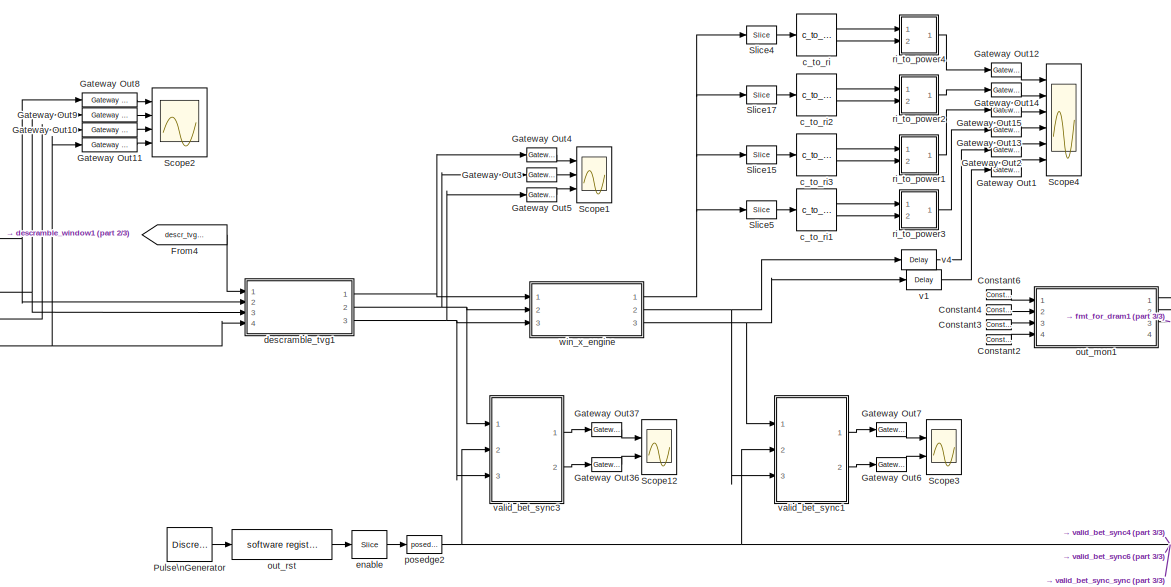
[diagram: root canvas - part 1/3, center side, full height]
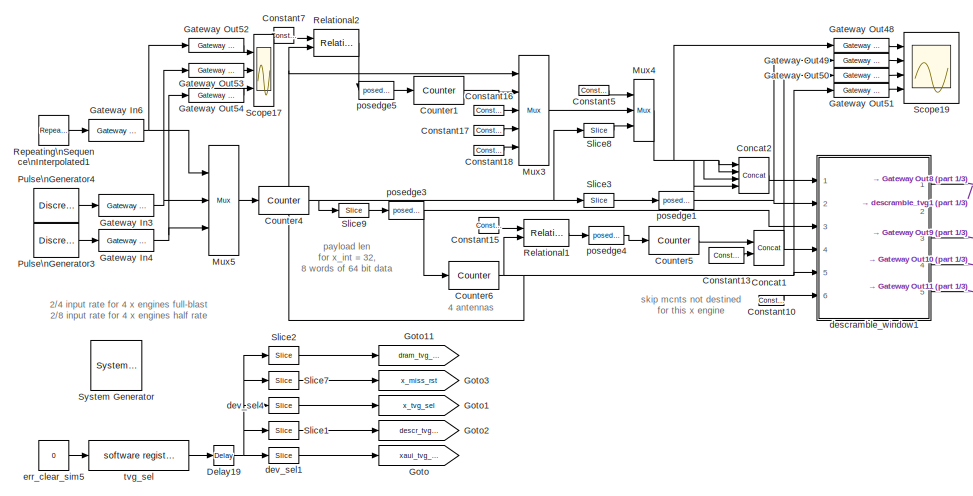
[diagram: root canvas - part 2/3, left side, full height]
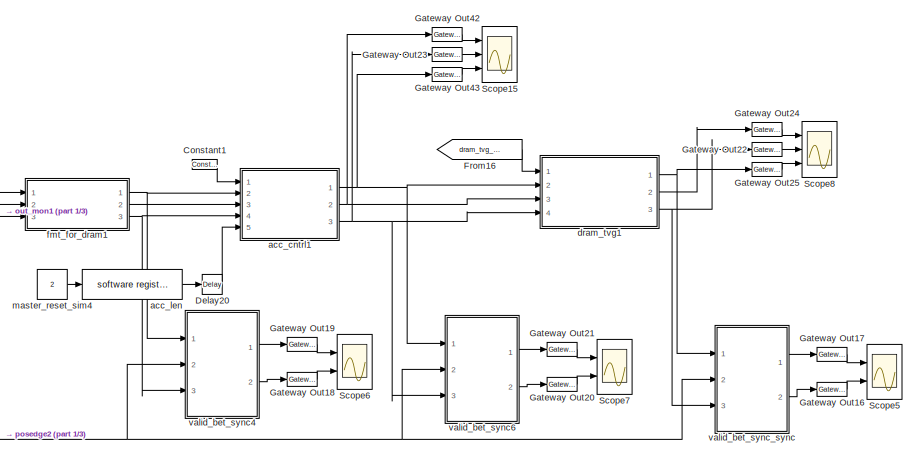
[diagram: root canvas - part 3/3, right side, full height]
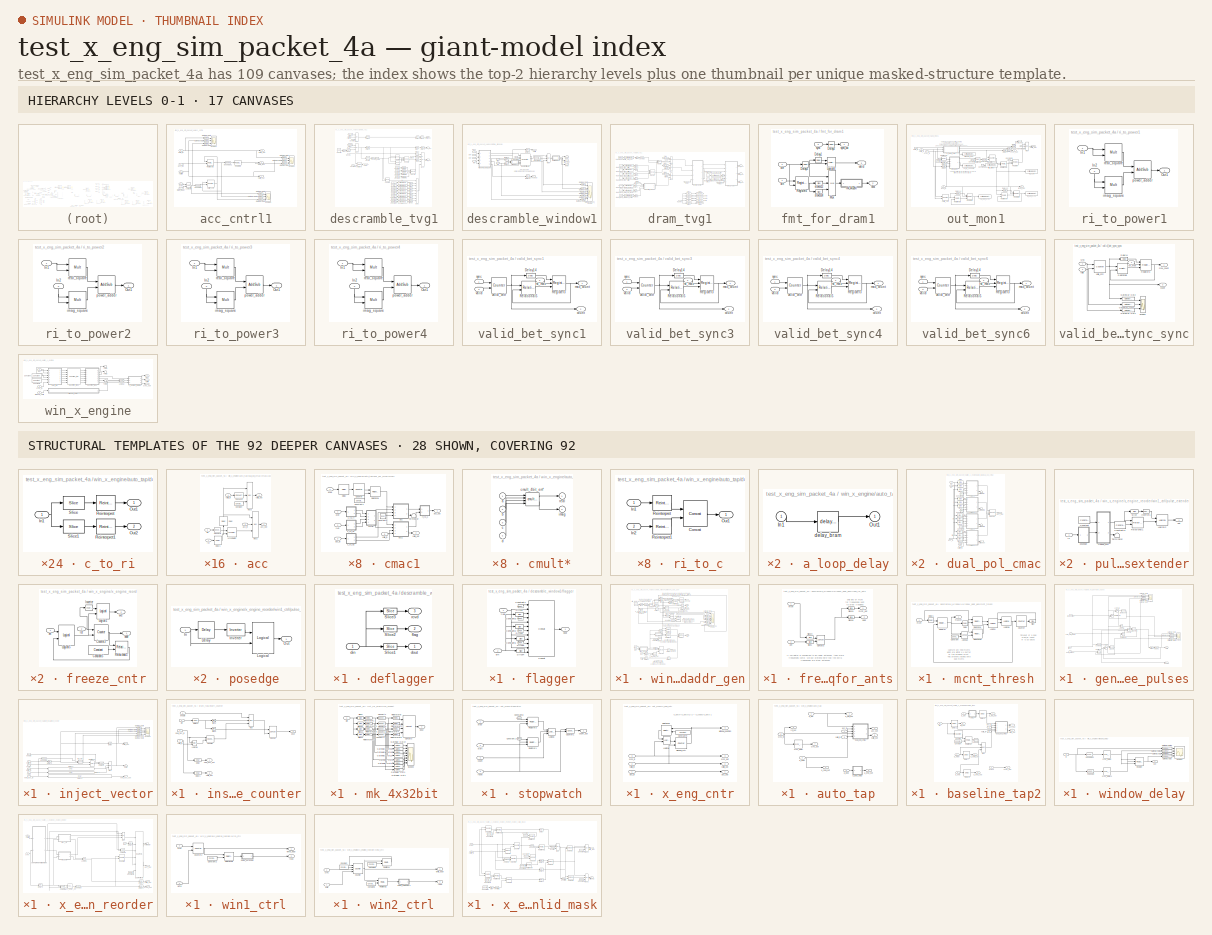
[diagram: thumbnail index - top-2 hierarchy levels (17 canvases) + 28 structural-template representatives of the remaining 92 canvases]
MODEL test_x_eng_sim_packet_4a
KIND model
BLOCK [Reference]  System Generator  REF=xbsIndex_r3/ System Generator
  AttributesFormatString = System\\nGenerator
  Ports = []
  ShowPortLabels = on
  SourceBlock = xbsIndex_r3/ System Generator
  SourceType = Xilinx System Generator
  Tag = genX
  UserData = DataTag0
  UserDataPersistent = on
  core_generation = According to Block Masks
  dbl_ovrd = According to Block Masks
  deprecated_control = off
  directory = ./netlist
  eval_field = 0
  incr_netlist = off
  package = bg575
  part = xc2v1000
  run_coregen = off
  simulink_period = 1
  speed = -4
  synthesis_tool = XST
  sysclk_period = 100
  testbench = off
  trim_vbits = Everywhere in SubSystem
  xilinxfamily = Virtex2
BLOCK [Reference] Concat1  REF=xbsIndex_r3/Concat
  Ports = [2, 1]
  SourceBlock = xbsIndex_r3/Concat
  SourceType = Xilinx Bus Concatenator
  dbl_ovrd = off
  explicit_period = off
  num_inputs = 2
  period = 1
BLOCK [Reference] Concat2  REF=xbsIndex_r3/Concat
  Ports = [4, 1]
  SourceBlock = xbsIndex_r3/Concat
  SourceType = Xilinx Bus Concatenator
  dbl_ovrd = off
  explicit_period = off
  num_inputs = 4
  period = 1
BLOCK [Reference] Constant1  REF=xbsIndex_r3/Constant
  Ports = [0, 1]
  SourceBlock = xbsIndex_r3/Constant
  SourceType = Xilinx Constant Block
  arith_type = Boolean
  bin_pt = 0
  carry = CIN
  const = 1
  dbl_ovrd = off
  equ = P=C
  explicit_period = on
  inp1 = P
  inp2 = PCIN>>17
  iostate = 0
  n_bits = 1
  opr = +
  opselect = C
  period = 1
BLOCK [Reference] Constant10  REF=xbsIndex_r3/Constant
  Ports = [0, 1]
  SourceBlock = xbsIndex_r3/Constant
  SourceType = Xilinx Constant Block
  arith_type = Unsigned
  bin_pt = 0
  carry = CIN
  const = 0
  dbl_ovrd = off
  equ = P=C
  explicit_period = on
  inp1 = P
  inp2 = PCIN>>17
  iostate = 0
  n_bits = 1
  opr = +
  opselect = C
  period = 1
BLOCK [Reference] Constant13  REF=xbsIndex_r3/Constant
  Ports = [0, 1]
  SourceBlock = xbsIndex_r3/Constant
  SourceType = Xilinx Constant Block
  arith_type = Unsigned
  bin_pt = 0
  carry = CIN
  const = 0
  dbl_ovrd = off
  equ = P=C
  explicit_period = on
  inp1 = P
  inp2 = PCIN>>17
  iostate = 0
  n_bits = 2
  opr = +
  opselect = C
  period = 1
BLOCK [Reference] Constant15  REF=xbsIndex_r3/Constant
  Ports = [0, 1]
  SourceBlock = xbsIndex_r3/Constant
  SourceType = Xilinx Constant Block
  arith_type = Unsigned
  bin_pt = 0
  carry = CIN
  const = 0
  dbl_ovrd = off
  equ = P=C
  explicit_period = on
  inp1 = P
  inp2 = PCIN>>17
  iostate = 0
  n_bits = 3
  opr = +
  opselect = C
  period = 1
BLOCK [Reference] Constant16  REF=xbsIndex_r3/Constant
  Ports = [0, 1]
  SourceBlock = xbsIndex_r3/Constant
  SourceType = Xilinx Constant Block
  arith_type = Unsigned
  bin_pt = 0
  carry = CIN
  const = 0
  dbl_ovrd = off
  equ = P=C
  explicit_period = on
  inp1 = P
  inp2 = PCIN>>17
  iostate = 0
  n_bits = 16
  opr = +
  opselect = C
  period = 1
BLOCK [Reference] Constant17  REF=xbsIndex_r3/Constant
  Ports = [0, 1]
  SourceBlock = xbsIndex_r3/Constant
  SourceType = Xilinx Constant Block
  arith_type = Unsigned
  bin_pt = 0
  carry = CIN
  const = 0
  dbl_ovrd = off
  equ = P=C
  explicit_period = on
  inp1 = P
  inp2 = PCIN>>17
  iostate = 0
  n_bits = 16
  opr = +
  opselect = C
  period = 1
BLOCK [Reference] Constant18  REF=xbsIndex_r3/Constant
  Ports = [0, 1]
  SourceBlock = xbsIndex_r3/Constant
  SourceType = Xilinx Constant Block
  arith_type = Unsigned
  bin_pt = 0
  carry = CIN
  const = 0
  dbl_ovrd = off
  equ = P=C
  explicit_period = on
  inp1 = P
  inp2 = PCIN>>17
  iostate = 0
  n_bits = 16
  opr = +
  opselect = C
  period = 1
BLOCK [Reference] Constant2  REF=xbsIndex_r3/Constant
  Ports = [0, 1]
  SourceBlock = xbsIndex_r3/Constant
  SourceType = Xilinx Constant Block
  arith_type = Boolean
  bin_pt = 0
  carry = CIN
  const = 0
  dbl_ovrd = off
  equ = P=C
  explicit_period = on
  inp1 = P
  inp2 = PCIN>>17
  iostate = 0
  n_bits = 1
  opr = +
  opselect = C
  period = 1
BLOCK [Reference] Constant3  REF=xbsIndex_r3/Constant
  Ports = [0, 1]
  SourceBlock = xbsIndex_r3/Constant
  SourceType = Xilinx Constant Block
  arith_type = Boolean
  bin_pt = 0
  carry = CIN
  const = 0
  dbl_ovrd = off
  equ = P=C
  explicit_period = on
  inp1 = P
  inp2 = PCIN>>17
  iostate = 0
  n_bits = 1
  opr = +
  opselect = C
  period = 1
BLOCK [Reference] Constant4  REF=xbsIndex_r3/Constant
  Ports = [0, 1]
  SourceBlock = xbsIndex_r3/Constant
  SourceType = Xilinx Constant Block
  arith_type = Boolean
  bin_pt = 0
  carry = CIN
  const = 0
  dbl_ovrd = off
  equ = P=C
  explicit_period = on
  inp1 = P
  inp2 = PCIN>>17
  iostate = 0
  n_bits = 1
  opr = +
  opselect = C
  period = 1
BLOCK [Reference] Constant5  REF=xbsIndex_r3/Constant
  Ports = [0, 1]
  SourceBlock = xbsIndex_r3/Constant
  SourceType = Xilinx Constant Block
  arith_type = Unsigned
  bin_pt = 0
  carry = CIN
  const = 0
  dbl_ovrd = off
  equ = P=C
  explicit_period = on
  inp1 = P
  inp2 = PCIN>>17
  iostate = 0
  n_bits = 1
  opr = +
  opselect = C
  period = 1
BLOCK [Reference] Constant6  REF=xbsIndex_r3/Constant
  Ports = [0, 1]
  SourceBlock = xbsIndex_r3/Constant
  SourceType = Xilinx Constant Block
  arith_type = Unsigned
  bin_pt = 0
  carry = CIN
  const = 0
  dbl_ovrd = off
  equ = P=C
  explicit_period = on
  inp1 = P
  inp2 = PCIN>>17
  iostate = 0
  n_bits = 112
  opr = +
  opselect = C
  period = 1
BLOCK [Reference] Constant7  REF=xbsIndex_r3/Constant
  Ports = [0, 1]
  SourceBlock = xbsIndex_r3/Constant
  SourceType = Xilinx Constant Block
  arith_type = Unsigned
  bin_pt = 0
  carry = CIN
  const = 0
  dbl_ovrd = off
  equ = P=C
  explicit_period = on
  inp1 = P
  inp2 = PCIN>>17
  iostate = 0
  n_bits = 1
  opr = +
  opselect = C
  period = 1
BLOCK [Reference] Counter1  REF=xbsIndex_r3/Counter
  Ports = [1, 1]
  SourceBlock = xbsIndex_r3/Counter
  SourceType = Xilinx Counter Block
  arith_type = Unsigned
  bin_pt = 0
  cnt_by_val = 1
  cnt_to = Inf
  cnt_type = Free Running
  dbl_ovrd = off
  en = on
  explicit_period = off
  gen_core = off
  load_pin = off
  n_bits = 16
  operation = Up
  period = 1
  rst = off
  show_param = off
  start_count = 0
  use_rpm = on
  xl_area = [0, 0, 0, 0, 0, 0, 0]
  xl_use_area = off
BLOCK [Reference] Counter4  REF=xbsIndex_r3/Counter
  Ports = [1, 1]
  SourceBlock = xbsIndex_r3/Counter
  SourceType = Xilinx Counter Block
  arith_type = Unsigned
  bin_pt = 0
  cnt_by_val = 1
  cnt_to = 32
  cnt_type = Free Running
  dbl_ovrd = off
  en = on
  explicit_period = off
  gen_core = off
  load_pin = off
  n_bits = 32
  operation = Up
  period = 1
  rst = off
  show_param = off
  start_count = 0
  use_rpm = on
  xl_area = [0, 0, 0, 0, 0, 0, 0]
  xl_use_area = off
BLOCK [Reference] Counter5  REF=xbsIndex_r3/Counter
  Ports = [1, 1]
  SourceBlock = xbsIndex_r3/Counter
  SourceType = Xilinx Counter Block
  arith_type = Unsigned
  bin_pt = 0
  cnt_by_val = 1
  cnt_to = Inf
  cnt_type = Free Running
  dbl_ovrd = off
  en = on
  explicit_period = off
  gen_core = off
  load_pin = off
  n_bits = 48-2
  operation = Up
  period = 1
  rst = off
  show_param = off
  start_count = 0
  use_rpm = on
  xl_area = [0, 0, 0, 0, 0, 0, 0]
  xl_use_area = off
BLOCK [Reference] Counter6  REF=xbsIndex_r3/Counter
  Ports = [1, 1]
  SourceBlock = xbsIndex_r3/Counter
  SourceType = Xilinx Counter Block
  arith_type = Unsigned
  bin_pt = 0
  cnt_by_val = 1
  cnt_to = Inf
  cnt_type = Free Running
  dbl_ovrd = off
  en = on
  explicit_period = off
  gen_core = off
  load_pin = off
  n_bits = 2
  operation = Up
  period = 1
  rst = off
  show_param = off
  start_count = 0
  use_rpm = on
  xl_area = [0, 0, 0, 0, 0, 0, 0]
  xl_use_area = off
BLOCK [Reference] Delay19  REF=xbsIndex_r3/Delay
  Ports = [1, 1]
  SourceBlock = xbsIndex_r3/Delay
  SourceType = Xilinx Delay Block
  accept_only_valid = off
  dbl_ovrd = off
  en = off
  explicit_period = off
  init_zero = on
  latency = 2
  period = 1
  reg_retiming = off
  show_param = off
  xl_area = [0, 0, 0, 0, 0, 0, 0]
  xl_use_area = off
BLOCK [Reference] Delay20  REF=xbsIndex_r3/Delay
  Ports = [1, 1]
  SourceBlock = xbsIndex_r3/Delay
  SourceType = Xilinx Delay Block
  accept_only_valid = off
  dbl_ovrd = off
  en = off
  explicit_period = off
  init_zero = on
  latency = 2
  period = 1
  reg_retiming = off
  show_param = off
  xl_area = [0, 0, 0, 0, 0, 0, 0]
  xl_use_area = off
BLOCK [From] From16
  CloseFcn = tagdialog Close
  GotoTag = dram_tvg_sel
BLOCK [From] From4
  CloseFcn = tagdialog Close
  GotoTag = descr_tvg_sel
BLOCK [Reference] Gateway In3  REF=xbsIndex_r3/Gateway In
  LOCs = {}
  Ports = [1, 1]
  SourceBlock = xbsIndex_r3/Gateway In
  SourceType = Xilinx Gateway In
  arith_type = Boolean
  bin_pt = 6
  dbl_ovrd = off
  locs_specified = off
  n_bits = 8
  needs_fixed_name = off
  overflow = Wrap
  period = 1
  quantization = Truncate
  show_param = off
  timing_constraint = None
  xl_area = [0, 0, 0, 0, 0, 0, 0]
  xl_use_area = off
BLOCK [Reference] Gateway In4  REF=xbsIndex_r3/Gateway In
  LOCs = {}
  Ports = [1, 1]
  SourceBlock = xbsIndex_r3/Gateway In
  SourceType = Xilinx Gateway In
  arith_type = Boolean
  bin_pt = 6
  dbl_ovrd = off
  locs_specified = off
  n_bits = 8
  needs_fixed_name = off
  overflow = Wrap
  period = 1
  quantization = Truncate
  show_param = off
  timing_constraint = None
  xl_area = [0, 0, 0, 0, 0, 0, 0]
  xl_use_area = off
BLOCK [Reference] Gateway In6  REF=xbsIndex_r3/Gateway In
  LOCs = {}
  Ports = [1, 1]
  SourceBlock = xbsIndex_r3/Gateway In
  SourceType = Xilinx Gateway In
  arith_type = Unsigned
  bin_pt = 0
  dbl_ovrd = off
  locs_specified = off
  n_bits = 1
  needs_fixed_name = off
  overflow = Wrap
  period = 1
  quantization = Truncate
  show_param = off
  timing_constraint = None
  xl_area = [0, 0, 0, 0, 0, 0, 0]
  xl_use_area = off
BLOCK [Reference] Gateway Out1  REF=xbsIndex_r3/Gateway Out
  LOCs = {}
  Ports = [1, 1]
  SourceBlock = xbsIndex_r3/Gateway Out
  SourceType = Xilinx Gateway Out
  arith_type = Boolean
  bin_pt = 6
  hdl_port = off
  locs_specified = off
  nbits = 8
  needs_fixed_name = off
  output_type = Double
  overflow = Wrap
  quantization = Truncate
  show_param = off
  timing_constraint = None
  xl_area = [0, 0, 0, 0, 0, 0, 0]
  xl_use_area = off
BLOCK [Reference] Gateway Out10  REF=xbsIndex_r3/Gateway Out
  LOCs = {}
  Ports = [1, 1]
  SourceBlock = xbsIndex_r3/Gateway Out
  SourceType = Xilinx Gateway Out
  arith_type = Boolean
  bin_pt = 6
  hdl_port = on
  locs_specified = off
  nbits = 8
  needs_fixed_name = off
  output_type = Double
  overflow = Wrap
  quantization = Truncate
  show_param = off
  timing_constraint = None
  xl_area = [0, 0, 0, 0, 0, 0, 0]
  xl_use_area = off
BLOCK [Reference] Gateway Out11  REF=xbsIndex_r3/Gateway Out
  LOCs = {}
  Ports = [1, 1]
  SourceBlock = xbsIndex_r3/Gateway Out
  SourceType = Xilinx Gateway Out
  arith_type = Boolean
  bin_pt = 6
  hdl_port = on
  locs_specified = off
  nbits = 8
  needs_fixed_name = off
  output_type = Double
  overflow = Wrap
  quantization = Truncate
  show_param = off
  timing_constraint = None
  xl_area = [0, 0, 0, 0, 0, 0, 0]
  xl_use_area = off
BLOCK [Reference] Gateway Out12  REF=xbsIndex_r3/Gateway Out
  LOCs = {}
  Ports = [1, 1]
  SourceBlock = xbsIndex_r3/Gateway Out
  SourceType = Xilinx Gateway Out
  arith_type = Boolean
  bin_pt = 6
  hdl_port = off
  locs_specified = off
  nbits = 8
  needs_fixed_name = off
  output_type = Double
  overflow = Wrap
  quantization = Truncate
  show_param = off
  timing_constraint = None
  xl_area = [0, 0, 0, 0, 0, 0, 0]
  xl_use_area = off
BLOCK [Reference] Gateway Out13  REF=xbsIndex_r3/Gateway Out
  LOCs = {}
  Ports = [1, 1]
  SourceBlock = xbsIndex_r3/Gateway Out
  SourceType = Xilinx Gateway Out
  arith_type = Boolean
  bin_pt = 6
  hdl_port = off
  locs_specified = off
  nbits = 8
  needs_fixed_name = off
  output_type = Double
  overflow = Wrap
  quantization = Truncate
  show_param = off
  timing_constraint = None
  xl_area = [0, 0, 0, 0, 0, 0, 0]
  xl_use_area = off
BLOCK [Reference] Gateway Out14  REF=xbsIndex_r3/Gateway Out
  LOCs = {}
  Ports = [1, 1]
  SourceBlock = xbsIndex_r3/Gateway Out
  SourceType = Xilinx Gateway Out
  arith_type = Boolean
  bin_pt = 6
  hdl_port = off
  locs_specified = off
  nbits = 8
  needs_fixed_name = off
  output_type = Double
  overflow = Wrap
  quantization = Truncate
  show_param = off
  timing_constraint = None
  xl_area = [0, 0, 0, 0, 0, 0, 0]
  xl_use_area = off
BLOCK [Reference] Gateway Out15  REF=xbsIndex_r3/Gateway Out
  LOCs = {}
  Ports = [1, 1]
  SourceBlock = xbsIndex_r3/Gateway Out
  SourceType = Xilinx Gateway Out
  arith_type = Boolean
  bin_pt = 6
  hdl_port = off
  locs_specified = off
  nbits = 8
  needs_fixed_name = off
  output_type = Double
  overflow = Wrap
  quantization = Truncate
  show_param = off
  timing_constraint = None
  xl_area = [0, 0, 0, 0, 0, 0, 0]
  xl_use_area = off
BLOCK [Reference] Gateway Out16  REF=xbsIndex_r3/Gateway Out
  LOCs = {}
  Ports = [1, 1]
  SourceBlock = xbsIndex_r3/Gateway Out
  SourceType = Xilinx Gateway Out
  arith_type = Boolean
  bin_pt = 6
  hdl_port = off
  locs_specified = off
  nbits = 8
  needs_fixed_name = off
  output_type = Double
  overflow = Wrap
  quantization = Truncate
  show_param = off
  timing_constraint = None
  xl_area = [0, 0, 0, 0, 0, 0, 0]
  xl_use_area = off
BLOCK [Reference] Gateway Out17  REF=xbsIndex_r3/Gateway Out
  LOCs = {}
  Ports = [1, 1]
  SourceBlock = xbsIndex_r3/Gateway Out
  SourceType = Xilinx Gateway Out
  arith_type = Boolean
  bin_pt = 6
  hdl_port = off
  locs_specified = off
  nbits = 8
  needs_fixed_name = off
  output_type = Double
  overflow = Wrap
  quantization = Truncate
  show_param = off
  timing_constraint = None
  xl_area = [0, 0, 0, 0, 0, 0, 0]
  xl_use_area = off
BLOCK [Reference] Gateway Out18  REF=xbsIndex_r3/Gateway Out
  LOCs = {}
  Ports = [1, 1]
  SourceBlock = xbsIndex_r3/Gateway Out
  SourceType = Xilinx Gateway Out
  arith_type = Boolean
  bin_pt = 6
  hdl_port = off
  locs_specified = off
  nbits = 8
  needs_fixed_name = off
  output_type = Double
  overflow = Wrap
  quantization = Truncate
  show_param = off
  timing_constraint = None
  xl_area = [0, 0, 0, 0, 0, 0, 0]
  xl_use_area = off
BLOCK [Reference] Gateway Out19  REF=xbsIndex_r3/Gateway Out
  LOCs = {}
  Ports = [1, 1]
  SourceBlock = xbsIndex_r3/Gateway Out
  SourceType = Xilinx Gateway Out
  arith_type = Boolean
  bin_pt = 6
  hdl_port = off
  locs_specified = off
  nbits = 8
  needs_fixed_name = off
  output_type = Double
  overflow = Wrap
  quantization = Truncate
  show_param = off
  timing_constraint = None
  xl_area = [0, 0, 0, 0, 0, 0, 0]
  xl_use_area = off
BLOCK [Reference] Gateway Out2  REF=xbsIndex_r3/Gateway Out
  LOCs = {}
  Ports = [1, 1]
  SourceBlock = xbsIndex_r3/Gateway Out
  SourceType = Xilinx Gateway Out
  arith_type = Boolean
  bin_pt = 6
  hdl_port = off
  locs_specified = off
  nbits = 8
  needs_fixed_name = off
  output_type = Double
  overflow = Wrap
  quantization = Truncate
  show_param = off
  timing_constraint = None
  xl_area = [0, 0, 0, 0, 0, 0, 0]
  xl_use_area = off
BLOCK [Reference] Gateway Out20  REF=xbsIndex_r3/Gateway Out
  LOCs = {}
  Ports = [1, 1]
  SourceBlock = xbsIndex_r3/Gateway Out
  SourceType = Xilinx Gateway Out
  arith_type = Boolean
  bin_pt = 6
  hdl_port = off
  locs_specified = off
  nbits = 8
  needs_fixed_name = off
  output_type = Double
  overflow = Wrap
  quantization = Truncate
  show_param = off
  timing_constraint = None
  xl_area = [0, 0, 0, 0, 0, 0, 0]
  xl_use_area = off
BLOCK [Reference] Gateway Out21  REF=xbsIndex_r3/Gateway Out
  LOCs = {}
  Ports = [1, 1]
  SourceBlock = xbsIndex_r3/Gateway Out
  SourceType = Xilinx Gateway Out
  arith_type = Boolean
  bin_pt = 6
  hdl_port = off
  locs_specified = off
  nbits = 8
  needs_fixed_name = off
  output_type = Double
  overflow = Wrap
  quantization = Truncate
  show_param = off
  timing_constraint = None
  xl_area = [0, 0, 0, 0, 0, 0, 0]
  xl_use_area = off
BLOCK [Reference] Gateway Out22  REF=xbsIndex_r3/Gateway Out
  LOCs = {}
  Ports = [1, 1]
  SourceBlock = xbsIndex_r3/Gateway Out
  SourceType = Xilinx Gateway Out
  arith_type = Boolean
  bin_pt = 6
  hdl_port = off
  locs_specified = off
  nbits = 8
  needs_fixed_name = off
  output_type = Double
  overflow = Wrap
  quantization = Truncate
  show_param = off
  timing_constraint = None
  xl_area = [0, 0, 0, 0, 0, 0, 0]
  xl_use_area = off
BLOCK [Reference] Gateway Out23  REF=xbsIndex_r3/Gateway Out
  LOCs = {}
  Ports = [1, 1]
  SourceBlock = xbsIndex_r3/Gateway Out
  SourceType = Xilinx Gateway Out
  arith_type = Boolean
  bin_pt = 6
  hdl_port = off
  locs_specified = off
  nbits = 8
  needs_fixed_name = off
  output_type = Double
  overflow = Wrap
  quantization = Truncate
  show_param = off
  timing_constraint = None
  xl_area = [0, 0, 0, 0, 0, 0, 0]
  xl_use_area = off
BLOCK [Reference] Gateway Out24  REF=xbsIndex_r3/Gateway Out
  LOCs = {}
  Ports = [1, 1]
  SourceBlock = xbsIndex_r3/Gateway Out
  SourceType = Xilinx Gateway Out
  arith_type = Boolean
  bin_pt = 6
  hdl_port = off
  locs_specified = off
  nbits = 8
  needs_fixed_name = off
  output_type = Double
  overflow = Wrap
  quantization = Truncate
  show_param = off
  timing_constraint = None
  xl_area = [0, 0, 0, 0, 0, 0, 0]
  xl_use_area = off
BLOCK [Reference] Gateway Out25  REF=xbsIndex_r3/Gateway Out
  LOCs = {}
  Ports = [1, 1]
  SourceBlock = xbsIndex_r3/Gateway Out
  SourceType = Xilinx Gateway Out
  arith_type = Boolean
  bin_pt = 6
  hdl_port = off
  locs_specified = off
  nbits = 8
  needs_fixed_name = off
  output_type = Double
  overflow = Wrap
  quantization = Truncate
  show_param = off
  timing_constraint = None
  xl_area = [0, 0, 0, 0, 0, 0, 0]
  xl_use_area = off
BLOCK [Reference] Gateway Out3  REF=xbsIndex_r3/Gateway Out
  LOCs = {}
  Ports = [1, 1]
  SourceBlock = xbsIndex_r3/Gateway Out
  SourceType = Xilinx Gateway Out
  arith_type = Boolean
  bin_pt = 6
  hdl_port = off
  locs_specified = off
  nbits = 8
  needs_fixed_name = off
  output_type = Double
  overflow = Wrap
  quantization = Truncate
  show_param = off
  timing_constraint = None
  xl_area = [0, 0, 0, 0, 0, 0, 0]
  xl_use_area = off
BLOCK [Reference] Gateway Out36  REF=xbsIndex_r3/Gateway Out
  LOCs = {}
  Ports = [1, 1]
  SourceBlock = xbsIndex_r3/Gateway Out
  SourceType = Xilinx Gateway Out
  arith_type = Boolean
  bin_pt = 6
  hdl_port = off
  locs_specified = off
  nbits = 8
  needs_fixed_name = off
  output_type = Double
  overflow = Wrap
  quantization = Truncate
  show_param = off
  timing_constraint = None
  xl_area = [0, 0, 0, 0, 0, 0, 0]
  xl_use_area = off
BLOCK [Reference] Gateway Out37  REF=xbsIndex_r3/Gateway Out
  LOCs = {}
  Ports = [1, 1]
  SourceBlock = xbsIndex_r3/Gateway Out
  SourceType = Xilinx Gateway Out
  arith_type = Boolean
  bin_pt = 6
  hdl_port = off
  locs_specified = off
  nbits = 8
  needs_fixed_name = off
  output_type = Double
  overflow = Wrap
  quantization = Truncate
  show_param = off
  timing_constraint = None
  xl_area = [0, 0, 0, 0, 0, 0, 0]
  xl_use_area = off
BLOCK [Reference] Gateway Out4  REF=xbsIndex_r3/Gateway Out
  LOCs = {}
  Ports = [1, 1]
  SourceBlock = xbsIndex_r3/Gateway Out
  SourceType = Xilinx Gateway Out
  arith_type = Boolean
  bin_pt = 6
  hdl_port = off
  locs_specified = off
  nbits = 8
  needs_fixed_name = off
  output_type = Double
  overflow = Wrap
  quantization = Truncate
  show_param = off
  timing_constraint = None
  xl_area = [0, 0, 0, 0, 0, 0, 0]
  xl_use_area = off
BLOCK [Reference] Gateway Out42  REF=xbsIndex_r3/Gateway Out
  LOCs = {}
  Ports = [1, 1]
  SourceBlock = xbsIndex_r3/Gateway Out
  SourceType = Xilinx Gateway Out
  arith_type = Boolean
  bin_pt = 6
  hdl_port = off
  locs_specified = off
  nbits = 8
  needs_fixed_name = off
  output_type = Double
  overflow = Wrap
  quantization = Truncate
  show_param = off
  timing_constraint = None
  xl_area = [0, 0, 0, 0, 0, 0, 0]
  xl_use_area = off
BLOCK [Reference] Gateway Out43  REF=xbsIndex_r3/Gateway Out
  LOCs = {}
  Ports = [1, 1]
  SourceBlock = xbsIndex_r3/Gateway Out
  SourceType = Xilinx Gateway Out
  arith_type = Boolean
  bin_pt = 6
  hdl_port = off
  locs_specified = off
  nbits = 8
  needs_fixed_name = off
  output_type = Double
  overflow = Wrap
  quantization = Truncate
  show_param = off
  timing_constraint = None
  xl_area = [0, 0, 0, 0, 0, 0, 0]
  xl_use_area = off
BLOCK [Reference] Gateway Out48  REF=xbsIndex_r3/Gateway Out
  LOCs = {}
  Ports = [1, 1]
  SourceBlock = xbsIndex_r3/Gateway Out
  SourceType = Xilinx Gateway Out
  arith_type = Boolean
  bin_pt = 6
  hdl_port = on
  locs_specified = off
  nbits = 8
  needs_fixed_name = off
  output_type = Double
  overflow = Wrap
  quantization = Truncate
  show_param = off
  timing_constraint = None
  xl_area = [0, 0, 0, 0, 0, 0, 0]
  xl_use_area = off
BLOCK [Reference] Gateway Out49  REF=xbsIndex_r3/Gateway Out
  LOCs = {}
  Ports = [1, 1]
  SourceBlock = xbsIndex_r3/Gateway Out
  SourceType = Xilinx Gateway Out
  arith_type = Boolean
  bin_pt = 6
  hdl_port = on
  locs_specified = off
  nbits = 8
  needs_fixed_name = off
  output_type = Double
  overflow = Wrap
  quantization = Truncate
  show_param = off
  timing_constraint = None
  xl_area = [0, 0, 0, 0, 0, 0, 0]
  xl_use_area = off
BLOCK [Reference] Gateway Out5  REF=xbsIndex_r3/Gateway Out
  LOCs = {}
  Ports = [1, 1]
  SourceBlock = xbsIndex_r3/Gateway Out
  SourceType = Xilinx Gateway Out
  arith_type = Boolean
  bin_pt = 6
  hdl_port = off
  locs_specified = off
  nbits = 8
  needs_fixed_name = off
  output_type = Double
  overflow = Wrap
  quantization = Truncate
  show_param = off
  timing_constraint = None
  xl_area = [0, 0, 0, 0, 0, 0, 0]
  xl_use_area = off
BLOCK [Reference] Gateway Out50  REF=xbsIndex_r3/Gateway Out
  LOCs = {}
  Ports = [1, 1]
  SourceBlock = xbsIndex_r3/Gateway Out
  SourceType = Xilinx Gateway Out
  arith_type = Boolean
  bin_pt = 6
  hdl_port = on
  locs_specified = off
  nbits = 8
  needs_fixed_name = off
  output_type = Double
  overflow = Wrap
  quantization = Truncate
  show_param = off
  timing_constraint = None
  xl_area = [0, 0, 0, 0, 0, 0, 0]
  xl_use_area = off
BLOCK [Reference] Gateway Out51  REF=xbsIndex_r3/Gateway Out
  LOCs = {}
  Ports = [1, 1]
  SourceBlock = xbsIndex_r3/Gateway Out
  SourceType = Xilinx Gateway Out
  arith_type = Boolean
  bin_pt = 6
  hdl_port = on
  locs_specified = off
  nbits = 8
  needs_fixed_name = off
  output_type = Double
  overflow = Wrap
  quantization = Truncate
  show_param = off
  timing_constraint = None
  xl_area = [0, 0, 0, 0, 0, 0, 0]
  xl_use_area = off
BLOCK [Reference] Gateway Out52  REF=xbsIndex_r3/Gateway Out
  LOCs = {}
  Ports = [1, 1]
  SourceBlock = xbsIndex_r3/Gateway Out
  SourceType = Xilinx Gateway Out
  arith_type = Boolean
  bin_pt = 6
  hdl_port = on
  locs_specified = off
  nbits = 8
  needs_fixed_name = off
  output_type = Double
  overflow = Wrap
  quantization = Truncate
  show_param = off
  timing_constraint = None
  xl_area = [0, 0, 0, 0, 0, 0, 0]
  xl_use_area = off
BLOCK [Reference] Gateway Out53  REF=xbsIndex_r3/Gateway Out
  LOCs = {}
  Ports = [1, 1]
  SourceBlock = xbsIndex_r3/Gateway Out
  SourceType = Xilinx Gateway Out
  arith_type = Boolean
  bin_pt = 6
  hdl_port = on
  locs_specified = off
  nbits = 8
  needs_fixed_name = off
  output_type = Double
  overflow = Wrap
  quantization = Truncate
  show_param = off
  timing_constraint = None
  xl_area = [0, 0, 0, 0, 0, 0, 0]
  xl_use_area = off
BLOCK [Reference] Gateway Out54  REF=xbsIndex_r3/Gateway Out
  LOCs = {}
  Ports = [1, 1]
  SourceBlock = xbsIndex_r3/Gateway Out
  SourceType = Xilinx Gateway Out
  arith_type = Boolean
  bin_pt = 6
  hdl_port = on
  locs_specified = off
  nbits = 8
  needs_fixed_name = off
  output_type = Double
  overflow = Wrap
  quantization = Truncate
  show_param = off
  timing_constraint = None
  xl_area = [0, 0, 0, 0, 0, 0, 0]
  xl_use_area = off
BLOCK [Reference] Gateway Out6  REF=xbsIndex_r3/Gateway Out
  LOCs = {}
  Ports = [1, 1]
  SourceBlock = xbsIndex_r3/Gateway Out
  SourceType = Xilinx Gateway Out
  arith_type = Boolean
  bin_pt = 6
  hdl_port = off
  locs_specified = off
  nbits = 8
  needs_fixed_name = off
  output_type = Double
  overflow = Wrap
  quantization = Truncate
  show_param = off
  timing_constraint = None
  xl_area = [0, 0, 0, 0, 0, 0, 0]
  xl_use_area = off
BLOCK [Reference] Gateway Out7  REF=xbsIndex_r3/Gateway Out
  LOCs = {}
  Ports = [1, 1]
  SourceBlock = xbsIndex_r3/Gateway Out
  SourceType = Xilinx Gateway Out
  arith_type = Boolean
  bin_pt = 6
  hdl_port = off
  locs_specified = off
  nbits = 8
  needs_fixed_name = off
  output_type = Double
  overflow = Wrap
  quantization = Truncate
  show_param = off
  timing_constraint = None
  xl_area = [0, 0, 0, 0, 0, 0, 0]
  xl_use_area = off
BLOCK [Reference] Gateway Out8  REF=xbsIndex_r3/Gateway Out
  LOCs = {}
  Ports = [1, 1]
  SourceBlock = xbsIndex_r3/Gateway Out
  SourceType = Xilinx Gateway Out
  arith_type = Boolean
  bin_pt = 6
  hdl_port = on
  locs_specified = off
  nbits = 8
  needs_fixed_name = off
  output_type = Double
  overflow = Wrap
  quantization = Truncate
  show_param = off
  timing_constraint = None
  xl_area = [0, 0, 0, 0, 0, 0, 0]
  xl_use_area = off
BLOCK [Reference] Gateway Out9  REF=xbsIndex_r3/Gateway Out
  LOCs = {}
  Ports = [1, 1]
  SourceBlock = xbsIndex_r3/Gateway Out
  SourceType = Xilinx Gateway Out
  arith_type = Boolean
  bin_pt = 6
  hdl_port = on
  locs_specified = off
  nbits = 8
  needs_fixed_name = off
  output_type = Double
  overflow = Wrap
  quantization = Truncate
  show_param = off
  timing_constraint = None
  xl_area = [0, 0, 0, 0, 0, 0, 0]
  xl_use_area = off
BLOCK [Goto] Goto
  GotoTag = xaui_tvg_sel
  TagVisibility = local
BLOCK [Goto] Goto1
  GotoTag = x_tvg_sel
  TagVisibility = local
BLOCK [Goto] Goto11
  GotoTag = dram_tvg_sel
  TagVisibility = local
BLOCK [Goto] Goto2
  GotoTag = descr_tvg_sel
  TagVisibility = local
BLOCK [Goto] Goto3
  GotoTag = x_miss_rst
  TagVisibility = local
BLOCK [Reference] Mux3  REF=xbsIndex_r3/Mux
  Ports = [5, 1]
  SourceBlock = xbsIndex_r3/Mux
  SourceType = Xilinx Multiplexer Block
  arith_type = Signed  (2's comp)
  bin_pt = 2
  dbl_ovrd = off
  en = off
  explicit_period = off
  gen_core = off
  inputs = 4
  latency = 0
  mux_type = off
  n_bits = 8
  overflow = Wrap
  period = 1
  precision = Full
  quantization = Truncate
  show_param = off
  use_rpm = off
  xl_area = [0, 0, 0, 0, 0, 0, 0]
  xl_use_area = off
BLOCK [Reference] Mux4  REF=xbsIndex_r3/Mux
  Ports = [3, 1]
  SourceBlock = xbsIndex_r3/Mux
  SourceType = Xilinx Multiplexer Block
  arith_type = Signed  (2's comp)
  bin_pt = 2
  dbl_ovrd = off
  en = off
  explicit_period = off
  gen_core = off
  inputs = 2
  latency = 0
  mux_type = off
  n_bits = 8
  overflow = Wrap
  period = 1
  precision = Full
  quantization = Truncate
  show_param = off
  use_rpm = off
  xl_area = [0, 0, 0, 0, 0, 0, 0]
  xl_use_area = off
BLOCK [Reference] Mux5  REF=xbsIndex_r3/Mux
  Ports = [3, 1]
  SourceBlock = xbsIndex_r3/Mux
  SourceType = Xilinx Multiplexer Block
  arith_type = Signed  (2's comp)
  bin_pt = 2
  dbl_ovrd = off
  en = off
  explicit_period = off
  gen_core = off
  inputs = 2
  latency = 0
  mux_type = off
  n_bits = 8
  overflow = Wrap
  period = 1
  precision = Full
  quantization = Truncate
  show_param = off
  use_rpm = off
  xl_area = [0, 0, 0, 0, 0, 0, 0]
  xl_use_area = off
BLOCK [DiscretePulseGenerator] Pulse\nGenerator
  Period = 2^15
  PhaseDelay = 2^14
  Ports = [0, 1]
BLOCK [DiscretePulseGenerator] Pulse\nGenerator3
  Period = 4
  Ports = [0, 1]
  PulseWidth = 2
BLOCK [DiscretePulseGenerator] Pulse\nGenerator4
  Ports = [0, 1]
  PulseWidth = 2
BLOCK [Reference] Relational1  REF=xbsIndex_r3/Relational
  Ports = [2, 1]
  SourceBlock = xbsIndex_r3/Relational
  SourceType = Xilinx Relational Block
  dbl_ovrd = off
  en = off
  explicit_period = off
  latency = 1
  mode = a=b
  period = 1
  show_param = off
  xl_area = [0, 0, 0, 0, 0, 0, 0]
  xl_use_area = off
BLOCK [Reference] Relational2  REF=xbsIndex_r3/Relational
  Ports = [2, 1]
  SourceBlock = xbsIndex_r3/Relational
  SourceType = Xilinx Relational Block
  dbl_ovrd = off
  en = off
  explicit_period = off
  latency = 1
  mode = a=b
  period = 1
  show_param = off
  xl_area = [0, 0, 0, 0, 0, 0, 0]
  xl_use_area = off
BLOCK [Reference] Repeating\nSequence\nInterpolated1  REF=simulink/Sources/Repeating\nSequence\nInterpolated
  LockScale = off
  LookUpMeth = Use Input Above
  OutDataType = float('double')
  OutScaling = 2^-10
  OutValues = [0 1].'
  OutputDataTypeScalingMode = Specify via dialog
  Ports = [0, 1]
  ShowPortLabels = on
  SourceBlock = simulink/Sources/Repeating\nSequence\nInterpolated
  SourceType = Repeating Sequence Interpolated
  TimeValues = [100000 300000].'
  tsamp = 1
BLOCK [Scope] Scope1
  DataFormat = StructureWithTime
  LimitDataPoints = off
  NumInputPorts = 3
  Ports = [3]
  SaveName = ScopeData5
  YMax = 1~1~5
  YMin = -1~-1~-5
  ZoomMode = xonly
BLOCK [Scope] Scope12
  DataFormat = StructureWithTime
  LimitDataPoints = off
  NumInputPorts = 2
  Ports = [2]
  SaveName = data_into_xeng
  SaveToWorkspace = on
  YMax = 34405.3~10060
  YMin = 31128.7~9840
  ZoomMode = yonly
BLOCK [Scope] Scope15
  DataFormat = StructureWithTime
  LimitDataPoints = off
  NumInputPorts = 3
  Ports = [3]
  SaveName = ScopeData12
  YMax = 1.4e+011~1~1
  YMin = 0~0~-1
  ZoomMode = xonly
BLOCK [Scope] Scope17
  DataFormat = StructureWithTime
  LimitDataPoints = off
  NumInputPorts = 3
  Ports = [3]
  SaveName = ScopeData9
  YMax = 1~1~1
  YMin = -1~0~0
  ZoomMode = xonly
BLOCK [Scope] Scope19
  DataFormat = StructureWithTime
  LimitDataPoints = off
  NumInputPorts = 4
  Ports = [4]
  SaveName = ScopeData14
  YMax = 1~1~40~3
  YMin = 0~0~28~0
  ZoomMode = xonly
BLOCK [Scope] Scope2
  DataFormat = StructureWithTime
  LimitDataPoints = off
  NumInputPorts = 4
  Ports = [4]
  YMax = 32.5~1~1~1
  YMin = 0~1~1~0
  ZoomMode = xonly
BLOCK [Scope] Scope3
  DataFormat = StructureWithTime
  LimitDataPoints = off
  NumInputPorts = 2
  Ports = [2]
  SaveName = data_into_xeng1
  SaveToWorkspace = on
  YMax = 2560~1150
  YMin = 2560~1140
  ZoomMode = yonly
BLOCK [Scope] Scope4
  DataFormat = StructureWithTime
  LimitDataPoints = off
  NumInputPorts = 6
  Ports = [6]
  SaveName = ScopeData7
  YMax = 1~4~1~1~1~1
  YMin = -1~0~-1~-1~0~-1
  ZoomMode = xonly
BLOCK [Scope] Scope5
  DataFormat = StructureWithTime
  LimitDataPoints = off
  NumInputPorts = 2
  Ports = [2]
  SaveName = ScopeData6
  YMax = 10751~839
  YMin = 9727.05~819
  ZoomMode = yonly
BLOCK [Scope] Scope6
  DataFormat = StructureWithTime
  LimitDataPoints = off
  NumInputPorts = 2
  Ports = [2]
  SaveName = ScopeData4
  YMax = 5376~2360
  YMin = 4864~2340
  ZoomMode = yonly
BLOCK [Scope] Scope7
  DataFormat = StructureWithTime
  LimitDataPoints = off
  NumInputPorts = 2
  Ports = [2]
  SaveName = ScopeData8
  YMax = 10500~10500
  YMin = 0~0
  ZoomMode = yonly
BLOCK [Scope] Scope8
  DataFormat = StructureWithTime
  LimitDataPoints = off
  NumInputPorts = 3
  Ports = [3]
  SaveName = ScopeData10
  YMax = 1.1e+011~1~1
  YMin = 0~0~-1
  ZoomMode = xonly
BLOCK [Reference] Slice1  REF=xbsIndex_r3/Slice
  Ports = [1, 1]
  SourceBlock = xbsIndex_r3/Slice
  SourceType = Xilinx Slice Block
  base0 = LSB of Input
  base1 = MSB of Input
  bit0 = 1
  bit1 = 0
  boolean_output = on
  dbl_ovrd = off
  explicit_period = off
  mode = Lower Bit Location + Width
  nbits = 2
  period = 1
BLOCK [Reference] Slice15  REF=xbsIndex_r3/Slice
  Ports = [1, 1]
  SourceBlock = xbsIndex_r3/Slice
  SourceType = Xilinx Slice Block
  base0 = LSB of Input
  base1 = MSB of Input
  bit0 = 112/4
  bit1 = 0
  boolean_output = off
  dbl_ovrd = off
  explicit_period = off
  mode = Lower Bit Location + Width
  nbits = 112/4
  period = 1
BLOCK [Reference] Slice17  REF=xbsIndex_r3/Slice
  Ports = [1, 1]
  SourceBlock = xbsIndex_r3/Slice
  SourceType = Xilinx Slice Block
  base0 = LSB of Input
  base1 = MSB of Input
  bit0 = 112/4*2
  bit1 = 0
  boolean_output = off
  dbl_ovrd = off
  explicit_period = off
  mode = Lower Bit Location + Width
  nbits = 112/4
  period = 1
BLOCK [Reference] Slice2  REF=xbsIndex_r3/Slice
  Ports = [1, 1]
  SourceBlock = xbsIndex_r3/Slice
  SourceType = Xilinx Slice Block
  base0 = LSB of Input
  base1 = MSB of Input
  bit0 = 9
  bit1 = 0
  boolean_output = off
  dbl_ovrd = off
  explicit_period = off
  mode = Lower Bit Location + Width
  nbits = 5
  period = 1
BLOCK [Reference] Slice3  REF=xbsIndex_r3/Slice
  Ports = [1, 1]
  SourceBlock = xbsIndex_r3/Slice
  SourceType = Xilinx Slice Block
  base0 = LSB of Input
  base1 = MSB of Input
  bit0 = 0
  bit1 = 0
  boolean_output = on
  dbl_ovrd = off
  explicit_period = off
  mode = Lower Bit Location + Width
  nbits = 1
  period = 1
BLOCK [Reference] Slice4  REF=xbsIndex_r3/Slice
  Ports = [1, 1]
  SourceBlock = xbsIndex_r3/Slice
  SourceType = Xilinx Slice Block
  base0 = LSB of Input
  base1 = MSB of Input
  bit0 = 112/4*3
  bit1 = 0
  boolean_output = off
  dbl_ovrd = off
  explicit_period = off
  mode = Lower Bit Location + Width
  nbits = 112/4
  period = 1
BLOCK [Reference] Slice5  REF=xbsIndex_r3/Slice
  Ports = [1, 1]
  SourceBlock = xbsIndex_r3/Slice
  SourceType = Xilinx Slice Block
  base0 = LSB of Input
  base1 = MSB of Input
  bit0 = 0
  bit1 = 0
  boolean_output = off
  dbl_ovrd = off
  explicit_period = off
  mode = Lower Bit Location + Width
  nbits = 112/4
  period = 1
BLOCK [Reference] Slice7  REF=xbsIndex_r3/Slice
  Ports = [1, 1]
  SourceBlock = xbsIndex_r3/Slice
  SourceType = Xilinx Slice Block
  base0 = LSB of Input
  base1 = MSB of Input
  bit0 = 8
  bit1 = 0
  boolean_output = on
  dbl_ovrd = off
  explicit_period = off
  mode = Lower Bit Location + Width
  nbits = 1
  period = 1
BLOCK [Reference] Slice8  REF=xbsIndex_r3/Slice
  Ports = [1, 1]
  SourceBlock = xbsIndex_r3/Slice
  SourceType = Xilinx Slice Block
  base0 = LSB of Input
  base1 = MSB of Input
  bit0 = 1
  bit1 = 0
  boolean_output = on
  dbl_ovrd = off
  explicit_period = off
  mode = Lower Bit Location + Width
  nbits = 16
  period = 1
BLOCK [Reference] Slice9  REF=xbsIndex_r3/Slice
  Ports = [1, 1]
  SourceBlock = xbsIndex_r3/Slice
  SourceType = Xilinx Slice Block
  base0 = LSB of Input
  base1 = MSB of Input
  bit0 = 4
  bit1 = 0
  boolean_output = on
  dbl_ovrd = off
  explicit_period = off
  mode = Lower Bit Location + Width
  nbits = 1
  period = 1
BLOCK [SubSystem] acc_cntrl1
  MinAlgLoopOccurrences = off
  Ports = [5, 3]
  RTWSystemCode = Auto
  TreatAsAtomicUnit = off
BLOCK [Reference] acc_cntrl1/Gateway Out1  REF=xbsIndex_r3/Gateway Out
  LOCs = {}
  Ports = [1, 1]
  SourceBlock = xbsIndex_r3/Gateway Out
  SourceType = Xilinx Gateway Out
  arith_type = Boolean
  bin_pt = 6
  hdl_port = off
  locs_specified = off
  nbits = 8
  needs_fixed_name = off
  output_type = Double
  overflow = Wrap
  quantization = Truncate
  show_param = off
  timing_constraint = None
  xl_area = [0, 0, 0, 0, 0, 0, 0]
  xl_use_area = off
BLOCK [Reference] acc_cntrl1/Gateway Out10  REF=xbsIndex_r3/Gateway Out
  LOCs = {}
  Ports = [1, 1]
  SourceBlock = xbsIndex_r3/Gateway Out
  SourceType = Xilinx Gateway Out
  arith_type = Boolean
  bin_pt = 6
  hdl_port = off
  locs_specified = off
  nbits = 8
  needs_fixed_name = off
  output_type = Double
  overflow = Wrap
  quantization = Truncate
  show_param = off
  timing_constraint = None
  xl_area = [0, 0, 0, 0, 0, 0, 0]
  xl_use_area = off
BLOCK [Reference] acc_cntrl1/Gateway Out11  REF=xbsIndex_r3/Gateway Out
  LOCs = {}
  Ports = [1, 1]
  SourceBlock = xbsIndex_r3/Gateway Out
  SourceType = Xilinx Gateway Out
  arith_type = Boolean
  bin_pt = 6
  hdl_port = off
  locs_specified = off
  nbits = 8
  needs_fixed_name = off
  output_type = Double
  overflow = Wrap
  quantization = Truncate
  show_param = off
  timing_constraint = None
  xl_area = [0, 0, 0, 0, 0, 0, 0]
  xl_use_area = off
BLOCK [Reference] acc_cntrl1/Gateway Out12  REF=xbsIndex_r3/Gateway Out
  LOCs = {}
  Ports = [1, 1]
  SourceBlock = xbsIndex_r3/Gateway Out
  SourceType = Xilinx Gateway Out
  arith_type = Boolean
  bin_pt = 6
  hdl_port = off
  locs_specified = off
  nbits = 8
  needs_fixed_name = off
  output_type = Double
  overflow = Wrap
  quantization = Truncate
  show_param = off
  timing_constraint = None
  xl_area = [0, 0, 0, 0, 0, 0, 0]
  xl_use_area = off
BLOCK [Reference] acc_cntrl1/Gateway Out2  REF=xbsIndex_r3/Gateway Out
  LOCs = {}
  Ports = [1, 1]
  SourceBlock = xbsIndex_r3/Gateway Out
  SourceType = Xilinx Gateway Out
  arith_type = Boolean
  bin_pt = 6
  hdl_port = off
  locs_specified = off
  nbits = 8
  needs_fixed_name = off
  output_type = Double
  overflow = Wrap
  quantization = Truncate
  show_param = off
  timing_constraint = None
  xl_area = [0, 0, 0, 0, 0, 0, 0]
  xl_use_area = off
BLOCK [Reference] acc_cntrl1/Gateway Out3  REF=xbsIndex_r3/Gateway Out
  LOCs = {}
  Ports = [1, 1]
  SourceBlock = xbsIndex_r3/Gateway Out
  SourceType = Xilinx Gateway Out
  arith_type = Boolean
  bin_pt = 6
  hdl_port = off
  locs_specified = off
  nbits = 8
  needs_fixed_name = off
  output_type = Double
  overflow = Wrap
  quantization = Truncate
  show_param = off
  timing_constraint = None
  xl_area = [0, 0, 0, 0, 0, 0, 0]
  xl_use_area = off
BLOCK [Reference] acc_cntrl1/Gateway Out4  REF=xbsIndex_r3/Gateway Out
  LOCs = {}
  Ports = [1, 1]
  SourceBlock = xbsIndex_r3/Gateway Out
  SourceType = Xilinx Gateway Out
  arith_type = Boolean
  bin_pt = 6
  hdl_port = off
  locs_specified = off
  nbits = 8
  needs_fixed_name = off
  output_type = Double
  overflow = Wrap
  quantization = Truncate
  show_param = off
  timing_constraint = None
  xl_area = [0, 0, 0, 0, 0, 0, 0]
  xl_use_area = off
BLOCK [Reference] acc_cntrl1/Gateway Out5  REF=xbsIndex_r3/Gateway Out
  LOCs = {}
  Ports = [1, 1]
  SourceBlock = xbsIndex_r3/Gateway Out
  SourceType = Xilinx Gateway Out
  arith_type = Boolean
  bin_pt = 6
  hdl_port = off
  locs_specified = off
  nbits = 8
  needs_fixed_name = off
  output_type = Double
  overflow = Wrap
  quantization = Truncate
  show_param = off
  timing_constraint = None
  xl_area = [0, 0, 0, 0, 0, 0, 0]
  xl_use_area = off
BLOCK [Reference] acc_cntrl1/Gateway Out6  REF=xbsIndex_r3/Gateway Out
  LOCs = {}
  Ports = [1, 1]
  SourceBlock = xbsIndex_r3/Gateway Out
  SourceType = Xilinx Gateway Out
  arith_type = Boolean
  bin_pt = 6
  hdl_port = off
  locs_specified = off
  nbits = 8
  needs_fixed_name = off
  output_type = Double
  overflow = Wrap
  quantization = Truncate
  show_param = off
  timing_constraint = None
  xl_area = [0, 0, 0, 0, 0, 0, 0]
  xl_use_area = off
BLOCK [Reference] acc_cntrl1/Logical6  REF=xbsIndex_r3/Logical
  Ports = [2, 1]
  SourceBlock = xbsIndex_r3/Logical
  SourceType = Xilinx Logical Block
  align_bp = on
  arith_type = Unsigned
  bin_pt = 2
  dbl_ovrd = off
  en = off
  explicit_period = off
  inputs = 2
  latency = 0
  logical_function = AND
  n_bits = 8
  period = 1
  precision = Full
  show_param = off
  xl_area = [0, 0, 0, 0, 0, 0, 0]
  xl_use_area = off
BLOCK [Reference] acc_cntrl1/Register1  REF=xbsIndex_r3/Register
  Ports = [1, 1]
  SourceBlock = xbsIndex_r3/Register
  SourceType = Xilinx Register Block
  dbl_ovrd = off
  en = off
  explicit_period = off
  init = 0
  out_en = off
  period = 1
  reg_only_valid = off
  rst = off
  show_param = off
  xl_area = [0, 0, 0, 0, 0, 0, 0]
  xl_use_area = off
BLOCK [Reference] acc_cntrl1/Relational5  REF=xbsIndex_r3/Relational
  Ports = [2, 1]
  SourceBlock = xbsIndex_r3/Relational
  SourceType = Xilinx Relational Block
  dbl_ovrd = off
  en = off
  explicit_period = on
  latency = 0
  mode = a=b
  period = 1
  show_param = off
  xl_area = [0, 0, 0, 0, 0, 0, 0]
  xl_use_area = off
BLOCK [Scope] acc_cntrl1/Scope1
  DataFormat = StructureWithTime
  LimitDataPoints = off
  NumInputPorts = 3
  Ports = [3]
  SaveName = ScopeData2
  YMax = 2.38198e+037~1~1
  YMin = 2.15512e+037~-1~-1
  ZoomMode = xonly
BLOCK [Scope] acc_cntrl1/Scope2
  DataFormat = StructureWithTime
  LimitDataPoints = off
  NumInputPorts = 3
  Ports = [3]
  SaveName = ScopeData3
  YMax = 3e+011~1~1
  YMin = 0~1~0
  ZoomMode = xonly
BLOCK [Scope] acc_cntrl1/Scope4
  DataFormat = StructureWithTime
  LimitDataPoints = off
  NumInputPorts = 3
  Ports = [3]
  SaveName = ScopeData1
  YMax = 2.38198e+037~1~1
  YMin = 2.15512e+037~-1~-1
  ZoomMode = xonly
BLOCK [Inport] acc_cntrl1/acc_len
  IconDisplay = Port number
  LatchInput = off
  Port = 5
BLOCK [Inport] acc_cntrl1/data_in
  IconDisplay = Port number
  LatchInput = off
  Port = 3
BLOCK [Outport] acc_cntrl1/data_out
  BusOutputAsStruct = off
  IconDisplay = Port number
  Port = 2
BLOCK [Inport] acc_cntrl1/dram_ready
  IconDisplay = Port number
  LatchInput = off
  Port = 1
BLOCK [Outport] acc_cntrl1/new_acc
  BusOutputAsStruct = off
  IconDisplay = Port number
BLOCK [Reference] acc_cntrl1/posedge  REF=casper_library/Misc/posedge  (lib defined in mdl_138b2fc3435f, mdl_4ed325b712b3, +2 more)
  Ports = [1, 1]
  ShowPortLabels = on
  SourceBlock = casper_library/Misc/posedge
  SourceType = posedge
  Tag = Rising Edge Detector
BLOCK [Reference] acc_cntrl1/posedge1  REF=casper_library/Misc/posedge  (lib defined in mdl_138b2fc3435f, mdl_4ed325b712b3, +2 more)
  Ports = [1, 1]
  ShowPortLabels = on
  SourceBlock = casper_library/Misc/posedge
  SourceType = posedge
  Tag = Rising Edge Detector
BLOCK [Inport] acc_cntrl1/sync
  IconDisplay = Port number
  LatchInput = off
  Port = 2
BLOCK [Inport] acc_cntrl1/valid\n
  IconDisplay = Port number
  LatchInput = off
  Port = 4
BLOCK [Reference] acc_cntrl1/valid_cntr  REF=xbsIndex_r3/Counter
  Ports = [2, 1]
  SourceBlock = xbsIndex_r3/Counter
  SourceType = Xilinx Counter Block
  arith_type = Unsigned
  bin_pt = 0
  cnt_by_val = 1
  cnt_to = Inf
  cnt_type = Free Running
  dbl_ovrd = off
  en = on
  explicit_period = on
  gen_core = off
  load_pin = off
  n_bits = 32
  operation = Up
  period = 1
  rst = on
  show_param = off
  start_count = 0
  use_rpm = on
  xl_area = [0, 0, 0, 0, 0, 0, 0]
  xl_use_area = off
BLOCK [Outport] acc_cntrl1/valid_out
  BusOutputAsStruct = off
  IconDisplay = Port number
  Port = 3
BLOCK [Reference] acc_len  REF=xps_library/software register  (lib defined in mdl_00b5cec29cd0, mdl_02ab6ecaa3d1, +5 more)
  Ports = [1, 1]
  ShowPortLabels = on
  SourceBlock = xps_library/software register
  Tag = xps:sw_reg
  arith_type = Unsigned
  bin_pt = 0
  bitwidth = 32
  gw_name = test_x_eng_sim_packet_4a_acc_len_user_data_out
  io_dir = From Processor
  sample_period = 1
BLOCK [Reference] c_to_ri  REF=casper_library/Misc/c_to_ri  (lib defined in mdl_138b2fc3435f, mdl_4ed325b712b3, +2 more)
  AttributesFormatString = 16_6 r/i
  Ports = [1, 2]
  ShowPortLabels = on
  SourceBlock = casper_library/Misc/c_to_ri
  SourceType = c_to_ri
  UserData = DataTag1
  UserDataPersistent = on
  bin_pt = 6
  n_bits = 16
BLOCK [Reference] c_to_ri1  REF=casper_library/Misc/c_to_ri  (lib defined in mdl_138b2fc3435f, mdl_4ed325b712b3, +2 more)
  AttributesFormatString = 16_6 r/i
  Ports = [1, 2]
  ShowPortLabels = on
  SourceBlock = casper_library/Misc/c_to_ri
  SourceType = c_to_ri
  UserData = DataTag2
  UserDataPersistent = on
  bin_pt = 6
  n_bits = 16
BLOCK [Reference] c_to_ri2  REF=casper_library/Misc/c_to_ri  (lib defined in mdl_138b2fc3435f, mdl_4ed325b712b3, +2 more)
  AttributesFormatString = 16_6 r/i
  Ports = [1, 2]
  ShowPortLabels = on
  SourceBlock = casper_library/Misc/c_to_ri
  SourceType = c_to_ri
  UserData = DataTag3
  UserDataPersistent = on
  bin_pt = 6
  n_bits = 16
BLOCK [Reference] c_to_ri3  REF=casper_library/Misc/c_to_ri  (lib defined in mdl_138b2fc3435f, mdl_4ed325b712b3, +2 more)
  AttributesFormatString = 16_6 r/i
  Ports = [1, 2]
  ShowPortLabels = on
  SourceBlock = casper_library/Misc/c_to_ri
  SourceType = c_to_ri
  UserData = DataTag4
  UserDataPersistent = on
  bin_pt = 6
  n_bits = 16
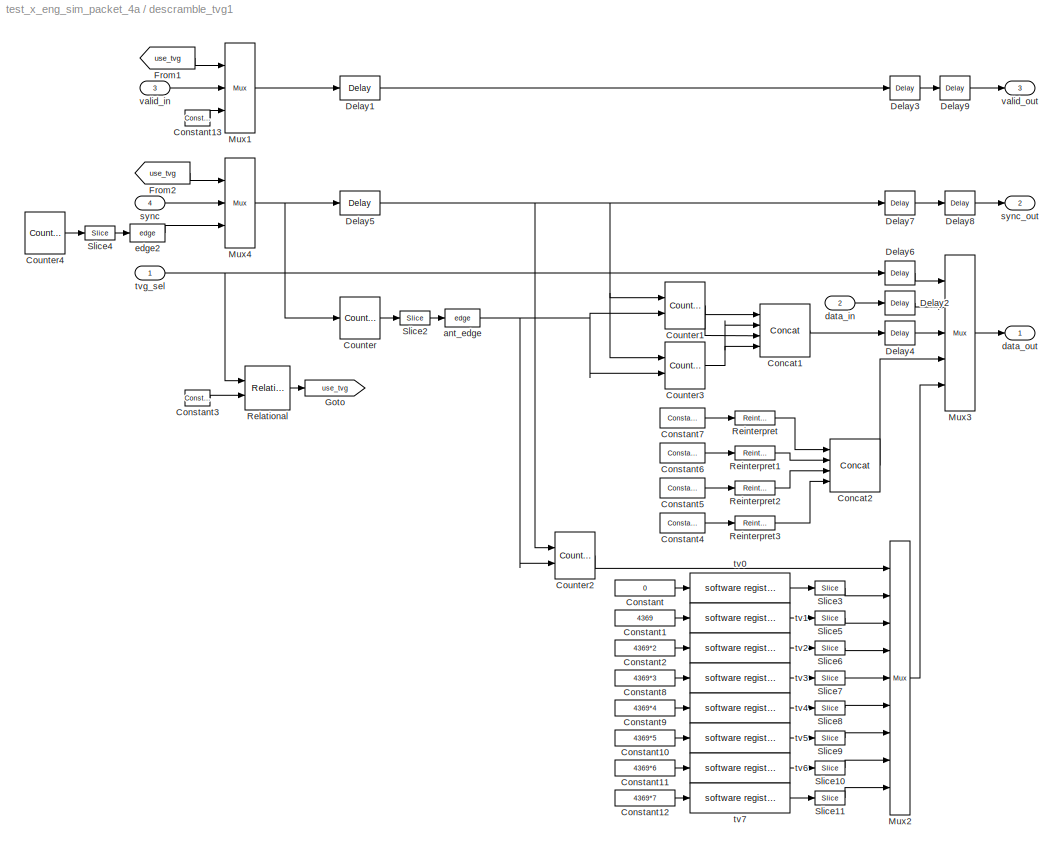
BLOCK [SubSystem] descramble_tvg1
  MaskCallbackString = ||
  MaskEnableString = on,on,on
  MaskIconFrame = on
  MaskIconOpaque = on
  MaskIconRotate = none
  MaskIconUnits = autoscale
  MaskPromptString = Number of Antennas (2^?):|X Integration Length (2^?):|Sync Pulse Period (2^?):
  MaskStyleString = edit,edit,edit
  MaskTabNameString = ,,
  MaskToolTipString = on,on,on
  MaskTunableValueString = on,on,on
  MaskValueString = 2|5|15
  MaskVarAliasString = ,,
  MaskVariables = ant_bits=@1;x_int_bits=@2;sync_period=@3;
  MaskVisibilityString = on,on,on
  MinAlgLoopOccurrences = off
  Ports = [4, 3]
  RTWSystemCode = Auto
  TreatAsAtomicUnit = off
BLOCK [Reference] descramble_tvg1/Concat1  REF=xbsIndex_r3/Concat
  Ports = [4, 1]
  SourceBlock = xbsIndex_r3/Concat
  SourceType = Xilinx Bus Concatenator
  dbl_ovrd = off
  explicit_period = off
  num_inputs = 4
  period = 1
BLOCK [Reference] descramble_tvg1/Concat2  REF=xbsIndex_r3/Concat
  Ports = [4, 1]
  SourceBlock = xbsIndex_r3/Concat
  SourceType = Xilinx Bus Concatenator
  dbl_ovrd = off
  explicit_period = off
  num_inputs = 4
  period = 1
BLOCK [Constant] descramble_tvg1/Constant
  Value = 0
BLOCK [Constant] descramble_tvg1/Constant1
  Value = 4369
BLOCK [Constant] descramble_tvg1/Constant10
  Value = 4369*5
BLOCK [Constant] descramble_tvg1/Constant11
  Value = 4369*6
BLOCK [Constant] descramble_tvg1/Constant12
  Value = 4369*7
BLOCK [Reference] descramble_tvg1/Constant13  REF=xbsIndex_r3/Constant
  Ports = [0, 1]
  SourceBlock = xbsIndex_r3/Constant
  SourceType = Xilinx Constant Block
  arith_type = Boolean
  bin_pt = 0
  carry = CIN
  const = 1
  dbl_ovrd = off
  equ = P=C
  explicit_period = on
  inp1 = P
  inp2 = PCIN>>17
  iostate = 0
  n_bits = 1
  opr = +
  opselect = C
  period = 1
BLOCK [Constant] descramble_tvg1/Constant2
  Value = 4369*2
BLOCK [Reference] descramble_tvg1/Constant3  REF=xbsIndex_r3/Constant
  Ports = [0, 1]
  SourceBlock = xbsIndex_r3/Constant
  SourceType = Xilinx Constant Block
  arith_type = Unsigned
  bin_pt = 0
  carry = CIN
  const = 0
  dbl_ovrd = off
  equ = P=C
  explicit_period = on
  inp1 = P
  inp2 = PCIN>>17
  iostate = 0
  n_bits = 2
  opr = +
  opselect = C
  period = 1
BLOCK [Reference] descramble_tvg1/Constant4  REF=xbsIndex_r3/Constant
  Ports = [0, 1]
  SourceBlock = xbsIndex_r3/Constant
  SourceType = Xilinx Constant Block
  arith_type = Signed  (2's comp)
  bin_pt = 3
  carry = CIN
  const = -0.25
  dbl_ovrd = off
  equ = P=C
  explicit_period = on
  inp1 = P
  inp2 = PCIN>>17
  iostate = 0
  n_bits = 4
  opr = +
  opselect = C
  period = 1
BLOCK [Reference] descramble_tvg1/Constant5  REF=xbsIndex_r3/Constant
  Ports = [0, 1]
  SourceBlock = xbsIndex_r3/Constant
  SourceType = Xilinx Constant Block
  arith_type = Signed  (2's comp)
  bin_pt = 3
  carry = CIN
  const = 0.5
  dbl_ovrd = off
  equ = P=C
  explicit_period = on
  inp1 = P
  inp2 = PCIN>>17
  iostate = 0
  n_bits = 4
  opr = +
  opselect = C
  period = 1
BLOCK [Reference] descramble_tvg1/Constant6  REF=xbsIndex_r3/Constant
  Ports = [0, 1]
  SourceBlock = xbsIndex_r3/Constant
  SourceType = Xilinx Constant Block
  arith_type = Signed  (2's comp)
  bin_pt = 3
  carry = CIN
  const = -6/8
  dbl_ovrd = off
  equ = P=C
  explicit_period = on
  inp1 = P
  inp2 = PCIN>>17
  iostate = 0
  n_bits = 4
  opr = +
  opselect = C
  period = 1
BLOCK [Reference] descramble_tvg1/Constant7  REF=xbsIndex_r3/Constant
  Ports = [0, 1]
  SourceBlock = xbsIndex_r3/Constant
  SourceType = Xilinx Constant Block
  arith_type = Signed  (2's comp)
  bin_pt = 3
  carry = CIN
  const = 0.1
  dbl_ovrd = off
  equ = P=C
  explicit_period = on
  inp1 = P
  inp2 = PCIN>>17
  iostate = 0
  n_bits = 4
  opr = +
  opselect = C
  period = 1
BLOCK [Constant] descramble_tvg1/Constant8
  Value = 4369*3
BLOCK [Constant] descramble_tvg1/Constant9
  Value = 4369*4
BLOCK [Reference] descramble_tvg1/Counter  REF=xbsIndex_r3/Counter
  Ports = [1, 1]
  SourceBlock = xbsIndex_r3/Counter
  SourceType = Xilinx Counter Block
  arith_type = Unsigned
  bin_pt = 0
  cnt_by_val = 1
  cnt_to = Inf
  cnt_type = Free Running
  dbl_ovrd = off
  en = off
  explicit_period = off
  gen_core = off
  load_pin = off
  n_bits = x_int_bits + 1
  operation = Up
  period = 1
  rst = on
  show_param = off
  start_count = 0
  use_rpm = on
  xl_area = [0, 0, 0, 0, 0, 0, 0]
  xl_use_area = off
BLOCK [Reference] descramble_tvg1/Counter1  REF=xbsIndex_r3/Counter
  Ports = [2, 1]
  SourceBlock = xbsIndex_r3/Counter
  SourceType = Xilinx Counter Block
  arith_type = Unsigned
  bin_pt = 0
  cnt_by_val = 1
  cnt_to = 7
  cnt_type = Free Running
  dbl_ovrd = off
  en = on
  explicit_period = off
  gen_core = off
  load_pin = off
  n_bits = 4
  operation = Up
  period = 1
  rst = on
  show_param = off
  start_count = 0
  use_rpm = on
  xl_area = [0, 0, 0, 0, 0, 0, 0]
  xl_use_area = off
BLOCK [Reference] descramble_tvg1/Counter2  REF=xbsIndex_r3/Counter
  Ports = [2, 1]
  SourceBlock = xbsIndex_r3/Counter
  SourceType = Xilinx Counter Block
  arith_type = Unsigned
  bin_pt = 0
  cnt_by_val = 1
  cnt_to = 7
  cnt_type = Free Running
  dbl_ovrd = off
  en = on
  explicit_period = off
  gen_core = off
  load_pin = off
  n_bits = 3
  operation = Up
  period = 1
  rst = on
  show_param = off
  start_count = 0
  use_rpm = on
  xl_area = [0, 0, 0, 0, 0, 0, 0]
  xl_use_area = off
BLOCK [Reference] descramble_tvg1/Counter3  REF=xbsIndex_r3/Counter
  Ports = [2, 1]
  SourceBlock = xbsIndex_r3/Counter
  SourceType = Xilinx Counter Block
  arith_type = Unsigned
  bin_pt = 0
  cnt_by_val = 1
  cnt_to = 0
  cnt_type = Free Running
  dbl_ovrd = off
  en = on
  explicit_period = off
  gen_core = off
  load_pin = off
  n_bits = 4
  operation = Down
  period = 1
  rst = on
  show_param = off
  start_count = 15
  use_rpm = on
  xl_area = [0, 0, 0, 0, 0, 0, 0]
  xl_use_area = off
BLOCK [Reference] descramble_tvg1/Counter4  REF=xbsIndex_r3/Counter
  Ports = [0, 1]
  SourceBlock = xbsIndex_r3/Counter
  SourceType = Xilinx Counter Block
  arith_type = Unsigned
  bin_pt = 0
  cnt_by_val = 1
  cnt_to = Inf
  cnt_type = Free Running
  dbl_ovrd = off
  en = off
  explicit_period = off
  gen_core = off
  load_pin = off
  n_bits = sync_period+1
  operation = Up
  period = 1
  rst = off
  show_param = off
  start_count = 2^sync_period - 2
  use_rpm = on
  xl_area = [0, 0, 0, 0, 0, 0, 0]
  xl_use_area = off
BLOCK [Reference] descramble_tvg1/Delay1  REF=xbsIndex_r3/Delay
  Ports = [1, 1]
  SourceBlock = xbsIndex_r3/Delay
  SourceType = Xilinx Delay Block
  accept_only_valid = off
  dbl_ovrd = off
  en = off
  explicit_period = off
  init_zero = on
  latency = 1
  period = 1
  reg_retiming = off
  show_param = off
  xl_area = [0, 0, 0, 0, 0, 0, 0]
  xl_use_area = off
BLOCK [Reference] descramble_tvg1/Delay2  REF=xbsIndex_r3/Delay
  Ports = [1, 1]
  SourceBlock = xbsIndex_r3/Delay
  SourceType = Xilinx Delay Block
  accept_only_valid = off
  dbl_ovrd = off
  en = off
  explicit_period = off
  init_zero = on
  latency = 2
  period = 1
  reg_retiming = off
  show_param = off
  xl_area = [0, 0, 0, 0, 0, 0, 0]
  xl_use_area = off
BLOCK [Reference] descramble_tvg1/Delay3  REF=xbsIndex_r3/Delay
  Ports = [1, 1]
  SourceBlock = xbsIndex_r3/Delay
  SourceType = Xilinx Delay Block
  accept_only_valid = off
  dbl_ovrd = off
  en = off
  explicit_period = off
  init_zero = on
  latency = 1
  period = 1
  reg_retiming = off
  show_param = off
  xl_area = [0, 0, 0, 0, 0, 0, 0]
  xl_use_area = off
BLOCK [Reference] descramble_tvg1/Delay4  REF=xbsIndex_r3/Delay
  Ports = [1, 1]
  SourceBlock = xbsIndex_r3/Delay
  SourceType = Xilinx Delay Block
  accept_only_valid = off
  dbl_ovrd = off
  en = off
  explicit_period = off
  init_zero = on
  latency = 1
  period = 1
  reg_retiming = off
  show_param = off
  xl_area = [0, 0, 0, 0, 0, 0, 0]
  xl_use_area = off
BLOCK [Reference] descramble_tvg1/Delay5  REF=xbsIndex_r3/Delay
  Ports = [1, 1]
  SourceBlock = xbsIndex_r3/Delay
  SourceType = Xilinx Delay Block
  accept_only_valid = off
  dbl_ovrd = off
  en = off
  explicit_period = off
  init_zero = on
  latency = 1
  period = 1
  reg_retiming = off
  show_param = off
  xl_area = [0, 0, 0, 0, 0, 0, 0]
  xl_use_area = off
BLOCK [Reference] descramble_tvg1/Delay6  REF=xbsIndex_r3/Delay
  Ports = [1, 1]
  SourceBlock = xbsIndex_r3/Delay
  SourceType = Xilinx Delay Block
  accept_only_valid = off
  dbl_ovrd = off
  en = off
  explicit_period = off
  init_zero = on
  latency = 1
  period = 1
  reg_retiming = off
  show_param = off
  xl_area = [0, 0, 0, 0, 0, 0, 0]
  xl_use_area = off
BLOCK [Reference] descramble_tvg1/Delay7  REF=xbsIndex_r3/Delay
  Ports = [1, 1]
  SourceBlock = xbsIndex_r3/Delay
  SourceType = Xilinx Delay Block
  accept_only_valid = off
  dbl_ovrd = off
  en = off
  explicit_period = off
  init_zero = on
  latency = 1
  period = 1
  reg_retiming = off
  show_param = off
  xl_area = [0, 0, 0, 0, 0, 0, 0]
  xl_use_area = off
BLOCK [Reference] descramble_tvg1/Delay8  REF=xbsIndex_r3/Delay
  Ports = [1, 1]
  SourceBlock = xbsIndex_r3/Delay
  SourceType = Xilinx Delay Block
  accept_only_valid = off
  dbl_ovrd = off
  en = off
  explicit_period = off
  init_zero = on
  latency = 1
  period = 1
  reg_retiming = off
  show_param = off
  xl_area = [0, 0, 0, 0, 0, 0, 0]
  xl_use_area = off
BLOCK [Reference] descramble_tvg1/Delay9  REF=xbsIndex_r3/Delay
  Ports = [1, 1]
  SourceBlock = xbsIndex_r3/Delay
  SourceType = Xilinx Delay Block
  accept_only_valid = off
  dbl_ovrd = off
  en = off
  explicit_period = off
  init_zero = on
  latency = 1
  period = 1
  reg_retiming = off
  show_param = off
  xl_area = [0, 0, 0, 0, 0, 0, 0]
  xl_use_area = off
BLOCK [From] descramble_tvg1/From1
  CloseFcn = tagdialog Close
  GotoTag = use_tvg
BLOCK [From] descramble_tvg1/From2
  CloseFcn = tagdialog Close
  GotoTag = use_tvg
BLOCK [Goto] descramble_tvg1/Goto
  GotoTag = use_tvg
  TagVisibility = local
BLOCK [Reference] descramble_tvg1/Mux1  REF=xbsIndex_r3/Mux
  Ports = [3, 1]
  SourceBlock = xbsIndex_r3/Mux
  SourceType = Xilinx Multiplexer Block
  arith_type = Signed  (2's comp)
  bin_pt = 2
  dbl_ovrd = off
  en = off
  explicit_period = on
  gen_core = off
  inputs = 2
  latency = 0
  mux_type = off
  n_bits = 8
  overflow = Wrap
  period = 1
  precision = Full
  quantization = Truncate
  show_param = off
  use_rpm = off
  xl_area = [0, 0, 0, 0, 0, 0, 0]
  xl_use_area = off
BLOCK [Reference] descramble_tvg1/Mux2  REF=xbsIndex_r3/Mux
  Ports = [9, 1]
  SourceBlock = xbsIndex_r3/Mux
  SourceType = Xilinx Multiplexer Block
  arith_type = Signed  (2's comp)
  bin_pt = 2
  dbl_ovrd = off
  en = off
  explicit_period = off
  gen_core = off
  inputs = 8
  latency = 1
  mux_type = off
  n_bits = 8
  overflow = Wrap
  period = 1
  precision = Full
  quantization = Truncate
  show_param = off
  use_rpm = off
  xl_area = [0, 0, 0, 0, 0, 0, 0]
  xl_use_area = off
BLOCK [Reference] descramble_tvg1/Mux3  REF=xbsIndex_r3/Mux
  Ports = [5, 1]
  SourceBlock = xbsIndex_r3/Mux
  SourceType = Xilinx Multiplexer Block
  arith_type = Signed  (2's comp)
  bin_pt = 2
  dbl_ovrd = off
  en = off
  explicit_period = off
  gen_core = off
  inputs = 4
  latency = 1
  mux_type = off
  n_bits = 8
  overflow = Wrap
  period = 1
  precision = Full
  quantization = Truncate
  show_param = off
  use_rpm = off
  xl_area = [0, 0, 0, 0, 0, 0, 0]
  xl_use_area = off
BLOCK [Reference] descramble_tvg1/Mux4  REF=xbsIndex_r3/Mux
  Ports = [3, 1]
  SourceBlock = xbsIndex_r3/Mux
  SourceType = Xilinx Multiplexer Block
  arith_type = Signed  (2's comp)
  bin_pt = 2
  dbl_ovrd = off
  en = off
  explicit_period = on
  gen_core = off
  inputs = 2
  latency = 0
  mux_type = off
  n_bits = 8
  overflow = Wrap
  period = 1
  precision = Full
  quantization = Truncate
  show_param = off
  use_rpm = off
  xl_area = [0, 0, 0, 0, 0, 0, 0]
  xl_use_area = off
BLOCK [Reference] descramble_tvg1/Reinterpret  REF=xbsIndex_r3/Reinterpret
  Ports = [1, 1]
  SourceBlock = xbsIndex_r3/Reinterpret
  SourceType = Xilinx Type Reinterpreting Block
  arith_type = Unsigned
  bin_pt = 0
  force_arith_type = on
  force_bin_pt = on
  force_valid = on
BLOCK [Reference] descramble_tvg1/Reinterpret1  REF=xbsIndex_r3/Reinterpret
  Ports = [1, 1]
  SourceBlock = xbsIndex_r3/Reinterpret
  SourceType = Xilinx Type Reinterpreting Block
  arith_type = Unsigned
  bin_pt = 0
  force_arith_type = on
  force_bin_pt = on
  force_valid = on
BLOCK [Reference] descramble_tvg1/Reinterpret2  REF=xbsIndex_r3/Reinterpret
  Ports = [1, 1]
  SourceBlock = xbsIndex_r3/Reinterpret
  SourceType = Xilinx Type Reinterpreting Block
  arith_type = Unsigned
  bin_pt = 0
  force_arith_type = on
  force_bin_pt = on
  force_valid = on
BLOCK [Reference] descramble_tvg1/Reinterpret3  REF=xbsIndex_r3/Reinterpret
  Ports = [1, 1]
  SourceBlock = xbsIndex_r3/Reinterpret
  SourceType = Xilinx Type Reinterpreting Block
  arith_type = Unsigned
  bin_pt = 0
  force_arith_type = on
  force_bin_pt = on
  force_valid = on
BLOCK [Reference] descramble_tvg1/Relational  REF=xbsIndex_r3/Relational
  Ports = [2, 1]
  SourceBlock = xbsIndex_r3/Relational
  SourceType = Xilinx Relational Block
  dbl_ovrd = off
  en = off
  explicit_period = off
  latency = 1
  mode = a!=b
  period = 1
  show_param = off
  xl_area = [0, 0, 0, 0, 0, 0, 0]
  xl_use_area = off
BLOCK [Reference] descramble_tvg1/Slice10  REF=xbsIndex_r3/Slice
  Ports = [1, 1]
  SourceBlock = xbsIndex_r3/Slice
  SourceType = Xilinx Slice Block
  base0 = LSB of Input
  base1 = MSB of Input
  bit0 = 0
  bit1 = 0
  boolean_output = off
  dbl_ovrd = off
  explicit_period = off
  mode = Lower Bit Location + Width
  nbits = 16
  period = 1
BLOCK [Reference] descramble_tvg1/Slice11  REF=xbsIndex_r3/Slice
  Ports = [1, 1]
  SourceBlock = xbsIndex_r3/Slice
  SourceType = Xilinx Slice Block
  base0 = LSB of Input
  base1 = MSB of Input
  bit0 = 0
  bit1 = 0
  boolean_output = off
  dbl_ovrd = off
  explicit_period = off
  mode = Lower Bit Location + Width
  nbits = 16
  period = 1
BLOCK [Reference] descramble_tvg1/Slice2  REF=xbsIndex_r3/Slice
  Ports = [1, 1]
  SourceBlock = xbsIndex_r3/Slice
  SourceType = Xilinx Slice Block
  base0 = LSB of Input
  base1 = MSB of Input
  bit0 = x_int_bits
  bit1 = 0
  boolean_output = on
  dbl_ovrd = off
  explicit_period = off
  mode = Lower Bit Location + Width
  nbits = 1
  period = 1
BLOCK [Reference] descramble_tvg1/Slice3  REF=xbsIndex_r3/Slice
  Ports = [1, 1]
  SourceBlock = xbsIndex_r3/Slice
  SourceType = Xilinx Slice Block
  base0 = LSB of Input
  base1 = MSB of Input
  bit0 = 0
  bit1 = 0
  boolean_output = off
  dbl_ovrd = off
  explicit_period = off
  mode = Lower Bit Location + Width
  nbits = 16
  period = 1
BLOCK [Reference] descramble_tvg1/Slice4  REF=xbsIndex_r3/Slice
  Ports = [1, 1]
  SourceBlock = xbsIndex_r3/Slice
  SourceType = Xilinx Slice Block
  base0 = LSB of Input
  base1 = MSB of Input
  bit0 = sync_period
  bit1 = 0
  boolean_output = on
  dbl_ovrd = off
  explicit_period = off
  mode = Lower Bit Location + Width
  nbits = 1
  period = 1
BLOCK [Reference] descramble_tvg1/Slice5  REF=xbsIndex_r3/Slice
  Ports = [1, 1]
  SourceBlock = xbsIndex_r3/Slice
  SourceType = Xilinx Slice Block
  base0 = LSB of Input
  base1 = MSB of Input
  bit0 = 0
  bit1 = 0
  boolean_output = off
  dbl_ovrd = off
  explicit_period = off
  mode = Lower Bit Location + Width
  nbits = 16
  period = 1
BLOCK [Reference] descramble_tvg1/Slice6  REF=xbsIndex_r3/Slice
  Ports = [1, 1]
  SourceBlock = xbsIndex_r3/Slice
  SourceType = Xilinx Slice Block
  base0 = LSB of Input
  base1 = MSB of Input
  bit0 = 0
  bit1 = 0
  boolean_output = off
  dbl_ovrd = off
  explicit_period = off
  mode = Lower Bit Location + Width
  nbits = 16
  period = 1
BLOCK [Reference] descramble_tvg1/Slice7  REF=xbsIndex_r3/Slice
  Ports = [1, 1]
  SourceBlock = xbsIndex_r3/Slice
  SourceType = Xilinx Slice Block
  base0 = LSB of Input
  base1 = MSB of Input
  bit0 = 0
  bit1 = 0
  boolean_output = off
  dbl_ovrd = off
  explicit_period = off
  mode = Lower Bit Location + Width
  nbits = 16
  period = 1
BLOCK [Reference] descramble_tvg1/Slice8  REF=xbsIndex_r3/Slice
  Ports = [1, 1]
  SourceBlock = xbsIndex_r3/Slice
  SourceType = Xilinx Slice Block
  base0 = LSB of Input
  base1 = MSB of Input
  bit0 = 0
  bit1 = 0
  boolean_output = off
  dbl_ovrd = off
  explicit_period = off
  mode = Lower Bit Location + Width
  nbits = 16
  period = 1
BLOCK [Reference] descramble_tvg1/Slice9  REF=xbsIndex_r3/Slice
  Ports = [1, 1]
  SourceBlock = xbsIndex_r3/Slice
  SourceType = Xilinx Slice Block
  base0 = LSB of Input
  base1 = MSB of Input
  bit0 = 0
  bit1 = 0
  boolean_output = off
  dbl_ovrd = off
  explicit_period = off
  mode = Lower Bit Location + Width
  nbits = 16
  period = 1
BLOCK [Reference] descramble_tvg1/ant_edge  REF=casper_library/Misc/edge  (lib defined in mdl_138b2fc3435f, mdl_4ed325b712b3, +2 more)
  Ports = [1, 1]
  ShowPortLabels = on
  SourceBlock = casper_library/Misc/edge
  SourceType = edge
BLOCK [Inport] descramble_tvg1/data_in
  IconDisplay = Port number
  LatchInput = off
  Port = 2
BLOCK [Outport] descramble_tvg1/data_out
  BusOutputAsStruct = off
  IconDisplay = Port number
BLOCK [Reference] descramble_tvg1/edge2  REF=casper_library/Misc/edge  (lib defined in mdl_138b2fc3435f, mdl_4ed325b712b3, +2 more)
  Ports = [1, 1]
  ShowPortLabels = on
  SourceBlock = casper_library/Misc/edge
  SourceType = edge
BLOCK [Inport] descramble_tvg1/sync
  IconDisplay = Port number
  LatchInput = off
  Port = 4
BLOCK [Outport] descramble_tvg1/sync_out
  BusOutputAsStruct = off
  IconDisplay = Port number
  Port = 2
BLOCK [Reference] descramble_tvg1/tv0  REF=xps_library/software register  (lib defined in mdl_00b5cec29cd0, mdl_02ab6ecaa3d1, +5 more)
  Ports = [1, 1]
  ShowPortLabels = on
  SourceBlock = xps_library/software register
  Tag = xps:sw_reg
  arith_type = Unsigned
  bin_pt = 0
  bitwidth = 32
  gw_name = test_x_eng_sim_packet_4a_descramble_tvg1_tv0_user_data_out
  io_dir = From Processor
  sample_period = 1
BLOCK [Reference] descramble_tvg1/tv1  REF=xps_library/software register  (lib defined in mdl_00b5cec29cd0, mdl_02ab6ecaa3d1, +5 more)
  Ports = [1, 1]
  ShowPortLabels = on
  SourceBlock = xps_library/software register
  Tag = xps:sw_reg
  arith_type = Unsigned
  bin_pt = 0
  bitwidth = 32
  gw_name = test_x_eng_sim_packet_4a_descramble_tvg1_tv1_user_data_out
  io_dir = From Processor
  sample_period = 1
BLOCK [Reference] descramble_tvg1/tv2  REF=xps_library/software register  (lib defined in mdl_00b5cec29cd0, mdl_02ab6ecaa3d1, +5 more)
  Ports = [1, 1]
  ShowPortLabels = on
  SourceBlock = xps_library/software register
  Tag = xps:sw_reg
  arith_type = Unsigned
  bin_pt = 0
  bitwidth = 32
  gw_name = test_x_eng_sim_packet_4a_descramble_tvg1_tv2_user_data_out
  io_dir = From Processor
  sample_period = 1
BLOCK [Reference] descramble_tvg1/tv3  REF=xps_library/software register  (lib defined in mdl_00b5cec29cd0, mdl_02ab6ecaa3d1, +5 more)
  Ports = [1, 1]
  ShowPortLabels = on
  SourceBlock = xps_library/software register
  Tag = xps:sw_reg
  arith_type = Unsigned
  bin_pt = 0
  bitwidth = 32
  gw_name = test_x_eng_sim_packet_4a_descramble_tvg1_tv3_user_data_out
  io_dir = From Processor
  sample_period = 1
BLOCK [Reference] descramble_tvg1/tv4  REF=xps_library/software register  (lib defined in mdl_00b5cec29cd0, mdl_02ab6ecaa3d1, +5 more)
  Ports = [1, 1]
  ShowPortLabels = on
  SourceBlock = xps_library/software register
  Tag = xps:sw_reg
  arith_type = Unsigned
  bin_pt = 0
  bitwidth = 32
  gw_name = test_x_eng_sim_packet_4a_descramble_tvg1_tv4_user_data_out
  io_dir = From Processor
  sample_period = 1
BLOCK [Reference] descramble_tvg1/tv5  REF=xps_library/software register  (lib defined in mdl_00b5cec29cd0, mdl_02ab6ecaa3d1, +5 more)
  Ports = [1, 1]
  ShowPortLabels = on
  SourceBlock = xps_library/software register
  Tag = xps:sw_reg
  arith_type = Unsigned
  bin_pt = 0
  bitwidth = 32
  gw_name = test_x_eng_sim_packet_4a_descramble_tvg1_tv5_user_data_out
  io_dir = From Processor
  sample_period = 1
BLOCK [Reference] descramble_tvg1/tv6  REF=xps_library/software register  (lib defined in mdl_00b5cec29cd0, mdl_02ab6ecaa3d1, +5 more)
  Ports = [1, 1]
  ShowPortLabels = on
  SourceBlock = xps_library/software register
  Tag = xps:sw_reg
  arith_type = Unsigned
  bin_pt = 0
  bitwidth = 32
  gw_name = test_x_eng_sim_packet_4a_descramble_tvg1_tv6_user_data_out
  io_dir = From Processor
  sample_period = 1
BLOCK [Reference] descramble_tvg1/tv7  REF=xps_library/software register  (lib defined in mdl_00b5cec29cd0, mdl_02ab6ecaa3d1, +5 more)
  Ports = [1, 1]
  ShowPortLabels = on
  SourceBlock = xps_library/software register
  Tag = xps:sw_reg
  arith_type = Unsigned
  bin_pt = 0
  bitwidth = 32
  gw_name = test_x_eng_sim_packet_4a_descramble_tvg1_tv7_user_data_out
  io_dir = From Processor
  sample_period = 1
BLOCK [Inport] descramble_tvg1/tvg_sel
  IconDisplay = Port number
  LatchInput = off
  Port = 1
BLOCK [Inport] descramble_tvg1/valid_in
  IconDisplay = Port number
  LatchInput = off
  Port = 3
BLOCK [Outport] descramble_tvg1/valid_out
  BusOutputAsStruct = off
  IconDisplay = Port number
  Port = 3
BLOCK [SubSystem] descramble_window1
  MaskCallbackString = |||
  MaskDescription = Valids between sync pulses: Would like this to come after every dram_vecc_len: valids_bet_syncs = xeng_int_len * num_ants * freqs_per_xeng. Normally, num_ants = num_xeng so this simplifies to xeng_int_len * n_chans.
  MaskEnableString = on,on,on,on
  MaskIconFrame = on
  MaskIconOpaque = on
  MaskIconRotate = none
  MaskIconUnits = autoscale
  MaskPromptString = Maximum Number of Antennas (2^?):|X Engine Integration Length (2^?):|Number of Windows to Buffer (2^?):|Samples Between Sync Pulses (2^?)
  MaskStyleString = edit,edit,edit,edit
  MaskTabNameString = ,,,
  MaskToolTipString = on,on,on,on
  MaskTunableValueString = on,on,on,on
  MaskValueString = 2|5|3|11
  MaskVarAliasString = ,,,
  MaskVariables = ant_bits=@1;x_int_bits=@2;window_bits=@3;sync_bits=@4;
  MaskVisibilityString = on,on,on,on
  MinAlgLoopOccurrences = off
  Ports = [6, 5]
  RTWSystemCode = Auto
  TreatAsAtomicUnit = off
BLOCK [Reference] descramble_window1/Constant  REF=xbsIndex_r3/Constant
  Ports = [0, 1]
  SourceBlock = xbsIndex_r3/Constant
  SourceType = Xilinx Constant Block
  arith_type = Unsigned
  bin_pt = 0
  carry = CIN
  const = 0
  dbl_ovrd = off
  equ = P=C
  explicit_period = on
  inp1 = P
  inp2 = PCIN>>17
  iostate = 0
  n_bits = 18
  opr = +
  opselect = C
  period = 1
BLOCK [Reference] descramble_window1/Constant1  REF=xbsIndex_r3/Constant
  Ports = [0, 1]
  SourceBlock = xbsIndex_r3/Constant
  SourceType = Xilinx Constant Block
  arith_type = Unsigned
  bin_pt = 0
  carry = CIN
  const = 0
  dbl_ovrd = off
  equ = P=C
  explicit_period = off
  inp1 = P
  inp2 = PCIN>>17
  iostate = 0
  n_bits = 1
  opr = +
  opselect = C
  period = 1
BLOCK [Reference] descramble_window1/Delay1  REF=xbsIndex_r3/Delay
  Ports = [1, 1]
  SourceBlock = xbsIndex_r3/Delay
  SourceType = Xilinx Delay Block
  accept_only_valid = off
  dbl_ovrd = off
  en = off
  explicit_period = off
  init_zero = on
  latency = 2
  period = 1
  reg_retiming = off
  show_param = off
  xl_area = [0, 0, 0, 0, 0, 0, 0]
  xl_use_area = off
BLOCK [Reference] descramble_window1/Delay2  REF=xbsIndex_r3/Delay
  Ports = [1, 1]
  SourceBlock = xbsIndex_r3/Delay
  SourceType = Xilinx Delay Block
  accept_only_valid = off
  dbl_ovrd = off
  en = off
  explicit_period = off
  init_zero = on
  latency = 4
  period = 1
  reg_retiming = off
  show_param = off
  xl_area = [0, 0, 0, 0, 0, 0, 0]
  xl_use_area = off
BLOCK [Reference] descramble_window1/Delay3  REF=xbsIndex_r3/Delay
  Ports = [1, 1]
  SourceBlock = xbsIndex_r3/Delay
  SourceType = Xilinx Delay Block
  accept_only_valid = off
  dbl_ovrd = off
  en = off
  explicit_period = off
  init_zero = on
  latency = 2
  period = 1
  reg_retiming = off
  show_param = off
  xl_area = [0, 0, 0, 0, 0, 0, 0]
  xl_use_area = off
BLOCK [Reference] descramble_window1/Delay4  REF=xbsIndex_r3/Delay
  Ports = [1, 1]
  SourceBlock = xbsIndex_r3/Delay
  SourceType = Xilinx Delay Block
  accept_only_valid = off
  dbl_ovrd = off
  en = off
  explicit_period = off
  init_zero = on
  latency = 4
  period = 1
  reg_retiming = off
  show_param = off
  xl_area = [0, 0, 0, 0, 0, 0, 0]
  xl_use_area = off
BLOCK [Reference] descramble_window1/Dual Port RAM  REF=xbsIndex_r3/Dual Port RAM
  Ports = [6, 4]
  SourceBlock = xbsIndex_r3/Dual Port RAM
  SourceType = Xilinx Dual Port Random Access Memory
  dbl_ovrd = off
  depth = 2^x_int_bits * 2^ant_bits * 2^window_bits
  distributed_mem = off
  explicit_period = off
  gen_core = off
  initVector = 0
  init_a = 0
  init_b = 0
  init_zero = on
  latency = 2
  mem_collision = on
  period = 1
  rst_a = off
  rst_b = off
  show_param = off
  use_rpm = off
  write_mode_A = Read Before Write
  write_mode_B = Read Before Write
  xl_area = [0, 0, 0, 0, 0, 0, 0]
  xl_use_area = off
BLOCK [Reference] descramble_window1/Gateway Out1  REF=xbsIndex_r3/Gateway Out
  LOCs = {}
  Ports = [1, 1]
  SourceBlock = xbsIndex_r3/Gateway Out
  SourceType = Xilinx Gateway Out
  arith_type = Boolean
  bin_pt = 6
  hdl_port = off
  locs_specified = off
  nbits = 8
  needs_fixed_name = off
  output_type = Double
  overflow = Wrap
  quantization = Truncate
  show_param = off
  timing_constraint = None
  xl_area = [0, 0, 0, 0, 0, 0, 0]
  xl_use_area = off
BLOCK [Reference] descramble_window1/Gateway Out2  REF=xbsIndex_r3/Gateway Out
  LOCs = {}
  Ports = [1, 1]
  SourceBlock = xbsIndex_r3/Gateway Out
  SourceType = Xilinx Gateway Out
  arith_type = Boolean
  bin_pt = 6
  hdl_port = off
  locs_specified = off
  nbits = 8
  needs_fixed_name = off
  output_type = Double
  overflow = Wrap
  quantization = Truncate
  show_param = off
  timing_constraint = None
  xl_area = [0, 0, 0, 0, 0, 0, 0]
  xl_use_area = off
BLOCK [Reference] descramble_window1/Gateway Out3  REF=xbsIndex_r3/Gateway Out
  LOCs = {}
  Ports = [1, 1]
  SourceBlock = xbsIndex_r3/Gateway Out
  SourceType = Xilinx Gateway Out
  arith_type = Boolean
  bin_pt = 6
  hdl_port = off
  locs_specified = off
  nbits = 8
  needs_fixed_name = off
  output_type = Double
  overflow = Wrap
  quantization = Truncate
  show_param = off
  timing_constraint = None
  xl_area = [0, 0, 0, 0, 0, 0, 0]
  xl_use_area = off
BLOCK [Reference] descramble_window1/Gateway Out4  REF=xbsIndex_r3/Gateway Out
  LOCs = {}
  Ports = [1, 1]
  SourceBlock = xbsIndex_r3/Gateway Out
  SourceType = Xilinx Gateway Out
  arith_type = Boolean
  bin_pt = 6
  hdl_port = off
  locs_specified = off
  nbits = 8
  needs_fixed_name = off
  output_type = Double
  overflow = Wrap
  quantization = Truncate
  show_param = off
  timing_constraint = None
  xl_area = [0, 0, 0, 0, 0, 0, 0]
  xl_use_area = off
BLOCK [Reference] descramble_window1/Gateway Out5  REF=xbsIndex_r3/Gateway Out
  LOCs = {}
  Ports = [1, 1]
  SourceBlock = xbsIndex_r3/Gateway Out
  SourceType = Xilinx Gateway Out
  arith_type = Boolean
  bin_pt = 6
  hdl_port = off
  locs_specified = off
  nbits = 8
  needs_fixed_name = off
  output_type = Double
  overflow = Wrap
  quantization = Truncate
  show_param = off
  timing_constraint = None
  xl_area = [0, 0, 0, 0, 0, 0, 0]
  xl_use_area = off
BLOCK [Reference] descramble_window1/Mux  REF=xbsIndex_r3/Mux
  Ports = [3, 1]
  SourceBlock = xbsIndex_r3/Mux
  SourceType = Xilinx Multiplexer Block
  arith_type = Signed  (2's comp)
  bin_pt = 2
  dbl_ovrd = off
  en = off
  explicit_period = off
  gen_core = off
  inputs = 2
  latency = 0
  mux_type = off
  n_bits = 8
  overflow = Wrap
  period = 1
  precision = Full
  quantization = Truncate
  show_param = off
  use_rpm = off
  xl_area = [0, 0, 0, 0, 0, 0, 0]
  xl_use_area = off
BLOCK [Inport] descramble_window1/ant
  IconDisplay = Port number
  LatchInput = off
  Port = 5
BLOCK [SubSystem] descramble_window1/deflagger
  MinAlgLoopOccurrences = off
  Ports = [1, 3]
  RTWSystemCode = Auto
  TreatAsAtomicUnit = off
BLOCK [Reference] descramble_window1/deflagger/Slice1  REF=xbsIndex_r3/Slice
  Ports = [1, 1]
  SourceBlock = xbsIndex_r3/Slice
  SourceType = Xilinx Slice Block
  base0 = LSB of Input
  base1 = MSB of Input
  bit0 = 0
  bit1 = 0
  boolean_output = off
  dbl_ovrd = off
  explicit_period = off
  mode = Lower Bit Location + Width
  nbits = 16
  period = 1
BLOCK [Reference] descramble_window1/deflagger/Slice2  REF=xbsIndex_r3/Slice
  Ports = [1, 1]
  SourceBlock = xbsIndex_r3/Slice
  SourceType = Xilinx Slice Block
  base0 = LSB of Input
  base1 = MSB of Input
  bit0 = 0
  bit1 = -1
  boolean_output = on
  dbl_ovrd = off
  explicit_period = off
  mode = Upper Bit Location + Width
  nbits = 1
  period = 1
BLOCK [Reference] descramble_window1/deflagger/Slice3  REF=xbsIndex_r3/Slice
  Ports = [1, 1]
  SourceBlock = xbsIndex_r3/Slice
  SourceType = Xilinx Slice Block
  base0 = LSB of Input
  base1 = MSB of Input
  bit0 = 0
  bit1 = 0
  boolean_output = on
  dbl_ovrd = off
  explicit_period = off
  mode = Upper Bit Location + Width
  nbits = 1
  period = 1
BLOCK [Inport] descramble_window1/deflagger/din
  IconDisplay = Port number
  LatchInput = off
  Port = 1
BLOCK [Outport] descramble_window1/deflagger/dout
  BusOutputAsStruct = off
  IconDisplay = Port number
BLOCK [Outport] descramble_window1/deflagger/flag
  BusOutputAsStruct = off
  IconDisplay = Port number
  Port = 2
BLOCK [Outport] descramble_window1/deflagger/rcvd
  BusOutputAsStruct = off
  IconDisplay = Port number
  Port = 3
BLOCK [Inport] descramble_window1/din
  IconDisplay = Port number
  LatchInput = off
  Port = 1
BLOCK [Outport] descramble_window1/dout
  BusOutputAsStruct = off
  IconDisplay = Port number
BLOCK [Inport] descramble_window1/eof
  IconDisplay = Port number
  LatchInput = off
  Port = 3
BLOCK [Inport] descramble_window1/flag
  IconDisplay = Port number
  LatchInput = off
  Port = 6
BLOCK [Outport] descramble_window1/flag_out
  BusOutputAsStruct = off
  IconDisplay = Port number
  Port = 2
BLOCK [SubSystem] descramble_window1/flagger
  MinAlgLoopOccurrences = off
  Ports = [2, 1]
  RTWSystemCode = Auto
  TreatAsAtomicUnit = off
BLOCK [Reference] descramble_window1/flagger/Concat  REF=xbsIndex_r3/Concat
  Ports = [12, 1]
  SourceBlock = xbsIndex_r3/Concat
  SourceType = Xilinx Bus Concatenator
  dbl_ovrd = off
  explicit_period = off
  num_inputs = 12
  period = 1
BLOCK [Reference] descramble_window1/flagger/Constant1  REF=xbsIndex_r3/Constant
  Ports = [0, 1]
  SourceBlock = xbsIndex_r3/Constant
  SourceType = Xilinx Constant Block
  arith_type = Unsigned
  bin_pt = 0
  carry = CIN
  const = 1
  dbl_ovrd = off
  equ = P=C
  explicit_period = on
  inp1 = P
  inp2 = PCIN>>17
  iostate = 0
  n_bits = 1
  opr = +
  opselect = C
  period = 1
BLOCK [Reference] descramble_window1/flagger/Constant2  REF=xbsIndex_r3/Constant
  Ports = [0, 1]
  SourceBlock = xbsIndex_r3/Constant
  SourceType = Xilinx Constant Block
  arith_type = Unsigned
  bin_pt = 0
  carry = CIN
  const = 1
  dbl_ovrd = off
  equ = P=C
  explicit_period = on
  inp1 = P
  inp2 = PCIN>>17
  iostate = 0
  n_bits = 1
  opr = +
  opselect = C
  period = 1
BLOCK [Reference] descramble_window1/flagger/Constant3  REF=xbsIndex_r3/Constant
  Ports = [0, 1]
  SourceBlock = xbsIndex_r3/Constant
  SourceType = Xilinx Constant Block
  arith_type = Unsigned
  bin_pt = 0
  carry = CIN
  const = 1
  dbl_ovrd = off
  equ = P=C
  explicit_period = on
  inp1 = P
  inp2 = PCIN>>17
  iostate = 0
  n_bits = 1
  opr = +
  opselect = C
  period = 1
BLOCK [Reference] descramble_window1/flagger/Constant4  REF=xbsIndex_r3/Constant
  Ports = [0, 1]
  SourceBlock = xbsIndex_r3/Constant
  SourceType = Xilinx Constant Block
  arith_type = Unsigned
  bin_pt = 0
  carry = CIN
  const = 1
  dbl_ovrd = off
  equ = P=C
  explicit_period = on
  inp1 = P
  inp2 = PCIN>>17
  iostate = 0
  n_bits = 1
  opr = +
  opselect = C
  period = 1
BLOCK [Reference] descramble_window1/flagger/Slice1  REF=xbsIndex_r3/Slice
  Ports = [1, 1]
  SourceBlock = xbsIndex_r3/Slice
  SourceType = Xilinx Slice Block
  base0 = LSB of Input
  base1 = MSB of Input
  bit0 = 0
  bit1 = 0
  boolean_output = off
  dbl_ovrd = off
  explicit_period = off
  mode = Lower Bit Location + Width
  nbits = 16
  period = 1
BLOCK [Reference] descramble_window1/flagger/Slice2  REF=xbsIndex_r3/Slice
  Ports = [1, 1]
  SourceBlock = xbsIndex_r3/Slice
  SourceType = Xilinx Slice Block
  base0 = LSB of Input
  base1 = MSB of Input
  bit0 = 16
  bit1 = 0
  boolean_output = off
  dbl_ovrd = off
  explicit_period = off
  mode = Lower Bit Location + Width
  nbits = 16
  period = 1
BLOCK [Reference] descramble_window1/flagger/Slice3  REF=xbsIndex_r3/Slice
  Ports = [1, 1]
  SourceBlock = xbsIndex_r3/Slice
  SourceType = Xilinx Slice Block
  base0 = LSB of Input
  base1 = MSB of Input
  bit0 = 32
  bit1 = 0
  boolean_output = off
  dbl_ovrd = off
  explicit_period = off
  mode = Lower Bit Location + Width
  nbits = 16
  period = 1
BLOCK [Reference] descramble_window1/flagger/Slice4  REF=xbsIndex_r3/Slice
  Ports = [1, 1]
  SourceBlock = xbsIndex_r3/Slice
  SourceType = Xilinx Slice Block
  base0 = LSB of Input
  base1 = MSB of Input
  bit0 = 48
  bit1 = 0
  boolean_output = off
  dbl_ovrd = off
  explicit_period = off
  mode = Lower Bit Location + Width
  nbits = 16
  period = 1
BLOCK [Inport] descramble_window1/flagger/din
  IconDisplay = Port number
  LatchInput = off
  Port = 2
BLOCK [Outport] descramble_window1/flagger/dout
  BusOutputAsStruct = off
  IconDisplay = Port number
BLOCK [Inport] descramble_window1/flagger/flag
  IconDisplay = Port number
  LatchInput = off
  Port = 1
BLOCK [Scope] descramble_window1/internal_descr_Scope
  DataFormat = StructureWithTime
  LimitDataPoints = off
  NumInputPorts = 5
  Ports = [5]
  SaveName = ScopeData11
  TimeRange = 1
  YMax = 1~1~1.05~5~5
  YMin = -1~-1~0.95~-5~-5
  ZoomMode = xonly
BLOCK [Inport] descramble_window1/mcnt
  IconDisplay = Port number
  LatchInput = off
  Port = 4
BLOCK [Outport] descramble_window1/rcvd
  BusOutputAsStruct = off
  IconDisplay = Port number
  Port = 4
BLOCK [Outport] descramble_window1/sync_out
  BusOutputAsStruct = off
  IconDisplay = Port number
  Port = 5
BLOCK [Outport] descramble_window1/valid
  BusOutputAsStruct = off
  IconDisplay = Port number
  Port = 3
BLOCK [Inport] descramble_window1/we
  IconDisplay = Port number
  LatchInput = off
  Port = 2
BLOCK [SubSystem] descramble_window1/window_addr_gen
  MinAlgLoopOccurrences = off
  Ports = [4, 5]
  RTWSystemCode = Auto
  TreatAsAtomicUnit = off
BLOCK [Reference] descramble_window1/window_addr_gen/AddSub  REF=xbsIndex_r3/AddSub
  Ports = [2, 1]
  SourceBlock = xbsIndex_r3/AddSub
  SourceType = Xilinx Adder/Subtractor
  arith_type = Unsigned
  bin_pt = 0
  dbl_ovrd = off
  en = off
  explicit_period = off
  gen_core = off
  latency = 2
  mode = Addition
  n_bits = 48 - ant_bits
  overflow = Wrap
  period = 1
  pipeline = off
  precision = User Defined
  quantization = Truncate
  show_param = off
  use_carryin = off
  use_carryout = off
  use_core = on
  use_rpm = on
  xl_area = [0, 0, 0, 0, 0, 0, 0]
  xl_use_area = off
BLOCK [Reference] descramble_window1/window_addr_gen/AddSub1  REF=xbsIndex_r3/AddSub
  Ports = [2, 1]
  SourceBlock = xbsIndex_r3/AddSub
  SourceType = Xilinx Adder/Subtractor
  arith_type = Unsigned
  bin_pt = 0
  dbl_ovrd = off
  en = off
  explicit_period = off
  gen_core = off
  latency = 2
  mode = Subtraction
  n_bits = window_bits
  overflow = Wrap
  period = 1
  pipeline = off
  precision = User Defined
  quantization = Truncate
  show_param = off
  use_carryin = off
  use_carryout = off
  use_core = on
  use_rpm = on
  xl_area = [0, 0, 0, 0, 0, 0, 0]
  xl_use_area = off
BLOCK [Reference] descramble_window1/window_addr_gen/Concat  REF=xbsIndex_r3/Concat
  Ports = [3, 1]
  SourceBlock = xbsIndex_r3/Concat
  SourceType = Xilinx Bus Concatenator
  dbl_ovrd = off
  explicit_period = off
  num_inputs = 3
  period = 1
BLOCK [Reference] descramble_window1/window_addr_gen/Concat1  REF=xbsIndex_r3/Concat
  Ports = [2, 1]
  SourceBlock = xbsIndex_r3/Concat
  SourceType = Xilinx Bus Concatenator
  dbl_ovrd = off
  explicit_period = off
  num_inputs = 2
  period = 1
BLOCK [Reference] descramble_window1/window_addr_gen/Constant  REF=xbsIndex_r3/Constant
  Ports = [0, 1]
  SourceBlock = xbsIndex_r3/Constant
  SourceType = Xilinx Constant Block
  arith_type = Unsigned
  bin_pt = 0
  carry = CIN
  const = 2^(window_bits - 1)
  dbl_ovrd = off
  equ = P=C
  explicit_period = on
  inp1 = P
  inp2 = PCIN>>17
  iostate = 0
  n_bits = 48 - ant_bits
  opr = +
  opselect = C
  period = 1
BLOCK [Reference] descramble_window1/window_addr_gen/Constant1  REF=xbsIndex_r3/Constant
  Ports = [0, 1]
  SourceBlock = xbsIndex_r3/Constant
  SourceType = Xilinx Constant Block
  arith_type = Unsigned
  bin_pt = 0
  carry = CIN
  const = 2^(window_bits - 1)
  dbl_ovrd = off
  equ = P=C
  explicit_period = on
  inp1 = P
  inp2 = PCIN>>17
  iostate = 0
  n_bits = window_bits
  opr = +
  opselect = C
  period = 1
BLOCK [Reference] descramble_window1/window_addr_gen/Constant3  REF=xbsIndex_r3/Constant
  Ports = [0, 1]
  SourceBlock = xbsIndex_r3/Constant
  SourceType = Xilinx Constant Block
  arith_type = Unsigned
  bin_pt = 0
  carry = CIN
  const = 0
  dbl_ovrd = off
  equ = P=C
  explicit_period = on
  inp1 = P
  inp2 = PCIN>>17
  iostate = 0
  n_bits = sync_bits - x_int_bits - ant_bits - window_bits
  opr = +
  opselect = C
  period = 1
BLOCK [Reference] descramble_window1/window_addr_gen/Delay1  REF=xbsIndex_r3/Delay
  Ports = [1, 1]
  SourceBlock = xbsIndex_r3/Delay
  SourceType = Xilinx Delay Block
  accept_only_valid = off
  dbl_ovrd = off
  en = off
  explicit_period = off
  init_zero = on
  latency = 3
  period = 1
  reg_retiming = off
  show_param = off
  xl_area = [0, 0, 0, 0, 0, 0, 0]
  xl_use_area = off
BLOCK [Reference] descramble_window1/window_addr_gen/Delay2  REF=xbsIndex_r3/Delay
  Ports = [1, 1]
  SourceBlock = xbsIndex_r3/Delay
  SourceType = Xilinx Delay Block
  accept_only_valid = off
  dbl_ovrd = off
  en = off
  explicit_period = off
  init_zero = on
  latency = 3
  period = 1
  reg_retiming = off
  show_param = off
  xl_area = [0, 0, 0, 0, 0, 0, 0]
  xl_use_area = off
BLOCK [Reference] descramble_window1/window_addr_gen/Delay3  REF=xbsIndex_r3/Delay
  Ports = [1, 1]
  SourceBlock = xbsIndex_r3/Delay
  SourceType = Xilinx Delay Block
  accept_only_valid = off
  dbl_ovrd = off
  en = off
  explicit_period = off
  init_zero = on
  latency = 2
  period = 1
  reg_retiming = off
  show_param = off
  xl_area = [0, 0, 0, 0, 0, 0, 0]
  xl_use_area = off
BLOCK [Reference] descramble_window1/window_addr_gen/Delay4  REF=xbsIndex_r3/Delay
  Ports = [1, 1]
  SourceBlock = xbsIndex_r3/Delay
  SourceType = Xilinx Delay Block
  accept_only_valid = off
  dbl_ovrd = off
  en = off
  explicit_period = off
  init_zero = on
  latency = 1
  period = 1
  reg_retiming = off
  show_param = off
  xl_area = [0, 0, 0, 0, 0, 0, 0]
  xl_use_area = off
BLOCK [Reference] descramble_window1/window_addr_gen/Delay5  REF=xbsIndex_r3/Delay
  Ports = [1, 1]
  SourceBlock = xbsIndex_r3/Delay
  SourceType = Xilinx Delay Block
  accept_only_valid = off
  dbl_ovrd = off
  en = off
  explicit_period = off
  init_zero = on
  latency = 1
  period = 1
  reg_retiming = off
  show_param = off
  xl_area = [0, 0, 0, 0, 0, 0, 0]
  xl_use_area = off
BLOCK [Reference] descramble_window1/window_addr_gen/Delay6  REF=xbsIndex_r3/Delay
  Ports = [1, 1]
  SourceBlock = xbsIndex_r3/Delay
  SourceType = Xilinx Delay Block
  accept_only_valid = off
  dbl_ovrd = off
  en = off
  explicit_period = off
  init_zero = on
  latency = 1
  period = 1
  reg_retiming = off
  show_param = off
  xl_area = [0, 0, 0, 0, 0, 0, 0]
  xl_use_area = off
BLOCK [Reference] descramble_window1/window_addr_gen/Delay7  REF=xbsIndex_r3/Delay
  Ports = [1, 1]
  SourceBlock = xbsIndex_r3/Delay
  SourceType = Xilinx Delay Block
  accept_only_valid = off
  dbl_ovrd = off
  en = off
  explicit_period = off
  init_zero = on
  latency = 1
  period = 1
  reg_retiming = off
  show_param = off
  xl_area = [0, 0, 0, 0, 0, 0, 0]
  xl_use_area = off
BLOCK [Reference] descramble_window1/window_addr_gen/Delay8  REF=xbsIndex_r3/Delay
  Ports = [1, 1]
  SourceBlock = xbsIndex_r3/Delay
  SourceType = Xilinx Delay Block
  accept_only_valid = off
  dbl_ovrd = off
  en = off
  explicit_period = off
  init_zero = on
  latency = 1
  period = 1
  reg_retiming = off
  show_param = off
  xl_area = [0, 0, 0, 0, 0, 0, 0]
  xl_use_area = off
BLOCK [Reference] descramble_window1/window_addr_gen/Gateway Out1  REF=xbsIndex_r3/Gateway Out
  LOCs = {}
  Ports = [1, 1]
  SourceBlock = xbsIndex_r3/Gateway Out
  SourceType = Xilinx Gateway Out
  arith_type = Boolean
  bin_pt = 6
  hdl_port = off
  locs_specified = off
  nbits = 8
  needs_fixed_name = off
  output_type = Double
  overflow = Wrap
  quantization = Truncate
  show_param = off
  timing_constraint = None
  xl_area = [0, 0, 0, 0, 0, 0, 0]
  xl_use_area = off
BLOCK [Reference] descramble_window1/window_addr_gen/Gateway Out2  REF=xbsIndex_r3/Gateway Out
  LOCs = {}
  Ports = [1, 1]
  SourceBlock = xbsIndex_r3/Gateway Out
  SourceType = Xilinx Gateway Out
  arith_type = Boolean
  bin_pt = 6
  hdl_port = off
  locs_specified = off
  nbits = 8
  needs_fixed_name = off
  output_type = Double
  overflow = Wrap
  quantization = Truncate
  show_param = off
  timing_constraint = None
  xl_area = [0, 0, 0, 0, 0, 0, 0]
  xl_use_area = off
BLOCK [Reference] descramble_window1/window_addr_gen/Gateway Out3  REF=xbsIndex_r3/Gateway Out
  LOCs = {}
  Ports = [1, 1]
  SourceBlock = xbsIndex_r3/Gateway Out
  SourceType = Xilinx Gateway Out
  arith_type = Boolean
  bin_pt = 6
  hdl_port = off
  locs_specified = off
  nbits = 8
  needs_fixed_name = off
  output_type = Double
  overflow = Wrap
  quantization = Truncate
  show_param = off
  timing_constraint = None
  xl_area = [0, 0, 0, 0, 0, 0, 0]
  xl_use_area = off
BLOCK [Reference] descramble_window1/window_addr_gen/Gateway Out4  REF=xbsIndex_r3/Gateway Out
  LOCs = {}
  Ports = [1, 1]
  SourceBlock = xbsIndex_r3/Gateway Out
  SourceType = Xilinx Gateway Out
  arith_type = Boolean
  bin_pt = 6
  hdl_port = off
  locs_specified = off
  nbits = 8
  needs_fixed_name = off
  output_type = Double
  overflow = Wrap
  quantization = Truncate
  show_param = off
  timing_constraint = None
  xl_area = [0, 0, 0, 0, 0, 0, 0]
  xl_use_area = off
BLOCK [Reference] descramble_window1/window_addr_gen/Gateway Out5  REF=xbsIndex_r3/Gateway Out
  LOCs = {}
  Ports = [1, 1]
  SourceBlock = xbsIndex_r3/Gateway Out
  SourceType = Xilinx Gateway Out
  arith_type = Boolean
  bin_pt = 6
  hdl_port = off
  locs_specified = off
  nbits = 8
  needs_fixed_name = off
  output_type = Double
  overflow = Wrap
  quantization = Truncate
  show_param = off
  timing_constraint = None
  xl_area = [0, 0, 0, 0, 0, 0, 0]
  xl_use_area = off
BLOCK [Reference] descramble_window1/window_addr_gen/Logical  REF=xbsIndex_r3/Logical
  Ports = [3, 1]
  SourceBlock = xbsIndex_r3/Logical
  SourceType = Xilinx Logical Block
  align_bp = on
  arith_type = Unsigned
  bin_pt = 2
  dbl_ovrd = off
  en = off
  explicit_period = off
  inputs = 3
  latency = 0
  logical_function = AND
  n_bits = 8
  period = 1
  precision = Full
  show_param = off
  xl_area = [0, 0, 0, 0, 0, 0, 0]
  xl_use_area = off
BLOCK [Reference] descramble_window1/window_addr_gen/Logical1  REF=xbsIndex_r3/Logical
  Ports = [2, 1]
  SourceBlock = xbsIndex_r3/Logical
  SourceType = Xilinx Logical Block
  align_bp = on
  arith_type = Unsigned
  bin_pt = 2
  dbl_ovrd = off
  en = off
  explicit_period = off
  inputs = 2
  latency = 0
  logical_function = AND
  n_bits = 8
  period = 1
  precision = Full
  show_param = off
  xl_area = [0, 0, 0, 0, 0, 0, 0]
  xl_use_area = off
BLOCK [Reference] descramble_window1/window_addr_gen/Logical2  REF=xbsIndex_r3/Logical
  Ports = [2, 1]
  SourceBlock = xbsIndex_r3/Logical
  SourceType = Xilinx Logical Block
  align_bp = on
  arith_type = Unsigned
  bin_pt = 2
  dbl_ovrd = off
  en = off
  explicit_period = off
  inputs = 2
  latency = 0
  logical_function = AND
  n_bits = 8
  period = 1
  precision = Full
  show_param = off
  xl_area = [0, 0, 0, 0, 0, 0, 0]
  xl_use_area = off
BLOCK [Reference] descramble_window1/window_addr_gen/Relational  REF=xbsIndex_r3/Relational
  Ports = [2, 1]
  SourceBlock = xbsIndex_r3/Relational
  SourceType = Xilinx Relational Block
  dbl_ovrd = off
  en = off
  explicit_period = off
  latency = 1
  mode = a<b
  period = 1
  show_param = off
  xl_area = [0, 0, 0, 0, 0, 0, 0]
  xl_use_area = off
BLOCK [Reference] descramble_window1/window_addr_gen/Relational1  REF=xbsIndex_r3/Relational
  Ports = [2, 1]
  SourceBlock = xbsIndex_r3/Relational
  SourceType = Xilinx Relational Block
  dbl_ovrd = off
  en = off
  explicit_period = on
  latency = 1
  mode = a>=b
  period = 1
  show_param = off
  xl_area = [0, 0, 0, 0, 0, 0, 0]
  xl_use_area = off
BLOCK [Reference] descramble_window1/window_addr_gen/Relational2  REF=xbsIndex_r3/Relational
  Ports = [2, 1]
  SourceBlock = xbsIndex_r3/Relational
  SourceType = Xilinx Relational Block
  dbl_ovrd = off
  en = off
  explicit_period = off
  latency = 1
  mode = a>=b
  period = 1
  show_param = off
  xl_area = [0, 0, 0, 0, 0, 0, 0]
  xl_use_area = off
BLOCK [Reference] descramble_window1/window_addr_gen/Relational4  REF=xbsIndex_r3/Relational
  Ports = [2, 1]
  SourceBlock = xbsIndex_r3/Relational
  SourceType = Xilinx Relational Block
  dbl_ovrd = off
  en = off
  explicit_period = off
  latency = 1
  mode = a=b
  period = 1
  show_param = off
  xl_area = [0, 0, 0, 0, 0, 0, 0]
  xl_use_area = off
BLOCK [Reference] descramble_window1/window_addr_gen/Slice  REF=xbsIndex_r3/Slice
  Ports = [1, 1]
  SourceBlock = xbsIndex_r3/Slice
  SourceType = Xilinx Slice Block
  base0 = LSB of Input
  base1 = MSB of Input
  bit0 = 0
  bit1 = 0
  boolean_output = off
  dbl_ovrd = off
  explicit_period = off
  mode = Lower Bit Location + Width
  nbits = window_bits
  period = 1
BLOCK [Reference] descramble_window1/window_addr_gen/Slice1  REF=xbsIndex_r3/Slice
  Ports = [1, 1]
  SourceBlock = xbsIndex_r3/Slice
  SourceType = Xilinx Slice Block
  base0 = LSB of Input
  base1 = MSB of Input
  bit0 = 0
  bit1 = 0
  boolean_output = off
  dbl_ovrd = off
  explicit_period = off
  mode = Lower Bit Location + Width
  nbits = window_bits
  period = 1
BLOCK [Reference] descramble_window1/window_addr_gen/Slice2  REF=xbsIndex_r3/Slice
  Ports = [1, 1]
  SourceBlock = xbsIndex_r3/Slice
  SourceType = Xilinx Slice Block
  base0 = LSB of Input
  base1 = MSB of Input
  bit0 = 0
  bit1 = 0
  boolean_output = on
  dbl_ovrd = off
  explicit_period = off
  mode = Upper Bit Location + Width
  nbits = 1
  period = 1
BLOCK [Reference] descramble_window1/window_addr_gen/Slice3  REF=xbsIndex_r3/Slice
  Ports = [1, 1]
  SourceBlock = xbsIndex_r3/Slice
  SourceType = Xilinx Slice Block
  base0 = LSB of Input
  base1 = MSB of Input
  bit0 = 0
  bit1 = 0
  boolean_output = off
  dbl_ovrd = off
  explicit_period = off
  mode = Lower Bit Location + Width
  nbits = window_bits
  period = 1
BLOCK [Reference] descramble_window1/window_addr_gen/Slice4  REF=xbsIndex_r3/Slice
  Ports = [1, 1]
  SourceBlock = xbsIndex_r3/Slice
  SourceType = Xilinx Slice Block
  base0 = LSB of Input
  base1 = MSB of Input
  bit0 = 0
  bit1 = 0
  boolean_output = off
  dbl_ovrd = off
  explicit_period = off
  mode = Lower Bit Location + Width
  nbits = x_int_bits + ant_bits
  period = 1
BLOCK [Reference] descramble_window1/window_addr_gen/Slice5  REF=xbsIndex_r3/Slice
  Ports = [1, 1]
  SourceBlock = xbsIndex_r3/Slice
  SourceType = Xilinx Slice Block
  base0 = LSB of Input
  base1 = LSB of Input
  bit0 = window_bits
  bit1 = sync_bits - x_int_bits - ant_bits - 1
  boolean_output = off
  dbl_ovrd = off
  explicit_period = off
  mode = Two Bit Locations
  nbits = window_bits
  period = 1
BLOCK [Reference] descramble_window1/window_addr_gen/Slice6  REF=xbsIndex_r3/Slice
  Ports = [1, 1]
  SourceBlock = xbsIndex_r3/Slice
  SourceType = Xilinx Slice Block
  base0 = LSB of Input
  base1 = MSB of Input
  bit0 = 0
  bit1 = 0
  boolean_output = on
  dbl_ovrd = off
  explicit_period = off
  mode = Upper Bit Location + Width
  nbits = 1
  period = 1
BLOCK [Inport] descramble_window1/window_addr_gen/ant
  IconDisplay = Port number
  LatchInput = off
  Port = 2
BLOCK [Reference] descramble_window1/window_addr_gen/edge  REF=casper_library/Misc/edge  (lib defined in mdl_138b2fc3435f, mdl_4ed325b712b3, +2 more)
  Ports = [1, 1]
  ShowPortLabels = on
  SourceBlock = casper_library/Misc/edge
  SourceType = edge
BLOCK [Reference] descramble_window1/window_addr_gen/edge1  REF=casper_library/Misc/edge  (lib defined in mdl_138b2fc3435f, mdl_4ed325b712b3, +2 more)
  Ports = [1, 1]
  ShowPortLabels = on
  SourceBlock = casper_library/Misc/edge
  SourceType = edge
BLOCK [Inport] descramble_window1/window_addr_gen/eof
  IconDisplay = Port number
  LatchInput = off
  Port = 3
BLOCK [SubSystem] descramble_window1/window_addr_gen/freqs_for_ants
  MinAlgLoopOccurrences = off
  Ports = [2, 2]
  RTWSystemCode = Auto
  TreatAsAtomicUnit = off
BLOCK [Reference] descramble_window1/window_addr_gen/freqs_for_ants/Concat3  REF=xbsIndex_r3/Concat
  Ports = [2, 1]
  SourceBlock = xbsIndex_r3/Concat
  SourceType = Xilinx Bus Concatenator
  dbl_ovrd = off
  explicit_period = off
  num_inputs = 2
  period = 1
BLOCK [Reference] descramble_window1/window_addr_gen/freqs_for_ants/Slice1  REF=xbsIndex_r3/Slice
  Ports = [1, 1]
  SourceBlock = xbsIndex_r3/Slice
  SourceType = Xilinx Slice Block
  base0 = LSB of Input
  base1 = MSB of Input
  bit0 = 0
  bit1 = 0
  boolean_output = off
  dbl_ovrd = off
  explicit_period = off
  mode = Lower Bit Location + Width
  nbits = ant_bits
  period = 1
BLOCK [Reference] descramble_window1/window_addr_gen/freqs_for_ants/Slice14  REF=xbsIndex_r3/Slice
  Ports = [1, 1]
  SourceBlock = xbsIndex_r3/Slice
  SourceType = Xilinx Slice Block
  base0 = LSB of Input
  base1 = MSB of Input
  bit0 = ant_bits
  bit1 = 0
  boolean_output = off
  dbl_ovrd = off
  explicit_period = off
  mode = Two Bit Locations
  nbits = ant_bits
  period = 1
BLOCK [Reference] descramble_window1/window_addr_gen/freqs_for_ants/Slice18  REF=xbsIndex_r3/Slice
  Ports = [1, 1]
  SourceBlock = xbsIndex_r3/Slice
  SourceType = Xilinx Slice Block
  base0 = LSB of Input
  base1 = MSB of Input
  bit0 = 0
  bit1 = 0
  boolean_output = off
  dbl_ovrd = off
  explicit_period = off
  mode = Lower Bit Location + Width
  nbits = ant_bits
  period = 1
BLOCK [Reference] descramble_window1/window_addr_gen/freqs_for_ants/Slice19  REF=xbsIndex_r3/Slice
  Ports = [1, 1]
  SourceBlock = xbsIndex_r3/Slice
  SourceType = Xilinx Slice Block
  base0 = LSB of Input
  base1 = MSB of Input
  bit0 = ant_bits
  bit1 = 0
  boolean_output = off
  dbl_ovrd = off
  explicit_period = off
  mode = Two Bit Locations
  nbits = 48
  period = 1
BLOCK [Outport] descramble_window1/window_addr_gen/freqs_for_ants/addr
  BusOutputAsStruct = off
  IconDisplay = Port number
  Port = 2
BLOCK [Inport] descramble_window1/window_addr_gen/freqs_for_ants/ant
  IconDisplay = Port number
  LatchInput = off
  Port = 2
BLOCK [Inport] descramble_window1/window_addr_gen/freqs_for_ants/mcnt
  IconDisplay = Port number
  LatchInput = off
  Port = 1
BLOCK [Outport] descramble_window1/window_addr_gen/freqs_for_ants/mcnt_out
  BusOutputAsStruct = off
  IconDisplay = Port number
BLOCK [Scope] descramble_window1/window_addr_gen/internal_descr_Scope
  DataFormat = StructureWithTime
  LimitDataPoints = off
  NumInputPorts = 5
  Ports = [5]
  SaveName = ScopeData13
  TimeRange = 1
  YMax = 1~1~1.05~5~5
  YMin = -1~-1~0.95~-5~-5
  ZoomMode = xonly
BLOCK [Inport] descramble_window1/window_addr_gen/mcnt
  IconDisplay = Port number
  LatchInput = off
  Port = 1
BLOCK [SubSystem] descramble_window1/window_addr_gen/mcnt_thresh
  MinAlgLoopOccurrences = off
  Ports = [1, 1]
  RTWSystemCode = Auto
  TreatAsAtomicUnit = off
BLOCK [Reference] descramble_window1/window_addr_gen/mcnt_thresh/AddSub  REF=xbsIndex_r3/AddSub
  Ports = [2, 1]
  SourceBlock = xbsIndex_r3/AddSub
  SourceType = Xilinx Adder/Subtractor
  arith_type = Unsigned
  bin_pt = 0
  dbl_ovrd = off
  en = off
  explicit_period = off
  gen_core = off
  latency = 2
  mode = Addition
  n_bits = 48 - ant_bits
  overflow = Wrap
  period = 1
  pipeline = off
  precision = User Defined
  quantization = Truncate
  show_param = off
  use_carryin = off
  use_carryout = off
  use_core = on
  use_rpm = on
  xl_area = [0, 0, 0, 0, 0, 0, 0]
  xl_use_area = off
BLOCK [Reference] descramble_window1/window_addr_gen/mcnt_thresh/Constant  REF=xbsIndex_r3/Constant
  Ports = [0, 1]
  SourceBlock = xbsIndex_r3/Constant
  SourceType = Xilinx Constant Block
  arith_type = Unsigned
  bin_pt = 0
  carry = CIN
  const = 2^(window_bits - 2)
  dbl_ovrd = off
  equ = P=C
  explicit_period = on
  inp1 = P
  inp2 = PCIN>>17
  iostate = 0
  n_bits = 48 - ant_bits
  opr = +
  opselect = C
  period = 1
BLOCK [Reference] descramble_window1/window_addr_gen/mcnt_thresh/Counter  REF=xbsIndex_r3/Counter
  Ports = [1, 1]
  SourceBlock = xbsIndex_r3/Counter
  SourceType = Xilinx Counter Block
  arith_type = Unsigned
  bin_pt = 0
  cnt_by_val = 1
  cnt_to = Inf
  cnt_type = Free Running
  dbl_ovrd = off
  en = off
  explicit_period = on
  gen_core = off
  load_pin = off
  n_bits = 21
  operation = Up
  period = 1
  rst = on
  show_param = off
  start_count = 0
  use_rpm = on
  xl_area = [0, 0, 0, 0, 0, 0, 0]
  xl_use_area = off
BLOCK [Reference] descramble_window1/window_addr_gen/mcnt_thresh/Delay  REF=xbsIndex_r3/Delay
  Ports = [1, 1]
  SourceBlock = xbsIndex_r3/Delay
  SourceType = Xilinx Delay Block
  accept_only_valid = off
  dbl_ovrd = off
  en = off
  explicit_period = off
  init_zero = on
  latency = 2
  period = 1
  reg_retiming = off
  show_param = off
  xl_area = [0, 0, 0, 0, 0, 0, 0]
  xl_use_area = off
BLOCK [Reference] descramble_window1/window_addr_gen/mcnt_thresh/Delay1  REF=xbsIndex_r3/Delay
  Ports = [1, 1]
  SourceBlock = xbsIndex_r3/Delay
  SourceType = Xilinx Delay Block
  accept_only_valid = off
  dbl_ovrd = off
  en = off
  explicit_period = off
  init_zero = on
  latency = 1
  period = 1
  reg_retiming = off
  show_param = off
  xl_area = [0, 0, 0, 0, 0, 0, 0]
  xl_use_area = off
BLOCK [Reference] descramble_window1/window_addr_gen/mcnt_thresh/Logical  REF=xbsIndex_r3/Logical
  Ports = [2, 1]
  SourceBlock = xbsIndex_r3/Logical
  SourceType = Xilinx Logical Block
  align_bp = on
  arith_type = Unsigned
  bin_pt = 2
  dbl_ovrd = off
  en = off
  explicit_period = off
  inputs = 2
  latency = 0
  logical_function = AND
  n_bits = 8
  period = 1
  precision = Full
  show_param = off
  xl_area = [0, 0, 0, 0, 0, 0, 0]
  xl_use_area = off
BLOCK [Reference] descramble_window1/window_addr_gen/mcnt_thresh/Logical1  REF=xbsIndex_r3/Logical
  Ports = [2, 1]
  SourceBlock = xbsIndex_r3/Logical
  SourceType = Xilinx Logical Block
  align_bp = on
  arith_type = Unsigned
  bin_pt = 2
  dbl_ovrd = off
  en = off
  explicit_period = off
  inputs = 2
  latency = 0
  logical_function = OR
  n_bits = 8
  period = 1
  precision = Full
  show_param = off
  xl_area = [0, 0, 0, 0, 0, 0, 0]
  xl_use_area = off
BLOCK [Reference] descramble_window1/window_addr_gen/mcnt_thresh/Register  REF=xbsIndex_r3/Register
  Ports = [2, 1]
  SourceBlock = xbsIndex_r3/Register
  SourceType = Xilinx Register Block
  dbl_ovrd = off
  en = on
  explicit_period = on
  init = 0
  out_en = off
  period = 1
  reg_only_valid = off
  rst = off
  show_param = off
  xl_area = [0, 0, 0, 0, 0, 0, 0]
  xl_use_area = off
BLOCK [Reference] descramble_window1/window_addr_gen/mcnt_thresh/Relational  REF=xbsIndex_r3/Relational
  Ports = [2, 1]
  SourceBlock = xbsIndex_r3/Relational
  SourceType = Xilinx Relational Block
  dbl_ovrd = off
  en = off
  explicit_period = off
  latency = 1
  mode = a>b
  period = 1
  show_param = off
  xl_area = [0, 0, 0, 0, 0, 0, 0]
  xl_use_area = off
BLOCK [Reference] descramble_window1/window_addr_gen/mcnt_thresh/Relational1  REF=xbsIndex_r3/Relational
  Ports = [2, 1]
  SourceBlock = xbsIndex_r3/Relational
  SourceType = Xilinx Relational Block
  dbl_ovrd = off
  en = off
  explicit_period = off
  latency = 1
  mode = a<b
  period = 1
  show_param = off
  xl_area = [0, 0, 0, 0, 0, 0, 0]
  xl_use_area = off
BLOCK [Reference] descramble_window1/window_addr_gen/mcnt_thresh/Slice  REF=xbsIndex_r3/Slice
  Ports = [1, 1]
  SourceBlock = xbsIndex_r3/Slice
  SourceType = Xilinx Slice Block
  base0 = LSB of Input
  base1 = MSB of Input
  bit0 = 0
  bit1 = 0
  boolean_output = on
  dbl_ovrd = off
  explicit_period = off
  mode = Upper Bit Location + Width
  nbits = 1
  period = 1
BLOCK [Outport] descramble_window1/window_addr_gen/mcnt_thresh/maxcnt
  BusOutputAsStruct = off
  IconDisplay = Port number
BLOCK [Inport] descramble_window1/window_addr_gen/mcnt_thresh/mcnt
  IconDisplay = Port number
  LatchInput = off
  Port = 1
BLOCK [Reference] descramble_window1/window_addr_gen/pulse_ext  REF=casper_library/Misc/pulse_ext  (lib defined in mdl_138b2fc3435f, mdl_4ed325b712b3, +2 more)
  Ports = [1, 1]
  ShowPortLabels = on
  SourceBlock = casper_library/Misc/pulse_ext
  SourceType = pulse_ext
  pulse_len = 2^(x_int_bits + ant_bits)
BLOCK [Outport] descramble_window1/window_addr_gen/rd_addr
  BusOutputAsStruct = off
  IconDisplay = Port number
BLOCK [Outport] descramble_window1/window_addr_gen/re
  BusOutputAsStruct = off
  IconDisplay = Port number
  Port = 2
BLOCK [Outport] descramble_window1/window_addr_gen/sync_out
  BusOutputAsStruct = off
  IconDisplay = Port number
  Port = 5
BLOCK [Inport] descramble_window1/window_addr_gen/valid
  IconDisplay = Port number
  LatchInput = off
  Port = 4
BLOCK [Outport] descramble_window1/window_addr_gen/we
  BusOutputAsStruct = off
  IconDisplay = Port number
  Port = 4
BLOCK [Reference] descramble_window1/window_addr_gen/win_addr_cnt  REF=xbsIndex_r3/Counter
  Ports = [0, 1]
  SourceBlock = xbsIndex_r3/Counter
  SourceType = Xilinx Counter Block
  arith_type = Unsigned
  bin_pt = 0
  cnt_by_val = 1
  cnt_to = Inf
  cnt_type = Free Running
  dbl_ovrd = off
  en = off
  explicit_period = off
  gen_core = off
  load_pin = off
  n_bits = x_int_bits + ant_bits + 1
  operation = Up
  period = 1
  rst = off
  show_param = off
  start_count = 0
  use_rpm = on
  xl_area = [0, 0, 0, 0, 0, 0, 0]
  xl_use_area = off
BLOCK [Reference] descramble_window1/window_addr_gen/win_cnt  REF=xbsIndex_r3/Counter
  Ports = [1, 1]
  SourceBlock = xbsIndex_r3/Counter
  SourceType = Xilinx Counter Block
  arith_type = Unsigned
  bin_pt = 0
  cnt_by_val = 1
  cnt_to = Inf
  cnt_type = Free Running
  dbl_ovrd = off
  en = on
  explicit_period = off
  gen_core = off
  load_pin = off
  n_bits = window_bits + 1
  operation = Up
  period = 1
  rst = off
  show_param = off
  start_count = 0
  use_rpm = on
  xl_area = [0, 0, 0, 0, 0, 0, 0]
  xl_use_area = off
BLOCK [Outport] descramble_window1/window_addr_gen/wr_addr
  BusOutputAsStruct = off
  IconDisplay = Port number
  Port = 3
BLOCK [Reference] descramble_window1/window_addr_gen/wr_addr_cnt  REF=xbsIndex_r3/Counter
  Ports = [2, 1]
  SourceBlock = xbsIndex_r3/Counter
  SourceType = Xilinx Counter Block
  arith_type = Unsigned
  bin_pt = 0
  cnt_by_val = 1
  cnt_to = Inf
  cnt_type = Free Running
  dbl_ovrd = off
  en = on
  explicit_period = off
  gen_core = off
  load_pin = off
  n_bits = x_int_bits - 2
  operation = Up
  period = 1
  rst = on
  show_param = off
  start_count = 0
  use_rpm = on
  xl_area = [0, 0, 0, 0, 0, 0, 0]
  xl_use_area = off
BLOCK [Reference] dev_sel1  REF=xbsIndex_r3/Slice
  Ports = [1, 1]
  SourceBlock = xbsIndex_r3/Slice
  SourceType = Xilinx Slice Block
  base0 = LSB of Input
  base1 = MSB of Input
  bit0 = 0
  bit1 = 0
  boolean_output = off
  dbl_ovrd = off
  explicit_period = off
  mode = Lower Bit Location + Width
  nbits = 1
  period = 1
BLOCK [Reference] dev_sel4  REF=xbsIndex_r3/Slice
  Ports = [1, 1]
  SourceBlock = xbsIndex_r3/Slice
  SourceType = Xilinx Slice Block
  base0 = LSB of Input
  base1 = MSB of Input
  bit0 = 3
  bit1 = 0
  boolean_output = off
  dbl_ovrd = off
  explicit_period = off
  mode = Lower Bit Location + Width
  nbits = 2
  period = 1
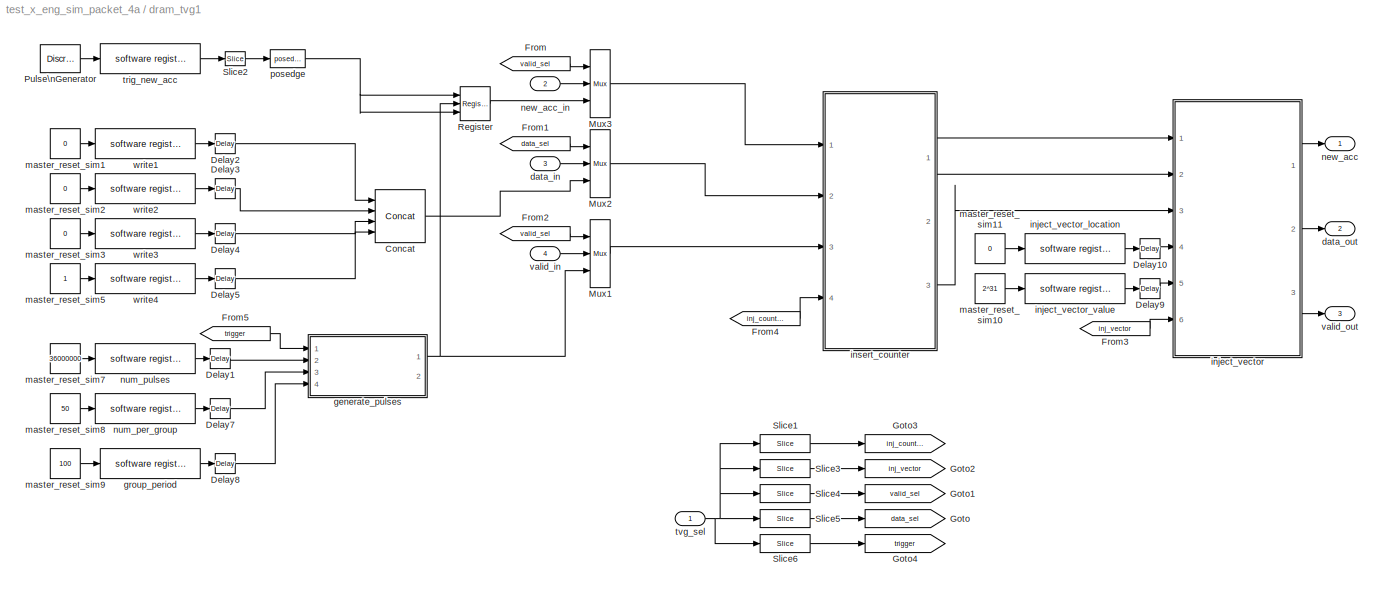
BLOCK [SubSystem] dram_tvg1
  MaskEnableString = on
  MaskIconFrame = on
  MaskIconOpaque = on
  MaskIconRotate = none
  MaskIconUnits = autoscale
  MaskPromptString = Number of Vectors
  MaskStyleString = edit
  MaskToolTipString = on
  MaskTunableValueString = on
  MaskValueString = 18432
  MaskVariables = len=@1;
  MaskVisibilityString = on
  MinAlgLoopOccurrences = off
  Ports = [4, 3]
  RTWSystemCode = Auto
  TreatAsAtomicUnit = off
BLOCK [Reference] dram_tvg1/Concat  REF=xbsIndex_r3/Concat
  Ports = [4, 1]
  SourceBlock = xbsIndex_r3/Concat
  SourceType = Xilinx Bus Concatenator
  dbl_ovrd = off
  explicit_period = on
  num_inputs = 4
  period = 1
BLOCK [Reference] dram_tvg1/Delay1  REF=xbsIndex_r3/Delay
  Ports = [1, 1]
  SourceBlock = xbsIndex_r3/Delay
  SourceType = Xilinx Delay Block
  accept_only_valid = off
  dbl_ovrd = off
  en = off
  explicit_period = off
  init_zero = on
  latency = 5
  period = 1
  reg_retiming = off
  show_param = off
  xl_area = [0, 0, 0, 0, 0, 0, 0]
  xl_use_area = off
BLOCK [Reference] dram_tvg1/Delay10  REF=xbsIndex_r3/Delay
  Ports = [1, 1]
  SourceBlock = xbsIndex_r3/Delay
  SourceType = Xilinx Delay Block
  accept_only_valid = off
  dbl_ovrd = off
  en = off
  explicit_period = off
  init_zero = on
  latency = 5
  period = 1
  reg_retiming = off
  show_param = off
  xl_area = [0, 0, 0, 0, 0, 0, 0]
  xl_use_area = off
BLOCK [Reference] dram_tvg1/Delay2  REF=xbsIndex_r3/Delay
  Ports = [1, 1]
  SourceBlock = xbsIndex_r3/Delay
  SourceType = Xilinx Delay Block
  accept_only_valid = off
  dbl_ovrd = off
  en = off
  explicit_period = off
  init_zero = on
  latency = 5
  period = 1
  reg_retiming = off
  show_param = off
  xl_area = [0, 0, 0, 0, 0, 0, 0]
  xl_use_area = off
BLOCK [Reference] dram_tvg1/Delay3  REF=xbsIndex_r3/Delay
  Ports = [1, 1]
  SourceBlock = xbsIndex_r3/Delay
  SourceType = Xilinx Delay Block
  accept_only_valid = off
  dbl_ovrd = off
  en = off
  explicit_period = off
  init_zero = on
  latency = 5
  period = 1
  reg_retiming = off
  show_param = off
  xl_area = [0, 0, 0, 0, 0, 0, 0]
  xl_use_area = off
BLOCK [Reference] dram_tvg1/Delay4  REF=xbsIndex_r3/Delay
  Ports = [1, 1]
  SourceBlock = xbsIndex_r3/Delay
  SourceType = Xilinx Delay Block
  accept_only_valid = off
  dbl_ovrd = off
  en = off
  explicit_period = off
  init_zero = on
  latency = 5
  period = 1
  reg_retiming = off
  show_param = off
  xl_area = [0, 0, 0, 0, 0, 0, 0]
  xl_use_area = off
BLOCK [Reference] dram_tvg1/Delay5  REF=xbsIndex_r3/Delay
  Ports = [1, 1]
  SourceBlock = xbsIndex_r3/Delay
  SourceType = Xilinx Delay Block
  accept_only_valid = off
  dbl_ovrd = off
  en = off
  explicit_period = off
  init_zero = on
  latency = 5
  period = 1
  reg_retiming = off
  show_param = off
  xl_area = [0, 0, 0, 0, 0, 0, 0]
  xl_use_area = off
BLOCK [Reference] dram_tvg1/Delay7  REF=xbsIndex_r3/Delay
  Ports = [1, 1]
  SourceBlock = xbsIndex_r3/Delay
  SourceType = Xilinx Delay Block
  accept_only_valid = off
  dbl_ovrd = off
  en = off
  explicit_period = off
  init_zero = on
  latency = 5
  period = 1
  reg_retiming = off
  show_param = off
  xl_area = [0, 0, 0, 0, 0, 0, 0]
  xl_use_area = off
BLOCK [Reference] dram_tvg1/Delay8  REF=xbsIndex_r3/Delay
  Ports = [1, 1]
  SourceBlock = xbsIndex_r3/Delay
  SourceType = Xilinx Delay Block
  accept_only_valid = off
  dbl_ovrd = off
  en = off
  explicit_period = off
  init_zero = on
  latency = 5
  period = 1
  reg_retiming = off
  show_param = off
  xl_area = [0, 0, 0, 0, 0, 0, 0]
  xl_use_area = off
BLOCK [Reference] dram_tvg1/Delay9  REF=xbsIndex_r3/Delay
  Ports = [1, 1]
  SourceBlock = xbsIndex_r3/Delay
  SourceType = Xilinx Delay Block
  accept_only_valid = off
  dbl_ovrd = off
  en = off
  explicit_period = off
  init_zero = on
  latency = 5
  period = 1
  reg_retiming = off
  show_param = off
  xl_area = [0, 0, 0, 0, 0, 0, 0]
  xl_use_area = off
BLOCK [From] dram_tvg1/From
  CloseFcn = tagdialog Close
  GotoTag = valid_sel
BLOCK [From] dram_tvg1/From1
  CloseFcn = tagdialog Close
  GotoTag = data_sel
BLOCK [From] dram_tvg1/From2
  CloseFcn = tagdialog Close
  GotoTag = valid_sel
BLOCK [From] dram_tvg1/From3
  CloseFcn = tagdialog Close
  GotoTag = inj_vector
BLOCK [From] dram_tvg1/From4
  CloseFcn = tagdialog Close
  GotoTag = inj_counter
BLOCK [From] dram_tvg1/From5
  CloseFcn = tagdialog Close
  GotoTag = trigger
BLOCK [Goto] dram_tvg1/Goto
  GotoTag = data_sel
  TagVisibility = local
BLOCK [Goto] dram_tvg1/Goto1
  GotoTag = valid_sel
  TagVisibility = local
BLOCK [Goto] dram_tvg1/Goto2
  GotoTag = inj_vector
  TagVisibility = local
BLOCK [Goto] dram_tvg1/Goto3
  GotoTag = inj_counter
  TagVisibility = local
BLOCK [Goto] dram_tvg1/Goto4
  GotoTag = trigger
  TagVisibility = local
BLOCK [Reference] dram_tvg1/Mux1  REF=xbsIndex_r3/Mux
  Ports = [3, 1]
  SourceBlock = xbsIndex_r3/Mux
  SourceType = Xilinx Multiplexer Block
  arith_type = Signed  (2's comp)
  bin_pt = 2
  dbl_ovrd = off
  en = off
  explicit_period = off
  gen_core = off
  inputs = 2
  latency = 0
  mux_type = off
  n_bits = 8
  overflow = Wrap
  period = 1
  precision = Full
  quantization = Truncate
  show_param = off
  use_rpm = off
  xl_area = [0, 0, 0, 0, 0, 0, 0]
  xl_use_area = off
BLOCK [Reference] dram_tvg1/Mux2  REF=xbsIndex_r3/Mux
  Ports = [3, 1]
  SourceBlock = xbsIndex_r3/Mux
  SourceType = Xilinx Multiplexer Block
  arith_type = Signed  (2's comp)
  bin_pt = 2
  dbl_ovrd = off
  en = off
  explicit_period = off
  gen_core = off
  inputs = 2
  latency = 0
  mux_type = off
  n_bits = 8
  overflow = Wrap
  period = 1
  precision = Full
  quantization = Truncate
  show_param = off
  use_rpm = off
  xl_area = [0, 0, 0, 0, 0, 0, 0]
  xl_use_area = off
BLOCK [Reference] dram_tvg1/Mux3  REF=xbsIndex_r3/Mux
  Ports = [3, 1]
  SourceBlock = xbsIndex_r3/Mux
  SourceType = Xilinx Multiplexer Block
  arith_type = Signed  (2's comp)
  bin_pt = 2
  dbl_ovrd = off
  en = off
  explicit_period = off
  gen_core = off
  inputs = 2
  latency = 0
  mux_type = off
  n_bits = 8
  overflow = Wrap
  period = 1
  precision = Full
  quantization = Truncate
  show_param = off
  use_rpm = off
  xl_area = [0, 0, 0, 0, 0, 0, 0]
  xl_use_area = off
BLOCK [DiscretePulseGenerator] dram_tvg1/Pulse\nGenerator
  Period = 29985
  PhaseDelay = 600
  Ports = [0, 1]
BLOCK [Reference] dram_tvg1/Register  REF=xbsIndex_r3/Register
  Ports = [3, 1]
  SourceBlock = xbsIndex_r3/Register
  SourceType = Xilinx Register Block
  dbl_ovrd = off
  en = on
  explicit_period = off
  init = 0
  out_en = off
  period = 1
  reg_only_valid = off
  rst = on
  show_param = off
  xl_area = [0, 0, 0, 0, 0, 0, 0]
  xl_use_area = off
BLOCK [Reference] dram_tvg1/Slice1  REF=xbsIndex_r3/Slice
  Ports = [1, 1]
  SourceBlock = xbsIndex_r3/Slice
  SourceType = Xilinx Slice Block
  base0 = LSB of Input
  base1 = MSB of Input
  bit0 = 4
  bit1 = 0
  boolean_output = on
  dbl_ovrd = off
  explicit_period = off
  mode = Lower Bit Location + Width
  nbits = 1
  period = 1
BLOCK [Reference] dram_tvg1/Slice2  REF=xbsIndex_r3/Slice
  Ports = [1, 1]
  SourceBlock = xbsIndex_r3/Slice
  SourceType = Xilinx Slice Block
  base0 = LSB of Input
  base1 = LSB of Input
  bit0 = 0
  bit1 = 3
  boolean_output = on
  dbl_ovrd = off
  explicit_period = on
  mode = Lower Bit Location + Width
  nbits = 1
  period = 1
BLOCK [Reference] dram_tvg1/Slice3  REF=xbsIndex_r3/Slice
  Ports = [1, 1]
  SourceBlock = xbsIndex_r3/Slice
  SourceType = Xilinx Slice Block
  base0 = LSB of Input
  base1 = MSB of Input
  bit0 = 3
  bit1 = 0
  boolean_output = on
  dbl_ovrd = off
  explicit_period = off
  mode = Lower Bit Location + Width
  nbits = 1
  period = 1
BLOCK [Reference] dram_tvg1/Slice4  REF=xbsIndex_r3/Slice
  Ports = [1, 1]
  SourceBlock = xbsIndex_r3/Slice
  SourceType = Xilinx Slice Block
  base0 = LSB of Input
  base1 = MSB of Input
  bit0 = 2
  bit1 = 0
  boolean_output = on
  dbl_ovrd = off
  explicit_period = off
  mode = Lower Bit Location + Width
  nbits = 1
  period = 1
BLOCK [Reference] dram_tvg1/Slice5  REF=xbsIndex_r3/Slice
  Ports = [1, 1]
  SourceBlock = xbsIndex_r3/Slice
  SourceType = Xilinx Slice Block
  base0 = LSB of Input
  base1 = MSB of Input
  bit0 = 1
  bit1 = 0
  boolean_output = on
  dbl_ovrd = off
  explicit_period = off
  mode = Lower Bit Location + Width
  nbits = 1
  period = 1
BLOCK [Reference] dram_tvg1/Slice6  REF=xbsIndex_r3/Slice
  Ports = [1, 1]
  SourceBlock = xbsIndex_r3/Slice
  SourceType = Xilinx Slice Block
  base0 = LSB of Input
  base1 = MSB of Input
  bit0 = 0
  bit1 = 0
  boolean_output = on
  dbl_ovrd = off
  explicit_period = off
  mode = Lower Bit Location + Width
  nbits = 1
  period = 1
BLOCK [Inport] dram_tvg1/data_in
  IconDisplay = Port number
  LatchInput = off
  Port = 3
BLOCK [Outport] dram_tvg1/data_out
  BusOutputAsStruct = off
  IconDisplay = Port number
  Port = 2
BLOCK [SubSystem] dram_tvg1/generate_pulses
  MinAlgLoopOccurrences = off
  Ports = [4, 2]
  RTWSystemCode = Auto
  TreatAsAtomicUnit = off
BLOCK [Reference] dram_tvg1/generate_pulses/Gateway Out1  REF=xbsIndex_r3/Gateway Out
  LOCs = {}
  Ports = [1, 1]
  SourceBlock = xbsIndex_r3/Gateway Out
  SourceType = Xilinx Gateway Out
  arith_type = Boolean
  bin_pt = 6
  hdl_port = off
  locs_specified = off
  nbits = 8
  needs_fixed_name = off
  output_type = Double
  overflow = Wrap
  quantization = Truncate
  show_param = off
  timing_constraint = None
  xl_area = [0, 0, 0, 0, 0, 0, 0]
  xl_use_area = off
BLOCK [Reference] dram_tvg1/generate_pulses/Gateway Out2  REF=xbsIndex_r3/Gateway Out
  LOCs = {}
  Ports = [1, 1]
  SourceBlock = xbsIndex_r3/Gateway Out
  SourceType = Xilinx Gateway Out
  arith_type = Boolean
  bin_pt = 6
  hdl_port = off
  locs_specified = off
  nbits = 8
  needs_fixed_name = off
  output_type = Double
  overflow = Wrap
  quantization = Truncate
  show_param = off
  timing_constraint = None
  xl_area = [0, 0, 0, 0, 0, 0, 0]
  xl_use_area = off
BLOCK [Reference] dram_tvg1/generate_pulses/Gateway Out3  REF=xbsIndex_r3/Gateway Out
  LOCs = {}
  Ports = [1, 1]
  SourceBlock = xbsIndex_r3/Gateway Out
  SourceType = Xilinx Gateway Out
  arith_type = Boolean
  bin_pt = 6
  hdl_port = off
  locs_specified = off
  nbits = 8
  needs_fixed_name = off
  output_type = Double
  overflow = Wrap
  quantization = Truncate
  show_param = off
  timing_constraint = None
  xl_area = [0, 0, 0, 0, 0, 0, 0]
  xl_use_area = off
BLOCK [Reference] dram_tvg1/generate_pulses/Gateway Out4  REF=xbsIndex_r3/Gateway Out
  LOCs = {}
  Ports = [1, 1]
  SourceBlock = xbsIndex_r3/Gateway Out
  SourceType = Xilinx Gateway Out
  arith_type = Boolean
  bin_pt = 6
  hdl_port = off
  locs_specified = off
  nbits = 8
  needs_fixed_name = off
  output_type = Double
  overflow = Wrap
  quantization = Truncate
  show_param = off
  timing_constraint = None
  xl_area = [0, 0, 0, 0, 0, 0, 0]
  xl_use_area = off
BLOCK [Reference] dram_tvg1/generate_pulses/Gateway Out5  REF=xbsIndex_r3/Gateway Out
  LOCs = {}
  Ports = [1, 1]
  SourceBlock = xbsIndex_r3/Gateway Out
  SourceType = Xilinx Gateway Out
  arith_type = Boolean
  bin_pt = 6
  hdl_port = off
  locs_specified = off
  nbits = 8
  needs_fixed_name = off
  output_type = Double
  overflow = Wrap
  quantization = Truncate
  show_param = off
  timing_constraint = None
  xl_area = [0, 0, 0, 0, 0, 0, 0]
  xl_use_area = off
BLOCK [Reference] dram_tvg1/generate_pulses/Gateway Out6  REF=xbsIndex_r3/Gateway Out
  LOCs = {}
  Ports = [1, 1]
  SourceBlock = xbsIndex_r3/Gateway Out
  SourceType = Xilinx Gateway Out
  arith_type = Boolean
  bin_pt = 6
  hdl_port = off
  locs_specified = off
  nbits = 8
  needs_fixed_name = off
  output_type = Double
  overflow = Wrap
  quantization = Truncate
  show_param = off
  timing_constraint = None
  xl_area = [0, 0, 0, 0, 0, 0, 0]
  xl_use_area = off
BLOCK [Reference] dram_tvg1/generate_pulses/Gateway Out7  REF=xbsIndex_r3/Gateway Out
  LOCs = {}
  Ports = [1, 1]
  SourceBlock = xbsIndex_r3/Gateway Out
  SourceType = Xilinx Gateway Out
  arith_type = Boolean
  bin_pt = 6
  hdl_port = off
  locs_specified = off
  nbits = 8
  needs_fixed_name = off
  output_type = Double
  overflow = Wrap
  quantization = Truncate
  show_param = off
  timing_constraint = None
  xl_area = [0, 0, 0, 0, 0, 0, 0]
  xl_use_area = off
BLOCK [Reference] dram_tvg1/generate_pulses/Gateway Out8  REF=xbsIndex_r3/Gateway Out
  LOCs = {}
  Ports = [1, 1]
  SourceBlock = xbsIndex_r3/Gateway Out
  SourceType = Xilinx Gateway Out
  arith_type = Boolean
  bin_pt = 6
  hdl_port = off
  locs_specified = off
  nbits = 8
  needs_fixed_name = off
  output_type = Double
  overflow = Wrap
  quantization = Truncate
  show_param = off
  timing_constraint = None
  xl_area = [0, 0, 0, 0, 0, 0, 0]
  xl_use_area = off
BLOCK [Reference] dram_tvg1/generate_pulses/Logical  REF=xbsIndex_r3/Logical
  Ports = [2, 1]
  SourceBlock = xbsIndex_r3/Logical
  SourceType = Xilinx Logical Block
  align_bp = on
  arith_type = Unsigned
  bin_pt = 2
  dbl_ovrd = off
  en = off
  explicit_period = off
  inputs = 2
  latency = 0
  logical_function = AND
  n_bits = 8
  period = 1
  precision = Full
  show_param = off
  xl_area = [0, 0, 0, 0, 0, 0, 0]
  xl_use_area = off
BLOCK [Reference] dram_tvg1/generate_pulses/Logical2  REF=xbsIndex_r3/Logical
  Ports = [3, 1]
  SourceBlock = xbsIndex_r3/Logical
  SourceType = Xilinx Logical Block
  align_bp = on
  arith_type = Unsigned
  bin_pt = 2
  dbl_ovrd = off
  en = off
  explicit_period = off
  inputs = 3
  latency = 0
  logical_function = AND
  n_bits = 8
  period = 1
  precision = Full
  show_param = off
  xl_area = [0, 0, 0, 0, 0, 0, 0]
  xl_use_area = off
BLOCK [Reference] dram_tvg1/generate_pulses/Logical3  REF=xbsIndex_r3/Logical
  Ports = [2, 1]
  SourceBlock = xbsIndex_r3/Logical
  SourceType = Xilinx Logical Block
  align_bp = on
  arith_type = Unsigned
  bin_pt = 2
  dbl_ovrd = off
  en = off
  explicit_period = off
  inputs = 2
  latency = 0
  logical_function = OR
  n_bits = 8
  period = 1
  precision = Full
  show_param = off
  xl_area = [0, 0, 0, 0, 0, 0, 0]
  xl_use_area = off
BLOCK [Reference] dram_tvg1/generate_pulses/Logical4  REF=xbsIndex_r3/Logical
  Ports = [2, 1]
  SourceBlock = xbsIndex_r3/Logical
  SourceType = Xilinx Logical Block
  align_bp = off
  arith_type = Unsigned
  bin_pt = 2
  dbl_ovrd = off
  en = off
  explicit_period = off
  inputs = 2
  latency = 0
  logical_function = OR
  n_bits = 8
  period = 1
  precision = Full
  show_param = off
  xl_area = [0, 0, 0, 0, 0, 0, 0]
  xl_use_area = off
BLOCK [Reference] dram_tvg1/generate_pulses/Relational  REF=xbsIndex_r3/Relational
  Ports = [2, 1]
  SourceBlock = xbsIndex_r3/Relational
  SourceType = Xilinx Relational Block
  dbl_ovrd = off
  en = off
  explicit_period = on
  latency = 1
  mode = a>b
  period = 1
  show_param = off
  xl_area = [0, 0, 0, 0, 0, 0, 0]
  xl_use_area = off
BLOCK [Reference] dram_tvg1/generate_pulses/Relational1  REF=xbsIndex_r3/Relational
  Ports = [2, 1]
  SourceBlock = xbsIndex_r3/Relational
  SourceType = Xilinx Relational Block
  dbl_ovrd = off
  en = off
  explicit_period = on
  latency = 0
  mode = a=b
  period = 1
  show_param = off
  xl_area = [0, 0, 0, 0, 0, 0, 0]
  xl_use_area = off
BLOCK [Reference] dram_tvg1/generate_pulses/Relational2  REF=xbsIndex_r3/Relational
  Ports = [2, 1]
  SourceBlock = xbsIndex_r3/Relational
  SourceType = Xilinx Relational Block
  dbl_ovrd = off
  en = off
  explicit_period = on
  latency = 0
  mode = a>b
  period = 1
  show_param = off
  xl_area = [0, 0, 0, 0, 0, 0, 0]
  xl_use_area = off
BLOCK [Scope] dram_tvg1/generate_pulses/Scope1
  DataFormat = StructureWithTime
  LimitDataPoints = off
  NumInputPorts = 4
  Ports = [4]
  YMax = 1~1~1~1
  YMin = 0~-1~0~0
  ZoomMode = xonly
BLOCK [Scope] dram_tvg1/generate_pulses/Scope2
  DataFormat = StructureWithTime
  LimitDataPoints = off
  NumInputPorts = 4
  Ports = [4]
  SaveName = ScopeData1
  YMax = 1.05~1~1~5
  YMin = 0.95~0~-1~-5
  ZoomMode = xonly
BLOCK [Reference] dram_tvg1/generate_pulses/Slice6  REF=xbsIndex_r3/Slice
  Ports = [1, 1]
  SourceBlock = xbsIndex_r3/Slice
  SourceType = Xilinx Slice Block
  base0 = LSB of Input
  base1 = LSB of Input
  bit0 = 0
  bit1 = 3
  boolean_output = on
  dbl_ovrd = off
  explicit_period = off
  mode = Lower Bit Location + Width
  nbits = 1
  period = 1
BLOCK [Reference] dram_tvg1/generate_pulses/edge1  REF=casper_library/Misc/edge  (lib defined in mdl_138b2fc3435f, mdl_4ed325b712b3, +2 more)
  Ports = [1, 1]
  ShowPortLabels = on
  SourceBlock = casper_library/Misc/edge
  SourceType = edge
BLOCK [Inport] dram_tvg1/generate_pulses/group period
  IconDisplay = Port number
  LatchInput = off
  Port = 4
BLOCK [Reference] dram_tvg1/generate_pulses/group_cntr  REF=xbsIndex_r3/Counter
  Ports = [1, 1]
  SourceBlock = xbsIndex_r3/Counter
  SourceType = Xilinx Counter Block
  arith_type = Unsigned
  bin_pt = 0
  cnt_by_val = 1
  cnt_to = (floor(2^ant_bits / 2) + 1) * 2
  cnt_type = Free Running
  dbl_ovrd = off
  en = off
  explicit_period = on
  gen_core = off
  load_pin = off
  n_bits = 32
  operation = Up
  period = 1
  rst = on
  show_param = off
  start_count = 1
  use_rpm = on
  xl_area = [0, 0, 0, 0, 0, 0, 0]
  xl_use_area = off
BLOCK [Inport] dram_tvg1/generate_pulses/num_per_group
  IconDisplay = Port number
  LatchInput = off
  Port = 3
BLOCK [Inport] dram_tvg1/generate_pulses/num_pulses
  IconDisplay = Port number
  LatchInput = off
  Port = 2
BLOCK [Reference] dram_tvg1/generate_pulses/posedge  REF=casper_library/Misc/posedge  (lib defined in mdl_138b2fc3435f, mdl_4ed325b712b3, +2 more)
  Ports = [1, 1]
  ShowPortLabels = on
  SourceBlock = casper_library/Misc/posedge
  SourceType = posedge
  Tag = Rising Edge Detector
BLOCK [Reference] dram_tvg1/generate_pulses/pulse_cntr  REF=xbsIndex_r3/Counter
  Ports = [2, 1]
  SourceBlock = xbsIndex_r3/Counter
  SourceType = Xilinx Counter Block
  arith_type = Unsigned
  bin_pt = 0
  cnt_by_val = 1
  cnt_to = (floor(2^ant_bits / 2) + 1) * 2
  cnt_type = Free Running
  dbl_ovrd = off
  en = on
  explicit_period = on
  gen_core = off
  load_pin = off
  n_bits = 32
  operation = Up
  period = 1
  rst = on
  show_param = off
  start_count = 0
  use_rpm = on
  xl_area = [0, 0, 0, 0, 0, 0, 0]
  xl_use_area = off
BLOCK [Outport] dram_tvg1/generate_pulses/running
  BusOutputAsStruct = off
  IconDisplay = Port number
  Port = 2
BLOCK [Reference] dram_tvg1/generate_pulses/tot_cntr  REF=xbsIndex_r3/Counter
  Ports = [2, 1]
  SourceBlock = xbsIndex_r3/Counter
  SourceType = Xilinx Counter Block
  arith_type = Unsigned
  bin_pt = 0
  cnt_by_val = 1
  cnt_to = (floor(2^ant_bits / 2) + 1) * 2
  cnt_type = Free Running
  dbl_ovrd = off
  en = on
  explicit_period = on
  gen_core = off
  load_pin = off
  n_bits = 32
  operation = Up
  period = 1
  rst = on
  show_param = off
  start_count = 1
  use_rpm = on
  xl_area = [0, 0, 0, 0, 0, 0, 0]
  xl_use_area = off
BLOCK [Inport] dram_tvg1/generate_pulses/trigger
  IconDisplay = Port number
  LatchInput = off
  Port = 1
BLOCK [Outport] dram_tvg1/generate_pulses/valid
  BusOutputAsStruct = off
  IconDisplay = Port number
BLOCK [Reference] dram_tvg1/group_period  REF=xps_library/software register  (lib defined in mdl_00b5cec29cd0, mdl_02ab6ecaa3d1, +5 more)
  Ports = [1, 1]
  ShowPortLabels = on
  SourceBlock = xps_library/software register
  Tag = xps:sw_reg
  arith_type = Unsigned
  bin_pt = 0
  bitwidth = 32
  gw_name = test_x_eng_sim_packet_4a_dram_tvg1_group_period_user_data_out
  io_dir = From Processor
  sample_period = 1
BLOCK [SubSystem] dram_tvg1/inject_vector
  MaskEnableString = on
  MaskIconFrame = on
  MaskIconOpaque = on
  MaskIconRotate = none
  MaskIconUnits = autoscale
  MaskPromptString = number of vectors
  MaskStyleString = edit
  MaskToolTipString = on
  MaskTunableValueString = on
  MaskValueString = len
  MaskVariables = num_vectors=@1;
  MaskVisibilityString = on
  MinAlgLoopOccurrences = off
  Ports = [6, 3]
  RTWSystemCode = Auto
  TreatAsAtomicUnit = off
BLOCK [Reference] dram_tvg1/inject_vector/Delay  REF=xbsIndex_r3/Delay
  Ports = [1, 1]
  SourceBlock = xbsIndex_r3/Delay
  SourceType = Xilinx Delay Block
  accept_only_valid = off
  dbl_ovrd = off
  en = off
  explicit_period = off
  init_zero = on
  latency = 2
  period = 1
  reg_retiming = off
  show_param = off
  xl_area = [0, 0, 0, 0, 0, 0, 0]
  xl_use_area = off
BLOCK [Reference] dram_tvg1/inject_vector/Delay1  REF=xbsIndex_r3/Delay
  Ports = [1, 1]
  SourceBlock = xbsIndex_r3/Delay
  SourceType = Xilinx Delay Block
  accept_only_valid = off
  dbl_ovrd = off
  en = off
  explicit_period = off
  init_zero = on
  latency = 2
  period = 1
  reg_retiming = off
  show_param = off
  xl_area = [0, 0, 0, 0, 0, 0, 0]
  xl_use_area = off
BLOCK [Reference] dram_tvg1/inject_vector/Delay2  REF=xbsIndex_r3/Delay
  Ports = [1, 1]
  SourceBlock = xbsIndex_r3/Delay
  SourceType = Xilinx Delay Block
  accept_only_valid = off
  dbl_ovrd = off
  en = off
  explicit_period = off
  init_zero = on
  latency = 2
  period = 1
  reg_retiming = off
  show_param = off
  xl_area = [0, 0, 0, 0, 0, 0, 0]
  xl_use_area = off
BLOCK [Reference] dram_tvg1/inject_vector/Delay3  REF=xbsIndex_r3/Delay
  Ports = [1, 1]
  SourceBlock = xbsIndex_r3/Delay
  SourceType = Xilinx Delay Block
  accept_only_valid = off
  dbl_ovrd = off
  en = off
  explicit_period = off
  init_zero = on
  latency = 3
  period = 1
  reg_retiming = off
  show_param = off
  xl_area = [0, 0, 0, 0, 0, 0, 0]
  xl_use_area = off
BLOCK [Reference] dram_tvg1/inject_vector/Delay4  REF=xbsIndex_r3/Delay
  Ports = [1, 1]
  SourceBlock = xbsIndex_r3/Delay
  SourceType = Xilinx Delay Block
  accept_only_valid = off
  dbl_ovrd = off
  en = off
  explicit_period = off
  init_zero = on
  latency = 1
  period = 1
  reg_retiming = off
  show_param = off
  xl_area = [0, 0, 0, 0, 0, 0, 0]
  xl_use_area = off
BLOCK [Reference] dram_tvg1/inject_vector/Gateway Out1  REF=xbsIndex_r3/Gateway Out
  LOCs = {}
  Ports = [1, 1]
  SourceBlock = xbsIndex_r3/Gateway Out
  SourceType = Xilinx Gateway Out
  arith_type = Boolean
  bin_pt = 6
  hdl_port = off
  locs_specified = off
  nbits = 8
  needs_fixed_name = off
  output_type = Double
  overflow = Wrap
  quantization = Truncate
  show_param = off
  timing_constraint = None
  xl_area = [0, 0, 0, 0, 0, 0, 0]
  xl_use_area = off
BLOCK [Reference] dram_tvg1/inject_vector/Gateway Out2  REF=xbsIndex_r3/Gateway Out
  LOCs = {}
  Ports = [1, 1]
  SourceBlock = xbsIndex_r3/Gateway Out
  SourceType = Xilinx Gateway Out
  arith_type = Boolean
  bin_pt = 6
  hdl_port = off
  locs_specified = off
  nbits = 8
  needs_fixed_name = off
  output_type = Double
  overflow = Wrap
  quantization = Truncate
  show_param = off
  timing_constraint = None
  xl_area = [0, 0, 0, 0, 0, 0, 0]
  xl_use_area = off
BLOCK [Reference] dram_tvg1/inject_vector/Gateway Out4  REF=xbsIndex_r3/Gateway Out
  LOCs = {}
  Ports = [1, 1]
  SourceBlock = xbsIndex_r3/Gateway Out
  SourceType = Xilinx Gateway Out
  arith_type = Boolean
  bin_pt = 6
  hdl_port = off
  locs_specified = off
  nbits = 8
  needs_fixed_name = off
  output_type = Double
  overflow = Wrap
  quantization = Truncate
  show_param = off
  timing_constraint = None
  xl_area = [0, 0, 0, 0, 0, 0, 0]
  xl_use_area = off
BLOCK [Reference] dram_tvg1/inject_vector/Gateway Out5  REF=xbsIndex_r3/Gateway Out
  LOCs = {}
  Ports = [1, 1]
  SourceBlock = xbsIndex_r3/Gateway Out
  SourceType = Xilinx Gateway Out
  arith_type = Boolean
  bin_pt = 6
  hdl_port = off
  locs_specified = off
  nbits = 8
  needs_fixed_name = off
  output_type = Double
  overflow = Wrap
  quantization = Truncate
  show_param = off
  timing_constraint = None
  xl_area = [0, 0, 0, 0, 0, 0, 0]
  xl_use_area = off
BLOCK [Reference] dram_tvg1/inject_vector/Gateway Out6  REF=xbsIndex_r3/Gateway Out
  LOCs = {}
  Ports = [1, 1]
  SourceBlock = xbsIndex_r3/Gateway Out
  SourceType = Xilinx Gateway Out
  arith_type = Boolean
  bin_pt = 6
  hdl_port = off
  locs_specified = off
  nbits = 8
  needs_fixed_name = off
  output_type = Double
  overflow = Wrap
  quantization = Truncate
  show_param = off
  timing_constraint = None
  xl_area = [0, 0, 0, 0, 0, 0, 0]
  xl_use_area = off
BLOCK [Reference] dram_tvg1/inject_vector/Logical  REF=xbsIndex_r3/Logical
  Ports = [2, 1]
  SourceBlock = xbsIndex_r3/Logical
  SourceType = Xilinx Logical Block
  align_bp = on
  arith_type = Unsigned
  bin_pt = 2
  dbl_ovrd = off
  en = off
  explicit_period = off
  inputs = 2
  latency = 0
  logical_function = AND
  n_bits = 8
  period = 1
  precision = Full
  show_param = off
  xl_area = [0, 0, 0, 0, 0, 0, 0]
  xl_use_area = off
BLOCK [Reference] dram_tvg1/inject_vector/Mux  REF=xbsIndex_r3/Mux
  Ports = [3, 1]
  SourceBlock = xbsIndex_r3/Mux
  SourceType = Xilinx Multiplexer Block
  arith_type = Signed  (2's comp)
  bin_pt = 2
  dbl_ovrd = off
  en = off
  explicit_period = off
  gen_core = off
  inputs = 2
  latency = 1
  mux_type = off
  n_bits = 8
  overflow = Wrap
  period = 1
  precision = Full
  quantization = Truncate
  show_param = off
  use_rpm = off
  xl_area = [0, 0, 0, 0, 0, 0, 0]
  xl_use_area = off
BLOCK [Reference] dram_tvg1/inject_vector/Relational  REF=xbsIndex_r3/Relational
  Ports = [2, 1]
  SourceBlock = xbsIndex_r3/Relational
  SourceType = Xilinx Relational Block
  dbl_ovrd = off
  en = off
  explicit_period = on
  latency = 1
  mode = a=b
  period = 1
  show_param = off
  xl_area = [0, 0, 0, 0, 0, 0, 0]
  xl_use_area = off
BLOCK [Scope] dram_tvg1/inject_vector/Scope2
  DataFormat = StructureWithTime
  LimitDataPoints = off
  NumInputPorts = 5
  Ports = [5]
  SaveName = ScopeData1
  YMax = 1.05~1~1~5~5
  YMin = 0.95~0~-1~-5~-5
  ZoomMode = xonly
BLOCK [Outport] dram_tvg1/inject_vector/data
  BusOutputAsStruct = off
  IconDisplay = Port number
  Port = 2
BLOCK [Inport] dram_tvg1/inject_vector/data_in
  IconDisplay = Port number
  LatchInput = off
  Port = 2
BLOCK [Inport] dram_tvg1/inject_vector/enable
  IconDisplay = Port number
  LatchInput = off
  Port = 6
BLOCK [Inport] dram_tvg1/inject_vector/new_acc_in
  IconDisplay = Port number
  LatchInput = off
  Port = 1
BLOCK [Outport] dram_tvg1/inject_vector/new_acc_out
  BusOutputAsStruct = off
  IconDisplay = Port number
BLOCK [Reference] dram_tvg1/inject_vector/posedge  REF=casper_library/Misc/posedge  (lib defined in mdl_138b2fc3435f, mdl_4ed325b712b3, +2 more)
  Ports = [1, 1]
  ShowPortLabels = on
  SourceBlock = casper_library/Misc/posedge
  SourceType = posedge
  Tag = Rising Edge Detector
BLOCK [Reference] dram_tvg1/inject_vector/tot_cntr  REF=xbsIndex_r3/Counter
  Ports = [2, 1]
  SourceBlock = xbsIndex_r3/Counter
  SourceType = Xilinx Counter Block
  arith_type = Unsigned
  bin_pt = 0
  cnt_by_val = 1
  cnt_to = num_vectors-1
  cnt_type = Count Limited
  dbl_ovrd = off
  en = on
  explicit_period = on
  gen_core = off
  load_pin = off
  n_bits = 32
  operation = Up
  period = 1
  rst = on
  show_param = off
  start_count = 0
  use_rpm = on
  xl_area = [0, 0, 0, 0, 0, 0, 0]
  xl_use_area = off
BLOCK [Inport] dram_tvg1/inject_vector/valid_in
  IconDisplay = Port number
  LatchInput = off
  Port = 3
BLOCK [Outport] dram_tvg1/inject_vector/valid_out
  BusOutputAsStruct = off
  IconDisplay = Port number
  Port = 3
BLOCK [Inport] dram_tvg1/inject_vector/value
  IconDisplay = Port number
  LatchInput = off
  Port = 5
BLOCK [Inport] dram_tvg1/inject_vector/vector
  IconDisplay = Port number
  LatchInput = off
  Port = 4
BLOCK [Reference] dram_tvg1/inject_vector_location  REF=xps_library/software register  (lib defined in mdl_00b5cec29cd0, mdl_02ab6ecaa3d1, +5 more)
  Ports = [1, 1]
  ShowPortLabels = on
  SourceBlock = xps_library/software register
  Tag = xps:sw_reg
  arith_type = Unsigned
  bin_pt = 0
  bitwidth = 32
  gw_name = test_x_eng_sim_packet_4a_dram_tvg1_inject_vector_location_user_data_out
  io_dir = From Processor
  sample_period = 1
BLOCK [Reference] dram_tvg1/inject_vector_value  REF=xps_library/software register  (lib defined in mdl_00b5cec29cd0, mdl_02ab6ecaa3d1, +5 more)
  Ports = [1, 1]
  ShowPortLabels = on
  SourceBlock = xps_library/software register
  Tag = xps:sw_reg
  arith_type = Unsigned
  bin_pt = 0
  bitwidth = 32
  gw_name = test_x_eng_sim_packet_4a_dram_tvg1_inject_vector_value_user_data_out
  io_dir = From Processor
  sample_period = 1
BLOCK [SubSystem] dram_tvg1/insert_counter
  MaskEnableString = on
  MaskIconFrame = on
  MaskIconOpaque = on
  MaskIconRotate = none
  MaskIconUnits = autoscale
  MaskPromptString = Vector Length?
  MaskStyleString = edit
  MaskToolTipString = on
  MaskTunableValueString = on
  MaskValueString = len
  MaskVariables = vec_len=@1;
  MaskVisibilityString = on
  MinAlgLoopOccurrences = off
  Ports = [4, 3]
  RTWSystemCode = Auto
  TreatAsAtomicUnit = off
BLOCK [Reference] dram_tvg1/insert_counter/Concat  REF=xbsIndex_r3/Concat
  Ports = [2, 1]
  SourceBlock = xbsIndex_r3/Concat
  SourceType = Xilinx Bus Concatenator
  dbl_ovrd = off
  explicit_period = off
  num_inputs = 2
  period = 1
BLOCK [Reference] dram_tvg1/insert_counter/Counter  REF=xbsIndex_r3/Counter
  Ports = [2, 1]
  SourceBlock = xbsIndex_r3/Counter
  SourceType = Xilinx Counter Block
  arith_type = Unsigned
  bin_pt = 0
  cnt_by_val = 1
  cnt_to = vec_len-1
  cnt_type = Count Limited
  dbl_ovrd = off
  en = on
  explicit_period = off
  gen_core = off
  load_pin = off
  n_bits = 32
  operation = Up
  period = 1
  rst = on
  show_param = off
  start_count = 0
  use_rpm = on
  xl_area = [0, 0, 0, 0, 0, 0, 0]
  xl_use_area = off
BLOCK [Reference] dram_tvg1/insert_counter/Delay  REF=xbsIndex_r3/Delay
  Ports = [1, 1]
  SourceBlock = xbsIndex_r3/Delay
  SourceType = Xilinx Delay Block
  accept_only_valid = off
  dbl_ovrd = off
  en = off
  explicit_period = off
  init_zero = on
  latency = 1
  period = 1
  reg_retiming = off
  show_param = off
  xl_area = [0, 0, 0, 0, 0, 0, 0]
  xl_use_area = off
BLOCK [Reference] dram_tvg1/insert_counter/Delay1  REF=xbsIndex_r3/Delay
  Ports = [1, 1]
  SourceBlock = xbsIndex_r3/Delay
  SourceType = Xilinx Delay Block
  accept_only_valid = off
  dbl_ovrd = off
  en = off
  explicit_period = off
  init_zero = on
  latency = 1
  period = 1
  reg_retiming = off
  show_param = off
  xl_area = [0, 0, 0, 0, 0, 0, 0]
  xl_use_area = off
BLOCK [Reference] dram_tvg1/insert_counter/Delay2  REF=xbsIndex_r3/Delay
  Ports = [1, 1]
  SourceBlock = xbsIndex_r3/Delay
  SourceType = Xilinx Delay Block
  accept_only_valid = off
  dbl_ovrd = off
  en = off
  explicit_period = off
  init_zero = on
  latency = 1
  period = 1
  reg_retiming = off
  show_param = off
  xl_area = [0, 0, 0, 0, 0, 0, 0]
  xl_use_area = off
BLOCK [Reference] dram_tvg1/insert_counter/Logical1  REF=xbsIndex_r3/Logical
  Ports = [2, 1]
  SourceBlock = xbsIndex_r3/Logical
  SourceType = Xilinx Logical Block
  align_bp = on
  arith_type = Unsigned
  bin_pt = 2
  dbl_ovrd = off
  en = off
  explicit_period = off
  inputs = 2
  latency = 0
  logical_function = OR
  n_bits = 8
  period = 1
  precision = Full
  show_param = off
  xl_area = [0, 0, 0, 0, 0, 0, 0]
  xl_use_area = off
BLOCK [Reference] dram_tvg1/insert_counter/Mux  REF=xbsIndex_r3/Mux
  Ports = [3, 1]
  SourceBlock = xbsIndex_r3/Mux
  SourceType = Xilinx Multiplexer Block
  arith_type = Signed  (2's comp)
  bin_pt = 2
  dbl_ovrd = off
  en = off
  explicit_period = off
  gen_core = off
  inputs = 2
  latency = 0
  mux_type = off
  n_bits = 8
  overflow = Wrap
  period = 1
  precision = Full
  quantization = Truncate
  show_param = off
  use_rpm = off
  xl_area = [0, 0, 0, 0, 0, 0, 0]
  xl_use_area = off
BLOCK [Reference] dram_tvg1/insert_counter/Slice2  REF=xbsIndex_r3/Slice
  Ports = [1, 1]
  SourceBlock = xbsIndex_r3/Slice
  SourceType = Xilinx Slice Block
  base0 = LSB of Input
  base1 = LSB of Input
  bit0 = 0
  bit1 = 3
  boolean_output = off
  dbl_ovrd = off
  explicit_period = on
  mode = Lower Bit Location + Width
  nbits = 32
  period = 1
BLOCK [Reference] dram_tvg1/insert_counter/Slice3  REF=xbsIndex_r3/Slice
  Ports = [1, 1]
  SourceBlock = xbsIndex_r3/Slice
  SourceType = Xilinx Slice Block
  base0 = LSB of Input
  base1 = MSB of Input
  bit0 = 0
  bit1 = 0
  boolean_output = off
  dbl_ovrd = off
  explicit_period = on
  mode = Upper Bit Location + Width
  nbits = 96
  period = 1
BLOCK [Inport] dram_tvg1/insert_counter/din
  IconDisplay = Port number
  LatchInput = off
  Port = 2
BLOCK [Outport] dram_tvg1/insert_counter/dout
  BusOutputAsStruct = off
  IconDisplay = Port number
  Port = 2
BLOCK [Inport] dram_tvg1/insert_counter/enable
  IconDisplay = Port number
  LatchInput = off
  Port = 4
BLOCK [Inport] dram_tvg1/insert_counter/new_acc_in
  IconDisplay = Port number
  LatchInput = off
  Port = 1
BLOCK [Outport] dram_tvg1/insert_counter/new_acc_out
  BusOutputAsStruct = off
  IconDisplay = Port number
BLOCK [Inport] dram_tvg1/insert_counter/valid_in
  IconDisplay = Port number
  LatchInput = off
  Port = 3
BLOCK [Outport] dram_tvg1/insert_counter/valid_out
  BusOutputAsStruct = off
  IconDisplay = Port number
  Port = 3
BLOCK [Constant] dram_tvg1/master_reset_sim1
  Value = 0
BLOCK [Constant] dram_tvg1/master_reset_sim10
  Value = 2^31
BLOCK [Constant] dram_tvg1/master_reset_sim11
  Value = 0
BLOCK [Constant] dram_tvg1/master_reset_sim2
  Value = 0
BLOCK [Constant] dram_tvg1/master_reset_sim3
  Value = 0
BLOCK [Constant] dram_tvg1/master_reset_sim5
BLOCK [Constant] dram_tvg1/master_reset_sim7
  Value = 36000000
BLOCK [Constant] dram_tvg1/master_reset_sim8
  Value = 50
BLOCK [Constant] dram_tvg1/master_reset_sim9
  Value = 100
BLOCK [Outport] dram_tvg1/new_acc
  BusOutputAsStruct = off
  IconDisplay = Port number
BLOCK [Inport] dram_tvg1/new_acc_in
  IconDisplay = Port number
  LatchInput = off
  Port = 2
BLOCK [Reference] dram_tvg1/num_per_group  REF=xps_library/software register  (lib defined in mdl_00b5cec29cd0, mdl_02ab6ecaa3d1, +5 more)
  Ports = [1, 1]
  ShowPortLabels = on
  SourceBlock = xps_library/software register
  Tag = xps:sw_reg
  arith_type = Unsigned
  bin_pt = 0
  bitwidth = 32
  gw_name = test_x_eng_sim_packet_4a_dram_tvg1_num_per_group_user_data_out
  io_dir = From Processor
  sample_period = 1
BLOCK [Reference] dram_tvg1/num_pulses  REF=xps_library/software register  (lib defined in mdl_00b5cec29cd0, mdl_02ab6ecaa3d1, +5 more)
  Ports = [1, 1]
  ShowPortLabels = on
  SourceBlock = xps_library/software register
  Tag = xps:sw_reg
  arith_type = Unsigned
  bin_pt = 0
  bitwidth = 32
  gw_name = test_x_eng_sim_packet_4a_dram_tvg1_num_pulses_user_data_out
  io_dir = From Processor
  sample_period = 1
BLOCK [Reference] dram_tvg1/posedge  REF=casper_library/Misc/posedge  (lib defined in mdl_138b2fc3435f, mdl_4ed325b712b3, +2 more)
  Ports = [1, 1]
  ShowPortLabels = on
  SourceBlock = casper_library/Misc/posedge
  SourceType = posedge
  Tag = Rising Edge Detector
BLOCK [Reference] dram_tvg1/trig_new_acc  REF=xps_library/software register  (lib defined in mdl_00b5cec29cd0, mdl_02ab6ecaa3d1, +5 more)
  Ports = [1, 1]
  ShowPortLabels = on
  SourceBlock = xps_library/software register
  Tag = xps:sw_reg
  arith_type = Unsigned
  bin_pt = 0
  bitwidth = 32
  gw_name = test_x_eng_sim_packet_4a_dram_tvg1_trig_new_acc_user_data_out
  io_dir = From Processor
  sample_period = 1
BLOCK [Inport] dram_tvg1/tvg_sel
  IconDisplay = Port number
  LatchInput = off
  Port = 1
BLOCK [Inport] dram_tvg1/valid_in
  IconDisplay = Port number
  LatchInput = off
  Port = 4
BLOCK [Outport] dram_tvg1/valid_out
  BusOutputAsStruct = off
  IconDisplay = Port number
  Port = 3
BLOCK [Reference] dram_tvg1/write1  REF=xps_library/software register  (lib defined in mdl_00b5cec29cd0, mdl_02ab6ecaa3d1, +5 more)
  Ports = [1, 1]
  ShowPortLabels = on
  SourceBlock = xps_library/software register
  Tag = xps:sw_reg
  arith_type = Unsigned
  bin_pt = 0
  bitwidth = 32
  gw_name = test_x_eng_sim_packet_4a_dram_tvg1_write1_user_data_out
  io_dir = From Processor
  sample_period = 1
BLOCK [Reference] dram_tvg1/write2  REF=xps_library/software register  (lib defined in mdl_00b5cec29cd0, mdl_02ab6ecaa3d1, +5 more)
  Ports = [1, 1]
  ShowPortLabels = on
  SourceBlock = xps_library/software register
  Tag = xps:sw_reg
  arith_type = Unsigned
  bin_pt = 0
  bitwidth = 32
  gw_name = test_x_eng_sim_packet_4a_dram_tvg1_write2_user_data_out
  io_dir = From Processor
  sample_period = 1
BLOCK [Reference] dram_tvg1/write3  REF=xps_library/software register  (lib defined in mdl_00b5cec29cd0, mdl_02ab6ecaa3d1, +5 more)
  Ports = [1, 1]
  ShowPortLabels = on
  SourceBlock = xps_library/software register
  Tag = xps:sw_reg
  arith_type = Unsigned
  bin_pt = 0
  bitwidth = 32
  gw_name = test_x_eng_sim_packet_4a_dram_tvg1_write3_user_data_out
  io_dir = From Processor
  sample_period = 1
BLOCK [Reference] dram_tvg1/write4  REF=xps_library/software register  (lib defined in mdl_00b5cec29cd0, mdl_02ab6ecaa3d1, +5 more)
  Ports = [1, 1]
  ShowPortLabels = on
  SourceBlock = xps_library/software register
  Tag = xps:sw_reg
  arith_type = Unsigned
  bin_pt = 0
  bitwidth = 32
  gw_name = test_x_eng_sim_packet_4a_dram_tvg1_write4_user_data_out
  io_dir = From Processor
  sample_period = 1
BLOCK [Reference] enable  REF=xbsIndex_r3/Slice
  Ports = [1, 1]
  SourceBlock = xbsIndex_r3/Slice
  SourceType = Xilinx Slice Block
  base0 = LSB of Input
  base1 = LSB of Input
  bit0 = 0
  bit1 = 0
  boolean_output = on
  dbl_ovrd = off
  explicit_period = off
  mode = Lower Bit Location + Width
  nbits = 1
  period = 1
BLOCK [Constant] err_clear_sim5
  Value = 0
BLOCK [SubSystem] fmt_for_dram1
  MaskCallbackString = |
  MaskEnableString = on,on
  MaskIconFrame = on
  MaskIconOpaque = on
  MaskIconRotate = none
  MaskIconUnits = autoscale
  MaskPromptString = X Engine integration length (2^?):|X Engine input bits
  MaskStyleString = edit,edit
  MaskTabNameString = ,
  MaskToolTipString = on,on
  MaskTunableValueString = on,on
  MaskValueString = 5|4
  MaskVarAliasString = ,
  MaskVariables = x_int_bits=@1;x_n_bits=@2;
  MaskVisibilityString = on,on
  MinAlgLoopOccurrences = off
  Ports = [3, 3]
  RTWSystemCode = Auto
  TreatAsAtomicUnit = off
BLOCK [Reference] fmt_for_dram1/Delay1  REF=xbsIndex_r3/Delay
  Ports = [1, 1]
  SourceBlock = xbsIndex_r3/Delay
  SourceType = Xilinx Delay Block
  accept_only_valid = off
  dbl_ovrd = off
  en = off
  explicit_period = off
  init_zero = on
  latency = 1
  period = 1
  reg_retiming = off
  show_param = off
  xl_area = [0, 0, 0, 0, 0, 0, 0]
  xl_use_area = off
BLOCK [Reference] fmt_for_dram1/Delay2  REF=xbsIndex_r3/Delay
  Ports = [1, 1]
  SourceBlock = xbsIndex_r3/Delay
  SourceType = Xilinx Delay Block
  accept_only_valid = off
  dbl_ovrd = off
  en = off
  explicit_period = off
  init_zero = on
  latency = 2
  period = 1
  reg_retiming = off
  show_param = off
  xl_area = [0, 0, 0, 0, 0, 0, 0]
  xl_use_area = off
BLOCK [Reference] fmt_for_dram1/Delay3  REF=xbsIndex_r3/Delay
  Ports = [1, 1]
  SourceBlock = xbsIndex_r3/Delay
  SourceType = Xilinx Delay Block
  accept_only_valid = off
  dbl_ovrd = off
  en = off
  explicit_period = off
  init_zero = on
  latency = 1
  period = 1
  reg_retiming = off
  show_param = off
  xl_area = [0, 0, 0, 0, 0, 0, 0]
  xl_use_area = off
BLOCK [Reference] fmt_for_dram1/Logical4  REF=xbsIndex_r3/Logical
  Ports = [2, 1]
  SourceBlock = xbsIndex_r3/Logical
  SourceType = Xilinx Logical Block
  align_bp = on
  arith_type = Unsigned
  bin_pt = 2
  dbl_ovrd = off
  en = off
  explicit_period = off
  inputs = 2
  latency = 1
  logical_function = OR
  n_bits = 8
  period = 1
  precision = Full
  show_param = off
  xl_area = [0, 0, 0, 0, 0, 0, 0]
  xl_use_area = off
BLOCK [Reference] fmt_for_dram1/Mux  REF=xbsIndex_r3/Mux
  Ports = [3, 1]
  SourceBlock = xbsIndex_r3/Mux
  SourceType = Xilinx Multiplexer Block
  arith_type = Signed  (2's comp)
  bin_pt = 2
  dbl_ovrd = off
  en = off
  explicit_period = off
  gen_core = off
  inputs = 2
  latency = 1
  mux_type = off
  n_bits = 8
  overflow = Wrap
  period = 1
  precision = Full
  quantization = Truncate
  show_param = off
  use_rpm = off
  xl_area = [0, 0, 0, 0, 0, 0, 0]
  xl_use_area = off
BLOCK [Reference] fmt_for_dram1/Register4  REF=xbsIndex_r3/Register
  Ports = [2, 1]
  SourceBlock = xbsIndex_r3/Register
  SourceType = Xilinx Register Block
  dbl_ovrd = off
  en = on
  explicit_period = off
  init = 0
  out_en = off
  period = 1
  reg_only_valid = off
  rst = off
  show_param = off
  xl_area = [0, 0, 0, 0, 0, 0, 0]
  xl_use_area = off
BLOCK [Inport] fmt_for_dram1/din
  IconDisplay = Port number
  LatchInput = off
  Port = 1
BLOCK [Outport] fmt_for_dram1/dout
  BusOutputAsStruct = off
  IconDisplay = Port number
  Port = 2
BLOCK [SubSystem] fmt_for_dram1/mk_4x32bit
  MinAlgLoopOccurrences = off
  Ports = [1, 1]
  RTWSystemCode = Auto
  TreatAsAtomicUnit = off
BLOCK [Reference] fmt_for_dram1/mk_4x32bit/Concat3  REF=xbsIndex_r3/Concat
  Ports = [4, 1]
  SourceBlock = xbsIndex_r3/Concat
  SourceType = Xilinx Bus Concatenator
  dbl_ovrd = off
  explicit_period = off
  num_inputs = 4
  period = 1
BLOCK [Reference] fmt_for_dram1/mk_4x32bit/Convert1  REF=xbsIndex_r3/Convert
  Ports = [1, 1]
  SourceBlock = xbsIndex_r3/Convert
  SourceType = Xilinx Converter Block
  arith_type = Signed  (2's comp)
  bin_pt = 0
  dbl_ovrd = off
  explicit_period = off
  inserted_by_tool = off
  latency = 0
  n_bits = 32
  overflow = Wrap
  period = 1
  pipeline = off
  quantization = Truncate
  show_param = off
  xl_area = [0, 0, 0, 0, 0, 0, 0]
  xl_use_area = off
BLOCK [Reference] fmt_for_dram1/mk_4x32bit/Convert2  REF=xbsIndex_r3/Convert
  Ports = [1, 1]
  SourceBlock = xbsIndex_r3/Convert
  SourceType = Xilinx Converter Block
  arith_type = Signed  (2's comp)
  bin_pt = 0
  dbl_ovrd = off
  explicit_period = off
  inserted_by_tool = off
  latency = 0
  n_bits = 32
  overflow = Wrap
  period = 1
  pipeline = off
  quantization = Truncate
  show_param = off
  xl_area = [0, 0, 0, 0, 0, 0, 0]
  xl_use_area = off
BLOCK [Reference] fmt_for_dram1/mk_4x32bit/Convert3  REF=xbsIndex_r3/Convert
  Ports = [1, 1]
  SourceBlock = xbsIndex_r3/Convert
  SourceType = Xilinx Converter Block
  arith_type = Signed  (2's comp)
  bin_pt = 0
  dbl_ovrd = off
  explicit_period = off
  inserted_by_tool = off
  latency = 0
  n_bits = 32
  overflow = Wrap
  period = 1
  pipeline = off
  quantization = Truncate
  show_param = off
  xl_area = [0, 0, 0, 0, 0, 0, 0]
  xl_use_area = off
BLOCK [Reference] fmt_for_dram1/mk_4x32bit/Convert4  REF=xbsIndex_r3/Convert
  Ports = [1, 1]
  SourceBlock = xbsIndex_r3/Convert
  SourceType = Xilinx Converter Block
  arith_type = Signed  (2's comp)
  bin_pt = 0
  dbl_ovrd = off
  explicit_period = off
  inserted_by_tool = off
  latency = 0
  n_bits = 32
  overflow = Wrap
  period = 1
  pipeline = off
  quantization = Truncate
  show_param = off
  xl_area = [0, 0, 0, 0, 0, 0, 0]
  xl_use_area = off
BLOCK [Reference] fmt_for_dram1/mk_4x32bit/Gateway Out1  REF=xbsIndex_r3/Gateway Out
  LOCs = {}
  Ports = [1, 1]
  SourceBlock = xbsIndex_r3/Gateway Out
  SourceType = Xilinx Gateway Out
  arith_type = Boolean
  bin_pt = 6
  hdl_port = off
  locs_specified = off
  nbits = 8
  needs_fixed_name = off
  output_type = Double
  overflow = Wrap
  quantization = Truncate
  show_param = off
  timing_constraint = None
  xl_area = [0, 0, 0, 0, 0, 0, 0]
  xl_use_area = off
BLOCK [Reference] fmt_for_dram1/mk_4x32bit/Gateway Out13  REF=xbsIndex_r3/Gateway Out
  LOCs = {}
  Ports = [1, 1]
  SourceBlock = xbsIndex_r3/Gateway Out
  SourceType = Xilinx Gateway Out
  arith_type = Boolean
  bin_pt = 6
  hdl_port = off
  locs_specified = off
  nbits = 8
  needs_fixed_name = off
  output_type = Double
  overflow = Wrap
  quantization = Truncate
  show_param = off
  timing_constraint = None
  xl_area = [0, 0, 0, 0, 0, 0, 0]
  xl_use_area = off
BLOCK [Reference] fmt_for_dram1/mk_4x32bit/Gateway Out14  REF=xbsIndex_r3/Gateway Out
  LOCs = {}
  Ports = [1, 1]
  SourceBlock = xbsIndex_r3/Gateway Out
  SourceType = Xilinx Gateway Out
  arith_type = Boolean
  bin_pt = 6
  hdl_port = off
  locs_specified = off
  nbits = 8
  needs_fixed_name = off
  output_type = Double
  overflow = Wrap
  quantization = Truncate
  show_param = off
  timing_constraint = None
  xl_area = [0, 0, 0, 0, 0, 0, 0]
  xl_use_area = off
BLOCK [Reference] fmt_for_dram1/mk_4x32bit/Gateway Out15  REF=xbsIndex_r3/Gateway Out
  LOCs = {}
  Ports = [1, 1]
  SourceBlock = xbsIndex_r3/Gateway Out
  SourceType = Xilinx Gateway Out
  arith_type = Boolean
  bin_pt = 6
  hdl_port = off
  locs_specified = off
  nbits = 8
  needs_fixed_name = off
  output_type = Double
  overflow = Wrap
  quantization = Truncate
  show_param = off
  timing_constraint = None
  xl_area = [0, 0, 0, 0, 0, 0, 0]
  xl_use_area = off
BLOCK [Reference] fmt_for_dram1/mk_4x32bit/Gateway Out16  REF=xbsIndex_r3/Gateway Out
  LOCs = {}
  Ports = [1, 1]
  SourceBlock = xbsIndex_r3/Gateway Out
  SourceType = Xilinx Gateway Out
  arith_type = Boolean
  bin_pt = 6
  hdl_port = off
  locs_specified = off
  nbits = 8
  needs_fixed_name = off
  output_type = Double
  overflow = Wrap
  quantization = Truncate
  show_param = off
  timing_constraint = None
  xl_area = [0, 0, 0, 0, 0, 0, 0]
  xl_use_area = off
BLOCK [Reference] fmt_for_dram1/mk_4x32bit/Gateway Out2  REF=xbsIndex_r3/Gateway Out
  LOCs = {}
  Ports = [1, 1]
  SourceBlock = xbsIndex_r3/Gateway Out
  SourceType = Xilinx Gateway Out
  arith_type = Boolean
  bin_pt = 6
  hdl_port = off
  locs_specified = off
  nbits = 8
  needs_fixed_name = off
  output_type = Double
  overflow = Wrap
  quantization = Truncate
  show_param = off
  timing_constraint = None
  xl_area = [0, 0, 0, 0, 0, 0, 0]
  xl_use_area = off
BLOCK [Reference] fmt_for_dram1/mk_4x32bit/Gateway Out3  REF=xbsIndex_r3/Gateway Out
  LOCs = {}
  Ports = [1, 1]
  SourceBlock = xbsIndex_r3/Gateway Out
  SourceType = Xilinx Gateway Out
  arith_type = Boolean
  bin_pt = 6
  hdl_port = off
  locs_specified = off
  nbits = 8
  needs_fixed_name = off
  output_type = Double
  overflow = Wrap
  quantization = Truncate
  show_param = off
  timing_constraint = None
  xl_area = [0, 0, 0, 0, 0, 0, 0]
  xl_use_area = off
BLOCK [Reference] fmt_for_dram1/mk_4x32bit/Gateway Out4  REF=xbsIndex_r3/Gateway Out
  LOCs = {}
  Ports = [1, 1]
  SourceBlock = xbsIndex_r3/Gateway Out
  SourceType = Xilinx Gateway Out
  arith_type = Boolean
  bin_pt = 6
  hdl_port = off
  locs_specified = off
  nbits = 8
  needs_fixed_name = off
  output_type = Double
  overflow = Wrap
  quantization = Truncate
  show_param = off
  timing_constraint = None
  xl_area = [0, 0, 0, 0, 0, 0, 0]
  xl_use_area = off
BLOCK [Reference] fmt_for_dram1/mk_4x32bit/Reinterpret  REF=xbsIndex_r3/Reinterpret
  Ports = [1, 1]
  SourceBlock = xbsIndex_r3/Reinterpret
  SourceType = Xilinx Type Reinterpreting Block
  arith_type = Unsigned
  bin_pt = 0
  force_arith_type = on
  force_bin_pt = on
  force_valid = on
BLOCK [Reference] fmt_for_dram1/mk_4x32bit/Reinterpret1  REF=xbsIndex_r3/Reinterpret
  Ports = [1, 1]
  SourceBlock = xbsIndex_r3/Reinterpret
  SourceType = Xilinx Type Reinterpreting Block
  arith_type = Signed  (2's comp)
  bin_pt = 0
  force_arith_type = on
  force_bin_pt = on
  force_valid = on
BLOCK [Reference] fmt_for_dram1/mk_4x32bit/Reinterpret2  REF=xbsIndex_r3/Reinterpret
  Ports = [1, 1]
  SourceBlock = xbsIndex_r3/Reinterpret
  SourceType = Xilinx Type Reinterpreting Block
  arith_type = Unsigned
  bin_pt = 0
  force_arith_type = on
  force_bin_pt = on
  force_valid = on
BLOCK [Reference] fmt_for_dram1/mk_4x32bit/Reinterpret3  REF=xbsIndex_r3/Reinterpret
  Ports = [1, 1]
  SourceBlock = xbsIndex_r3/Reinterpret
  SourceType = Xilinx Type Reinterpreting Block
  arith_type = Signed  (2's comp)
  bin_pt = 0
  force_arith_type = on
  force_bin_pt = on
  force_valid = on
BLOCK [Reference] fmt_for_dram1/mk_4x32bit/Reinterpret4  REF=xbsIndex_r3/Reinterpret
  Ports = [1, 1]
  SourceBlock = xbsIndex_r3/Reinterpret
  SourceType = Xilinx Type Reinterpreting Block
  arith_type = Unsigned
  bin_pt = 0
  force_arith_type = on
  force_bin_pt = on
  force_valid = on
BLOCK [Reference] fmt_for_dram1/mk_4x32bit/Reinterpret5  REF=xbsIndex_r3/Reinterpret
  Ports = [1, 1]
  SourceBlock = xbsIndex_r3/Reinterpret
  SourceType = Xilinx Type Reinterpreting Block
  arith_type = Signed  (2's comp)
  bin_pt = 0
  force_arith_type = on
  force_bin_pt = on
  force_valid = on
BLOCK [Reference] fmt_for_dram1/mk_4x32bit/Reinterpret6  REF=xbsIndex_r3/Reinterpret
  Ports = [1, 1]
  SourceBlock = xbsIndex_r3/Reinterpret
  SourceType = Xilinx Type Reinterpreting Block
  arith_type = Unsigned
  bin_pt = 0
  force_arith_type = on
  force_bin_pt = on
  force_valid = on
BLOCK [Reference] fmt_for_dram1/mk_4x32bit/Reinterpret7  REF=xbsIndex_r3/Reinterpret
  Ports = [1, 1]
  SourceBlock = xbsIndex_r3/Reinterpret
  SourceType = Xilinx Type Reinterpreting Block
  arith_type = Signed  (2's comp)
  bin_pt = 0
  force_arith_type = on
  force_bin_pt = on
  force_valid = on
BLOCK [Scope] fmt_for_dram1/mk_4x32bit/Scope2
  DataFormat = StructureWithTime
  LimitDataPoints = off
  NumInputPorts = 8
  Ports = [8]
  SaveName = ScopeData3
  YMax = 20~20~20~20~20~20~20~20
  YMin = 0~0~0~0~0~0~0~0
  ZoomMode = xonly
BLOCK [Reference] fmt_for_dram1/mk_4x32bit/Slice10  REF=xbsIndex_r3/Slice
  Ports = [1, 1]
  SourceBlock = xbsIndex_r3/Slice
  SourceType = Xilinx Slice Block
  base0 = LSB of Input
  base1 = MSB of Input
  bit0 = 2*(2*x_n_bits+1+x_int_bits)
  bit1 = 0
  boolean_output = off
  dbl_ovrd = off
  explicit_period = off
  mode = Lower Bit Location + Width
  nbits = (2*x_n_bits+1+x_int_bits)
  period = 1
BLOCK [Reference] fmt_for_dram1/mk_4x32bit/Slice11  REF=xbsIndex_r3/Slice
  Ports = [1, 1]
  SourceBlock = xbsIndex_r3/Slice
  SourceType = Xilinx Slice Block
  base0 = LSB of Input
  base1 = MSB of Input
  bit0 = 0
  bit1 = 0
  boolean_output = off
  dbl_ovrd = off
  explicit_period = off
  mode = Lower Bit Location + Width
  nbits = (2*x_n_bits+1+x_int_bits)
  period = 1
BLOCK [Reference] fmt_for_dram1/mk_4x32bit/Slice12  REF=xbsIndex_r3/Slice
  Ports = [1, 1]
  SourceBlock = xbsIndex_r3/Slice
  SourceType = Xilinx Slice Block
  base0 = LSB of Input
  base1 = MSB of Input
  bit0 = (2*x_n_bits+1+x_int_bits)
  bit1 = 0
  boolean_output = off
  dbl_ovrd = off
  explicit_period = off
  mode = Lower Bit Location + Width
  nbits = (2*x_n_bits+1+x_int_bits)
  period = 1
BLOCK [Reference] fmt_for_dram1/mk_4x32bit/Slice7  REF=xbsIndex_r3/Slice
  Ports = [1, 1]
  SourceBlock = xbsIndex_r3/Slice
  SourceType = Xilinx Slice Block
  base0 = LSB of Input
  base1 = MSB of Input
  bit0 = 3*(2*x_n_bits+1+x_int_bits)
  bit1 = 0
  boolean_output = off
  dbl_ovrd = off
  explicit_period = off
  mode = Lower Bit Location + Width
  nbits = (2*x_n_bits+1+x_int_bits)
  period = 1
BLOCK [Inport] fmt_for_dram1/mk_4x32bit/din
  IconDisplay = Port number
  LatchInput = off
  Port = 1
BLOCK [Outport] fmt_for_dram1/mk_4x32bit/dout
  BusOutputAsStruct = off
  IconDisplay = Port number
BLOCK [Reference] fmt_for_dram1/stokes12  REF=xbsIndex_r3/Slice
  Ports = [1, 1]
  SourceBlock = xbsIndex_r3/Slice
  SourceType = Xilinx Slice Block
  base0 = LSB of Input
  base1 = MSB of Input
  bit0 = 4 * (2*x_n_bits+1+x_int_bits)
  bit1 = 0
  boolean_output = off
  dbl_ovrd = off
  explicit_period = off
  mode = Lower Bit Location + Width
  nbits = 4 * (2*x_n_bits+1+x_int_bits)
  period = 1
BLOCK [Reference] fmt_for_dram1/stokes34  REF=xbsIndex_r3/Slice
  Ports = [1, 1]
  SourceBlock = xbsIndex_r3/Slice
  SourceType = Xilinx Slice Block
  base0 = LSB of Input
  base1 = MSB of Input
  bit0 = 0
  bit1 = 0
  boolean_output = off
  dbl_ovrd = off
  explicit_period = off
  mode = Lower Bit Location + Width
  nbits = 4 * (2*x_n_bits+1+x_int_bits)
  period = 1
BLOCK [Inport] fmt_for_dram1/sync
  IconDisplay = Port number
  LatchInput = off
  Port = 3
BLOCK [Outport] fmt_for_dram1/sync_out
  BusOutputAsStruct = off
  IconDisplay = Port number
BLOCK [Outport] fmt_for_dram1/valid
  BusOutputAsStruct = off
  IconDisplay = Port number
  Port = 3
BLOCK [Inport] fmt_for_dram1/we
  IconDisplay = Port number
  LatchInput = off
  Port = 2
BLOCK [Constant] master_reset_sim4
  Value = 2
BLOCK [SubSystem] out_mon1
  MaskCallbackString = |
  MaskEnableString = on,on
  MaskIconFrame = on
  MaskIconOpaque = on
  MaskIconRotate = none
  MaskIconUnits = autoscale
  MaskPromptString = Number of Antennas|Number of Frequency Channels in the system
  MaskStyleString = edit,edit
  MaskTabNameString = ,
  MaskToolTipString = on,on
  MaskTunableValueString = on,on
  MaskValueString = 4|512
  MaskVarAliasString = ,
  MaskVariables = n_ants=@1;n_chans=@2;
  MaskVisibilityString = on,on
  MinAlgLoopOccurrences = off
  Ports = [4, 4]
  RTWSystemCode = Auto
  TreatAsAtomicUnit = off
BLOCK [Reference] out_mon1/Constant10  REF=xbsIndex_r3/Constant
  Ports = [0, 1]
  SourceBlock = xbsIndex_r3/Constant
  SourceType = Xilinx Constant Block
  arith_type = Boolean
  bin_pt = 0
  carry = CIN
  const = 0
  dbl_ovrd = off
  equ = P=C
  explicit_period = on
  inp1 = P
  inp2 = PCIN>>17
  iostate = 0
  n_bits = 128
  opr = +
  opselect = C
  period = 1
BLOCK [Constant] out_mon1/Constant11
  Value = 0
BLOCK [Reference] out_mon1/Constant6  REF=xbsIndex_r3/Constant
  Ports = [0, 1]
  SourceBlock = xbsIndex_r3/Constant
  SourceType = Xilinx Constant Block
  arith_type = Unsigned
  bin_pt = 0
  carry = CIN
  const = 0
  dbl_ovrd = off
  equ = P=C
  explicit_period = on
  inp1 = P
  inp2 = PCIN>>17
  iostate = 0
  n_bits = 128
  opr = +
  opselect = C
  period = 1
BLOCK [Reference] out_mon1/Constant8  REF=xbsIndex_r3/Constant
  Ports = [0, 1]
  SourceBlock = xbsIndex_r3/Constant
  SourceType = Xilinx Constant Block
  arith_type = Unsigned
  bin_pt = 0
  carry = CIN
  const = 0
  dbl_ovrd = off
  equ = P=C
  explicit_period = on
  inp1 = P
  inp2 = PCIN>>17
  iostate = 0
  n_bits = 32
  opr = +
  opselect = C
  period = 1
BLOCK [Reference] out_mon1/Constant9  REF=xbsIndex_r3/Constant
  Ports = [0, 1]
  SourceBlock = xbsIndex_r3/Constant
  SourceType = Xilinx Constant Block
  arith_type = Boolean
  bin_pt = 0
  carry = CIN
  const = 1
  dbl_ovrd = off
  equ = P=C
  explicit_period = on
  inp1 = P
  inp2 = PCIN>>17
  iostate = 0
  n_bits = 128
  opr = +
  opselect = C
  period = 1
BLOCK [Reference] out_mon1/Delay  REF=xbsIndex_r3/Delay
  Ports = [1, 1]
  SourceBlock = xbsIndex_r3/Delay
  SourceType = Xilinx Delay Block
  accept_only_valid = off
  dbl_ovrd = off
  en = off
  explicit_period = off
  init_zero = on
  latency = 5
  period = 1
  reg_retiming = on
  show_param = off
  xl_area = [0, 0, 0, 0, 0, 0, 0]
  xl_use_area = off
BLOCK [Reference] out_mon1/Delay12  REF=xbsIndex_r3/Delay
  Ports = [1, 1]
  SourceBlock = xbsIndex_r3/Delay
  SourceType = Xilinx Delay Block
  accept_only_valid = off
  dbl_ovrd = off
  en = off
  explicit_period = on
  init_zero = on
  latency = 1
  period = 1
  reg_retiming = on
  show_param = off
  xl_area = [0, 0, 0, 0, 0, 0, 0]
  xl_use_area = off
BLOCK [Reference] out_mon1/Delay14  REF=xbsIndex_r3/Delay
  Ports = [1, 1]
  SourceBlock = xbsIndex_r3/Delay
  SourceType = Xilinx Delay Block
  accept_only_valid = off
  dbl_ovrd = off
  en = off
  explicit_period = on
  init_zero = on
  latency = 1
  period = 1
  reg_retiming = on
  show_param = off
  xl_area = [0, 0, 0, 0, 0, 0, 0]
  xl_use_area = off
BLOCK [Reference] out_mon1/Delay3  REF=xbsIndex_r3/Delay
  Ports = [1, 1]
  SourceBlock = xbsIndex_r3/Delay
  SourceType = Xilinx Delay Block
  accept_only_valid = off
  dbl_ovrd = off
  en = off
  explicit_period = off
  init_zero = on
  latency = 5
  period = 1
  reg_retiming = on
  show_param = off
  xl_area = [0, 0, 0, 0, 0, 0, 0]
  xl_use_area = off
BLOCK [Reference] out_mon1/Delay4  REF=xbsIndex_r3/Delay
  Ports = [1, 1]
  SourceBlock = xbsIndex_r3/Delay
  SourceType = Xilinx Delay Block
  accept_only_valid = off
  dbl_ovrd = off
  en = off
  explicit_period = off
  init_zero = on
  latency = 5
  period = 1
  reg_retiming = on
  show_param = off
  xl_area = [0, 0, 0, 0, 0, 0, 0]
  xl_use_area = off
BLOCK [Reference] out_mon1/Delay5  REF=xbsIndex_r3/Delay
  Ports = [1, 1]
  SourceBlock = xbsIndex_r3/Delay
  SourceType = Xilinx Delay Block
  accept_only_valid = off
  dbl_ovrd = off
  en = off
  explicit_period = off
  init_zero = on
  latency = 1
  period = 1
  reg_retiming = on
  show_param = off
  xl_area = [0, 0, 0, 0, 0, 0, 0]
  xl_use_area = off
BLOCK [Reference] out_mon1/Delay6  REF=xbsIndex_r3/Delay
  Ports = [1, 1]
  SourceBlock = xbsIndex_r3/Delay
  SourceType = Xilinx Delay Block
  accept_only_valid = off
  dbl_ovrd = off
  en = off
  explicit_period = off
  init_zero = on
  latency = 1
  period = 1
  reg_retiming = on
  show_param = off
  xl_area = [0, 0, 0, 0, 0, 0, 0]
  xl_use_area = off
BLOCK [Reference] out_mon1/Mux  REF=xbsIndex_r3/Mux
  Ports = [3, 1]
  SourceBlock = xbsIndex_r3/Mux
  SourceType = Xilinx Multiplexer Block
  arith_type = Signed  (2's comp)
  bin_pt = 2
  dbl_ovrd = off
  en = off
  explicit_period = on
  gen_core = off
  inputs = 2
  latency = 0
  mux_type = off
  n_bits = 8
  overflow = Wrap
  period = 1
  precision = Full
  quantization = Truncate
  show_param = off
  use_rpm = off
  xl_area = [0, 0, 0, 0, 0, 0, 0]
  xl_use_area = off
BLOCK [Reference] out_mon1/Register  REF=xbsIndex_r3/Register
  Ports = [3, 1]
  SourceBlock = xbsIndex_r3/Register
  SourceType = Xilinx Register Block
  dbl_ovrd = off
  en = on
  explicit_period = on
  init = 0
  out_en = off
  period = 1
  reg_only_valid = off
  rst = on
  show_param = off
  xl_area = [0, 0, 0, 0, 0, 0, 0]
  xl_use_area = off
BLOCK [Reference] out_mon1/Register2  REF=xbsIndex_r3/Register
  Ports = [3, 1]
  SourceBlock = xbsIndex_r3/Register
  SourceType = Xilinx Register Block
  dbl_ovrd = off
  en = on
  explicit_period = on
  init = 0
  out_en = off
  period = 1
  reg_only_valid = off
  rst = on
  show_param = off
  xl_area = [0, 0, 0, 0, 0, 0, 0]
  xl_use_area = off
BLOCK [Reference] out_mon1/Register3  REF=xbsIndex_r3/Register
  Ports = [3, 1]
  SourceBlock = xbsIndex_r3/Register
  SourceType = Xilinx Register Block
  dbl_ovrd = off
  en = on
  explicit_period = on
  init = 0
  out_en = off
  period = 1
  reg_only_valid = off
  rst = on
  show_param = off
  xl_area = [0, 0, 0, 0, 0, 0, 0]
  xl_use_area = off
BLOCK [Reference] out_mon1/Relational1  REF=xbsIndex_r3/Relational
  Ports = [2, 1]
  SourceBlock = xbsIndex_r3/Relational
  SourceType = Xilinx Relational Block
  dbl_ovrd = off
  en = off
  explicit_period = off
  latency = 1
  mode = a!=b
  period = 1
  show_param = off
  xl_area = [0, 0, 0, 0, 0, 0, 0]
  xl_use_area = off
BLOCK [Reference] out_mon1/Relational2  REF=xbsIndex_r3/Relational
  Ports = [2, 1]
  SourceBlock = xbsIndex_r3/Relational
  SourceType = Xilinx Relational Block
  dbl_ovrd = off
  en = off
  explicit_period = on
  latency = 2
  mode = a>=b
  period = 1
  show_param = off
  xl_area = [0, 0, 0, 0, 0, 0, 0]
  xl_use_area = off
BLOCK [Reference] out_mon1/Relational3  REF=xbsIndex_r3/Relational
  Ports = [2, 1]
  SourceBlock = xbsIndex_r3/Relational
  SourceType = Xilinx Relational Block
  dbl_ovrd = off
  en = off
  explicit_period = on
  latency = 1
  mode = a=b
  period = 1
  show_param = off
  xl_area = [0, 0, 0, 0, 0, 0, 0]
  xl_use_area = off
BLOCK [Reference] out_mon1/Relational4  REF=xbsIndex_r3/Relational
  Ports = [2, 1]
  SourceBlock = xbsIndex_r3/Relational
  SourceType = Xilinx Relational Block
  dbl_ovrd = off
  en = off
  explicit_period = on
  latency = 1
  mode = a>=b
  period = 1
  show_param = off
  xl_area = [0, 0, 0, 0, 0, 0, 0]
  xl_use_area = off
BLOCK [Reference] out_mon1/Relational5  REF=xbsIndex_r3/Relational
  Ports = [2, 1]
  SourceBlock = xbsIndex_r3/Relational
  SourceType = Xilinx Relational Block
  dbl_ovrd = off
  en = off
  explicit_period = on
  latency = 1
  mode = a>=b
  period = 1
  show_param = off
  xl_area = [0, 0, 0, 0, 0, 0, 0]
  xl_use_area = off
BLOCK [Inport] out_mon1/data_in
  IconDisplay = Port number
  LatchInput = off
  Port = 1
BLOCK [Outport] out_mon1/data_out
  BusOutputAsStruct = off
  IconDisplay = Port number
BLOCK [Reference] out_mon1/int_bet_sync  REF=xps_library/software register  (lib defined in mdl_00b5cec29cd0, mdl_02ab6ecaa3d1, +5 more)
  Ports = [1, 1]
  ShowPortLabels = on
  SourceBlock = xps_library/software register
  Tag = xps:sw_reg
  arith_type = Unsigned
  bin_pt = 0
  bitwidth = 32
  gw_name = test_x_eng_sim_packet_4a_out_mon1_int_bet_sync_user_data_in
  io_dir = To Processor
  sample_period = 1
BLOCK [Reference] out_mon1/int_num  REF=xps_library/software register  (lib defined in mdl_00b5cec29cd0, mdl_02ab6ecaa3d1, +5 more)
  Ports = [1, 1]
  ShowPortLabels = on
  SourceBlock = xps_library/software register
  Tag = xps:sw_reg
  arith_type = Unsigned
  bin_pt = 0
  bitwidth = 32
  gw_name = test_x_eng_sim_packet_4a_out_mon1_int_num_user_data_in
  io_dir = To Processor
  sample_period = 1
BLOCK [Reference] out_mon1/integration_cntr  REF=xbsIndex_r3/Counter
  Ports = [2, 1]
  SourceBlock = xbsIndex_r3/Counter
  SourceType = Xilinx Counter Block
  arith_type = Signed  (2's comp)
  bin_pt = 0
  cnt_by_val = 1
  cnt_to = Inf
  cnt_type = Count Limited
  dbl_ovrd = off
  en = on
  explicit_period = on
  gen_core = off
  load_pin = off
  n_bits = 32
  operation = Up
  period = 1
  rst = on
  show_param = off
  start_count = 0
  use_rpm = on
  xl_area = [0, 0, 0, 0, 0, 0, 0]
  xl_use_area = off
BLOCK [Reference] out_mon1/posedge3  REF=casper_library/Misc/posedge  (lib defined in mdl_138b2fc3435f, mdl_4ed325b712b3, +2 more)
  Ports = [1, 1]
  ShowPortLabels = on
  SourceBlock = casper_library/Misc/posedge
  SourceType = posedge
  Tag = Rising Edge Detector
BLOCK [Inport] out_mon1/reset_in
  IconDisplay = Port number
  LatchInput = off
  Port = 4
BLOCK [Outport] out_mon1/reset_out
  BusOutputAsStruct = off
  IconDisplay = Port number
  Port = 4
BLOCK [SubSystem] out_mon1/stopwatch
  MinAlgLoopOccurrences = off
  Ports = [4, 1]
  RTWSystemCode = Auto
  TreatAsAtomicUnit = off
BLOCK [Reference] out_mon1/stopwatch/Constant1  REF=xbsIndex_r3/Constant
  Ports = [0, 1]
  SourceBlock = xbsIndex_r3/Constant
  SourceType = Xilinx Constant Block
  arith_type = Boolean
  bin_pt = 0
  carry = CIN
  const = 1
  dbl_ovrd = off
  equ = P=C
  explicit_period = on
  inp1 = P
  inp2 = PCIN>>17
  iostate = 0
  n_bits = 1
  opr = +
  opselect = C
  period = 1
BLOCK [Reference] out_mon1/stopwatch/Constant8  REF=xbsIndex_r3/Constant
  Ports = [0, 1]
  SourceBlock = xbsIndex_r3/Constant
  SourceType = Xilinx Constant Block
  arith_type = Boolean
  bin_pt = 0
  carry = CIN
  const = 1
  dbl_ovrd = off
  equ = P=C
  explicit_period = on
  inp1 = P
  inp2 = PCIN>>17
  iostate = 0
  n_bits = 1
  opr = +
  opselect = C
  period = 1
BLOCK [Reference] out_mon1/stopwatch/Counter1  REF=xbsIndex_r3/Counter
  Ports = [2, 1]
  SourceBlock = xbsIndex_r3/Counter
  SourceType = Xilinx Counter Block
  arith_type = Unsigned
  bin_pt = 0
  cnt_by_val = 1
  cnt_to = Inf
  cnt_type = Free Running
  dbl_ovrd = off
  en = on
  explicit_period = off
  gen_core = off
  load_pin = off
  n_bits = 32
  operation = Up
  period = 1
  rst = on
  show_param = off
  start_count = 0
  use_rpm = on
  xl_area = [0, 0, 0, 0, 0, 0, 0]
  xl_use_area = off
BLOCK [Reference] out_mon1/stopwatch/Logical  REF=xbsIndex_r3/Logical
  Ports = [3, 1]
  SourceBlock = xbsIndex_r3/Logical
  SourceType = Xilinx Logical Block
  align_bp = on
  arith_type = Unsigned
  bin_pt = 2
  dbl_ovrd = off
  en = off
  explicit_period = off
  inputs = 3
  latency = 0
  logical_function = AND
  n_bits = 8
  period = 1
  precision = Full
  show_param = off
  xl_area = [0, 0, 0, 0, 0, 0, 0]
  xl_use_area = off
BLOCK [Reference] out_mon1/stopwatch/Register1  REF=xbsIndex_r3/Register
  Ports = [3, 1]
  SourceBlock = xbsIndex_r3/Register
  SourceType = Xilinx Register Block
  dbl_ovrd = off
  en = on
  explicit_period = off
  init = 0
  out_en = off
  period = 1
  reg_only_valid = off
  rst = on
  show_param = off
  xl_area = [0, 0, 0, 0, 0, 0, 0]
  xl_use_area = off
BLOCK [Reference] out_mon1/stopwatch/Register3  REF=xbsIndex_r3/Register
  Ports = [3, 1]
  SourceBlock = xbsIndex_r3/Register
  SourceType = Xilinx Register Block
  dbl_ovrd = off
  en = on
  explicit_period = off
  init = 0
  out_en = off
  period = 1
  reg_only_valid = off
  rst = on
  show_param = off
  xl_area = [0, 0, 0, 0, 0, 0, 0]
  xl_use_area = off
BLOCK [Inport] out_mon1/stopwatch/count
  IconDisplay = Port number
  LatchInput = off
  Port = 4
BLOCK [Outport] out_mon1/stopwatch/count_out
  BusOutputAsStruct = off
  IconDisplay = Port number
BLOCK [Inport] out_mon1/stopwatch/reset
  IconDisplay = Port number
  LatchInput = off
  Port = 3
BLOCK [Inport] out_mon1/stopwatch/start
  IconDisplay = Port number
  LatchInput = off
  Port = 2
BLOCK [Inport] out_mon1/stopwatch/stop
  IconDisplay = Port number
  LatchInput = off
  Port = 1
BLOCK [Inport] out_mon1/sync_in
  IconDisplay = Port number
  LatchInput = off
  Port = 3
BLOCK [Outport] out_mon1/sync_out
  BusOutputAsStruct = off
  IconDisplay = Port number
  Port = 3
BLOCK [Reference] out_mon1/trig_offset  REF=xps_library/software register  (lib defined in mdl_00b5cec29cd0, mdl_02ab6ecaa3d1, +5 more)
  Ports = [1, 1]
  ShowPortLabels = on
  SourceBlock = xps_library/software register
  Tag = xps:sw_reg
  arith_type = Unsigned
  bin_pt = 0
  bitwidth = 32
  gw_name = test_x_eng_sim_packet_4a_out_mon1_trig_offset_user_data_out
  io_dir = From Processor
  sample_period = 1
BLOCK [Reference] out_mon1/val_bet_sync  REF=xps_library/software register  (lib defined in mdl_00b5cec29cd0, mdl_02ab6ecaa3d1, +5 more)
  Ports = [1, 1]
  ShowPortLabels = on
  SourceBlock = xps_library/software register
  Tag = xps:sw_reg
  arith_type = Unsigned
  bin_pt = 0
  bitwidth = 32
  gw_name = test_x_eng_sim_packet_4a_out_mon1_val_bet_sync_user_data_in
  io_dir = To Processor
  sample_period = 1
BLOCK [Reference] out_mon1/val_to_non-zero  REF=xps_library/software register  (lib defined in mdl_00b5cec29cd0, mdl_02ab6ecaa3d1, +5 more)
  Ports = [1, 1]
  ShowPortLabels = on
  SourceBlock = xps_library/software register
  Tag = xps:sw_reg
  arith_type = Unsigned
  bin_pt = 0
  bitwidth = 32
  gw_name = test_x_eng_sim_packet_4a_out_mon1_val_to_non_zero_user_data_in
  io_dir = To Processor
  sample_period = 1
BLOCK [Reference] out_mon1/valid_cntr  REF=xbsIndex_r3/Counter
  Ports = [2, 1]
  SourceBlock = xbsIndex_r3/Counter
  SourceType = Xilinx Counter Block
  arith_type = Signed  (2's comp)
  bin_pt = 0
  cnt_by_val = 1
  cnt_to = Inf
  cnt_type = Count Limited
  dbl_ovrd = off
  en = on
  explicit_period = on
  gen_core = off
  load_pin = off
  n_bits = 32
  operation = Up
  period = 1
  rst = on
  show_param = off
  start_count = 0
  use_rpm = on
  xl_area = [0, 0, 0, 0, 0, 0, 0]
  xl_use_area = off
BLOCK [Inport] out_mon1/valid_in
  IconDisplay = Port number
  LatchInput = off
  Port = 2
BLOCK [Outport] out_mon1/valid_out
  BusOutputAsStruct = off
  IconDisplay = Port number
  Port = 2
BLOCK [Reference] out_mon1/window_pos  REF=xps_library/software register  (lib defined in mdl_00b5cec29cd0, mdl_02ab6ecaa3d1, +5 more)
  Ports = [1, 1]
  ShowPortLabels = on
  SourceBlock = xps_library/software register
  Tag = xps:sw_reg
  arith_type = Unsigned
  bin_pt = 0
  bitwidth = 32
  gw_name = test_x_eng_sim_packet_4a_out_mon1_window_pos_user_data_in
  io_dir = To Processor
  sample_period = 1
BLOCK [SubSystem] out_mon1/x_eng_cntr
  MaskCallbackString = |
  MaskEnableString = on,on
  MaskIconFrame = on
  MaskIconOpaque = on
  MaskIconRotate = none
  MaskIconUnits = autoscale
  MaskPromptString = number of antennas/x engines|number of frequency channels
  MaskStyleString = edit,edit
  MaskTabNameString = ,
  MaskToolTipString = on,on
  MaskTunableValueString = on,on
  MaskValueString = n_ants|n_chans
  MaskVarAliasString = ,
  MaskVariables = n_ants=@1;n_chans=@2;
  MaskVisibilityString = on,on
  MinAlgLoopOccurrences = off
  Ports = [3, 4]
  RTWSystemCode = Auto
  TreatAsAtomicUnit = off
BLOCK [Reference] out_mon1/x_eng_cntr/Constant9  REF=xbsIndex_r3/Constant
  Ports = [0, 1]
  SourceBlock = xbsIndex_r3/Constant
  SourceType = Xilinx Constant Block
  arith_type = Unsigned
  bin_pt = 0
  carry = CIN
  const = n_ants*(n_ants+1)/2 * n_chans/n_ants-1
  dbl_ovrd = off
  equ = P=C
  explicit_period = on
  inp1 = P
  inp2 = PCIN>>17
  iostate = 0
  n_bits = 32
  opr = +
  opselect = C
  period = 1
BLOCK [Reference] out_mon1/x_eng_cntr/Logical6  REF=xbsIndex_r3/Logical
  Ports = [2, 1]
  SourceBlock = xbsIndex_r3/Logical
  SourceType = Xilinx Logical Block
  align_bp = on
  arith_type = Unsigned
  bin_pt = 2
  dbl_ovrd = off
  en = off
  explicit_period = on
  inputs = 2
  latency = 0
  logical_function = OR
  n_bits = 8
  period = 1
  precision = Full
  show_param = off
  xl_area = [0, 0, 0, 0, 0, 0, 0]
  xl_use_area = off
BLOCK [Reference] out_mon1/x_eng_cntr/Relational  REF=xbsIndex_r3/Relational
  Ports = [2, 1]
  SourceBlock = xbsIndex_r3/Relational
  SourceType = Xilinx Relational Block
  dbl_ovrd = off
  en = off
  explicit_period = on
  latency = 1
  mode = a=b
  period = 1
  show_param = off
  xl_area = [0, 0, 0, 0, 0, 0, 0]
  xl_use_area = off
BLOCK [Inport] out_mon1/x_eng_cntr/acc_in
  IconDisplay = Port number
  LatchInput = off
  Port = 1
BLOCK [Outport] out_mon1/x_eng_cntr/acc_out
  BusOutputAsStruct = off
  IconDisplay = Port number
BLOCK [Inport] out_mon1/x_eng_cntr/sync_in
  IconDisplay = Port number
  LatchInput = off
  Port = 3
BLOCK [Outport] out_mon1/x_eng_cntr/sync_out
  BusOutputAsStruct = off
  IconDisplay = Port number
  Port = 3
BLOCK [Inport] out_mon1/x_eng_cntr/valid_in
  IconDisplay = Port number
  LatchInput = off
  Port = 2
BLOCK [Outport] out_mon1/x_eng_cntr/valid_out
  BusOutputAsStruct = off
  IconDisplay = Port number
  Port = 2
BLOCK [Reference] out_mon1/x_eng_cntr/window_cntr  REF=xbsIndex_r3/Counter
  Ports = [2, 1]
  SourceBlock = xbsIndex_r3/Counter
  SourceType = Xilinx Counter Block
  arith_type = Unsigned
  bin_pt = 0
  cnt_by_val = 1
  cnt_to = Inf
  cnt_type = Free Running
  dbl_ovrd = off
  en = on
  explicit_period = on
  gen_core = off
  load_pin = off
  n_bits = 32
  operation = Up
  period = 1
  rst = on
  show_param = off
  start_count = 0
  use_rpm = on
  xl_area = [0, 0, 0, 0, 0, 0, 0]
  xl_use_area = off
BLOCK [Outport] out_mon1/x_eng_cntr/window_position
  BusOutputAsStruct = off
  IconDisplay = Port number
  Port = 4
BLOCK [Reference] out_rst  REF=xps_library/software register  (lib defined in mdl_00b5cec29cd0, mdl_02ab6ecaa3d1, +5 more)
  Ports = [1, 1]
  ShowPortLabels = on
  SourceBlock = xps_library/software register
  Tag = xps:sw_reg
  arith_type = Unsigned
  bin_pt = 0
  bitwidth = 32
  gw_name = test_x_eng_sim_packet_4a_out_rst_user_data_out
  io_dir = From Processor
  sample_period = 1
BLOCK [Reference] posedge1  REF=casper_library/Misc/posedge  (lib defined in mdl_138b2fc3435f, mdl_4ed325b712b3, +2 more)
  Ports = [1, 1]
  ShowPortLabels = on
  SourceBlock = casper_library/Misc/posedge
  SourceType = posedge
  Tag = Rising Edge Detector
BLOCK [Reference] posedge2  REF=casper_library/Misc/posedge  (lib defined in mdl_138b2fc3435f, mdl_4ed325b712b3, +2 more)
  Ports = [1, 1]
  ShowPortLabels = on
  SourceBlock = casper_library/Misc/posedge
  SourceType = posedge
  Tag = Rising Edge Detector
BLOCK [Reference] posedge3  REF=casper_library/Misc/posedge  (lib defined in mdl_138b2fc3435f, mdl_4ed325b712b3, +2 more)
  Ports = [1, 1]
  ShowPortLabels = on
  SourceBlock = casper_library/Misc/posedge
  SourceType = posedge
  Tag = Rising Edge Detector
BLOCK [Reference] posedge4  REF=casper_library/Misc/posedge  (lib defined in mdl_138b2fc3435f, mdl_4ed325b712b3, +2 more)
  Ports = [1, 1]
  ShowPortLabels = on
  SourceBlock = casper_library/Misc/posedge
  SourceType = posedge
  Tag = Rising Edge Detector
BLOCK [Reference] posedge5  REF=casper_library/Misc/posedge  (lib defined in mdl_138b2fc3435f, mdl_4ed325b712b3, +2 more)
  Ports = [1, 1]
  ShowPortLabels = on
  SourceBlock = casper_library/Misc/posedge
  SourceType = posedge
  Tag = Rising Edge Detector
BLOCK [SubSystem] ri_to_power1
  MinAlgLoopOccurrences = off
  Ports = [2, 1]
  RTWSystemCode = Auto
  TreatAsAtomicUnit = off
BLOCK [Inport] ri_to_power1/In1
  IconDisplay = Port number
  LatchInput = off
  Port = 1
BLOCK [Inport] ri_to_power1/In2
  IconDisplay = Port number
  LatchInput = off
  Port = 2
BLOCK [Outport] ri_to_power1/Out1
  BusOutputAsStruct = off
  IconDisplay = Port number
BLOCK [Reference] ri_to_power1/imag_square  REF=xbsIndex_r3/Mult
  Ports = [2, 1]
  SourceBlock = xbsIndex_r3/Mult
  SourceType = Xilinx Multiplier
  arith_type = Signed  (2's comp)
  bin_pt = 2
  dbl_ovrd = off
  en = off
  explicit_period = off
  gen_core = off
  latency = 3
  mult_type = Parallel
  n_bits = 8
  overflow = Wrap
  oversample = 2
  period = 1
  pipeline = on
  placement_style = Rectangular Shape
  precision = Full
  quantization = Truncate
  show_param = on
  use_embedded = on
  use_rpm = on
  xl_area = [0, 0, 0, 0, 0, 0, 0]
  xl_use_area = off
BLOCK [Reference] ri_to_power1/power_adder  REF=xbsIndex_r3/AddSub
  Ports = [2, 1]
  SourceBlock = xbsIndex_r3/AddSub
  SourceType = Xilinx Adder/Subtractor
  arith_type = Unsigned
  bin_pt = BitWidth * 2 - 1
  dbl_ovrd = off
  en = off
  explicit_period = off
  gen_core = off
  latency = 2
  mode = Addition
  n_bits = BitWidth * 2
  overflow = Wrap
  period = 1
  pipeline = off
  precision = Full
  quantization = Truncate
  show_param = off
  use_carryin = off
  use_carryout = off
  use_core = on
  use_rpm = on
  xl_area = [0, 0, 0, 0, 0, 0, 0]
  xl_use_area = off
BLOCK [Reference] ri_to_power1/real_square  REF=xbsIndex_r3/Mult
  Ports = [2, 1]
  SourceBlock = xbsIndex_r3/Mult
  SourceType = Xilinx Multiplier
  arith_type = Signed  (2's comp)
  bin_pt = 2
  dbl_ovrd = off
  en = off
  explicit_period = off
  gen_core = off
  latency = 3
  mult_type = Parallel
  n_bits = 8
  overflow = Wrap
  oversample = 2
  period = 1
  pipeline = on
  placement_style = Rectangular Shape
  precision = Full
  quantization = Truncate
  show_param = on
  use_embedded = on
  use_rpm = on
  xl_area = [0, 0, 0, 0, 0, 0, 0]
  xl_use_area = off
BLOCK [SubSystem] ri_to_power2
  MinAlgLoopOccurrences = off
  Ports = [2, 1]
  RTWSystemCode = Auto
  TreatAsAtomicUnit = off
BLOCK [Inport] ri_to_power2/In1
  IconDisplay = Port number
  LatchInput = off
  Port = 1
BLOCK [Inport] ri_to_power2/In2
  IconDisplay = Port number
  LatchInput = off
  Port = 2
BLOCK [Outport] ri_to_power2/Out1
  BusOutputAsStruct = off
  IconDisplay = Port number
BLOCK [Reference] ri_to_power2/imag_square  REF=xbsIndex_r3/Mult
  Ports = [2, 1]
  SourceBlock = xbsIndex_r3/Mult
  SourceType = Xilinx Multiplier
  arith_type = Signed  (2's comp)
  bin_pt = 2
  dbl_ovrd = off
  en = off
  explicit_period = off
  gen_core = off
  latency = 3
  mult_type = Parallel
  n_bits = 8
  overflow = Wrap
  oversample = 2
  period = 1
  pipeline = on
  placement_style = Rectangular Shape
  precision = Full
  quantization = Truncate
  show_param = on
  use_embedded = on
  use_rpm = on
  xl_area = [0, 0, 0, 0, 0, 0, 0]
  xl_use_area = off
BLOCK [Reference] ri_to_power2/power_adder  REF=xbsIndex_r3/AddSub
  Ports = [2, 1]
  SourceBlock = xbsIndex_r3/AddSub
  SourceType = Xilinx Adder/Subtractor
  arith_type = Unsigned
  bin_pt = BitWidth * 2 - 1
  dbl_ovrd = off
  en = off
  explicit_period = off
  gen_core = off
  latency = 2
  mode = Addition
  n_bits = BitWidth * 2
  overflow = Wrap
  period = 1
  pipeline = off
  precision = Full
  quantization = Truncate
  show_param = off
  use_carryin = off
  use_carryout = off
  use_core = on
  use_rpm = on
  xl_area = [0, 0, 0, 0, 0, 0, 0]
  xl_use_area = off
BLOCK [Reference] ri_to_power2/real_square  REF=xbsIndex_r3/Mult
  Ports = [2, 1]
  SourceBlock = xbsIndex_r3/Mult
  SourceType = Xilinx Multiplier
  arith_type = Signed  (2's comp)
  bin_pt = 2
  dbl_ovrd = off
  en = off
  explicit_period = off
  gen_core = off
  latency = 3
  mult_type = Parallel
  n_bits = 8
  overflow = Wrap
  oversample = 2
  period = 1
  pipeline = on
  placement_style = Rectangular Shape
  precision = Full
  quantization = Truncate
  show_param = on
  use_embedded = on
  use_rpm = on
  xl_area = [0, 0, 0, 0, 0, 0, 0]
  xl_use_area = off
BLOCK [SubSystem] ri_to_power3
  MinAlgLoopOccurrences = off
  Ports = [2, 1]
  RTWSystemCode = Auto
  TreatAsAtomicUnit = off
BLOCK [Inport] ri_to_power3/In1
  IconDisplay = Port number
  LatchInput = off
  Port = 1
BLOCK [Inport] ri_to_power3/In2
  IconDisplay = Port number
  LatchInput = off
  Port = 2
BLOCK [Outport] ri_to_power3/Out1
  BusOutputAsStruct = off
  IconDisplay = Port number
BLOCK [Reference] ri_to_power3/imag_square  REF=xbsIndex_r3/Mult
  Ports = [2, 1]
  SourceBlock = xbsIndex_r3/Mult
  SourceType = Xilinx Multiplier
  arith_type = Signed  (2's comp)
  bin_pt = 2
  dbl_ovrd = off
  en = off
  explicit_period = off
  gen_core = off
  latency = 3
  mult_type = Parallel
  n_bits = 8
  overflow = Wrap
  oversample = 2
  period = 1
  pipeline = on
  placement_style = Rectangular Shape
  precision = Full
  quantization = Truncate
  show_param = on
  use_embedded = on
  use_rpm = on
  xl_area = [0, 0, 0, 0, 0, 0, 0]
  xl_use_area = off
BLOCK [Reference] ri_to_power3/power_adder  REF=xbsIndex_r3/AddSub
  Ports = [2, 1]
  SourceBlock = xbsIndex_r3/AddSub
  SourceType = Xilinx Adder/Subtractor
  arith_type = Unsigned
  bin_pt = BitWidth * 2 - 1
  dbl_ovrd = off
  en = off
  explicit_period = off
  gen_core = off
  latency = 2
  mode = Addition
  n_bits = BitWidth * 2
  overflow = Wrap
  period = 1
  pipeline = off
  precision = Full
  quantization = Truncate
  show_param = off
  use_carryin = off
  use_carryout = off
  use_core = on
  use_rpm = on
  xl_area = [0, 0, 0, 0, 0, 0, 0]
  xl_use_area = off
BLOCK [Reference] ri_to_power3/real_square  REF=xbsIndex_r3/Mult
  Ports = [2, 1]
  SourceBlock = xbsIndex_r3/Mult
  SourceType = Xilinx Multiplier
  arith_type = Signed  (2's comp)
  bin_pt = 2
  dbl_ovrd = off
  en = off
  explicit_period = off
  gen_core = off
  latency = 3
  mult_type = Parallel
  n_bits = 8
  overflow = Wrap
  oversample = 2
  period = 1
  pipeline = on
  placement_style = Rectangular Shape
  precision = Full
  quantization = Truncate
  show_param = on
  use_embedded = on
  use_rpm = on
  xl_area = [0, 0, 0, 0, 0, 0, 0]
  xl_use_area = off
BLOCK [SubSystem] ri_to_power4
  MinAlgLoopOccurrences = off
  Ports = [2, 1]
  RTWSystemCode = Auto
  TreatAsAtomicUnit = off
BLOCK [Inport] ri_to_power4/In1
  IconDisplay = Port number
  LatchInput = off
  Port = 1
BLOCK [Inport] ri_to_power4/In2
  IconDisplay = Port number
  LatchInput = off
  Port = 2
BLOCK [Outport] ri_to_power4/Out1
  BusOutputAsStruct = off
  IconDisplay = Port number
BLOCK [Reference] ri_to_power4/imag_square  REF=xbsIndex_r3/Mult
  Ports = [2, 1]
  SourceBlock = xbsIndex_r3/Mult
  SourceType = Xilinx Multiplier
  arith_type = Signed  (2's comp)
  bin_pt = 2
  dbl_ovrd = off
  en = off
  explicit_period = off
  gen_core = off
  latency = 3
  mult_type = Parallel
  n_bits = 8
  overflow = Wrap
  oversample = 2
  period = 1
  pipeline = on
  placement_style = Rectangular Shape
  precision = Full
  quantization = Truncate
  show_param = on
  use_embedded = on
  use_rpm = on
  xl_area = [0, 0, 0, 0, 0, 0, 0]
  xl_use_area = off
BLOCK [Reference] ri_to_power4/power_adder  REF=xbsIndex_r3/AddSub
  Ports = [2, 1]
  SourceBlock = xbsIndex_r3/AddSub
  SourceType = Xilinx Adder/Subtractor
  arith_type = Unsigned
  bin_pt = BitWidth * 2 - 1
  dbl_ovrd = off
  en = off
  explicit_period = off
  gen_core = off
  latency = 2
  mode = Addition
  n_bits = BitWidth * 2
  overflow = Wrap
  period = 1
  pipeline = off
  precision = Full
  quantization = Truncate
  show_param = off
  use_carryin = off
  use_carryout = off
  use_core = on
  use_rpm = on
  xl_area = [0, 0, 0, 0, 0, 0, 0]
  xl_use_area = off
BLOCK [Reference] ri_to_power4/real_square  REF=xbsIndex_r3/Mult
  Ports = [2, 1]
  SourceBlock = xbsIndex_r3/Mult
  SourceType = Xilinx Multiplier
  arith_type = Signed  (2's comp)
  bin_pt = 2
  dbl_ovrd = off
  en = off
  explicit_period = off
  gen_core = off
  latency = 3
  mult_type = Parallel
  n_bits = 8
  overflow = Wrap
  oversample = 2
  period = 1
  pipeline = on
  placement_style = Rectangular Shape
  precision = Full
  quantization = Truncate
  show_param = on
  use_embedded = on
  use_rpm = on
  xl_area = [0, 0, 0, 0, 0, 0, 0]
  xl_use_area = off
BLOCK [Reference] tvg_sel  REF=xps_library/software register  (lib defined in mdl_00b5cec29cd0, mdl_02ab6ecaa3d1, +5 more)
  Ports = [1, 1]
  ShowPortLabels = on
  SourceBlock = xps_library/software register
  Tag = xps:sw_reg
  arith_type = Unsigned
  bin_pt = 0
  bitwidth = 32
  gw_name = test_x_eng_sim_packet_4a_tvg_sel_user_data_out
  io_dir = From Processor
  sample_period = 1
BLOCK [Reference] v1  REF=xbsIndex_r3/Delay
  Ports = [1, 1]
  SourceBlock = xbsIndex_r3/Delay
  SourceType = Xilinx Delay Block
  accept_only_valid = off
  dbl_ovrd = off
  en = off
  explicit_period = off
  init_zero = on
  latency = 5
  period = 1
  reg_retiming = off
  show_param = off
  xl_area = [0, 0, 0, 0, 0, 0, 0]
  xl_use_area = off
BLOCK [Reference] v4  REF=xbsIndex_r3/Delay
  Ports = [1, 1]
  SourceBlock = xbsIndex_r3/Delay
  SourceType = Xilinx Delay Block
  accept_only_valid = off
  dbl_ovrd = off
  en = off
  explicit_period = off
  init_zero = on
  latency = 5
  period = 1
  reg_retiming = off
  show_param = off
  xl_area = [0, 0, 0, 0, 0, 0, 0]
  xl_use_area = off
BLOCK [SubSystem] valid_bet_sync1
  MinAlgLoopOccurrences = off
  Ports = [3, 2]
  RTWSystemCode = Auto
  TreatAsAtomicUnit = off
BLOCK [Reference] valid_bet_sync1/Delay14  REF=xbsIndex_r3/Delay
  Ports = [1, 1]
  SourceBlock = xbsIndex_r3/Delay
  SourceType = Xilinx Delay Block
  accept_only_valid = off
  dbl_ovrd = off
  en = off
  explicit_period = on
  init_zero = on
  latency = 1
  period = 1
  reg_retiming = on
  show_param = off
  xl_area = [0, 0, 0, 0, 0, 0, 0]
  xl_use_area = off
BLOCK [Reference] valid_bet_sync1/Register3  REF=xbsIndex_r3/Register
  Ports = [3, 1]
  SourceBlock = xbsIndex_r3/Register
  SourceType = Xilinx Register Block
  dbl_ovrd = off
  en = on
  explicit_period = on
  init = 0
  out_en = off
  period = 1
  reg_only_valid = off
  rst = on
  show_param = off
  xl_area = [0, 0, 0, 0, 0, 0, 0]
  xl_use_area = off
BLOCK [Reference] valid_bet_sync1/Relational5  REF=xbsIndex_r3/Relational
  Ports = [2, 1]
  SourceBlock = xbsIndex_r3/Relational
  SourceType = Xilinx Relational Block
  dbl_ovrd = off
  en = off
  explicit_period = on
  latency = 1
  mode = a>=b
  period = 1
  show_param = off
  xl_area = [0, 0, 0, 0, 0, 0, 0]
  xl_use_area = off
BLOCK [Outport] valid_bet_sync1/count
  BusOutputAsStruct = off
  IconDisplay = Port number
  Port = 2
BLOCK [Outport] valid_bet_sync1/max_count
  BusOutputAsStruct = off
  IconDisplay = Port number
BLOCK [Inport] valid_bet_sync1/rst_max
  IconDisplay = Port number
  LatchInput = off
  Port = 2
BLOCK [Inport] valid_bet_sync1/sync
  IconDisplay = Port number
  LatchInput = off
  Port = 1
BLOCK [Inport] valid_bet_sync1/valid
  IconDisplay = Port number
  LatchInput = off
  Port = 3
BLOCK [Reference] valid_bet_sync1/valid_cntr  REF=xbsIndex_r3/Counter
  Ports = [2, 1]
  SourceBlock = xbsIndex_r3/Counter
  SourceType = Xilinx Counter Block
  arith_type = Signed  (2's comp)
  bin_pt = 0
  cnt_by_val = 1
  cnt_to = Inf
  cnt_type = Count Limited
  dbl_ovrd = off
  en = on
  explicit_period = on
  gen_core = off
  load_pin = off
  n_bits = 32
  operation = Up
  period = 1
  rst = on
  show_param = off
  start_count = 0
  use_rpm = on
  xl_area = [0, 0, 0, 0, 0, 0, 0]
  xl_use_area = off
BLOCK [SubSystem] valid_bet_sync3
  MinAlgLoopOccurrences = off
  Ports = [3, 2]
  RTWSystemCode = Auto
  TreatAsAtomicUnit = off
BLOCK [Reference] valid_bet_sync3/Delay14  REF=xbsIndex_r3/Delay
  Ports = [1, 1]
  SourceBlock = xbsIndex_r3/Delay
  SourceType = Xilinx Delay Block
  accept_only_valid = off
  dbl_ovrd = off
  en = off
  explicit_period = on
  init_zero = on
  latency = 1
  period = 1
  reg_retiming = on
  show_param = off
  xl_area = [0, 0, 0, 0, 0, 0, 0]
  xl_use_area = off
BLOCK [Reference] valid_bet_sync3/Register3  REF=xbsIndex_r3/Register
  Ports = [3, 1]
  SourceBlock = xbsIndex_r3/Register
  SourceType = Xilinx Register Block
  dbl_ovrd = off
  en = on
  explicit_period = on
  init = 0
  out_en = off
  period = 1
  reg_only_valid = off
  rst = on
  show_param = off
  xl_area = [0, 0, 0, 0, 0, 0, 0]
  xl_use_area = off
BLOCK [Reference] valid_bet_sync3/Relational5  REF=xbsIndex_r3/Relational
  Ports = [2, 1]
  SourceBlock = xbsIndex_r3/Relational
  SourceType = Xilinx Relational Block
  dbl_ovrd = off
  en = off
  explicit_period = on
  latency = 1
  mode = a>=b
  period = 1
  show_param = off
  xl_area = [0, 0, 0, 0, 0, 0, 0]
  xl_use_area = off
BLOCK [Outport] valid_bet_sync3/count
  BusOutputAsStruct = off
  IconDisplay = Port number
  Port = 2
BLOCK [Outport] valid_bet_sync3/max_count
  BusOutputAsStruct = off
  IconDisplay = Port number
BLOCK [Inport] valid_bet_sync3/rst_max
  IconDisplay = Port number
  LatchInput = off
  Port = 2
BLOCK [Inport] valid_bet_sync3/sync
  IconDisplay = Port number
  LatchInput = off
  Port = 1
BLOCK [Inport] valid_bet_sync3/valid
  IconDisplay = Port number
  LatchInput = off
  Port = 3
BLOCK [Reference] valid_bet_sync3/valid_cntr  REF=xbsIndex_r3/Counter
  Ports = [2, 1]
  SourceBlock = xbsIndex_r3/Counter
  SourceType = Xilinx Counter Block
  arith_type = Signed  (2's comp)
  bin_pt = 0
  cnt_by_val = 1
  cnt_to = Inf
  cnt_type = Count Limited
  dbl_ovrd = off
  en = on
  explicit_period = on
  gen_core = off
  load_pin = off
  n_bits = 32
  operation = Up
  period = 1
  rst = on
  show_param = off
  start_count = 0
  use_rpm = on
  xl_area = [0, 0, 0, 0, 0, 0, 0]
  xl_use_area = off
BLOCK [SubSystem] valid_bet_sync4
  MinAlgLoopOccurrences = off
  Ports = [3, 2]
  RTWSystemCode = Auto
  TreatAsAtomicUnit = off
BLOCK [Reference] valid_bet_sync4/Delay14  REF=xbsIndex_r3/Delay
  Ports = [1, 1]
  SourceBlock = xbsIndex_r3/Delay
  SourceType = Xilinx Delay Block
  accept_only_valid = off
  dbl_ovrd = off
  en = off
  explicit_period = on
  init_zero = on
  latency = 1
  period = 1
  reg_retiming = on
  show_param = off
  xl_area = [0, 0, 0, 0, 0, 0, 0]
  xl_use_area = off
BLOCK [Reference] valid_bet_sync4/Register3  REF=xbsIndex_r3/Register
  Ports = [3, 1]
  SourceBlock = xbsIndex_r3/Register
  SourceType = Xilinx Register Block
  dbl_ovrd = off
  en = on
  explicit_period = on
  init = 0
  out_en = off
  period = 1
  reg_only_valid = off
  rst = on
  show_param = off
  xl_area = [0, 0, 0, 0, 0, 0, 0]
  xl_use_area = off
BLOCK [Reference] valid_bet_sync4/Relational5  REF=xbsIndex_r3/Relational
  Ports = [2, 1]
  SourceBlock = xbsIndex_r3/Relational
  SourceType = Xilinx Relational Block
  dbl_ovrd = off
  en = off
  explicit_period = on
  latency = 1
  mode = a>=b
  period = 1
  show_param = off
  xl_area = [0, 0, 0, 0, 0, 0, 0]
  xl_use_area = off
BLOCK [Outport] valid_bet_sync4/count
  BusOutputAsStruct = off
  IconDisplay = Port number
  Port = 2
BLOCK [Outport] valid_bet_sync4/max_count
  BusOutputAsStruct = off
  IconDisplay = Port number
BLOCK [Inport] valid_bet_sync4/rst_max
  IconDisplay = Port number
  LatchInput = off
  Port = 2
BLOCK [Inport] valid_bet_sync4/sync
  IconDisplay = Port number
  LatchInput = off
  Port = 1
BLOCK [Inport] valid_bet_sync4/valid
  IconDisplay = Port number
  LatchInput = off
  Port = 3
BLOCK [Reference] valid_bet_sync4/valid_cntr  REF=xbsIndex_r3/Counter
  Ports = [2, 1]
  SourceBlock = xbsIndex_r3/Counter
  SourceType = Xilinx Counter Block
  arith_type = Signed  (2's comp)
  bin_pt = 0
  cnt_by_val = 1
  cnt_to = Inf
  cnt_type = Count Limited
  dbl_ovrd = off
  en = on
  explicit_period = on
  gen_core = off
  load_pin = off
  n_bits = 32
  operation = Up
  period = 1
  rst = on
  show_param = off
  start_count = 0
  use_rpm = on
  xl_area = [0, 0, 0, 0, 0, 0, 0]
  xl_use_area = off
BLOCK [SubSystem] valid_bet_sync6
  MinAlgLoopOccurrences = off
  Ports = [3, 2]
  RTWSystemCode = Auto
  TreatAsAtomicUnit = off
BLOCK [Reference] valid_bet_sync6/Delay14  REF=xbsIndex_r3/Delay
  Ports = [1, 1]
  SourceBlock = xbsIndex_r3/Delay
  SourceType = Xilinx Delay Block
  accept_only_valid = off
  dbl_ovrd = off
  en = off
  explicit_period = on
  init_zero = on
  latency = 1
  period = 1
  reg_retiming = on
  show_param = off
  xl_area = [0, 0, 0, 0, 0, 0, 0]
  xl_use_area = off
BLOCK [Reference] valid_bet_sync6/Register3  REF=xbsIndex_r3/Register
  Ports = [3, 1]
  SourceBlock = xbsIndex_r3/Register
  SourceType = Xilinx Register Block
  dbl_ovrd = off
  en = on
  explicit_period = on
  init = 0
  out_en = off
  period = 1
  reg_only_valid = off
  rst = on
  show_param = off
  xl_area = [0, 0, 0, 0, 0, 0, 0]
  xl_use_area = off
BLOCK [Reference] valid_bet_sync6/Relational5  REF=xbsIndex_r3/Relational
  Ports = [2, 1]
  SourceBlock = xbsIndex_r3/Relational
  SourceType = Xilinx Relational Block
  dbl_ovrd = off
  en = off
  explicit_period = on
  latency = 1
  mode = a>=b
  period = 1
  show_param = off
  xl_area = [0, 0, 0, 0, 0, 0, 0]
  xl_use_area = off
BLOCK [Outport] valid_bet_sync6/count
  BusOutputAsStruct = off
  IconDisplay = Port number
  Port = 2
BLOCK [Outport] valid_bet_sync6/max_count
  BusOutputAsStruct = off
  IconDisplay = Port number
BLOCK [Inport] valid_bet_sync6/rst_max
  IconDisplay = Port number
  LatchInput = off
  Port = 2
BLOCK [Inport] valid_bet_sync6/sync
  IconDisplay = Port number
  LatchInput = off
  Port = 1
BLOCK [Inport] valid_bet_sync6/valid
  IconDisplay = Port number
  LatchInput = off
  Port = 3
BLOCK [Reference] valid_bet_sync6/valid_cntr  REF=xbsIndex_r3/Counter
  Ports = [2, 1]
  SourceBlock = xbsIndex_r3/Counter
  SourceType = Xilinx Counter Block
  arith_type = Signed  (2's comp)
  bin_pt = 0
  cnt_by_val = 1
  cnt_to = Inf
  cnt_type = Count Limited
  dbl_ovrd = off
  en = on
  explicit_period = on
  gen_core = off
  load_pin = off
  n_bits = 32
  operation = Up
  period = 1
  rst = on
  show_param = off
  start_count = 0
  use_rpm = on
  xl_area = [0, 0, 0, 0, 0, 0, 0]
  xl_use_area = off
BLOCK [SubSystem] valid_bet_sync_sync
  MinAlgLoopOccurrences = off
  Ports = [3, 2]
  RTWSystemCode = Auto
  TreatAsAtomicUnit = off
BLOCK [Reference] valid_bet_sync_sync/Delay14  REF=xbsIndex_r3/Delay
  Ports = [1, 1]
  SourceBlock = xbsIndex_r3/Delay
  SourceType = Xilinx Delay Block
  accept_only_valid = off
  dbl_ovrd = off
  en = off
  explicit_period = on
  init_zero = on
  latency = 1
  period = 1
  reg_retiming = on
  show_param = off
  xl_area = [0, 0, 0, 0, 0, 0, 0]
  xl_use_area = off
BLOCK [Reference] valid_bet_sync_sync/Gateway Out2  REF=xbsIndex_r3/Gateway Out
  LOCs = {}
  Ports = [1, 1]
  SourceBlock = xbsIndex_r3/Gateway Out
  SourceType = Xilinx Gateway Out
  arith_type = Boolean
  bin_pt = 6
  hdl_port = on
  locs_specified = off
  nbits = 8
  needs_fixed_name = off
  output_type = Double
  overflow = Wrap
  quantization = Truncate
  show_param = off
  timing_constraint = None
  xl_area = [0, 0, 0, 0, 0, 0, 0]
  xl_use_area = off
BLOCK [Reference] valid_bet_sync_sync/Gateway Out3  REF=xbsIndex_r3/Gateway Out
  LOCs = {}
  Ports = [1, 1]
  SourceBlock = xbsIndex_r3/Gateway Out
  SourceType = Xilinx Gateway Out
  arith_type = Boolean
  bin_pt = 6
  hdl_port = on
  locs_specified = off
  nbits = 8
  needs_fixed_name = off
  output_type = Double
  overflow = Wrap
  quantization = Truncate
  show_param = off
  timing_constraint = None
  xl_area = [0, 0, 0, 0, 0, 0, 0]
  xl_use_area = off
BLOCK [Reference] valid_bet_sync_sync/Gateway Out4  REF=xbsIndex_r3/Gateway Out
  LOCs = {}
  Ports = [1, 1]
  SourceBlock = xbsIndex_r3/Gateway Out
  SourceType = Xilinx Gateway Out
  arith_type = Boolean
  bin_pt = 6
  hdl_port = on
  locs_specified = off
  nbits = 8
  needs_fixed_name = off
  output_type = Double
  overflow = Wrap
  quantization = Truncate
  show_param = off
  timing_constraint = None
  xl_area = [0, 0, 0, 0, 0, 0, 0]
  xl_use_area = off
BLOCK [Reference] valid_bet_sync_sync/Register3  REF=xbsIndex_r3/Register
  Ports = [3, 1]
  SourceBlock = xbsIndex_r3/Register
  SourceType = Xilinx Register Block
  dbl_ovrd = off
  en = on
  explicit_period = on
  init = 0
  out_en = off
  period = 1
  reg_only_valid = off
  rst = on
  show_param = off
  xl_area = [0, 0, 0, 0, 0, 0, 0]
  xl_use_area = off
BLOCK [Reference] valid_bet_sync_sync/Relational5  REF=xbsIndex_r3/Relational
  Ports = [2, 1]
  SourceBlock = xbsIndex_r3/Relational
  SourceType = Xilinx Relational Block
  dbl_ovrd = off
  en = off
  explicit_period = on
  latency = 1
  mode = a>=b
  period = 1
  show_param = off
  xl_area = [0, 0, 0, 0, 0, 0, 0]
  xl_use_area = off
BLOCK [Scope] valid_bet_sync_sync/Scope1
  DataFormat = StructureWithTime
  LimitDataPoints = off
  NumInputPorts = 3
  Ports = [3]
  SaveName = ScopeData9
  YMax = 1~1~1
  YMin = -1~0~0
  ZoomMode = yonly
BLOCK [Outport] valid_bet_sync_sync/count
  BusOutputAsStruct = off
  IconDisplay = Port number
  Port = 2
BLOCK [Outport] valid_bet_sync_sync/max_count
  BusOutputAsStruct = off
  IconDisplay = Port number
BLOCK [Inport] valid_bet_sync_sync/rst_max
  IconDisplay = Port number
  LatchInput = off
  Port = 2
BLOCK [Inport] valid_bet_sync_sync/sync
  IconDisplay = Port number
  LatchInput = off
  Port = 1
BLOCK [Inport] valid_bet_sync_sync/valid
  IconDisplay = Port number
  LatchInput = off
  Port = 3
BLOCK [Reference] valid_bet_sync_sync/valid_cntr  REF=xbsIndex_r3/Counter
  Ports = [2, 1]
  SourceBlock = xbsIndex_r3/Counter
  SourceType = Xilinx Counter Block
  arith_type = Unsigned
  bin_pt = 0
  cnt_by_val = 1
  cnt_to = Inf
  cnt_type = Free Running
  dbl_ovrd = off
  en = on
  explicit_period = on
  gen_core = off
  load_pin = off
  n_bits = 32
  operation = Up
  period = 1
  rst = on
  show_param = off
  start_count = 1
  use_rpm = on
  xl_area = [0, 0, 0, 0, 0, 0, 0]
  xl_use_area = off
BLOCK [SubSystem] win_x_engine
  AncestorBlock = casper_library/Correlator/x_engine
  AttributesFormatString = n_ant=4, bits=4, mult=1, bram=1
  MaskCallbackString = |||||||
  MaskEnableString = on,on,on,on,on,on,on,on
  MaskIconFrame = on
  MaskIconOpaque = on
  MaskIconRotate = none
  MaskIconUnits = autoscale
  MaskInitialization = bit_growth = ceil(log2(acc_len));\nant_bits = ceil(log2(n_ants));\nn_bits_out = (2*n_bits + 1 + bit_growth);\n\nwin_x_engine_init(gcb, ...\n    'n_ants', n_ants, ...\n    'n_bits', n_bits, ...\n    'acc_len', acc_len, ...\n    'add_latency', add_latency, ...\n    'mult_latency', mult_latency, ...\n    'bram_latency', bram_latency, ...\n    'use_ded_mult', use_ded_mult, ...\n    'use_bram_delay', u...<+15ch>
  MaskPromptString = Number of Antennas|Bit Width of Samples In|Accumulation Length|Add Latency|Mult Latency|BRAM Latency|Multiplier Type (0=slices 1=embedded 2=bram)|Delay in BRAM
  MaskSelfModifiable = on
  MaskStyleString = edit,edit,edit,edit,edit,edit,edit,edit
  MaskTabNameString = ,,,,,,,
  MaskToolTipString = on,on,on,on,on,on,on,on
  MaskTunableValueString = on,on,on,on,on,on,on,on
  MaskType = x_engine
  MaskValueString = 4|4|32|1|1|1|1|1
  MaskVarAliasString = ,,,,,,,
  MaskVariables = n_ants=@1;n_bits=@2;acc_len=@3;add_latency=@4;mult_latency=@5;bram_latency=@6;use_ded_mult=@7;use_bram_delay=@8;
  MaskVisibilityString = on,on,on,on,on,on,on,on
  MinAlgLoopOccurrences = off
  Ports = [3, 3]
  RTWSystemCode = Auto
  TreatAsAtomicUnit = off
  UserData = DataTag5
  UserDataPersistent = on
BLOCK [Reference] win_x_engine/Constant  REF=xbsIndex_r3/Constant
  Ports = [0, 1]
  SourceBlock = xbsIndex_r3/Constant
  SourceType = Xilinx Constant Block
  arith_type = Unsigned
  bin_pt = 0
  carry = CIN
  const = 0
  dbl_ovrd = off
  equ = P=C
  explicit_period = on
  inp1 = P
  inp2 = PCIN>>17
  iostate = 0
  n_bits = 8 * n_bits_out
  opr = +
  opselect = C
  period = 1
BLOCK [Reference] win_x_engine/Constant1  REF=xbsIndex_r3/Constant
  Ports = [0, 1]
  SourceBlock = xbsIndex_r3/Constant
  SourceType = Xilinx Constant Block
  arith_type = Boolean
  bin_pt = 0
  carry = CIN
  const = 0
  dbl_ovrd = off
  equ = P=C
  explicit_period = on
  inp1 = P
  inp2 = PCIN>>17
  iostate = 0
  n_bits = 1
  opr = +
  opselect = C
  period = 1
BLOCK [Reference] win_x_engine/Logical  REF=xbsIndex_r3/Logical
  Ports = [2, 1]
  SourceBlock = xbsIndex_r3/Logical
  SourceType = Xilinx Logical Block
  align_bp = on
  arith_type = Unsigned
  bin_pt = 2
  dbl_ovrd = off
  en = off
  explicit_period = off
  inputs = 2
  latency = 0
  logical_function = AND
  n_bits = 8
  period = 1
  precision = Full
  show_param = off
  xl_area = [0, 0, 0, 0, 0, 0, 0]
  xl_use_area = off
BLOCK [Terminator] win_x_engine/Term1
BLOCK [Terminator] win_x_engine/Term2
BLOCK [Terminator] win_x_engine/Term3
BLOCK [Outport] win_x_engine/acc
  BusOutputAsStruct = off
  IconDisplay = Port number
BLOCK [Inport] win_x_engine/ant
  IconDisplay = Port number
  LatchInput = off
  Port = 1
BLOCK [SubSystem] win_x_engine/auto_tap
  AttributesFormatString = mult=1
  MaskEnableString = on
  MaskIconFrame = on
  MaskIconOpaque = on
  MaskIconRotate = none
  MaskIconUnits = autoscale
  MaskInitialization = auto_tap_init(gcb, ...\n    'use_ded_mult', use_ded_mult);
  MaskPromptString = Use Dedicated Multipliers
  MaskSelfModifiable = on
  MaskStyleString = edit
  MaskToolTipString = on
  MaskTunableValueString = on
  MaskType = auto_tap
  MaskValueString = 1
  MaskVariables = use_ded_mult=@1;
  MaskVisibilityString = on
  MinAlgLoopOccurrences = off
  Ports = [6, 7]
  RTWSystemCode = Auto
  TreatAsAtomicUnit = off
  UserData = DataTag6
  UserDataPersistent = on
BLOCK [Inport] win_x_engine/auto_tap/a_del
  IconDisplay = Port number
  LatchInput = off
  Port = 1
BLOCK [Outport] win_x_engine/auto_tap/a_del_out
  BusOutputAsStruct = off
  IconDisplay = Port number
BLOCK [Outport] win_x_engine/auto_tap/a_end_out
  BusOutputAsStruct = off
  IconDisplay = Port number
  Port = 3
BLOCK [Inport] win_x_engine/auto_tap/a_loop
  IconDisplay = Port number
  LatchInput = off
  Port = 3
BLOCK [SubSystem] win_x_engine/auto_tap/a_loop_delay
  AttributesFormatString = %<BlockChoice>
  BlockChoice = delay_bram
  MemberBlocks = delay_bram,delay_slr
  MinAlgLoopOccurrences = off
  Ports = [1, 1]
  RTWSystemCode = Auto
  TemplateBlock = casper_library/Delays/delay
  TreatAsAtomicUnit = off
BLOCK [Inport] win_x_engine/auto_tap/a_loop_delay/In1
  IconDisplay = Port number
  LatchInput = off
  Port = 1
BLOCK [Outport] win_x_engine/auto_tap/a_loop_delay/Out1
  BusOutputAsStruct = off
  IconDisplay = Port number
BLOCK [Reference] win_x_engine/auto_tap/a_loop_delay/delay_bram  REF=casper_library/Delays/delay_bram  (lib defined in mdl_138b2fc3435f, mdl_4ed325b712b3, +2 more)
  DelayLen = (acc_len - 1)*ceil(n_ants/2) + ceil(n_ants/2)-floor(n_ants/2)
  Ports = [1, 1]
  ShowPortLabels = on
  SourceBlock = casper_library/Delays/delay_bram
  SourceType = delay_bram
  bram_latency = bram_latency
BLOCK [Inport] win_x_engine/auto_tap/a_ndel
  IconDisplay = Port number
  LatchInput = off
  Port = 2
BLOCK [Outport] win_x_engine/auto_tap/a_ndel_out
  BusOutputAsStruct = off
  IconDisplay = Port number
  Port = 2
BLOCK [Inport] win_x_engine/auto_tap/acc_in
  IconDisplay = Port number
  LatchInput = off
  Port = 4
BLOCK [Outport] win_x_engine/auto_tap/acc_out
  BusOutputAsStruct = off
  IconDisplay = Port number
  Port = 4
BLOCK [SubSystem] win_x_engine/auto_tap/dual_pol_cmac
  MinAlgLoopOccurrences = off
  Ports = [5, 2]
  RTWSystemCode = Auto
  TreatAsAtomicUnit = off
BLOCK [Reference] win_x_engine/auto_tap/dual_pol_cmac/Concat  REF=xbsIndex_r3/Concat
  Ports = [4, 1]
  SourceBlock = xbsIndex_r3/Concat
  SourceType = Xilinx Bus Concatenator
  dbl_ovrd = off
  explicit_period = off
  num_inputs = 4
  period = 1
BLOCK [Reference] win_x_engine/auto_tap/dual_pol_cmac/Constant1  REF=xbsIndex_r3/Constant
  Ports = [0, 1]
  SourceBlock = xbsIndex_r3/Constant
  SourceType = Xilinx Constant Block
  arith_type = Unsigned
  bin_pt = 0
  carry = CIN
  const = 0
  dbl_ovrd = off
  equ = P=C
  explicit_period = off
  inp1 = P
  inp2 = PCIN>>17
  iostate = 0
  n_bits = 1
  opr = +
  opselect = C
  period = 1
BLOCK [Reference] win_x_engine/auto_tap/dual_pol_cmac/Constant2  REF=xbsIndex_r3/Constant
  Ports = [0, 1]
  SourceBlock = xbsIndex_r3/Constant
  SourceType = Xilinx Constant Block
  arith_type = Unsigned
  bin_pt = 0
  carry = CIN
  const = 0
  dbl_ovrd = off
  equ = P=C
  explicit_period = off
  inp1 = P
  inp2 = PCIN>>17
  iostate = 0
  n_bits = 1
  opr = +
  opselect = C
  period = 1
BLOCK [Reference] win_x_engine/auto_tap/dual_pol_cmac/Constant4  REF=xbsIndex_r3/Constant
  Ports = [0, 1]
  SourceBlock = xbsIndex_r3/Constant
  SourceType = Xilinx Constant Block
  arith_type = Unsigned
  bin_pt = 0
  carry = CIN
  const = 0
  dbl_ovrd = off
  equ = P=C
  explicit_period = off
  inp1 = P
  inp2 = PCIN>>17
  iostate = 0
  n_bits = 1
  opr = +
  opselect = C
  period = 1
BLOCK [Reference] win_x_engine/auto_tap/dual_pol_cmac/Slice  REF=xbsIndex_r3/Slice
  Ports = [1, 1]
  SourceBlock = xbsIndex_r3/Slice
  SourceType = Xilinx Slice Block
  base0 = LSB of Input
  base1 = MSB of Input
  bit0 = 0
  bit1 = 0
  boolean_output = off
  dbl_ovrd = off
  explicit_period = off
  mode = Upper Bit Location + Width
  nbits = 2*n_bits
  period = 1
BLOCK [Reference] win_x_engine/auto_tap/dual_pol_cmac/Slice1  REF=xbsIndex_r3/Slice
  Ports = [1, 1]
  SourceBlock = xbsIndex_r3/Slice
  SourceType = Xilinx Slice Block
  base0 = LSB of Input
  base1 = MSB of Input
  bit0 = 0
  bit1 = 0
  boolean_output = off
  dbl_ovrd = off
  explicit_period = off
  mode = Upper Bit Location + Width
  nbits = 2*n_bits
  period = 1
BLOCK [Reference] win_x_engine/auto_tap/dual_pol_cmac/Slice10  REF=xbsIndex_r3/Slice
  Ports = [1, 1]
  SourceBlock = xbsIndex_r3/Slice
  SourceType = Xilinx Slice Block
  base0 = LSB of Input
  base1 = MSB of Input
  bit0 = 0
  bit1 = -2*n_bits
  boolean_output = off
  dbl_ovrd = off
  explicit_period = off
  mode = Upper Bit Location + Width
  nbits = 2*n_bits
  period = 1
BLOCK [Reference] win_x_engine/auto_tap/dual_pol_cmac/Slice11  REF=xbsIndex_r3/Slice
  Ports = [1, 1]
  SourceBlock = xbsIndex_r3/Slice
  SourceType = Xilinx Slice Block
  base0 = LSB of Input
  base1 = MSB of Input
  bit0 = 0
  bit1 = -6*n_bits_out
  boolean_output = off
  dbl_ovrd = off
  explicit_period = off
  mode = Upper Bit Location + Width
  nbits = 2*n_bits_out
  period = 1
BLOCK [Reference] win_x_engine/auto_tap/dual_pol_cmac/Slice2  REF=xbsIndex_r3/Slice
  Ports = [1, 1]
  SourceBlock = xbsIndex_r3/Slice
  SourceType = Xilinx Slice Block
  base0 = LSB of Input
  base1 = MSB of Input
  bit0 = 0
  bit1 = 0
  boolean_output = off
  dbl_ovrd = off
  explicit_period = off
  mode = Upper Bit Location + Width
  nbits = 2*n_bits_out
  period = 1
BLOCK [Reference] win_x_engine/auto_tap/dual_pol_cmac/Slice3  REF=xbsIndex_r3/Slice
  Ports = [1, 1]
  SourceBlock = xbsIndex_r3/Slice
  SourceType = Xilinx Slice Block
  base0 = LSB of Input
  base1 = MSB of Input
  bit0 = 0
  bit1 = -2*n_bits
  boolean_output = off
  dbl_ovrd = off
  explicit_period = off
  mode = Upper Bit Location + Width
  nbits = 2*n_bits
  period = 1
BLOCK [Reference] win_x_engine/auto_tap/dual_pol_cmac/Slice4  REF=xbsIndex_r3/Slice
  Ports = [1, 1]
  SourceBlock = xbsIndex_r3/Slice
  SourceType = Xilinx Slice Block
  base0 = LSB of Input
  base1 = MSB of Input
  bit0 = 0
  bit1 = -2*n_bits
  boolean_output = off
  dbl_ovrd = off
  explicit_period = off
  mode = Upper Bit Location + Width
  nbits = 2*n_bits
  period = 1
BLOCK [Reference] win_x_engine/auto_tap/dual_pol_cmac/Slice5  REF=xbsIndex_r3/Slice
  Ports = [1, 1]
  SourceBlock = xbsIndex_r3/Slice
  SourceType = Xilinx Slice Block
  base0 = LSB of Input
  base1 = MSB of Input
  bit0 = 0
  bit1 = -2*n_bits_out
  boolean_output = off
  dbl_ovrd = off
  explicit_period = off
  mode = Upper Bit Location + Width
  nbits = 2*n_bits_out
  period = 1
BLOCK [Reference] win_x_engine/auto_tap/dual_pol_cmac/Slice6  REF=xbsIndex_r3/Slice
  Ports = [1, 1]
  SourceBlock = xbsIndex_r3/Slice
  SourceType = Xilinx Slice Block
  base0 = LSB of Input
  base1 = MSB of Input
  bit0 = 0
  bit1 = 0
  boolean_output = off
  dbl_ovrd = off
  explicit_period = off
  mode = Upper Bit Location + Width
  nbits = 2*n_bits
  period = 1
BLOCK [Reference] win_x_engine/auto_tap/dual_pol_cmac/Slice7  REF=xbsIndex_r3/Slice
  Ports = [1, 1]
  SourceBlock = xbsIndex_r3/Slice
  SourceType = Xilinx Slice Block
  base0 = LSB of Input
  base1 = MSB of Input
  bit0 = 0
  bit1 = -2*n_bits
  boolean_output = off
  dbl_ovrd = off
  explicit_period = off
  mode = Upper Bit Location + Width
  nbits = 2*n_bits
  period = 1
BLOCK [Reference] win_x_engine/auto_tap/dual_pol_cmac/Slice8  REF=xbsIndex_r3/Slice
  Ports = [1, 1]
  SourceBlock = xbsIndex_r3/Slice
  SourceType = Xilinx Slice Block
  base0 = LSB of Input
  base1 = MSB of Input
  bit0 = 0
  bit1 = -4*n_bits_out
  boolean_output = off
  dbl_ovrd = off
  explicit_period = off
  mode = Upper Bit Location + Width
  nbits = 2*n_bits_out
  period = 1
BLOCK [Reference] win_x_engine/auto_tap/dual_pol_cmac/Slice9  REF=xbsIndex_r3/Slice
  Ports = [1, 1]
  SourceBlock = xbsIndex_r3/Slice
  SourceType = Xilinx Slice Block
  base0 = LSB of Input
  base1 = MSB of Input
  bit0 = 0
  bit1 = 0
  boolean_output = off
  dbl_ovrd = off
  explicit_period = off
  mode = Upper Bit Location + Width
  nbits = 2*n_bits
  period = 1
BLOCK [Terminator] win_x_engine/auto_tap/dual_pol_cmac/Terminator
BLOCK [Terminator] win_x_engine/auto_tap/dual_pol_cmac/Terminator1
BLOCK [Terminator] win_x_engine/auto_tap/dual_pol_cmac/Terminator2
BLOCK [Inport] win_x_engine/auto_tap/dual_pol_cmac/a1
  IconDisplay = Port number
  LatchInput = off
  Port = 1
BLOCK [Inport] win_x_engine/auto_tap/dual_pol_cmac/a2
  IconDisplay = Port number
  LatchInput = off
  Port = 2
BLOCK [Inport] win_x_engine/auto_tap/dual_pol_cmac/acc_in
  IconDisplay = Port number
  LatchInput = off
  Port = 3
BLOCK [Outport] win_x_engine/auto_tap/dual_pol_cmac/acc_out
  BusOutputAsStruct = off
  IconDisplay = Port number
BLOCK [SubSystem] win_x_engine/auto_tap/dual_pol_cmac/cmac1
  MinAlgLoopOccurrences = off
  Ports = [5, 2]
  RTWSystemCode = Auto
  TreatAsAtomicUnit = off
BLOCK [Reference] win_x_engine/auto_tap/dual_pol_cmac/cmac1/Constant1  REF=xbsIndex_r3/Constant
  Ports = [0, 1]
  SourceBlock = xbsIndex_r3/Constant
  SourceType = Xilinx Constant Block
  arith_type = Unsigned
  bin_pt = 0
  carry = CIN
  const = 0
  dbl_ovrd = off
  equ = P=C
  explicit_period = off
  inp1 = P
  inp2 = PCIN>>17
  iostate = 0
  n_bits = bit_growth
  opr = +
  opselect = C
  period = 1
BLOCK [Reference] win_x_engine/auto_tap/dual_pol_cmac/cmac1/Constant2  REF=xbsIndex_r3/Constant
  Ports = [0, 1]
  SourceBlock = xbsIndex_r3/Constant
  SourceType = Xilinx Constant Block
  arith_type = Unsigned
  bin_pt = 0
  carry = CIN
  const = 0
  dbl_ovrd = off
  equ = P=C
  explicit_period = off
  inp1 = P
  inp2 = PCIN>>17
  iostate = 0
  n_bits = 1
  opr = +
  opselect = C
  period = 1
BLOCK [Reference] win_x_engine/auto_tap/dual_pol_cmac/cmac1/Counter  REF=xbsIndex_r3/Counter
  Ports = [1, 1]
  SourceBlock = xbsIndex_r3/Counter
  SourceType = Xilinx Counter Block
  arith_type = Unsigned
  bin_pt = 0
  cnt_by_val = 1
  cnt_to = acc_len - 1
  cnt_type = Count Limited
  dbl_ovrd = off
  en = off
  explicit_period = off
  gen_core = off
  load_pin = off
  n_bits = bit_growth
  operation = Up
  period = 1
  rst = on
  show_param = off
  start_count = 0
  use_rpm = on
  xl_area = [0, 0, 0, 0, 0, 0, 0]
  xl_use_area = off
BLOCK [Reference] win_x_engine/auto_tap/dual_pol_cmac/cmac1/Delay  REF=xbsIndex_r3/Delay
  Ports = [1, 1]
  SourceBlock = xbsIndex_r3/Delay
  SourceType = Xilinx Delay Block
  accept_only_valid = off
  dbl_ovrd = off
  en = off
  explicit_period = off
  init_zero = on
  latency = add_latency + mult_latency - 1
  period = 1
  reg_retiming = off
  show_param = off
  xl_area = [0, 0, 0, 0, 0, 0, 0]
  xl_use_area = off
BLOCK [Reference] win_x_engine/auto_tap/dual_pol_cmac/cmac1/Relational  REF=xbsIndex_r3/Relational
  Ports = [2, 1]
  SourceBlock = xbsIndex_r3/Relational
  SourceType = Xilinx Relational Block
  dbl_ovrd = off
  en = off
  explicit_period = off
  latency = 1
  mode = a=b
  period = 1
  show_param = off
  xl_area = [0, 0, 0, 0, 0, 0, 0]
  xl_use_area = off
BLOCK [Terminator] win_x_engine/auto_tap/dual_pol_cmac/cmac1/Terminator
BLOCK [Inport] win_x_engine/auto_tap/dual_pol_cmac/cmac1/a+bi
  IconDisplay = Port number
  LatchInput = off
  Port = 1
BLOCK [SubSystem] win_x_engine/auto_tap/dual_pol_cmac/cmac1/acc
  MinAlgLoopOccurrences = off
  Ports = [4, 2]
  RTWSystemCode = Auto
  TreatAsAtomicUnit = off
BLOCK [Reference] win_x_engine/auto_tap/dual_pol_cmac/cmac1/acc/Accumulator  REF=xbsIndex_r3/Accumulator
  Ports = [2, 1]
  SourceBlock = xbsIndex_r3/Accumulator
  SourceType = Xilinx Accumulator
  dbl_ovrd = off
  en = off
  explicit_period = on
  gen_core = off
  hasbypass = on
  n_bits = n_bits_out
  operation = Add
  overflow = Wrap
  period = 1
  rst = on
  scale = 1
  show_param = off
  use_rpm = on
  xl_area = [0, 0, 0, 0, 0, 0, 0]
  xl_use_area = off
BLOCK [Reference] win_x_engine/auto_tap/dual_pol_cmac/cmac1/acc/Constant  REF=xbsIndex_r3/Constant
  Ports = [0, 1]
  SourceBlock = xbsIndex_r3/Constant
  SourceType = Xilinx Constant Block
  arith_type = Boolean
  bin_pt = 0
  carry = CIN
  const = 1
  dbl_ovrd = off
  equ = P=C
  explicit_period = on
  inp1 = P
  inp2 = PCIN>>17
  iostate = 0
  n_bits = 1
  opr = +
  opselect = C
  period = 1
BLOCK [Reference] win_x_engine/auto_tap/dual_pol_cmac/cmac1/acc/Convert1  REF=xbsIndex_r3/Convert
  Ports = [1, 1]
  SourceBlock = xbsIndex_r3/Convert
  SourceType = Xilinx Converter Block
  arith_type = Signed  (2's comp)
  bin_pt = 2*(n_bits-1)
  dbl_ovrd = off
  explicit_period = off
  inserted_by_tool = off
  latency = 0
  n_bits = n_bits_out
  overflow = Wrap
  period = 1
  pipeline = off
  quantization = Truncate
  show_param = on
  xl_area = [0, 0, 0, 0, 0, 0, 0]
  xl_use_area = off
BLOCK [Reference] win_x_engine/auto_tap/dual_pol_cmac/cmac1/acc/Convert2  REF=xbsIndex_r3/Convert
  Ports = [1, 1]
  SourceBlock = xbsIndex_r3/Convert
  SourceType = Xilinx Converter Block
  arith_type = Boolean
  bin_pt = 6
  dbl_ovrd = off
  explicit_period = off
  inserted_by_tool = off
  latency = 0
  n_bits = 8
  overflow = Wrap
  period = 1
  pipeline = off
  quantization = Truncate
  show_param = off
  xl_area = [0, 0, 0, 0, 0, 0, 0]
  xl_use_area = off
BLOCK [Reference] win_x_engine/auto_tap/dual_pol_cmac/cmac1/acc/Delay  REF=xbsIndex_r3/Delay
  Ports = [1, 1]
  SourceBlock = xbsIndex_r3/Delay
  SourceType = Xilinx Delay Block
  accept_only_valid = off
  dbl_ovrd = off
  en = off
  explicit_period = off
  init_zero = on
  latency = 0
  period = 1
  reg_retiming = off
  show_param = off
  xl_area = [0, 0, 0, 0, 0, 0, 0]
  xl_use_area = off
BLOCK [Reference] win_x_engine/auto_tap/dual_pol_cmac/cmac1/acc/Delay1  REF=xbsIndex_r3/Delay
  Ports = [1, 1]
  SourceBlock = xbsIndex_r3/Delay
  SourceType = Xilinx Delay Block
  accept_only_valid = off
  dbl_ovrd = off
  en = off
  explicit_period = off
  init_zero = on
  latency = 0
  period = 1
  reg_retiming = off
  show_param = off
  xl_area = [0, 0, 0, 0, 0, 0, 0]
  xl_use_area = off
BLOCK [Reference] win_x_engine/auto_tap/dual_pol_cmac/cmac1/acc/Mux2  REF=xbsIndex_r3/Mux
  Ports = [3, 1]
  SourceBlock = xbsIndex_r3/Mux
  SourceType = Xilinx Multiplexer Block
  arith_type = Signed  (2's comp)
  bin_pt = 0
  dbl_ovrd = off
  en = off
  explicit_period = on
  gen_core = off
  inputs = 2
  latency = 2
  mux_type = off
  n_bits = 0
  overflow = Wrap
  period = 1
  precision = Full
  quantization = Round  (unbiased: +/- Inf)
  show_param = off
  use_rpm = off
  xl_area = [0, 0, 0, 0, 0, 0, 0]
  xl_use_area = off
BLOCK [Reference] win_x_engine/auto_tap/dual_pol_cmac/cmac1/acc/Mux3  REF=xbsIndex_r3/Mux
  Ports = [3, 1]
  SourceBlock = xbsIndex_r3/Mux
  SourceType = Xilinx Multiplexer Block
  arith_type = Signed  (2's comp)
  bin_pt = 0
  dbl_ovrd = off
  en = off
  explicit_period = on
  gen_core = off
  inputs = 2
  latency = 2
  mux_type = off
  n_bits = 0
  overflow = Wrap
  period = 1
  precision = Full
  quantization = Truncate
  show_param = off
  use_rpm = off
  xl_area = [0, 0, 0, 0, 0, 0, 0]
  xl_use_area = off
BLOCK [Inport] win_x_engine/auto_tap/dual_pol_cmac/cmac1/acc/acc_in
  IconDisplay = Port number
  LatchInput = off
  Port = 3
BLOCK [Outport] win_x_engine/auto_tap/dual_pol_cmac/cmac1/acc/acc_out
  BusOutputAsStruct = off
  IconDisplay = Port number
BLOCK [Inport] win_x_engine/auto_tap/dual_pol_cmac/cmac1/acc/din
  IconDisplay = Port number
  LatchInput = off
  Port = 2
BLOCK [Inport] win_x_engine/auto_tap/dual_pol_cmac/cmac1/acc/rst
  IconDisplay = Port number
  LatchInput = off
  Port = 1
BLOCK [Inport] win_x_engine/auto_tap/dual_pol_cmac/cmac1/acc/valid_in
  IconDisplay = Port number
  LatchInput = off
  Port = 4
BLOCK [Outport] win_x_engine/auto_tap/dual_pol_cmac/cmac1/acc/valid_out
  BusOutputAsStruct = off
  IconDisplay = Port number
  Port = 2
BLOCK [SubSystem] win_x_engine/auto_tap/dual_pol_cmac/cmac1/acc1
  MinAlgLoopOccurrences = off
  Ports = [4, 2]
  RTWSystemCode = Auto
  TreatAsAtomicUnit = off
BLOCK [Reference] win_x_engine/auto_tap/dual_pol_cmac/cmac1/acc1/Accumulator  REF=xbsIndex_r3/Accumulator
  Ports = [2, 1]
  SourceBlock = xbsIndex_r3/Accumulator
  SourceType = Xilinx Accumulator
  dbl_ovrd = off
  en = off
  explicit_period = on
  gen_core = off
  hasbypass = on
  n_bits = n_bits_out
  operation = Add
  overflow = Wrap
  period = 1
  rst = on
  scale = 1
  show_param = off
  use_rpm = on
  xl_area = [0, 0, 0, 0, 0, 0, 0]
  xl_use_area = off
BLOCK [Reference] win_x_engine/auto_tap/dual_pol_cmac/cmac1/acc1/Constant  REF=xbsIndex_r3/Constant
  Ports = [0, 1]
  SourceBlock = xbsIndex_r3/Constant
  SourceType = Xilinx Constant Block
  arith_type = Boolean
  bin_pt = 0
  carry = CIN
  const = 1
  dbl_ovrd = off
  equ = P=C
  explicit_period = on
  inp1 = P
  inp2 = PCIN>>17
  iostate = 0
  n_bits = 1
  opr = +
  opselect = C
  period = 1
BLOCK [Reference] win_x_engine/auto_tap/dual_pol_cmac/cmac1/acc1/Convert1  REF=xbsIndex_r3/Convert
  Ports = [1, 1]
  SourceBlock = xbsIndex_r3/Convert
  SourceType = Xilinx Converter Block
  arith_type = Signed  (2's comp)
  bin_pt = 2*(n_bits-1)
  dbl_ovrd = off
  explicit_period = off
  inserted_by_tool = off
  latency = 0
  n_bits = n_bits_out
  overflow = Wrap
  period = 1
  pipeline = off
  quantization = Truncate
  show_param = on
  xl_area = [0, 0, 0, 0, 0, 0, 0]
  xl_use_area = off
BLOCK [Reference] win_x_engine/auto_tap/dual_pol_cmac/cmac1/acc1/Convert2  REF=xbsIndex_r3/Convert
  Ports = [1, 1]
  SourceBlock = xbsIndex_r3/Convert
  SourceType = Xilinx Converter Block
  arith_type = Boolean
  bin_pt = 6
  dbl_ovrd = off
  explicit_period = off
  inserted_by_tool = off
  latency = 0
  n_bits = 8
  overflow = Wrap
  period = 1
  pipeline = off
  quantization = Truncate
  show_param = off
  xl_area = [0, 0, 0, 0, 0, 0, 0]
  xl_use_area = off
BLOCK [Reference] win_x_engine/auto_tap/dual_pol_cmac/cmac1/acc1/Delay  REF=xbsIndex_r3/Delay
  Ports = [1, 1]
  SourceBlock = xbsIndex_r3/Delay
  SourceType = Xilinx Delay Block
  accept_only_valid = off
  dbl_ovrd = off
  en = off
  explicit_period = off
  init_zero = on
  latency = 0
  period = 1
  reg_retiming = off
  show_param = off
  xl_area = [0, 0, 0, 0, 0, 0, 0]
  xl_use_area = off
BLOCK [Reference] win_x_engine/auto_tap/dual_pol_cmac/cmac1/acc1/Delay1  REF=xbsIndex_r3/Delay
  Ports = [1, 1]
  SourceBlock = xbsIndex_r3/Delay
  SourceType = Xilinx Delay Block
  accept_only_valid = off
  dbl_ovrd = off
  en = off
  explicit_period = off
  init_zero = on
  latency = 0
  period = 1
  reg_retiming = off
  show_param = off
  xl_area = [0, 0, 0, 0, 0, 0, 0]
  xl_use_area = off
BLOCK [Reference] win_x_engine/auto_tap/dual_pol_cmac/cmac1/acc1/Mux2  REF=xbsIndex_r3/Mux
  Ports = [3, 1]
  SourceBlock = xbsIndex_r3/Mux
  SourceType = Xilinx Multiplexer Block
  arith_type = Signed  (2's comp)
  bin_pt = 0
  dbl_ovrd = off
  en = off
  explicit_period = on
  gen_core = off
  inputs = 2
  latency = 2
  mux_type = off
  n_bits = 0
  overflow = Wrap
  period = 1
  precision = Full
  quantization = Round  (unbiased: +/- Inf)
  show_param = off
  use_rpm = off
  xl_area = [0, 0, 0, 0, 0, 0, 0]
  xl_use_area = off
BLOCK [Reference] win_x_engine/auto_tap/dual_pol_cmac/cmac1/acc1/Mux3  REF=xbsIndex_r3/Mux
  Ports = [3, 1]
  SourceBlock = xbsIndex_r3/Mux
  SourceType = Xilinx Multiplexer Block
  arith_type = Signed  (2's comp)
  bin_pt = 0
  dbl_ovrd = off
  en = off
  explicit_period = on
  gen_core = off
  inputs = 2
  latency = 2
  mux_type = off
  n_bits = 0
  overflow = Wrap
  period = 1
  precision = Full
  quantization = Truncate
  show_param = off
  use_rpm = off
  xl_area = [0, 0, 0, 0, 0, 0, 0]
  xl_use_area = off
BLOCK [Inport] win_x_engine/auto_tap/dual_pol_cmac/cmac1/acc1/acc_in
  IconDisplay = Port number
  LatchInput = off
  Port = 3
BLOCK [Outport] win_x_engine/auto_tap/dual_pol_cmac/cmac1/acc1/acc_out
  BusOutputAsStruct = off
  IconDisplay = Port number
BLOCK [Inport] win_x_engine/auto_tap/dual_pol_cmac/cmac1/acc1/din
  IconDisplay = Port number
  LatchInput = off
  Port = 2
BLOCK [Inport] win_x_engine/auto_tap/dual_pol_cmac/cmac1/acc1/rst
  IconDisplay = Port number
  LatchInput = off
  Port = 1
BLOCK [Inport] win_x_engine/auto_tap/dual_pol_cmac/cmac1/acc1/valid_in
  IconDisplay = Port number
  LatchInput = off
  Port = 4
BLOCK [Outport] win_x_engine/auto_tap/dual_pol_cmac/cmac1/acc1/valid_out
  BusOutputAsStruct = off
  IconDisplay = Port number
  Port = 2
BLOCK [Inport] win_x_engine/auto_tap/dual_pol_cmac/cmac1/acc_in
  IconDisplay = Port number
  LatchInput = off
  Port = 3
BLOCK [Outport] win_x_engine/auto_tap/dual_pol_cmac/cmac1/acc_out
  BusOutputAsStruct = off
  IconDisplay = Port number
BLOCK [Inport] win_x_engine/auto_tap/dual_pol_cmac/cmac1/c+di
  IconDisplay = Port number
  LatchInput = off
  Port = 2
BLOCK [SubSystem] win_x_engine/auto_tap/dual_pol_cmac/cmac1/c_to_ri
  MinAlgLoopOccurrences = off
  Ports = [1, 2]
  RTWSystemCode = Auto
  TreatAsAtomicUnit = off
BLOCK [Inport] win_x_engine/auto_tap/dual_pol_cmac/cmac1/c_to_ri/In1
  IconDisplay = Port number
  LatchInput = off
  Port = 1
BLOCK [Outport] win_x_engine/auto_tap/dual_pol_cmac/cmac1/c_to_ri/Out1
  BusOutputAsStruct = off
  IconDisplay = Port number
BLOCK [Outport] win_x_engine/auto_tap/dual_pol_cmac/cmac1/c_to_ri/Out2
  BusOutputAsStruct = off
  IconDisplay = Port number
  Port = 2
BLOCK [Reference] win_x_engine/auto_tap/dual_pol_cmac/cmac1/c_to_ri/Reinterpret  REF=xbsIndex_r3/Reinterpret
  Ports = [1, 1]
  SourceBlock = xbsIndex_r3/Reinterpret
  SourceType = Xilinx Type Reinterpreting Block
  arith_type = Signed  (2's comp)
  bin_pt = n_bits - 1
  force_arith_type = on
  force_bin_pt = on
  force_valid = on
BLOCK [Reference] win_x_engine/auto_tap/dual_pol_cmac/cmac1/c_to_ri/Reinterpret1  REF=xbsIndex_r3/Reinterpret
  Ports = [1, 1]
  SourceBlock = xbsIndex_r3/Reinterpret
  SourceType = Xilinx Type Reinterpreting Block
  arith_type = Signed  (2's comp)
  bin_pt = n_bits - 1
  force_arith_type = on
  force_bin_pt = on
  force_valid = on
BLOCK [Reference] win_x_engine/auto_tap/dual_pol_cmac/cmac1/c_to_ri/Slice  REF=xbsIndex_r3/Slice
  Ports = [1, 1]
  SourceBlock = xbsIndex_r3/Slice
  SourceType = Xilinx Slice Block
  base0 = LSB of Input
  base1 = MSB of Input
  bit0 = 0
  bit1 = 0
  boolean_output = off
  dbl_ovrd = off
  explicit_period = off
  mode = Upper Bit Location + Width
  nbits = n_bits
  period = 1
BLOCK [Reference] win_x_engine/auto_tap/dual_pol_cmac/cmac1/c_to_ri/Slice1  REF=xbsIndex_r3/Slice
  Ports = [1, 1]
  SourceBlock = xbsIndex_r3/Slice
  SourceType = Xilinx Slice Block
  base0 = LSB of Input
  base1 = MSB of Input
  bit0 = 0
  bit1 = 0
  boolean_output = off
  dbl_ovrd = off
  explicit_period = off
  mode = Lower Bit Location + Width
  nbits = n_bits
  period = 1
BLOCK [SubSystem] win_x_engine/auto_tap/dual_pol_cmac/cmac1/c_to_ri1
  MinAlgLoopOccurrences = off
  Ports = [1, 2]
  RTWSystemCode = Auto
  TreatAsAtomicUnit = off
BLOCK [Inport] win_x_engine/auto_tap/dual_pol_cmac/cmac1/c_to_ri1/In1
  IconDisplay = Port number
  LatchInput = off
  Port = 1
BLOCK [Outport] win_x_engine/auto_tap/dual_pol_cmac/cmac1/c_to_ri1/Out1
  BusOutputAsStruct = off
  IconDisplay = Port number
BLOCK [Outport] win_x_engine/auto_tap/dual_pol_cmac/cmac1/c_to_ri1/Out2
  BusOutputAsStruct = off
  IconDisplay = Port number
  Port = 2
BLOCK [Reference] win_x_engine/auto_tap/dual_pol_cmac/cmac1/c_to_ri1/Reinterpret  REF=xbsIndex_r3/Reinterpret
  Ports = [1, 1]
  SourceBlock = xbsIndex_r3/Reinterpret
  SourceType = Xilinx Type Reinterpreting Block
  arith_type = Signed  (2's comp)
  bin_pt = n_bits - 1
  force_arith_type = on
  force_bin_pt = on
  force_valid = on
BLOCK [Reference] win_x_engine/auto_tap/dual_pol_cmac/cmac1/c_to_ri1/Reinterpret1  REF=xbsIndex_r3/Reinterpret
  Ports = [1, 1]
  SourceBlock = xbsIndex_r3/Reinterpret
  SourceType = Xilinx Type Reinterpreting Block
  arith_type = Signed  (2's comp)
  bin_pt = n_bits - 1
  force_arith_type = on
  force_bin_pt = on
  force_valid = on
BLOCK [Reference] win_x_engine/auto_tap/dual_pol_cmac/cmac1/c_to_ri1/Slice  REF=xbsIndex_r3/Slice
  Ports = [1, 1]
  SourceBlock = xbsIndex_r3/Slice
  SourceType = Xilinx Slice Block
  base0 = LSB of Input
  base1 = MSB of Input
  bit0 = 0
  bit1 = 0
  boolean_output = off
  dbl_ovrd = off
  explicit_period = off
  mode = Upper Bit Location + Width
  nbits = n_bits
  period = 1
BLOCK [Reference] win_x_engine/auto_tap/dual_pol_cmac/cmac1/c_to_ri1/Slice1  REF=xbsIndex_r3/Slice
  Ports = [1, 1]
  SourceBlock = xbsIndex_r3/Slice
  SourceType = Xilinx Slice Block
  base0 = LSB of Input
  base1 = MSB of Input
  bit0 = 0
  bit1 = 0
  boolean_output = off
  dbl_ovrd = off
  explicit_period = off
  mode = Lower Bit Location + Width
  nbits = n_bits
  period = 1
BLOCK [SubSystem] win_x_engine/auto_tap/dual_pol_cmac/cmac1/c_to_ri2
  MinAlgLoopOccurrences = off
  Ports = [1, 2]
  RTWSystemCode = Auto
  TreatAsAtomicUnit = off
BLOCK [Inport] win_x_engine/auto_tap/dual_pol_cmac/cmac1/c_to_ri2/In1
  IconDisplay = Port number
  LatchInput = off
  Port = 1
BLOCK [Outport] win_x_engine/auto_tap/dual_pol_cmac/cmac1/c_to_ri2/Out1
  BusOutputAsStruct = off
  IconDisplay = Port number
BLOCK [Outport] win_x_engine/auto_tap/dual_pol_cmac/cmac1/c_to_ri2/Out2
  BusOutputAsStruct = off
  IconDisplay = Port number
  Port = 2
BLOCK [Reference] win_x_engine/auto_tap/dual_pol_cmac/cmac1/c_to_ri2/Reinterpret  REF=xbsIndex_r3/Reinterpret
  Ports = [1, 1]
  SourceBlock = xbsIndex_r3/Reinterpret
  SourceType = Xilinx Type Reinterpreting Block
  arith_type = Signed  (2's comp)
  bin_pt = n_bits_out - bit_growth - 3
  force_arith_type = on
  force_bin_pt = on
  force_valid = on
BLOCK [Reference] win_x_engine/auto_tap/dual_pol_cmac/cmac1/c_to_ri2/Reinterpret1  REF=xbsIndex_r3/Reinterpret
  Ports = [1, 1]
  SourceBlock = xbsIndex_r3/Reinterpret
  SourceType = Xilinx Type Reinterpreting Block
  arith_type = Signed  (2's comp)
  bin_pt = n_bits_out - bit_growth - 3
  force_arith_type = on
  force_bin_pt = on
  force_valid = on
BLOCK [Reference] win_x_engine/auto_tap/dual_pol_cmac/cmac1/c_to_ri2/Slice  REF=xbsIndex_r3/Slice
  Ports = [1, 1]
  SourceBlock = xbsIndex_r3/Slice
  SourceType = Xilinx Slice Block
  base0 = LSB of Input
  base1 = MSB of Input
  bit0 = 0
  bit1 = 0
  boolean_output = off
  dbl_ovrd = off
  explicit_period = off
  mode = Upper Bit Location + Width
  nbits = n_bits_out
  period = 1
BLOCK [Reference] win_x_engine/auto_tap/dual_pol_cmac/cmac1/c_to_ri2/Slice1  REF=xbsIndex_r3/Slice
  Ports = [1, 1]
  SourceBlock = xbsIndex_r3/Slice
  SourceType = Xilinx Slice Block
  base0 = LSB of Input
  base1 = MSB of Input
  bit0 = 0
  bit1 = 0
  boolean_output = off
  dbl_ovrd = off
  explicit_period = off
  mode = Lower Bit Location + Width
  nbits = n_bits_out
  period = 1
BLOCK [SubSystem] win_x_engine/auto_tap/dual_pol_cmac/cmac1/cmult*
  AttributesFormatString = %<BlockChoice>
  BlockChoice = cmult_4bit_em*
  MaskIconFrame = on
  MaskIconOpaque = on
  MaskIconRotate = none
  MaskIconUnits = autoscale
  MaskType = cmult*
  MemberBlocks = cmult_4bit_br*,cmult_4bit_em*,cmult_4bit_sl*
  MinAlgLoopOccurrences = off
  Ports = [4, 2]
  RTWSystemCode = Auto
  TemplateBlock = casper_library/Multipliers/cmult*
  TreatAsAtomicUnit = off
BLOCK [Inport] win_x_engine/auto_tap/dual_pol_cmac/cmac1/cmult*/a
  IconDisplay = Port number
  LatchInput = off
  Port = 1
BLOCK [Inport] win_x_engine/auto_tap/dual_pol_cmac/cmac1/cmult*/b
  IconDisplay = Port number
  LatchInput = off
  Port = 2
BLOCK [Inport] win_x_engine/auto_tap/dual_pol_cmac/cmac1/cmult*/c
  IconDisplay = Port number
  LatchInput = off
  Port = 3
BLOCK [Reference] win_x_engine/auto_tap/dual_pol_cmac/cmac1/cmult*/cmult_4bit_em*  REF=casper_library/Multipliers/cmult_4bit_em*  (lib defined in mdl_138b2fc3435f, mdl_4ed325b712b3, +2 more)
  Ports = [4, 2]
  ShowPortLabels = on
  SourceBlock = casper_library/Multipliers/cmult_4bit_em*
  SourceType = cmult_4bit_em*
  add_latency = add_latency
  mult_latency = mult_latency
BLOCK [Inport] win_x_engine/auto_tap/dual_pol_cmac/cmac1/cmult*/d
  IconDisplay = Port number
  LatchInput = off
  Port = 4
BLOCK [Outport] win_x_engine/auto_tap/dual_pol_cmac/cmac1/cmult*/imag
  BusOutputAsStruct = off
  IconDisplay = Port number
  Port = 2
BLOCK [Outport] win_x_engine/auto_tap/dual_pol_cmac/cmac1/cmult*/real
  BusOutputAsStruct = off
  IconDisplay = Port number
BLOCK [SubSystem] win_x_engine/auto_tap/dual_pol_cmac/cmac1/ri_to_c
  MinAlgLoopOccurrences = off
  Ports = [2, 1]
  RTWSystemCode = Auto
  TreatAsAtomicUnit = off
BLOCK [Reference] win_x_engine/auto_tap/dual_pol_cmac/cmac1/ri_to_c/Concat  REF=xbsIndex_r3/Concat
  Ports = [2, 1]
  SourceBlock = xbsIndex_r3/Concat
  SourceType = Xilinx Bus Concatenator
  dbl_ovrd = off
  explicit_period = off
  num_inputs = 2
  period = 1
BLOCK [Inport] win_x_engine/auto_tap/dual_pol_cmac/cmac1/ri_to_c/In1
  IconDisplay = Port number
  LatchInput = off
  Port = 1
BLOCK [Inport] win_x_engine/auto_tap/dual_pol_cmac/cmac1/ri_to_c/In2
  IconDisplay = Port number
  LatchInput = off
  Port = 2
BLOCK [Outport] win_x_engine/auto_tap/dual_pol_cmac/cmac1/ri_to_c/Out1
  BusOutputAsStruct = off
  IconDisplay = Port number
BLOCK [Reference] win_x_engine/auto_tap/dual_pol_cmac/cmac1/ri_to_c/Reinterpret  REF=xbsIndex_r3/Reinterpret
  Ports = [1, 1]
  SourceBlock = xbsIndex_r3/Reinterpret
  SourceType = Xilinx Type Reinterpreting Block
  arith_type = Unsigned
  bin_pt = 0
  force_arith_type = on
  force_bin_pt = on
  force_valid = on
BLOCK [Reference] win_x_engine/auto_tap/dual_pol_cmac/cmac1/ri_to_c/Reinterpret1  REF=xbsIndex_r3/Reinterpret
  Ports = [1, 1]
  SourceBlock = xbsIndex_r3/Reinterpret
  SourceType = Xilinx Type Reinterpreting Block
  arith_type = Unsigned
  bin_pt = 0
  force_arith_type = on
  force_bin_pt = on
  force_valid = on
BLOCK [Inport] win_x_engine/auto_tap/dual_pol_cmac/cmac1/sync
  IconDisplay = Port number
  LatchInput = off
  Port = 4
BLOCK [Inport] win_x_engine/auto_tap/dual_pol_cmac/cmac1/valid_in
  IconDisplay = Port number
  LatchInput = off
  Port = 5
BLOCK [Outport] win_x_engine/auto_tap/dual_pol_cmac/cmac1/valid_out
  BusOutputAsStruct = off
  IconDisplay = Port number
  Port = 2
BLOCK [SubSystem] win_x_engine/auto_tap/dual_pol_cmac/cmac2
  MinAlgLoopOccurrences = off
  Ports = [5, 2]
  RTWSystemCode = Auto
  TreatAsAtomicUnit = off
BLOCK [Reference] win_x_engine/auto_tap/dual_pol_cmac/cmac2/Constant1  REF=xbsIndex_r3/Constant
  Ports = [0, 1]
  SourceBlock = xbsIndex_r3/Constant
  SourceType = Xilinx Constant Block
  arith_type = Unsigned
  bin_pt = 0
  carry = CIN
  const = 0
  dbl_ovrd = off
  equ = P=C
  explicit_period = off
  inp1 = P
  inp2 = PCIN>>17
  iostate = 0
  n_bits = bit_growth
  opr = +
  opselect = C
  period = 1
BLOCK [Reference] win_x_engine/auto_tap/dual_pol_cmac/cmac2/Constant2  REF=xbsIndex_r3/Constant
  Ports = [0, 1]
  SourceBlock = xbsIndex_r3/Constant
  SourceType = Xilinx Constant Block
  arith_type = Unsigned
  bin_pt = 0
  carry = CIN
  const = 0
  dbl_ovrd = off
  equ = P=C
  explicit_period = off
  inp1 = P
  inp2 = PCIN>>17
  iostate = 0
  n_bits = 1
  opr = +
  opselect = C
  period = 1
BLOCK [Reference] win_x_engine/auto_tap/dual_pol_cmac/cmac2/Counter  REF=xbsIndex_r3/Counter
  Ports = [1, 1]
  SourceBlock = xbsIndex_r3/Counter
  SourceType = Xilinx Counter Block
  arith_type = Unsigned
  bin_pt = 0
  cnt_by_val = 1
  cnt_to = acc_len - 1
  cnt_type = Count Limited
  dbl_ovrd = off
  en = off
  explicit_period = off
  gen_core = off
  load_pin = off
  n_bits = bit_growth
  operation = Up
  period = 1
  rst = on
  show_param = off
  start_count = 0
  use_rpm = on
  xl_area = [0, 0, 0, 0, 0, 0, 0]
  xl_use_area = off
BLOCK [Reference] win_x_engine/auto_tap/dual_pol_cmac/cmac2/Delay  REF=xbsIndex_r3/Delay
  Ports = [1, 1]
  SourceBlock = xbsIndex_r3/Delay
  SourceType = Xilinx Delay Block
  accept_only_valid = off
  dbl_ovrd = off
  en = off
  explicit_period = off
  init_zero = on
  latency = add_latency + mult_latency - 1
  period = 1
  reg_retiming = off
  show_param = off
  xl_area = [0, 0, 0, 0, 0, 0, 0]
  xl_use_area = off
BLOCK [Reference] win_x_engine/auto_tap/dual_pol_cmac/cmac2/Relational  REF=xbsIndex_r3/Relational
  Ports = [2, 1]
  SourceBlock = xbsIndex_r3/Relational
  SourceType = Xilinx Relational Block
  dbl_ovrd = off
  en = off
  explicit_period = off
  latency = 1
  mode = a=b
  period = 1
  show_param = off
  xl_area = [0, 0, 0, 0, 0, 0, 0]
  xl_use_area = off
BLOCK [Terminator] win_x_engine/auto_tap/dual_pol_cmac/cmac2/Terminator
BLOCK [Inport] win_x_engine/auto_tap/dual_pol_cmac/cmac2/a+bi
  IconDisplay = Port number
  LatchInput = off
  Port = 1
BLOCK [SubSystem] win_x_engine/auto_tap/dual_pol_cmac/cmac2/acc
  MinAlgLoopOccurrences = off
  Ports = [4, 2]
  RTWSystemCode = Auto
  TreatAsAtomicUnit = off
BLOCK [Reference] win_x_engine/auto_tap/dual_pol_cmac/cmac2/acc/Accumulator  REF=xbsIndex_r3/Accumulator
  Ports = [2, 1]
  SourceBlock = xbsIndex_r3/Accumulator
  SourceType = Xilinx Accumulator
  dbl_ovrd = off
  en = off
  explicit_period = on
  gen_core = off
  hasbypass = on
  n_bits = n_bits_out
  operation = Add
  overflow = Wrap
  period = 1
  rst = on
  scale = 1
  show_param = off
  use_rpm = on
  xl_area = [0, 0, 0, 0, 0, 0, 0]
  xl_use_area = off
BLOCK [Reference] win_x_engine/auto_tap/dual_pol_cmac/cmac2/acc/Constant  REF=xbsIndex_r3/Constant
  Ports = [0, 1]
  SourceBlock = xbsIndex_r3/Constant
  SourceType = Xilinx Constant Block
  arith_type = Boolean
  bin_pt = 0
  carry = CIN
  const = 1
  dbl_ovrd = off
  equ = P=C
  explicit_period = on
  inp1 = P
  inp2 = PCIN>>17
  iostate = 0
  n_bits = 1
  opr = +
  opselect = C
  period = 1
BLOCK [Reference] win_x_engine/auto_tap/dual_pol_cmac/cmac2/acc/Convert1  REF=xbsIndex_r3/Convert
  Ports = [1, 1]
  SourceBlock = xbsIndex_r3/Convert
  SourceType = Xilinx Converter Block
  arith_type = Signed  (2's comp)
  bin_pt = 2*(n_bits-1)
  dbl_ovrd = off
  explicit_period = off
  inserted_by_tool = off
  latency = 0
  n_bits = n_bits_out
  overflow = Wrap
  period = 1
  pipeline = off
  quantization = Truncate
  show_param = on
  xl_area = [0, 0, 0, 0, 0, 0, 0]
  xl_use_area = off
BLOCK [Reference] win_x_engine/auto_tap/dual_pol_cmac/cmac2/acc/Convert2  REF=xbsIndex_r3/Convert
  Ports = [1, 1]
  SourceBlock = xbsIndex_r3/Convert
  SourceType = Xilinx Converter Block
  arith_type = Boolean
  bin_pt = 6
  dbl_ovrd = off
  explicit_period = off
  inserted_by_tool = off
  latency = 0
  n_bits = 8
  overflow = Wrap
  period = 1
  pipeline = off
  quantization = Truncate
  show_param = off
  xl_area = [0, 0, 0, 0, 0, 0, 0]
  xl_use_area = off
BLOCK [Reference] win_x_engine/auto_tap/dual_pol_cmac/cmac2/acc/Delay  REF=xbsIndex_r3/Delay
  Ports = [1, 1]
  SourceBlock = xbsIndex_r3/Delay
  SourceType = Xilinx Delay Block
  accept_only_valid = off
  dbl_ovrd = off
  en = off
  explicit_period = off
  init_zero = on
  latency = 0
  period = 1
  reg_retiming = off
  show_param = off
  xl_area = [0, 0, 0, 0, 0, 0, 0]
  xl_use_area = off
BLOCK [Reference] win_x_engine/auto_tap/dual_pol_cmac/cmac2/acc/Delay1  REF=xbsIndex_r3/Delay
  Ports = [1, 1]
  SourceBlock = xbsIndex_r3/Delay
  SourceType = Xilinx Delay Block
  accept_only_valid = off
  dbl_ovrd = off
  en = off
  explicit_period = off
  init_zero = on
  latency = 0
  period = 1
  reg_retiming = off
  show_param = off
  xl_area = [0, 0, 0, 0, 0, 0, 0]
  xl_use_area = off
BLOCK [Reference] win_x_engine/auto_tap/dual_pol_cmac/cmac2/acc/Mux2  REF=xbsIndex_r3/Mux
  Ports = [3, 1]
  SourceBlock = xbsIndex_r3/Mux
  SourceType = Xilinx Multiplexer Block
  arith_type = Signed  (2's comp)
  bin_pt = 0
  dbl_ovrd = off
  en = off
  explicit_period = on
  gen_core = off
  inputs = 2
  latency = 2
  mux_type = off
  n_bits = 0
  overflow = Wrap
  period = 1
  precision = Full
  quantization = Round  (unbiased: +/- Inf)
  show_param = off
  use_rpm = off
  xl_area = [0, 0, 0, 0, 0, 0, 0]
  xl_use_area = off
BLOCK [Reference] win_x_engine/auto_tap/dual_pol_cmac/cmac2/acc/Mux3  REF=xbsIndex_r3/Mux
  Ports = [3, 1]
  SourceBlock = xbsIndex_r3/Mux
  SourceType = Xilinx Multiplexer Block
  arith_type = Signed  (2's comp)
  bin_pt = 0
  dbl_ovrd = off
  en = off
  explicit_period = on
  gen_core = off
  inputs = 2
  latency = 2
  mux_type = off
  n_bits = 0
  overflow = Wrap
  period = 1
  precision = Full
  quantization = Truncate
  show_param = off
  use_rpm = off
  xl_area = [0, 0, 0, 0, 0, 0, 0]
  xl_use_area = off
BLOCK [Inport] win_x_engine/auto_tap/dual_pol_cmac/cmac2/acc/acc_in
  IconDisplay = Port number
  LatchInput = off
  Port = 3
BLOCK [Outport] win_x_engine/auto_tap/dual_pol_cmac/cmac2/acc/acc_out
  BusOutputAsStruct = off
  IconDisplay = Port number
BLOCK [Inport] win_x_engine/auto_tap/dual_pol_cmac/cmac2/acc/din
  IconDisplay = Port number
  LatchInput = off
  Port = 2
BLOCK [Inport] win_x_engine/auto_tap/dual_pol_cmac/cmac2/acc/rst
  IconDisplay = Port number
  LatchInput = off
  Port = 1
BLOCK [Inport] win_x_engine/auto_tap/dual_pol_cmac/cmac2/acc/valid_in
  IconDisplay = Port number
  LatchInput = off
  Port = 4
BLOCK [Outport] win_x_engine/auto_tap/dual_pol_cmac/cmac2/acc/valid_out
  BusOutputAsStruct = off
  IconDisplay = Port number
  Port = 2
BLOCK [SubSystem] win_x_engine/auto_tap/dual_pol_cmac/cmac2/acc1
  MinAlgLoopOccurrences = off
  Ports = [4, 2]
  RTWSystemCode = Auto
  TreatAsAtomicUnit = off
BLOCK [Reference] win_x_engine/auto_tap/dual_pol_cmac/cmac2/acc1/Accumulator  REF=xbsIndex_r3/Accumulator
  Ports = [2, 1]
  SourceBlock = xbsIndex_r3/Accumulator
  SourceType = Xilinx Accumulator
  dbl_ovrd = off
  en = off
  explicit_period = on
  gen_core = off
  hasbypass = on
  n_bits = n_bits_out
  operation = Add
  overflow = Wrap
  period = 1
  rst = on
  scale = 1
  show_param = off
  use_rpm = on
  xl_area = [0, 0, 0, 0, 0, 0, 0]
  xl_use_area = off
BLOCK [Reference] win_x_engine/auto_tap/dual_pol_cmac/cmac2/acc1/Constant  REF=xbsIndex_r3/Constant
  Ports = [0, 1]
  SourceBlock = xbsIndex_r3/Constant
  SourceType = Xilinx Constant Block
  arith_type = Boolean
  bin_pt = 0
  carry = CIN
  const = 1
  dbl_ovrd = off
  equ = P=C
  explicit_period = on
  inp1 = P
  inp2 = PCIN>>17
  iostate = 0
  n_bits = 1
  opr = +
  opselect = C
  period = 1
BLOCK [Reference] win_x_engine/auto_tap/dual_pol_cmac/cmac2/acc1/Convert1  REF=xbsIndex_r3/Convert
  Ports = [1, 1]
  SourceBlock = xbsIndex_r3/Convert
  SourceType = Xilinx Converter Block
  arith_type = Signed  (2's comp)
  bin_pt = 2*(n_bits-1)
  dbl_ovrd = off
  explicit_period = off
  inserted_by_tool = off
  latency = 0
  n_bits = n_bits_out
  overflow = Wrap
  period = 1
  pipeline = off
  quantization = Truncate
  show_param = on
  xl_area = [0, 0, 0, 0, 0, 0, 0]
  xl_use_area = off
BLOCK [Reference] win_x_engine/auto_tap/dual_pol_cmac/cmac2/acc1/Convert2  REF=xbsIndex_r3/Convert
  Ports = [1, 1]
  SourceBlock = xbsIndex_r3/Convert
  SourceType = Xilinx Converter Block
  arith_type = Boolean
  bin_pt = 6
  dbl_ovrd = off
  explicit_period = off
  inserted_by_tool = off
  latency = 0
  n_bits = 8
  overflow = Wrap
  period = 1
  pipeline = off
  quantization = Truncate
  show_param = off
  xl_area = [0, 0, 0, 0, 0, 0, 0]
  xl_use_area = off
BLOCK [Reference] win_x_engine/auto_tap/dual_pol_cmac/cmac2/acc1/Delay  REF=xbsIndex_r3/Delay
  Ports = [1, 1]
  SourceBlock = xbsIndex_r3/Delay
  SourceType = Xilinx Delay Block
  accept_only_valid = off
  dbl_ovrd = off
  en = off
  explicit_period = off
  init_zero = on
  latency = 0
  period = 1
  reg_retiming = off
  show_param = off
  xl_area = [0, 0, 0, 0, 0, 0, 0]
  xl_use_area = off
BLOCK [Reference] win_x_engine/auto_tap/dual_pol_cmac/cmac2/acc1/Delay1  REF=xbsIndex_r3/Delay
  Ports = [1, 1]
  SourceBlock = xbsIndex_r3/Delay
  SourceType = Xilinx Delay Block
  accept_only_valid = off
  dbl_ovrd = off
  en = off
  explicit_period = off
  init_zero = on
  latency = 0
  period = 1
  reg_retiming = off
  show_param = off
  xl_area = [0, 0, 0, 0, 0, 0, 0]
  xl_use_area = off
BLOCK [Reference] win_x_engine/auto_tap/dual_pol_cmac/cmac2/acc1/Mux2  REF=xbsIndex_r3/Mux
  Ports = [3, 1]
  SourceBlock = xbsIndex_r3/Mux
  SourceType = Xilinx Multiplexer Block
  arith_type = Signed  (2's comp)
  bin_pt = 0
  dbl_ovrd = off
  en = off
  explicit_period = on
  gen_core = off
  inputs = 2
  latency = 2
  mux_type = off
  n_bits = 0
  overflow = Wrap
  period = 1
  precision = Full
  quantization = Round  (unbiased: +/- Inf)
  show_param = off
  use_rpm = off
  xl_area = [0, 0, 0, 0, 0, 0, 0]
  xl_use_area = off
BLOCK [Reference] win_x_engine/auto_tap/dual_pol_cmac/cmac2/acc1/Mux3  REF=xbsIndex_r3/Mux
  Ports = [3, 1]
  SourceBlock = xbsIndex_r3/Mux
  SourceType = Xilinx Multiplexer Block
  arith_type = Signed  (2's comp)
  bin_pt = 0
  dbl_ovrd = off
  en = off
  explicit_period = on
  gen_core = off
  inputs = 2
  latency = 2
  mux_type = off
  n_bits = 0
  overflow = Wrap
  period = 1
  precision = Full
  quantization = Truncate
  show_param = off
  use_rpm = off
  xl_area = [0, 0, 0, 0, 0, 0, 0]
  xl_use_area = off
BLOCK [Inport] win_x_engine/auto_tap/dual_pol_cmac/cmac2/acc1/acc_in
  IconDisplay = Port number
  LatchInput = off
  Port = 3
BLOCK [Outport] win_x_engine/auto_tap/dual_pol_cmac/cmac2/acc1/acc_out
  BusOutputAsStruct = off
  IconDisplay = Port number
BLOCK [Inport] win_x_engine/auto_tap/dual_pol_cmac/cmac2/acc1/din
  IconDisplay = Port number
  LatchInput = off
  Port = 2
BLOCK [Inport] win_x_engine/auto_tap/dual_pol_cmac/cmac2/acc1/rst
  IconDisplay = Port number
  LatchInput = off
  Port = 1
BLOCK [Inport] win_x_engine/auto_tap/dual_pol_cmac/cmac2/acc1/valid_in
  IconDisplay = Port number
  LatchInput = off
  Port = 4
BLOCK [Outport] win_x_engine/auto_tap/dual_pol_cmac/cmac2/acc1/valid_out
  BusOutputAsStruct = off
  IconDisplay = Port number
  Port = 2
BLOCK [Inport] win_x_engine/auto_tap/dual_pol_cmac/cmac2/acc_in
  IconDisplay = Port number
  LatchInput = off
  Port = 3
BLOCK [Outport] win_x_engine/auto_tap/dual_pol_cmac/cmac2/acc_out
  BusOutputAsStruct = off
  IconDisplay = Port number
BLOCK [Inport] win_x_engine/auto_tap/dual_pol_cmac/cmac2/c+di
  IconDisplay = Port number
  LatchInput = off
  Port = 2
BLOCK [SubSystem] win_x_engine/auto_tap/dual_pol_cmac/cmac2/c_to_ri
  MinAlgLoopOccurrences = off
  Ports = [1, 2]
  RTWSystemCode = Auto
  TreatAsAtomicUnit = off
BLOCK [Inport] win_x_engine/auto_tap/dual_pol_cmac/cmac2/c_to_ri/In1
  IconDisplay = Port number
  LatchInput = off
  Port = 1
BLOCK [Outport] win_x_engine/auto_tap/dual_pol_cmac/cmac2/c_to_ri/Out1
  BusOutputAsStruct = off
  IconDisplay = Port number
BLOCK [Outport] win_x_engine/auto_tap/dual_pol_cmac/cmac2/c_to_ri/Out2
  BusOutputAsStruct = off
  IconDisplay = Port number
  Port = 2
BLOCK [Reference] win_x_engine/auto_tap/dual_pol_cmac/cmac2/c_to_ri/Reinterpret  REF=xbsIndex_r3/Reinterpret
  Ports = [1, 1]
  SourceBlock = xbsIndex_r3/Reinterpret
  SourceType = Xilinx Type Reinterpreting Block
  arith_type = Signed  (2's comp)
  bin_pt = n_bits - 1
  force_arith_type = on
  force_bin_pt = on
  force_valid = on
BLOCK [Reference] win_x_engine/auto_tap/dual_pol_cmac/cmac2/c_to_ri/Reinterpret1  REF=xbsIndex_r3/Reinterpret
  Ports = [1, 1]
  SourceBlock = xbsIndex_r3/Reinterpret
  SourceType = Xilinx Type Reinterpreting Block
  arith_type = Signed  (2's comp)
  bin_pt = n_bits - 1
  force_arith_type = on
  force_bin_pt = on
  force_valid = on
BLOCK [Reference] win_x_engine/auto_tap/dual_pol_cmac/cmac2/c_to_ri/Slice  REF=xbsIndex_r3/Slice
  Ports = [1, 1]
  SourceBlock = xbsIndex_r3/Slice
  SourceType = Xilinx Slice Block
  base0 = LSB of Input
  base1 = MSB of Input
  bit0 = 0
  bit1 = 0
  boolean_output = off
  dbl_ovrd = off
  explicit_period = off
  mode = Upper Bit Location + Width
  nbits = n_bits
  period = 1
BLOCK [Reference] win_x_engine/auto_tap/dual_pol_cmac/cmac2/c_to_ri/Slice1  REF=xbsIndex_r3/Slice
  Ports = [1, 1]
  SourceBlock = xbsIndex_r3/Slice
  SourceType = Xilinx Slice Block
  base0 = LSB of Input
  base1 = MSB of Input
  bit0 = 0
  bit1 = 0
  boolean_output = off
  dbl_ovrd = off
  explicit_period = off
  mode = Lower Bit Location + Width
  nbits = n_bits
  period = 1
BLOCK [SubSystem] win_x_engine/auto_tap/dual_pol_cmac/cmac2/c_to_ri1
  MinAlgLoopOccurrences = off
  Ports = [1, 2]
  RTWSystemCode = Auto
  TreatAsAtomicUnit = off
BLOCK [Inport] win_x_engine/auto_tap/dual_pol_cmac/cmac2/c_to_ri1/In1
  IconDisplay = Port number
  LatchInput = off
  Port = 1
BLOCK [Outport] win_x_engine/auto_tap/dual_pol_cmac/cmac2/c_to_ri1/Out1
  BusOutputAsStruct = off
  IconDisplay = Port number
BLOCK [Outport] win_x_engine/auto_tap/dual_pol_cmac/cmac2/c_to_ri1/Out2
  BusOutputAsStruct = off
  IconDisplay = Port number
  Port = 2
BLOCK [Reference] win_x_engine/auto_tap/dual_pol_cmac/cmac2/c_to_ri1/Reinterpret  REF=xbsIndex_r3/Reinterpret
  Ports = [1, 1]
  SourceBlock = xbsIndex_r3/Reinterpret
  SourceType = Xilinx Type Reinterpreting Block
  arith_type = Signed  (2's comp)
  bin_pt = n_bits - 1
  force_arith_type = on
  force_bin_pt = on
  force_valid = on
BLOCK [Reference] win_x_engine/auto_tap/dual_pol_cmac/cmac2/c_to_ri1/Reinterpret1  REF=xbsIndex_r3/Reinterpret
  Ports = [1, 1]
  SourceBlock = xbsIndex_r3/Reinterpret
  SourceType = Xilinx Type Reinterpreting Block
  arith_type = Signed  (2's comp)
  bin_pt = n_bits - 1
  force_arith_type = on
  force_bin_pt = on
  force_valid = on
BLOCK [Reference] win_x_engine/auto_tap/dual_pol_cmac/cmac2/c_to_ri1/Slice  REF=xbsIndex_r3/Slice
  Ports = [1, 1]
  SourceBlock = xbsIndex_r3/Slice
  SourceType = Xilinx Slice Block
  base0 = LSB of Input
  base1 = MSB of Input
  bit0 = 0
  bit1 = 0
  boolean_output = off
  dbl_ovrd = off
  explicit_period = off
  mode = Upper Bit Location + Width
  nbits = n_bits
  period = 1
BLOCK [Reference] win_x_engine/auto_tap/dual_pol_cmac/cmac2/c_to_ri1/Slice1  REF=xbsIndex_r3/Slice
  Ports = [1, 1]
  SourceBlock = xbsIndex_r3/Slice
  SourceType = Xilinx Slice Block
  base0 = LSB of Input
  base1 = MSB of Input
  bit0 = 0
  bit1 = 0
  boolean_output = off
  dbl_ovrd = off
  explicit_period = off
  mode = Lower Bit Location + Width
  nbits = n_bits
  period = 1
BLOCK [SubSystem] win_x_engine/auto_tap/dual_pol_cmac/cmac2/c_to_ri2
  MinAlgLoopOccurrences = off
  Ports = [1, 2]
  RTWSystemCode = Auto
  TreatAsAtomicUnit = off
BLOCK [Inport] win_x_engine/auto_tap/dual_pol_cmac/cmac2/c_to_ri2/In1
  IconDisplay = Port number
  LatchInput = off
  Port = 1
BLOCK [Outport] win_x_engine/auto_tap/dual_pol_cmac/cmac2/c_to_ri2/Out1
  BusOutputAsStruct = off
  IconDisplay = Port number
BLOCK [Outport] win_x_engine/auto_tap/dual_pol_cmac/cmac2/c_to_ri2/Out2
  BusOutputAsStruct = off
  IconDisplay = Port number
  Port = 2
BLOCK [Reference] win_x_engine/auto_tap/dual_pol_cmac/cmac2/c_to_ri2/Reinterpret  REF=xbsIndex_r3/Reinterpret
  Ports = [1, 1]
  SourceBlock = xbsIndex_r3/Reinterpret
  SourceType = Xilinx Type Reinterpreting Block
  arith_type = Signed  (2's comp)
  bin_pt = n_bits_out - bit_growth - 3
  force_arith_type = on
  force_bin_pt = on
  force_valid = on
BLOCK [Reference] win_x_engine/auto_tap/dual_pol_cmac/cmac2/c_to_ri2/Reinterpret1  REF=xbsIndex_r3/Reinterpret
  Ports = [1, 1]
  SourceBlock = xbsIndex_r3/Reinterpret
  SourceType = Xilinx Type Reinterpreting Block
  arith_type = Signed  (2's comp)
  bin_pt = n_bits_out - bit_growth - 3
  force_arith_type = on
  force_bin_pt = on
  force_valid = on
BLOCK [Reference] win_x_engine/auto_tap/dual_pol_cmac/cmac2/c_to_ri2/Slice  REF=xbsIndex_r3/Slice
  Ports = [1, 1]
  SourceBlock = xbsIndex_r3/Slice
  SourceType = Xilinx Slice Block
  base0 = LSB of Input
  base1 = MSB of Input
  bit0 = 0
  bit1 = 0
  boolean_output = off
  dbl_ovrd = off
  explicit_period = off
  mode = Upper Bit Location + Width
  nbits = n_bits_out
  period = 1
BLOCK [Reference] win_x_engine/auto_tap/dual_pol_cmac/cmac2/c_to_ri2/Slice1  REF=xbsIndex_r3/Slice
  Ports = [1, 1]
  SourceBlock = xbsIndex_r3/Slice
  SourceType = Xilinx Slice Block
  base0 = LSB of Input
  base1 = MSB of Input
  bit0 = 0
  bit1 = 0
  boolean_output = off
  dbl_ovrd = off
  explicit_period = off
  mode = Lower Bit Location + Width
  nbits = n_bits_out
  period = 1
BLOCK [SubSystem] win_x_engine/auto_tap/dual_pol_cmac/cmac2/cmult*
  AttributesFormatString = %<BlockChoice>
  BlockChoice = cmult_4bit_em*
  MaskIconFrame = on
  MaskIconOpaque = on
  MaskIconRotate = none
  MaskIconUnits = autoscale
  MaskType = cmult*
  MemberBlocks = cmult_4bit_br*,cmult_4bit_em*,cmult_4bit_sl*
  MinAlgLoopOccurrences = off
  Ports = [4, 2]
  RTWSystemCode = Auto
  TemplateBlock = casper_library/Multipliers/cmult*
  TreatAsAtomicUnit = off
BLOCK [Inport] win_x_engine/auto_tap/dual_pol_cmac/cmac2/cmult*/a
  IconDisplay = Port number
  LatchInput = off
  Port = 1
BLOCK [Inport] win_x_engine/auto_tap/dual_pol_cmac/cmac2/cmult*/b
  IconDisplay = Port number
  LatchInput = off
  Port = 2
BLOCK [Inport] win_x_engine/auto_tap/dual_pol_cmac/cmac2/cmult*/c
  IconDisplay = Port number
  LatchInput = off
  Port = 3
BLOCK [Reference] win_x_engine/auto_tap/dual_pol_cmac/cmac2/cmult*/cmult_4bit_em*  REF=casper_library/Multipliers/cmult_4bit_em*  (lib defined in mdl_138b2fc3435f, mdl_4ed325b712b3, +2 more)
  Ports = [4, 2]
  ShowPortLabels = on
  SourceBlock = casper_library/Multipliers/cmult_4bit_em*
  SourceType = cmult_4bit_em*
  add_latency = add_latency
  mult_latency = mult_latency
BLOCK [Inport] win_x_engine/auto_tap/dual_pol_cmac/cmac2/cmult*/d
  IconDisplay = Port number
  LatchInput = off
  Port = 4
BLOCK [Outport] win_x_engine/auto_tap/dual_pol_cmac/cmac2/cmult*/imag
  BusOutputAsStruct = off
  IconDisplay = Port number
  Port = 2
BLOCK [Outport] win_x_engine/auto_tap/dual_pol_cmac/cmac2/cmult*/real
  BusOutputAsStruct = off
  IconDisplay = Port number
BLOCK [SubSystem] win_x_engine/auto_tap/dual_pol_cmac/cmac2/ri_to_c
  MinAlgLoopOccurrences = off
  Ports = [2, 1]
  RTWSystemCode = Auto
  TreatAsAtomicUnit = off
BLOCK [Reference] win_x_engine/auto_tap/dual_pol_cmac/cmac2/ri_to_c/Concat  REF=xbsIndex_r3/Concat
  Ports = [2, 1]
  SourceBlock = xbsIndex_r3/Concat
  SourceType = Xilinx Bus Concatenator
  dbl_ovrd = off
  explicit_period = off
  num_inputs = 2
  period = 1
BLOCK [Inport] win_x_engine/auto_tap/dual_pol_cmac/cmac2/ri_to_c/In1
  IconDisplay = Port number
  LatchInput = off
  Port = 1
BLOCK [Inport] win_x_engine/auto_tap/dual_pol_cmac/cmac2/ri_to_c/In2
  IconDisplay = Port number
  LatchInput = off
  Port = 2
BLOCK [Outport] win_x_engine/auto_tap/dual_pol_cmac/cmac2/ri_to_c/Out1
  BusOutputAsStruct = off
  IconDisplay = Port number
BLOCK [Reference] win_x_engine/auto_tap/dual_pol_cmac/cmac2/ri_to_c/Reinterpret  REF=xbsIndex_r3/Reinterpret
  Ports = [1, 1]
  SourceBlock = xbsIndex_r3/Reinterpret
  SourceType = Xilinx Type Reinterpreting Block
  arith_type = Unsigned
  bin_pt = 0
  force_arith_type = on
  force_bin_pt = on
  force_valid = on
BLOCK [Reference] win_x_engine/auto_tap/dual_pol_cmac/cmac2/ri_to_c/Reinterpret1  REF=xbsIndex_r3/Reinterpret
  Ports = [1, 1]
  SourceBlock = xbsIndex_r3/Reinterpret
  SourceType = Xilinx Type Reinterpreting Block
  arith_type = Unsigned
  bin_pt = 0
  force_arith_type = on
  force_bin_pt = on
  force_valid = on
BLOCK [Inport] win_x_engine/auto_tap/dual_pol_cmac/cmac2/sync
  IconDisplay = Port number
  LatchInput = off
  Port = 4
BLOCK [Inport] win_x_engine/auto_tap/dual_pol_cmac/cmac2/valid_in
  IconDisplay = Port number
  LatchInput = off
  Port = 5
BLOCK [Outport] win_x_engine/auto_tap/dual_pol_cmac/cmac2/valid_out
  BusOutputAsStruct = off
  IconDisplay = Port number
  Port = 2
BLOCK [SubSystem] win_x_engine/auto_tap/dual_pol_cmac/cmac3
  MinAlgLoopOccurrences = off
  Ports = [5, 2]
  RTWSystemCode = Auto
  TreatAsAtomicUnit = off
BLOCK [Reference] win_x_engine/auto_tap/dual_pol_cmac/cmac3/Constant1  REF=xbsIndex_r3/Constant
  Ports = [0, 1]
  SourceBlock = xbsIndex_r3/Constant
  SourceType = Xilinx Constant Block
  arith_type = Unsigned
  bin_pt = 0
  carry = CIN
  const = 0
  dbl_ovrd = off
  equ = P=C
  explicit_period = off
  inp1 = P
  inp2 = PCIN>>17
  iostate = 0
  n_bits = bit_growth
  opr = +
  opselect = C
  period = 1
BLOCK [Reference] win_x_engine/auto_tap/dual_pol_cmac/cmac3/Constant2  REF=xbsIndex_r3/Constant
  Ports = [0, 1]
  SourceBlock = xbsIndex_r3/Constant
  SourceType = Xilinx Constant Block
  arith_type = Unsigned
  bin_pt = 0
  carry = CIN
  const = 0
  dbl_ovrd = off
  equ = P=C
  explicit_period = off
  inp1 = P
  inp2 = PCIN>>17
  iostate = 0
  n_bits = 1
  opr = +
  opselect = C
  period = 1
BLOCK [Reference] win_x_engine/auto_tap/dual_pol_cmac/cmac3/Counter  REF=xbsIndex_r3/Counter
  Ports = [1, 1]
  SourceBlock = xbsIndex_r3/Counter
  SourceType = Xilinx Counter Block
  arith_type = Unsigned
  bin_pt = 0
  cnt_by_val = 1
  cnt_to = acc_len - 1
  cnt_type = Count Limited
  dbl_ovrd = off
  en = off
  explicit_period = off
  gen_core = off
  load_pin = off
  n_bits = bit_growth
  operation = Up
  period = 1
  rst = on
  show_param = off
  start_count = 0
  use_rpm = on
  xl_area = [0, 0, 0, 0, 0, 0, 0]
  xl_use_area = off
BLOCK [Reference] win_x_engine/auto_tap/dual_pol_cmac/cmac3/Delay  REF=xbsIndex_r3/Delay
  Ports = [1, 1]
  SourceBlock = xbsIndex_r3/Delay
  SourceType = Xilinx Delay Block
  accept_only_valid = off
  dbl_ovrd = off
  en = off
  explicit_period = off
  init_zero = on
  latency = add_latency + mult_latency - 1
  period = 1
  reg_retiming = off
  show_param = off
  xl_area = [0, 0, 0, 0, 0, 0, 0]
  xl_use_area = off
BLOCK [Reference] win_x_engine/auto_tap/dual_pol_cmac/cmac3/Relational  REF=xbsIndex_r3/Relational
  Ports = [2, 1]
  SourceBlock = xbsIndex_r3/Relational
  SourceType = Xilinx Relational Block
  dbl_ovrd = off
  en = off
  explicit_period = off
  latency = 1
  mode = a=b
  period = 1
  show_param = off
  xl_area = [0, 0, 0, 0, 0, 0, 0]
  xl_use_area = off
BLOCK [Terminator] win_x_engine/auto_tap/dual_pol_cmac/cmac3/Terminator
BLOCK [Inport] win_x_engine/auto_tap/dual_pol_cmac/cmac3/a+bi
  IconDisplay = Port number
  LatchInput = off
  Port = 1
BLOCK [SubSystem] win_x_engine/auto_tap/dual_pol_cmac/cmac3/acc
  MinAlgLoopOccurrences = off
  Ports = [4, 2]
  RTWSystemCode = Auto
  TreatAsAtomicUnit = off
BLOCK [Reference] win_x_engine/auto_tap/dual_pol_cmac/cmac3/acc/Accumulator  REF=xbsIndex_r3/Accumulator
  Ports = [2, 1]
  SourceBlock = xbsIndex_r3/Accumulator
  SourceType = Xilinx Accumulator
  dbl_ovrd = off
  en = off
  explicit_period = on
  gen_core = off
  hasbypass = on
  n_bits = n_bits_out
  operation = Add
  overflow = Wrap
  period = 1
  rst = on
  scale = 1
  show_param = off
  use_rpm = on
  xl_area = [0, 0, 0, 0, 0, 0, 0]
  xl_use_area = off
BLOCK [Reference] win_x_engine/auto_tap/dual_pol_cmac/cmac3/acc/Constant  REF=xbsIndex_r3/Constant
  Ports = [0, 1]
  SourceBlock = xbsIndex_r3/Constant
  SourceType = Xilinx Constant Block
  arith_type = Boolean
  bin_pt = 0
  carry = CIN
  const = 1
  dbl_ovrd = off
  equ = P=C
  explicit_period = on
  inp1 = P
  inp2 = PCIN>>17
  iostate = 0
  n_bits = 1
  opr = +
  opselect = C
  period = 1
BLOCK [Reference] win_x_engine/auto_tap/dual_pol_cmac/cmac3/acc/Convert1  REF=xbsIndex_r3/Convert
  Ports = [1, 1]
  SourceBlock = xbsIndex_r3/Convert
  SourceType = Xilinx Converter Block
  arith_type = Signed  (2's comp)
  bin_pt = 2*(n_bits-1)
  dbl_ovrd = off
  explicit_period = off
  inserted_by_tool = off
  latency = 0
  n_bits = n_bits_out
  overflow = Wrap
  period = 1
  pipeline = off
  quantization = Truncate
  show_param = on
  xl_area = [0, 0, 0, 0, 0, 0, 0]
  xl_use_area = off
BLOCK [Reference] win_x_engine/auto_tap/dual_pol_cmac/cmac3/acc/Convert2  REF=xbsIndex_r3/Convert
  Ports = [1, 1]
  SourceBlock = xbsIndex_r3/Convert
  SourceType = Xilinx Converter Block
  arith_type = Boolean
  bin_pt = 6
  dbl_ovrd = off
  explicit_period = off
  inserted_by_tool = off
  latency = 0
  n_bits = 8
  overflow = Wrap
  period = 1
  pipeline = off
  quantization = Truncate
  show_param = off
  xl_area = [0, 0, 0, 0, 0, 0, 0]
  xl_use_area = off
BLOCK [Reference] win_x_engine/auto_tap/dual_pol_cmac/cmac3/acc/Delay  REF=xbsIndex_r3/Delay
  Ports = [1, 1]
  SourceBlock = xbsIndex_r3/Delay
  SourceType = Xilinx Delay Block
  accept_only_valid = off
  dbl_ovrd = off
  en = off
  explicit_period = off
  init_zero = on
  latency = 0
  period = 1
  reg_retiming = off
  show_param = off
  xl_area = [0, 0, 0, 0, 0, 0, 0]
  xl_use_area = off
BLOCK [Reference] win_x_engine/auto_tap/dual_pol_cmac/cmac3/acc/Delay1  REF=xbsIndex_r3/Delay
  Ports = [1, 1]
  SourceBlock = xbsIndex_r3/Delay
  SourceType = Xilinx Delay Block
  accept_only_valid = off
  dbl_ovrd = off
  en = off
  explicit_period = off
  init_zero = on
  latency = 0
  period = 1
  reg_retiming = off
  show_param = off
  xl_area = [0, 0, 0, 0, 0, 0, 0]
  xl_use_area = off
BLOCK [Reference] win_x_engine/auto_tap/dual_pol_cmac/cmac3/acc/Mux2  REF=xbsIndex_r3/Mux
  Ports = [3, 1]
  SourceBlock = xbsIndex_r3/Mux
  SourceType = Xilinx Multiplexer Block
  arith_type = Signed  (2's comp)
  bin_pt = 0
  dbl_ovrd = off
  en = off
  explicit_period = on
  gen_core = off
  inputs = 2
  latency = 2
  mux_type = off
  n_bits = 0
  overflow = Wrap
  period = 1
  precision = Full
  quantization = Round  (unbiased: +/- Inf)
  show_param = off
  use_rpm = off
  xl_area = [0, 0, 0, 0, 0, 0, 0]
  xl_use_area = off
BLOCK [Reference] win_x_engine/auto_tap/dual_pol_cmac/cmac3/acc/Mux3  REF=xbsIndex_r3/Mux
  Ports = [3, 1]
  SourceBlock = xbsIndex_r3/Mux
  SourceType = Xilinx Multiplexer Block
  arith_type = Signed  (2's comp)
  bin_pt = 0
  dbl_ovrd = off
  en = off
  explicit_period = on
  gen_core = off
  inputs = 2
  latency = 2
  mux_type = off
  n_bits = 0
  overflow = Wrap
  period = 1
  precision = Full
  quantization = Truncate
  show_param = off
  use_rpm = off
  xl_area = [0, 0, 0, 0, 0, 0, 0]
  xl_use_area = off
BLOCK [Inport] win_x_engine/auto_tap/dual_pol_cmac/cmac3/acc/acc_in
  IconDisplay = Port number
  LatchInput = off
  Port = 3
BLOCK [Outport] win_x_engine/auto_tap/dual_pol_cmac/cmac3/acc/acc_out
  BusOutputAsStruct = off
  IconDisplay = Port number
BLOCK [Inport] win_x_engine/auto_tap/dual_pol_cmac/cmac3/acc/din
  IconDisplay = Port number
  LatchInput = off
  Port = 2
BLOCK [Inport] win_x_engine/auto_tap/dual_pol_cmac/cmac3/acc/rst
  IconDisplay = Port number
  LatchInput = off
  Port = 1
BLOCK [Inport] win_x_engine/auto_tap/dual_pol_cmac/cmac3/acc/valid_in
  IconDisplay = Port number
  LatchInput = off
  Port = 4
BLOCK [Outport] win_x_engine/auto_tap/dual_pol_cmac/cmac3/acc/valid_out
  BusOutputAsStruct = off
  IconDisplay = Port number
  Port = 2
BLOCK [SubSystem] win_x_engine/auto_tap/dual_pol_cmac/cmac3/acc1
  MinAlgLoopOccurrences = off
  Ports = [4, 2]
  RTWSystemCode = Auto
  TreatAsAtomicUnit = off
BLOCK [Reference] win_x_engine/auto_tap/dual_pol_cmac/cmac3/acc1/Accumulator  REF=xbsIndex_r3/Accumulator
  Ports = [2, 1]
  SourceBlock = xbsIndex_r3/Accumulator
  SourceType = Xilinx Accumulator
  dbl_ovrd = off
  en = off
  explicit_period = on
  gen_core = off
  hasbypass = on
  n_bits = n_bits_out
  operation = Add
  overflow = Wrap
  period = 1
  rst = on
  scale = 1
  show_param = off
  use_rpm = on
  xl_area = [0, 0, 0, 0, 0, 0, 0]
  xl_use_area = off
BLOCK [Reference] win_x_engine/auto_tap/dual_pol_cmac/cmac3/acc1/Constant  REF=xbsIndex_r3/Constant
  Ports = [0, 1]
  SourceBlock = xbsIndex_r3/Constant
  SourceType = Xilinx Constant Block
  arith_type = Boolean
  bin_pt = 0
  carry = CIN
  const = 1
  dbl_ovrd = off
  equ = P=C
  explicit_period = on
  inp1 = P
  inp2 = PCIN>>17
  iostate = 0
  n_bits = 1
  opr = +
  opselect = C
  period = 1
BLOCK [Reference] win_x_engine/auto_tap/dual_pol_cmac/cmac3/acc1/Convert1  REF=xbsIndex_r3/Convert
  Ports = [1, 1]
  SourceBlock = xbsIndex_r3/Convert
  SourceType = Xilinx Converter Block
  arith_type = Signed  (2's comp)
  bin_pt = 2*(n_bits-1)
  dbl_ovrd = off
  explicit_period = off
  inserted_by_tool = off
  latency = 0
  n_bits = n_bits_out
  overflow = Wrap
  period = 1
  pipeline = off
  quantization = Truncate
  show_param = on
  xl_area = [0, 0, 0, 0, 0, 0, 0]
  xl_use_area = off
BLOCK [Reference] win_x_engine/auto_tap/dual_pol_cmac/cmac3/acc1/Convert2  REF=xbsIndex_r3/Convert
  Ports = [1, 1]
  SourceBlock = xbsIndex_r3/Convert
  SourceType = Xilinx Converter Block
  arith_type = Boolean
  bin_pt = 6
  dbl_ovrd = off
  explicit_period = off
  inserted_by_tool = off
  latency = 0
  n_bits = 8
  overflow = Wrap
  period = 1
  pipeline = off
  quantization = Truncate
  show_param = off
  xl_area = [0, 0, 0, 0, 0, 0, 0]
  xl_use_area = off
BLOCK [Reference] win_x_engine/auto_tap/dual_pol_cmac/cmac3/acc1/Delay  REF=xbsIndex_r3/Delay
  Ports = [1, 1]
  SourceBlock = xbsIndex_r3/Delay
  SourceType = Xilinx Delay Block
  accept_only_valid = off
  dbl_ovrd = off
  en = off
  explicit_period = off
  init_zero = on
  latency = 0
  period = 1
  reg_retiming = off
  show_param = off
  xl_area = [0, 0, 0, 0, 0, 0, 0]
  xl_use_area = off
BLOCK [Reference] win_x_engine/auto_tap/dual_pol_cmac/cmac3/acc1/Delay1  REF=xbsIndex_r3/Delay
  Ports = [1, 1]
  SourceBlock = xbsIndex_r3/Delay
  SourceType = Xilinx Delay Block
  accept_only_valid = off
  dbl_ovrd = off
  en = off
  explicit_period = off
  init_zero = on
  latency = 0
  period = 1
  reg_retiming = off
  show_param = off
  xl_area = [0, 0, 0, 0, 0, 0, 0]
  xl_use_area = off
BLOCK [Reference] win_x_engine/auto_tap/dual_pol_cmac/cmac3/acc1/Mux2  REF=xbsIndex_r3/Mux
  Ports = [3, 1]
  SourceBlock = xbsIndex_r3/Mux
  SourceType = Xilinx Multiplexer Block
  arith_type = Signed  (2's comp)
  bin_pt = 0
  dbl_ovrd = off
  en = off
  explicit_period = on
  gen_core = off
  inputs = 2
  latency = 2
  mux_type = off
  n_bits = 0
  overflow = Wrap
  period = 1
  precision = Full
  quantization = Round  (unbiased: +/- Inf)
  show_param = off
  use_rpm = off
  xl_area = [0, 0, 0, 0, 0, 0, 0]
  xl_use_area = off
BLOCK [Reference] win_x_engine/auto_tap/dual_pol_cmac/cmac3/acc1/Mux3  REF=xbsIndex_r3/Mux
  Ports = [3, 1]
  SourceBlock = xbsIndex_r3/Mux
  SourceType = Xilinx Multiplexer Block
  arith_type = Signed  (2's comp)
  bin_pt = 0
  dbl_ovrd = off
  en = off
  explicit_period = on
  gen_core = off
  inputs = 2
  latency = 2
  mux_type = off
  n_bits = 0
  overflow = Wrap
  period = 1
  precision = Full
  quantization = Truncate
  show_param = off
  use_rpm = off
  xl_area = [0, 0, 0, 0, 0, 0, 0]
  xl_use_area = off
BLOCK [Inport] win_x_engine/auto_tap/dual_pol_cmac/cmac3/acc1/acc_in
  IconDisplay = Port number
  LatchInput = off
  Port = 3
BLOCK [Outport] win_x_engine/auto_tap/dual_pol_cmac/cmac3/acc1/acc_out
  BusOutputAsStruct = off
  IconDisplay = Port number
BLOCK [Inport] win_x_engine/auto_tap/dual_pol_cmac/cmac3/acc1/din
  IconDisplay = Port number
  LatchInput = off
  Port = 2
BLOCK [Inport] win_x_engine/auto_tap/dual_pol_cmac/cmac3/acc1/rst
  IconDisplay = Port number
  LatchInput = off
  Port = 1
BLOCK [Inport] win_x_engine/auto_tap/dual_pol_cmac/cmac3/acc1/valid_in
  IconDisplay = Port number
  LatchInput = off
  Port = 4
BLOCK [Outport] win_x_engine/auto_tap/dual_pol_cmac/cmac3/acc1/valid_out
  BusOutputAsStruct = off
  IconDisplay = Port number
  Port = 2
BLOCK [Inport] win_x_engine/auto_tap/dual_pol_cmac/cmac3/acc_in
  IconDisplay = Port number
  LatchInput = off
  Port = 3
BLOCK [Outport] win_x_engine/auto_tap/dual_pol_cmac/cmac3/acc_out
  BusOutputAsStruct = off
  IconDisplay = Port number
BLOCK [Inport] win_x_engine/auto_tap/dual_pol_cmac/cmac3/c+di
  IconDisplay = Port number
  LatchInput = off
  Port = 2
BLOCK [SubSystem] win_x_engine/auto_tap/dual_pol_cmac/cmac3/c_to_ri
  MinAlgLoopOccurrences = off
  Ports = [1, 2]
  RTWSystemCode = Auto
  TreatAsAtomicUnit = off
BLOCK [Inport] win_x_engine/auto_tap/dual_pol_cmac/cmac3/c_to_ri/In1
  IconDisplay = Port number
  LatchInput = off
  Port = 1
BLOCK [Outport] win_x_engine/auto_tap/dual_pol_cmac/cmac3/c_to_ri/Out1
  BusOutputAsStruct = off
  IconDisplay = Port number
BLOCK [Outport] win_x_engine/auto_tap/dual_pol_cmac/cmac3/c_to_ri/Out2
  BusOutputAsStruct = off
  IconDisplay = Port number
  Port = 2
BLOCK [Reference] win_x_engine/auto_tap/dual_pol_cmac/cmac3/c_to_ri/Reinterpret  REF=xbsIndex_r3/Reinterpret
  Ports = [1, 1]
  SourceBlock = xbsIndex_r3/Reinterpret
  SourceType = Xilinx Type Reinterpreting Block
  arith_type = Signed  (2's comp)
  bin_pt = n_bits - 1
  force_arith_type = on
  force_bin_pt = on
  force_valid = on
BLOCK [Reference] win_x_engine/auto_tap/dual_pol_cmac/cmac3/c_to_ri/Reinterpret1  REF=xbsIndex_r3/Reinterpret
  Ports = [1, 1]
  SourceBlock = xbsIndex_r3/Reinterpret
  SourceType = Xilinx Type Reinterpreting Block
  arith_type = Signed  (2's comp)
  bin_pt = n_bits - 1
  force_arith_type = on
  force_bin_pt = on
  force_valid = on
BLOCK [Reference] win_x_engine/auto_tap/dual_pol_cmac/cmac3/c_to_ri/Slice  REF=xbsIndex_r3/Slice
  Ports = [1, 1]
  SourceBlock = xbsIndex_r3/Slice
  SourceType = Xilinx Slice Block
  base0 = LSB of Input
  base1 = MSB of Input
  bit0 = 0
  bit1 = 0
  boolean_output = off
  dbl_ovrd = off
  explicit_period = off
  mode = Upper Bit Location + Width
  nbits = n_bits
  period = 1
BLOCK [Reference] win_x_engine/auto_tap/dual_pol_cmac/cmac3/c_to_ri/Slice1  REF=xbsIndex_r3/Slice
  Ports = [1, 1]
  SourceBlock = xbsIndex_r3/Slice
  SourceType = Xilinx Slice Block
  base0 = LSB of Input
  base1 = MSB of Input
  bit0 = 0
  bit1 = 0
  boolean_output = off
  dbl_ovrd = off
  explicit_period = off
  mode = Lower Bit Location + Width
  nbits = n_bits
  period = 1
BLOCK [SubSystem] win_x_engine/auto_tap/dual_pol_cmac/cmac3/c_to_ri1
  MinAlgLoopOccurrences = off
  Ports = [1, 2]
  RTWSystemCode = Auto
  TreatAsAtomicUnit = off
BLOCK [Inport] win_x_engine/auto_tap/dual_pol_cmac/cmac3/c_to_ri1/In1
  IconDisplay = Port number
  LatchInput = off
  Port = 1
BLOCK [Outport] win_x_engine/auto_tap/dual_pol_cmac/cmac3/c_to_ri1/Out1
  BusOutputAsStruct = off
  IconDisplay = Port number
BLOCK [Outport] win_x_engine/auto_tap/dual_pol_cmac/cmac3/c_to_ri1/Out2
  BusOutputAsStruct = off
  IconDisplay = Port number
  Port = 2
BLOCK [Reference] win_x_engine/auto_tap/dual_pol_cmac/cmac3/c_to_ri1/Reinterpret  REF=xbsIndex_r3/Reinterpret
  Ports = [1, 1]
  SourceBlock = xbsIndex_r3/Reinterpret
  SourceType = Xilinx Type Reinterpreting Block
  arith_type = Signed  (2's comp)
  bin_pt = n_bits - 1
  force_arith_type = on
  force_bin_pt = on
  force_valid = on
BLOCK [Reference] win_x_engine/auto_tap/dual_pol_cmac/cmac3/c_to_ri1/Reinterpret1  REF=xbsIndex_r3/Reinterpret
  Ports = [1, 1]
  SourceBlock = xbsIndex_r3/Reinterpret
  SourceType = Xilinx Type Reinterpreting Block
  arith_type = Signed  (2's comp)
  bin_pt = n_bits - 1
  force_arith_type = on
  force_bin_pt = on
  force_valid = on
BLOCK [Reference] win_x_engine/auto_tap/dual_pol_cmac/cmac3/c_to_ri1/Slice  REF=xbsIndex_r3/Slice
  Ports = [1, 1]
  SourceBlock = xbsIndex_r3/Slice
  SourceType = Xilinx Slice Block
  base0 = LSB of Input
  base1 = MSB of Input
  bit0 = 0
  bit1 = 0
  boolean_output = off
  dbl_ovrd = off
  explicit_period = off
  mode = Upper Bit Location + Width
  nbits = n_bits
  period = 1
BLOCK [Reference] win_x_engine/auto_tap/dual_pol_cmac/cmac3/c_to_ri1/Slice1  REF=xbsIndex_r3/Slice
  Ports = [1, 1]
  SourceBlock = xbsIndex_r3/Slice
  SourceType = Xilinx Slice Block
  base0 = LSB of Input
  base1 = MSB of Input
  bit0 = 0
  bit1 = 0
  boolean_output = off
  dbl_ovrd = off
  explicit_period = off
  mode = Lower Bit Location + Width
  nbits = n_bits
  period = 1
BLOCK [SubSystem] win_x_engine/auto_tap/dual_pol_cmac/cmac3/c_to_ri2
  MinAlgLoopOccurrences = off
  Ports = [1, 2]
  RTWSystemCode = Auto
  TreatAsAtomicUnit = off
BLOCK [Inport] win_x_engine/auto_tap/dual_pol_cmac/cmac3/c_to_ri2/In1
  IconDisplay = Port number
  LatchInput = off
  Port = 1
BLOCK [Outport] win_x_engine/auto_tap/dual_pol_cmac/cmac3/c_to_ri2/Out1
  BusOutputAsStruct = off
  IconDisplay = Port number
BLOCK [Outport] win_x_engine/auto_tap/dual_pol_cmac/cmac3/c_to_ri2/Out2
  BusOutputAsStruct = off
  IconDisplay = Port number
  Port = 2
BLOCK [Reference] win_x_engine/auto_tap/dual_pol_cmac/cmac3/c_to_ri2/Reinterpret  REF=xbsIndex_r3/Reinterpret
  Ports = [1, 1]
  SourceBlock = xbsIndex_r3/Reinterpret
  SourceType = Xilinx Type Reinterpreting Block
  arith_type = Signed  (2's comp)
  bin_pt = n_bits_out - bit_growth - 3
  force_arith_type = on
  force_bin_pt = on
  force_valid = on
BLOCK [Reference] win_x_engine/auto_tap/dual_pol_cmac/cmac3/c_to_ri2/Reinterpret1  REF=xbsIndex_r3/Reinterpret
  Ports = [1, 1]
  SourceBlock = xbsIndex_r3/Reinterpret
  SourceType = Xilinx Type Reinterpreting Block
  arith_type = Signed  (2's comp)
  bin_pt = n_bits_out - bit_growth - 3
  force_arith_type = on
  force_bin_pt = on
  force_valid = on
BLOCK [Reference] win_x_engine/auto_tap/dual_pol_cmac/cmac3/c_to_ri2/Slice  REF=xbsIndex_r3/Slice
  Ports = [1, 1]
  SourceBlock = xbsIndex_r3/Slice
  SourceType = Xilinx Slice Block
  base0 = LSB of Input
  base1 = MSB of Input
  bit0 = 0
  bit1 = 0
  boolean_output = off
  dbl_ovrd = off
  explicit_period = off
  mode = Upper Bit Location + Width
  nbits = n_bits_out
  period = 1
BLOCK [Reference] win_x_engine/auto_tap/dual_pol_cmac/cmac3/c_to_ri2/Slice1  REF=xbsIndex_r3/Slice
  Ports = [1, 1]
  SourceBlock = xbsIndex_r3/Slice
  SourceType = Xilinx Slice Block
  base0 = LSB of Input
  base1 = MSB of Input
  bit0 = 0
  bit1 = 0
  boolean_output = off
  dbl_ovrd = off
  explicit_period = off
  mode = Lower Bit Location + Width
  nbits = n_bits_out
  period = 1
BLOCK [SubSystem] win_x_engine/auto_tap/dual_pol_cmac/cmac3/cmult*
  AttributesFormatString = %<BlockChoice>
  BlockChoice = cmult_4bit_em*
  MaskIconFrame = on
  MaskIconOpaque = on
  MaskIconRotate = none
  MaskIconUnits = autoscale
  MaskType = cmult*
  MemberBlocks = cmult_4bit_br*,cmult_4bit_em*,cmult_4bit_sl*
  MinAlgLoopOccurrences = off
  Ports = [4, 2]
  RTWSystemCode = Auto
  TemplateBlock = casper_library/Multipliers/cmult*
  TreatAsAtomicUnit = off
BLOCK [Inport] win_x_engine/auto_tap/dual_pol_cmac/cmac3/cmult*/a
  IconDisplay = Port number
  LatchInput = off
  Port = 1
BLOCK [Inport] win_x_engine/auto_tap/dual_pol_cmac/cmac3/cmult*/b
  IconDisplay = Port number
  LatchInput = off
  Port = 2
BLOCK [Inport] win_x_engine/auto_tap/dual_pol_cmac/cmac3/cmult*/c
  IconDisplay = Port number
  LatchInput = off
  Port = 3
BLOCK [Reference] win_x_engine/auto_tap/dual_pol_cmac/cmac3/cmult*/cmult_4bit_em*  REF=casper_library/Multipliers/cmult_4bit_em*  (lib defined in mdl_138b2fc3435f, mdl_4ed325b712b3, +2 more)
  Ports = [4, 2]
  ShowPortLabels = on
  SourceBlock = casper_library/Multipliers/cmult_4bit_em*
  SourceType = cmult_4bit_em*
  add_latency = add_latency
  mult_latency = mult_latency
BLOCK [Inport] win_x_engine/auto_tap/dual_pol_cmac/cmac3/cmult*/d
  IconDisplay = Port number
  LatchInput = off
  Port = 4
BLOCK [Outport] win_x_engine/auto_tap/dual_pol_cmac/cmac3/cmult*/imag
  BusOutputAsStruct = off
  IconDisplay = Port number
  Port = 2
BLOCK [Outport] win_x_engine/auto_tap/dual_pol_cmac/cmac3/cmult*/real
  BusOutputAsStruct = off
  IconDisplay = Port number
BLOCK [SubSystem] win_x_engine/auto_tap/dual_pol_cmac/cmac3/ri_to_c
  MinAlgLoopOccurrences = off
  Ports = [2, 1]
  RTWSystemCode = Auto
  TreatAsAtomicUnit = off
BLOCK [Reference] win_x_engine/auto_tap/dual_pol_cmac/cmac3/ri_to_c/Concat  REF=xbsIndex_r3/Concat
  Ports = [2, 1]
  SourceBlock = xbsIndex_r3/Concat
  SourceType = Xilinx Bus Concatenator
  dbl_ovrd = off
  explicit_period = off
  num_inputs = 2
  period = 1
BLOCK [Inport] win_x_engine/auto_tap/dual_pol_cmac/cmac3/ri_to_c/In1
  IconDisplay = Port number
  LatchInput = off
  Port = 1
BLOCK [Inport] win_x_engine/auto_tap/dual_pol_cmac/cmac3/ri_to_c/In2
  IconDisplay = Port number
  LatchInput = off
  Port = 2
BLOCK [Outport] win_x_engine/auto_tap/dual_pol_cmac/cmac3/ri_to_c/Out1
  BusOutputAsStruct = off
  IconDisplay = Port number
BLOCK [Reference] win_x_engine/auto_tap/dual_pol_cmac/cmac3/ri_to_c/Reinterpret  REF=xbsIndex_r3/Reinterpret
  Ports = [1, 1]
  SourceBlock = xbsIndex_r3/Reinterpret
  SourceType = Xilinx Type Reinterpreting Block
  arith_type = Unsigned
  bin_pt = 0
  force_arith_type = on
  force_bin_pt = on
  force_valid = on
BLOCK [Reference] win_x_engine/auto_tap/dual_pol_cmac/cmac3/ri_to_c/Reinterpret1  REF=xbsIndex_r3/Reinterpret
  Ports = [1, 1]
  SourceBlock = xbsIndex_r3/Reinterpret
  SourceType = Xilinx Type Reinterpreting Block
  arith_type = Unsigned
  bin_pt = 0
  force_arith_type = on
  force_bin_pt = on
  force_valid = on
BLOCK [Inport] win_x_engine/auto_tap/dual_pol_cmac/cmac3/sync
  IconDisplay = Port number
  LatchInput = off
  Port = 4
BLOCK [Inport] win_x_engine/auto_tap/dual_pol_cmac/cmac3/valid_in
  IconDisplay = Port number
  LatchInput = off
  Port = 5
BLOCK [Outport] win_x_engine/auto_tap/dual_pol_cmac/cmac3/valid_out
  BusOutputAsStruct = off
  IconDisplay = Port number
  Port = 2
BLOCK [SubSystem] win_x_engine/auto_tap/dual_pol_cmac/cmac4
  MinAlgLoopOccurrences = off
  Ports = [5, 2]
  RTWSystemCode = Auto
  TreatAsAtomicUnit = off
BLOCK [Reference] win_x_engine/auto_tap/dual_pol_cmac/cmac4/Constant1  REF=xbsIndex_r3/Constant
  Ports = [0, 1]
  SourceBlock = xbsIndex_r3/Constant
  SourceType = Xilinx Constant Block
  arith_type = Unsigned
  bin_pt = 0
  carry = CIN
  const = 0
  dbl_ovrd = off
  equ = P=C
  explicit_period = off
  inp1 = P
  inp2 = PCIN>>17
  iostate = 0
  n_bits = bit_growth
  opr = +
  opselect = C
  period = 1
BLOCK [Reference] win_x_engine/auto_tap/dual_pol_cmac/cmac4/Constant2  REF=xbsIndex_r3/Constant
  Ports = [0, 1]
  SourceBlock = xbsIndex_r3/Constant
  SourceType = Xilinx Constant Block
  arith_type = Unsigned
  bin_pt = 0
  carry = CIN
  const = 0
  dbl_ovrd = off
  equ = P=C
  explicit_period = off
  inp1 = P
  inp2 = PCIN>>17
  iostate = 0
  n_bits = 1
  opr = +
  opselect = C
  period = 1
BLOCK [Reference] win_x_engine/auto_tap/dual_pol_cmac/cmac4/Counter  REF=xbsIndex_r3/Counter
  Ports = [1, 1]
  SourceBlock = xbsIndex_r3/Counter
  SourceType = Xilinx Counter Block
  arith_type = Unsigned
  bin_pt = 0
  cnt_by_val = 1
  cnt_to = acc_len - 1
  cnt_type = Count Limited
  dbl_ovrd = off
  en = off
  explicit_period = off
  gen_core = off
  load_pin = off
  n_bits = bit_growth
  operation = Up
  period = 1
  rst = on
  show_param = off
  start_count = 0
  use_rpm = on
  xl_area = [0, 0, 0, 0, 0, 0, 0]
  xl_use_area = off
BLOCK [Reference] win_x_engine/auto_tap/dual_pol_cmac/cmac4/Delay  REF=xbsIndex_r3/Delay
  Ports = [1, 1]
  SourceBlock = xbsIndex_r3/Delay
  SourceType = Xilinx Delay Block
  accept_only_valid = off
  dbl_ovrd = off
  en = off
  explicit_period = off
  init_zero = on
  latency = add_latency + mult_latency - 1
  period = 1
  reg_retiming = off
  show_param = off
  xl_area = [0, 0, 0, 0, 0, 0, 0]
  xl_use_area = off
BLOCK [Reference] win_x_engine/auto_tap/dual_pol_cmac/cmac4/Relational  REF=xbsIndex_r3/Relational
  Ports = [2, 1]
  SourceBlock = xbsIndex_r3/Relational
  SourceType = Xilinx Relational Block
  dbl_ovrd = off
  en = off
  explicit_period = off
  latency = 1
  mode = a=b
  period = 1
  show_param = off
  xl_area = [0, 0, 0, 0, 0, 0, 0]
  xl_use_area = off
BLOCK [Terminator] win_x_engine/auto_tap/dual_pol_cmac/cmac4/Terminator
BLOCK [Inport] win_x_engine/auto_tap/dual_pol_cmac/cmac4/a+bi
  IconDisplay = Port number
  LatchInput = off
  Port = 1
BLOCK [SubSystem] win_x_engine/auto_tap/dual_pol_cmac/cmac4/acc
  MinAlgLoopOccurrences = off
  Ports = [4, 2]
  RTWSystemCode = Auto
  TreatAsAtomicUnit = off
BLOCK [Reference] win_x_engine/auto_tap/dual_pol_cmac/cmac4/acc/Accumulator  REF=xbsIndex_r3/Accumulator
  Ports = [2, 1]
  SourceBlock = xbsIndex_r3/Accumulator
  SourceType = Xilinx Accumulator
  dbl_ovrd = off
  en = off
  explicit_period = on
  gen_core = off
  hasbypass = on
  n_bits = n_bits_out
  operation = Add
  overflow = Wrap
  period = 1
  rst = on
  scale = 1
  show_param = off
  use_rpm = on
  xl_area = [0, 0, 0, 0, 0, 0, 0]
  xl_use_area = off
BLOCK [Reference] win_x_engine/auto_tap/dual_pol_cmac/cmac4/acc/Constant  REF=xbsIndex_r3/Constant
  Ports = [0, 1]
  SourceBlock = xbsIndex_r3/Constant
  SourceType = Xilinx Constant Block
  arith_type = Boolean
  bin_pt = 0
  carry = CIN
  const = 1
  dbl_ovrd = off
  equ = P=C
  explicit_period = on
  inp1 = P
  inp2 = PCIN>>17
  iostate = 0
  n_bits = 1
  opr = +
  opselect = C
  period = 1
BLOCK [Reference] win_x_engine/auto_tap/dual_pol_cmac/cmac4/acc/Convert1  REF=xbsIndex_r3/Convert
  Ports = [1, 1]
  SourceBlock = xbsIndex_r3/Convert
  SourceType = Xilinx Converter Block
  arith_type = Signed  (2's comp)
  bin_pt = 2*(n_bits-1)
  dbl_ovrd = off
  explicit_period = off
  inserted_by_tool = off
  latency = 0
  n_bits = n_bits_out
  overflow = Wrap
  period = 1
  pipeline = off
  quantization = Truncate
  show_param = on
  xl_area = [0, 0, 0, 0, 0, 0, 0]
  xl_use_area = off
BLOCK [Reference] win_x_engine/auto_tap/dual_pol_cmac/cmac4/acc/Convert2  REF=xbsIndex_r3/Convert
  Ports = [1, 1]
  SourceBlock = xbsIndex_r3/Convert
  SourceType = Xilinx Converter Block
  arith_type = Boolean
  bin_pt = 6
  dbl_ovrd = off
  explicit_period = off
  inserted_by_tool = off
  latency = 0
  n_bits = 8
  overflow = Wrap
  period = 1
  pipeline = off
  quantization = Truncate
  show_param = off
  xl_area = [0, 0, 0, 0, 0, 0, 0]
  xl_use_area = off
BLOCK [Reference] win_x_engine/auto_tap/dual_pol_cmac/cmac4/acc/Delay  REF=xbsIndex_r3/Delay
  Ports = [1, 1]
  SourceBlock = xbsIndex_r3/Delay
  SourceType = Xilinx Delay Block
  accept_only_valid = off
  dbl_ovrd = off
  en = off
  explicit_period = off
  init_zero = on
  latency = 0
  period = 1
  reg_retiming = off
  show_param = off
  xl_area = [0, 0, 0, 0, 0, 0, 0]
  xl_use_area = off
BLOCK [Reference] win_x_engine/auto_tap/dual_pol_cmac/cmac4/acc/Delay1  REF=xbsIndex_r3/Delay
  Ports = [1, 1]
  SourceBlock = xbsIndex_r3/Delay
  SourceType = Xilinx Delay Block
  accept_only_valid = off
  dbl_ovrd = off
  en = off
  explicit_period = off
  init_zero = on
  latency = 0
  period = 1
  reg_retiming = off
  show_param = off
  xl_area = [0, 0, 0, 0, 0, 0, 0]
  xl_use_area = off
BLOCK [Reference] win_x_engine/auto_tap/dual_pol_cmac/cmac4/acc/Mux2  REF=xbsIndex_r3/Mux
  Ports = [3, 1]
  SourceBlock = xbsIndex_r3/Mux
  SourceType = Xilinx Multiplexer Block
  arith_type = Signed  (2's comp)
  bin_pt = 0
  dbl_ovrd = off
  en = off
  explicit_period = on
  gen_core = off
  inputs = 2
  latency = 2
  mux_type = off
  n_bits = 0
  overflow = Wrap
  period = 1
  precision = Full
  quantization = Round  (unbiased: +/- Inf)
  show_param = off
  use_rpm = off
  xl_area = [0, 0, 0, 0, 0, 0, 0]
  xl_use_area = off
BLOCK [Reference] win_x_engine/auto_tap/dual_pol_cmac/cmac4/acc/Mux3  REF=xbsIndex_r3/Mux
  Ports = [3, 1]
  SourceBlock = xbsIndex_r3/Mux
  SourceType = Xilinx Multiplexer Block
  arith_type = Signed  (2's comp)
  bin_pt = 0
  dbl_ovrd = off
  en = off
  explicit_period = on
  gen_core = off
  inputs = 2
  latency = 2
  mux_type = off
  n_bits = 0
  overflow = Wrap
  period = 1
  precision = Full
  quantization = Truncate
  show_param = off
  use_rpm = off
  xl_area = [0, 0, 0, 0, 0, 0, 0]
  xl_use_area = off
BLOCK [Inport] win_x_engine/auto_tap/dual_pol_cmac/cmac4/acc/acc_in
  IconDisplay = Port number
  LatchInput = off
  Port = 3
BLOCK [Outport] win_x_engine/auto_tap/dual_pol_cmac/cmac4/acc/acc_out
  BusOutputAsStruct = off
  IconDisplay = Port number
BLOCK [Inport] win_x_engine/auto_tap/dual_pol_cmac/cmac4/acc/din
  IconDisplay = Port number
  LatchInput = off
  Port = 2
BLOCK [Inport] win_x_engine/auto_tap/dual_pol_cmac/cmac4/acc/rst
  IconDisplay = Port number
  LatchInput = off
  Port = 1
BLOCK [Inport] win_x_engine/auto_tap/dual_pol_cmac/cmac4/acc/valid_in
  IconDisplay = Port number
  LatchInput = off
  Port = 4
BLOCK [Outport] win_x_engine/auto_tap/dual_pol_cmac/cmac4/acc/valid_out
  BusOutputAsStruct = off
  IconDisplay = Port number
  Port = 2
BLOCK [SubSystem] win_x_engine/auto_tap/dual_pol_cmac/cmac4/acc1
  MinAlgLoopOccurrences = off
  Ports = [4, 2]
  RTWSystemCode = Auto
  TreatAsAtomicUnit = off
BLOCK [Reference] win_x_engine/auto_tap/dual_pol_cmac/cmac4/acc1/Accumulator  REF=xbsIndex_r3/Accumulator
  Ports = [2, 1]
  SourceBlock = xbsIndex_r3/Accumulator
  SourceType = Xilinx Accumulator
  dbl_ovrd = off
  en = off
  explicit_period = on
  gen_core = off
  hasbypass = on
  n_bits = n_bits_out
  operation = Add
  overflow = Wrap
  period = 1
  rst = on
  scale = 1
  show_param = off
  use_rpm = on
  xl_area = [0, 0, 0, 0, 0, 0, 0]
  xl_use_area = off
BLOCK [Reference] win_x_engine/auto_tap/dual_pol_cmac/cmac4/acc1/Constant  REF=xbsIndex_r3/Constant
  Ports = [0, 1]
  SourceBlock = xbsIndex_r3/Constant
  SourceType = Xilinx Constant Block
  arith_type = Boolean
  bin_pt = 0
  carry = CIN
  const = 1
  dbl_ovrd = off
  equ = P=C
  explicit_period = on
  inp1 = P
  inp2 = PCIN>>17
  iostate = 0
  n_bits = 1
  opr = +
  opselect = C
  period = 1
BLOCK [Reference] win_x_engine/auto_tap/dual_pol_cmac/cmac4/acc1/Convert1  REF=xbsIndex_r3/Convert
  Ports = [1, 1]
  SourceBlock = xbsIndex_r3/Convert
  SourceType = Xilinx Converter Block
  arith_type = Signed  (2's comp)
  bin_pt = 2*(n_bits-1)
  dbl_ovrd = off
  explicit_period = off
  inserted_by_tool = off
  latency = 0
  n_bits = n_bits_out
  overflow = Wrap
  period = 1
  pipeline = off
  quantization = Truncate
  show_param = on
  xl_area = [0, 0, 0, 0, 0, 0, 0]
  xl_use_area = off
BLOCK [Reference] win_x_engine/auto_tap/dual_pol_cmac/cmac4/acc1/Convert2  REF=xbsIndex_r3/Convert
  Ports = [1, 1]
  SourceBlock = xbsIndex_r3/Convert
  SourceType = Xilinx Converter Block
  arith_type = Boolean
  bin_pt = 6
  dbl_ovrd = off
  explicit_period = off
  inserted_by_tool = off
  latency = 0
  n_bits = 8
  overflow = Wrap
  period = 1
  pipeline = off
  quantization = Truncate
  show_param = off
  xl_area = [0, 0, 0, 0, 0, 0, 0]
  xl_use_area = off
BLOCK [Reference] win_x_engine/auto_tap/dual_pol_cmac/cmac4/acc1/Delay  REF=xbsIndex_r3/Delay
  Ports = [1, 1]
  SourceBlock = xbsIndex_r3/Delay
  SourceType = Xilinx Delay Block
  accept_only_valid = off
  dbl_ovrd = off
  en = off
  explicit_period = off
  init_zero = on
  latency = 0
  period = 1
  reg_retiming = off
  show_param = off
  xl_area = [0, 0, 0, 0, 0, 0, 0]
  xl_use_area = off
BLOCK [Reference] win_x_engine/auto_tap/dual_pol_cmac/cmac4/acc1/Delay1  REF=xbsIndex_r3/Delay
  Ports = [1, 1]
  SourceBlock = xbsIndex_r3/Delay
  SourceType = Xilinx Delay Block
  accept_only_valid = off
  dbl_ovrd = off
  en = off
  explicit_period = off
  init_zero = on
  latency = 0
  period = 1
  reg_retiming = off
  show_param = off
  xl_area = [0, 0, 0, 0, 0, 0, 0]
  xl_use_area = off
BLOCK [Reference] win_x_engine/auto_tap/dual_pol_cmac/cmac4/acc1/Mux2  REF=xbsIndex_r3/Mux
  Ports = [3, 1]
  SourceBlock = xbsIndex_r3/Mux
  SourceType = Xilinx Multiplexer Block
  arith_type = Signed  (2's comp)
  bin_pt = 0
  dbl_ovrd = off
  en = off
  explicit_period = on
  gen_core = off
  inputs = 2
  latency = 2
  mux_type = off
  n_bits = 0
  overflow = Wrap
  period = 1
  precision = Full
  quantization = Round  (unbiased: +/- Inf)
  show_param = off
  use_rpm = off
  xl_area = [0, 0, 0, 0, 0, 0, 0]
  xl_use_area = off
BLOCK [Reference] win_x_engine/auto_tap/dual_pol_cmac/cmac4/acc1/Mux3  REF=xbsIndex_r3/Mux
  Ports = [3, 1]
  SourceBlock = xbsIndex_r3/Mux
  SourceType = Xilinx Multiplexer Block
  arith_type = Signed  (2's comp)
  bin_pt = 0
  dbl_ovrd = off
  en = off
  explicit_period = on
  gen_core = off
  inputs = 2
  latency = 2
  mux_type = off
  n_bits = 0
  overflow = Wrap
  period = 1
  precision = Full
  quantization = Truncate
  show_param = off
  use_rpm = off
  xl_area = [0, 0, 0, 0, 0, 0, 0]
  xl_use_area = off
BLOCK [Inport] win_x_engine/auto_tap/dual_pol_cmac/cmac4/acc1/acc_in
  IconDisplay = Port number
  LatchInput = off
  Port = 3
BLOCK [Outport] win_x_engine/auto_tap/dual_pol_cmac/cmac4/acc1/acc_out
  BusOutputAsStruct = off
  IconDisplay = Port number
BLOCK [Inport] win_x_engine/auto_tap/dual_pol_cmac/cmac4/acc1/din
  IconDisplay = Port number
  LatchInput = off
  Port = 2
BLOCK [Inport] win_x_engine/auto_tap/dual_pol_cmac/cmac4/acc1/rst
  IconDisplay = Port number
  LatchInput = off
  Port = 1
BLOCK [Inport] win_x_engine/auto_tap/dual_pol_cmac/cmac4/acc1/valid_in
  IconDisplay = Port number
  LatchInput = off
  Port = 4
BLOCK [Outport] win_x_engine/auto_tap/dual_pol_cmac/cmac4/acc1/valid_out
  BusOutputAsStruct = off
  IconDisplay = Port number
  Port = 2
BLOCK [Inport] win_x_engine/auto_tap/dual_pol_cmac/cmac4/acc_in
  IconDisplay = Port number
  LatchInput = off
  Port = 3
BLOCK [Outport] win_x_engine/auto_tap/dual_pol_cmac/cmac4/acc_out
  BusOutputAsStruct = off
  IconDisplay = Port number
BLOCK [Inport] win_x_engine/auto_tap/dual_pol_cmac/cmac4/c+di
  IconDisplay = Port number
  LatchInput = off
  Port = 2
BLOCK [SubSystem] win_x_engine/auto_tap/dual_pol_cmac/cmac4/c_to_ri
  MinAlgLoopOccurrences = off
  Ports = [1, 2]
  RTWSystemCode = Auto
  TreatAsAtomicUnit = off
BLOCK [Inport] win_x_engine/auto_tap/dual_pol_cmac/cmac4/c_to_ri/In1
  IconDisplay = Port number
  LatchInput = off
  Port = 1
BLOCK [Outport] win_x_engine/auto_tap/dual_pol_cmac/cmac4/c_to_ri/Out1
  BusOutputAsStruct = off
  IconDisplay = Port number
BLOCK [Outport] win_x_engine/auto_tap/dual_pol_cmac/cmac4/c_to_ri/Out2
  BusOutputAsStruct = off
  IconDisplay = Port number
  Port = 2
BLOCK [Reference] win_x_engine/auto_tap/dual_pol_cmac/cmac4/c_to_ri/Reinterpret  REF=xbsIndex_r3/Reinterpret
  Ports = [1, 1]
  SourceBlock = xbsIndex_r3/Reinterpret
  SourceType = Xilinx Type Reinterpreting Block
  arith_type = Signed  (2's comp)
  bin_pt = n_bits - 1
  force_arith_type = on
  force_bin_pt = on
  force_valid = on
BLOCK [Reference] win_x_engine/auto_tap/dual_pol_cmac/cmac4/c_to_ri/Reinterpret1  REF=xbsIndex_r3/Reinterpret
  Ports = [1, 1]
  SourceBlock = xbsIndex_r3/Reinterpret
  SourceType = Xilinx Type Reinterpreting Block
  arith_type = Signed  (2's comp)
  bin_pt = n_bits - 1
  force_arith_type = on
  force_bin_pt = on
  force_valid = on
BLOCK [Reference] win_x_engine/auto_tap/dual_pol_cmac/cmac4/c_to_ri/Slice  REF=xbsIndex_r3/Slice
  Ports = [1, 1]
  SourceBlock = xbsIndex_r3/Slice
  SourceType = Xilinx Slice Block
  base0 = LSB of Input
  base1 = MSB of Input
  bit0 = 0
  bit1 = 0
  boolean_output = off
  dbl_ovrd = off
  explicit_period = off
  mode = Upper Bit Location + Width
  nbits = n_bits
  period = 1
BLOCK [Reference] win_x_engine/auto_tap/dual_pol_cmac/cmac4/c_to_ri/Slice1  REF=xbsIndex_r3/Slice
  Ports = [1, 1]
  SourceBlock = xbsIndex_r3/Slice
  SourceType = Xilinx Slice Block
  base0 = LSB of Input
  base1 = MSB of Input
  bit0 = 0
  bit1 = 0
  boolean_output = off
  dbl_ovrd = off
  explicit_period = off
  mode = Lower Bit Location + Width
  nbits = n_bits
  period = 1
BLOCK [SubSystem] win_x_engine/auto_tap/dual_pol_cmac/cmac4/c_to_ri1
  MinAlgLoopOccurrences = off
  Ports = [1, 2]
  RTWSystemCode = Auto
  TreatAsAtomicUnit = off
BLOCK [Inport] win_x_engine/auto_tap/dual_pol_cmac/cmac4/c_to_ri1/In1
  IconDisplay = Port number
  LatchInput = off
  Port = 1
BLOCK [Outport] win_x_engine/auto_tap/dual_pol_cmac/cmac4/c_to_ri1/Out1
  BusOutputAsStruct = off
  IconDisplay = Port number
BLOCK [Outport] win_x_engine/auto_tap/dual_pol_cmac/cmac4/c_to_ri1/Out2
  BusOutputAsStruct = off
  IconDisplay = Port number
  Port = 2
BLOCK [Reference] win_x_engine/auto_tap/dual_pol_cmac/cmac4/c_to_ri1/Reinterpret  REF=xbsIndex_r3/Reinterpret
  Ports = [1, 1]
  SourceBlock = xbsIndex_r3/Reinterpret
  SourceType = Xilinx Type Reinterpreting Block
  arith_type = Signed  (2's comp)
  bin_pt = n_bits - 1
  force_arith_type = on
  force_bin_pt = on
  force_valid = on
BLOCK [Reference] win_x_engine/auto_tap/dual_pol_cmac/cmac4/c_to_ri1/Reinterpret1  REF=xbsIndex_r3/Reinterpret
  Ports = [1, 1]
  SourceBlock = xbsIndex_r3/Reinterpret
  SourceType = Xilinx Type Reinterpreting Block
  arith_type = Signed  (2's comp)
  bin_pt = n_bits - 1
  force_arith_type = on
  force_bin_pt = on
  force_valid = on
BLOCK [Reference] win_x_engine/auto_tap/dual_pol_cmac/cmac4/c_to_ri1/Slice  REF=xbsIndex_r3/Slice
  Ports = [1, 1]
  SourceBlock = xbsIndex_r3/Slice
  SourceType = Xilinx Slice Block
  base0 = LSB of Input
  base1 = MSB of Input
  bit0 = 0
  bit1 = 0
  boolean_output = off
  dbl_ovrd = off
  explicit_period = off
  mode = Upper Bit Location + Width
  nbits = n_bits
  period = 1
BLOCK [Reference] win_x_engine/auto_tap/dual_pol_cmac/cmac4/c_to_ri1/Slice1  REF=xbsIndex_r3/Slice
  Ports = [1, 1]
  SourceBlock = xbsIndex_r3/Slice
  SourceType = Xilinx Slice Block
  base0 = LSB of Input
  base1 = MSB of Input
  bit0 = 0
  bit1 = 0
  boolean_output = off
  dbl_ovrd = off
  explicit_period = off
  mode = Lower Bit Location + Width
  nbits = n_bits
  period = 1
BLOCK [SubSystem] win_x_engine/auto_tap/dual_pol_cmac/cmac4/c_to_ri2
  MinAlgLoopOccurrences = off
  Ports = [1, 2]
  RTWSystemCode = Auto
  TreatAsAtomicUnit = off
BLOCK [Inport] win_x_engine/auto_tap/dual_pol_cmac/cmac4/c_to_ri2/In1
  IconDisplay = Port number
  LatchInput = off
  Port = 1
BLOCK [Outport] win_x_engine/auto_tap/dual_pol_cmac/cmac4/c_to_ri2/Out1
  BusOutputAsStruct = off
  IconDisplay = Port number
BLOCK [Outport] win_x_engine/auto_tap/dual_pol_cmac/cmac4/c_to_ri2/Out2
  BusOutputAsStruct = off
  IconDisplay = Port number
  Port = 2
BLOCK [Reference] win_x_engine/auto_tap/dual_pol_cmac/cmac4/c_to_ri2/Reinterpret  REF=xbsIndex_r3/Reinterpret
  Ports = [1, 1]
  SourceBlock = xbsIndex_r3/Reinterpret
  SourceType = Xilinx Type Reinterpreting Block
  arith_type = Signed  (2's comp)
  bin_pt = n_bits_out - bit_growth - 3
  force_arith_type = on
  force_bin_pt = on
  force_valid = on
BLOCK [Reference] win_x_engine/auto_tap/dual_pol_cmac/cmac4/c_to_ri2/Reinterpret1  REF=xbsIndex_r3/Reinterpret
  Ports = [1, 1]
  SourceBlock = xbsIndex_r3/Reinterpret
  SourceType = Xilinx Type Reinterpreting Block
  arith_type = Signed  (2's comp)
  bin_pt = n_bits_out - bit_growth - 3
  force_arith_type = on
  force_bin_pt = on
  force_valid = on
BLOCK [Reference] win_x_engine/auto_tap/dual_pol_cmac/cmac4/c_to_ri2/Slice  REF=xbsIndex_r3/Slice
  Ports = [1, 1]
  SourceBlock = xbsIndex_r3/Slice
  SourceType = Xilinx Slice Block
  base0 = LSB of Input
  base1 = MSB of Input
  bit0 = 0
  bit1 = 0
  boolean_output = off
  dbl_ovrd = off
  explicit_period = off
  mode = Upper Bit Location + Width
  nbits = n_bits_out
  period = 1
BLOCK [Reference] win_x_engine/auto_tap/dual_pol_cmac/cmac4/c_to_ri2/Slice1  REF=xbsIndex_r3/Slice
  Ports = [1, 1]
  SourceBlock = xbsIndex_r3/Slice
  SourceType = Xilinx Slice Block
  base0 = LSB of Input
  base1 = MSB of Input
  bit0 = 0
  bit1 = 0
  boolean_output = off
  dbl_ovrd = off
  explicit_period = off
  mode = Lower Bit Location + Width
  nbits = n_bits_out
  period = 1
BLOCK [SubSystem] win_x_engine/auto_tap/dual_pol_cmac/cmac4/cmult*
  AttributesFormatString = %<BlockChoice>
  BlockChoice = cmult_4bit_em*
  MaskIconFrame = on
  MaskIconOpaque = on
  MaskIconRotate = none
  MaskIconUnits = autoscale
  MaskType = cmult*
  MemberBlocks = cmult_4bit_br*,cmult_4bit_em*,cmult_4bit_sl*
  MinAlgLoopOccurrences = off
  Ports = [4, 2]
  RTWSystemCode = Auto
  TemplateBlock = casper_library/Multipliers/cmult*
  TreatAsAtomicUnit = off
BLOCK [Inport] win_x_engine/auto_tap/dual_pol_cmac/cmac4/cmult*/a
  IconDisplay = Port number
  LatchInput = off
  Port = 1
BLOCK [Inport] win_x_engine/auto_tap/dual_pol_cmac/cmac4/cmult*/b
  IconDisplay = Port number
  LatchInput = off
  Port = 2
BLOCK [Inport] win_x_engine/auto_tap/dual_pol_cmac/cmac4/cmult*/c
  IconDisplay = Port number
  LatchInput = off
  Port = 3
BLOCK [Reference] win_x_engine/auto_tap/dual_pol_cmac/cmac4/cmult*/cmult_4bit_em*  REF=casper_library/Multipliers/cmult_4bit_em*  (lib defined in mdl_138b2fc3435f, mdl_4ed325b712b3, +2 more)
  Ports = [4, 2]
  ShowPortLabels = on
  SourceBlock = casper_library/Multipliers/cmult_4bit_em*
  SourceType = cmult_4bit_em*
  add_latency = add_latency
  mult_latency = mult_latency
BLOCK [Inport] win_x_engine/auto_tap/dual_pol_cmac/cmac4/cmult*/d
  IconDisplay = Port number
  LatchInput = off
  Port = 4
BLOCK [Outport] win_x_engine/auto_tap/dual_pol_cmac/cmac4/cmult*/imag
  BusOutputAsStruct = off
  IconDisplay = Port number
  Port = 2
BLOCK [Outport] win_x_engine/auto_tap/dual_pol_cmac/cmac4/cmult*/real
  BusOutputAsStruct = off
  IconDisplay = Port number
BLOCK [SubSystem] win_x_engine/auto_tap/dual_pol_cmac/cmac4/ri_to_c
  MinAlgLoopOccurrences = off
  Ports = [2, 1]
  RTWSystemCode = Auto
  TreatAsAtomicUnit = off
BLOCK [Reference] win_x_engine/auto_tap/dual_pol_cmac/cmac4/ri_to_c/Concat  REF=xbsIndex_r3/Concat
  Ports = [2, 1]
  SourceBlock = xbsIndex_r3/Concat
  SourceType = Xilinx Bus Concatenator
  dbl_ovrd = off
  explicit_period = off
  num_inputs = 2
  period = 1
BLOCK [Inport] win_x_engine/auto_tap/dual_pol_cmac/cmac4/ri_to_c/In1
  IconDisplay = Port number
  LatchInput = off
  Port = 1
BLOCK [Inport] win_x_engine/auto_tap/dual_pol_cmac/cmac4/ri_to_c/In2
  IconDisplay = Port number
  LatchInput = off
  Port = 2
BLOCK [Outport] win_x_engine/auto_tap/dual_pol_cmac/cmac4/ri_to_c/Out1
  BusOutputAsStruct = off
  IconDisplay = Port number
BLOCK [Reference] win_x_engine/auto_tap/dual_pol_cmac/cmac4/ri_to_c/Reinterpret  REF=xbsIndex_r3/Reinterpret
  Ports = [1, 1]
  SourceBlock = xbsIndex_r3/Reinterpret
  SourceType = Xilinx Type Reinterpreting Block
  arith_type = Unsigned
  bin_pt = 0
  force_arith_type = on
  force_bin_pt = on
  force_valid = on
BLOCK [Reference] win_x_engine/auto_tap/dual_pol_cmac/cmac4/ri_to_c/Reinterpret1  REF=xbsIndex_r3/Reinterpret
  Ports = [1, 1]
  SourceBlock = xbsIndex_r3/Reinterpret
  SourceType = Xilinx Type Reinterpreting Block
  arith_type = Unsigned
  bin_pt = 0
  force_arith_type = on
  force_bin_pt = on
  force_valid = on
BLOCK [Inport] win_x_engine/auto_tap/dual_pol_cmac/cmac4/sync
  IconDisplay = Port number
  LatchInput = off
  Port = 4
BLOCK [Inport] win_x_engine/auto_tap/dual_pol_cmac/cmac4/valid_in
  IconDisplay = Port number
  LatchInput = off
  Port = 5
BLOCK [Outport] win_x_engine/auto_tap/dual_pol_cmac/cmac4/valid_out
  BusOutputAsStruct = off
  IconDisplay = Port number
  Port = 2
BLOCK [Inport] win_x_engine/auto_tap/dual_pol_cmac/sync
  IconDisplay = Port number
  LatchInput = off
  Port = 4
BLOCK [Inport] win_x_engine/auto_tap/dual_pol_cmac/valid_in
  IconDisplay = Port number
  LatchInput = off
  Port = 5
BLOCK [Outport] win_x_engine/auto_tap/dual_pol_cmac/valid_out
  BusOutputAsStruct = off
  IconDisplay = Port number
  Port = 2
BLOCK [Outport] win_x_engine/auto_tap/rst_out
  BusOutputAsStruct = off
  IconDisplay = Port number
  Port = 6
BLOCK [Reference] win_x_engine/auto_tap/sync_delay  REF=casper_library/Delays/sync_delay  (lib defined in mdl_138b2fc3435f, mdl_4ed325b712b3, +2 more)
  DelayLen = add_latency + mult_latency + acc_len + floor(n_ants/2 + 1) + 1
  Ports = [1, 1]
  ShowPortLabels = on
  SourceBlock = casper_library/Delays/sync_delay
  SourceType = sync_delay
BLOCK [Inport] win_x_engine/auto_tap/sync_in
  IconDisplay = Port number
  LatchInput = off
  Port = 6
BLOCK [Outport] win_x_engine/auto_tap/sync_out
  BusOutputAsStruct = off
  IconDisplay = Port number
  Port = 7
BLOCK [Inport] win_x_engine/auto_tap/valid_in
  IconDisplay = Port number
  LatchInput = off
  Port = 5
BLOCK [Outport] win_x_engine/auto_tap/valid_out
  BusOutputAsStruct = off
  IconDisplay = Port number
  Port = 5
BLOCK [Reference] win_x_engine/baseline_tap1  REF=casper_library/Correlator/baseline_tap  (lib defined in mdl_138b2fc3435f, mdl_4ed325b712b3, +2 more)
  AttributesFormatString = ant_sep=1, mult=1, bram=1
  Ports = [7, 7]
  ShowPortLabels = on
  SourceBlock = casper_library/Correlator/baseline_tap
  SourceType = baseline_tap
  UserData = DataTag7
  UserDataPersistent = on
  ant_sep = 1
  use_bram_delay = 1
  use_ded_mult = 1
BLOCK [SubSystem] win_x_engine/baseline_tap2
  AncestorBlock = casper_library/Correlator/baseline_tap
  AttributesFormatString = ant_sep=2, mult=1, bram=1
  MaskCallbackString = ||
  MaskEnableString = on,on,on
  MaskIconFrame = on
  MaskIconOpaque = on
  MaskIconRotate = none
  MaskIconUnits = autoscale
  MaskInitialization = baseline_tap_init(gcb, ...\n    'ant_sep', ant_sep, ...\n    'use_ded_mult', use_ded_mult, ...\n    'use_bram_delay', use_bram_delay);
  MaskPromptString = Antenna Seperation|Multiplier Type (0=slices 1=embedded 2=bram)|Delay in BRAM
  MaskSelfModifiable = on
  MaskStyleString = edit,edit,edit
  MaskTabNameString = ,,
  MaskToolTipString = on,on,on
  MaskTunableValueString = on,on,on
  MaskType = baseline_tap
  MaskValueString = 2|1|1
  MaskVarAliasString = ,,
  MaskVariables = ant_sep=@1;use_ded_mult=@2;use_bram_delay=@3;
  MaskVisibilityString = on,on,on
  MinAlgLoopOccurrences = off
  Ports = [7, 7]
  RTWSystemCode = Auto
  TreatAsAtomicUnit = off
  UserData = DataTag8
  UserDataPersistent = on
BLOCK [Reference] win_x_engine/baseline_tap2/Constant  REF=xbsIndex_r3/Constant
  Ports = [0, 1]
  SourceBlock = xbsIndex_r3/Constant
  SourceType = Xilinx Constant Block
  arith_type = Unsigned
  bin_pt = 0
  carry = CIN
  const = ant_sep * acc_len
  dbl_ovrd = off
  equ = P=C
  explicit_period = off
  inp1 = P
  inp2 = PCIN>>17
  iostate = 0
  n_bits = ant_bits + bit_growth
  opr = +
  opselect = C
  period = 1
BLOCK [Reference] win_x_engine/baseline_tap2/Convert  REF=xbsIndex_r3/Convert
  Ports = [1, 1]
  SourceBlock = xbsIndex_r3/Convert
  SourceType = Xilinx Converter Block
  arith_type = Unsigned
  bin_pt = 0
  dbl_ovrd = off
  explicit_period = off
  inserted_by_tool = off
  latency = 0
  n_bits = 1
  overflow = Wrap
  period = 1
  pipeline = off
  quantization = Truncate
  show_param = off
  xl_area = [0, 0, 0, 0, 0, 0, 0]
  xl_use_area = off
BLOCK [Reference] win_x_engine/baseline_tap2/Counter  REF=xbsIndex_r3/Counter
  Ports = [1, 1]
  SourceBlock = xbsIndex_r3/Counter
  SourceType = Xilinx Counter Block
  arith_type = Unsigned
  bin_pt = 0
  cnt_by_val = 1
  cnt_to = n_ants * acc_len - 1
  cnt_type = Count Limited
  dbl_ovrd = off
  en = off
  explicit_period = off
  gen_core = off
  load_pin = off
  n_bits = ant_bits + bit_growth
  operation = Up
  period = 1
  rst = on
  show_param = off
  start_count = 0
  use_rpm = on
  xl_area = [0, 0, 0, 0, 0, 0, 0]
  xl_use_area = off
BLOCK [Reference] win_x_engine/baseline_tap2/Delay1  REF=xbsIndex_r3/Delay
  Ports = [1, 1]
  SourceBlock = xbsIndex_r3/Delay
  SourceType = Xilinx Delay Block
  accept_only_valid = off
  dbl_ovrd = off
  en = off
  explicit_period = off
  init_zero = on
  latency = 1
  period = 1
  reg_retiming = off
  show_param = off
  xl_area = [0, 0, 0, 0, 0, 0, 0]
  xl_use_area = off
BLOCK [Reference] win_x_engine/baseline_tap2/Delay3  REF=xbsIndex_r3/Delay
  Ports = [1, 1]
  SourceBlock = xbsIndex_r3/Delay
  SourceType = Xilinx Delay Block
  accept_only_valid = off
  dbl_ovrd = off
  en = off
  explicit_period = off
  init_zero = on
  latency = 1
  period = 1
  reg_retiming = off
  show_param = off
  xl_area = [0, 0, 0, 0, 0, 0, 0]
  xl_use_area = off
BLOCK [Reference] win_x_engine/baseline_tap2/Delay7  REF=xbsIndex_r3/Delay
  Ports = [1, 1]
  SourceBlock = xbsIndex_r3/Delay
  SourceType = Xilinx Delay Block
  accept_only_valid = off
  dbl_ovrd = off
  en = off
  explicit_period = on
  init_zero = on
  latency = 1
  period = 1
  reg_retiming = off
  show_param = off
  xl_area = [0, 0, 0, 0, 0, 0, 0]
  xl_use_area = off
BLOCK [Reference] win_x_engine/baseline_tap2/Delay8  REF=xbsIndex_r3/Delay
  Ports = [1, 1]
  SourceBlock = xbsIndex_r3/Delay
  SourceType = Xilinx Delay Block
  accept_only_valid = off
  dbl_ovrd = off
  en = off
  explicit_period = on
  init_zero = on
  latency = 1
  period = 1
  reg_retiming = off
  show_param = off
  xl_area = [0, 0, 0, 0, 0, 0, 0]
  xl_use_area = off
BLOCK [Reference] win_x_engine/baseline_tap2/Mux  REF=xbsIndex_r3/Mux
  Ports = [3, 1]
  SourceBlock = xbsIndex_r3/Mux
  SourceType = Xilinx Multiplexer Block
  arith_type = Signed  (2's comp)
  bin_pt = 2
  dbl_ovrd = off
  en = off
  explicit_period = off
  gen_core = off
  inputs = 2
  latency = 1
  mux_type = off
  n_bits = 8
  overflow = Wrap
  period = 1
  precision = Full
  quantization = Truncate
  show_param = off
  use_rpm = off
  xl_area = [0, 0, 0, 0, 0, 0, 0]
  xl_use_area = off
BLOCK [Reference] win_x_engine/baseline_tap2/Relational  REF=xbsIndex_r3/Relational
  Ports = [2, 1]
  SourceBlock = xbsIndex_r3/Relational
  SourceType = Xilinx Relational Block
  dbl_ovrd = off
  en = off
  explicit_period = off
  latency = 0
  mode = a<b
  period = 1
  show_param = off
  xl_area = [0, 0, 0, 0, 0, 0, 0]
  xl_use_area = off
BLOCK [Inport] win_x_engine/baseline_tap2/a_del
  IconDisplay = Port number
  LatchInput = off
  Port = 1
BLOCK [Outport] win_x_engine/baseline_tap2/a_del_out
  BusOutputAsStruct = off
  IconDisplay = Port number
BLOCK [Inport] win_x_engine/baseline_tap2/a_end
  IconDisplay = Port number
  LatchInput = off
  Port = 3
BLOCK [Outport] win_x_engine/baseline_tap2/a_end_out
  BusOutputAsStruct = off
  IconDisplay = Port number
  Port = 3
BLOCK [Inport] win_x_engine/baseline_tap2/a_ndel
  IconDisplay = Port number
  LatchInput = off
  Port = 2
BLOCK [Outport] win_x_engine/baseline_tap2/a_ndel_out
  BusOutputAsStruct = off
  IconDisplay = Port number
  Port = 2
BLOCK [Inport] win_x_engine/baseline_tap2/acc_in
  IconDisplay = Port number
  LatchInput = off
  Port = 4
BLOCK [Outport] win_x_engine/baseline_tap2/acc_out
  BusOutputAsStruct = off
  IconDisplay = Port number
  Port = 4
BLOCK [SubSystem] win_x_engine/baseline_tap2/delay
  AttributesFormatString = %<BlockChoice>
  BlockChoice = delay_bram
  MemberBlocks = delay_bram,delay_slr
  MinAlgLoopOccurrences = off
  Ports = [1, 1]
  RTWSystemCode = Auto
  TemplateBlock = casper_library/Delays/delay
  TreatAsAtomicUnit = off
BLOCK [Inport] win_x_engine/baseline_tap2/delay/In1
  IconDisplay = Port number
  LatchInput = off
  Port = 1
BLOCK [Outport] win_x_engine/baseline_tap2/delay/Out1
  BusOutputAsStruct = off
  IconDisplay = Port number
BLOCK [Reference] win_x_engine/baseline_tap2/delay/delay_bram  REF=casper_library/Delays/delay_bram  (lib defined in mdl_138b2fc3435f, mdl_4ed325b712b3, +2 more)
  DelayLen = acc_len
  Ports = [1, 1]
  ShowPortLabels = on
  SourceBlock = casper_library/Delays/delay_bram
  SourceType = delay_bram
  bram_latency = bram_latency
BLOCK [SubSystem] win_x_engine/baseline_tap2/dual_pol_cmac
  MinAlgLoopOccurrences = off
  Ports = [5, 2]
  RTWSystemCode = Auto
  TreatAsAtomicUnit = off
BLOCK [Reference] win_x_engine/baseline_tap2/dual_pol_cmac/Concat  REF=xbsIndex_r3/Concat
  Ports = [4, 1]
  SourceBlock = xbsIndex_r3/Concat
  SourceType = Xilinx Bus Concatenator
  dbl_ovrd = off
  explicit_period = off
  num_inputs = 4
  period = 1
BLOCK [Reference] win_x_engine/baseline_tap2/dual_pol_cmac/Constant1  REF=xbsIndex_r3/Constant
  Ports = [0, 1]
  SourceBlock = xbsIndex_r3/Constant
  SourceType = Xilinx Constant Block
  arith_type = Unsigned
  bin_pt = 0
  carry = CIN
  const = 0
  dbl_ovrd = off
  equ = P=C
  explicit_period = off
  inp1 = P
  inp2 = PCIN>>17
  iostate = 0
  n_bits = 1
  opr = +
  opselect = C
  period = 1
BLOCK [Reference] win_x_engine/baseline_tap2/dual_pol_cmac/Constant2  REF=xbsIndex_r3/Constant
  Ports = [0, 1]
  SourceBlock = xbsIndex_r3/Constant
  SourceType = Xilinx Constant Block
  arith_type = Unsigned
  bin_pt = 0
  carry = CIN
  const = 0
  dbl_ovrd = off
  equ = P=C
  explicit_period = off
  inp1 = P
  inp2 = PCIN>>17
  iostate = 0
  n_bits = 1
  opr = +
  opselect = C
  period = 1
BLOCK [Reference] win_x_engine/baseline_tap2/dual_pol_cmac/Constant4  REF=xbsIndex_r3/Constant
  Ports = [0, 1]
  SourceBlock = xbsIndex_r3/Constant
  SourceType = Xilinx Constant Block
  arith_type = Unsigned
  bin_pt = 0
  carry = CIN
  const = 0
  dbl_ovrd = off
  equ = P=C
  explicit_period = off
  inp1 = P
  inp2 = PCIN>>17
  iostate = 0
  n_bits = 1
  opr = +
  opselect = C
  period = 1
BLOCK [Reference] win_x_engine/baseline_tap2/dual_pol_cmac/Slice  REF=xbsIndex_r3/Slice
  Ports = [1, 1]
  SourceBlock = xbsIndex_r3/Slice
  SourceType = Xilinx Slice Block
  base0 = LSB of Input
  base1 = MSB of Input
  bit0 = 0
  bit1 = 0
  boolean_output = off
  dbl_ovrd = off
  explicit_period = off
  mode = Upper Bit Location + Width
  nbits = 2*n_bits
  period = 1
BLOCK [Reference] win_x_engine/baseline_tap2/dual_pol_cmac/Slice1  REF=xbsIndex_r3/Slice
  Ports = [1, 1]
  SourceBlock = xbsIndex_r3/Slice
  SourceType = Xilinx Slice Block
  base0 = LSB of Input
  base1 = MSB of Input
  bit0 = 0
  bit1 = 0
  boolean_output = off
  dbl_ovrd = off
  explicit_period = off
  mode = Upper Bit Location + Width
  nbits = 2*n_bits
  period = 1
BLOCK [Reference] win_x_engine/baseline_tap2/dual_pol_cmac/Slice10  REF=xbsIndex_r3/Slice
  Ports = [1, 1]
  SourceBlock = xbsIndex_r3/Slice
  SourceType = Xilinx Slice Block
  base0 = LSB of Input
  base1 = MSB of Input
  bit0 = 0
  bit1 = -2*n_bits
  boolean_output = off
  dbl_ovrd = off
  explicit_period = off
  mode = Upper Bit Location + Width
  nbits = 2*n_bits
  period = 1
BLOCK [Reference] win_x_engine/baseline_tap2/dual_pol_cmac/Slice11  REF=xbsIndex_r3/Slice
  Ports = [1, 1]
  SourceBlock = xbsIndex_r3/Slice
  SourceType = Xilinx Slice Block
  base0 = LSB of Input
  base1 = MSB of Input
  bit0 = 0
  bit1 = -6*n_bits_out
  boolean_output = off
  dbl_ovrd = off
  explicit_period = off
  mode = Upper Bit Location + Width
  nbits = 2*n_bits_out
  period = 1
BLOCK [Reference] win_x_engine/baseline_tap2/dual_pol_cmac/Slice2  REF=xbsIndex_r3/Slice
  Ports = [1, 1]
  SourceBlock = xbsIndex_r3/Slice
  SourceType = Xilinx Slice Block
  base0 = LSB of Input
  base1 = MSB of Input
  bit0 = 0
  bit1 = 0
  boolean_output = off
  dbl_ovrd = off
  explicit_period = off
  mode = Upper Bit Location + Width
  nbits = 2*n_bits_out
  period = 1
BLOCK [Reference] win_x_engine/baseline_tap2/dual_pol_cmac/Slice3  REF=xbsIndex_r3/Slice
  Ports = [1, 1]
  SourceBlock = xbsIndex_r3/Slice
  SourceType = Xilinx Slice Block
  base0 = LSB of Input
  base1 = MSB of Input
  bit0 = 0
  bit1 = -2*n_bits
  boolean_output = off
  dbl_ovrd = off
  explicit_period = off
  mode = Upper Bit Location + Width
  nbits = 2*n_bits
  period = 1
BLOCK [Reference] win_x_engine/baseline_tap2/dual_pol_cmac/Slice4  REF=xbsIndex_r3/Slice
  Ports = [1, 1]
  SourceBlock = xbsIndex_r3/Slice
  SourceType = Xilinx Slice Block
  base0 = LSB of Input
  base1 = MSB of Input
  bit0 = 0
  bit1 = -2*n_bits
  boolean_output = off
  dbl_ovrd = off
  explicit_period = off
  mode = Upper Bit Location + Width
  nbits = 2*n_bits
  period = 1
BLOCK [Reference] win_x_engine/baseline_tap2/dual_pol_cmac/Slice5  REF=xbsIndex_r3/Slice
  Ports = [1, 1]
  SourceBlock = xbsIndex_r3/Slice
  SourceType = Xilinx Slice Block
  base0 = LSB of Input
  base1 = MSB of Input
  bit0 = 0
  bit1 = -2*n_bits_out
  boolean_output = off
  dbl_ovrd = off
  explicit_period = off
  mode = Upper Bit Location + Width
  nbits = 2*n_bits_out
  period = 1
BLOCK [Reference] win_x_engine/baseline_tap2/dual_pol_cmac/Slice6  REF=xbsIndex_r3/Slice
  Ports = [1, 1]
  SourceBlock = xbsIndex_r3/Slice
  SourceType = Xilinx Slice Block
  base0 = LSB of Input
  base1 = MSB of Input
  bit0 = 0
  bit1 = 0
  boolean_output = off
  dbl_ovrd = off
  explicit_period = off
  mode = Upper Bit Location + Width
  nbits = 2*n_bits
  period = 1
BLOCK [Reference] win_x_engine/baseline_tap2/dual_pol_cmac/Slice7  REF=xbsIndex_r3/Slice
  Ports = [1, 1]
  SourceBlock = xbsIndex_r3/Slice
  SourceType = Xilinx Slice Block
  base0 = LSB of Input
  base1 = MSB of Input
  bit0 = 0
  bit1 = -2*n_bits
  boolean_output = off
  dbl_ovrd = off
  explicit_period = off
  mode = Upper Bit Location + Width
  nbits = 2*n_bits
  period = 1
BLOCK [Reference] win_x_engine/baseline_tap2/dual_pol_cmac/Slice8  REF=xbsIndex_r3/Slice
  Ports = [1, 1]
  SourceBlock = xbsIndex_r3/Slice
  SourceType = Xilinx Slice Block
  base0 = LSB of Input
  base1 = MSB of Input
  bit0 = 0
  bit1 = -4*n_bits_out
  boolean_output = off
  dbl_ovrd = off
  explicit_period = off
  mode = Upper Bit Location + Width
  nbits = 2*n_bits_out
  period = 1
BLOCK [Reference] win_x_engine/baseline_tap2/dual_pol_cmac/Slice9  REF=xbsIndex_r3/Slice
  Ports = [1, 1]
  SourceBlock = xbsIndex_r3/Slice
  SourceType = Xilinx Slice Block
  base0 = LSB of Input
  base1 = MSB of Input
  bit0 = 0
  bit1 = 0
  boolean_output = off
  dbl_ovrd = off
  explicit_period = off
  mode = Upper Bit Location + Width
  nbits = 2*n_bits
  period = 1
BLOCK [Terminator] win_x_engine/baseline_tap2/dual_pol_cmac/Terminator
BLOCK [Terminator] win_x_engine/baseline_tap2/dual_pol_cmac/Terminator1
BLOCK [Terminator] win_x_engine/baseline_tap2/dual_pol_cmac/Terminator2
BLOCK [Inport] win_x_engine/baseline_tap2/dual_pol_cmac/a1
  IconDisplay = Port number
  LatchInput = off
  Port = 1
BLOCK [Inport] win_x_engine/baseline_tap2/dual_pol_cmac/a2
  IconDisplay = Port number
  LatchInput = off
  Port = 2
BLOCK [Inport] win_x_engine/baseline_tap2/dual_pol_cmac/acc_in
  IconDisplay = Port number
  LatchInput = off
  Port = 3
BLOCK [Outport] win_x_engine/baseline_tap2/dual_pol_cmac/acc_out
  BusOutputAsStruct = off
  IconDisplay = Port number
BLOCK [SubSystem] win_x_engine/baseline_tap2/dual_pol_cmac/cmac1
  MinAlgLoopOccurrences = off
  Ports = [5, 2]
  RTWSystemCode = Auto
  TreatAsAtomicUnit = off
BLOCK [Reference] win_x_engine/baseline_tap2/dual_pol_cmac/cmac1/Constant1  REF=xbsIndex_r3/Constant
  Ports = [0, 1]
  SourceBlock = xbsIndex_r3/Constant
  SourceType = Xilinx Constant Block
  arith_type = Unsigned
  bin_pt = 0
  carry = CIN
  const = 0
  dbl_ovrd = off
  equ = P=C
  explicit_period = off
  inp1 = P
  inp2 = PCIN>>17
  iostate = 0
  n_bits = bit_growth
  opr = +
  opselect = C
  period = 1
BLOCK [Reference] win_x_engine/baseline_tap2/dual_pol_cmac/cmac1/Constant2  REF=xbsIndex_r3/Constant
  Ports = [0, 1]
  SourceBlock = xbsIndex_r3/Constant
  SourceType = Xilinx Constant Block
  arith_type = Unsigned
  bin_pt = 0
  carry = CIN
  const = 0
  dbl_ovrd = off
  equ = P=C
  explicit_period = off
  inp1 = P
  inp2 = PCIN>>17
  iostate = 0
  n_bits = 1
  opr = +
  opselect = C
  period = 1
BLOCK [Reference] win_x_engine/baseline_tap2/dual_pol_cmac/cmac1/Counter  REF=xbsIndex_r3/Counter
  Ports = [1, 1]
  SourceBlock = xbsIndex_r3/Counter
  SourceType = Xilinx Counter Block
  arith_type = Unsigned
  bin_pt = 0
  cnt_by_val = 1
  cnt_to = acc_len - 1
  cnt_type = Count Limited
  dbl_ovrd = off
  en = off
  explicit_period = off
  gen_core = off
  load_pin = off
  n_bits = bit_growth
  operation = Up
  period = 1
  rst = on
  show_param = off
  start_count = 0
  use_rpm = on
  xl_area = [0, 0, 0, 0, 0, 0, 0]
  xl_use_area = off
BLOCK [Reference] win_x_engine/baseline_tap2/dual_pol_cmac/cmac1/Delay  REF=xbsIndex_r3/Delay
  Ports = [1, 1]
  SourceBlock = xbsIndex_r3/Delay
  SourceType = Xilinx Delay Block
  accept_only_valid = off
  dbl_ovrd = off
  en = off
  explicit_period = off
  init_zero = on
  latency = add_latency + mult_latency - 1
  period = 1
  reg_retiming = off
  show_param = off
  xl_area = [0, 0, 0, 0, 0, 0, 0]
  xl_use_area = off
BLOCK [Reference] win_x_engine/baseline_tap2/dual_pol_cmac/cmac1/Relational  REF=xbsIndex_r3/Relational
  Ports = [2, 1]
  SourceBlock = xbsIndex_r3/Relational
  SourceType = Xilinx Relational Block
  dbl_ovrd = off
  en = off
  explicit_period = off
  latency = 1
  mode = a=b
  period = 1
  show_param = off
  xl_area = [0, 0, 0, 0, 0, 0, 0]
  xl_use_area = off
BLOCK [Terminator] win_x_engine/baseline_tap2/dual_pol_cmac/cmac1/Terminator
BLOCK [Inport] win_x_engine/baseline_tap2/dual_pol_cmac/cmac1/a+bi
  IconDisplay = Port number
  LatchInput = off
  Port = 1
BLOCK [SubSystem] win_x_engine/baseline_tap2/dual_pol_cmac/cmac1/acc
  MinAlgLoopOccurrences = off
  Ports = [4, 2]
  RTWSystemCode = Auto
  TreatAsAtomicUnit = off
BLOCK [Reference] win_x_engine/baseline_tap2/dual_pol_cmac/cmac1/acc/Accumulator  REF=xbsIndex_r3/Accumulator
  Ports = [2, 1]
  SourceBlock = xbsIndex_r3/Accumulator
  SourceType = Xilinx Accumulator
  dbl_ovrd = off
  en = off
  explicit_period = on
  gen_core = off
  hasbypass = on
  n_bits = n_bits_out
  operation = Add
  overflow = Wrap
  period = 1
  rst = on
  scale = 1
  show_param = off
  use_rpm = on
  xl_area = [0, 0, 0, 0, 0, 0, 0]
  xl_use_area = off
BLOCK [Reference] win_x_engine/baseline_tap2/dual_pol_cmac/cmac1/acc/Constant  REF=xbsIndex_r3/Constant
  Ports = [0, 1]
  SourceBlock = xbsIndex_r3/Constant
  SourceType = Xilinx Constant Block
  arith_type = Boolean
  bin_pt = 0
  carry = CIN
  const = 1
  dbl_ovrd = off
  equ = P=C
  explicit_period = on
  inp1 = P
  inp2 = PCIN>>17
  iostate = 0
  n_bits = 1
  opr = +
  opselect = C
  period = 1
BLOCK [Reference] win_x_engine/baseline_tap2/dual_pol_cmac/cmac1/acc/Convert1  REF=xbsIndex_r3/Convert
  Ports = [1, 1]
  SourceBlock = xbsIndex_r3/Convert
  SourceType = Xilinx Converter Block
  arith_type = Signed  (2's comp)
  bin_pt = 2*(n_bits-1)
  dbl_ovrd = off
  explicit_period = off
  inserted_by_tool = off
  latency = 0
  n_bits = n_bits_out
  overflow = Wrap
  period = 1
  pipeline = off
  quantization = Truncate
  show_param = on
  xl_area = [0, 0, 0, 0, 0, 0, 0]
  xl_use_area = off
BLOCK [Reference] win_x_engine/baseline_tap2/dual_pol_cmac/cmac1/acc/Convert2  REF=xbsIndex_r3/Convert
  Ports = [1, 1]
  SourceBlock = xbsIndex_r3/Convert
  SourceType = Xilinx Converter Block
  arith_type = Boolean
  bin_pt = 6
  dbl_ovrd = off
  explicit_period = off
  inserted_by_tool = off
  latency = 0
  n_bits = 8
  overflow = Wrap
  period = 1
  pipeline = off
  quantization = Truncate
  show_param = off
  xl_area = [0, 0, 0, 0, 0, 0, 0]
  xl_use_area = off
BLOCK [Reference] win_x_engine/baseline_tap2/dual_pol_cmac/cmac1/acc/Delay  REF=xbsIndex_r3/Delay
  Ports = [1, 1]
  SourceBlock = xbsIndex_r3/Delay
  SourceType = Xilinx Delay Block
  accept_only_valid = off
  dbl_ovrd = off
  en = off
  explicit_period = off
  init_zero = on
  latency = 0
  period = 1
  reg_retiming = off
  show_param = off
  xl_area = [0, 0, 0, 0, 0, 0, 0]
  xl_use_area = off
BLOCK [Reference] win_x_engine/baseline_tap2/dual_pol_cmac/cmac1/acc/Delay1  REF=xbsIndex_r3/Delay
  Ports = [1, 1]
  SourceBlock = xbsIndex_r3/Delay
  SourceType = Xilinx Delay Block
  accept_only_valid = off
  dbl_ovrd = off
  en = off
  explicit_period = off
  init_zero = on
  latency = 0
  period = 1
  reg_retiming = off
  show_param = off
  xl_area = [0, 0, 0, 0, 0, 0, 0]
  xl_use_area = off
BLOCK [Reference] win_x_engine/baseline_tap2/dual_pol_cmac/cmac1/acc/Mux2  REF=xbsIndex_r3/Mux
  Ports = [3, 1]
  SourceBlock = xbsIndex_r3/Mux
  SourceType = Xilinx Multiplexer Block
  arith_type = Signed  (2's comp)
  bin_pt = 0
  dbl_ovrd = off
  en = off
  explicit_period = on
  gen_core = off
  inputs = 2
  latency = 2
  mux_type = off
  n_bits = 0
  overflow = Wrap
  period = 1
  precision = Full
  quantization = Round  (unbiased: +/- Inf)
  show_param = off
  use_rpm = off
  xl_area = [0, 0, 0, 0, 0, 0, 0]
  xl_use_area = off
BLOCK [Reference] win_x_engine/baseline_tap2/dual_pol_cmac/cmac1/acc/Mux3  REF=xbsIndex_r3/Mux
  Ports = [3, 1]
  SourceBlock = xbsIndex_r3/Mux
  SourceType = Xilinx Multiplexer Block
  arith_type = Signed  (2's comp)
  bin_pt = 0
  dbl_ovrd = off
  en = off
  explicit_period = on
  gen_core = off
  inputs = 2
  latency = 2
  mux_type = off
  n_bits = 0
  overflow = Wrap
  period = 1
  precision = Full
  quantization = Truncate
  show_param = off
  use_rpm = off
  xl_area = [0, 0, 0, 0, 0, 0, 0]
  xl_use_area = off
BLOCK [Inport] win_x_engine/baseline_tap2/dual_pol_cmac/cmac1/acc/acc_in
  IconDisplay = Port number
  LatchInput = off
  Port = 3
BLOCK [Outport] win_x_engine/baseline_tap2/dual_pol_cmac/cmac1/acc/acc_out
  BusOutputAsStruct = off
  IconDisplay = Port number
BLOCK [Inport] win_x_engine/baseline_tap2/dual_pol_cmac/cmac1/acc/din
  IconDisplay = Port number
  LatchInput = off
  Port = 2
BLOCK [Inport] win_x_engine/baseline_tap2/dual_pol_cmac/cmac1/acc/rst
  IconDisplay = Port number
  LatchInput = off
  Port = 1
BLOCK [Inport] win_x_engine/baseline_tap2/dual_pol_cmac/cmac1/acc/valid_in
  IconDisplay = Port number
  LatchInput = off
  Port = 4
BLOCK [Outport] win_x_engine/baseline_tap2/dual_pol_cmac/cmac1/acc/valid_out
  BusOutputAsStruct = off
  IconDisplay = Port number
  Port = 2
BLOCK [SubSystem] win_x_engine/baseline_tap2/dual_pol_cmac/cmac1/acc1
  MinAlgLoopOccurrences = off
  Ports = [4, 2]
  RTWSystemCode = Auto
  TreatAsAtomicUnit = off
BLOCK [Reference] win_x_engine/baseline_tap2/dual_pol_cmac/cmac1/acc1/Accumulator  REF=xbsIndex_r3/Accumulator
  Ports = [2, 1]
  SourceBlock = xbsIndex_r3/Accumulator
  SourceType = Xilinx Accumulator
  dbl_ovrd = off
  en = off
  explicit_period = on
  gen_core = off
  hasbypass = on
  n_bits = n_bits_out
  operation = Add
  overflow = Wrap
  period = 1
  rst = on
  scale = 1
  show_param = off
  use_rpm = on
  xl_area = [0, 0, 0, 0, 0, 0, 0]
  xl_use_area = off
BLOCK [Reference] win_x_engine/baseline_tap2/dual_pol_cmac/cmac1/acc1/Constant  REF=xbsIndex_r3/Constant
  Ports = [0, 1]
  SourceBlock = xbsIndex_r3/Constant
  SourceType = Xilinx Constant Block
  arith_type = Boolean
  bin_pt = 0
  carry = CIN
  const = 1
  dbl_ovrd = off
  equ = P=C
  explicit_period = on
  inp1 = P
  inp2 = PCIN>>17
  iostate = 0
  n_bits = 1
  opr = +
  opselect = C
  period = 1
BLOCK [Reference] win_x_engine/baseline_tap2/dual_pol_cmac/cmac1/acc1/Convert1  REF=xbsIndex_r3/Convert
  Ports = [1, 1]
  SourceBlock = xbsIndex_r3/Convert
  SourceType = Xilinx Converter Block
  arith_type = Signed  (2's comp)
  bin_pt = 2*(n_bits-1)
  dbl_ovrd = off
  explicit_period = off
  inserted_by_tool = off
  latency = 0
  n_bits = n_bits_out
  overflow = Wrap
  period = 1
  pipeline = off
  quantization = Truncate
  show_param = on
  xl_area = [0, 0, 0, 0, 0, 0, 0]
  xl_use_area = off
BLOCK [Reference] win_x_engine/baseline_tap2/dual_pol_cmac/cmac1/acc1/Convert2  REF=xbsIndex_r3/Convert
  Ports = [1, 1]
  SourceBlock = xbsIndex_r3/Convert
  SourceType = Xilinx Converter Block
  arith_type = Boolean
  bin_pt = 6
  dbl_ovrd = off
  explicit_period = off
  inserted_by_tool = off
  latency = 0
  n_bits = 8
  overflow = Wrap
  period = 1
  pipeline = off
  quantization = Truncate
  show_param = off
  xl_area = [0, 0, 0, 0, 0, 0, 0]
  xl_use_area = off
BLOCK [Reference] win_x_engine/baseline_tap2/dual_pol_cmac/cmac1/acc1/Delay  REF=xbsIndex_r3/Delay
  Ports = [1, 1]
  SourceBlock = xbsIndex_r3/Delay
  SourceType = Xilinx Delay Block
  accept_only_valid = off
  dbl_ovrd = off
  en = off
  explicit_period = off
  init_zero = on
  latency = 0
  period = 1
  reg_retiming = off
  show_param = off
  xl_area = [0, 0, 0, 0, 0, 0, 0]
  xl_use_area = off
BLOCK [Reference] win_x_engine/baseline_tap2/dual_pol_cmac/cmac1/acc1/Delay1  REF=xbsIndex_r3/Delay
  Ports = [1, 1]
  SourceBlock = xbsIndex_r3/Delay
  SourceType = Xilinx Delay Block
  accept_only_valid = off
  dbl_ovrd = off
  en = off
  explicit_period = off
  init_zero = on
  latency = 0
  period = 1
  reg_retiming = off
  show_param = off
  xl_area = [0, 0, 0, 0, 0, 0, 0]
  xl_use_area = off
BLOCK [Reference] win_x_engine/baseline_tap2/dual_pol_cmac/cmac1/acc1/Mux2  REF=xbsIndex_r3/Mux
  Ports = [3, 1]
  SourceBlock = xbsIndex_r3/Mux
  SourceType = Xilinx Multiplexer Block
  arith_type = Signed  (2's comp)
  bin_pt = 0
  dbl_ovrd = off
  en = off
  explicit_period = on
  gen_core = off
  inputs = 2
  latency = 2
  mux_type = off
  n_bits = 0
  overflow = Wrap
  period = 1
  precision = Full
  quantization = Round  (unbiased: +/- Inf)
  show_param = off
  use_rpm = off
  xl_area = [0, 0, 0, 0, 0, 0, 0]
  xl_use_area = off
BLOCK [Reference] win_x_engine/baseline_tap2/dual_pol_cmac/cmac1/acc1/Mux3  REF=xbsIndex_r3/Mux
  Ports = [3, 1]
  SourceBlock = xbsIndex_r3/Mux
  SourceType = Xilinx Multiplexer Block
  arith_type = Signed  (2's comp)
  bin_pt = 0
  dbl_ovrd = off
  en = off
  explicit_period = on
  gen_core = off
  inputs = 2
  latency = 2
  mux_type = off
  n_bits = 0
  overflow = Wrap
  period = 1
  precision = Full
  quantization = Truncate
  show_param = off
  use_rpm = off
  xl_area = [0, 0, 0, 0, 0, 0, 0]
  xl_use_area = off
BLOCK [Inport] win_x_engine/baseline_tap2/dual_pol_cmac/cmac1/acc1/acc_in
  IconDisplay = Port number
  LatchInput = off
  Port = 3
BLOCK [Outport] win_x_engine/baseline_tap2/dual_pol_cmac/cmac1/acc1/acc_out
  BusOutputAsStruct = off
  IconDisplay = Port number
BLOCK [Inport] win_x_engine/baseline_tap2/dual_pol_cmac/cmac1/acc1/din
  IconDisplay = Port number
  LatchInput = off
  Port = 2
BLOCK [Inport] win_x_engine/baseline_tap2/dual_pol_cmac/cmac1/acc1/rst
  IconDisplay = Port number
  LatchInput = off
  Port = 1
BLOCK [Inport] win_x_engine/baseline_tap2/dual_pol_cmac/cmac1/acc1/valid_in
  IconDisplay = Port number
  LatchInput = off
  Port = 4
BLOCK [Outport] win_x_engine/baseline_tap2/dual_pol_cmac/cmac1/acc1/valid_out
  BusOutputAsStruct = off
  IconDisplay = Port number
  Port = 2
BLOCK [Inport] win_x_engine/baseline_tap2/dual_pol_cmac/cmac1/acc_in
  IconDisplay = Port number
  LatchInput = off
  Port = 3
BLOCK [Outport] win_x_engine/baseline_tap2/dual_pol_cmac/cmac1/acc_out
  BusOutputAsStruct = off
  IconDisplay = Port number
BLOCK [Inport] win_x_engine/baseline_tap2/dual_pol_cmac/cmac1/c+di
  IconDisplay = Port number
  LatchInput = off
  Port = 2
BLOCK [SubSystem] win_x_engine/baseline_tap2/dual_pol_cmac/cmac1/c_to_ri
  MinAlgLoopOccurrences = off
  Ports = [1, 2]
  RTWSystemCode = Auto
  TreatAsAtomicUnit = off
BLOCK [Inport] win_x_engine/baseline_tap2/dual_pol_cmac/cmac1/c_to_ri/In1
  IconDisplay = Port number
  LatchInput = off
  Port = 1
BLOCK [Outport] win_x_engine/baseline_tap2/dual_pol_cmac/cmac1/c_to_ri/Out1
  BusOutputAsStruct = off
  IconDisplay = Port number
BLOCK [Outport] win_x_engine/baseline_tap2/dual_pol_cmac/cmac1/c_to_ri/Out2
  BusOutputAsStruct = off
  IconDisplay = Port number
  Port = 2
BLOCK [Reference] win_x_engine/baseline_tap2/dual_pol_cmac/cmac1/c_to_ri/Reinterpret  REF=xbsIndex_r3/Reinterpret
  Ports = [1, 1]
  SourceBlock = xbsIndex_r3/Reinterpret
  SourceType = Xilinx Type Reinterpreting Block
  arith_type = Signed  (2's comp)
  bin_pt = n_bits - 1
  force_arith_type = on
  force_bin_pt = on
  force_valid = on
BLOCK [Reference] win_x_engine/baseline_tap2/dual_pol_cmac/cmac1/c_to_ri/Reinterpret1  REF=xbsIndex_r3/Reinterpret
  Ports = [1, 1]
  SourceBlock = xbsIndex_r3/Reinterpret
  SourceType = Xilinx Type Reinterpreting Block
  arith_type = Signed  (2's comp)
  bin_pt = n_bits - 1
  force_arith_type = on
  force_bin_pt = on
  force_valid = on
BLOCK [Reference] win_x_engine/baseline_tap2/dual_pol_cmac/cmac1/c_to_ri/Slice  REF=xbsIndex_r3/Slice
  Ports = [1, 1]
  SourceBlock = xbsIndex_r3/Slice
  SourceType = Xilinx Slice Block
  base0 = LSB of Input
  base1 = MSB of Input
  bit0 = 0
  bit1 = 0
  boolean_output = off
  dbl_ovrd = off
  explicit_period = off
  mode = Upper Bit Location + Width
  nbits = n_bits
  period = 1
BLOCK [Reference] win_x_engine/baseline_tap2/dual_pol_cmac/cmac1/c_to_ri/Slice1  REF=xbsIndex_r3/Slice
  Ports = [1, 1]
  SourceBlock = xbsIndex_r3/Slice
  SourceType = Xilinx Slice Block
  base0 = LSB of Input
  base1 = MSB of Input
  bit0 = 0
  bit1 = 0
  boolean_output = off
  dbl_ovrd = off
  explicit_period = off
  mode = Lower Bit Location + Width
  nbits = n_bits
  period = 1
BLOCK [SubSystem] win_x_engine/baseline_tap2/dual_pol_cmac/cmac1/c_to_ri1
  MinAlgLoopOccurrences = off
  Ports = [1, 2]
  RTWSystemCode = Auto
  TreatAsAtomicUnit = off
BLOCK [Inport] win_x_engine/baseline_tap2/dual_pol_cmac/cmac1/c_to_ri1/In1
  IconDisplay = Port number
  LatchInput = off
  Port = 1
BLOCK [Outport] win_x_engine/baseline_tap2/dual_pol_cmac/cmac1/c_to_ri1/Out1
  BusOutputAsStruct = off
  IconDisplay = Port number
BLOCK [Outport] win_x_engine/baseline_tap2/dual_pol_cmac/cmac1/c_to_ri1/Out2
  BusOutputAsStruct = off
  IconDisplay = Port number
  Port = 2
BLOCK [Reference] win_x_engine/baseline_tap2/dual_pol_cmac/cmac1/c_to_ri1/Reinterpret  REF=xbsIndex_r3/Reinterpret
  Ports = [1, 1]
  SourceBlock = xbsIndex_r3/Reinterpret
  SourceType = Xilinx Type Reinterpreting Block
  arith_type = Signed  (2's comp)
  bin_pt = n_bits - 1
  force_arith_type = on
  force_bin_pt = on
  force_valid = on
BLOCK [Reference] win_x_engine/baseline_tap2/dual_pol_cmac/cmac1/c_to_ri1/Reinterpret1  REF=xbsIndex_r3/Reinterpret
  Ports = [1, 1]
  SourceBlock = xbsIndex_r3/Reinterpret
  SourceType = Xilinx Type Reinterpreting Block
  arith_type = Signed  (2's comp)
  bin_pt = n_bits - 1
  force_arith_type = on
  force_bin_pt = on
  force_valid = on
BLOCK [Reference] win_x_engine/baseline_tap2/dual_pol_cmac/cmac1/c_to_ri1/Slice  REF=xbsIndex_r3/Slice
  Ports = [1, 1]
  SourceBlock = xbsIndex_r3/Slice
  SourceType = Xilinx Slice Block
  base0 = LSB of Input
  base1 = MSB of Input
  bit0 = 0
  bit1 = 0
  boolean_output = off
  dbl_ovrd = off
  explicit_period = off
  mode = Upper Bit Location + Width
  nbits = n_bits
  period = 1
BLOCK [Reference] win_x_engine/baseline_tap2/dual_pol_cmac/cmac1/c_to_ri1/Slice1  REF=xbsIndex_r3/Slice
  Ports = [1, 1]
  SourceBlock = xbsIndex_r3/Slice
  SourceType = Xilinx Slice Block
  base0 = LSB of Input
  base1 = MSB of Input
  bit0 = 0
  bit1 = 0
  boolean_output = off
  dbl_ovrd = off
  explicit_period = off
  mode = Lower Bit Location + Width
  nbits = n_bits
  period = 1
BLOCK [SubSystem] win_x_engine/baseline_tap2/dual_pol_cmac/cmac1/c_to_ri2
  MinAlgLoopOccurrences = off
  Ports = [1, 2]
  RTWSystemCode = Auto
  TreatAsAtomicUnit = off
BLOCK [Inport] win_x_engine/baseline_tap2/dual_pol_cmac/cmac1/c_to_ri2/In1
  IconDisplay = Port number
  LatchInput = off
  Port = 1
BLOCK [Outport] win_x_engine/baseline_tap2/dual_pol_cmac/cmac1/c_to_ri2/Out1
  BusOutputAsStruct = off
  IconDisplay = Port number
BLOCK [Outport] win_x_engine/baseline_tap2/dual_pol_cmac/cmac1/c_to_ri2/Out2
  BusOutputAsStruct = off
  IconDisplay = Port number
  Port = 2
BLOCK [Reference] win_x_engine/baseline_tap2/dual_pol_cmac/cmac1/c_to_ri2/Reinterpret  REF=xbsIndex_r3/Reinterpret
  Ports = [1, 1]
  SourceBlock = xbsIndex_r3/Reinterpret
  SourceType = Xilinx Type Reinterpreting Block
  arith_type = Signed  (2's comp)
  bin_pt = n_bits_out - bit_growth - 3
  force_arith_type = on
  force_bin_pt = on
  force_valid = on
BLOCK [Reference] win_x_engine/baseline_tap2/dual_pol_cmac/cmac1/c_to_ri2/Reinterpret1  REF=xbsIndex_r3/Reinterpret
  Ports = [1, 1]
  SourceBlock = xbsIndex_r3/Reinterpret
  SourceType = Xilinx Type Reinterpreting Block
  arith_type = Signed  (2's comp)
  bin_pt = n_bits_out - bit_growth - 3
  force_arith_type = on
  force_bin_pt = on
  force_valid = on
BLOCK [Reference] win_x_engine/baseline_tap2/dual_pol_cmac/cmac1/c_to_ri2/Slice  REF=xbsIndex_r3/Slice
  Ports = [1, 1]
  SourceBlock = xbsIndex_r3/Slice
  SourceType = Xilinx Slice Block
  base0 = LSB of Input
  base1 = MSB of Input
  bit0 = 0
  bit1 = 0
  boolean_output = off
  dbl_ovrd = off
  explicit_period = off
  mode = Upper Bit Location + Width
  nbits = n_bits_out
  period = 1
BLOCK [Reference] win_x_engine/baseline_tap2/dual_pol_cmac/cmac1/c_to_ri2/Slice1  REF=xbsIndex_r3/Slice
  Ports = [1, 1]
  SourceBlock = xbsIndex_r3/Slice
  SourceType = Xilinx Slice Block
  base0 = LSB of Input
  base1 = MSB of Input
  bit0 = 0
  bit1 = 0
  boolean_output = off
  dbl_ovrd = off
  explicit_period = off
  mode = Lower Bit Location + Width
  nbits = n_bits_out
  period = 1
BLOCK [SubSystem] win_x_engine/baseline_tap2/dual_pol_cmac/cmac1/cmult*
  AttributesFormatString = %<BlockChoice>
  BlockChoice = cmult_4bit_em*
  MaskIconFrame = on
  MaskIconOpaque = on
  MaskIconRotate = none
  MaskIconUnits = autoscale
  MaskType = cmult*
  MemberBlocks = cmult_4bit_br*,cmult_4bit_em*,cmult_4bit_sl*
  MinAlgLoopOccurrences = off
  Ports = [4, 2]
  RTWSystemCode = Auto
  TemplateBlock = casper_library/Multipliers/cmult*
  TreatAsAtomicUnit = off
BLOCK [Inport] win_x_engine/baseline_tap2/dual_pol_cmac/cmac1/cmult*/a
  IconDisplay = Port number
  LatchInput = off
  Port = 1
BLOCK [Inport] win_x_engine/baseline_tap2/dual_pol_cmac/cmac1/cmult*/b
  IconDisplay = Port number
  LatchInput = off
  Port = 2
BLOCK [Inport] win_x_engine/baseline_tap2/dual_pol_cmac/cmac1/cmult*/c
  IconDisplay = Port number
  LatchInput = off
  Port = 3
BLOCK [Reference] win_x_engine/baseline_tap2/dual_pol_cmac/cmac1/cmult*/cmult_4bit_em*  REF=casper_library/Multipliers/cmult_4bit_em*  (lib defined in mdl_138b2fc3435f, mdl_4ed325b712b3, +2 more)
  Ports = [4, 2]
  ShowPortLabels = on
  SourceBlock = casper_library/Multipliers/cmult_4bit_em*
  SourceType = cmult_4bit_em*
  add_latency = add_latency
  mult_latency = mult_latency
BLOCK [Inport] win_x_engine/baseline_tap2/dual_pol_cmac/cmac1/cmult*/d
  IconDisplay = Port number
  LatchInput = off
  Port = 4
BLOCK [Outport] win_x_engine/baseline_tap2/dual_pol_cmac/cmac1/cmult*/imag
  BusOutputAsStruct = off
  IconDisplay = Port number
  Port = 2
BLOCK [Outport] win_x_engine/baseline_tap2/dual_pol_cmac/cmac1/cmult*/real
  BusOutputAsStruct = off
  IconDisplay = Port number
BLOCK [SubSystem] win_x_engine/baseline_tap2/dual_pol_cmac/cmac1/ri_to_c
  MinAlgLoopOccurrences = off
  Ports = [2, 1]
  RTWSystemCode = Auto
  TreatAsAtomicUnit = off
BLOCK [Reference] win_x_engine/baseline_tap2/dual_pol_cmac/cmac1/ri_to_c/Concat  REF=xbsIndex_r3/Concat
  Ports = [2, 1]
  SourceBlock = xbsIndex_r3/Concat
  SourceType = Xilinx Bus Concatenator
  dbl_ovrd = off
  explicit_period = off
  num_inputs = 2
  period = 1
BLOCK [Inport] win_x_engine/baseline_tap2/dual_pol_cmac/cmac1/ri_to_c/In1
  IconDisplay = Port number
  LatchInput = off
  Port = 1
BLOCK [Inport] win_x_engine/baseline_tap2/dual_pol_cmac/cmac1/ri_to_c/In2
  IconDisplay = Port number
  LatchInput = off
  Port = 2
BLOCK [Outport] win_x_engine/baseline_tap2/dual_pol_cmac/cmac1/ri_to_c/Out1
  BusOutputAsStruct = off
  IconDisplay = Port number
BLOCK [Reference] win_x_engine/baseline_tap2/dual_pol_cmac/cmac1/ri_to_c/Reinterpret  REF=xbsIndex_r3/Reinterpret
  Ports = [1, 1]
  SourceBlock = xbsIndex_r3/Reinterpret
  SourceType = Xilinx Type Reinterpreting Block
  arith_type = Unsigned
  bin_pt = 0
  force_arith_type = on
  force_bin_pt = on
  force_valid = on
BLOCK [Reference] win_x_engine/baseline_tap2/dual_pol_cmac/cmac1/ri_to_c/Reinterpret1  REF=xbsIndex_r3/Reinterpret
  Ports = [1, 1]
  SourceBlock = xbsIndex_r3/Reinterpret
  SourceType = Xilinx Type Reinterpreting Block
  arith_type = Unsigned
  bin_pt = 0
  force_arith_type = on
  force_bin_pt = on
  force_valid = on
BLOCK [Inport] win_x_engine/baseline_tap2/dual_pol_cmac/cmac1/sync
  IconDisplay = Port number
  LatchInput = off
  Port = 4
BLOCK [Inport] win_x_engine/baseline_tap2/dual_pol_cmac/cmac1/valid_in
  IconDisplay = Port number
  LatchInput = off
  Port = 5
BLOCK [Outport] win_x_engine/baseline_tap2/dual_pol_cmac/cmac1/valid_out
  BusOutputAsStruct = off
  IconDisplay = Port number
  Port = 2
BLOCK [SubSystem] win_x_engine/baseline_tap2/dual_pol_cmac/cmac2
  MinAlgLoopOccurrences = off
  Ports = [5, 2]
  RTWSystemCode = Auto
  TreatAsAtomicUnit = off
BLOCK [Reference] win_x_engine/baseline_tap2/dual_pol_cmac/cmac2/Constant1  REF=xbsIndex_r3/Constant
  Ports = [0, 1]
  SourceBlock = xbsIndex_r3/Constant
  SourceType = Xilinx Constant Block
  arith_type = Unsigned
  bin_pt = 0
  carry = CIN
  const = 0
  dbl_ovrd = off
  equ = P=C
  explicit_period = off
  inp1 = P
  inp2 = PCIN>>17
  iostate = 0
  n_bits = bit_growth
  opr = +
  opselect = C
  period = 1
BLOCK [Reference] win_x_engine/baseline_tap2/dual_pol_cmac/cmac2/Constant2  REF=xbsIndex_r3/Constant
  Ports = [0, 1]
  SourceBlock = xbsIndex_r3/Constant
  SourceType = Xilinx Constant Block
  arith_type = Unsigned
  bin_pt = 0
  carry = CIN
  const = 0
  dbl_ovrd = off
  equ = P=C
  explicit_period = off
  inp1 = P
  inp2 = PCIN>>17
  iostate = 0
  n_bits = 1
  opr = +
  opselect = C
  period = 1
BLOCK [Reference] win_x_engine/baseline_tap2/dual_pol_cmac/cmac2/Counter  REF=xbsIndex_r3/Counter
  Ports = [1, 1]
  SourceBlock = xbsIndex_r3/Counter
  SourceType = Xilinx Counter Block
  arith_type = Unsigned
  bin_pt = 0
  cnt_by_val = 1
  cnt_to = acc_len - 1
  cnt_type = Count Limited
  dbl_ovrd = off
  en = off
  explicit_period = off
  gen_core = off
  load_pin = off
  n_bits = bit_growth
  operation = Up
  period = 1
  rst = on
  show_param = off
  start_count = 0
  use_rpm = on
  xl_area = [0, 0, 0, 0, 0, 0, 0]
  xl_use_area = off
BLOCK [Reference] win_x_engine/baseline_tap2/dual_pol_cmac/cmac2/Delay  REF=xbsIndex_r3/Delay
  Ports = [1, 1]
  SourceBlock = xbsIndex_r3/Delay
  SourceType = Xilinx Delay Block
  accept_only_valid = off
  dbl_ovrd = off
  en = off
  explicit_period = off
  init_zero = on
  latency = add_latency + mult_latency - 1
  period = 1
  reg_retiming = off
  show_param = off
  xl_area = [0, 0, 0, 0, 0, 0, 0]
  xl_use_area = off
BLOCK [Reference] win_x_engine/baseline_tap2/dual_pol_cmac/cmac2/Relational  REF=xbsIndex_r3/Relational
  Ports = [2, 1]
  SourceBlock = xbsIndex_r3/Relational
  SourceType = Xilinx Relational Block
  dbl_ovrd = off
  en = off
  explicit_period = off
  latency = 1
  mode = a=b
  period = 1
  show_param = off
  xl_area = [0, 0, 0, 0, 0, 0, 0]
  xl_use_area = off
BLOCK [Terminator] win_x_engine/baseline_tap2/dual_pol_cmac/cmac2/Terminator
BLOCK [Inport] win_x_engine/baseline_tap2/dual_pol_cmac/cmac2/a+bi
  IconDisplay = Port number
  LatchInput = off
  Port = 1
BLOCK [SubSystem] win_x_engine/baseline_tap2/dual_pol_cmac/cmac2/acc
  MinAlgLoopOccurrences = off
  Ports = [4, 2]
  RTWSystemCode = Auto
  TreatAsAtomicUnit = off
BLOCK [Reference] win_x_engine/baseline_tap2/dual_pol_cmac/cmac2/acc/Accumulator  REF=xbsIndex_r3/Accumulator
  Ports = [2, 1]
  SourceBlock = xbsIndex_r3/Accumulator
  SourceType = Xilinx Accumulator
  dbl_ovrd = off
  en = off
  explicit_period = on
  gen_core = off
  hasbypass = on
  n_bits = n_bits_out
  operation = Add
  overflow = Wrap
  period = 1
  rst = on
  scale = 1
  show_param = off
  use_rpm = on
  xl_area = [0, 0, 0, 0, 0, 0, 0]
  xl_use_area = off
BLOCK [Reference] win_x_engine/baseline_tap2/dual_pol_cmac/cmac2/acc/Constant  REF=xbsIndex_r3/Constant
  Ports = [0, 1]
  SourceBlock = xbsIndex_r3/Constant
  SourceType = Xilinx Constant Block
  arith_type = Boolean
  bin_pt = 0
  carry = CIN
  const = 1
  dbl_ovrd = off
  equ = P=C
  explicit_period = on
  inp1 = P
  inp2 = PCIN>>17
  iostate = 0
  n_bits = 1
  opr = +
  opselect = C
  period = 1
BLOCK [Reference] win_x_engine/baseline_tap2/dual_pol_cmac/cmac2/acc/Convert1  REF=xbsIndex_r3/Convert
  Ports = [1, 1]
  SourceBlock = xbsIndex_r3/Convert
  SourceType = Xilinx Converter Block
  arith_type = Signed  (2's comp)
  bin_pt = 2*(n_bits-1)
  dbl_ovrd = off
  explicit_period = off
  inserted_by_tool = off
  latency = 0
  n_bits = n_bits_out
  overflow = Wrap
  period = 1
  pipeline = off
  quantization = Truncate
  show_param = on
  xl_area = [0, 0, 0, 0, 0, 0, 0]
  xl_use_area = off
BLOCK [Reference] win_x_engine/baseline_tap2/dual_pol_cmac/cmac2/acc/Convert2  REF=xbsIndex_r3/Convert
  Ports = [1, 1]
  SourceBlock = xbsIndex_r3/Convert
  SourceType = Xilinx Converter Block
  arith_type = Boolean
  bin_pt = 6
  dbl_ovrd = off
  explicit_period = off
  inserted_by_tool = off
  latency = 0
  n_bits = 8
  overflow = Wrap
  period = 1
  pipeline = off
  quantization = Truncate
  show_param = off
  xl_area = [0, 0, 0, 0, 0, 0, 0]
  xl_use_area = off
BLOCK [Reference] win_x_engine/baseline_tap2/dual_pol_cmac/cmac2/acc/Delay  REF=xbsIndex_r3/Delay
  Ports = [1, 1]
  SourceBlock = xbsIndex_r3/Delay
  SourceType = Xilinx Delay Block
  accept_only_valid = off
  dbl_ovrd = off
  en = off
  explicit_period = off
  init_zero = on
  latency = 0
  period = 1
  reg_retiming = off
  show_param = off
  xl_area = [0, 0, 0, 0, 0, 0, 0]
  xl_use_area = off
BLOCK [Reference] win_x_engine/baseline_tap2/dual_pol_cmac/cmac2/acc/Delay1  REF=xbsIndex_r3/Delay
  Ports = [1, 1]
  SourceBlock = xbsIndex_r3/Delay
  SourceType = Xilinx Delay Block
  accept_only_valid = off
  dbl_ovrd = off
  en = off
  explicit_period = off
  init_zero = on
  latency = 0
  period = 1
  reg_retiming = off
  show_param = off
  xl_area = [0, 0, 0, 0, 0, 0, 0]
  xl_use_area = off
BLOCK [Reference] win_x_engine/baseline_tap2/dual_pol_cmac/cmac2/acc/Mux2  REF=xbsIndex_r3/Mux
  Ports = [3, 1]
  SourceBlock = xbsIndex_r3/Mux
  SourceType = Xilinx Multiplexer Block
  arith_type = Signed  (2's comp)
  bin_pt = 0
  dbl_ovrd = off
  en = off
  explicit_period = on
  gen_core = off
  inputs = 2
  latency = 2
  mux_type = off
  n_bits = 0
  overflow = Wrap
  period = 1
  precision = Full
  quantization = Round  (unbiased: +/- Inf)
  show_param = off
  use_rpm = off
  xl_area = [0, 0, 0, 0, 0, 0, 0]
  xl_use_area = off
BLOCK [Reference] win_x_engine/baseline_tap2/dual_pol_cmac/cmac2/acc/Mux3  REF=xbsIndex_r3/Mux
  Ports = [3, 1]
  SourceBlock = xbsIndex_r3/Mux
  SourceType = Xilinx Multiplexer Block
  arith_type = Signed  (2's comp)
  bin_pt = 0
  dbl_ovrd = off
  en = off
  explicit_period = on
  gen_core = off
  inputs = 2
  latency = 2
  mux_type = off
  n_bits = 0
  overflow = Wrap
  period = 1
  precision = Full
  quantization = Truncate
  show_param = off
  use_rpm = off
  xl_area = [0, 0, 0, 0, 0, 0, 0]
  xl_use_area = off
BLOCK [Inport] win_x_engine/baseline_tap2/dual_pol_cmac/cmac2/acc/acc_in
  IconDisplay = Port number
  LatchInput = off
  Port = 3
BLOCK [Outport] win_x_engine/baseline_tap2/dual_pol_cmac/cmac2/acc/acc_out
  BusOutputAsStruct = off
  IconDisplay = Port number
BLOCK [Inport] win_x_engine/baseline_tap2/dual_pol_cmac/cmac2/acc/din
  IconDisplay = Port number
  LatchInput = off
  Port = 2
BLOCK [Inport] win_x_engine/baseline_tap2/dual_pol_cmac/cmac2/acc/rst
  IconDisplay = Port number
  LatchInput = off
  Port = 1
BLOCK [Inport] win_x_engine/baseline_tap2/dual_pol_cmac/cmac2/acc/valid_in
  IconDisplay = Port number
  LatchInput = off
  Port = 4
BLOCK [Outport] win_x_engine/baseline_tap2/dual_pol_cmac/cmac2/acc/valid_out
  BusOutputAsStruct = off
  IconDisplay = Port number
  Port = 2
BLOCK [SubSystem] win_x_engine/baseline_tap2/dual_pol_cmac/cmac2/acc1
  MinAlgLoopOccurrences = off
  Ports = [4, 2]
  RTWSystemCode = Auto
  TreatAsAtomicUnit = off
BLOCK [Reference] win_x_engine/baseline_tap2/dual_pol_cmac/cmac2/acc1/Accumulator  REF=xbsIndex_r3/Accumulator
  Ports = [2, 1]
  SourceBlock = xbsIndex_r3/Accumulator
  SourceType = Xilinx Accumulator
  dbl_ovrd = off
  en = off
  explicit_period = on
  gen_core = off
  hasbypass = on
  n_bits = n_bits_out
  operation = Add
  overflow = Wrap
  period = 1
  rst = on
  scale = 1
  show_param = off
  use_rpm = on
  xl_area = [0, 0, 0, 0, 0, 0, 0]
  xl_use_area = off
BLOCK [Reference] win_x_engine/baseline_tap2/dual_pol_cmac/cmac2/acc1/Constant  REF=xbsIndex_r3/Constant
  Ports = [0, 1]
  SourceBlock = xbsIndex_r3/Constant
  SourceType = Xilinx Constant Block
  arith_type = Boolean
  bin_pt = 0
  carry = CIN
  const = 1
  dbl_ovrd = off
  equ = P=C
  explicit_period = on
  inp1 = P
  inp2 = PCIN>>17
  iostate = 0
  n_bits = 1
  opr = +
  opselect = C
  period = 1
BLOCK [Reference] win_x_engine/baseline_tap2/dual_pol_cmac/cmac2/acc1/Convert1  REF=xbsIndex_r3/Convert
  Ports = [1, 1]
  SourceBlock = xbsIndex_r3/Convert
  SourceType = Xilinx Converter Block
  arith_type = Signed  (2's comp)
  bin_pt = 2*(n_bits-1)
  dbl_ovrd = off
  explicit_period = off
  inserted_by_tool = off
  latency = 0
  n_bits = n_bits_out
  overflow = Wrap
  period = 1
  pipeline = off
  quantization = Truncate
  show_param = on
  xl_area = [0, 0, 0, 0, 0, 0, 0]
  xl_use_area = off
BLOCK [Reference] win_x_engine/baseline_tap2/dual_pol_cmac/cmac2/acc1/Convert2  REF=xbsIndex_r3/Convert
  Ports = [1, 1]
  SourceBlock = xbsIndex_r3/Convert
  SourceType = Xilinx Converter Block
  arith_type = Boolean
  bin_pt = 6
  dbl_ovrd = off
  explicit_period = off
  inserted_by_tool = off
  latency = 0
  n_bits = 8
  overflow = Wrap
  period = 1
  pipeline = off
  quantization = Truncate
  show_param = off
  xl_area = [0, 0, 0, 0, 0, 0, 0]
  xl_use_area = off
BLOCK [Reference] win_x_engine/baseline_tap2/dual_pol_cmac/cmac2/acc1/Delay  REF=xbsIndex_r3/Delay
  Ports = [1, 1]
  SourceBlock = xbsIndex_r3/Delay
  SourceType = Xilinx Delay Block
  accept_only_valid = off
  dbl_ovrd = off
  en = off
  explicit_period = off
  init_zero = on
  latency = 0
  period = 1
  reg_retiming = off
  show_param = off
  xl_area = [0, 0, 0, 0, 0, 0, 0]
  xl_use_area = off
BLOCK [Reference] win_x_engine/baseline_tap2/dual_pol_cmac/cmac2/acc1/Delay1  REF=xbsIndex_r3/Delay
  Ports = [1, 1]
  SourceBlock = xbsIndex_r3/Delay
  SourceType = Xilinx Delay Block
  accept_only_valid = off
  dbl_ovrd = off
  en = off
  explicit_period = off
  init_zero = on
  latency = 0
  period = 1
  reg_retiming = off
  show_param = off
  xl_area = [0, 0, 0, 0, 0, 0, 0]
  xl_use_area = off
BLOCK [Reference] win_x_engine/baseline_tap2/dual_pol_cmac/cmac2/acc1/Mux2  REF=xbsIndex_r3/Mux
  Ports = [3, 1]
  SourceBlock = xbsIndex_r3/Mux
  SourceType = Xilinx Multiplexer Block
  arith_type = Signed  (2's comp)
  bin_pt = 0
  dbl_ovrd = off
  en = off
  explicit_period = on
  gen_core = off
  inputs = 2
  latency = 2
  mux_type = off
  n_bits = 0
  overflow = Wrap
  period = 1
  precision = Full
  quantization = Round  (unbiased: +/- Inf)
  show_param = off
  use_rpm = off
  xl_area = [0, 0, 0, 0, 0, 0, 0]
  xl_use_area = off
BLOCK [Reference] win_x_engine/baseline_tap2/dual_pol_cmac/cmac2/acc1/Mux3  REF=xbsIndex_r3/Mux
  Ports = [3, 1]
  SourceBlock = xbsIndex_r3/Mux
  SourceType = Xilinx Multiplexer Block
  arith_type = Signed  (2's comp)
  bin_pt = 0
  dbl_ovrd = off
  en = off
  explicit_period = on
  gen_core = off
  inputs = 2
  latency = 2
  mux_type = off
  n_bits = 0
  overflow = Wrap
  period = 1
  precision = Full
  quantization = Truncate
  show_param = off
  use_rpm = off
  xl_area = [0, 0, 0, 0, 0, 0, 0]
  xl_use_area = off
BLOCK [Inport] win_x_engine/baseline_tap2/dual_pol_cmac/cmac2/acc1/acc_in
  IconDisplay = Port number
  LatchInput = off
  Port = 3
BLOCK [Outport] win_x_engine/baseline_tap2/dual_pol_cmac/cmac2/acc1/acc_out
  BusOutputAsStruct = off
  IconDisplay = Port number
BLOCK [Inport] win_x_engine/baseline_tap2/dual_pol_cmac/cmac2/acc1/din
  IconDisplay = Port number
  LatchInput = off
  Port = 2
BLOCK [Inport] win_x_engine/baseline_tap2/dual_pol_cmac/cmac2/acc1/rst
  IconDisplay = Port number
  LatchInput = off
  Port = 1
BLOCK [Inport] win_x_engine/baseline_tap2/dual_pol_cmac/cmac2/acc1/valid_in
  IconDisplay = Port number
  LatchInput = off
  Port = 4
BLOCK [Outport] win_x_engine/baseline_tap2/dual_pol_cmac/cmac2/acc1/valid_out
  BusOutputAsStruct = off
  IconDisplay = Port number
  Port = 2
BLOCK [Inport] win_x_engine/baseline_tap2/dual_pol_cmac/cmac2/acc_in
  IconDisplay = Port number
  LatchInput = off
  Port = 3
BLOCK [Outport] win_x_engine/baseline_tap2/dual_pol_cmac/cmac2/acc_out
  BusOutputAsStruct = off
  IconDisplay = Port number
BLOCK [Inport] win_x_engine/baseline_tap2/dual_pol_cmac/cmac2/c+di
  IconDisplay = Port number
  LatchInput = off
  Port = 2
BLOCK [SubSystem] win_x_engine/baseline_tap2/dual_pol_cmac/cmac2/c_to_ri
  MinAlgLoopOccurrences = off
  Ports = [1, 2]
  RTWSystemCode = Auto
  TreatAsAtomicUnit = off
BLOCK [Inport] win_x_engine/baseline_tap2/dual_pol_cmac/cmac2/c_to_ri/In1
  IconDisplay = Port number
  LatchInput = off
  Port = 1
BLOCK [Outport] win_x_engine/baseline_tap2/dual_pol_cmac/cmac2/c_to_ri/Out1
  BusOutputAsStruct = off
  IconDisplay = Port number
BLOCK [Outport] win_x_engine/baseline_tap2/dual_pol_cmac/cmac2/c_to_ri/Out2
  BusOutputAsStruct = off
  IconDisplay = Port number
  Port = 2
BLOCK [Reference] win_x_engine/baseline_tap2/dual_pol_cmac/cmac2/c_to_ri/Reinterpret  REF=xbsIndex_r3/Reinterpret
  Ports = [1, 1]
  SourceBlock = xbsIndex_r3/Reinterpret
  SourceType = Xilinx Type Reinterpreting Block
  arith_type = Signed  (2's comp)
  bin_pt = n_bits - 1
  force_arith_type = on
  force_bin_pt = on
  force_valid = on
BLOCK [Reference] win_x_engine/baseline_tap2/dual_pol_cmac/cmac2/c_to_ri/Reinterpret1  REF=xbsIndex_r3/Reinterpret
  Ports = [1, 1]
  SourceBlock = xbsIndex_r3/Reinterpret
  SourceType = Xilinx Type Reinterpreting Block
  arith_type = Signed  (2's comp)
  bin_pt = n_bits - 1
  force_arith_type = on
  force_bin_pt = on
  force_valid = on
BLOCK [Reference] win_x_engine/baseline_tap2/dual_pol_cmac/cmac2/c_to_ri/Slice  REF=xbsIndex_r3/Slice
  Ports = [1, 1]
  SourceBlock = xbsIndex_r3/Slice
  SourceType = Xilinx Slice Block
  base0 = LSB of Input
  base1 = MSB of Input
  bit0 = 0
  bit1 = 0
  boolean_output = off
  dbl_ovrd = off
  explicit_period = off
  mode = Upper Bit Location + Width
  nbits = n_bits
  period = 1
BLOCK [Reference] win_x_engine/baseline_tap2/dual_pol_cmac/cmac2/c_to_ri/Slice1  REF=xbsIndex_r3/Slice
  Ports = [1, 1]
  SourceBlock = xbsIndex_r3/Slice
  SourceType = Xilinx Slice Block
  base0 = LSB of Input
  base1 = MSB of Input
  bit0 = 0
  bit1 = 0
  boolean_output = off
  dbl_ovrd = off
  explicit_period = off
  mode = Lower Bit Location + Width
  nbits = n_bits
  period = 1
BLOCK [SubSystem] win_x_engine/baseline_tap2/dual_pol_cmac/cmac2/c_to_ri1
  MinAlgLoopOccurrences = off
  Ports = [1, 2]
  RTWSystemCode = Auto
  TreatAsAtomicUnit = off
BLOCK [Inport] win_x_engine/baseline_tap2/dual_pol_cmac/cmac2/c_to_ri1/In1
  IconDisplay = Port number
  LatchInput = off
  Port = 1
BLOCK [Outport] win_x_engine/baseline_tap2/dual_pol_cmac/cmac2/c_to_ri1/Out1
  BusOutputAsStruct = off
  IconDisplay = Port number
BLOCK [Outport] win_x_engine/baseline_tap2/dual_pol_cmac/cmac2/c_to_ri1/Out2
  BusOutputAsStruct = off
  IconDisplay = Port number
  Port = 2
BLOCK [Reference] win_x_engine/baseline_tap2/dual_pol_cmac/cmac2/c_to_ri1/Reinterpret  REF=xbsIndex_r3/Reinterpret
  Ports = [1, 1]
  SourceBlock = xbsIndex_r3/Reinterpret
  SourceType = Xilinx Type Reinterpreting Block
  arith_type = Signed  (2's comp)
  bin_pt = n_bits - 1
  force_arith_type = on
  force_bin_pt = on
  force_valid = on
BLOCK [Reference] win_x_engine/baseline_tap2/dual_pol_cmac/cmac2/c_to_ri1/Reinterpret1  REF=xbsIndex_r3/Reinterpret
  Ports = [1, 1]
  SourceBlock = xbsIndex_r3/Reinterpret
  SourceType = Xilinx Type Reinterpreting Block
  arith_type = Signed  (2's comp)
  bin_pt = n_bits - 1
  force_arith_type = on
  force_bin_pt = on
  force_valid = on
BLOCK [Reference] win_x_engine/baseline_tap2/dual_pol_cmac/cmac2/c_to_ri1/Slice  REF=xbsIndex_r3/Slice
  Ports = [1, 1]
  SourceBlock = xbsIndex_r3/Slice
  SourceType = Xilinx Slice Block
  base0 = LSB of Input
  base1 = MSB of Input
  bit0 = 0
  bit1 = 0
  boolean_output = off
  dbl_ovrd = off
  explicit_period = off
  mode = Upper Bit Location + Width
  nbits = n_bits
  period = 1
BLOCK [Reference] win_x_engine/baseline_tap2/dual_pol_cmac/cmac2/c_to_ri1/Slice1  REF=xbsIndex_r3/Slice
  Ports = [1, 1]
  SourceBlock = xbsIndex_r3/Slice
  SourceType = Xilinx Slice Block
  base0 = LSB of Input
  base1 = MSB of Input
  bit0 = 0
  bit1 = 0
  boolean_output = off
  dbl_ovrd = off
  explicit_period = off
  mode = Lower Bit Location + Width
  nbits = n_bits
  period = 1
BLOCK [SubSystem] win_x_engine/baseline_tap2/dual_pol_cmac/cmac2/c_to_ri2
  MinAlgLoopOccurrences = off
  Ports = [1, 2]
  RTWSystemCode = Auto
  TreatAsAtomicUnit = off
BLOCK [Inport] win_x_engine/baseline_tap2/dual_pol_cmac/cmac2/c_to_ri2/In1
  IconDisplay = Port number
  LatchInput = off
  Port = 1
BLOCK [Outport] win_x_engine/baseline_tap2/dual_pol_cmac/cmac2/c_to_ri2/Out1
  BusOutputAsStruct = off
  IconDisplay = Port number
BLOCK [Outport] win_x_engine/baseline_tap2/dual_pol_cmac/cmac2/c_to_ri2/Out2
  BusOutputAsStruct = off
  IconDisplay = Port number
  Port = 2
BLOCK [Reference] win_x_engine/baseline_tap2/dual_pol_cmac/cmac2/c_to_ri2/Reinterpret  REF=xbsIndex_r3/Reinterpret
  Ports = [1, 1]
  SourceBlock = xbsIndex_r3/Reinterpret
  SourceType = Xilinx Type Reinterpreting Block
  arith_type = Signed  (2's comp)
  bin_pt = n_bits_out - bit_growth - 3
  force_arith_type = on
  force_bin_pt = on
  force_valid = on
BLOCK [Reference] win_x_engine/baseline_tap2/dual_pol_cmac/cmac2/c_to_ri2/Reinterpret1  REF=xbsIndex_r3/Reinterpret
  Ports = [1, 1]
  SourceBlock = xbsIndex_r3/Reinterpret
  SourceType = Xilinx Type Reinterpreting Block
  arith_type = Signed  (2's comp)
  bin_pt = n_bits_out - bit_growth - 3
  force_arith_type = on
  force_bin_pt = on
  force_valid = on
BLOCK [Reference] win_x_engine/baseline_tap2/dual_pol_cmac/cmac2/c_to_ri2/Slice  REF=xbsIndex_r3/Slice
  Ports = [1, 1]
  SourceBlock = xbsIndex_r3/Slice
  SourceType = Xilinx Slice Block
  base0 = LSB of Input
  base1 = MSB of Input
  bit0 = 0
  bit1 = 0
  boolean_output = off
  dbl_ovrd = off
  explicit_period = off
  mode = Upper Bit Location + Width
  nbits = n_bits_out
  period = 1
BLOCK [Reference] win_x_engine/baseline_tap2/dual_pol_cmac/cmac2/c_to_ri2/Slice1  REF=xbsIndex_r3/Slice
  Ports = [1, 1]
  SourceBlock = xbsIndex_r3/Slice
  SourceType = Xilinx Slice Block
  base0 = LSB of Input
  base1 = MSB of Input
  bit0 = 0
  bit1 = 0
  boolean_output = off
  dbl_ovrd = off
  explicit_period = off
  mode = Lower Bit Location + Width
  nbits = n_bits_out
  period = 1
BLOCK [SubSystem] win_x_engine/baseline_tap2/dual_pol_cmac/cmac2/cmult*
  AttributesFormatString = %<BlockChoice>
  BlockChoice = cmult_4bit_em*
  MaskIconFrame = on
  MaskIconOpaque = on
  MaskIconRotate = none
  MaskIconUnits = autoscale
  MaskType = cmult*
  MemberBlocks = cmult_4bit_br*,cmult_4bit_em*,cmult_4bit_sl*
  MinAlgLoopOccurrences = off
  Ports = [4, 2]
  RTWSystemCode = Auto
  TemplateBlock = casper_library/Multipliers/cmult*
  TreatAsAtomicUnit = off
BLOCK [Inport] win_x_engine/baseline_tap2/dual_pol_cmac/cmac2/cmult*/a
  IconDisplay = Port number
  LatchInput = off
  Port = 1
BLOCK [Inport] win_x_engine/baseline_tap2/dual_pol_cmac/cmac2/cmult*/b
  IconDisplay = Port number
  LatchInput = off
  Port = 2
BLOCK [Inport] win_x_engine/baseline_tap2/dual_pol_cmac/cmac2/cmult*/c
  IconDisplay = Port number
  LatchInput = off
  Port = 3
BLOCK [Reference] win_x_engine/baseline_tap2/dual_pol_cmac/cmac2/cmult*/cmult_4bit_em*  REF=casper_library/Multipliers/cmult_4bit_em*  (lib defined in mdl_138b2fc3435f, mdl_4ed325b712b3, +2 more)
  Ports = [4, 2]
  ShowPortLabels = on
  SourceBlock = casper_library/Multipliers/cmult_4bit_em*
  SourceType = cmult_4bit_em*
  add_latency = add_latency
  mult_latency = mult_latency
BLOCK [Inport] win_x_engine/baseline_tap2/dual_pol_cmac/cmac2/cmult*/d
  IconDisplay = Port number
  LatchInput = off
  Port = 4
BLOCK [Outport] win_x_engine/baseline_tap2/dual_pol_cmac/cmac2/cmult*/imag
  BusOutputAsStruct = off
  IconDisplay = Port number
  Port = 2
BLOCK [Outport] win_x_engine/baseline_tap2/dual_pol_cmac/cmac2/cmult*/real
  BusOutputAsStruct = off
  IconDisplay = Port number
BLOCK [SubSystem] win_x_engine/baseline_tap2/dual_pol_cmac/cmac2/ri_to_c
  MinAlgLoopOccurrences = off
  Ports = [2, 1]
  RTWSystemCode = Auto
  TreatAsAtomicUnit = off
BLOCK [Reference] win_x_engine/baseline_tap2/dual_pol_cmac/cmac2/ri_to_c/Concat  REF=xbsIndex_r3/Concat
  Ports = [2, 1]
  SourceBlock = xbsIndex_r3/Concat
  SourceType = Xilinx Bus Concatenator
  dbl_ovrd = off
  explicit_period = off
  num_inputs = 2
  period = 1
BLOCK [Inport] win_x_engine/baseline_tap2/dual_pol_cmac/cmac2/ri_to_c/In1
  IconDisplay = Port number
  LatchInput = off
  Port = 1
BLOCK [Inport] win_x_engine/baseline_tap2/dual_pol_cmac/cmac2/ri_to_c/In2
  IconDisplay = Port number
  LatchInput = off
  Port = 2
BLOCK [Outport] win_x_engine/baseline_tap2/dual_pol_cmac/cmac2/ri_to_c/Out1
  BusOutputAsStruct = off
  IconDisplay = Port number
BLOCK [Reference] win_x_engine/baseline_tap2/dual_pol_cmac/cmac2/ri_to_c/Reinterpret  REF=xbsIndex_r3/Reinterpret
  Ports = [1, 1]
  SourceBlock = xbsIndex_r3/Reinterpret
  SourceType = Xilinx Type Reinterpreting Block
  arith_type = Unsigned
  bin_pt = 0
  force_arith_type = on
  force_bin_pt = on
  force_valid = on
BLOCK [Reference] win_x_engine/baseline_tap2/dual_pol_cmac/cmac2/ri_to_c/Reinterpret1  REF=xbsIndex_r3/Reinterpret
  Ports = [1, 1]
  SourceBlock = xbsIndex_r3/Reinterpret
  SourceType = Xilinx Type Reinterpreting Block
  arith_type = Unsigned
  bin_pt = 0
  force_arith_type = on
  force_bin_pt = on
  force_valid = on
BLOCK [Inport] win_x_engine/baseline_tap2/dual_pol_cmac/cmac2/sync
  IconDisplay = Port number
  LatchInput = off
  Port = 4
BLOCK [Inport] win_x_engine/baseline_tap2/dual_pol_cmac/cmac2/valid_in
  IconDisplay = Port number
  LatchInput = off
  Port = 5
BLOCK [Outport] win_x_engine/baseline_tap2/dual_pol_cmac/cmac2/valid_out
  BusOutputAsStruct = off
  IconDisplay = Port number
  Port = 2
BLOCK [SubSystem] win_x_engine/baseline_tap2/dual_pol_cmac/cmac3
  MinAlgLoopOccurrences = off
  Ports = [5, 2]
  RTWSystemCode = Auto
  TreatAsAtomicUnit = off
BLOCK [Reference] win_x_engine/baseline_tap2/dual_pol_cmac/cmac3/Constant1  REF=xbsIndex_r3/Constant
  Ports = [0, 1]
  SourceBlock = xbsIndex_r3/Constant
  SourceType = Xilinx Constant Block
  arith_type = Unsigned
  bin_pt = 0
  carry = CIN
  const = 0
  dbl_ovrd = off
  equ = P=C
  explicit_period = off
  inp1 = P
  inp2 = PCIN>>17
  iostate = 0
  n_bits = bit_growth
  opr = +
  opselect = C
  period = 1
BLOCK [Reference] win_x_engine/baseline_tap2/dual_pol_cmac/cmac3/Constant2  REF=xbsIndex_r3/Constant
  Ports = [0, 1]
  SourceBlock = xbsIndex_r3/Constant
  SourceType = Xilinx Constant Block
  arith_type = Unsigned
  bin_pt = 0
  carry = CIN
  const = 0
  dbl_ovrd = off
  equ = P=C
  explicit_period = off
  inp1 = P
  inp2 = PCIN>>17
  iostate = 0
  n_bits = 1
  opr = +
  opselect = C
  period = 1
BLOCK [Reference] win_x_engine/baseline_tap2/dual_pol_cmac/cmac3/Counter  REF=xbsIndex_r3/Counter
  Ports = [1, 1]
  SourceBlock = xbsIndex_r3/Counter
  SourceType = Xilinx Counter Block
  arith_type = Unsigned
  bin_pt = 0
  cnt_by_val = 1
  cnt_to = acc_len - 1
  cnt_type = Count Limited
  dbl_ovrd = off
  en = off
  explicit_period = off
  gen_core = off
  load_pin = off
  n_bits = bit_growth
  operation = Up
  period = 1
  rst = on
  show_param = off
  start_count = 0
  use_rpm = on
  xl_area = [0, 0, 0, 0, 0, 0, 0]
  xl_use_area = off
BLOCK [Reference] win_x_engine/baseline_tap2/dual_pol_cmac/cmac3/Delay  REF=xbsIndex_r3/Delay
  Ports = [1, 1]
  SourceBlock = xbsIndex_r3/Delay
  SourceType = Xilinx Delay Block
  accept_only_valid = off
  dbl_ovrd = off
  en = off
  explicit_period = off
  init_zero = on
  latency = add_latency + mult_latency - 1
  period = 1
  reg_retiming = off
  show_param = off
  xl_area = [0, 0, 0, 0, 0, 0, 0]
  xl_use_area = off
BLOCK [Reference] win_x_engine/baseline_tap2/dual_pol_cmac/cmac3/Relational  REF=xbsIndex_r3/Relational
  Ports = [2, 1]
  SourceBlock = xbsIndex_r3/Relational
  SourceType = Xilinx Relational Block
  dbl_ovrd = off
  en = off
  explicit_period = off
  latency = 1
  mode = a=b
  period = 1
  show_param = off
  xl_area = [0, 0, 0, 0, 0, 0, 0]
  xl_use_area = off
BLOCK [Terminator] win_x_engine/baseline_tap2/dual_pol_cmac/cmac3/Terminator
BLOCK [Inport] win_x_engine/baseline_tap2/dual_pol_cmac/cmac3/a+bi
  IconDisplay = Port number
  LatchInput = off
  Port = 1
BLOCK [SubSystem] win_x_engine/baseline_tap2/dual_pol_cmac/cmac3/acc
  MinAlgLoopOccurrences = off
  Ports = [4, 2]
  RTWSystemCode = Auto
  TreatAsAtomicUnit = off
BLOCK [Reference] win_x_engine/baseline_tap2/dual_pol_cmac/cmac3/acc/Accumulator  REF=xbsIndex_r3/Accumulator
  Ports = [2, 1]
  SourceBlock = xbsIndex_r3/Accumulator
  SourceType = Xilinx Accumulator
  dbl_ovrd = off
  en = off
  explicit_period = on
  gen_core = off
  hasbypass = on
  n_bits = n_bits_out
  operation = Add
  overflow = Wrap
  period = 1
  rst = on
  scale = 1
  show_param = off
  use_rpm = on
  xl_area = [0, 0, 0, 0, 0, 0, 0]
  xl_use_area = off
BLOCK [Reference] win_x_engine/baseline_tap2/dual_pol_cmac/cmac3/acc/Constant  REF=xbsIndex_r3/Constant
  Ports = [0, 1]
  SourceBlock = xbsIndex_r3/Constant
  SourceType = Xilinx Constant Block
  arith_type = Boolean
  bin_pt = 0
  carry = CIN
  const = 1
  dbl_ovrd = off
  equ = P=C
  explicit_period = on
  inp1 = P
  inp2 = PCIN>>17
  iostate = 0
  n_bits = 1
  opr = +
  opselect = C
  period = 1
BLOCK [Reference] win_x_engine/baseline_tap2/dual_pol_cmac/cmac3/acc/Convert1  REF=xbsIndex_r3/Convert
  Ports = [1, 1]
  SourceBlock = xbsIndex_r3/Convert
  SourceType = Xilinx Converter Block
  arith_type = Signed  (2's comp)
  bin_pt = 2*(n_bits-1)
  dbl_ovrd = off
  explicit_period = off
  inserted_by_tool = off
  latency = 0
  n_bits = n_bits_out
  overflow = Wrap
  period = 1
  pipeline = off
  quantization = Truncate
  show_param = on
  xl_area = [0, 0, 0, 0, 0, 0, 0]
  xl_use_area = off
BLOCK [Reference] win_x_engine/baseline_tap2/dual_pol_cmac/cmac3/acc/Convert2  REF=xbsIndex_r3/Convert
  Ports = [1, 1]
  SourceBlock = xbsIndex_r3/Convert
  SourceType = Xilinx Converter Block
  arith_type = Boolean
  bin_pt = 6
  dbl_ovrd = off
  explicit_period = off
  inserted_by_tool = off
  latency = 0
  n_bits = 8
  overflow = Wrap
  period = 1
  pipeline = off
  quantization = Truncate
  show_param = off
  xl_area = [0, 0, 0, 0, 0, 0, 0]
  xl_use_area = off
BLOCK [Reference] win_x_engine/baseline_tap2/dual_pol_cmac/cmac3/acc/Delay  REF=xbsIndex_r3/Delay
  Ports = [1, 1]
  SourceBlock = xbsIndex_r3/Delay
  SourceType = Xilinx Delay Block
  accept_only_valid = off
  dbl_ovrd = off
  en = off
  explicit_period = off
  init_zero = on
  latency = 0
  period = 1
  reg_retiming = off
  show_param = off
  xl_area = [0, 0, 0, 0, 0, 0, 0]
  xl_use_area = off
BLOCK [Reference] win_x_engine/baseline_tap2/dual_pol_cmac/cmac3/acc/Delay1  REF=xbsIndex_r3/Delay
  Ports = [1, 1]
  SourceBlock = xbsIndex_r3/Delay
  SourceType = Xilinx Delay Block
  accept_only_valid = off
  dbl_ovrd = off
  en = off
  explicit_period = off
  init_zero = on
  latency = 0
  period = 1
  reg_retiming = off
  show_param = off
  xl_area = [0, 0, 0, 0, 0, 0, 0]
  xl_use_area = off
BLOCK [Reference] win_x_engine/baseline_tap2/dual_pol_cmac/cmac3/acc/Mux2  REF=xbsIndex_r3/Mux
  Ports = [3, 1]
  SourceBlock = xbsIndex_r3/Mux
  SourceType = Xilinx Multiplexer Block
  arith_type = Signed  (2's comp)
  bin_pt = 0
  dbl_ovrd = off
  en = off
  explicit_period = on
  gen_core = off
  inputs = 2
  latency = 2
  mux_type = off
  n_bits = 0
  overflow = Wrap
  period = 1
  precision = Full
  quantization = Round  (unbiased: +/- Inf)
  show_param = off
  use_rpm = off
  xl_area = [0, 0, 0, 0, 0, 0, 0]
  xl_use_area = off
BLOCK [Reference] win_x_engine/baseline_tap2/dual_pol_cmac/cmac3/acc/Mux3  REF=xbsIndex_r3/Mux
  Ports = [3, 1]
  SourceBlock = xbsIndex_r3/Mux
  SourceType = Xilinx Multiplexer Block
  arith_type = Signed  (2's comp)
  bin_pt = 0
  dbl_ovrd = off
  en = off
  explicit_period = on
  gen_core = off
  inputs = 2
  latency = 2
  mux_type = off
  n_bits = 0
  overflow = Wrap
  period = 1
  precision = Full
  quantization = Truncate
  show_param = off
  use_rpm = off
  xl_area = [0, 0, 0, 0, 0, 0, 0]
  xl_use_area = off
BLOCK [Inport] win_x_engine/baseline_tap2/dual_pol_cmac/cmac3/acc/acc_in
  IconDisplay = Port number
  LatchInput = off
  Port = 3
BLOCK [Outport] win_x_engine/baseline_tap2/dual_pol_cmac/cmac3/acc/acc_out
  BusOutputAsStruct = off
  IconDisplay = Port number
BLOCK [Inport] win_x_engine/baseline_tap2/dual_pol_cmac/cmac3/acc/din
  IconDisplay = Port number
  LatchInput = off
  Port = 2
BLOCK [Inport] win_x_engine/baseline_tap2/dual_pol_cmac/cmac3/acc/rst
  IconDisplay = Port number
  LatchInput = off
  Port = 1
BLOCK [Inport] win_x_engine/baseline_tap2/dual_pol_cmac/cmac3/acc/valid_in
  IconDisplay = Port number
  LatchInput = off
  Port = 4
BLOCK [Outport] win_x_engine/baseline_tap2/dual_pol_cmac/cmac3/acc/valid_out
  BusOutputAsStruct = off
  IconDisplay = Port number
  Port = 2
BLOCK [SubSystem] win_x_engine/baseline_tap2/dual_pol_cmac/cmac3/acc1
  MinAlgLoopOccurrences = off
  Ports = [4, 2]
  RTWSystemCode = Auto
  TreatAsAtomicUnit = off
BLOCK [Reference] win_x_engine/baseline_tap2/dual_pol_cmac/cmac3/acc1/Accumulator  REF=xbsIndex_r3/Accumulator
  Ports = [2, 1]
  SourceBlock = xbsIndex_r3/Accumulator
  SourceType = Xilinx Accumulator
  dbl_ovrd = off
  en = off
  explicit_period = on
  gen_core = off
  hasbypass = on
  n_bits = n_bits_out
  operation = Add
  overflow = Wrap
  period = 1
  rst = on
  scale = 1
  show_param = off
  use_rpm = on
  xl_area = [0, 0, 0, 0, 0, 0, 0]
  xl_use_area = off
BLOCK [Reference] win_x_engine/baseline_tap2/dual_pol_cmac/cmac3/acc1/Constant  REF=xbsIndex_r3/Constant
  Ports = [0, 1]
  SourceBlock = xbsIndex_r3/Constant
  SourceType = Xilinx Constant Block
  arith_type = Boolean
  bin_pt = 0
  carry = CIN
  const = 1
  dbl_ovrd = off
  equ = P=C
  explicit_period = on
  inp1 = P
  inp2 = PCIN>>17
  iostate = 0
  n_bits = 1
  opr = +
  opselect = C
  period = 1
BLOCK [Reference] win_x_engine/baseline_tap2/dual_pol_cmac/cmac3/acc1/Convert1  REF=xbsIndex_r3/Convert
  Ports = [1, 1]
  SourceBlock = xbsIndex_r3/Convert
  SourceType = Xilinx Converter Block
  arith_type = Signed  (2's comp)
  bin_pt = 2*(n_bits-1)
  dbl_ovrd = off
  explicit_period = off
  inserted_by_tool = off
  latency = 0
  n_bits = n_bits_out
  overflow = Wrap
  period = 1
  pipeline = off
  quantization = Truncate
  show_param = on
  xl_area = [0, 0, 0, 0, 0, 0, 0]
  xl_use_area = off
BLOCK [Reference] win_x_engine/baseline_tap2/dual_pol_cmac/cmac3/acc1/Convert2  REF=xbsIndex_r3/Convert
  Ports = [1, 1]
  SourceBlock = xbsIndex_r3/Convert
  SourceType = Xilinx Converter Block
  arith_type = Boolean
  bin_pt = 6
  dbl_ovrd = off
  explicit_period = off
  inserted_by_tool = off
  latency = 0
  n_bits = 8
  overflow = Wrap
  period = 1
  pipeline = off
  quantization = Truncate
  show_param = off
  xl_area = [0, 0, 0, 0, 0, 0, 0]
  xl_use_area = off
BLOCK [Reference] win_x_engine/baseline_tap2/dual_pol_cmac/cmac3/acc1/Delay  REF=xbsIndex_r3/Delay
  Ports = [1, 1]
  SourceBlock = xbsIndex_r3/Delay
  SourceType = Xilinx Delay Block
  accept_only_valid = off
  dbl_ovrd = off
  en = off
  explicit_period = off
  init_zero = on
  latency = 0
  period = 1
  reg_retiming = off
  show_param = off
  xl_area = [0, 0, 0, 0, 0, 0, 0]
  xl_use_area = off
BLOCK [Reference] win_x_engine/baseline_tap2/dual_pol_cmac/cmac3/acc1/Delay1  REF=xbsIndex_r3/Delay
  Ports = [1, 1]
  SourceBlock = xbsIndex_r3/Delay
  SourceType = Xilinx Delay Block
  accept_only_valid = off
  dbl_ovrd = off
  en = off
  explicit_period = off
  init_zero = on
  latency = 0
  period = 1
  reg_retiming = off
  show_param = off
  xl_area = [0, 0, 0, 0, 0, 0, 0]
  xl_use_area = off
BLOCK [Reference] win_x_engine/baseline_tap2/dual_pol_cmac/cmac3/acc1/Mux2  REF=xbsIndex_r3/Mux
  Ports = [3, 1]
  SourceBlock = xbsIndex_r3/Mux
  SourceType = Xilinx Multiplexer Block
  arith_type = Signed  (2's comp)
  bin_pt = 0
  dbl_ovrd = off
  en = off
  explicit_period = on
  gen_core = off
  inputs = 2
  latency = 2
  mux_type = off
  n_bits = 0
  overflow = Wrap
  period = 1
  precision = Full
  quantization = Round  (unbiased: +/- Inf)
  show_param = off
  use_rpm = off
  xl_area = [0, 0, 0, 0, 0, 0, 0]
  xl_use_area = off
BLOCK [Reference] win_x_engine/baseline_tap2/dual_pol_cmac/cmac3/acc1/Mux3  REF=xbsIndex_r3/Mux
  Ports = [3, 1]
  SourceBlock = xbsIndex_r3/Mux
  SourceType = Xilinx Multiplexer Block
  arith_type = Signed  (2's comp)
  bin_pt = 0
  dbl_ovrd = off
  en = off
  explicit_period = on
  gen_core = off
  inputs = 2
  latency = 2
  mux_type = off
  n_bits = 0
  overflow = Wrap
  period = 1
  precision = Full
  quantization = Truncate
  show_param = off
  use_rpm = off
  xl_area = [0, 0, 0, 0, 0, 0, 0]
  xl_use_area = off
BLOCK [Inport] win_x_engine/baseline_tap2/dual_pol_cmac/cmac3/acc1/acc_in
  IconDisplay = Port number
  LatchInput = off
  Port = 3
BLOCK [Outport] win_x_engine/baseline_tap2/dual_pol_cmac/cmac3/acc1/acc_out
  BusOutputAsStruct = off
  IconDisplay = Port number
BLOCK [Inport] win_x_engine/baseline_tap2/dual_pol_cmac/cmac3/acc1/din
  IconDisplay = Port number
  LatchInput = off
  Port = 2
BLOCK [Inport] win_x_engine/baseline_tap2/dual_pol_cmac/cmac3/acc1/rst
  IconDisplay = Port number
  LatchInput = off
  Port = 1
BLOCK [Inport] win_x_engine/baseline_tap2/dual_pol_cmac/cmac3/acc1/valid_in
  IconDisplay = Port number
  LatchInput = off
  Port = 4
BLOCK [Outport] win_x_engine/baseline_tap2/dual_pol_cmac/cmac3/acc1/valid_out
  BusOutputAsStruct = off
  IconDisplay = Port number
  Port = 2
BLOCK [Inport] win_x_engine/baseline_tap2/dual_pol_cmac/cmac3/acc_in
  IconDisplay = Port number
  LatchInput = off
  Port = 3
BLOCK [Outport] win_x_engine/baseline_tap2/dual_pol_cmac/cmac3/acc_out
  BusOutputAsStruct = off
  IconDisplay = Port number
BLOCK [Inport] win_x_engine/baseline_tap2/dual_pol_cmac/cmac3/c+di
  IconDisplay = Port number
  LatchInput = off
  Port = 2
BLOCK [SubSystem] win_x_engine/baseline_tap2/dual_pol_cmac/cmac3/c_to_ri
  MinAlgLoopOccurrences = off
  Ports = [1, 2]
  RTWSystemCode = Auto
  TreatAsAtomicUnit = off
BLOCK [Inport] win_x_engine/baseline_tap2/dual_pol_cmac/cmac3/c_to_ri/In1
  IconDisplay = Port number
  LatchInput = off
  Port = 1
BLOCK [Outport] win_x_engine/baseline_tap2/dual_pol_cmac/cmac3/c_to_ri/Out1
  BusOutputAsStruct = off
  IconDisplay = Port number
BLOCK [Outport] win_x_engine/baseline_tap2/dual_pol_cmac/cmac3/c_to_ri/Out2
  BusOutputAsStruct = off
  IconDisplay = Port number
  Port = 2
BLOCK [Reference] win_x_engine/baseline_tap2/dual_pol_cmac/cmac3/c_to_ri/Reinterpret  REF=xbsIndex_r3/Reinterpret
  Ports = [1, 1]
  SourceBlock = xbsIndex_r3/Reinterpret
  SourceType = Xilinx Type Reinterpreting Block
  arith_type = Signed  (2's comp)
  bin_pt = n_bits - 1
  force_arith_type = on
  force_bin_pt = on
  force_valid = on
BLOCK [Reference] win_x_engine/baseline_tap2/dual_pol_cmac/cmac3/c_to_ri/Reinterpret1  REF=xbsIndex_r3/Reinterpret
  Ports = [1, 1]
  SourceBlock = xbsIndex_r3/Reinterpret
  SourceType = Xilinx Type Reinterpreting Block
  arith_type = Signed  (2's comp)
  bin_pt = n_bits - 1
  force_arith_type = on
  force_bin_pt = on
  force_valid = on
BLOCK [Reference] win_x_engine/baseline_tap2/dual_pol_cmac/cmac3/c_to_ri/Slice  REF=xbsIndex_r3/Slice
  Ports = [1, 1]
  SourceBlock = xbsIndex_r3/Slice
  SourceType = Xilinx Slice Block
  base0 = LSB of Input
  base1 = MSB of Input
  bit0 = 0
  bit1 = 0
  boolean_output = off
  dbl_ovrd = off
  explicit_period = off
  mode = Upper Bit Location + Width
  nbits = n_bits
  period = 1
BLOCK [Reference] win_x_engine/baseline_tap2/dual_pol_cmac/cmac3/c_to_ri/Slice1  REF=xbsIndex_r3/Slice
  Ports = [1, 1]
  SourceBlock = xbsIndex_r3/Slice
  SourceType = Xilinx Slice Block
  base0 = LSB of Input
  base1 = MSB of Input
  bit0 = 0
  bit1 = 0
  boolean_output = off
  dbl_ovrd = off
  explicit_period = off
  mode = Lower Bit Location + Width
  nbits = n_bits
  period = 1
BLOCK [SubSystem] win_x_engine/baseline_tap2/dual_pol_cmac/cmac3/c_to_ri1
  MinAlgLoopOccurrences = off
  Ports = [1, 2]
  RTWSystemCode = Auto
  TreatAsAtomicUnit = off
BLOCK [Inport] win_x_engine/baseline_tap2/dual_pol_cmac/cmac3/c_to_ri1/In1
  IconDisplay = Port number
  LatchInput = off
  Port = 1
BLOCK [Outport] win_x_engine/baseline_tap2/dual_pol_cmac/cmac3/c_to_ri1/Out1
  BusOutputAsStruct = off
  IconDisplay = Port number
BLOCK [Outport] win_x_engine/baseline_tap2/dual_pol_cmac/cmac3/c_to_ri1/Out2
  BusOutputAsStruct = off
  IconDisplay = Port number
  Port = 2
BLOCK [Reference] win_x_engine/baseline_tap2/dual_pol_cmac/cmac3/c_to_ri1/Reinterpret  REF=xbsIndex_r3/Reinterpret
  Ports = [1, 1]
  SourceBlock = xbsIndex_r3/Reinterpret
  SourceType = Xilinx Type Reinterpreting Block
  arith_type = Signed  (2's comp)
  bin_pt = n_bits - 1
  force_arith_type = on
  force_bin_pt = on
  force_valid = on
BLOCK [Reference] win_x_engine/baseline_tap2/dual_pol_cmac/cmac3/c_to_ri1/Reinterpret1  REF=xbsIndex_r3/Reinterpret
  Ports = [1, 1]
  SourceBlock = xbsIndex_r3/Reinterpret
  SourceType = Xilinx Type Reinterpreting Block
  arith_type = Signed  (2's comp)
  bin_pt = n_bits - 1
  force_arith_type = on
  force_bin_pt = on
  force_valid = on
BLOCK [Reference] win_x_engine/baseline_tap2/dual_pol_cmac/cmac3/c_to_ri1/Slice  REF=xbsIndex_r3/Slice
  Ports = [1, 1]
  SourceBlock = xbsIndex_r3/Slice
  SourceType = Xilinx Slice Block
  base0 = LSB of Input
  base1 = MSB of Input
  bit0 = 0
  bit1 = 0
  boolean_output = off
  dbl_ovrd = off
  explicit_period = off
  mode = Upper Bit Location + Width
  nbits = n_bits
  period = 1
BLOCK [Reference] win_x_engine/baseline_tap2/dual_pol_cmac/cmac3/c_to_ri1/Slice1  REF=xbsIndex_r3/Slice
  Ports = [1, 1]
  SourceBlock = xbsIndex_r3/Slice
  SourceType = Xilinx Slice Block
  base0 = LSB of Input
  base1 = MSB of Input
  bit0 = 0
  bit1 = 0
  boolean_output = off
  dbl_ovrd = off
  explicit_period = off
  mode = Lower Bit Location + Width
  nbits = n_bits
  period = 1
BLOCK [SubSystem] win_x_engine/baseline_tap2/dual_pol_cmac/cmac3/c_to_ri2
  MinAlgLoopOccurrences = off
  Ports = [1, 2]
  RTWSystemCode = Auto
  TreatAsAtomicUnit = off
BLOCK [Inport] win_x_engine/baseline_tap2/dual_pol_cmac/cmac3/c_to_ri2/In1
  IconDisplay = Port number
  LatchInput = off
  Port = 1
BLOCK [Outport] win_x_engine/baseline_tap2/dual_pol_cmac/cmac3/c_to_ri2/Out1
  BusOutputAsStruct = off
  IconDisplay = Port number
BLOCK [Outport] win_x_engine/baseline_tap2/dual_pol_cmac/cmac3/c_to_ri2/Out2
  BusOutputAsStruct = off
  IconDisplay = Port number
  Port = 2
BLOCK [Reference] win_x_engine/baseline_tap2/dual_pol_cmac/cmac3/c_to_ri2/Reinterpret  REF=xbsIndex_r3/Reinterpret
  Ports = [1, 1]
  SourceBlock = xbsIndex_r3/Reinterpret
  SourceType = Xilinx Type Reinterpreting Block
  arith_type = Signed  (2's comp)
  bin_pt = n_bits_out - bit_growth - 3
  force_arith_type = on
  force_bin_pt = on
  force_valid = on
BLOCK [Reference] win_x_engine/baseline_tap2/dual_pol_cmac/cmac3/c_to_ri2/Reinterpret1  REF=xbsIndex_r3/Reinterpret
  Ports = [1, 1]
  SourceBlock = xbsIndex_r3/Reinterpret
  SourceType = Xilinx Type Reinterpreting Block
  arith_type = Signed  (2's comp)
  bin_pt = n_bits_out - bit_growth - 3
  force_arith_type = on
  force_bin_pt = on
  force_valid = on
BLOCK [Reference] win_x_engine/baseline_tap2/dual_pol_cmac/cmac3/c_to_ri2/Slice  REF=xbsIndex_r3/Slice
  Ports = [1, 1]
  SourceBlock = xbsIndex_r3/Slice
  SourceType = Xilinx Slice Block
  base0 = LSB of Input
  base1 = MSB of Input
  bit0 = 0
  bit1 = 0
  boolean_output = off
  dbl_ovrd = off
  explicit_period = off
  mode = Upper Bit Location + Width
  nbits = n_bits_out
  period = 1
BLOCK [Reference] win_x_engine/baseline_tap2/dual_pol_cmac/cmac3/c_to_ri2/Slice1  REF=xbsIndex_r3/Slice
  Ports = [1, 1]
  SourceBlock = xbsIndex_r3/Slice
  SourceType = Xilinx Slice Block
  base0 = LSB of Input
  base1 = MSB of Input
  bit0 = 0
  bit1 = 0
  boolean_output = off
  dbl_ovrd = off
  explicit_period = off
  mode = Lower Bit Location + Width
  nbits = n_bits_out
  period = 1
BLOCK [SubSystem] win_x_engine/baseline_tap2/dual_pol_cmac/cmac3/cmult*
  AttributesFormatString = %<BlockChoice>
  BlockChoice = cmult_4bit_em*
  MaskIconFrame = on
  MaskIconOpaque = on
  MaskIconRotate = none
  MaskIconUnits = autoscale
  MaskType = cmult*
  MemberBlocks = cmult_4bit_br*,cmult_4bit_em*,cmult_4bit_sl*
  MinAlgLoopOccurrences = off
  Ports = [4, 2]
  RTWSystemCode = Auto
  TemplateBlock = casper_library/Multipliers/cmult*
  TreatAsAtomicUnit = off
BLOCK [Inport] win_x_engine/baseline_tap2/dual_pol_cmac/cmac3/cmult*/a
  IconDisplay = Port number
  LatchInput = off
  Port = 1
BLOCK [Inport] win_x_engine/baseline_tap2/dual_pol_cmac/cmac3/cmult*/b
  IconDisplay = Port number
  LatchInput = off
  Port = 2
BLOCK [Inport] win_x_engine/baseline_tap2/dual_pol_cmac/cmac3/cmult*/c
  IconDisplay = Port number
  LatchInput = off
  Port = 3
BLOCK [Reference] win_x_engine/baseline_tap2/dual_pol_cmac/cmac3/cmult*/cmult_4bit_em*  REF=casper_library/Multipliers/cmult_4bit_em*  (lib defined in mdl_138b2fc3435f, mdl_4ed325b712b3, +2 more)
  Ports = [4, 2]
  ShowPortLabels = on
  SourceBlock = casper_library/Multipliers/cmult_4bit_em*
  SourceType = cmult_4bit_em*
  add_latency = add_latency
  mult_latency = mult_latency
BLOCK [Inport] win_x_engine/baseline_tap2/dual_pol_cmac/cmac3/cmult*/d
  IconDisplay = Port number
  LatchInput = off
  Port = 4
BLOCK [Outport] win_x_engine/baseline_tap2/dual_pol_cmac/cmac3/cmult*/imag
  BusOutputAsStruct = off
  IconDisplay = Port number
  Port = 2
BLOCK [Outport] win_x_engine/baseline_tap2/dual_pol_cmac/cmac3/cmult*/real
  BusOutputAsStruct = off
  IconDisplay = Port number
BLOCK [SubSystem] win_x_engine/baseline_tap2/dual_pol_cmac/cmac3/ri_to_c
  MinAlgLoopOccurrences = off
  Ports = [2, 1]
  RTWSystemCode = Auto
  TreatAsAtomicUnit = off
BLOCK [Reference] win_x_engine/baseline_tap2/dual_pol_cmac/cmac3/ri_to_c/Concat  REF=xbsIndex_r3/Concat
  Ports = [2, 1]
  SourceBlock = xbsIndex_r3/Concat
  SourceType = Xilinx Bus Concatenator
  dbl_ovrd = off
  explicit_period = off
  num_inputs = 2
  period = 1
BLOCK [Inport] win_x_engine/baseline_tap2/dual_pol_cmac/cmac3/ri_to_c/In1
  IconDisplay = Port number
  LatchInput = off
  Port = 1
BLOCK [Inport] win_x_engine/baseline_tap2/dual_pol_cmac/cmac3/ri_to_c/In2
  IconDisplay = Port number
  LatchInput = off
  Port = 2
BLOCK [Outport] win_x_engine/baseline_tap2/dual_pol_cmac/cmac3/ri_to_c/Out1
  BusOutputAsStruct = off
  IconDisplay = Port number
BLOCK [Reference] win_x_engine/baseline_tap2/dual_pol_cmac/cmac3/ri_to_c/Reinterpret  REF=xbsIndex_r3/Reinterpret
  Ports = [1, 1]
  SourceBlock = xbsIndex_r3/Reinterpret
  SourceType = Xilinx Type Reinterpreting Block
  arith_type = Unsigned
  bin_pt = 0
  force_arith_type = on
  force_bin_pt = on
  force_valid = on
BLOCK [Reference] win_x_engine/baseline_tap2/dual_pol_cmac/cmac3/ri_to_c/Reinterpret1  REF=xbsIndex_r3/Reinterpret
  Ports = [1, 1]
  SourceBlock = xbsIndex_r3/Reinterpret
  SourceType = Xilinx Type Reinterpreting Block
  arith_type = Unsigned
  bin_pt = 0
  force_arith_type = on
  force_bin_pt = on
  force_valid = on
BLOCK [Inport] win_x_engine/baseline_tap2/dual_pol_cmac/cmac3/sync
  IconDisplay = Port number
  LatchInput = off
  Port = 4
BLOCK [Inport] win_x_engine/baseline_tap2/dual_pol_cmac/cmac3/valid_in
  IconDisplay = Port number
  LatchInput = off
  Port = 5
BLOCK [Outport] win_x_engine/baseline_tap2/dual_pol_cmac/cmac3/valid_out
  BusOutputAsStruct = off
  IconDisplay = Port number
  Port = 2
BLOCK [SubSystem] win_x_engine/baseline_tap2/dual_pol_cmac/cmac4
  MinAlgLoopOccurrences = off
  Ports = [5, 2]
  RTWSystemCode = Auto
  TreatAsAtomicUnit = off
BLOCK [Reference] win_x_engine/baseline_tap2/dual_pol_cmac/cmac4/Constant1  REF=xbsIndex_r3/Constant
  Ports = [0, 1]
  SourceBlock = xbsIndex_r3/Constant
  SourceType = Xilinx Constant Block
  arith_type = Unsigned
  bin_pt = 0
  carry = CIN
  const = 0
  dbl_ovrd = off
  equ = P=C
  explicit_period = off
  inp1 = P
  inp2 = PCIN>>17
  iostate = 0
  n_bits = bit_growth
  opr = +
  opselect = C
  period = 1
BLOCK [Reference] win_x_engine/baseline_tap2/dual_pol_cmac/cmac4/Constant2  REF=xbsIndex_r3/Constant
  Ports = [0, 1]
  SourceBlock = xbsIndex_r3/Constant
  SourceType = Xilinx Constant Block
  arith_type = Unsigned
  bin_pt = 0
  carry = CIN
  const = 0
  dbl_ovrd = off
  equ = P=C
  explicit_period = off
  inp1 = P
  inp2 = PCIN>>17
  iostate = 0
  n_bits = 1
  opr = +
  opselect = C
  period = 1
BLOCK [Reference] win_x_engine/baseline_tap2/dual_pol_cmac/cmac4/Counter  REF=xbsIndex_r3/Counter
  Ports = [1, 1]
  SourceBlock = xbsIndex_r3/Counter
  SourceType = Xilinx Counter Block
  arith_type = Unsigned
  bin_pt = 0
  cnt_by_val = 1
  cnt_to = acc_len - 1
  cnt_type = Count Limited
  dbl_ovrd = off
  en = off
  explicit_period = off
  gen_core = off
  load_pin = off
  n_bits = bit_growth
  operation = Up
  period = 1
  rst = on
  show_param = off
  start_count = 0
  use_rpm = on
  xl_area = [0, 0, 0, 0, 0, 0, 0]
  xl_use_area = off
BLOCK [Reference] win_x_engine/baseline_tap2/dual_pol_cmac/cmac4/Delay  REF=xbsIndex_r3/Delay
  Ports = [1, 1]
  SourceBlock = xbsIndex_r3/Delay
  SourceType = Xilinx Delay Block
  accept_only_valid = off
  dbl_ovrd = off
  en = off
  explicit_period = off
  init_zero = on
  latency = add_latency + mult_latency - 1
  period = 1
  reg_retiming = off
  show_param = off
  xl_area = [0, 0, 0, 0, 0, 0, 0]
  xl_use_area = off
BLOCK [Reference] win_x_engine/baseline_tap2/dual_pol_cmac/cmac4/Relational  REF=xbsIndex_r3/Relational
  Ports = [2, 1]
  SourceBlock = xbsIndex_r3/Relational
  SourceType = Xilinx Relational Block
  dbl_ovrd = off
  en = off
  explicit_period = off
  latency = 1
  mode = a=b
  period = 1
  show_param = off
  xl_area = [0, 0, 0, 0, 0, 0, 0]
  xl_use_area = off
BLOCK [Terminator] win_x_engine/baseline_tap2/dual_pol_cmac/cmac4/Terminator
BLOCK [Inport] win_x_engine/baseline_tap2/dual_pol_cmac/cmac4/a+bi
  IconDisplay = Port number
  LatchInput = off
  Port = 1
BLOCK [SubSystem] win_x_engine/baseline_tap2/dual_pol_cmac/cmac4/acc
  MinAlgLoopOccurrences = off
  Ports = [4, 2]
  RTWSystemCode = Auto
  TreatAsAtomicUnit = off
BLOCK [Reference] win_x_engine/baseline_tap2/dual_pol_cmac/cmac4/acc/Accumulator  REF=xbsIndex_r3/Accumulator
  Ports = [2, 1]
  SourceBlock = xbsIndex_r3/Accumulator
  SourceType = Xilinx Accumulator
  dbl_ovrd = off
  en = off
  explicit_period = on
  gen_core = off
  hasbypass = on
  n_bits = n_bits_out
  operation = Add
  overflow = Wrap
  period = 1
  rst = on
  scale = 1
  show_param = off
  use_rpm = on
  xl_area = [0, 0, 0, 0, 0, 0, 0]
  xl_use_area = off
BLOCK [Reference] win_x_engine/baseline_tap2/dual_pol_cmac/cmac4/acc/Constant  REF=xbsIndex_r3/Constant
  Ports = [0, 1]
  SourceBlock = xbsIndex_r3/Constant
  SourceType = Xilinx Constant Block
  arith_type = Boolean
  bin_pt = 0
  carry = CIN
  const = 1
  dbl_ovrd = off
  equ = P=C
  explicit_period = on
  inp1 = P
  inp2 = PCIN>>17
  iostate = 0
  n_bits = 1
  opr = +
  opselect = C
  period = 1
BLOCK [Reference] win_x_engine/baseline_tap2/dual_pol_cmac/cmac4/acc/Convert1  REF=xbsIndex_r3/Convert
  Ports = [1, 1]
  SourceBlock = xbsIndex_r3/Convert
  SourceType = Xilinx Converter Block
  arith_type = Signed  (2's comp)
  bin_pt = 2*(n_bits-1)
  dbl_ovrd = off
  explicit_period = off
  inserted_by_tool = off
  latency = 0
  n_bits = n_bits_out
  overflow = Wrap
  period = 1
  pipeline = off
  quantization = Truncate
  show_param = on
  xl_area = [0, 0, 0, 0, 0, 0, 0]
  xl_use_area = off
BLOCK [Reference] win_x_engine/baseline_tap2/dual_pol_cmac/cmac4/acc/Convert2  REF=xbsIndex_r3/Convert
  Ports = [1, 1]
  SourceBlock = xbsIndex_r3/Convert
  SourceType = Xilinx Converter Block
  arith_type = Boolean
  bin_pt = 6
  dbl_ovrd = off
  explicit_period = off
  inserted_by_tool = off
  latency = 0
  n_bits = 8
  overflow = Wrap
  period = 1
  pipeline = off
  quantization = Truncate
  show_param = off
  xl_area = [0, 0, 0, 0, 0, 0, 0]
  xl_use_area = off
BLOCK [Reference] win_x_engine/baseline_tap2/dual_pol_cmac/cmac4/acc/Delay  REF=xbsIndex_r3/Delay
  Ports = [1, 1]
  SourceBlock = xbsIndex_r3/Delay
  SourceType = Xilinx Delay Block
  accept_only_valid = off
  dbl_ovrd = off
  en = off
  explicit_period = off
  init_zero = on
  latency = 0
  period = 1
  reg_retiming = off
  show_param = off
  xl_area = [0, 0, 0, 0, 0, 0, 0]
  xl_use_area = off
BLOCK [Reference] win_x_engine/baseline_tap2/dual_pol_cmac/cmac4/acc/Delay1  REF=xbsIndex_r3/Delay
  Ports = [1, 1]
  SourceBlock = xbsIndex_r3/Delay
  SourceType = Xilinx Delay Block
  accept_only_valid = off
  dbl_ovrd = off
  en = off
  explicit_period = off
  init_zero = on
  latency = 0
  period = 1
  reg_retiming = off
  show_param = off
  xl_area = [0, 0, 0, 0, 0, 0, 0]
  xl_use_area = off
BLOCK [Reference] win_x_engine/baseline_tap2/dual_pol_cmac/cmac4/acc/Mux2  REF=xbsIndex_r3/Mux
  Ports = [3, 1]
  SourceBlock = xbsIndex_r3/Mux
  SourceType = Xilinx Multiplexer Block
  arith_type = Signed  (2's comp)
  bin_pt = 0
  dbl_ovrd = off
  en = off
  explicit_period = on
  gen_core = off
  inputs = 2
  latency = 2
  mux_type = off
  n_bits = 0
  overflow = Wrap
  period = 1
  precision = Full
  quantization = Round  (unbiased: +/- Inf)
  show_param = off
  use_rpm = off
  xl_area = [0, 0, 0, 0, 0, 0, 0]
  xl_use_area = off
BLOCK [Reference] win_x_engine/baseline_tap2/dual_pol_cmac/cmac4/acc/Mux3  REF=xbsIndex_r3/Mux
  Ports = [3, 1]
  SourceBlock = xbsIndex_r3/Mux
  SourceType = Xilinx Multiplexer Block
  arith_type = Signed  (2's comp)
  bin_pt = 0
  dbl_ovrd = off
  en = off
  explicit_period = on
  gen_core = off
  inputs = 2
  latency = 2
  mux_type = off
  n_bits = 0
  overflow = Wrap
  period = 1
  precision = Full
  quantization = Truncate
  show_param = off
  use_rpm = off
  xl_area = [0, 0, 0, 0, 0, 0, 0]
  xl_use_area = off
BLOCK [Inport] win_x_engine/baseline_tap2/dual_pol_cmac/cmac4/acc/acc_in
  IconDisplay = Port number
  LatchInput = off
  Port = 3
BLOCK [Outport] win_x_engine/baseline_tap2/dual_pol_cmac/cmac4/acc/acc_out
  BusOutputAsStruct = off
  IconDisplay = Port number
BLOCK [Inport] win_x_engine/baseline_tap2/dual_pol_cmac/cmac4/acc/din
  IconDisplay = Port number
  LatchInput = off
  Port = 2
BLOCK [Inport] win_x_engine/baseline_tap2/dual_pol_cmac/cmac4/acc/rst
  IconDisplay = Port number
  LatchInput = off
  Port = 1
BLOCK [Inport] win_x_engine/baseline_tap2/dual_pol_cmac/cmac4/acc/valid_in
  IconDisplay = Port number
  LatchInput = off
  Port = 4
BLOCK [Outport] win_x_engine/baseline_tap2/dual_pol_cmac/cmac4/acc/valid_out
  BusOutputAsStruct = off
  IconDisplay = Port number
  Port = 2
BLOCK [SubSystem] win_x_engine/baseline_tap2/dual_pol_cmac/cmac4/acc1
  MinAlgLoopOccurrences = off
  Ports = [4, 2]
  RTWSystemCode = Auto
  TreatAsAtomicUnit = off
BLOCK [Reference] win_x_engine/baseline_tap2/dual_pol_cmac/cmac4/acc1/Accumulator  REF=xbsIndex_r3/Accumulator
  Ports = [2, 1]
  SourceBlock = xbsIndex_r3/Accumulator
  SourceType = Xilinx Accumulator
  dbl_ovrd = off
  en = off
  explicit_period = on
  gen_core = off
  hasbypass = on
  n_bits = n_bits_out
  operation = Add
  overflow = Wrap
  period = 1
  rst = on
  scale = 1
  show_param = off
  use_rpm = on
  xl_area = [0, 0, 0, 0, 0, 0, 0]
  xl_use_area = off
BLOCK [Reference] win_x_engine/baseline_tap2/dual_pol_cmac/cmac4/acc1/Constant  REF=xbsIndex_r3/Constant
  Ports = [0, 1]
  SourceBlock = xbsIndex_r3/Constant
  SourceType = Xilinx Constant Block
  arith_type = Boolean
  bin_pt = 0
  carry = CIN
  const = 1
  dbl_ovrd = off
  equ = P=C
  explicit_period = on
  inp1 = P
  inp2 = PCIN>>17
  iostate = 0
  n_bits = 1
  opr = +
  opselect = C
  period = 1
BLOCK [Reference] win_x_engine/baseline_tap2/dual_pol_cmac/cmac4/acc1/Convert1  REF=xbsIndex_r3/Convert
  Ports = [1, 1]
  SourceBlock = xbsIndex_r3/Convert
  SourceType = Xilinx Converter Block
  arith_type = Signed  (2's comp)
  bin_pt = 2*(n_bits-1)
  dbl_ovrd = off
  explicit_period = off
  inserted_by_tool = off
  latency = 0
  n_bits = n_bits_out
  overflow = Wrap
  period = 1
  pipeline = off
  quantization = Truncate
  show_param = on
  xl_area = [0, 0, 0, 0, 0, 0, 0]
  xl_use_area = off
BLOCK [Reference] win_x_engine/baseline_tap2/dual_pol_cmac/cmac4/acc1/Convert2  REF=xbsIndex_r3/Convert
  Ports = [1, 1]
  SourceBlock = xbsIndex_r3/Convert
  SourceType = Xilinx Converter Block
  arith_type = Boolean
  bin_pt = 6
  dbl_ovrd = off
  explicit_period = off
  inserted_by_tool = off
  latency = 0
  n_bits = 8
  overflow = Wrap
  period = 1
  pipeline = off
  quantization = Truncate
  show_param = off
  xl_area = [0, 0, 0, 0, 0, 0, 0]
  xl_use_area = off
BLOCK [Reference] win_x_engine/baseline_tap2/dual_pol_cmac/cmac4/acc1/Delay  REF=xbsIndex_r3/Delay
  Ports = [1, 1]
  SourceBlock = xbsIndex_r3/Delay
  SourceType = Xilinx Delay Block
  accept_only_valid = off
  dbl_ovrd = off
  en = off
  explicit_period = off
  init_zero = on
  latency = 0
  period = 1
  reg_retiming = off
  show_param = off
  xl_area = [0, 0, 0, 0, 0, 0, 0]
  xl_use_area = off
BLOCK [Reference] win_x_engine/baseline_tap2/dual_pol_cmac/cmac4/acc1/Delay1  REF=xbsIndex_r3/Delay
  Ports = [1, 1]
  SourceBlock = xbsIndex_r3/Delay
  SourceType = Xilinx Delay Block
  accept_only_valid = off
  dbl_ovrd = off
  en = off
  explicit_period = off
  init_zero = on
  latency = 0
  period = 1
  reg_retiming = off
  show_param = off
  xl_area = [0, 0, 0, 0, 0, 0, 0]
  xl_use_area = off
BLOCK [Reference] win_x_engine/baseline_tap2/dual_pol_cmac/cmac4/acc1/Mux2  REF=xbsIndex_r3/Mux
  Ports = [3, 1]
  SourceBlock = xbsIndex_r3/Mux
  SourceType = Xilinx Multiplexer Block
  arith_type = Signed  (2's comp)
  bin_pt = 0
  dbl_ovrd = off
  en = off
  explicit_period = on
  gen_core = off
  inputs = 2
  latency = 2
  mux_type = off
  n_bits = 0
  overflow = Wrap
  period = 1
  precision = Full
  quantization = Round  (unbiased: +/- Inf)
  show_param = off
  use_rpm = off
  xl_area = [0, 0, 0, 0, 0, 0, 0]
  xl_use_area = off
BLOCK [Reference] win_x_engine/baseline_tap2/dual_pol_cmac/cmac4/acc1/Mux3  REF=xbsIndex_r3/Mux
  Ports = [3, 1]
  SourceBlock = xbsIndex_r3/Mux
  SourceType = Xilinx Multiplexer Block
  arith_type = Signed  (2's comp)
  bin_pt = 0
  dbl_ovrd = off
  en = off
  explicit_period = on
  gen_core = off
  inputs = 2
  latency = 2
  mux_type = off
  n_bits = 0
  overflow = Wrap
  period = 1
  precision = Full
  quantization = Truncate
  show_param = off
  use_rpm = off
  xl_area = [0, 0, 0, 0, 0, 0, 0]
  xl_use_area = off
BLOCK [Inport] win_x_engine/baseline_tap2/dual_pol_cmac/cmac4/acc1/acc_in
  IconDisplay = Port number
  LatchInput = off
  Port = 3
BLOCK [Outport] win_x_engine/baseline_tap2/dual_pol_cmac/cmac4/acc1/acc_out
  BusOutputAsStruct = off
  IconDisplay = Port number
BLOCK [Inport] win_x_engine/baseline_tap2/dual_pol_cmac/cmac4/acc1/din
  IconDisplay = Port number
  LatchInput = off
  Port = 2
BLOCK [Inport] win_x_engine/baseline_tap2/dual_pol_cmac/cmac4/acc1/rst
  IconDisplay = Port number
  LatchInput = off
  Port = 1
BLOCK [Inport] win_x_engine/baseline_tap2/dual_pol_cmac/cmac4/acc1/valid_in
  IconDisplay = Port number
  LatchInput = off
  Port = 4
BLOCK [Outport] win_x_engine/baseline_tap2/dual_pol_cmac/cmac4/acc1/valid_out
  BusOutputAsStruct = off
  IconDisplay = Port number
  Port = 2
BLOCK [Inport] win_x_engine/baseline_tap2/dual_pol_cmac/cmac4/acc_in
  IconDisplay = Port number
  LatchInput = off
  Port = 3
BLOCK [Outport] win_x_engine/baseline_tap2/dual_pol_cmac/cmac4/acc_out
  BusOutputAsStruct = off
  IconDisplay = Port number
BLOCK [Inport] win_x_engine/baseline_tap2/dual_pol_cmac/cmac4/c+di
  IconDisplay = Port number
  LatchInput = off
  Port = 2
BLOCK [SubSystem] win_x_engine/baseline_tap2/dual_pol_cmac/cmac4/c_to_ri
  MinAlgLoopOccurrences = off
  Ports = [1, 2]
  RTWSystemCode = Auto
  TreatAsAtomicUnit = off
BLOCK [Inport] win_x_engine/baseline_tap2/dual_pol_cmac/cmac4/c_to_ri/In1
  IconDisplay = Port number
  LatchInput = off
  Port = 1
BLOCK [Outport] win_x_engine/baseline_tap2/dual_pol_cmac/cmac4/c_to_ri/Out1
  BusOutputAsStruct = off
  IconDisplay = Port number
BLOCK [Outport] win_x_engine/baseline_tap2/dual_pol_cmac/cmac4/c_to_ri/Out2
  BusOutputAsStruct = off
  IconDisplay = Port number
  Port = 2
BLOCK [Reference] win_x_engine/baseline_tap2/dual_pol_cmac/cmac4/c_to_ri/Reinterpret  REF=xbsIndex_r3/Reinterpret
  Ports = [1, 1]
  SourceBlock = xbsIndex_r3/Reinterpret
  SourceType = Xilinx Type Reinterpreting Block
  arith_type = Signed  (2's comp)
  bin_pt = n_bits - 1
  force_arith_type = on
  force_bin_pt = on
  force_valid = on
BLOCK [Reference] win_x_engine/baseline_tap2/dual_pol_cmac/cmac4/c_to_ri/Reinterpret1  REF=xbsIndex_r3/Reinterpret
  Ports = [1, 1]
  SourceBlock = xbsIndex_r3/Reinterpret
  SourceType = Xilinx Type Reinterpreting Block
  arith_type = Signed  (2's comp)
  bin_pt = n_bits - 1
  force_arith_type = on
  force_bin_pt = on
  force_valid = on
BLOCK [Reference] win_x_engine/baseline_tap2/dual_pol_cmac/cmac4/c_to_ri/Slice  REF=xbsIndex_r3/Slice
  Ports = [1, 1]
  SourceBlock = xbsIndex_r3/Slice
  SourceType = Xilinx Slice Block
  base0 = LSB of Input
  base1 = MSB of Input
  bit0 = 0
  bit1 = 0
  boolean_output = off
  dbl_ovrd = off
  explicit_period = off
  mode = Upper Bit Location + Width
  nbits = n_bits
  period = 1
BLOCK [Reference] win_x_engine/baseline_tap2/dual_pol_cmac/cmac4/c_to_ri/Slice1  REF=xbsIndex_r3/Slice
  Ports = [1, 1]
  SourceBlock = xbsIndex_r3/Slice
  SourceType = Xilinx Slice Block
  base0 = LSB of Input
  base1 = MSB of Input
  bit0 = 0
  bit1 = 0
  boolean_output = off
  dbl_ovrd = off
  explicit_period = off
  mode = Lower Bit Location + Width
  nbits = n_bits
  period = 1
BLOCK [SubSystem] win_x_engine/baseline_tap2/dual_pol_cmac/cmac4/c_to_ri1
  MinAlgLoopOccurrences = off
  Ports = [1, 2]
  RTWSystemCode = Auto
  TreatAsAtomicUnit = off
BLOCK [Inport] win_x_engine/baseline_tap2/dual_pol_cmac/cmac4/c_to_ri1/In1
  IconDisplay = Port number
  LatchInput = off
  Port = 1
BLOCK [Outport] win_x_engine/baseline_tap2/dual_pol_cmac/cmac4/c_to_ri1/Out1
  BusOutputAsStruct = off
  IconDisplay = Port number
BLOCK [Outport] win_x_engine/baseline_tap2/dual_pol_cmac/cmac4/c_to_ri1/Out2
  BusOutputAsStruct = off
  IconDisplay = Port number
  Port = 2
BLOCK [Reference] win_x_engine/baseline_tap2/dual_pol_cmac/cmac4/c_to_ri1/Reinterpret  REF=xbsIndex_r3/Reinterpret
  Ports = [1, 1]
  SourceBlock = xbsIndex_r3/Reinterpret
  SourceType = Xilinx Type Reinterpreting Block
  arith_type = Signed  (2's comp)
  bin_pt = n_bits - 1
  force_arith_type = on
  force_bin_pt = on
  force_valid = on
BLOCK [Reference] win_x_engine/baseline_tap2/dual_pol_cmac/cmac4/c_to_ri1/Reinterpret1  REF=xbsIndex_r3/Reinterpret
  Ports = [1, 1]
  SourceBlock = xbsIndex_r3/Reinterpret
  SourceType = Xilinx Type Reinterpreting Block
  arith_type = Signed  (2's comp)
  bin_pt = n_bits - 1
  force_arith_type = on
  force_bin_pt = on
  force_valid = on
BLOCK [Reference] win_x_engine/baseline_tap2/dual_pol_cmac/cmac4/c_to_ri1/Slice  REF=xbsIndex_r3/Slice
  Ports = [1, 1]
  SourceBlock = xbsIndex_r3/Slice
  SourceType = Xilinx Slice Block
  base0 = LSB of Input
  base1 = MSB of Input
  bit0 = 0
  bit1 = 0
  boolean_output = off
  dbl_ovrd = off
  explicit_period = off
  mode = Upper Bit Location + Width
  nbits = n_bits
  period = 1
BLOCK [Reference] win_x_engine/baseline_tap2/dual_pol_cmac/cmac4/c_to_ri1/Slice1  REF=xbsIndex_r3/Slice
  Ports = [1, 1]
  SourceBlock = xbsIndex_r3/Slice
  SourceType = Xilinx Slice Block
  base0 = LSB of Input
  base1 = MSB of Input
  bit0 = 0
  bit1 = 0
  boolean_output = off
  dbl_ovrd = off
  explicit_period = off
  mode = Lower Bit Location + Width
  nbits = n_bits
  period = 1
BLOCK [SubSystem] win_x_engine/baseline_tap2/dual_pol_cmac/cmac4/c_to_ri2
  MinAlgLoopOccurrences = off
  Ports = [1, 2]
  RTWSystemCode = Auto
  TreatAsAtomicUnit = off
BLOCK [Inport] win_x_engine/baseline_tap2/dual_pol_cmac/cmac4/c_to_ri2/In1
  IconDisplay = Port number
  LatchInput = off
  Port = 1
BLOCK [Outport] win_x_engine/baseline_tap2/dual_pol_cmac/cmac4/c_to_ri2/Out1
  BusOutputAsStruct = off
  IconDisplay = Port number
BLOCK [Outport] win_x_engine/baseline_tap2/dual_pol_cmac/cmac4/c_to_ri2/Out2
  BusOutputAsStruct = off
  IconDisplay = Port number
  Port = 2
BLOCK [Reference] win_x_engine/baseline_tap2/dual_pol_cmac/cmac4/c_to_ri2/Reinterpret  REF=xbsIndex_r3/Reinterpret
  Ports = [1, 1]
  SourceBlock = xbsIndex_r3/Reinterpret
  SourceType = Xilinx Type Reinterpreting Block
  arith_type = Signed  (2's comp)
  bin_pt = n_bits_out - bit_growth - 3
  force_arith_type = on
  force_bin_pt = on
  force_valid = on
BLOCK [Reference] win_x_engine/baseline_tap2/dual_pol_cmac/cmac4/c_to_ri2/Reinterpret1  REF=xbsIndex_r3/Reinterpret
  Ports = [1, 1]
  SourceBlock = xbsIndex_r3/Reinterpret
  SourceType = Xilinx Type Reinterpreting Block
  arith_type = Signed  (2's comp)
  bin_pt = n_bits_out - bit_growth - 3
  force_arith_type = on
  force_bin_pt = on
  force_valid = on
BLOCK [Reference] win_x_engine/baseline_tap2/dual_pol_cmac/cmac4/c_to_ri2/Slice  REF=xbsIndex_r3/Slice
  Ports = [1, 1]
  SourceBlock = xbsIndex_r3/Slice
  SourceType = Xilinx Slice Block
  base0 = LSB of Input
  base1 = MSB of Input
  bit0 = 0
  bit1 = 0
  boolean_output = off
  dbl_ovrd = off
  explicit_period = off
  mode = Upper Bit Location + Width
  nbits = n_bits_out
  period = 1
BLOCK [Reference] win_x_engine/baseline_tap2/dual_pol_cmac/cmac4/c_to_ri2/Slice1  REF=xbsIndex_r3/Slice
  Ports = [1, 1]
  SourceBlock = xbsIndex_r3/Slice
  SourceType = Xilinx Slice Block
  base0 = LSB of Input
  base1 = MSB of Input
  bit0 = 0
  bit1 = 0
  boolean_output = off
  dbl_ovrd = off
  explicit_period = off
  mode = Lower Bit Location + Width
  nbits = n_bits_out
  period = 1
BLOCK [SubSystem] win_x_engine/baseline_tap2/dual_pol_cmac/cmac4/cmult*
  AttributesFormatString = %<BlockChoice>
  BlockChoice = cmult_4bit_em*
  MaskIconFrame = on
  MaskIconOpaque = on
  MaskIconRotate = none
  MaskIconUnits = autoscale
  MaskType = cmult*
  MemberBlocks = cmult_4bit_br*,cmult_4bit_em*,cmult_4bit_sl*
  MinAlgLoopOccurrences = off
  Ports = [4, 2]
  RTWSystemCode = Auto
  TemplateBlock = casper_library/Multipliers/cmult*
  TreatAsAtomicUnit = off
BLOCK [Inport] win_x_engine/baseline_tap2/dual_pol_cmac/cmac4/cmult*/a
  IconDisplay = Port number
  LatchInput = off
  Port = 1
BLOCK [Inport] win_x_engine/baseline_tap2/dual_pol_cmac/cmac4/cmult*/b
  IconDisplay = Port number
  LatchInput = off
  Port = 2
BLOCK [Inport] win_x_engine/baseline_tap2/dual_pol_cmac/cmac4/cmult*/c
  IconDisplay = Port number
  LatchInput = off
  Port = 3
BLOCK [Reference] win_x_engine/baseline_tap2/dual_pol_cmac/cmac4/cmult*/cmult_4bit_em*  REF=casper_library/Multipliers/cmult_4bit_em*  (lib defined in mdl_138b2fc3435f, mdl_4ed325b712b3, +2 more)
  Ports = [4, 2]
  ShowPortLabels = on
  SourceBlock = casper_library/Multipliers/cmult_4bit_em*
  SourceType = cmult_4bit_em*
  add_latency = add_latency
  mult_latency = mult_latency
BLOCK [Inport] win_x_engine/baseline_tap2/dual_pol_cmac/cmac4/cmult*/d
  IconDisplay = Port number
  LatchInput = off
  Port = 4
BLOCK [Outport] win_x_engine/baseline_tap2/dual_pol_cmac/cmac4/cmult*/imag
  BusOutputAsStruct = off
  IconDisplay = Port number
  Port = 2
BLOCK [Outport] win_x_engine/baseline_tap2/dual_pol_cmac/cmac4/cmult*/real
  BusOutputAsStruct = off
  IconDisplay = Port number
BLOCK [SubSystem] win_x_engine/baseline_tap2/dual_pol_cmac/cmac4/ri_to_c
  MinAlgLoopOccurrences = off
  Ports = [2, 1]
  RTWSystemCode = Auto
  TreatAsAtomicUnit = off
BLOCK [Reference] win_x_engine/baseline_tap2/dual_pol_cmac/cmac4/ri_to_c/Concat  REF=xbsIndex_r3/Concat
  Ports = [2, 1]
  SourceBlock = xbsIndex_r3/Concat
  SourceType = Xilinx Bus Concatenator
  dbl_ovrd = off
  explicit_period = off
  num_inputs = 2
  period = 1
BLOCK [Inport] win_x_engine/baseline_tap2/dual_pol_cmac/cmac4/ri_to_c/In1
  IconDisplay = Port number
  LatchInput = off
  Port = 1
BLOCK [Inport] win_x_engine/baseline_tap2/dual_pol_cmac/cmac4/ri_to_c/In2
  IconDisplay = Port number
  LatchInput = off
  Port = 2
BLOCK [Outport] win_x_engine/baseline_tap2/dual_pol_cmac/cmac4/ri_to_c/Out1
  BusOutputAsStruct = off
  IconDisplay = Port number
BLOCK [Reference] win_x_engine/baseline_tap2/dual_pol_cmac/cmac4/ri_to_c/Reinterpret  REF=xbsIndex_r3/Reinterpret
  Ports = [1, 1]
  SourceBlock = xbsIndex_r3/Reinterpret
  SourceType = Xilinx Type Reinterpreting Block
  arith_type = Unsigned
  bin_pt = 0
  force_arith_type = on
  force_bin_pt = on
  force_valid = on
BLOCK [Reference] win_x_engine/baseline_tap2/dual_pol_cmac/cmac4/ri_to_c/Reinterpret1  REF=xbsIndex_r3/Reinterpret
  Ports = [1, 1]
  SourceBlock = xbsIndex_r3/Reinterpret
  SourceType = Xilinx Type Reinterpreting Block
  arith_type = Unsigned
  bin_pt = 0
  force_arith_type = on
  force_bin_pt = on
  force_valid = on
BLOCK [Inport] win_x_engine/baseline_tap2/dual_pol_cmac/cmac4/sync
  IconDisplay = Port number
  LatchInput = off
  Port = 4
BLOCK [Inport] win_x_engine/baseline_tap2/dual_pol_cmac/cmac4/valid_in
  IconDisplay = Port number
  LatchInput = off
  Port = 5
BLOCK [Outport] win_x_engine/baseline_tap2/dual_pol_cmac/cmac4/valid_out
  BusOutputAsStruct = off
  IconDisplay = Port number
  Port = 2
BLOCK [Inport] win_x_engine/baseline_tap2/dual_pol_cmac/sync
  IconDisplay = Port number
  LatchInput = off
  Port = 4
BLOCK [Inport] win_x_engine/baseline_tap2/dual_pol_cmac/valid_in
  IconDisplay = Port number
  LatchInput = off
  Port = 5
BLOCK [Outport] win_x_engine/baseline_tap2/dual_pol_cmac/valid_out
  BusOutputAsStruct = off
  IconDisplay = Port number
  Port = 2
BLOCK [Inport] win_x_engine/baseline_tap2/rst
  IconDisplay = Port number
  LatchInput = off
  Port = 6
BLOCK [Outport] win_x_engine/baseline_tap2/rst_out
  BusOutputAsStruct = off
  IconDisplay = Port number
  Port = 6
BLOCK [Inport] win_x_engine/baseline_tap2/sync1
  IconDisplay = Port number
  LatchInput = off
  Port = 7
BLOCK [Outport] win_x_engine/baseline_tap2/sync_out
  BusOutputAsStruct = off
  IconDisplay = Port number
  Port = 7
BLOCK [Inport] win_x_engine/baseline_tap2/valid_in
  IconDisplay = Port number
  LatchInput = off
  Port = 5
BLOCK [Outport] win_x_engine/baseline_tap2/valid_out
  BusOutputAsStruct = off
  IconDisplay = Port number
  Port = 5
BLOCK [Inport] win_x_engine/sync_in
  IconDisplay = Port number
  LatchInput = off
  Port = 2
BLOCK [Outport] win_x_engine/sync_out
  BusOutputAsStruct = off
  IconDisplay = Port number
  Port = 3
BLOCK [Outport] win_x_engine/valid
  BusOutputAsStruct = off
  IconDisplay = Port number
  Port = 2
BLOCK [SubSystem] win_x_engine/window_delay
  MaskDisplay = fprintf('Z^-%d', delay)
  MaskEnableString = on
  MaskIconFrame = on
  MaskIconOpaque = on
  MaskIconRotate = none
  MaskIconUnits = autoscale
  MaskPromptString = desired delay (>2)
  MaskStyleString = edit
  MaskToolTipString = on
  MaskTunableValueString = on
  MaskValueString = add_latency + mult_latency + acc_len + floor(n_ants/2 + 1) + 1
  MaskVariables = delay=@1;
  MaskVisibilityString = on
  MinAlgLoopOccurrences = off
  Ports = [1, 1]
  RTWSystemCode = Auto
  TreatAsAtomicUnit = off
BLOCK [Reference] win_x_engine/window_delay/Gateway Out2  REF=xbsIndex_r3/Gateway Out
  LOCs = {}
  Ports = [1, 1]
  SourceBlock = xbsIndex_r3/Gateway Out
  SourceType = Xilinx Gateway Out
  arith_type = Boolean
  bin_pt = 6
  hdl_port = on
  locs_specified = off
  nbits = 8
  needs_fixed_name = off
  output_type = Double
  overflow = Wrap
  quantization = Truncate
  show_param = off
  timing_constraint = None
  xl_area = [0, 0, 0, 0, 0, 0, 0]
  xl_use_area = off
BLOCK [Reference] win_x_engine/window_delay/Gateway Out3  REF=xbsIndex_r3/Gateway Out
  LOCs = {}
  Ports = [1, 1]
  SourceBlock = xbsIndex_r3/Gateway Out
  SourceType = Xilinx Gateway Out
  arith_type = Boolean
  bin_pt = 6
  hdl_port = on
  locs_specified = off
  nbits = 8
  needs_fixed_name = off
  output_type = Double
  overflow = Wrap
  quantization = Truncate
  show_param = off
  timing_constraint = None
  xl_area = [0, 0, 0, 0, 0, 0, 0]
  xl_use_area = off
BLOCK [Reference] win_x_engine/window_delay/Gateway Out55  REF=xbsIndex_r3/Gateway Out
  LOCs = {}
  Ports = [1, 1]
  SourceBlock = xbsIndex_r3/Gateway Out
  SourceType = Xilinx Gateway Out
  arith_type = Boolean
  bin_pt = 6
  hdl_port = on
  locs_specified = off
  nbits = 8
  needs_fixed_name = off
  output_type = Double
  overflow = Wrap
  quantization = Truncate
  show_param = off
  timing_constraint = None
  xl_area = [0, 0, 0, 0, 0, 0, 0]
  xl_use_area = off
BLOCK [Reference] win_x_engine/window_delay/Gateway Out56  REF=xbsIndex_r3/Gateway Out
  LOCs = {}
  Ports = [1, 1]
  SourceBlock = xbsIndex_r3/Gateway Out
  SourceType = Xilinx Gateway Out
  arith_type = Boolean
  bin_pt = 6
  hdl_port = on
  locs_specified = off
  nbits = 8
  needs_fixed_name = off
  output_type = Double
  overflow = Wrap
  quantization = Truncate
  show_param = off
  timing_constraint = None
  xl_area = [0, 0, 0, 0, 0, 0, 0]
  xl_use_area = off
BLOCK [Reference] win_x_engine/window_delay/Register  REF=xbsIndex_r3/Register
  Ports = [3, 1]
  SourceBlock = xbsIndex_r3/Register
  SourceType = Xilinx Register Block
  dbl_ovrd = off
  en = on
  explicit_period = off
  init = 0
  out_en = off
  period = 1
  reg_only_valid = off
  rst = on
  show_param = off
  xl_area = [0, 0, 0, 0, 0, 0, 0]
  xl_use_area = off
BLOCK [Scope] win_x_engine/window_delay/Scope1
  DataFormat = StructureWithTime
  LimitDataPoints = off
  NumInputPorts = 4
  Ports = [4]
  SaveName = ScopeData1
  YMax = 1~1~1~1
  YMin = 0~0~0~-1
  ZoomMode = xonly
BLOCK [Inport] win_x_engine/window_delay/in
  IconDisplay = Port number
  LatchInput = off
  Port = 1
BLOCK [Reference] win_x_engine/window_delay/negedge  REF=casper_library/Misc/negedge  (lib defined in mdl_138b2fc3435f, mdl_4ed325b712b3, +2 more)
  Ports = [1, 1]
  ShowPortLabels = on
  SourceBlock = casper_library/Misc/negedge
  SourceType = negedge
  Tag = Rising Edge Detector
BLOCK [Outport] win_x_engine/window_delay/out
  BusOutputAsStruct = off
  IconDisplay = Port number
BLOCK [Reference] win_x_engine/window_delay/posedge3  REF=casper_library/Misc/posedge  (lib defined in mdl_138b2fc3435f, mdl_4ed325b712b3, +2 more)
  Ports = [1, 1]
  ShowPortLabels = on
  SourceBlock = casper_library/Misc/posedge
  SourceType = posedge
  Tag = Rising Edge Detector
BLOCK [Reference] win_x_engine/window_delay/sync_delay  REF=casper_library/Delays/sync_delay  (lib defined in mdl_138b2fc3435f, mdl_4ed325b712b3, +2 more)
  DelayLen = delay-1
  Ports = [1, 1]
  ShowPortLabels = on
  SourceBlock = casper_library/Delays/sync_delay
  SourceType = sync_delay
BLOCK [Reference] win_x_engine/window_delay/sync_delay1  REF=casper_library/Delays/sync_delay  (lib defined in mdl_138b2fc3435f, mdl_4ed325b712b3, +2 more)
  DelayLen = delay-1
  Ports = [1, 1]
  ShowPortLabels = on
  SourceBlock = casper_library/Delays/sync_delay
  SourceType = sync_delay
BLOCK [Inport] win_x_engine/window_valid
  IconDisplay = Port number
  LatchInput = off
  Port = 3
BLOCK [SubSystem] win_x_engine/x_engine_reorder
  AncestorBlock = casper_library/Correlator/x_engine_reorder
  AttributesFormatString = num_ants=4
  MaskEnableString = on
  MaskIconFrame = on
  MaskIconOpaque = on
  MaskIconRotate = none
  MaskIconUnits = autoscale
  MaskInitialization = num_taps = floor(num_ants/2) + 1;\nnum_validins = num_ants*num_taps;\n\naddr_offset = floor(num_ants/2) * num_taps - sum(1:num_taps-1) - 1;\nif (mod(num_ants, 2) == 0)\n    addr_offset = addr_offset - floor(num_ants/2);\nend\n\nnum_elements = nchoosek(num_ants, 2) + num_ants;\nelements_bits = floor(log2(num_elements)) + 1;\n\nfmtstr = sprintf('num_ants=%d',num_ants);\nset_param(gcb, 'AttributesFor...<+20ch>
  MaskPromptString = Number of Antennas
  MaskStyleString = edit
  MaskToolTipString = on
  MaskTunableValueString = on
  MaskValueString = n_ants
  MaskVariables = num_ants=@1;
  MaskVisibilityString = on
  MinAlgLoopOccurrences = off
  Ports = [3, 3]
  RTWSystemCode = Auto
  TreatAsAtomicUnit = off
BLOCK [Reference] win_x_engine/x_engine_reorder/Constant4  REF=xbsIndex_r3/Constant
  Ports = [0, 1]
  SourceBlock = xbsIndex_r3/Constant
  SourceType = Xilinx Constant Block
  arith_type = Boolean
  bin_pt = 0
  carry = CIN
  const = 0
  dbl_ovrd = off
  equ = P=C
  explicit_period = on
  inp1 = P
  inp2 = PCIN>>17
  iostate = 0
  n_bits = elements_bits + 1
  opr = +
  opselect = C
  period = 1
BLOCK [Reference] win_x_engine/x_engine_reorder/Counter1  REF=xbsIndex_r3/Counter
  Ports = [2, 1]
  SourceBlock = xbsIndex_r3/Counter
  SourceType = Xilinx Counter Block
  arith_type = Unsigned
  bin_pt = 0
  cnt_by_val = 1
  cnt_to = 2 * num_elements - 1
  cnt_type = Count Limited
  dbl_ovrd = off
  en = on
  explicit_period = off
  gen_core = off
  load_pin = off
  n_bits = elements_bits + 1
  operation = Up
  period = 1
  rst = on
  show_param = off
  start_count = 0
  use_rpm = on
  xl_area = [0, 0, 0, 0, 0, 0, 0]
  xl_use_area = off
BLOCK [Reference] win_x_engine/x_engine_reorder/Delay1  REF=xbsIndex_r3/Delay
  Ports = [1, 1]
  SourceBlock = xbsIndex_r3/Delay
  SourceType = Xilinx Delay Block
  accept_only_valid = off
  dbl_ovrd = off
  en = off
  explicit_period = off
  init_zero = on
  latency = 1
  period = 1
  reg_retiming = off
  show_param = off
  xl_area = [0, 0, 0, 0, 0, 0, 0]
  xl_use_area = off
BLOCK [Reference] win_x_engine/x_engine_reorder/Delay2  REF=xbsIndex_r3/Delay
  Ports = [1, 1]
  SourceBlock = xbsIndex_r3/Delay
  SourceType = Xilinx Delay Block
  accept_only_valid = off
  dbl_ovrd = off
  en = off
  explicit_period = off
  init_zero = on
  latency = 1
  period = 1
  reg_retiming = off
  show_param = off
  xl_area = [0, 0, 0, 0, 0, 0, 0]
  xl_use_area = off
BLOCK [Reference] win_x_engine/x_engine_reorder/Delay3  REF=xbsIndex_r3/Delay
  Ports = [1, 1]
  SourceBlock = xbsIndex_r3/Delay
  SourceType = Xilinx Delay Block
  accept_only_valid = off
  dbl_ovrd = off
  en = off
  explicit_period = off
  init_zero = on
  latency = 1
  period = 1
  reg_retiming = off
  show_param = off
  xl_area = [0, 0, 0, 0, 0, 0, 0]
  xl_use_area = off
BLOCK [Reference] win_x_engine/x_engine_reorder/Delay8  REF=xbsIndex_r3/Delay
  Ports = [1, 1]
  SourceBlock = xbsIndex_r3/Delay
  SourceType = Xilinx Delay Block
  accept_only_valid = off
  dbl_ovrd = off
  en = off
  explicit_period = off
  init_zero = on
  latency = 1
  period = 1
  reg_retiming = off
  show_param = off
  xl_area = [0, 0, 0, 0, 0, 0, 0]
  xl_use_area = off
BLOCK [Reference] win_x_engine/x_engine_reorder/Dual Port RAM  REF=xbsIndex_r3/Dual Port RAM
  Ports = [6, 2]
  SourceBlock = xbsIndex_r3/Dual Port RAM
  SourceType = Xilinx Dual Port Random Access Memory
  dbl_ovrd = off
  depth = num_elements * 2
  distributed_mem = off
  explicit_period = off
  gen_core = off
  initVector = 0
  init_a = 0
  init_b = 0
  init_zero = on
  latency = 1
  mem_collision = off
  period = 1
  rst_a = off
  rst_b = off
  show_param = off
  use_rpm = off
  write_mode_A = Read After Write
  write_mode_B = No Read On Write
  xl_area = [0, 0, 0, 0, 0, 0, 0]
  xl_use_area = off
BLOCK [Reference] win_x_engine/x_engine_reorder/Logical  REF=xbsIndex_r3/Logical
  Ports = [2, 1]
  SourceBlock = xbsIndex_r3/Logical
  SourceType = Xilinx Logical Block
  align_bp = on
  arith_type = Unsigned
  bin_pt = 2
  dbl_ovrd = off
  en = off
  explicit_period = off
  inputs = 2
  latency = 0
  logical_function = OR
  n_bits = 8
  period = 1
  precision = Full
  show_param = off
  xl_area = [0, 0, 0, 0, 0, 0, 0]
  xl_use_area = off
BLOCK [Reference] win_x_engine/x_engine_reorder/Logical1  REF=xbsIndex_r3/Logical
  Ports = [2, 1]
  SourceBlock = xbsIndex_r3/Logical
  SourceType = Xilinx Logical Block
  align_bp = on
  arith_type = Unsigned
  bin_pt = 2
  dbl_ovrd = off
  en = off
  explicit_period = off
  inputs = 2
  latency = 0
  logical_function = OR
  n_bits = 8
  period = 1
  precision = Full
  show_param = off
  xl_area = [0, 0, 0, 0, 0, 0, 0]
  xl_use_area = off
BLOCK [Reference] win_x_engine/x_engine_reorder/Logical4  REF=xbsIndex_r3/Logical
  Ports = [2, 1]
  SourceBlock = xbsIndex_r3/Logical
  SourceType = Xilinx Logical Block
  align_bp = on
  arith_type = Unsigned
  bin_pt = 2
  dbl_ovrd = off
  en = off
  explicit_period = off
  inputs = 2
  latency = 0
  logical_function = OR
  n_bits = 8
  period = 1
  precision = Full
  show_param = off
  xl_area = [0, 0, 0, 0, 0, 0, 0]
  xl_use_area = off
BLOCK [Reference] win_x_engine/x_engine_reorder/Mux  REF=xbsIndex_r3/Mux
  Ports = [3, 1]
  SourceBlock = xbsIndex_r3/Mux
  SourceType = Xilinx Multiplexer Block
  arith_type = Signed  (2's comp)
  bin_pt = 2
  dbl_ovrd = off
  en = off
  explicit_period = off
  gen_core = off
  inputs = 2
  latency = 0
  mux_type = off
  n_bits = 8
  overflow = Wrap
  period = 1
  precision = Full
  quantization = Truncate
  show_param = off
  use_rpm = off
  xl_area = [0, 0, 0, 0, 0, 0, 0]
  xl_use_area = off
BLOCK [Terminator] win_x_engine/x_engine_reorder/Terminator
BLOCK [Inport] win_x_engine/x_engine_reorder/acc
  IconDisplay = Port number
  LatchInput = off
  Port = 1
BLOCK [Outport] win_x_engine/x_engine_reorder/acc_out
  BusOutputAsStruct = off
  IconDisplay = Port number
BLOCK [Reference] win_x_engine/x_engine_reorder/posedge  REF=casper_library/Misc/posedge  (lib defined in mdl_138b2fc3435f, mdl_4ed325b712b3, +2 more)
  Ports = [1, 1]
  ShowPortLabels = on
  SourceBlock = casper_library/Misc/posedge
  SourceType = posedge
  Tag = Rising Edge Detector
BLOCK [Inport] win_x_engine/x_engine_reorder/sync
  IconDisplay = Port number
  LatchInput = off
  Port = 3
BLOCK [Reference] win_x_engine/x_engine_reorder/sync_delay_en  REF=casper_library/Delays/sync_delay_en  (lib defined in mdl_138b2fc3435f, mdl_4ed325b712b3, +2 more)
  DelayLen = num_elements+1
  Ports = [2, 1]
  ShowPortLabels = on
  SourceBlock = casper_library/Delays/sync_delay_en
  SourceType = sync_delay_en
BLOCK [Outport] win_x_engine/x_engine_reorder/sync_out
  BusOutputAsStruct = off
  IconDisplay = Port number
  Port = 3
BLOCK [Inport] win_x_engine/x_engine_reorder/valid
  IconDisplay = Port number
  LatchInput = off
  Port = 2
BLOCK [Outport] win_x_engine/x_engine_reorder/valid_out
  BusOutputAsStruct = off
  IconDisplay = Port number
  Port = 2
BLOCK [SubSystem] win_x_engine/x_engine_reorder/win1_ctrl
  MinAlgLoopOccurrences = off
  Ports = [2, 2]
  RTWSystemCode = Auto
  TreatAsAtomicUnit = off
BLOCK [Reference] win_x_engine/x_engine_reorder/win1_ctrl/Constant2  REF=xbsIndex_r3/Constant
  Ports = [0, 1]
  SourceBlock = xbsIndex_r3/Constant
  SourceType = Xilinx Constant Block
  arith_type = Unsigned
  bin_pt = 0
  carry = CIN
  const = 0
  dbl_ovrd = off
  equ = P=C
  explicit_period = on
  inp1 = P
  inp2 = PCIN>>17
  iostate = 0
  n_bits = elements_bits + 1
  opr = +
  opselect = C
  period = 1
BLOCK [Reference] win_x_engine/x_engine_reorder/win1_ctrl/Counter2  REF=xbsIndex_r3/Counter
  Ports = [2, 1]
  SourceBlock = xbsIndex_r3/Counter
  SourceType = Xilinx Counter Block
  arith_type = Unsigned
  bin_pt = 0
  cnt_by_val = 1
  cnt_to = num_elements - 1
  cnt_type = Count Limited
  dbl_ovrd = off
  en = on
  explicit_period = off
  gen_core = off
  load_pin = off
  n_bits = elements_bits + 1
  operation = Up
  period = 1
  rst = on
  show_param = off
  start_count = 0
  use_rpm = on
  xl_area = [0, 0, 0, 0, 0, 0, 0]
  xl_use_area = off
BLOCK [Reference] win_x_engine/x_engine_reorder/win1_ctrl/Relational1  REF=xbsIndex_r3/Relational
  Ports = [2, 1]
  SourceBlock = xbsIndex_r3/Relational
  SourceType = Xilinx Relational Block
  dbl_ovrd = off
  en = off
  explicit_period = on
  latency = 1
  mode = a=b
  period = 1
  show_param = off
  xl_area = [0, 0, 0, 0, 0, 0, 0]
  xl_use_area = off
BLOCK [SubSystem] win_x_engine/x_engine_reorder/win1_ctrl/pulse_extender
  MaskEnableString = on
  MaskIconFrame = on
  MaskIconOpaque = on
  MaskIconRotate = none
  MaskIconUnits = autoscale
  MaskInitialization = pulse_len = 2*num_elements;\nbits = ceil(log2(pulse_len));
  MaskPromptString = Length of Pulse
  MaskStyleString = edit
  MaskToolTipString = on
  MaskTunableValueString = on
  MaskValueString = num_elements
  MaskVariables = num_elements=@1;
  MaskVisibilityString = on
  MinAlgLoopOccurrences = off
  Ports = [1, 1]
  RTWSystemCode = Auto
  TreatAsAtomicUnit = off
BLOCK [Reference] win_x_engine/x_engine_reorder/win1_ctrl/pulse_extender/Constant  REF=xbsIndex_r3/Constant
  Ports = [0, 1]
  SourceBlock = xbsIndex_r3/Constant
  SourceType = Xilinx Constant Block
  arith_type = Boolean
  bin_pt = 0
  carry = CIN
  const = 1
  dbl_ovrd = off
  equ = P=C
  explicit_period = off
  inp1 = P
  inp2 = PCIN>>17
  iostate = 0
  n_bits = 1
  opr = +
  opselect = C
  period = 1
BLOCK [Reference] win_x_engine/x_engine_reorder/win1_ctrl/pulse_extender/Constant17  REF=xbsIndex_r3/Constant
  Ports = [0, 1]
  SourceBlock = xbsIndex_r3/Constant
  SourceType = Xilinx Constant Block
  arith_type = Unsigned
  bin_pt = 0
  carry = CIN
  const = pulse_len
  dbl_ovrd = off
  equ = P=C
  explicit_period = on
  inp1 = P
  inp2 = PCIN>>17
  iostate = 0
  n_bits = bits
  opr = +
  opselect = C
  period = 1
BLOCK [Reference] win_x_engine/x_engine_reorder/win1_ctrl/pulse_extender/Inverter1  REF=xbsIndex_r3/Inverter
  Ports = [1, 1]
  SourceBlock = xbsIndex_r3/Inverter
  SourceType = Xilinx Inverter
  dbl_ovrd = off
  en = off
  explicit_period = off
  latency = 0
  period = 1
  show_param = off
  xl_area = [0, 0, 0, 0, 0, 0, 0]
  xl_use_area = off
BLOCK [Reference] win_x_engine/x_engine_reorder/win1_ctrl/pulse_extender/Logical2  REF=xbsIndex_r3/Logical
  Ports = [2, 1]
  SourceBlock = xbsIndex_r3/Logical
  SourceType = Xilinx Logical Block
  align_bp = on
  arith_type = Unsigned
  bin_pt = 2
  dbl_ovrd = off
  en = off
  explicit_period = off
  inputs = 2
  latency = 0
  logical_function = AND
  n_bits = 8
  period = 1
  precision = Full
  show_param = off
  xl_area = [0, 0, 0, 0, 0, 0, 0]
  xl_use_area = off
BLOCK [Reference] win_x_engine/x_engine_reorder/win1_ctrl/pulse_extender/Relational1  REF=xbsIndex_r3/Relational
  Ports = [2, 1]
  SourceBlock = xbsIndex_r3/Relational
  SourceType = Xilinx Relational Block
  dbl_ovrd = off
  en = off
  explicit_period = off
  latency = 0
  mode = a<b
  period = 1
  show_param = off
  xl_area = [0, 0, 0, 0, 0, 0, 0]
  xl_use_area = off
BLOCK [Reference] win_x_engine/x_engine_reorder/win1_ctrl/pulse_extender/Slice  REF=xbsIndex_r3/Slice
  Ports = [1, 1]
  SourceBlock = xbsIndex_r3/Slice
  SourceType = Xilinx Slice Block
  base0 = LSB of Input
  base1 = MSB of Input
  bit0 = 0
  bit1 = 0
  boolean_output = on
  dbl_ovrd = off
  explicit_period = off
  mode = Lower Bit Location + Width
  nbits = 1
  period = 1
BLOCK [Terminator] win_x_engine/x_engine_reorder/win1_ctrl/pulse_extender/Terminator
BLOCK [SubSystem] win_x_engine/x_engine_reorder/win1_ctrl/pulse_extender/freeze_cntr
  MaskEnableString = on
  MaskIconFrame = on
  MaskIconOpaque = on
  MaskIconRotate = none
  MaskIconUnits = autoscale
  MaskPromptString = Counter Length (2^?)
  MaskStyleString = edit
  MaskToolTipString = on
  MaskTunableValueString = on
  MaskValueString = bits
  MaskVariables = CounterBits=@1;
  MaskVisibilityString = on
  MinAlgLoopOccurrences = off
  Ports = [2, 2]
  RTWSystemCode = Auto
  TreatAsAtomicUnit = off
BLOCK [Reference] win_x_engine/x_engine_reorder/win1_ctrl/pulse_extender/freeze_cntr/Constant5  REF=xbsIndex_r3/Constant
  Ports = [0, 1]
  SourceBlock = xbsIndex_r3/Constant
  SourceType = Xilinx Constant Block
  arith_type = Unsigned
  bin_pt = 0
  carry = CIN
  const = 2^CounterBits - 1
  dbl_ovrd = off
  equ = P=C
  explicit_period = off
  inp1 = P
  inp2 = PCIN>>17
  iostate = 0
  n_bits = CounterBits
  opr = +
  opselect = C
  period = 1
BLOCK [Reference] win_x_engine/x_engine_reorder/win1_ctrl/pulse_extender/freeze_cntr/Counter3  REF=xbsIndex_r3/Counter
  Ports = [2, 1]
  SourceBlock = xbsIndex_r3/Counter
  SourceType = Xilinx Counter Block
  arith_type = Unsigned
  bin_pt = 0
  cnt_by_val = 1
  cnt_to = 1023
  cnt_type = Free Running
  dbl_ovrd = off
  en = on
  explicit_period = on
  gen_core = off
  load_pin = off
  n_bits = CounterBits
  operation = Up
  period = 1
  rst = on
  show_param = off
  start_count = 0
  use_rpm = on
  xl_area = [0, 0, 0, 0, 0, 0, 0]
  xl_use_area = off
BLOCK [Reference] win_x_engine/x_engine_reorder/win1_ctrl/pulse_extender/freeze_cntr/Inverter  REF=xbsIndex_r3/Inverter
  Ports = [1, 1]
  SourceBlock = xbsIndex_r3/Inverter
  SourceType = Xilinx Inverter
  dbl_ovrd = off
  en = off
  explicit_period = off
  latency = 0
  period = 1
  show_param = off
  xl_area = [0, 0, 0, 0, 0, 0, 0]
  xl_use_area = off
BLOCK [Reference] win_x_engine/x_engine_reorder/win1_ctrl/pulse_extender/freeze_cntr/Logical1  REF=xbsIndex_r3/Logical
  Ports = [2, 1]
  SourceBlock = xbsIndex_r3/Logical
  SourceType = Xilinx Logical Block
  align_bp = on
  arith_type = Unsigned
  bin_pt = 2
  dbl_ovrd = off
  en = off
  explicit_period = off
  inputs = 2
  latency = 0
  logical_function = AND
  n_bits = 8
  period = 1
  precision = Full
  show_param = off
  xl_area = [0, 0, 0, 0, 0, 0, 0]
  xl_use_area = off
BLOCK [Reference] win_x_engine/x_engine_reorder/win1_ctrl/pulse_extender/freeze_cntr/Logical5  REF=xbsIndex_r3/Logical
  Ports = [2, 1]
  SourceBlock = xbsIndex_r3/Logical
  SourceType = Xilinx Logical Block
  align_bp = on
  arith_type = Unsigned
  bin_pt = 2
  dbl_ovrd = off
  en = off
  explicit_period = off
  inputs = 2
  latency = 0
  logical_function = AND
  n_bits = 8
  period = 1
  precision = Full
  show_param = off
  xl_area = [0, 0, 0, 0, 0, 0, 0]
  xl_use_area = off
BLOCK [Reference] win_x_engine/x_engine_reorder/win1_ctrl/pulse_extender/freeze_cntr/Relational5  REF=xbsIndex_r3/Relational
  Ports = [2, 1]
  SourceBlock = xbsIndex_r3/Relational
  SourceType = Xilinx Relational Block
  dbl_ovrd = off
  en = off
  explicit_period = off
  latency = 0
  mode = a!=b
  period = 1
  show_param = off
  xl_area = [0, 0, 0, 0, 0, 0, 0]
  xl_use_area = off
BLOCK [Outport] win_x_engine/x_engine_reorder/win1_ctrl/pulse_extender/freeze_cntr/addr
  BusOutputAsStruct = off
  IconDisplay = Port number
BLOCK [Inport] win_x_engine/x_engine_reorder/win1_ctrl/pulse_extender/freeze_cntr/en
  IconDisplay = Port number
  LatchInput = off
  Port = 1
BLOCK [Inport] win_x_engine/x_engine_reorder/win1_ctrl/pulse_extender/freeze_cntr/rst
  IconDisplay = Port number
  LatchInput = off
  Port = 2
BLOCK [Outport] win_x_engine/x_engine_reorder/win1_ctrl/pulse_extender/freeze_cntr/we
  BusOutputAsStruct = off
  IconDisplay = Port number
  Port = 2
BLOCK [Inport] win_x_engine/x_engine_reorder/win1_ctrl/pulse_extender/in
  IconDisplay = Port number
  LatchInput = off
  Port = 1
BLOCK [Outport] win_x_engine/x_engine_reorder/win1_ctrl/pulse_extender/out
  BusOutputAsStruct = off
  IconDisplay = Port number
BLOCK [SubSystem] win_x_engine/x_engine_reorder/win1_ctrl/pulse_extender/posedge
  MinAlgLoopOccurrences = off
  Ports = [1, 1]
  RTWSystemCode = Auto
  Tag = Rising Edge Detector
  TreatAsAtomicUnit = off
BLOCK [Reference] win_x_engine/x_engine_reorder/win1_ctrl/pulse_extender/posedge/Delay  REF=xbsIndex_r3/Delay
  Ports = [1, 1]
  SourceBlock = xbsIndex_r3/Delay
  SourceType = Xilinx Delay Block
  accept_only_valid = off
  dbl_ovrd = off
  en = off
  explicit_period = off
  init_zero = on
  latency = 1
  period = 1
  reg_retiming = off
  show_param = off
  xl_area = [0, 0, 0, 0, 0, 0, 0]
  xl_use_area = off
BLOCK [Inport] win_x_engine/x_engine_reorder/win1_ctrl/pulse_extender/posedge/In
  IconDisplay = Port number
  LatchInput = off
  Port = 1
BLOCK [Reference] win_x_engine/x_engine_reorder/win1_ctrl/pulse_extender/posedge/Inverter  REF=xbsIndex_r3/Inverter
  Ports = [1, 1]
  SourceBlock = xbsIndex_r3/Inverter
  SourceType = Xilinx Inverter
  dbl_ovrd = off
  en = off
  explicit_period = off
  latency = 0
  period = 1
  show_param = off
  xl_area = [0, 0, 0, 0, 0, 0, 0]
  xl_use_area = off
BLOCK [Reference] win_x_engine/x_engine_reorder/win1_ctrl/pulse_extender/posedge/Logical  REF=xbsIndex_r3/Logical
  Ports = [2, 1]
  SourceBlock = xbsIndex_r3/Logical
  SourceType = Xilinx Logical Block
  align_bp = on
  arith_type = Unsigned
  bin_pt = 2
  dbl_ovrd = off
  en = off
  explicit_period = off
  inputs = 2
  latency = 0
  logical_function = AND
  n_bits = 8
  period = 1
  precision = Full
  show_param = off
  xl_area = [0, 0, 0, 0, 0, 0, 0]
  xl_use_area = off
BLOCK [Outport] win_x_engine/x_engine_reorder/win1_ctrl/pulse_extender/posedge/Out
  BusOutputAsStruct = off
  IconDisplay = Port number
BLOCK [Outport] win_x_engine/x_engine_reorder/win1_ctrl/read
  BusOutputAsStruct = off
  IconDisplay = Port number
  Port = 2
BLOCK [Inport] win_x_engine/x_engine_reorder/win1_ctrl/sync
  IconDisplay = Port number
  LatchInput = off
  Port = 2
BLOCK [Inport] win_x_engine/x_engine_reorder/win1_ctrl/write
  IconDisplay = Port number
  LatchInput = off
  Port = 1
BLOCK [Outport] win_x_engine/x_engine_reorder/win1_ctrl/write_addr
  BusOutputAsStruct = off
  IconDisplay = Port number
BLOCK [SubSystem] win_x_engine/x_engine_reorder/win2_ctrl
  MinAlgLoopOccurrences = off
  Ports = [2, 2]
  RTWSystemCode = Auto
  TreatAsAtomicUnit = off
BLOCK [Reference] win_x_engine/x_engine_reorder/win2_ctrl/Constant  REF=xbsIndex_r3/Constant
  Ports = [0, 1]
  SourceBlock = xbsIndex_r3/Constant
  SourceType = Xilinx Constant Block
  arith_type = Unsigned
  bin_pt = 0
  carry = CIN
  const = num_elements
  dbl_ovrd = off
  equ = P=C
  explicit_period = on
  inp1 = P
  inp2 = PCIN>>17
  iostate = 0
  n_bits = elements_bits + 1
  opr = +
  opselect = C
  period = 1
BLOCK [Reference] win_x_engine/x_engine_reorder/win2_ctrl/Constant1  REF=xbsIndex_r3/Constant
  Ports = [0, 1]
  SourceBlock = xbsIndex_r3/Constant
  SourceType = Xilinx Constant Block
  arith_type = Unsigned
  bin_pt = 0
  carry = CIN
  const = num_elements * 2 - 2
  dbl_ovrd = off
  equ = P=C
  explicit_period = on
  inp1 = P
  inp2 = PCIN>>17
  iostate = 0
  n_bits = elements_bits + 1
  opr = +
  opselect = C
  period = 1
BLOCK [Reference] win_x_engine/x_engine_reorder/win2_ctrl/Constant3  REF=xbsIndex_r3/Constant
  Ports = [0, 1]
  SourceBlock = xbsIndex_r3/Constant
  SourceType = Xilinx Constant Block
  arith_type = Unsigned
  bin_pt = 0
  carry = CIN
  const = num_elements
  dbl_ovrd = off
  equ = P=C
  explicit_period = on
  inp1 = P
  inp2 = PCIN>>17
  iostate = 0
  n_bits = elements_bits + 1
  opr = +
  opselect = C
  period = 1
BLOCK [Reference] win_x_engine/x_engine_reorder/win2_ctrl/Counter  REF=xbsIndex_r3/Counter
  Ports = [4, 1]
  SourceBlock = xbsIndex_r3/Counter
  SourceType = Xilinx Counter Block
  arith_type = Unsigned
  bin_pt = 0
  cnt_by_val = 1
  cnt_to = 71
  cnt_type = Free Running
  dbl_ovrd = off
  en = on
  explicit_period = off
  gen_core = off
  load_pin = on
  n_bits = elements_bits + 1
  operation = Up
  period = 1
  rst = on
  show_param = off
  start_count = num_elements * 2 - 1 - addr_offset
  use_rpm = on
  xl_area = [0, 0, 0, 0, 0, 0, 0]
  xl_use_area = off
BLOCK [Reference] win_x_engine/x_engine_reorder/win2_ctrl/Relational  REF=xbsIndex_r3/Relational
  Ports = [2, 1]
  SourceBlock = xbsIndex_r3/Relational
  SourceType = Xilinx Relational Block
  dbl_ovrd = off
  en = off
  explicit_period = on
  latency = 1
  mode = a>=b
  period = 1
  show_param = off
  xl_area = [0, 0, 0, 0, 0, 0, 0]
  xl_use_area = off
BLOCK [Reference] win_x_engine/x_engine_reorder/win2_ctrl/Relational2  REF=xbsIndex_r3/Relational
  Ports = [2, 1]
  SourceBlock = xbsIndex_r3/Relational
  SourceType = Xilinx Relational Block
  dbl_ovrd = off
  en = off
  explicit_period = on
  latency = 1
  mode = a=b
  period = 1
  show_param = off
  xl_area = [0, 0, 0, 0, 0, 0, 0]
  xl_use_area = off
BLOCK [SubSystem] win_x_engine/x_engine_reorder/win2_ctrl/pulse_extender1
  MaskEnableString = on
  MaskIconFrame = on
  MaskIconOpaque = on
  MaskIconRotate = none
  MaskIconUnits = autoscale
  MaskInitialization = pulse_len = 2*num_elements;\nbits = ceil(log2(pulse_len));
  MaskPromptString = Length of Pulse
  MaskStyleString = edit
  MaskToolTipString = on
  MaskTunableValueString = on
  MaskValueString = num_elements
  MaskVariables = num_elements=@1;
  MaskVisibilityString = on
  MinAlgLoopOccurrences = off
  Ports = [1, 1]
  RTWSystemCode = Auto
  TreatAsAtomicUnit = off
BLOCK [Reference] win_x_engine/x_engine_reorder/win2_ctrl/pulse_extender1/Constant  REF=xbsIndex_r3/Constant
  Ports = [0, 1]
  SourceBlock = xbsIndex_r3/Constant
  SourceType = Xilinx Constant Block
  arith_type = Boolean
  bin_pt = 0
  carry = CIN
  const = 1
  dbl_ovrd = off
  equ = P=C
  explicit_period = off
  inp1 = P
  inp2 = PCIN>>17
  iostate = 0
  n_bits = 1
  opr = +
  opselect = C
  period = 1
BLOCK [Reference] win_x_engine/x_engine_reorder/win2_ctrl/pulse_extender1/Constant17  REF=xbsIndex_r3/Constant
  Ports = [0, 1]
  SourceBlock = xbsIndex_r3/Constant
  SourceType = Xilinx Constant Block
  arith_type = Unsigned
  bin_pt = 0
  carry = CIN
  const = pulse_len
  dbl_ovrd = off
  equ = P=C
  explicit_period = on
  inp1 = P
  inp2 = PCIN>>17
  iostate = 0
  n_bits = bits
  opr = +
  opselect = C
  period = 1
BLOCK [Reference] win_x_engine/x_engine_reorder/win2_ctrl/pulse_extender1/Inverter1  REF=xbsIndex_r3/Inverter
  Ports = [1, 1]
  SourceBlock = xbsIndex_r3/Inverter
  SourceType = Xilinx Inverter
  dbl_ovrd = off
  en = off
  explicit_period = off
  latency = 0
  period = 1
  show_param = off
  xl_area = [0, 0, 0, 0, 0, 0, 0]
  xl_use_area = off
BLOCK [Reference] win_x_engine/x_engine_reorder/win2_ctrl/pulse_extender1/Logical2  REF=xbsIndex_r3/Logical
  Ports = [2, 1]
  SourceBlock = xbsIndex_r3/Logical
  SourceType = Xilinx Logical Block
  align_bp = on
  arith_type = Unsigned
  bin_pt = 2
  dbl_ovrd = off
  en = off
  explicit_period = off
  inputs = 2
  latency = 0
  logical_function = AND
  n_bits = 8
  period = 1
  precision = Full
  show_param = off
  xl_area = [0, 0, 0, 0, 0, 0, 0]
  xl_use_area = off
BLOCK [Reference] win_x_engine/x_engine_reorder/win2_ctrl/pulse_extender1/Relational1  REF=xbsIndex_r3/Relational
  Ports = [2, 1]
  SourceBlock = xbsIndex_r3/Relational
  SourceType = Xilinx Relational Block
  dbl_ovrd = off
  en = off
  explicit_period = off
  latency = 0
  mode = a<b
  period = 1
  show_param = off
  xl_area = [0, 0, 0, 0, 0, 0, 0]
  xl_use_area = off
BLOCK [Reference] win_x_engine/x_engine_reorder/win2_ctrl/pulse_extender1/Slice  REF=xbsIndex_r3/Slice
  Ports = [1, 1]
  SourceBlock = xbsIndex_r3/Slice
  SourceType = Xilinx Slice Block
  base0 = LSB of Input
  base1 = MSB of Input
  bit0 = 0
  bit1 = 0
  boolean_output = on
  dbl_ovrd = off
  explicit_period = off
  mode = Lower Bit Location + Width
  nbits = 1
  period = 1
BLOCK [Terminator] win_x_engine/x_engine_reorder/win2_ctrl/pulse_extender1/Terminator
BLOCK [SubSystem] win_x_engine/x_engine_reorder/win2_ctrl/pulse_extender1/freeze_cntr
  MaskEnableString = on
  MaskIconFrame = on
  MaskIconOpaque = on
  MaskIconRotate = none
  MaskIconUnits = autoscale
  MaskPromptString = Counter Length (2^?)
  MaskStyleString = edit
  MaskToolTipString = on
  MaskTunableValueString = on
  MaskValueString = bits
  MaskVariables = CounterBits=@1;
  MaskVisibilityString = on
  MinAlgLoopOccurrences = off
  Ports = [2, 2]
  RTWSystemCode = Auto
  TreatAsAtomicUnit = off
BLOCK [Reference] win_x_engine/x_engine_reorder/win2_ctrl/pulse_extender1/freeze_cntr/Constant5  REF=xbsIndex_r3/Constant
  Ports = [0, 1]
  SourceBlock = xbsIndex_r3/Constant
  SourceType = Xilinx Constant Block
  arith_type = Unsigned
  bin_pt = 0
  carry = CIN
  const = 2^CounterBits - 1
  dbl_ovrd = off
  equ = P=C
  explicit_period = off
  inp1 = P
  inp2 = PCIN>>17
  iostate = 0
  n_bits = CounterBits
  opr = +
  opselect = C
  period = 1
BLOCK [Reference] win_x_engine/x_engine_reorder/win2_ctrl/pulse_extender1/freeze_cntr/Counter3  REF=xbsIndex_r3/Counter
  Ports = [2, 1]
  SourceBlock = xbsIndex_r3/Counter
  SourceType = Xilinx Counter Block
  arith_type = Unsigned
  bin_pt = 0
  cnt_by_val = 1
  cnt_to = 1023
  cnt_type = Free Running
  dbl_ovrd = off
  en = on
  explicit_period = on
  gen_core = off
  load_pin = off
  n_bits = CounterBits
  operation = Up
  period = 1
  rst = on
  show_param = off
  start_count = 0
  use_rpm = on
  xl_area = [0, 0, 0, 0, 0, 0, 0]
  xl_use_area = off
BLOCK [Reference] win_x_engine/x_engine_reorder/win2_ctrl/pulse_extender1/freeze_cntr/Inverter  REF=xbsIndex_r3/Inverter
  Ports = [1, 1]
  SourceBlock = xbsIndex_r3/Inverter
  SourceType = Xilinx Inverter
  dbl_ovrd = off
  en = off
  explicit_period = off
  latency = 0
  period = 1
  show_param = off
  xl_area = [0, 0, 0, 0, 0, 0, 0]
  xl_use_area = off
BLOCK [Reference] win_x_engine/x_engine_reorder/win2_ctrl/pulse_extender1/freeze_cntr/Logical1  REF=xbsIndex_r3/Logical
  Ports = [2, 1]
  SourceBlock = xbsIndex_r3/Logical
  SourceType = Xilinx Logical Block
  align_bp = on
  arith_type = Unsigned
  bin_pt = 2
  dbl_ovrd = off
  en = off
  explicit_period = off
  inputs = 2
  latency = 0
  logical_function = AND
  n_bits = 8
  period = 1
  precision = Full
  show_param = off
  xl_area = [0, 0, 0, 0, 0, 0, 0]
  xl_use_area = off
BLOCK [Reference] win_x_engine/x_engine_reorder/win2_ctrl/pulse_extender1/freeze_cntr/Logical5  REF=xbsIndex_r3/Logical
  Ports = [2, 1]
  SourceBlock = xbsIndex_r3/Logical
  SourceType = Xilinx Logical Block
  align_bp = on
  arith_type = Unsigned
  bin_pt = 2
  dbl_ovrd = off
  en = off
  explicit_period = off
  inputs = 2
  latency = 0
  logical_function = AND
  n_bits = 8
  period = 1
  precision = Full
  show_param = off
  xl_area = [0, 0, 0, 0, 0, 0, 0]
  xl_use_area = off
BLOCK [Reference] win_x_engine/x_engine_reorder/win2_ctrl/pulse_extender1/freeze_cntr/Relational5  REF=xbsIndex_r3/Relational
  Ports = [2, 1]
  SourceBlock = xbsIndex_r3/Relational
  SourceType = Xilinx Relational Block
  dbl_ovrd = off
  en = off
  explicit_period = off
  latency = 0
  mode = a!=b
  period = 1
  show_param = off
  xl_area = [0, 0, 0, 0, 0, 0, 0]
  xl_use_area = off
BLOCK [Outport] win_x_engine/x_engine_reorder/win2_ctrl/pulse_extender1/freeze_cntr/addr
  BusOutputAsStruct = off
  IconDisplay = Port number
BLOCK [Inport] win_x_engine/x_engine_reorder/win2_ctrl/pulse_extender1/freeze_cntr/en
  IconDisplay = Port number
  LatchInput = off
  Port = 1
BLOCK [Inport] win_x_engine/x_engine_reorder/win2_ctrl/pulse_extender1/freeze_cntr/rst
  IconDisplay = Port number
  LatchInput = off
  Port = 2
BLOCK [Outport] win_x_engine/x_engine_reorder/win2_ctrl/pulse_extender1/freeze_cntr/we
  BusOutputAsStruct = off
  IconDisplay = Port number
  Port = 2
BLOCK [Inport] win_x_engine/x_engine_reorder/win2_ctrl/pulse_extender1/in
  IconDisplay = Port number
  LatchInput = off
  Port = 1
BLOCK [Outport] win_x_engine/x_engine_reorder/win2_ctrl/pulse_extender1/out
  BusOutputAsStruct = off
  IconDisplay = Port number
BLOCK [SubSystem] win_x_engine/x_engine_reorder/win2_ctrl/pulse_extender1/posedge
  MinAlgLoopOccurrences = off
  Ports = [1, 1]
  RTWSystemCode = Auto
  Tag = Rising Edge Detector
  TreatAsAtomicUnit = off
BLOCK [Reference] win_x_engine/x_engine_reorder/win2_ctrl/pulse_extender1/posedge/Delay  REF=xbsIndex_r3/Delay
  Ports = [1, 1]
  SourceBlock = xbsIndex_r3/Delay
  SourceType = Xilinx Delay Block
  accept_only_valid = off
  dbl_ovrd = off
  en = off
  explicit_period = off
  init_zero = on
  latency = 1
  period = 1
  reg_retiming = off
  show_param = off
  xl_area = [0, 0, 0, 0, 0, 0, 0]
  xl_use_area = off
BLOCK [Inport] win_x_engine/x_engine_reorder/win2_ctrl/pulse_extender1/posedge/In
  IconDisplay = Port number
  LatchInput = off
  Port = 1
BLOCK [Reference] win_x_engine/x_engine_reorder/win2_ctrl/pulse_extender1/posedge/Inverter  REF=xbsIndex_r3/Inverter
  Ports = [1, 1]
  SourceBlock = xbsIndex_r3/Inverter
  SourceType = Xilinx Inverter
  dbl_ovrd = off
  en = off
  explicit_period = off
  latency = 0
  period = 1
  show_param = off
  xl_area = [0, 0, 0, 0, 0, 0, 0]
  xl_use_area = off
BLOCK [Reference] win_x_engine/x_engine_reorder/win2_ctrl/pulse_extender1/posedge/Logical  REF=xbsIndex_r3/Logical
  Ports = [2, 1]
  SourceBlock = xbsIndex_r3/Logical
  SourceType = Xilinx Logical Block
  align_bp = on
  arith_type = Unsigned
  bin_pt = 2
  dbl_ovrd = off
  en = off
  explicit_period = off
  inputs = 2
  latency = 0
  logical_function = AND
  n_bits = 8
  period = 1
  precision = Full
  show_param = off
  xl_area = [0, 0, 0, 0, 0, 0, 0]
  xl_use_area = off
BLOCK [Outport] win_x_engine/x_engine_reorder/win2_ctrl/pulse_extender1/posedge/Out
  BusOutputAsStruct = off
  IconDisplay = Port number
BLOCK [Outport] win_x_engine/x_engine_reorder/win2_ctrl/read
  BusOutputAsStruct = off
  IconDisplay = Port number
  Port = 2
BLOCK [Inport] win_x_engine/x_engine_reorder/win2_ctrl/sync
  IconDisplay = Port number
  LatchInput = off
  Port = 2
BLOCK [Inport] win_x_engine/x_engine_reorder/win2_ctrl/write
  IconDisplay = Port number
  LatchInput = off
  Port = 1
BLOCK [Outport] win_x_engine/x_engine_reorder/win2_ctrl/write_addr
  BusOutputAsStruct = off
  IconDisplay = Port number
BLOCK [SubSystem] win_x_engine/x_engine_reorder/x_engine_valid_mask
  MaskEnableString = on
  MaskIconFrame = on
  MaskIconOpaque = on
  MaskIconRotate = none
  MaskIconUnits = autoscale
  MaskInitialization = num_taps = floor(num_ants/2) + 1;\ncntr_bits = floor(log2(num_taps)) + 1;\nant_bits = floor(log2(num_ants)) + 1;\nnum_validins = num_ants*num_taps;\nvalidin_bits = floor(log2(num_validins)) + 1;\n
  MaskPromptString = Number of Antennas
  MaskStyleString = edit
  MaskToolTipString = on
  MaskTunableValueString = on
  MaskValueString = num_ants
  MaskVariables = num_ants=@1;
  MaskVisibilityString = on
  MinAlgLoopOccurrences = off
  Ports = [2, 2]
  RTWSystemCode = Auto
  TreatAsAtomicUnit = off
BLOCK [Reference] win_x_engine/x_engine_reorder/x_engine_valid_mask/AddSub  REF=xbsIndex_r3/AddSub
  Ports = [2, 1]
  SourceBlock = xbsIndex_r3/AddSub
  SourceType = Xilinx Adder/Subtractor
  arith_type = Unsigned
  bin_pt = 2
  dbl_ovrd = off
  en = off
  explicit_period = off
  gen_core = off
  latency = 0
  mode = Subtraction
  n_bits = 8
  overflow = Wrap
  period = 1
  pipeline = off
  precision = Full
  quantization = Truncate
  show_param = off
  use_carryin = off
  use_carryout = off
  use_core = on
  use_rpm = on
  xl_area = [0, 0, 0, 0, 0, 0, 0]
  xl_use_area = off
BLOCK [Reference] win_x_engine/x_engine_reorder/x_engine_valid_mask/Constant  REF=xbsIndex_r3/Constant
  Ports = [0, 1]
  SourceBlock = xbsIndex_r3/Constant
  SourceType = Xilinx Constant Block
  arith_type = Unsigned
  bin_pt = 0
  carry = CIN
  const = num_taps-1
  dbl_ovrd = off
  equ = P=C
  explicit_period = on
  inp1 = P
  inp2 = PCIN>>17
  iostate = 0
  n_bits = cntr_bits
  opr = +
  opselect = C
  period = 1
BLOCK [Reference] win_x_engine/x_engine_reorder/x_engine_valid_mask/Constant1  REF=xbsIndex_r3/Constant
  Ports = [0, 1]
  SourceBlock = xbsIndex_r3/Constant
  SourceType = Xilinx Constant Block
  arith_type = Unsigned
  bin_pt = 0
  carry = CIN
  const = num_ants
  dbl_ovrd = off
  equ = P=C
  explicit_period = on
  inp1 = P
  inp2 = PCIN>>17
  iostate = 0
  n_bits = ant_bits
  opr = +
  opselect = C
  period = 1
BLOCK [Reference] win_x_engine/x_engine_reorder/x_engine_valid_mask/Constant2  REF=xbsIndex_r3/Constant
  Ports = [0, 1]
  SourceBlock = xbsIndex_r3/Constant
  SourceType = Xilinx Constant Block
  arith_type = Unsigned
  bin_pt = 0
  carry = CIN
  const = num_validins
  dbl_ovrd = off
  equ = P=C
  explicit_period = on
  inp1 = P
  inp2 = PCIN>>17
  iostate = 0
  n_bits = validin_bits
  opr = +
  opselect = C
  period = 1
BLOCK [Reference] win_x_engine/x_engine_reorder/x_engine_valid_mask/Constant3  REF=xbsIndex_r3/Constant
  Ports = [0, 1]
  SourceBlock = xbsIndex_r3/Constant
  SourceType = Xilinx Constant Block
  arith_type = Unsigned
  bin_pt = 0
  carry = CIN
  const = num_validins/2
  dbl_ovrd = off
  equ = P=C
  explicit_period = on
  inp1 = P
  inp2 = PCIN>>17
  iostate = 0
  n_bits = validin_bits - 1
  opr = +
  opselect = C
  period = 1
BLOCK [Reference] win_x_engine/x_engine_reorder/x_engine_valid_mask/Constant4  REF=xbsIndex_r3/Constant
  Ports = [0, 1]
  SourceBlock = xbsIndex_r3/Constant
  SourceType = Xilinx Constant Block
  arith_type = Boolean
  bin_pt = 0
  carry = CIN
  const = 0
  dbl_ovrd = off
  equ = P=C
  explicit_period = on
  inp1 = P
  inp2 = PCIN>>17
  iostate = 0
  n_bits = 1
  opr = +
  opselect = C
  period = 1
BLOCK [Reference] win_x_engine/x_engine_reorder/x_engine_valid_mask/Constant5  REF=xbsIndex_r3/Constant
  Ports = [0, 1]
  SourceBlock = xbsIndex_r3/Constant
  SourceType = Xilinx Constant Block
  arith_type = Unsigned
  bin_pt = 0
  carry = CIN
  const = 0
  dbl_ovrd = off
  equ = P=C
  explicit_period = on
  inp1 = P
  inp2 = PCIN>>17
  iostate = 0
  n_bits = cntr_bits
  opr = +
  opselect = C
  period = 1
BLOCK [Reference] win_x_engine/x_engine_reorder/x_engine_valid_mask/Constant6  REF=xbsIndex_r3/Constant
  Ports = [0, 1]
  SourceBlock = xbsIndex_r3/Constant
  SourceType = Xilinx Constant Block
  arith_type = Boolean
  bin_pt = 0
  carry = CIN
  const = 0
  dbl_ovrd = off
  equ = P=C
  explicit_period = on
  inp1 = P
  inp2 = PCIN>>17
  iostate = 0
  n_bits = 1
  opr = +
  opselect = C
  period = 1
BLOCK [Reference] win_x_engine/x_engine_reorder/x_engine_valid_mask/Constant7  REF=xbsIndex_r3/Constant
  Ports = [0, 1]
  SourceBlock = xbsIndex_r3/Constant
  SourceType = Xilinx Constant Block
  arith_type = Unsigned
  bin_pt = 0
  carry = CIN
  const = num_taps-1
  dbl_ovrd = off
  equ = P=C
  explicit_period = on
  inp1 = P
  inp2 = PCIN>>17
  iostate = 0
  n_bits = cntr_bits
  opr = +
  opselect = C
  period = 1
BLOCK [Reference] win_x_engine/x_engine_reorder/x_engine_valid_mask/Convert  REF=xbsIndex_r3/Convert
  Ports = [1, 1]
  SourceBlock = xbsIndex_r3/Convert
  SourceType = Xilinx Converter Block
  arith_type = Unsigned
  bin_pt = 0
  dbl_ovrd = off
  explicit_period = off
  inserted_by_tool = off
  latency = 0
  n_bits = cntr_bits+1
  overflow = Wrap
  period = 1
  pipeline = off
  quantization = Truncate
  show_param = off
  xl_area = [0, 0, 0, 0, 0, 0, 0]
  xl_use_area = off
BLOCK [Reference] win_x_engine/x_engine_reorder/x_engine_valid_mask/Counter  REF=xbsIndex_r3/Counter
  Ports = [2, 1]
  SourceBlock = xbsIndex_r3/Counter
  SourceType = Xilinx Counter Block
  arith_type = Unsigned
  bin_pt = 0
  cnt_by_val = 1
  cnt_to = num_taps-1
  cnt_type = Count Limited
  dbl_ovrd = off
  en = on
  explicit_period = off
  gen_core = off
  load_pin = off
  n_bits = cntr_bits
  operation = Up
  period = 1
  rst = on
  show_param = off
  start_count = 0
  use_rpm = on
  xl_area = [0, 0, 0, 0, 0, 0, 0]
  xl_use_area = off
BLOCK [Reference] win_x_engine/x_engine_reorder/x_engine_valid_mask/Counter1  REF=xbsIndex_r3/Counter
  Ports = [2, 1]
  SourceBlock = xbsIndex_r3/Counter
  SourceType = Xilinx Counter Block
  arith_type = Unsigned
  bin_pt = 0
  cnt_by_val = 1
  cnt_to = num_ants-1
  cnt_type = Count Limited
  dbl_ovrd = off
  en = on
  explicit_period = off
  gen_core = off
  load_pin = off
  n_bits = ant_bits
  operation = Up
  period = 1
  rst = on
  show_param = off
  start_count = 0
  use_rpm = on
  xl_area = [0, 0, 0, 0, 0, 0, 0]
  xl_use_area = off
BLOCK [Reference] win_x_engine/x_engine_reorder/x_engine_valid_mask/Counter2  REF=xbsIndex_r3/Counter
  Ports = [2, 1]
  SourceBlock = xbsIndex_r3/Counter
  SourceType = Xilinx Counter Block
  arith_type = Unsigned
  bin_pt = 0
  cnt_by_val = 1
  cnt_to = num_validins * 2
  cnt_type = Count Limited
  dbl_ovrd = off
  en = on
  explicit_period = off
  gen_core = off
  load_pin = off
  n_bits = validin_bits + 1
  operation = Up
  period = 1
  rst = on
  show_param = off
  start_count = 1
  use_rpm = on
  xl_area = [0, 0, 0, 0, 0, 0, 0]
  xl_use_area = off
BLOCK [Reference] win_x_engine/x_engine_reorder/x_engine_valid_mask/Counter3  REF=xbsIndex_r3/Counter
  Ports = [2, 1]
  SourceBlock = xbsIndex_r3/Counter
  SourceType = Xilinx Counter Block
  arith_type = Unsigned
  bin_pt = 0
  cnt_by_val = 1
  cnt_to = num_validins
  cnt_type = Count Limited
  dbl_ovrd = off
  en = on
  explicit_period = off
  gen_core = off
  load_pin = off
  n_bits = validin_bits
  operation = Up
  period = 1
  rst = on
  show_param = off
  start_count = 1
  use_rpm = on
  xl_area = [0, 0, 0, 0, 0, 0, 0]
  xl_use_area = off
BLOCK [Reference] win_x_engine/x_engine_reorder/x_engine_valid_mask/Delay  REF=xbsIndex_r3/Delay
  Ports = [1, 1]
  SourceBlock = xbsIndex_r3/Delay
  SourceType = Xilinx Delay Block
  accept_only_valid = off
  dbl_ovrd = off
  en = off
  explicit_period = off
  init_zero = on
  latency = 1
  period = 1
  reg_retiming = off
  show_param = off
  xl_area = [0, 0, 0, 0, 0, 0, 0]
  xl_use_area = off
BLOCK [Reference] win_x_engine/x_engine_reorder/x_engine_valid_mask/Delay1  REF=xbsIndex_r3/Delay
  Ports = [1, 1]
  SourceBlock = xbsIndex_r3/Delay
  SourceType = Xilinx Delay Block
  accept_only_valid = off
  dbl_ovrd = off
  en = off
  explicit_period = off
  init_zero = on
  latency = 1
  period = 1
  reg_retiming = off
  show_param = off
  xl_area = [0, 0, 0, 0, 0, 0, 0]
  xl_use_area = off
BLOCK [Reference] win_x_engine/x_engine_reorder/x_engine_valid_mask/Delay2  REF=xbsIndex_r3/Delay
  Ports = [1, 1]
  SourceBlock = xbsIndex_r3/Delay
  SourceType = Xilinx Delay Block
  accept_only_valid = off
  dbl_ovrd = off
  en = off
  explicit_period = off
  init_zero = on
  latency = 1
  period = 1
  reg_retiming = off
  show_param = off
  xl_area = [0, 0, 0, 0, 0, 0, 0]
  xl_use_area = off
BLOCK [Reference] win_x_engine/x_engine_reorder/x_engine_valid_mask/Delay3  REF=xbsIndex_r3/Delay
  Ports = [1, 1]
  SourceBlock = xbsIndex_r3/Delay
  SourceType = Xilinx Delay Block
  accept_only_valid = off
  dbl_ovrd = off
  en = off
  explicit_period = off
  init_zero = on
  latency = 1
  period = 1
  reg_retiming = off
  show_param = off
  xl_area = [0, 0, 0, 0, 0, 0, 0]
  xl_use_area = off
BLOCK [Reference] win_x_engine/x_engine_reorder/x_engine_valid_mask/Inverter  REF=xbsIndex_r3/Inverter
  Ports = [1, 1]
  SourceBlock = xbsIndex_r3/Inverter
  SourceType = Xilinx Inverter
  dbl_ovrd = off
  en = off
  explicit_period = off
  latency = 0
  period = 1
  show_param = off
  xl_area = [0, 0, 0, 0, 0, 0, 0]
  xl_use_area = off
BLOCK [Reference] win_x_engine/x_engine_reorder/x_engine_valid_mask/Inverter1  REF=xbsIndex_r3/Inverter
  Ports = [1, 1]
  SourceBlock = xbsIndex_r3/Inverter
  SourceType = Xilinx Inverter
  dbl_ovrd = off
  en = off
  explicit_period = off
  latency = 0
  period = 1
  show_param = off
  xl_area = [0, 0, 0, 0, 0, 0, 0]
  xl_use_area = off
BLOCK [Reference] win_x_engine/x_engine_reorder/x_engine_valid_mask/Inverter3  REF=xbsIndex_r3/Inverter
  Ports = [1, 1]
  SourceBlock = xbsIndex_r3/Inverter
  SourceType = Xilinx Inverter
  dbl_ovrd = off
  en = off
  explicit_period = off
  latency = 0
  period = 1
  show_param = off
  xl_area = [0, 0, 0, 0, 0, 0, 0]
  xl_use_area = off
BLOCK [Reference] win_x_engine/x_engine_reorder/x_engine_valid_mask/Logical  REF=xbsIndex_r3/Logical
  Ports = [2, 1]
  SourceBlock = xbsIndex_r3/Logical
  SourceType = Xilinx Logical Block
  align_bp = on
  arith_type = Unsigned
  bin_pt = 2
  dbl_ovrd = off
  en = off
  explicit_period = off
  inputs = 2
  latency = 0
  logical_function = AND
  n_bits = 8
  period = 1
  precision = Full
  show_param = off
  xl_area = [0, 0, 0, 0, 0, 0, 0]
  xl_use_area = off
BLOCK [Reference] win_x_engine/x_engine_reorder/x_engine_valid_mask/Logical1  REF=xbsIndex_r3/Logical
  Ports = [2, 1]
  SourceBlock = xbsIndex_r3/Logical
  SourceType = Xilinx Logical Block
  align_bp = on
  arith_type = Unsigned
  bin_pt = 2
  dbl_ovrd = off
  en = off
  explicit_period = off
  inputs = 2
  latency = 0
  logical_function = AND
  n_bits = 8
  period = 1
  precision = Full
  show_param = off
  xl_area = [0, 0, 0, 0, 0, 0, 0]
  xl_use_area = off
BLOCK [Reference] win_x_engine/x_engine_reorder/x_engine_valid_mask/Logical2  REF=xbsIndex_r3/Logical
  Ports = [2, 1]
  SourceBlock = xbsIndex_r3/Logical
  SourceType = Xilinx Logical Block
  align_bp = on
  arith_type = Unsigned
  bin_pt = 2
  dbl_ovrd = off
  en = off
  explicit_period = off
  inputs = 2
  latency = 0
  logical_function = AND
  n_bits = 8
  period = 1
  precision = Full
  show_param = off
  xl_area = [0, 0, 0, 0, 0, 0, 0]
  xl_use_area = off
BLOCK [Reference] win_x_engine/x_engine_reorder/x_engine_valid_mask/Logical4  REF=xbsIndex_r3/Logical
  Ports = [2, 1]
  SourceBlock = xbsIndex_r3/Logical
  SourceType = Xilinx Logical Block
  align_bp = on
  arith_type = Unsigned
  bin_pt = 2
  dbl_ovrd = off
  en = off
  explicit_period = off
  inputs = 2
  latency = 0
  logical_function = AND
  n_bits = 8
  period = 1
  precision = Full
  show_param = off
  xl_area = [0, 0, 0, 0, 0, 0, 0]
  xl_use_area = off
BLOCK [Reference] win_x_engine/x_engine_reorder/x_engine_valid_mask/Logical6  REF=xbsIndex_r3/Logical
  Ports = [2, 1]
  SourceBlock = xbsIndex_r3/Logical
  SourceType = Xilinx Logical Block
  align_bp = on
  arith_type = Unsigned
  bin_pt = 2
  dbl_ovrd = off
  en = off
  explicit_period = off
  inputs = 2
  latency = 0
  logical_function = OR
  n_bits = 8
  period = 1
  precision = Full
  show_param = off
  xl_area = [0, 0, 0, 0, 0, 0, 0]
  xl_use_area = off
BLOCK [Reference] win_x_engine/x_engine_reorder/x_engine_valid_mask/Logical7  REF=xbsIndex_r3/Logical
  Ports = [2, 1]
  SourceBlock = xbsIndex_r3/Logical
  SourceType = Xilinx Logical Block
  align_bp = on
  arith_type = Unsigned
  bin_pt = 2
  dbl_ovrd = off
  en = off
  explicit_period = off
  inputs = 2
  latency = 0
  logical_function = AND
  n_bits = 8
  period = 1
  precision = Full
  show_param = off
  xl_area = [0, 0, 0, 0, 0, 0, 0]
  xl_use_area = off
BLOCK [Reference] win_x_engine/x_engine_reorder/x_engine_valid_mask/Mux  REF=xbsIndex_r3/Mux
  Ports = [3, 1]
  SourceBlock = xbsIndex_r3/Mux
  SourceType = Xilinx Multiplexer Block
  arith_type = Signed  (2's comp)
  bin_pt = 2
  dbl_ovrd = off
  en = off
  explicit_period = off
  gen_core = off
  inputs = 2
  latency = 0
  mux_type = off
  n_bits = 8
  overflow = Wrap
  period = 1
  precision = Full
  quantization = Truncate
  show_param = off
  use_rpm = off
  xl_area = [0, 0, 0, 0, 0, 0, 0]
  xl_use_area = off
BLOCK [Reference] win_x_engine/x_engine_reorder/x_engine_valid_mask/Mux1  REF=xbsIndex_r3/Mux
  Ports = [3, 1]
  SourceBlock = xbsIndex_r3/Mux
  SourceType = Xilinx Multiplexer Block
  arith_type = Signed  (2's comp)
  bin_pt = 2
  dbl_ovrd = off
  en = off
  explicit_period = off
  gen_core = off
  inputs = 2
  latency = 0
  mux_type = off
  n_bits = 8
  overflow = Wrap
  period = 1
  precision = Full
  quantization = Truncate
  show_param = off
  use_rpm = off
  xl_area = [0, 0, 0, 0, 0, 0, 0]
  xl_use_area = off
BLOCK [Reference] win_x_engine/x_engine_reorder/x_engine_valid_mask/Mux2  REF=xbsIndex_r3/Mux
  Ports = [3, 1]
  SourceBlock = xbsIndex_r3/Mux
  SourceType = Xilinx Multiplexer Block
  arith_type = Signed  (2's comp)
  bin_pt = 2
  dbl_ovrd = off
  en = off
  explicit_period = off
  gen_core = off
  inputs = 2
  latency = 0
  mux_type = off
  n_bits = 8
  overflow = Wrap
  period = 1
  precision = Full
  quantization = Truncate
  show_param = off
  use_rpm = off
  xl_area = [0, 0, 0, 0, 0, 0, 0]
  xl_use_area = off
BLOCK [Reference] win_x_engine/x_engine_reorder/x_engine_valid_mask/Relational  REF=xbsIndex_r3/Relational
  Ports = [2, 1]
  SourceBlock = xbsIndex_r3/Relational
  SourceType = Xilinx Relational Block
  dbl_ovrd = off
  en = off
  explicit_period = on
  latency = 0
  mode = a=b
  period = 1
  show_param = off
  xl_area = [0, 0, 0, 0, 0, 0, 0]
  xl_use_area = off
BLOCK [Reference] win_x_engine/x_engine_reorder/x_engine_valid_mask/Relational1  REF=xbsIndex_r3/Relational
  Ports = [2, 1]
  SourceBlock = xbsIndex_r3/Relational
  SourceType = Xilinx Relational Block
  dbl_ovrd = off
  en = off
  explicit_period = off
  latency = 1
  mode = a>=b
  period = 1
  show_param = off
  xl_area = [0, 0, 0, 0, 0, 0, 0]
  xl_use_area = off
BLOCK [Reference] win_x_engine/x_engine_reorder/x_engine_valid_mask/Relational2  REF=xbsIndex_r3/Relational
  Ports = [2, 1]
  SourceBlock = xbsIndex_r3/Relational
  SourceType = Xilinx Relational Block
  dbl_ovrd = off
  en = off
  explicit_period = off
  latency = 0
  mode = a<=b
  period = 1
  show_param = off
  xl_area = [0, 0, 0, 0, 0, 0, 0]
  xl_use_area = off
BLOCK [Reference] win_x_engine/x_engine_reorder/x_engine_valid_mask/Relational3  REF=xbsIndex_r3/Relational
  Ports = [2, 1]
  SourceBlock = xbsIndex_r3/Relational
  SourceType = Xilinx Relational Block
  dbl_ovrd = off
  en = off
  explicit_period = off
  latency = 0
  mode = a<b
  period = 1
  show_param = off
  xl_area = [0, 0, 0, 0, 0, 0, 0]
  xl_use_area = off
BLOCK [Reference] win_x_engine/x_engine_reorder/x_engine_valid_mask/Relational4  REF=xbsIndex_r3/Relational
  Ports = [2, 1]
  SourceBlock = xbsIndex_r3/Relational
  SourceType = Xilinx Relational Block
  dbl_ovrd = off
  en = off
  explicit_period = on
  latency = 0
  mode = a=b
  period = 1
  show_param = off
  xl_area = [0, 0, 0, 0, 0, 0, 0]
  xl_use_area = off
BLOCK [Reference] win_x_engine/x_engine_reorder/x_engine_valid_mask/Slice  REF=xbsIndex_r3/Slice
  Ports = [1, 1]
  SourceBlock = xbsIndex_r3/Slice
  SourceType = Xilinx Slice Block
  base0 = LSB of Input
  base1 = MSB of Input
  bit0 = 0
  bit1 = 0
  boolean_output = on
  dbl_ovrd = off
  explicit_period = off
  mode = Lower Bit Location + Width
  nbits = 1
  period = 1
BLOCK [Inport] win_x_engine/x_engine_reorder/x_engine_valid_mask/sync
  IconDisplay = Port number
  LatchInput = off
  Port = 2
BLOCK [Inport] win_x_engine/x_engine_reorder/x_engine_valid_mask/valid_in
  IconDisplay = Port number
  LatchInput = off
  Port = 1
BLOCK [Outport] win_x_engine/x_engine_reorder/x_engine_valid_mask/write_w2
  BusOutputAsStruct = off
  IconDisplay = Port number
  Port = 2
BLOCK [Outport] win_x_engine/x_engine_reorder/x_engine_valid_mask/write_win1
  BusOutputAsStruct = off
  IconDisplay = Port number
ANNOTATION (root): 2/4 input rate for 4 x engines full-blast\n2/8 input rate for 4 x engines half rate
ANNOTATION (root): 4 antennas
ANNOTATION (root): payload len \nfor x_int = 32,\n8 words of 64 bit data
ANNOTATION (root): skip mcnts not destined\nfor this x engine
ANNOTATION descramble_window1: BRAM depth is\nX int length * # antennas * # windows
ANNOTATION descramble_window1/window_addr_gen: Allow writing to windows\nup to 1/2 the total buffer size\n behind the current maximum mcnt
ANNOTATION descramble_window1/window_addr_gen: Count off spectra\nwithin a freq,baseline \npacket. Counting for\n64 bit word = 4 x 16bit samples
ANNOTATION descramble_window1/window_addr_gen: Decide of each window\nedge whether to read\nout a window of data
ANNOTATION descramble_window1/window_addr_gen: Disallow writing to high addresses\nnot accepted by mcnt_thresh
ANNOTATION descramble_window1/window_addr_gen: If reading from addr 0 (corresponding to f=0,nant,2nant,...)\nand max_mcnt (skipping window_bits for the difference\nbetween max_mcnt and rd_mcnt) is 0 for sync_bits, then\nissue a sync.
ANNOTATION descramble_window1/window_addr_gen: If the read window is 1/2\nthe total buffer size (or more)\nbehind the write window,\nit is time to ship it out.
ANNOTATION descramble_window1/window_addr_gen: one extra delay\nhere to align sync
ANNOTATION descramble_window1/window_addr_gen: rd_addr is counting for \n16 bit words output to\nX engines
ANNOTATION descramble_window1/window_addr_gen/freqs_for_ants: If correlator is configured to do fewer antennas, then more\nfrequencies come. We just pretend here that the extra\nfrequencies are other antennas.
ANNOTATION descramble_window1/window_addr_gen/freqs_for_ants: skip bits of mcnt\nfor frequencies sent\nto other X engines
ANNOTATION descramble_window1/window_addr_gen/mcnt_thresh: capture any new mcnts\nwhich are within 1/4 buffer\nof the previous mcnt.\nThis prevents locking onto\nbad mcnts
ANNOTATION descramble_window1/window_addr_gen/mcnt_thresh: timeout of a bad\nmaster count\nin ~2^20 clocks
ANNOTATION out_mon1: counts valid pulses between sync and\nfirst non-zero X engine output
ANNOTATION out_mon1: outputs x engine positions during \nan integration calculation.\nFor 8 ants, each x engine processes \n256 channels (2 x 128) at 36 valid baselines each
ANNOTATION out_mon1/x_eng_cntr: n_ants*(n_ants+1)/2 * n_chans/n_ants-1
NET Concat1:1 -> Gateway Out50:1, descramble_window1:4
LINE Concat2:1 -> descramble_window1:1
LINE Constant10:1 -> descramble_window1:6
LINE Constant13:1 -> Concat1:2
LINE Constant15:1 -> Relational1:1
LINE Constant16:1 -> Mux3:3
LINE Constant17:1 -> Mux3:4
LINE Constant18:1 -> Mux3:5
LINE Constant1:1 -> acc_cntrl1:1
LINE Constant2:1 -> out_mon1:4
LINE Constant3:1 -> out_mon1:3
LINE Constant4:1 -> out_mon1:2
LINE Constant5:1 -> Mux4:1
LINE Constant6:1 -> out_mon1:1
LINE Constant7:1 -> Relational2:1
LINE Counter1:1 -> Mux3:2
NET Counter4:1 -> Slice3:1, Slice8:1, Slice9:1
LINE Counter5:1 -> Concat1:1
NET Counter6:1 -> Gateway Out51:1, Mux3:1, Relational1:2, Relational2:2, descramble_window1:5
NET Delay19:1 -> Slice1:1, Slice2:1, Slice7:1, dev_sel1:1, dev_sel4:1
LINE Delay20:1 -> acc_cntrl1:5
LINE From16:1 -> dram_tvg1:1
LINE From4:1 -> descramble_tvg1:1
NET Gateway In3:1 -> Gateway Out53:1, Mux5:2
NET Gateway In4:1 -> Gateway Out54:1, Mux5:3
NET Gateway In6:1 -> Gateway Out52:1, Mux5:1
LINE Gateway Out10:1 -> Scope2:3
LINE Gateway Out11:1 -> Scope2:4
LINE Gateway Out12:1 -> Scope4:1
LINE Gateway Out13:1 -> Scope4:4
LINE Gateway Out14:1 -> Scope4:2
LINE Gateway Out15:1 -> Scope4:3
LINE Gateway Out16:1 -> Scope5:2
LINE Gateway Out17:1 -> Scope5:1
LINE Gateway Out18:1 -> Scope6:2
LINE Gateway Out19:1 -> Scope6:1
LINE Gateway Out1:1 -> Scope4:6
LINE Gateway Out20:1 -> Scope7:2
LINE Gateway Out21:1 -> Scope7:1
LINE Gateway Out22:1 -> Scope8:2
LINE Gateway Out23:1 -> Scope15:2
LINE Gateway Out24:1 -> Scope8:1
LINE Gateway Out25:1 -> Scope8:3
LINE Gateway Out2:1 -> Scope4:5
LINE Gateway Out36:1 -> Scope12:2
LINE Gateway Out37:1 -> Scope12:1
LINE Gateway Out3:1 -> Scope1:2
LINE Gateway Out42:1 -> Scope15:1
LINE Gateway Out43:1 -> Scope15:3
LINE Gateway Out48:1 -> Scope19:1
LINE Gateway Out49:1 -> Scope19:2
LINE Gateway Out4:1 -> Scope1:1
LINE Gateway Out50:1 -> Scope19:3
LINE Gateway Out51:1 -> Scope19:4
LINE Gateway Out52:1 -> Scope17:1
LINE Gateway Out53:1 -> Scope17:2
LINE Gateway Out54:1 -> Scope17:3
LINE Gateway Out5:1 -> Scope1:3
LINE Gateway Out6:1 -> Scope3:2
LINE Gateway Out7:1 -> Scope3:1
LINE Gateway Out8:1 -> Scope2:1
LINE Gateway Out9:1 -> Scope2:2
LINE Mux3:1 -> Mux4:2
NET Mux4:1 -> Concat2:1, Concat2:2, Concat2:3, Concat2:4, Gateway Out48:1
LINE Mux5:1 -> Counter4:1
LINE Pulse\nGenerator3:1 -> Gateway In4:1
LINE Pulse\nGenerator4:1 -> Gateway In3:1
LINE Pulse\nGenerator:1 -> out_rst:1
LINE Relational1:1 -> posedge4:1
LINE Relational2:1 -> posedge5:1
LINE Repeating\nSequence\nInterpolated1:1 -> Gateway In6:1
LINE Slice15:1 -> c_to_ri3:1
LINE Slice17:1 -> c_to_ri2:1
LINE Slice1:1 -> Goto2:1
LINE Slice2:1 -> Goto11:1
LINE Slice3:1 -> posedge1:1
LINE Slice4:1 -> c_to_ri:1
LINE Slice5:1 -> c_to_ri1:1
LINE Slice7:1 -> Goto3:1
LINE Slice8:1 -> Mux4:3
LINE Slice9:1 -> posedge3:1
LINE acc_cntrl1/Gateway Out10:1 -> acc_cntrl1/Scope4:2
LINE acc_cntrl1/Gateway Out11:1 -> acc_cntrl1/Scope4:3
LINE acc_cntrl1/Gateway Out12:1 -> acc_cntrl1/Scope4:1
LINE acc_cntrl1/Gateway Out1:1 -> acc_cntrl1/Scope1:2
LINE acc_cntrl1/Gateway Out2:1 -> acc_cntrl1/Scope1:3
LINE acc_cntrl1/Gateway Out3:1 -> acc_cntrl1/Scope1:1
LINE acc_cntrl1/Gateway Out4:1 -> acc_cntrl1/Scope2:2
LINE acc_cntrl1/Gateway Out5:1 -> acc_cntrl1/Scope2:3
LINE acc_cntrl1/Gateway Out6:1 -> acc_cntrl1/Scope2:1
NET acc_cntrl1/Logical6:1 -> acc_cntrl1/Gateway Out12:1, acc_cntrl1/Gateway Out2:1, acc_cntrl1/posedge:1
NET acc_cntrl1/Register1:1 -> acc_cntrl1/Gateway Out5:1, acc_cntrl1/new_acc:1
NET acc_cntrl1/Relational5:1 -> acc_cntrl1/Gateway Out10:1, acc_cntrl1/posedge1:1, acc_cntrl1/valid_cntr:1
LINE acc_cntrl1/acc_len:1 -> acc_cntrl1/Relational5:2
NET acc_cntrl1/data_in:1 -> acc_cntrl1/Gateway Out3:1, acc_cntrl1/Gateway Out6:1, acc_cntrl1/data_out:1
LINE acc_cntrl1/dram_ready:1 -> acc_cntrl1/Logical6:2
LINE acc_cntrl1/posedge1:1 -> acc_cntrl1/Register1:1
LINE acc_cntrl1/posedge:1 -> acc_cntrl1/valid_cntr:2
LINE acc_cntrl1/sync:1 -> acc_cntrl1/Logical6:1
NET acc_cntrl1/valid\n:1 -> acc_cntrl1/Gateway Out1:1, acc_cntrl1/Gateway Out4:1, acc_cntrl1/valid_out:1
NET acc_cntrl1/valid_cntr:1 -> acc_cntrl1/Gateway Out11:1, acc_cntrl1/Relational5:1
NET acc_cntrl1:1 -> Gateway Out43:1, dram_tvg1:2, valid_bet_sync6:1
NET acc_cntrl1:2 -> Gateway Out42:1, dram_tvg1:3
NET acc_cntrl1:3 -> Gateway Out23:1, dram_tvg1:4, valid_bet_sync6:3
LINE acc_len:1 -> Delay20:1
LINE c_to_ri1:1 -> ri_to_power3:1
LINE c_to_ri1:2 -> ri_to_power3:2
LINE c_to_ri2:1 -> ri_to_power2:1
LINE c_to_ri2:2 -> ri_to_power2:2
LINE c_to_ri3:1 -> ri_to_power1:1
LINE c_to_ri3:2 -> ri_to_power1:2
LINE c_to_ri:1 -> ri_to_power4:1
LINE c_to_ri:2 -> ri_to_power4:2
LINE descramble_tvg1/Concat1:1 -> descramble_tvg1/Delay4:1
LINE descramble_tvg1/Concat2:1 -> descramble_tvg1/Mux3:4
LINE descramble_tvg1/Constant10:1 -> descramble_tvg1/tv5:1
LINE descramble_tvg1/Constant11:1 -> descramble_tvg1/tv6:1
LINE descramble_tvg1/Constant12:1 -> descramble_tvg1/tv7:1
LINE descramble_tvg1/Constant13:1 -> descramble_tvg1/Mux1:3
LINE descramble_tvg1/Constant1:1 -> descramble_tvg1/tv1:1
LINE descramble_tvg1/Constant2:1 -> descramble_tvg1/tv2:1
LINE descramble_tvg1/Constant3:1 -> descramble_tvg1/Relational:2
LINE descramble_tvg1/Constant4:1 -> descramble_tvg1/Reinterpret3:1
LINE descramble_tvg1/Constant5:1 -> descramble_tvg1/Reinterpret2:1
LINE descramble_tvg1/Constant6:1 -> descramble_tvg1/Reinterpret1:1
LINE descramble_tvg1/Constant7:1 -> descramble_tvg1/Reinterpret:1
LINE descramble_tvg1/Constant8:1 -> descramble_tvg1/tv3:1
LINE descramble_tvg1/Constant9:1 -> descramble_tvg1/tv4:1
LINE descramble_tvg1/Constant:1 -> descramble_tvg1/tv0:1
NET descramble_tvg1/Counter1:1 -> descramble_tvg1/Concat1:1, descramble_tvg1/Concat1:3
LINE descramble_tvg1/Counter2:1 -> descramble_tvg1/Mux2:1
NET descramble_tvg1/Counter3:1 -> descramble_tvg1/Concat1:2, descramble_tvg1/Concat1:4
LINE descramble_tvg1/Counter4:1 -> descramble_tvg1/Slice4:1
LINE descramble_tvg1/Counter:1 -> descramble_tvg1/Slice2:1
LINE descramble_tvg1/Delay1:1 -> descramble_tvg1/Delay3:1
LINE descramble_tvg1/Delay2:1 -> descramble_tvg1/Mux3:2
LINE descramble_tvg1/Delay3:1 -> descramble_tvg1/Delay9:1
LINE descramble_tvg1/Delay4:1 -> descramble_tvg1/Mux3:3
NET descramble_tvg1/Delay5:1 -> descramble_tvg1/Counter1:1, descramble_tvg1/Counter2:1, descramble_tvg1/Counter3:1, descramble_tvg1/Delay7:1
LINE descramble_tvg1/Delay6:1 -> descramble_tvg1/Mux3:1
LINE descramble_tvg1/Delay7:1 -> descramble_tvg1/Delay8:1
LINE descramble_tvg1/Delay8:1 -> descramble_tvg1/sync_out:1
LINE descramble_tvg1/Delay9:1 -> descramble_tvg1/valid_out:1
LINE descramble_tvg1/From1:1 -> descramble_tvg1/Mux1:1
LINE descramble_tvg1/From2:1 -> descramble_tvg1/Mux4:1
LINE descramble_tvg1/Mux1:1 -> descramble_tvg1/Delay1:1
LINE descramble_tvg1/Mux2:1 -> descramble_tvg1/Mux3:5
LINE descramble_tvg1/Mux3:1 -> descramble_tvg1/data_out:1
NET descramble_tvg1/Mux4:1 -> descramble_tvg1/Counter:1, descramble_tvg1/Delay5:1
LINE descramble_tvg1/Reinterpret1:1 -> descramble_tvg1/Concat2:2
LINE descramble_tvg1/Reinterpret2:1 -> descramble_tvg1/Concat2:3
LINE descramble_tvg1/Reinterpret3:1 -> descramble_tvg1/Concat2:4
LINE descramble_tvg1/Reinterpret:1 -> descramble_tvg1/Concat2:1
LINE descramble_tvg1/Relational:1 -> descramble_tvg1/Goto:1
LINE descramble_tvg1/Slice10:1 -> descramble_tvg1/Mux2:8
LINE descramble_tvg1/Slice11:1 -> descramble_tvg1/Mux2:9
LINE descramble_tvg1/Slice2:1 -> descramble_tvg1/ant_edge:1
LINE descramble_tvg1/Slice3:1 -> descramble_tvg1/Mux2:2
LINE descramble_tvg1/Slice4:1 -> descramble_tvg1/edge2:1
LINE descramble_tvg1/Slice5:1 -> descramble_tvg1/Mux2:3
LINE descramble_tvg1/Slice6:1 -> descramble_tvg1/Mux2:4
LINE descramble_tvg1/Slice7:1 -> descramble_tvg1/Mux2:5
LINE descramble_tvg1/Slice8:1 -> descramble_tvg1/Mux2:6
LINE descramble_tvg1/Slice9:1 -> descramble_tvg1/Mux2:7
NET descramble_tvg1/ant_edge:1 -> descramble_tvg1/Counter1:2, descramble_tvg1/Counter2:2, descramble_tvg1/Counter3:2
LINE descramble_tvg1/data_in:1 -> descramble_tvg1/Delay2:1
LINE descramble_tvg1/edge2:1 -> descramble_tvg1/Mux4:3
LINE descramble_tvg1/sync:1 -> descramble_tvg1/Mux4:2
LINE descramble_tvg1/tv0:1 -> descramble_tvg1/Slice3:1
LINE descramble_tvg1/tv1:1 -> descramble_tvg1/Slice5:1
LINE descramble_tvg1/tv2:1 -> descramble_tvg1/Slice6:1
LINE descramble_tvg1/tv3:1 -> descramble_tvg1/Slice7:1
LINE descramble_tvg1/tv4:1 -> descramble_tvg1/Slice8:1
LINE descramble_tvg1/tv5:1 -> descramble_tvg1/Slice9:1
LINE descramble_tvg1/tv6:1 -> descramble_tvg1/Slice10:1
LINE descramble_tvg1/tv7:1 -> descramble_tvg1/Slice11:1
NET descramble_tvg1/tvg_sel:1 -> descramble_tvg1/Delay6:1, descramble_tvg1/Relational:1
LINE descramble_tvg1/valid_in:1 -> descramble_tvg1/Mux1:2
NET descramble_tvg1:1 -> Gateway Out4:1, win_x_engine:1
NET descramble_tvg1:2 -> Gateway Out3:1, valid_bet_sync3:1, win_x_engine:2
NET descramble_tvg1:3 -> Gateway Out5:1, valid_bet_sync3:3, win_x_engine:3
LINE descramble_window1/Constant1:1 -> descramble_window1/Mux:2
LINE descramble_window1/Constant:1 -> descramble_window1/Dual Port RAM:2
LINE descramble_window1/Delay1:1 -> descramble_window1/valid:1
LINE descramble_window1/Delay2:1 -> descramble_window1/flagger:2
LINE descramble_window1/Delay3:1 -> descramble_window1/sync_out:1
LINE descramble_window1/Delay4:1 -> descramble_window1/flagger:1
NET descramble_window1/Dual Port RAM:1 -> descramble_window1/Gateway Out4:1, descramble_window1/Mux:3
NET descramble_window1/Dual Port RAM:2 -> descramble_window1/Gateway Out5:1, descramble_window1/Mux:1
LINE descramble_window1/Gateway Out1:1 -> descramble_window1/internal_descr_Scope:4
LINE descramble_window1/Gateway Out2:1 -> descramble_window1/internal_descr_Scope:5
LINE descramble_window1/Gateway Out3:1 -> descramble_window1/internal_descr_Scope:2
LINE descramble_window1/Gateway Out4:1 -> descramble_window1/internal_descr_Scope:1
LINE descramble_window1/Gateway Out5:1 -> descramble_window1/internal_descr_Scope:3
LINE descramble_window1/Mux:1 -> descramble_window1/deflagger:1
LINE descramble_window1/ant:1 -> descramble_window1/window_addr_gen:2
LINE descramble_window1/deflagger/Slice1:1 -> descramble_window1/deflagger/dout:1
LINE descramble_window1/deflagger/Slice2:1 -> descramble_window1/deflagger/flag:1
LINE descramble_window1/deflagger/Slice3:1 -> descramble_window1/deflagger/rcvd:1
NET descramble_window1/deflagger/din:1 -> descramble_window1/deflagger/Slice1:1, descramble_window1/deflagger/Slice2:1, descramble_window1/deflagger/Slice3:1
NET descramble_window1/deflagger:1 -> descramble_window1/Gateway Out3:1, descramble_window1/dout:1
LINE descramble_window1/deflagger:2 -> descramble_window1/flag_out:1
LINE descramble_window1/deflagger:3 -> descramble_window1/rcvd:1
NET descramble_window1/din:1 -> descramble_window1/Delay2:1, descramble_window1/Gateway Out1:1
LINE descramble_window1/eof:1 -> descramble_window1/window_addr_gen:3
LINE descramble_window1/flag:1 -> descramble_window1/Delay4:1
LINE descramble_window1/flagger/Concat:1 -> descramble_window1/flagger/dout:1
LINE descramble_window1/flagger/Constant1:1 -> descramble_window1/flagger/Concat:10
LINE descramble_window1/flagger/Constant2:1 -> descramble_window1/flagger/Concat:7
LINE descramble_window1/flagger/Constant3:1 -> descramble_window1/flagger/Concat:4
LINE descramble_window1/flagger/Constant4:1 -> descramble_window1/flagger/Concat:1
LINE descramble_window1/flagger/Slice1:1 -> descramble_window1/flagger/Concat:3
LINE descramble_window1/flagger/Slice2:1 -> descramble_window1/flagger/Concat:6
LINE descramble_window1/flagger/Slice3:1 -> descramble_window1/flagger/Concat:9
LINE descramble_window1/flagger/Slice4:1 -> descramble_window1/flagger/Concat:12
NET descramble_window1/flagger/din:1 -> descramble_window1/flagger/Slice1:1, descramble_window1/flagger/Slice2:1, descramble_window1/flagger/Slice3:1, descramble_window1/flagger/Slice4:1
NET descramble_window1/flagger/flag:1 -> descramble_window1/flagger/Concat:11, descramble_window1/flagger/Concat:2, descramble_window1/flagger/Concat:5, descramble_window1/flagger/Concat:8
LINE descramble_window1/flagger:1 -> descramble_window1/Dual Port RAM:5
LINE descramble_window1/mcnt:1 -> descramble_window1/window_addr_gen:1
LINE descramble_window1/we:1 -> descramble_window1/window_addr_gen:4
LINE descramble_window1/window_addr_gen/AddSub1:1 -> descramble_window1/window_addr_gen/Relational1:1
LINE descramble_window1/window_addr_gen/AddSub:1 -> descramble_window1/window_addr_gen/Relational:2
NET descramble_window1/window_addr_gen/Concat1:1 -> descramble_window1/window_addr_gen/Delay4:1, descramble_window1/window_addr_gen/Gateway Out4:1
LINE descramble_window1/window_addr_gen/Concat:1 -> descramble_window1/window_addr_gen/Delay1:1
LINE descramble_window1/window_addr_gen/Constant1:1 -> descramble_window1/window_addr_gen/Relational1:2
LINE descramble_window1/window_addr_gen/Constant3:1 -> descramble_window1/window_addr_gen/Relational4:1
LINE descramble_window1/window_addr_gen/Constant:1 -> descramble_window1/window_addr_gen/AddSub:2
LINE descramble_window1/window_addr_gen/Delay1:1 -> descramble_window1/window_addr_gen/wr_addr:1
LINE descramble_window1/window_addr_gen/Delay2:1 -> descramble_window1/window_addr_gen/Logical:3
LINE descramble_window1/window_addr_gen/Delay3:1 -> descramble_window1/window_addr_gen/Relational2:2
LINE descramble_window1/window_addr_gen/Delay4:1 -> descramble_window1/window_addr_gen/rd_addr:1
LINE descramble_window1/window_addr_gen/Delay5:1 -> descramble_window1/window_addr_gen/wr_addr_cnt:1
LINE descramble_window1/window_addr_gen/Delay6:1 -> descramble_window1/window_addr_gen/re:1
NET descramble_window1/window_addr_gen/Delay7:1 -> descramble_window1/window_addr_gen/Concat1:2, descramble_window1/window_addr_gen/Gateway Out5:1
NET descramble_window1/window_addr_gen/Delay8:1 -> descramble_window1/window_addr_gen/Delay2:1, descramble_window1/window_addr_gen/wr_addr_cnt:2
LINE descramble_window1/window_addr_gen/Gateway Out1:1 -> descramble_window1/window_addr_gen/internal_descr_Scope:4
LINE descramble_window1/window_addr_gen/Gateway Out2:1 -> descramble_window1/window_addr_gen/internal_descr_Scope:5
LINE descramble_window1/window_addr_gen/Gateway Out3:1 -> descramble_window1/window_addr_gen/internal_descr_Scope:2
LINE descramble_window1/window_addr_gen/Gateway Out4:1 -> descramble_window1/window_addr_gen/internal_descr_Scope:1
LINE descramble_window1/window_addr_gen/Gateway Out5:1 -> descramble_window1/window_addr_gen/internal_descr_Scope:3
NET descramble_window1/window_addr_gen/Logical1:1 -> descramble_window1/window_addr_gen/pulse_ext:1, descramble_window1/window_addr_gen/win_cnt:1
LINE descramble_window1/window_addr_gen/Logical2:1 -> descramble_window1/window_addr_gen/sync_out:1
LINE descramble_window1/window_addr_gen/Logical:1 -> descramble_window1/window_addr_gen/we:1
LINE descramble_window1/window_addr_gen/Relational1:1 -> descramble_window1/window_addr_gen/Logical1:2
LINE descramble_window1/window_addr_gen/Relational2:1 -> descramble_window1/window_addr_gen/Logical:1
LINE descramble_window1/window_addr_gen/Relational4:1 -> descramble_window1/window_addr_gen/Logical2:2
LINE descramble_window1/window_addr_gen/Relational:1 -> descramble_window1/window_addr_gen/Logical:2
NET descramble_window1/window_addr_gen/Slice1:1 -> descramble_window1/window_addr_gen/AddSub1:2, descramble_window1/window_addr_gen/Concat1:1, descramble_window1/window_addr_gen/Gateway Out3:1
LINE descramble_window1/window_addr_gen/Slice2:1 -> descramble_window1/window_addr_gen/edge1:1
LINE descramble_window1/window_addr_gen/Slice3:1 -> descramble_window1/window_addr_gen/AddSub1:1
LINE descramble_window1/window_addr_gen/Slice4:1 -> descramble_window1/window_addr_gen/Delay7:1
LINE descramble_window1/window_addr_gen/Slice5:1 -> descramble_window1/window_addr_gen/Relational4:2
LINE descramble_window1/window_addr_gen/Slice6:1 -> descramble_window1/window_addr_gen/edge:1
LINE descramble_window1/window_addr_gen/Slice:1 -> descramble_window1/window_addr_gen/Concat:1
LINE descramble_window1/window_addr_gen/ant:1 -> descramble_window1/window_addr_gen/freqs_for_ants:2
LINE descramble_window1/window_addr_gen/edge1:1 -> descramble_window1/window_addr_gen/Logical2:1
LINE descramble_window1/window_addr_gen/edge:1 -> descramble_window1/window_addr_gen/Logical1:1
LINE descramble_window1/window_addr_gen/eof:1 -> descramble_window1/window_addr_gen/Delay5:1
NET descramble_window1/window_addr_gen/freqs_for_ants/Concat3:1 -> descramble_window1/window_addr_gen/freqs_for_ants/Slice18:1, descramble_window1/window_addr_gen/freqs_for_ants/Slice19:1
LINE descramble_window1/window_addr_gen/freqs_for_ants/Slice14:1 -> descramble_window1/window_addr_gen/freqs_for_ants/Concat3:1
LINE descramble_window1/window_addr_gen/freqs_for_ants/Slice18:1 -> descramble_window1/window_addr_gen/freqs_for_ants/addr:1
LINE descramble_window1/window_addr_gen/freqs_for_ants/Slice19:1 -> descramble_window1/window_addr_gen/freqs_for_ants/mcnt_out:1
LINE descramble_window1/window_addr_gen/freqs_for_ants/Slice1:1 -> descramble_window1/window_addr_gen/freqs_for_ants/Concat3:2
LINE descramble_window1/window_addr_gen/freqs_for_ants/ant:1 -> descramble_window1/window_addr_gen/freqs_for_ants/Slice1:1
LINE descramble_window1/window_addr_gen/freqs_for_ants/mcnt:1 -> descramble_window1/window_addr_gen/freqs_for_ants/Slice14:1
NET descramble_window1/window_addr_gen/freqs_for_ants:1 -> descramble_window1/window_addr_gen/AddSub:1, descramble_window1/window_addr_gen/Delay3:1, descramble_window1/window_addr_gen/Slice:1, descramble_window1/window_addr_gen/mcnt_thresh:1
LINE descramble_window1/window_addr_gen/freqs_for_ants:2 -> descramble_window1/window_addr_gen/Concat:2
LINE descramble_window1/window_addr_gen/mcnt:1 -> descramble_window1/window_addr_gen/freqs_for_ants:1
LINE descramble_window1/window_addr_gen/mcnt_thresh/AddSub:1 -> descramble_window1/window_addr_gen/mcnt_thresh/Relational1:2
LINE descramble_window1/window_addr_gen/mcnt_thresh/Constant:1 -> descramble_window1/window_addr_gen/mcnt_thresh/AddSub:2
LINE descramble_window1/window_addr_gen/mcnt_thresh/Counter:1 -> descramble_window1/window_addr_gen/mcnt_thresh/Slice:1
LINE descramble_window1/window_addr_gen/mcnt_thresh/Delay1:1 -> descramble_window1/window_addr_gen/mcnt_thresh/Register:1
LINE descramble_window1/window_addr_gen/mcnt_thresh/Delay:1 -> descramble_window1/window_addr_gen/mcnt_thresh/Relational:2
NET descramble_window1/window_addr_gen/mcnt_thresh/Logical1:1 -> descramble_window1/window_addr_gen/mcnt_thresh/Counter:1, descramble_window1/window_addr_gen/mcnt_thresh/Register:2
LINE descramble_window1/window_addr_gen/mcnt_thresh/Logical:1 -> descramble_window1/window_addr_gen/mcnt_thresh/Logical1:2
NET descramble_window1/window_addr_gen/mcnt_thresh/Register:1 -> descramble_window1/window_addr_gen/mcnt_thresh/AddSub:1, descramble_window1/window_addr_gen/mcnt_thresh/Delay:1, descramble_window1/window_addr_gen/mcnt_thresh/maxcnt:1
LINE descramble_window1/window_addr_gen/mcnt_thresh/Relational1:1 -> descramble_window1/window_addr_gen/mcnt_thresh/Logical:2
LINE descramble_window1/window_addr_gen/mcnt_thresh/Relational:1 -> descramble_window1/window_addr_gen/mcnt_thresh/Logical:1
LINE descramble_window1/window_addr_gen/mcnt_thresh/Slice:1 -> descramble_window1/window_addr_gen/mcnt_thresh/Logical1:1
NET descramble_window1/window_addr_gen/mcnt_thresh/mcnt:1 -> descramble_window1/window_addr_gen/mcnt_thresh/Delay1:1, descramble_window1/window_addr_gen/mcnt_thresh/Relational1:1, descramble_window1/window_addr_gen/mcnt_thresh/Relational:1
NET descramble_window1/window_addr_gen/mcnt_thresh:1 -> descramble_window1/window_addr_gen/Relational2:1, descramble_window1/window_addr_gen/Relational:1, descramble_window1/window_addr_gen/Slice3:1, descramble_window1/window_addr_gen/Slice5:1
LINE descramble_window1/window_addr_gen/pulse_ext:1 -> descramble_window1/window_addr_gen/Delay6:1
LINE descramble_window1/window_addr_gen/valid:1 -> descramble_window1/window_addr_gen/Delay8:1
NET descramble_window1/window_addr_gen/win_addr_cnt:1 -> descramble_window1/window_addr_gen/Gateway Out1:1, descramble_window1/window_addr_gen/Slice4:1, descramble_window1/window_addr_gen/Slice6:1
NET descramble_window1/window_addr_gen/win_cnt:1 -> descramble_window1/window_addr_gen/Gateway Out2:1, descramble_window1/window_addr_gen/Slice1:1, descramble_window1/window_addr_gen/Slice2:1
LINE descramble_window1/window_addr_gen/wr_addr_cnt:1 -> descramble_window1/window_addr_gen/Concat:3
LINE descramble_window1/window_addr_gen:1 -> descramble_window1/Dual Port RAM:1
NET descramble_window1/window_addr_gen:2 -> descramble_window1/Delay1:1, descramble_window1/Dual Port RAM:3
NET descramble_window1/window_addr_gen:3 -> descramble_window1/Dual Port RAM:4, descramble_window1/Gateway Out2:1
LINE descramble_window1/window_addr_gen:4 -> descramble_window1/Dual Port RAM:6
LINE descramble_window1/window_addr_gen:5 -> descramble_window1/Delay3:1
NET descramble_window1:1 -> Gateway Out8:1, descramble_tvg1:2
NET descramble_window1:3 -> Gateway Out9:1, descramble_tvg1:3
LINE descramble_window1:4 -> Gateway Out10:1
NET descramble_window1:5 -> Gateway Out11:1, descramble_tvg1:4
LINE dev_sel1:1 -> Goto:1
LINE dev_sel4:1 -> Goto1:1
LINE dram_tvg1/Concat:1 -> dram_tvg1/Mux2:3
LINE dram_tvg1/Delay10:1 -> dram_tvg1/inject_vector:4
LINE dram_tvg1/Delay1:1 -> dram_tvg1/generate_pulses:2
LINE dram_tvg1/Delay2:1 -> dram_tvg1/Concat:1
LINE dram_tvg1/Delay3:1 -> dram_tvg1/Concat:2
LINE dram_tvg1/Delay4:1 -> dram_tvg1/Concat:3
LINE dram_tvg1/Delay5:1 -> dram_tvg1/Concat:4
LINE dram_tvg1/Delay7:1 -> dram_tvg1/generate_pulses:3
LINE dram_tvg1/Delay8:1 -> dram_tvg1/generate_pulses:4
LINE dram_tvg1/Delay9:1 -> dram_tvg1/inject_vector:5
LINE dram_tvg1/From1:1 -> dram_tvg1/Mux2:1
LINE dram_tvg1/From2:1 -> dram_tvg1/Mux1:1
LINE dram_tvg1/From3:1 -> dram_tvg1/inject_vector:6
LINE dram_tvg1/From4:1 -> dram_tvg1/insert_counter:4
LINE dram_tvg1/From5:1 -> dram_tvg1/generate_pulses:1
LINE dram_tvg1/From:1 -> dram_tvg1/Mux3:1
LINE dram_tvg1/Mux1:1 -> dram_tvg1/insert_counter:3
LINE dram_tvg1/Mux2:1 -> dram_tvg1/insert_counter:2
LINE dram_tvg1/Mux3:1 -> dram_tvg1/insert_counter:1
LINE dram_tvg1/Pulse\nGenerator:1 -> dram_tvg1/trig_new_acc:1
LINE dram_tvg1/Register:1 -> dram_tvg1/Mux3:3
LINE dram_tvg1/Slice1:1 -> dram_tvg1/Goto3:1
LINE dram_tvg1/Slice2:1 -> dram_tvg1/posedge:1
LINE dram_tvg1/Slice3:1 -> dram_tvg1/Goto2:1
LINE dram_tvg1/Slice4:1 -> dram_tvg1/Goto1:1
LINE dram_tvg1/Slice5:1 -> dram_tvg1/Goto:1
LINE dram_tvg1/Slice6:1 -> dram_tvg1/Goto4:1
LINE dram_tvg1/data_in:1 -> dram_tvg1/Mux2:2
LINE dram_tvg1/generate_pulses/Gateway Out1:1 -> dram_tvg1/generate_pulses/Scope2:4
LINE dram_tvg1/generate_pulses/Gateway Out2:1 -> dram_tvg1/generate_pulses/Scope1:4
LINE dram_tvg1/generate_pulses/Gateway Out3:1 -> dram_tvg1/generate_pulses/Scope1:2
LINE dram_tvg1/generate_pulses/Gateway Out4:1 -> dram_tvg1/generate_pulses/Scope2:2
LINE dram_tvg1/generate_pulses/Gateway Out5:1 -> dram_tvg1/generate_pulses/Scope2:3
LINE dram_tvg1/generate_pulses/Gateway Out6:1 -> dram_tvg1/generate_pulses/Scope2:1
LINE dram_tvg1/generate_pulses/Gateway Out7:1 -> dram_tvg1/generate_pulses/Scope1:3
LINE dram_tvg1/generate_pulses/Gateway Out8:1 -> dram_tvg1/generate_pulses/Scope1:1
NET dram_tvg1/generate_pulses/Logical2:1 -> dram_tvg1/generate_pulses/Gateway Out7:1, dram_tvg1/generate_pulses/pulse_cntr:2
LINE dram_tvg1/generate_pulses/Logical3:1 -> dram_tvg1/generate_pulses/pulse_cntr:1
NET dram_tvg1/generate_pulses/Logical4:1 -> dram_tvg1/generate_pulses/Logical3:1, dram_tvg1/generate_pulses/group_cntr:1
NET dram_tvg1/generate_pulses/Logical:1 -> dram_tvg1/generate_pulses/Gateway Out2:1, dram_tvg1/generate_pulses/tot_cntr:2
LINE dram_tvg1/generate_pulses/Relational1:1 -> dram_tvg1/generate_pulses/Logical4:2
LINE dram_tvg1/generate_pulses/Relational2:1 -> dram_tvg1/generate_pulses/Logical2:2
NET dram_tvg1/generate_pulses/Relational:1 -> dram_tvg1/generate_pulses/Logical2:3, dram_tvg1/generate_pulses/Logical:2, dram_tvg1/generate_pulses/running:1
LINE dram_tvg1/generate_pulses/Slice6:1 -> dram_tvg1/generate_pulses/edge1:1
NET dram_tvg1/generate_pulses/edge1:1 -> dram_tvg1/generate_pulses/Gateway Out6:1, dram_tvg1/generate_pulses/Logical:1, dram_tvg1/generate_pulses/valid:1
LINE dram_tvg1/generate_pulses/group period:1 -> dram_tvg1/generate_pulses/Relational1:1
NET dram_tvg1/generate_pulses/group_cntr:1 -> dram_tvg1/generate_pulses/Gateway Out5:1, dram_tvg1/generate_pulses/Relational1:2
LINE dram_tvg1/generate_pulses/num_per_group:1 -> dram_tvg1/generate_pulses/Relational2:1
LINE dram_tvg1/generate_pulses/num_pulses:1 -> dram_tvg1/generate_pulses/Relational:1
NET dram_tvg1/generate_pulses/posedge:1 -> dram_tvg1/generate_pulses/Gateway Out3:1, dram_tvg1/generate_pulses/Logical3:2, dram_tvg1/generate_pulses/Logical4:1, dram_tvg1/generate_pulses/tot_cntr:1
NET dram_tvg1/generate_pulses/pulse_cntr:1 -> dram_tvg1/generate_pulses/Gateway Out4:1, dram_tvg1/generate_pulses/Relational2:2, dram_tvg1/generate_pulses/Slice6:1
NET dram_tvg1/generate_pulses/tot_cntr:1 -> dram_tvg1/generate_pulses/Gateway Out1:1, dram_tvg1/generate_pulses/Relational:2
NET dram_tvg1/generate_pulses/trigger:1 -> dram_tvg1/generate_pulses/Gateway Out8:1, dram_tvg1/generate_pulses/Logical2:1, dram_tvg1/generate_pulses/posedge:1
NET dram_tvg1/generate_pulses:1 -> dram_tvg1/Mux1:3, dram_tvg1/Register:2
LINE dram_tvg1/group_period:1 -> dram_tvg1/Delay8:1
LINE dram_tvg1/inject_vector/Delay1:1 -> dram_tvg1/inject_vector/Mux:2
LINE dram_tvg1/inject_vector/Delay2:1 -> dram_tvg1/inject_vector/Mux:3
LINE dram_tvg1/inject_vector/Delay3:1 -> dram_tvg1/inject_vector/new_acc_out:1
NET dram_tvg1/inject_vector/Delay4:1 -> dram_tvg1/inject_vector/Delay:1, dram_tvg1/inject_vector/Gateway Out5:1, dram_tvg1/inject_vector/tot_cntr:2
NET dram_tvg1/inject_vector/Delay:1 -> dram_tvg1/inject_vector/Gateway Out4:1, dram_tvg1/inject_vector/valid_out:1
LINE dram_tvg1/inject_vector/Gateway Out1:1 -> dram_tvg1/inject_vector/Scope2:4
LINE dram_tvg1/inject_vector/Gateway Out2:1 -> dram_tvg1/inject_vector/Scope2:5
LINE dram_tvg1/inject_vector/Gateway Out4:1 -> dram_tvg1/inject_vector/Scope2:2
LINE dram_tvg1/inject_vector/Gateway Out5:1 -> dram_tvg1/inject_vector/Scope2:3
LINE dram_tvg1/inject_vector/Gateway Out6:1 -> dram_tvg1/inject_vector/Scope2:1
LINE dram_tvg1/inject_vector/Logical:1 -> dram_tvg1/inject_vector/Mux:1
NET dram_tvg1/inject_vector/Mux:1 -> dram_tvg1/inject_vector/Gateway Out6:1, dram_tvg1/inject_vector/data:1
LINE dram_tvg1/inject_vector/Relational:1 -> dram_tvg1/inject_vector/Logical:2
LINE dram_tvg1/inject_vector/data_in:1 -> dram_tvg1/inject_vector/Delay1:1
LINE dram_tvg1/inject_vector/enable:1 -> dram_tvg1/inject_vector/Logical:1
NET dram_tvg1/inject_vector/new_acc_in:1 -> dram_tvg1/inject_vector/Delay3:1, dram_tvg1/inject_vector/posedge:1
NET dram_tvg1/inject_vector/posedge:1 -> dram_tvg1/inject_vector/Gateway Out1:1, dram_tvg1/inject_vector/tot_cntr:1
NET dram_tvg1/inject_vector/tot_cntr:1 -> dram_tvg1/inject_vector/Gateway Out2:1, dram_tvg1/inject_vector/Relational:1
LINE dram_tvg1/inject_vector/valid_in:1 -> dram_tvg1/inject_vector/Delay4:1
LINE dram_tvg1/inject_vector/value:1 -> dram_tvg1/inject_vector/Delay2:1
LINE dram_tvg1/inject_vector/vector:1 -> dram_tvg1/inject_vector/Relational:2
LINE dram_tvg1/inject_vector:1 -> dram_tvg1/new_acc:1
LINE dram_tvg1/inject_vector:2 -> dram_tvg1/data_out:1
LINE dram_tvg1/inject_vector:3 -> dram_tvg1/valid_out:1
LINE dram_tvg1/inject_vector_location:1 -> dram_tvg1/Delay10:1
LINE dram_tvg1/inject_vector_value:1 -> dram_tvg1/Delay9:1
LINE dram_tvg1/insert_counter/Concat:1 -> dram_tvg1/insert_counter/dout:1
LINE dram_tvg1/insert_counter/Counter:1 -> dram_tvg1/insert_counter/Mux:3
LINE dram_tvg1/insert_counter/Delay1:1 -> dram_tvg1/insert_counter/valid_out:1
NET dram_tvg1/insert_counter/Delay2:1 -> dram_tvg1/insert_counter/Slice2:1, dram_tvg1/insert_counter/Slice3:1
LINE dram_tvg1/insert_counter/Delay:1 -> dram_tvg1/insert_counter/new_acc_out:1
LINE dram_tvg1/insert_counter/Logical1:1 -> dram_tvg1/insert_counter/Counter:2
LINE dram_tvg1/insert_counter/Mux:1 -> dram_tvg1/insert_counter/Concat:2
LINE dram_tvg1/insert_counter/Slice2:1 -> dram_tvg1/insert_counter/Mux:2
LINE dram_tvg1/insert_counter/Slice3:1 -> dram_tvg1/insert_counter/Concat:1
LINE dram_tvg1/insert_counter/din:1 -> dram_tvg1/insert_counter/Delay2:1
LINE dram_tvg1/insert_counter/enable:1 -> dram_tvg1/insert_counter/Mux:1
NET dram_tvg1/insert_counter/new_acc_in:1 -> dram_tvg1/insert_counter/Counter:1, dram_tvg1/insert_counter/Delay:1, dram_tvg1/insert_counter/Logical1:1
NET dram_tvg1/insert_counter/valid_in:1 -> dram_tvg1/insert_counter/Delay1:1, dram_tvg1/insert_counter/Logical1:2
LINE dram_tvg1/insert_counter:1 -> dram_tvg1/inject_vector:1
LINE dram_tvg1/insert_counter:2 -> dram_tvg1/inject_vector:2
LINE dram_tvg1/insert_counter:3 -> dram_tvg1/inject_vector:3
LINE dram_tvg1/master_reset_sim10:1 -> dram_tvg1/inject_vector_value:1
LINE dram_tvg1/master_reset_sim11:1 -> dram_tvg1/inject_vector_location:1
LINE dram_tvg1/master_reset_sim1:1 -> dram_tvg1/write1:1
LINE dram_tvg1/master_reset_sim2:1 -> dram_tvg1/write2:1
LINE dram_tvg1/master_reset_sim3:1 -> dram_tvg1/write3:1
LINE dram_tvg1/master_reset_sim5:1 -> dram_tvg1/write4:1
LINE dram_tvg1/master_reset_sim7:1 -> dram_tvg1/num_pulses:1
LINE dram_tvg1/master_reset_sim8:1 -> dram_tvg1/num_per_group:1
LINE dram_tvg1/master_reset_sim9:1 -> dram_tvg1/group_period:1
LINE dram_tvg1/new_acc_in:1 -> dram_tvg1/Mux3:2
LINE dram_tvg1/num_per_group:1 -> dram_tvg1/Delay7:1
LINE dram_tvg1/num_pulses:1 -> dram_tvg1/Delay1:1
NET dram_tvg1/posedge:1 -> dram_tvg1/Register:1, dram_tvg1/Register:3
LINE dram_tvg1/trig_new_acc:1 -> dram_tvg1/Slice2:1
NET dram_tvg1/tvg_sel:1 -> dram_tvg1/Slice1:1, dram_tvg1/Slice3:1, dram_tvg1/Slice4:1, dram_tvg1/Slice5:1, dram_tvg1/Slice6:1
LINE dram_tvg1/valid_in:1 -> dram_tvg1/Mux1:2
LINE dram_tvg1/write1:1 -> dram_tvg1/Delay2:1
LINE dram_tvg1/write2:1 -> dram_tvg1/Delay3:1
LINE dram_tvg1/write3:1 -> dram_tvg1/Delay4:1
LINE dram_tvg1/write4:1 -> dram_tvg1/Delay5:1
NET dram_tvg1:1 -> Gateway Out25:1, valid_bet_sync_sync:1
LINE dram_tvg1:2 -> Gateway Out24:1
NET dram_tvg1:3 -> Gateway Out22:1, valid_bet_sync_sync:3
LINE enable:1 -> posedge2:1
LINE err_clear_sim5:1 -> tvg_sel:1
LINE fmt_for_dram1/Delay1:1 -> fmt_for_dram1/Logical4:1
LINE fmt_for_dram1/Delay2:1 -> fmt_for_dram1/sync_out:1
NET fmt_for_dram1/Delay3:1 -> fmt_for_dram1/Delay1:1, fmt_for_dram1/Logical4:2, fmt_for_dram1/Mux:1
LINE fmt_for_dram1/Logical4:1 -> fmt_for_dram1/valid:1
LINE fmt_for_dram1/Mux:1 -> fmt_for_dram1/mk_4x32bit:1
NET fmt_for_dram1/Register4:1 -> fmt_for_dram1/stokes12:1, fmt_for_dram1/stokes34:1
LINE fmt_for_dram1/din:1 -> fmt_for_dram1/Register4:1
LINE fmt_for_dram1/mk_4x32bit/Concat3:1 -> fmt_for_dram1/mk_4x32bit/dout:1
NET fmt_for_dram1/mk_4x32bit/Convert1:1 -> fmt_for_dram1/mk_4x32bit/Gateway Out15:1, fmt_for_dram1/mk_4x32bit/Reinterpret:1
NET fmt_for_dram1/mk_4x32bit/Convert2:1 -> fmt_for_dram1/mk_4x32bit/Gateway Out13:1, fmt_for_dram1/mk_4x32bit/Reinterpret2:1
NET fmt_for_dram1/mk_4x32bit/Convert3:1 -> fmt_for_dram1/mk_4x32bit/Gateway Out3:1, fmt_for_dram1/mk_4x32bit/Reinterpret4:1
NET fmt_for_dram1/mk_4x32bit/Convert4:1 -> fmt_for_dram1/mk_4x32bit/Gateway Out1:1, fmt_for_dram1/mk_4x32bit/Reinterpret6:1
LINE fmt_for_dram1/mk_4x32bit/Gateway Out13:1 -> fmt_for_dram1/mk_4x32bit/Scope2:4
LINE fmt_for_dram1/mk_4x32bit/Gateway Out14:1 -> fmt_for_dram1/mk_4x32bit/Scope2:1
LINE fmt_for_dram1/mk_4x32bit/Gateway Out15:1 -> fmt_for_dram1/mk_4x32bit/Scope2:2
LINE fmt_for_dram1/mk_4x32bit/Gateway Out16:1 -> fmt_for_dram1/mk_4x32bit/Scope2:3
LINE fmt_for_dram1/mk_4x32bit/Gateway Out1:1 -> fmt_for_dram1/mk_4x32bit/Scope2:8
LINE fmt_for_dram1/mk_4x32bit/Gateway Out2:1 -> fmt_for_dram1/mk_4x32bit/Scope2:5
LINE fmt_for_dram1/mk_4x32bit/Gateway Out3:1 -> fmt_for_dram1/mk_4x32bit/Scope2:6
LINE fmt_for_dram1/mk_4x32bit/Gateway Out4:1 -> fmt_for_dram1/mk_4x32bit/Scope2:7
NET fmt_for_dram1/mk_4x32bit/Reinterpret1:1 -> fmt_for_dram1/mk_4x32bit/Convert1:1, fmt_for_dram1/mk_4x32bit/Gateway Out14:1
LINE fmt_for_dram1/mk_4x32bit/Reinterpret2:1 -> fmt_for_dram1/mk_4x32bit/Concat3:2
NET fmt_for_dram1/mk_4x32bit/Reinterpret3:1 -> fmt_for_dram1/mk_4x32bit/Convert2:1, fmt_for_dram1/mk_4x32bit/Gateway Out16:1
LINE fmt_for_dram1/mk_4x32bit/Reinterpret4:1 -> fmt_for_dram1/mk_4x32bit/Concat3:3
NET fmt_for_dram1/mk_4x32bit/Reinterpret5:1 -> fmt_for_dram1/mk_4x32bit/Convert3:1, fmt_for_dram1/mk_4x32bit/Gateway Out2:1
LINE fmt_for_dram1/mk_4x32bit/Reinterpret6:1 -> fmt_for_dram1/mk_4x32bit/Concat3:4
NET fmt_for_dram1/mk_4x32bit/Reinterpret7:1 -> fmt_for_dram1/mk_4x32bit/Convert4:1, fmt_for_dram1/mk_4x32bit/Gateway Out4:1
LINE fmt_for_dram1/mk_4x32bit/Reinterpret:1 -> fmt_for_dram1/mk_4x32bit/Concat3:1
LINE fmt_for_dram1/mk_4x32bit/Slice10:1 -> fmt_for_dram1/mk_4x32bit/Reinterpret3:1
LINE fmt_for_dram1/mk_4x32bit/Slice11:1 -> fmt_for_dram1/mk_4x32bit/Reinterpret7:1
LINE fmt_for_dram1/mk_4x32bit/Slice12:1 -> fmt_for_dram1/mk_4x32bit/Reinterpret5:1
LINE fmt_for_dram1/mk_4x32bit/Slice7:1 -> fmt_for_dram1/mk_4x32bit/Reinterpret1:1
NET fmt_for_dram1/mk_4x32bit/din:1 -> fmt_for_dram1/mk_4x32bit/Slice10:1, fmt_for_dram1/mk_4x32bit/Slice11:1, fmt_for_dram1/mk_4x32bit/Slice12:1, fmt_for_dram1/mk_4x32bit/Slice7:1
LINE fmt_for_dram1/mk_4x32bit:1 -> fmt_for_dram1/dout:1
LINE fmt_for_dram1/stokes12:1 -> fmt_for_dram1/Mux:2
LINE fmt_for_dram1/stokes34:1 -> fmt_for_dram1/Mux:3
LINE fmt_for_dram1/sync:1 -> fmt_for_dram1/Delay2:1
NET fmt_for_dram1/we:1 -> fmt_for_dram1/Delay3:1, fmt_for_dram1/Register4:2
NET fmt_for_dram1:1 -> acc_cntrl1:2, valid_bet_sync4:1
LINE fmt_for_dram1:2 -> acc_cntrl1:3
NET fmt_for_dram1:3 -> acc_cntrl1:4, valid_bet_sync4:3
LINE master_reset_sim4:1 -> acc_len:1
LINE out_mon1/Constant10:1 -> out_mon1/Mux:2
LINE out_mon1/Constant11:1 -> out_mon1/trig_offset:1
LINE out_mon1/Constant6:1 -> out_mon1/Relational1:2
LINE out_mon1/Constant8:1 -> out_mon1/Relational3:2
LINE out_mon1/Constant9:1 -> out_mon1/Register:1
LINE out_mon1/Delay12:1 -> out_mon1/Register2:1
LINE out_mon1/Delay14:1 -> out_mon1/Register3:1
LINE out_mon1/Delay3:1 -> out_mon1/Mux:3
LINE out_mon1/Delay4:1 -> out_mon1/sync_out:1
LINE out_mon1/Delay5:1 -> out_mon1/stopwatch:2
LINE out_mon1/Delay6:1 -> out_mon1/stopwatch:4
LINE out_mon1/Delay:1 -> out_mon1/data_out:1
LINE out_mon1/Mux:1 -> out_mon1/valid_out:1
NET out_mon1/Register2:1 -> out_mon1/Relational4:2, out_mon1/int_bet_sync:1
NET out_mon1/Register3:1 -> out_mon1/Relational5:2, out_mon1/val_bet_sync:1
LINE out_mon1/Register:1 -> out_mon1/Mux:1
LINE out_mon1/Relational1:1 -> out_mon1/stopwatch:1
LINE out_mon1/Relational2:1 -> out_mon1/Register:3
LINE out_mon1/Relational3:1 -> out_mon1/posedge3:1
LINE out_mon1/Relational4:1 -> out_mon1/Register2:3
LINE out_mon1/Relational5:1 -> out_mon1/Register3:3
NET out_mon1/data_in:1 -> out_mon1/Relational1:1, out_mon1/x_eng_cntr:1
NET out_mon1/integration_cntr:1 -> out_mon1/Delay12:1, out_mon1/Relational2:1, out_mon1/Relational4:1, out_mon1/int_num:1
LINE out_mon1/posedge3:1 -> out_mon1/integration_cntr:2
NET out_mon1/reset_in:1 -> out_mon1/Register2:2, out_mon1/Register3:2, out_mon1/Register:2, out_mon1/reset_out:1, out_mon1/stopwatch:3
LINE out_mon1/stopwatch/Constant1:1 -> out_mon1/stopwatch/Register1:1
LINE out_mon1/stopwatch/Constant8:1 -> out_mon1/stopwatch/Register3:1
LINE out_mon1/stopwatch/Counter1:1 -> out_mon1/stopwatch/count_out:1
LINE out_mon1/stopwatch/Logical:1 -> out_mon1/stopwatch/Counter1:2
LINE out_mon1/stopwatch/Register1:1 -> out_mon1/stopwatch/Logical:2
LINE out_mon1/stopwatch/Register3:1 -> out_mon1/stopwatch/Logical:1
LINE out_mon1/stopwatch/count:1 -> out_mon1/stopwatch/Logical:3
NET out_mon1/stopwatch/reset:1 -> out_mon1/stopwatch/Counter1:1, out_mon1/stopwatch/Register1:2, out_mon1/stopwatch/Register3:3
LINE out_mon1/stopwatch/start:1 -> out_mon1/stopwatch/Register1:3
LINE out_mon1/stopwatch/stop:1 -> out_mon1/stopwatch/Register3:2
LINE out_mon1/stopwatch:1 -> out_mon1/val_to_non-zero:1
NET out_mon1/sync_in:1 -> out_mon1/Delay5:1, out_mon1/valid_cntr:1, out_mon1/x_eng_cntr:3
LINE out_mon1/trig_offset:1 -> out_mon1/Relational2:2
NET out_mon1/valid_cntr:1 -> out_mon1/Delay14:1, out_mon1/Relational5:1
NET out_mon1/valid_in:1 -> out_mon1/Delay6:1, out_mon1/valid_cntr:2, out_mon1/x_eng_cntr:2
LINE out_mon1/x_eng_cntr/Constant9:1 -> out_mon1/x_eng_cntr/Relational:2
LINE out_mon1/x_eng_cntr/Logical6:1 -> out_mon1/x_eng_cntr/window_cntr:1
LINE out_mon1/x_eng_cntr/Relational:1 -> out_mon1/x_eng_cntr/Logical6:1
LINE out_mon1/x_eng_cntr/acc_in:1 -> out_mon1/x_eng_cntr/acc_out:1
NET out_mon1/x_eng_cntr/sync_in:1 -> out_mon1/x_eng_cntr/Logical6:2, out_mon1/x_eng_cntr/sync_out:1
NET out_mon1/x_eng_cntr/valid_in:1 -> out_mon1/x_eng_cntr/valid_out:1, out_mon1/x_eng_cntr/window_cntr:2
NET out_mon1/x_eng_cntr/window_cntr:1 -> out_mon1/x_eng_cntr/Relational:1, out_mon1/x_eng_cntr/window_position:1
LINE out_mon1/x_eng_cntr:1 -> out_mon1/Delay:1
LINE out_mon1/x_eng_cntr:2 -> out_mon1/Delay3:1
NET out_mon1/x_eng_cntr:3 -> out_mon1/Delay4:1, out_mon1/integration_cntr:1
NET out_mon1/x_eng_cntr:4 -> out_mon1/Relational3:1, out_mon1/window_pos:1
LINE out_mon1:1 -> fmt_for_dram1:1
LINE out_mon1:2 -> fmt_for_dram1:2
LINE out_mon1:3 -> fmt_for_dram1:3
LINE out_rst:1 -> enable:1
NET posedge1:1 -> Gateway Out49:1, descramble_window1:2
NET posedge2:1 -> valid_bet_sync1:2, valid_bet_sync3:2, valid_bet_sync4:2, valid_bet_sync6:2, valid_bet_sync_sync:2
NET posedge3:1 -> Counter6:1, descramble_window1:3
LINE posedge4:1 -> Counter5:1
LINE posedge5:1 -> Counter1:1
NET ri_to_power1/In1:1 -> ri_to_power1/real_square:1, ri_to_power1/real_square:2
NET ri_to_power1/In2:1 -> ri_to_power1/imag_square:1, ri_to_power1/imag_square:2
LINE ri_to_power1/imag_square:1 -> ri_to_power1/power_adder:2
LINE ri_to_power1/power_adder:1 -> ri_to_power1/Out1:1
LINE ri_to_power1/real_square:1 -> ri_to_power1/power_adder:1
LINE ri_to_power1:1 -> Gateway Out15:1
NET ri_to_power2/In1:1 -> ri_to_power2/real_square:1, ri_to_power2/real_square:2
NET ri_to_power2/In2:1 -> ri_to_power2/imag_square:1, ri_to_power2/imag_square:2
LINE ri_to_power2/imag_square:1 -> ri_to_power2/power_adder:2
LINE ri_to_power2/power_adder:1 -> ri_to_power2/Out1:1
LINE ri_to_power2/real_square:1 -> ri_to_power2/power_adder:1
LINE ri_to_power2:1 -> Gateway Out14:1
NET ri_to_power3/In1:1 -> ri_to_power3/real_square:1, ri_to_power3/real_square:2
NET ri_to_power3/In2:1 -> ri_to_power3/imag_square:1, ri_to_power3/imag_square:2
LINE ri_to_power3/imag_square:1 -> ri_to_power3/power_adder:2
LINE ri_to_power3/power_adder:1 -> ri_to_power3/Out1:1
LINE ri_to_power3/real_square:1 -> ri_to_power3/power_adder:1
LINE ri_to_power3:1 -> Gateway Out13:1
NET ri_to_power4/In1:1 -> ri_to_power4/real_square:1, ri_to_power4/real_square:2
NET ri_to_power4/In2:1 -> ri_to_power4/imag_square:1, ri_to_power4/imag_square:2
LINE ri_to_power4/imag_square:1 -> ri_to_power4/power_adder:2
LINE ri_to_power4/power_adder:1 -> ri_to_power4/Out1:1
LINE ri_to_power4/real_square:1 -> ri_to_power4/power_adder:1
LINE ri_to_power4:1 -> Gateway Out12:1
LINE tvg_sel:1 -> Delay19:1
LINE v1:1 -> Gateway Out1:1
LINE v4:1 -> Gateway Out2:1
LINE valid_bet_sync1/Delay14:1 -> valid_bet_sync1/Register3:1
NET valid_bet_sync1/Register3:1 -> valid_bet_sync1/Relational5:2, valid_bet_sync1/max_count:1
LINE valid_bet_sync1/Relational5:1 -> valid_bet_sync1/Register3:3
LINE valid_bet_sync1/rst_max:1 -> valid_bet_sync1/Register3:2
LINE valid_bet_sync1/sync:1 -> valid_bet_sync1/valid_cntr:1
LINE valid_bet_sync1/valid:1 -> valid_bet_sync1/valid_cntr:2
NET valid_bet_sync1/valid_cntr:1 -> valid_bet_sync1/Delay14:1, valid_bet_sync1/Relational5:1, valid_bet_sync1/count:1
LINE valid_bet_sync1:1 -> Gateway Out7:1
LINE valid_bet_sync1:2 -> Gateway Out6:1
LINE valid_bet_sync3/Delay14:1 -> valid_bet_sync3/Register3:1
NET valid_bet_sync3/Register3:1 -> valid_bet_sync3/Relational5:2, valid_bet_sync3/max_count:1
LINE valid_bet_sync3/Relational5:1 -> valid_bet_sync3/Register3:3
LINE valid_bet_sync3/rst_max:1 -> valid_bet_sync3/Register3:2
LINE valid_bet_sync3/sync:1 -> valid_bet_sync3/valid_cntr:1
LINE valid_bet_sync3/valid:1 -> valid_bet_sync3/valid_cntr:2
NET valid_bet_sync3/valid_cntr:1 -> valid_bet_sync3/Delay14:1, valid_bet_sync3/Relational5:1, valid_bet_sync3/count:1
LINE valid_bet_sync3:1 -> Gateway Out37:1
LINE valid_bet_sync3:2 -> Gateway Out36:1
LINE valid_bet_sync4/Delay14:1 -> valid_bet_sync4/Register3:1
NET valid_bet_sync4/Register3:1 -> valid_bet_sync4/Relational5:2, valid_bet_sync4/max_count:1
LINE valid_bet_sync4/Relational5:1 -> valid_bet_sync4/Register3:3
LINE valid_bet_sync4/rst_max:1 -> valid_bet_sync4/Register3:2
LINE valid_bet_sync4/sync:1 -> valid_bet_sync4/valid_cntr:1
LINE valid_bet_sync4/valid:1 -> valid_bet_sync4/valid_cntr:2
NET valid_bet_sync4/valid_cntr:1 -> valid_bet_sync4/Delay14:1, valid_bet_sync4/Relational5:1, valid_bet_sync4/count:1
LINE valid_bet_sync4:1 -> Gateway Out19:1
LINE valid_bet_sync4:2 -> Gateway Out18:1
LINE valid_bet_sync6/Delay14:1 -> valid_bet_sync6/Register3:1
NET valid_bet_sync6/Register3:1 -> valid_bet_sync6/Relational5:2, valid_bet_sync6/max_count:1
LINE valid_bet_sync6/Relational5:1 -> valid_bet_sync6/Register3:3
LINE valid_bet_sync6/rst_max:1 -> valid_bet_sync6/Register3:2
LINE valid_bet_sync6/sync:1 -> valid_bet_sync6/valid_cntr:1
LINE valid_bet_sync6/valid:1 -> valid_bet_sync6/valid_cntr:2
NET valid_bet_sync6/valid_cntr:1 -> valid_bet_sync6/Delay14:1, valid_bet_sync6/Relational5:1, valid_bet_sync6/count:1
LINE valid_bet_sync6:1 -> Gateway Out21:1
LINE valid_bet_sync6:2 -> Gateway Out20:1
LINE valid_bet_sync_sync/Delay14:1 -> valid_bet_sync_sync/Register3:1
LINE valid_bet_sync_sync/Gateway Out2:1 -> valid_bet_sync_sync/Scope1:1
LINE valid_bet_sync_sync/Gateway Out3:1 -> valid_bet_sync_sync/Scope1:2
LINE valid_bet_sync_sync/Gateway Out4:1 -> valid_bet_sync_sync/Scope1:3
NET valid_bet_sync_sync/Register3:1 -> valid_bet_sync_sync/Relational5:2, valid_bet_sync_sync/max_count:1
LINE valid_bet_sync_sync/Relational5:1 -> valid_bet_sync_sync/Register3:3
LINE valid_bet_sync_sync/rst_max:1 -> valid_bet_sync_sync/Register3:2
NET valid_bet_sync_sync/sync:1 -> valid_bet_sync_sync/Gateway Out4:1, valid_bet_sync_sync/valid_cntr:1
NET valid_bet_sync_sync/valid:1 -> valid_bet_sync_sync/Gateway Out3:1, valid_bet_sync_sync/valid_cntr:2
NET valid_bet_sync_sync/valid_cntr:1 -> valid_bet_sync_sync/Delay14:1, valid_bet_sync_sync/Gateway Out2:1, valid_bet_sync_sync/Relational5:1, valid_bet_sync_sync/count:1
LINE valid_bet_sync_sync:1 -> Gateway Out17:1
LINE valid_bet_sync_sync:2 -> Gateway Out16:1
LINE win_x_engine/Constant1:1 -> win_x_engine/auto_tap:5
LINE win_x_engine/Constant:1 -> win_x_engine/auto_tap:4
LINE win_x_engine/Logical:1 -> win_x_engine/x_engine_reorder:2
NET win_x_engine/ant:1 -> win_x_engine/auto_tap:1, win_x_engine/auto_tap:2
NET win_x_engine/auto_tap/a_del:1 -> win_x_engine/auto_tap/a_del_out:1, win_x_engine/auto_tap/dual_pol_cmac:1
LINE win_x_engine/auto_tap/a_loop:1 -> win_x_engine/auto_tap/a_loop_delay:1
LINE win_x_engine/auto_tap/a_loop_delay/In1:1 -> win_x_engine/auto_tap/a_loop_delay/delay_bram:1
LINE win_x_engine/auto_tap/a_loop_delay/delay_bram:1 -> win_x_engine/auto_tap/a_loop_delay/Out1:1
LINE win_x_engine/auto_tap/a_loop_delay:1 -> win_x_engine/auto_tap/a_end_out:1
NET win_x_engine/auto_tap/a_ndel:1 -> win_x_engine/auto_tap/a_ndel_out:1, win_x_engine/auto_tap/dual_pol_cmac:2
LINE win_x_engine/auto_tap/acc_in:1 -> win_x_engine/auto_tap/dual_pol_cmac:3
LINE win_x_engine/auto_tap/dual_pol_cmac/Concat:1 -> win_x_engine/auto_tap/dual_pol_cmac/acc_out:1
LINE win_x_engine/auto_tap/dual_pol_cmac/Constant1:1 -> win_x_engine/auto_tap/dual_pol_cmac/cmac2:5
LINE win_x_engine/auto_tap/dual_pol_cmac/Constant2:1 -> win_x_engine/auto_tap/dual_pol_cmac/cmac1:5
LINE win_x_engine/auto_tap/dual_pol_cmac/Constant4:1 -> win_x_engine/auto_tap/dual_pol_cmac/cmac3:5
LINE win_x_engine/auto_tap/dual_pol_cmac/Slice10:1 -> win_x_engine/auto_tap/dual_pol_cmac/cmac4:2
LINE win_x_engine/auto_tap/dual_pol_cmac/Slice11:1 -> win_x_engine/auto_tap/dual_pol_cmac/cmac4:3
LINE win_x_engine/auto_tap/dual_pol_cmac/Slice1:1 -> win_x_engine/auto_tap/dual_pol_cmac/cmac1:2
LINE win_x_engine/auto_tap/dual_pol_cmac/Slice2:1 -> win_x_engine/auto_tap/dual_pol_cmac/cmac1:3
LINE win_x_engine/auto_tap/dual_pol_cmac/Slice3:1 -> win_x_engine/auto_tap/dual_pol_cmac/cmac2:1
LINE win_x_engine/auto_tap/dual_pol_cmac/Slice4:1 -> win_x_engine/auto_tap/dual_pol_cmac/cmac2:2
LINE win_x_engine/auto_tap/dual_pol_cmac/Slice5:1 -> win_x_engine/auto_tap/dual_pol_cmac/cmac2:3
LINE win_x_engine/auto_tap/dual_pol_cmac/Slice6:1 -> win_x_engine/auto_tap/dual_pol_cmac/cmac3:1
LINE win_x_engine/auto_tap/dual_pol_cmac/Slice7:1 -> win_x_engine/auto_tap/dual_pol_cmac/cmac3:2
LINE win_x_engine/auto_tap/dual_pol_cmac/Slice8:1 -> win_x_engine/auto_tap/dual_pol_cmac/cmac3:3
LINE win_x_engine/auto_tap/dual_pol_cmac/Slice9:1 -> win_x_engine/auto_tap/dual_pol_cmac/cmac4:1
LINE win_x_engine/auto_tap/dual_pol_cmac/Slice:1 -> win_x_engine/auto_tap/dual_pol_cmac/cmac1:1
NET win_x_engine/auto_tap/dual_pol_cmac/a1:1 -> win_x_engine/auto_tap/dual_pol_cmac/Slice10:1, win_x_engine/auto_tap/dual_pol_cmac/Slice3:1, win_x_engine/auto_tap/dual_pol_cmac/Slice6:1, win_x_engine/auto_tap/dual_pol_cmac/Slice:1
NET win_x_engine/auto_tap/dual_pol_cmac/a2:1 -> win_x_engine/auto_tap/dual_pol_cmac/Slice1:1, win_x_engine/auto_tap/dual_pol_cmac/Slice4:1, win_x_engine/auto_tap/dual_pol_cmac/Slice7:1, win_x_engine/auto_tap/dual_pol_cmac/Slice9:1
NET win_x_engine/auto_tap/dual_pol_cmac/acc_in:1 -> win_x_engine/auto_tap/dual_pol_cmac/Slice11:1, win_x_engine/auto_tap/dual_pol_cmac/Slice2:1, win_x_engine/auto_tap/dual_pol_cmac/Slice5:1, win_x_engine/auto_tap/dual_pol_cmac/Slice8:1
LINE win_x_engine/auto_tap/dual_pol_cmac/cmac1/Constant1:1 -> win_x_engine/auto_tap/dual_pol_cmac/cmac1/Relational:2
LINE win_x_engine/auto_tap/dual_pol_cmac/cmac1/Constant2:1 -> win_x_engine/auto_tap/dual_pol_cmac/cmac1/acc:4
LINE win_x_engine/auto_tap/dual_pol_cmac/cmac1/Counter:1 -> win_x_engine/auto_tap/dual_pol_cmac/cmac1/Relational:1
LINE win_x_engine/auto_tap/dual_pol_cmac/cmac1/Delay:1 -> win_x_engine/auto_tap/dual_pol_cmac/cmac1/Counter:1
NET win_x_engine/auto_tap/dual_pol_cmac/cmac1/Relational:1 -> win_x_engine/auto_tap/dual_pol_cmac/cmac1/acc1:1, win_x_engine/auto_tap/dual_pol_cmac/cmac1/acc:1
LINE win_x_engine/auto_tap/dual_pol_cmac/cmac1/a+bi:1 -> win_x_engine/auto_tap/dual_pol_cmac/cmac1/c_to_ri:1
LINE win_x_engine/auto_tap/dual_pol_cmac/cmac1/acc/Accumulator:1 -> win_x_engine/auto_tap/dual_pol_cmac/cmac1/acc/Mux2:3
LINE win_x_engine/auto_tap/dual_pol_cmac/cmac1/acc/Constant:1 -> win_x_engine/auto_tap/dual_pol_cmac/cmac1/acc/Mux3:3
LINE win_x_engine/auto_tap/dual_pol_cmac/cmac1/acc/Convert1:1 -> win_x_engine/auto_tap/dual_pol_cmac/cmac1/acc/Accumulator:1
LINE win_x_engine/auto_tap/dual_pol_cmac/cmac1/acc/Convert2:1 -> win_x_engine/auto_tap/dual_pol_cmac/cmac1/acc/Mux3:2
NET win_x_engine/auto_tap/dual_pol_cmac/cmac1/acc/Delay1:1 -> win_x_engine/auto_tap/dual_pol_cmac/cmac1/acc/Accumulator:2, win_x_engine/auto_tap/dual_pol_cmac/cmac1/acc/Delay:1
NET win_x_engine/auto_tap/dual_pol_cmac/cmac1/acc/Delay:1 -> win_x_engine/auto_tap/dual_pol_cmac/cmac1/acc/Mux2:1, win_x_engine/auto_tap/dual_pol_cmac/cmac1/acc/Mux3:1
LINE win_x_engine/auto_tap/dual_pol_cmac/cmac1/acc/Mux2:1 -> win_x_engine/auto_tap/dual_pol_cmac/cmac1/acc/acc_out:1
LINE win_x_engine/auto_tap/dual_pol_cmac/cmac1/acc/Mux3:1 -> win_x_engine/auto_tap/dual_pol_cmac/cmac1/acc/valid_out:1
LINE win_x_engine/auto_tap/dual_pol_cmac/cmac1/acc/acc_in:1 -> win_x_engine/auto_tap/dual_pol_cmac/cmac1/acc/Mux2:2
LINE win_x_engine/auto_tap/dual_pol_cmac/cmac1/acc/din:1 -> win_x_engine/auto_tap/dual_pol_cmac/cmac1/acc/Convert1:1
LINE win_x_engine/auto_tap/dual_pol_cmac/cmac1/acc/rst:1 -> win_x_engine/auto_tap/dual_pol_cmac/cmac1/acc/Delay1:1
LINE win_x_engine/auto_tap/dual_pol_cmac/cmac1/acc/valid_in:1 -> win_x_engine/auto_tap/dual_pol_cmac/cmac1/acc/Convert2:1
LINE win_x_engine/auto_tap/dual_pol_cmac/cmac1/acc1/Accumulator:1 -> win_x_engine/auto_tap/dual_pol_cmac/cmac1/acc1/Mux2:3
LINE win_x_engine/auto_tap/dual_pol_cmac/cmac1/acc1/Constant:1 -> win_x_engine/auto_tap/dual_pol_cmac/cmac1/acc1/Mux3:3
LINE win_x_engine/auto_tap/dual_pol_cmac/cmac1/acc1/Convert1:1 -> win_x_engine/auto_tap/dual_pol_cmac/cmac1/acc1/Accumulator:1
LINE win_x_engine/auto_tap/dual_pol_cmac/cmac1/acc1/Convert2:1 -> win_x_engine/auto_tap/dual_pol_cmac/cmac1/acc1/Mux3:2
NET win_x_engine/auto_tap/dual_pol_cmac/cmac1/acc1/Delay1:1 -> win_x_engine/auto_tap/dual_pol_cmac/cmac1/acc1/Accumulator:2, win_x_engine/auto_tap/dual_pol_cmac/cmac1/acc1/Delay:1
NET win_x_engine/auto_tap/dual_pol_cmac/cmac1/acc1/Delay:1 -> win_x_engine/auto_tap/dual_pol_cmac/cmac1/acc1/Mux2:1, win_x_engine/auto_tap/dual_pol_cmac/cmac1/acc1/Mux3:1
LINE win_x_engine/auto_tap/dual_pol_cmac/cmac1/acc1/Mux2:1 -> win_x_engine/auto_tap/dual_pol_cmac/cmac1/acc1/acc_out:1
LINE win_x_engine/auto_tap/dual_pol_cmac/cmac1/acc1/Mux3:1 -> win_x_engine/auto_tap/dual_pol_cmac/cmac1/acc1/valid_out:1
LINE win_x_engine/auto_tap/dual_pol_cmac/cmac1/acc1/acc_in:1 -> win_x_engine/auto_tap/dual_pol_cmac/cmac1/acc1/Mux2:2
LINE win_x_engine/auto_tap/dual_pol_cmac/cmac1/acc1/din:1 -> win_x_engine/auto_tap/dual_pol_cmac/cmac1/acc1/Convert1:1
LINE win_x_engine/auto_tap/dual_pol_cmac/cmac1/acc1/rst:1 -> win_x_engine/auto_tap/dual_pol_cmac/cmac1/acc1/Delay1:1
LINE win_x_engine/auto_tap/dual_pol_cmac/cmac1/acc1/valid_in:1 -> win_x_engine/auto_tap/dual_pol_cmac/cmac1/acc1/Convert2:1
LINE win_x_engine/auto_tap/dual_pol_cmac/cmac1/acc1:1 -> win_x_engine/auto_tap/dual_pol_cmac/cmac1/ri_to_c:2
LINE win_x_engine/auto_tap/dual_pol_cmac/cmac1/acc1:2 -> win_x_engine/auto_tap/dual_pol_cmac/cmac1/valid_out:1
LINE win_x_engine/auto_tap/dual_pol_cmac/cmac1/acc:1 -> win_x_engine/auto_tap/dual_pol_cmac/cmac1/ri_to_c:1
LINE win_x_engine/auto_tap/dual_pol_cmac/cmac1/acc:2 -> win_x_engine/auto_tap/dual_pol_cmac/cmac1/Terminator:1
LINE win_x_engine/auto_tap/dual_pol_cmac/cmac1/acc_in:1 -> win_x_engine/auto_tap/dual_pol_cmac/cmac1/c_to_ri2:1
LINE win_x_engine/auto_tap/dual_pol_cmac/cmac1/c+di:1 -> win_x_engine/auto_tap/dual_pol_cmac/cmac1/c_to_ri1:1
NET win_x_engine/auto_tap/dual_pol_cmac/cmac1/c_to_ri/In1:1 -> win_x_engine/auto_tap/dual_pol_cmac/cmac1/c_to_ri/Slice1:1, win_x_engine/auto_tap/dual_pol_cmac/cmac1/c_to_ri/Slice:1
LINE win_x_engine/auto_tap/dual_pol_cmac/cmac1/c_to_ri/Reinterpret1:1 -> win_x_engine/auto_tap/dual_pol_cmac/cmac1/c_to_ri/Out2:1
LINE win_x_engine/auto_tap/dual_pol_cmac/cmac1/c_to_ri/Reinterpret:1 -> win_x_engine/auto_tap/dual_pol_cmac/cmac1/c_to_ri/Out1:1
LINE win_x_engine/auto_tap/dual_pol_cmac/cmac1/c_to_ri/Slice1:1 -> win_x_engine/auto_tap/dual_pol_cmac/cmac1/c_to_ri/Reinterpret1:1
LINE win_x_engine/auto_tap/dual_pol_cmac/cmac1/c_to_ri/Slice:1 -> win_x_engine/auto_tap/dual_pol_cmac/cmac1/c_to_ri/Reinterpret:1
NET win_x_engine/auto_tap/dual_pol_cmac/cmac1/c_to_ri1/In1:1 -> win_x_engine/auto_tap/dual_pol_cmac/cmac1/c_to_ri1/Slice1:1, win_x_engine/auto_tap/dual_pol_cmac/cmac1/c_to_ri1/Slice:1
LINE win_x_engine/auto_tap/dual_pol_cmac/cmac1/c_to_ri1/Reinterpret1:1 -> win_x_engine/auto_tap/dual_pol_cmac/cmac1/c_to_ri1/Out2:1
LINE win_x_engine/auto_tap/dual_pol_cmac/cmac1/c_to_ri1/Reinterpret:1 -> win_x_engine/auto_tap/dual_pol_cmac/cmac1/c_to_ri1/Out1:1
LINE win_x_engine/auto_tap/dual_pol_cmac/cmac1/c_to_ri1/Slice1:1 -> win_x_engine/auto_tap/dual_pol_cmac/cmac1/c_to_ri1/Reinterpret1:1
LINE win_x_engine/auto_tap/dual_pol_cmac/cmac1/c_to_ri1/Slice:1 -> win_x_engine/auto_tap/dual_pol_cmac/cmac1/c_to_ri1/Reinterpret:1
LINE win_x_engine/auto_tap/dual_pol_cmac/cmac1/c_to_ri1:1 -> win_x_engine/auto_tap/dual_pol_cmac/cmac1/cmult*:3
LINE win_x_engine/auto_tap/dual_pol_cmac/cmac1/c_to_ri1:2 -> win_x_engine/auto_tap/dual_pol_cmac/cmac1/cmult*:4
NET win_x_engine/auto_tap/dual_pol_cmac/cmac1/c_to_ri2/In1:1 -> win_x_engine/auto_tap/dual_pol_cmac/cmac1/c_to_ri2/Slice1:1, win_x_engine/auto_tap/dual_pol_cmac/cmac1/c_to_ri2/Slice:1
LINE win_x_engine/auto_tap/dual_pol_cmac/cmac1/c_to_ri2/Reinterpret1:1 -> win_x_engine/auto_tap/dual_pol_cmac/cmac1/c_to_ri2/Out2:1
LINE win_x_engine/auto_tap/dual_pol_cmac/cmac1/c_to_ri2/Reinterpret:1 -> win_x_engine/auto_tap/dual_pol_cmac/cmac1/c_to_ri2/Out1:1
LINE win_x_engine/auto_tap/dual_pol_cmac/cmac1/c_to_ri2/Slice1:1 -> win_x_engine/auto_tap/dual_pol_cmac/cmac1/c_to_ri2/Reinterpret1:1
LINE win_x_engine/auto_tap/dual_pol_cmac/cmac1/c_to_ri2/Slice:1 -> win_x_engine/auto_tap/dual_pol_cmac/cmac1/c_to_ri2/Reinterpret:1
LINE win_x_engine/auto_tap/dual_pol_cmac/cmac1/c_to_ri2:1 -> win_x_engine/auto_tap/dual_pol_cmac/cmac1/acc:3
LINE win_x_engine/auto_tap/dual_pol_cmac/cmac1/c_to_ri2:2 -> win_x_engine/auto_tap/dual_pol_cmac/cmac1/acc1:3
LINE win_x_engine/auto_tap/dual_pol_cmac/cmac1/c_to_ri:1 -> win_x_engine/auto_tap/dual_pol_cmac/cmac1/cmult*:1
LINE win_x_engine/auto_tap/dual_pol_cmac/cmac1/c_to_ri:2 -> win_x_engine/auto_tap/dual_pol_cmac/cmac1/cmult*:2
LINE win_x_engine/auto_tap/dual_pol_cmac/cmac1/cmult*/a:1 -> win_x_engine/auto_tap/dual_pol_cmac/cmac1/cmult*/cmult_4bit_em*:1
LINE win_x_engine/auto_tap/dual_pol_cmac/cmac1/cmult*/b:1 -> win_x_engine/auto_tap/dual_pol_cmac/cmac1/cmult*/cmult_4bit_em*:2
LINE win_x_engine/auto_tap/dual_pol_cmac/cmac1/cmult*/c:1 -> win_x_engine/auto_tap/dual_pol_cmac/cmac1/cmult*/cmult_4bit_em*:3
LINE win_x_engine/auto_tap/dual_pol_cmac/cmac1/cmult*/cmult_4bit_em*:1 -> win_x_engine/auto_tap/dual_pol_cmac/cmac1/cmult*/real:1
LINE win_x_engine/auto_tap/dual_pol_cmac/cmac1/cmult*/cmult_4bit_em*:2 -> win_x_engine/auto_tap/dual_pol_cmac/cmac1/cmult*/imag:1
LINE win_x_engine/auto_tap/dual_pol_cmac/cmac1/cmult*/d:1 -> win_x_engine/auto_tap/dual_pol_cmac/cmac1/cmult*/cmult_4bit_em*:4
LINE win_x_engine/auto_tap/dual_pol_cmac/cmac1/cmult*:1 -> win_x_engine/auto_tap/dual_pol_cmac/cmac1/acc:2
LINE win_x_engine/auto_tap/dual_pol_cmac/cmac1/cmult*:2 -> win_x_engine/auto_tap/dual_pol_cmac/cmac1/acc1:2
LINE win_x_engine/auto_tap/dual_pol_cmac/cmac1/ri_to_c/Concat:1 -> win_x_engine/auto_tap/dual_pol_cmac/cmac1/ri_to_c/Out1:1
LINE win_x_engine/auto_tap/dual_pol_cmac/cmac1/ri_to_c/In1:1 -> win_x_engine/auto_tap/dual_pol_cmac/cmac1/ri_to_c/Reinterpret:1
LINE win_x_engine/auto_tap/dual_pol_cmac/cmac1/ri_to_c/In2:1 -> win_x_engine/auto_tap/dual_pol_cmac/cmac1/ri_to_c/Reinterpret1:1
LINE win_x_engine/auto_tap/dual_pol_cmac/cmac1/ri_to_c/Reinterpret1:1 -> win_x_engine/auto_tap/dual_pol_cmac/cmac1/ri_to_c/Concat:2
LINE win_x_engine/auto_tap/dual_pol_cmac/cmac1/ri_to_c/Reinterpret:1 -> win_x_engine/auto_tap/dual_pol_cmac/cmac1/ri_to_c/Concat:1
LINE win_x_engine/auto_tap/dual_pol_cmac/cmac1/ri_to_c:1 -> win_x_engine/auto_tap/dual_pol_cmac/cmac1/acc_out:1
LINE win_x_engine/auto_tap/dual_pol_cmac/cmac1/sync:1 -> win_x_engine/auto_tap/dual_pol_cmac/cmac1/Delay:1
LINE win_x_engine/auto_tap/dual_pol_cmac/cmac1/valid_in:1 -> win_x_engine/auto_tap/dual_pol_cmac/cmac1/acc1:4
LINE win_x_engine/auto_tap/dual_pol_cmac/cmac1:1 -> win_x_engine/auto_tap/dual_pol_cmac/Concat:1
LINE win_x_engine/auto_tap/dual_pol_cmac/cmac1:2 -> win_x_engine/auto_tap/dual_pol_cmac/Terminator:1
LINE win_x_engine/auto_tap/dual_pol_cmac/cmac2/Constant1:1 -> win_x_engine/auto_tap/dual_pol_cmac/cmac2/Relational:2
LINE win_x_engine/auto_tap/dual_pol_cmac/cmac2/Constant2:1 -> win_x_engine/auto_tap/dual_pol_cmac/cmac2/acc:4
LINE win_x_engine/auto_tap/dual_pol_cmac/cmac2/Counter:1 -> win_x_engine/auto_tap/dual_pol_cmac/cmac2/Relational:1
LINE win_x_engine/auto_tap/dual_pol_cmac/cmac2/Delay:1 -> win_x_engine/auto_tap/dual_pol_cmac/cmac2/Counter:1
NET win_x_engine/auto_tap/dual_pol_cmac/cmac2/Relational:1 -> win_x_engine/auto_tap/dual_pol_cmac/cmac2/acc1:1, win_x_engine/auto_tap/dual_pol_cmac/cmac2/acc:1
LINE win_x_engine/auto_tap/dual_pol_cmac/cmac2/a+bi:1 -> win_x_engine/auto_tap/dual_pol_cmac/cmac2/c_to_ri:1
LINE win_x_engine/auto_tap/dual_pol_cmac/cmac2/acc/Accumulator:1 -> win_x_engine/auto_tap/dual_pol_cmac/cmac2/acc/Mux2:3
LINE win_x_engine/auto_tap/dual_pol_cmac/cmac2/acc/Constant:1 -> win_x_engine/auto_tap/dual_pol_cmac/cmac2/acc/Mux3:3
LINE win_x_engine/auto_tap/dual_pol_cmac/cmac2/acc/Convert1:1 -> win_x_engine/auto_tap/dual_pol_cmac/cmac2/acc/Accumulator:1
LINE win_x_engine/auto_tap/dual_pol_cmac/cmac2/acc/Convert2:1 -> win_x_engine/auto_tap/dual_pol_cmac/cmac2/acc/Mux3:2
NET win_x_engine/auto_tap/dual_pol_cmac/cmac2/acc/Delay1:1 -> win_x_engine/auto_tap/dual_pol_cmac/cmac2/acc/Accumulator:2, win_x_engine/auto_tap/dual_pol_cmac/cmac2/acc/Delay:1
NET win_x_engine/auto_tap/dual_pol_cmac/cmac2/acc/Delay:1 -> win_x_engine/auto_tap/dual_pol_cmac/cmac2/acc/Mux2:1, win_x_engine/auto_tap/dual_pol_cmac/cmac2/acc/Mux3:1
LINE win_x_engine/auto_tap/dual_pol_cmac/cmac2/acc/Mux2:1 -> win_x_engine/auto_tap/dual_pol_cmac/cmac2/acc/acc_out:1
LINE win_x_engine/auto_tap/dual_pol_cmac/cmac2/acc/Mux3:1 -> win_x_engine/auto_tap/dual_pol_cmac/cmac2/acc/valid_out:1
LINE win_x_engine/auto_tap/dual_pol_cmac/cmac2/acc/acc_in:1 -> win_x_engine/auto_tap/dual_pol_cmac/cmac2/acc/Mux2:2
LINE win_x_engine/auto_tap/dual_pol_cmac/cmac2/acc/din:1 -> win_x_engine/auto_tap/dual_pol_cmac/cmac2/acc/Convert1:1
LINE win_x_engine/auto_tap/dual_pol_cmac/cmac2/acc/rst:1 -> win_x_engine/auto_tap/dual_pol_cmac/cmac2/acc/Delay1:1
LINE win_x_engine/auto_tap/dual_pol_cmac/cmac2/acc/valid_in:1 -> win_x_engine/auto_tap/dual_pol_cmac/cmac2/acc/Convert2:1
LINE win_x_engine/auto_tap/dual_pol_cmac/cmac2/acc1/Accumulator:1 -> win_x_engine/auto_tap/dual_pol_cmac/cmac2/acc1/Mux2:3
LINE win_x_engine/auto_tap/dual_pol_cmac/cmac2/acc1/Constant:1 -> win_x_engine/auto_tap/dual_pol_cmac/cmac2/acc1/Mux3:3
LINE win_x_engine/auto_tap/dual_pol_cmac/cmac2/acc1/Convert1:1 -> win_x_engine/auto_tap/dual_pol_cmac/cmac2/acc1/Accumulator:1
LINE win_x_engine/auto_tap/dual_pol_cmac/cmac2/acc1/Convert2:1 -> win_x_engine/auto_tap/dual_pol_cmac/cmac2/acc1/Mux3:2
NET win_x_engine/auto_tap/dual_pol_cmac/cmac2/acc1/Delay1:1 -> win_x_engine/auto_tap/dual_pol_cmac/cmac2/acc1/Accumulator:2, win_x_engine/auto_tap/dual_pol_cmac/cmac2/acc1/Delay:1
NET win_x_engine/auto_tap/dual_pol_cmac/cmac2/acc1/Delay:1 -> win_x_engine/auto_tap/dual_pol_cmac/cmac2/acc1/Mux2:1, win_x_engine/auto_tap/dual_pol_cmac/cmac2/acc1/Mux3:1
LINE win_x_engine/auto_tap/dual_pol_cmac/cmac2/acc1/Mux2:1 -> win_x_engine/auto_tap/dual_pol_cmac/cmac2/acc1/acc_out:1
LINE win_x_engine/auto_tap/dual_pol_cmac/cmac2/acc1/Mux3:1 -> win_x_engine/auto_tap/dual_pol_cmac/cmac2/acc1/valid_out:1
LINE win_x_engine/auto_tap/dual_pol_cmac/cmac2/acc1/acc_in:1 -> win_x_engine/auto_tap/dual_pol_cmac/cmac2/acc1/Mux2:2
LINE win_x_engine/auto_tap/dual_pol_cmac/cmac2/acc1/din:1 -> win_x_engine/auto_tap/dual_pol_cmac/cmac2/acc1/Convert1:1
LINE win_x_engine/auto_tap/dual_pol_cmac/cmac2/acc1/rst:1 -> win_x_engine/auto_tap/dual_pol_cmac/cmac2/acc1/Delay1:1
LINE win_x_engine/auto_tap/dual_pol_cmac/cmac2/acc1/valid_in:1 -> win_x_engine/auto_tap/dual_pol_cmac/cmac2/acc1/Convert2:1
LINE win_x_engine/auto_tap/dual_pol_cmac/cmac2/acc1:1 -> win_x_engine/auto_tap/dual_pol_cmac/cmac2/ri_to_c:2
LINE win_x_engine/auto_tap/dual_pol_cmac/cmac2/acc1:2 -> win_x_engine/auto_tap/dual_pol_cmac/cmac2/valid_out:1
LINE win_x_engine/auto_tap/dual_pol_cmac/cmac2/acc:1 -> win_x_engine/auto_tap/dual_pol_cmac/cmac2/ri_to_c:1
LINE win_x_engine/auto_tap/dual_pol_cmac/cmac2/acc:2 -> win_x_engine/auto_tap/dual_pol_cmac/cmac2/Terminator:1
LINE win_x_engine/auto_tap/dual_pol_cmac/cmac2/acc_in:1 -> win_x_engine/auto_tap/dual_pol_cmac/cmac2/c_to_ri2:1
LINE win_x_engine/auto_tap/dual_pol_cmac/cmac2/c+di:1 -> win_x_engine/auto_tap/dual_pol_cmac/cmac2/c_to_ri1:1
NET win_x_engine/auto_tap/dual_pol_cmac/cmac2/c_to_ri/In1:1 -> win_x_engine/auto_tap/dual_pol_cmac/cmac2/c_to_ri/Slice1:1, win_x_engine/auto_tap/dual_pol_cmac/cmac2/c_to_ri/Slice:1
LINE win_x_engine/auto_tap/dual_pol_cmac/cmac2/c_to_ri/Reinterpret1:1 -> win_x_engine/auto_tap/dual_pol_cmac/cmac2/c_to_ri/Out2:1
LINE win_x_engine/auto_tap/dual_pol_cmac/cmac2/c_to_ri/Reinterpret:1 -> win_x_engine/auto_tap/dual_pol_cmac/cmac2/c_to_ri/Out1:1
LINE win_x_engine/auto_tap/dual_pol_cmac/cmac2/c_to_ri/Slice1:1 -> win_x_engine/auto_tap/dual_pol_cmac/cmac2/c_to_ri/Reinterpret1:1
LINE win_x_engine/auto_tap/dual_pol_cmac/cmac2/c_to_ri/Slice:1 -> win_x_engine/auto_tap/dual_pol_cmac/cmac2/c_to_ri/Reinterpret:1
NET win_x_engine/auto_tap/dual_pol_cmac/cmac2/c_to_ri1/In1:1 -> win_x_engine/auto_tap/dual_pol_cmac/cmac2/c_to_ri1/Slice1:1, win_x_engine/auto_tap/dual_pol_cmac/cmac2/c_to_ri1/Slice:1
LINE win_x_engine/auto_tap/dual_pol_cmac/cmac2/c_to_ri1/Reinterpret1:1 -> win_x_engine/auto_tap/dual_pol_cmac/cmac2/c_to_ri1/Out2:1
LINE win_x_engine/auto_tap/dual_pol_cmac/cmac2/c_to_ri1/Reinterpret:1 -> win_x_engine/auto_tap/dual_pol_cmac/cmac2/c_to_ri1/Out1:1
LINE win_x_engine/auto_tap/dual_pol_cmac/cmac2/c_to_ri1/Slice1:1 -> win_x_engine/auto_tap/dual_pol_cmac/cmac2/c_to_ri1/Reinterpret1:1
LINE win_x_engine/auto_tap/dual_pol_cmac/cmac2/c_to_ri1/Slice:1 -> win_x_engine/auto_tap/dual_pol_cmac/cmac2/c_to_ri1/Reinterpret:1
LINE win_x_engine/auto_tap/dual_pol_cmac/cmac2/c_to_ri1:1 -> win_x_engine/auto_tap/dual_pol_cmac/cmac2/cmult*:3
LINE win_x_engine/auto_tap/dual_pol_cmac/cmac2/c_to_ri1:2 -> win_x_engine/auto_tap/dual_pol_cmac/cmac2/cmult*:4
NET win_x_engine/auto_tap/dual_pol_cmac/cmac2/c_to_ri2/In1:1 -> win_x_engine/auto_tap/dual_pol_cmac/cmac2/c_to_ri2/Slice1:1, win_x_engine/auto_tap/dual_pol_cmac/cmac2/c_to_ri2/Slice:1
LINE win_x_engine/auto_tap/dual_pol_cmac/cmac2/c_to_ri2/Reinterpret1:1 -> win_x_engine/auto_tap/dual_pol_cmac/cmac2/c_to_ri2/Out2:1
LINE win_x_engine/auto_tap/dual_pol_cmac/cmac2/c_to_ri2/Reinterpret:1 -> win_x_engine/auto_tap/dual_pol_cmac/cmac2/c_to_ri2/Out1:1
LINE win_x_engine/auto_tap/dual_pol_cmac/cmac2/c_to_ri2/Slice1:1 -> win_x_engine/auto_tap/dual_pol_cmac/cmac2/c_to_ri2/Reinterpret1:1
LINE win_x_engine/auto_tap/dual_pol_cmac/cmac2/c_to_ri2/Slice:1 -> win_x_engine/auto_tap/dual_pol_cmac/cmac2/c_to_ri2/Reinterpret:1
LINE win_x_engine/auto_tap/dual_pol_cmac/cmac2/c_to_ri2:1 -> win_x_engine/auto_tap/dual_pol_cmac/cmac2/acc:3
LINE win_x_engine/auto_tap/dual_pol_cmac/cmac2/c_to_ri2:2 -> win_x_engine/auto_tap/dual_pol_cmac/cmac2/acc1:3
LINE win_x_engine/auto_tap/dual_pol_cmac/cmac2/c_to_ri:1 -> win_x_engine/auto_tap/dual_pol_cmac/cmac2/cmult*:1
LINE win_x_engine/auto_tap/dual_pol_cmac/cmac2/c_to_ri:2 -> win_x_engine/auto_tap/dual_pol_cmac/cmac2/cmult*:2
LINE win_x_engine/auto_tap/dual_pol_cmac/cmac2/cmult*/a:1 -> win_x_engine/auto_tap/dual_pol_cmac/cmac2/cmult*/cmult_4bit_em*:1
LINE win_x_engine/auto_tap/dual_pol_cmac/cmac2/cmult*/b:1 -> win_x_engine/auto_tap/dual_pol_cmac/cmac2/cmult*/cmult_4bit_em*:2
LINE win_x_engine/auto_tap/dual_pol_cmac/cmac2/cmult*/c:1 -> win_x_engine/auto_tap/dual_pol_cmac/cmac2/cmult*/cmult_4bit_em*:3
LINE win_x_engine/auto_tap/dual_pol_cmac/cmac2/cmult*/cmult_4bit_em*:1 -> win_x_engine/auto_tap/dual_pol_cmac/cmac2/cmult*/real:1
LINE win_x_engine/auto_tap/dual_pol_cmac/cmac2/cmult*/cmult_4bit_em*:2 -> win_x_engine/auto_tap/dual_pol_cmac/cmac2/cmult*/imag:1
LINE win_x_engine/auto_tap/dual_pol_cmac/cmac2/cmult*/d:1 -> win_x_engine/auto_tap/dual_pol_cmac/cmac2/cmult*/cmult_4bit_em*:4
LINE win_x_engine/auto_tap/dual_pol_cmac/cmac2/cmult*:1 -> win_x_engine/auto_tap/dual_pol_cmac/cmac2/acc:2
LINE win_x_engine/auto_tap/dual_pol_cmac/cmac2/cmult*:2 -> win_x_engine/auto_tap/dual_pol_cmac/cmac2/acc1:2
LINE win_x_engine/auto_tap/dual_pol_cmac/cmac2/ri_to_c/Concat:1 -> win_x_engine/auto_tap/dual_pol_cmac/cmac2/ri_to_c/Out1:1
LINE win_x_engine/auto_tap/dual_pol_cmac/cmac2/ri_to_c/In1:1 -> win_x_engine/auto_tap/dual_pol_cmac/cmac2/ri_to_c/Reinterpret:1
LINE win_x_engine/auto_tap/dual_pol_cmac/cmac2/ri_to_c/In2:1 -> win_x_engine/auto_tap/dual_pol_cmac/cmac2/ri_to_c/Reinterpret1:1
LINE win_x_engine/auto_tap/dual_pol_cmac/cmac2/ri_to_c/Reinterpret1:1 -> win_x_engine/auto_tap/dual_pol_cmac/cmac2/ri_to_c/Concat:2
LINE win_x_engine/auto_tap/dual_pol_cmac/cmac2/ri_to_c/Reinterpret:1 -> win_x_engine/auto_tap/dual_pol_cmac/cmac2/ri_to_c/Concat:1
LINE win_x_engine/auto_tap/dual_pol_cmac/cmac2/ri_to_c:1 -> win_x_engine/auto_tap/dual_pol_cmac/cmac2/acc_out:1
LINE win_x_engine/auto_tap/dual_pol_cmac/cmac2/sync:1 -> win_x_engine/auto_tap/dual_pol_cmac/cmac2/Delay:1
LINE win_x_engine/auto_tap/dual_pol_cmac/cmac2/valid_in:1 -> win_x_engine/auto_tap/dual_pol_cmac/cmac2/acc1:4
LINE win_x_engine/auto_tap/dual_pol_cmac/cmac2:1 -> win_x_engine/auto_tap/dual_pol_cmac/Concat:2
LINE win_x_engine/auto_tap/dual_pol_cmac/cmac2:2 -> win_x_engine/auto_tap/dual_pol_cmac/Terminator1:1
LINE win_x_engine/auto_tap/dual_pol_cmac/cmac3/Constant1:1 -> win_x_engine/auto_tap/dual_pol_cmac/cmac3/Relational:2
LINE win_x_engine/auto_tap/dual_pol_cmac/cmac3/Constant2:1 -> win_x_engine/auto_tap/dual_pol_cmac/cmac3/acc:4
LINE win_x_engine/auto_tap/dual_pol_cmac/cmac3/Counter:1 -> win_x_engine/auto_tap/dual_pol_cmac/cmac3/Relational:1
LINE win_x_engine/auto_tap/dual_pol_cmac/cmac3/Delay:1 -> win_x_engine/auto_tap/dual_pol_cmac/cmac3/Counter:1
NET win_x_engine/auto_tap/dual_pol_cmac/cmac3/Relational:1 -> win_x_engine/auto_tap/dual_pol_cmac/cmac3/acc1:1, win_x_engine/auto_tap/dual_pol_cmac/cmac3/acc:1
LINE win_x_engine/auto_tap/dual_pol_cmac/cmac3/a+bi:1 -> win_x_engine/auto_tap/dual_pol_cmac/cmac3/c_to_ri:1
LINE win_x_engine/auto_tap/dual_pol_cmac/cmac3/acc/Accumulator:1 -> win_x_engine/auto_tap/dual_pol_cmac/cmac3/acc/Mux2:3
LINE win_x_engine/auto_tap/dual_pol_cmac/cmac3/acc/Constant:1 -> win_x_engine/auto_tap/dual_pol_cmac/cmac3/acc/Mux3:3
LINE win_x_engine/auto_tap/dual_pol_cmac/cmac3/acc/Convert1:1 -> win_x_engine/auto_tap/dual_pol_cmac/cmac3/acc/Accumulator:1
LINE win_x_engine/auto_tap/dual_pol_cmac/cmac3/acc/Convert2:1 -> win_x_engine/auto_tap/dual_pol_cmac/cmac3/acc/Mux3:2
NET win_x_engine/auto_tap/dual_pol_cmac/cmac3/acc/Delay1:1 -> win_x_engine/auto_tap/dual_pol_cmac/cmac3/acc/Accumulator:2, win_x_engine/auto_tap/dual_pol_cmac/cmac3/acc/Delay:1
NET win_x_engine/auto_tap/dual_pol_cmac/cmac3/acc/Delay:1 -> win_x_engine/auto_tap/dual_pol_cmac/cmac3/acc/Mux2:1, win_x_engine/auto_tap/dual_pol_cmac/cmac3/acc/Mux3:1
LINE win_x_engine/auto_tap/dual_pol_cmac/cmac3/acc/Mux2:1 -> win_x_engine/auto_tap/dual_pol_cmac/cmac3/acc/acc_out:1
LINE win_x_engine/auto_tap/dual_pol_cmac/cmac3/acc/Mux3:1 -> win_x_engine/auto_tap/dual_pol_cmac/cmac3/acc/valid_out:1
LINE win_x_engine/auto_tap/dual_pol_cmac/cmac3/acc/acc_in:1 -> win_x_engine/auto_tap/dual_pol_cmac/cmac3/acc/Mux2:2
LINE win_x_engine/auto_tap/dual_pol_cmac/cmac3/acc/din:1 -> win_x_engine/auto_tap/dual_pol_cmac/cmac3/acc/Convert1:1
LINE win_x_engine/auto_tap/dual_pol_cmac/cmac3/acc/rst:1 -> win_x_engine/auto_tap/dual_pol_cmac/cmac3/acc/Delay1:1
LINE win_x_engine/auto_tap/dual_pol_cmac/cmac3/acc/valid_in:1 -> win_x_engine/auto_tap/dual_pol_cmac/cmac3/acc/Convert2:1
LINE win_x_engine/auto_tap/dual_pol_cmac/cmac3/acc1/Accumulator:1 -> win_x_engine/auto_tap/dual_pol_cmac/cmac3/acc1/Mux2:3
LINE win_x_engine/auto_tap/dual_pol_cmac/cmac3/acc1/Constant:1 -> win_x_engine/auto_tap/dual_pol_cmac/cmac3/acc1/Mux3:3
LINE win_x_engine/auto_tap/dual_pol_cmac/cmac3/acc1/Convert1:1 -> win_x_engine/auto_tap/dual_pol_cmac/cmac3/acc1/Accumulator:1
LINE win_x_engine/auto_tap/dual_pol_cmac/cmac3/acc1/Convert2:1 -> win_x_engine/auto_tap/dual_pol_cmac/cmac3/acc1/Mux3:2
NET win_x_engine/auto_tap/dual_pol_cmac/cmac3/acc1/Delay1:1 -> win_x_engine/auto_tap/dual_pol_cmac/cmac3/acc1/Accumulator:2, win_x_engine/auto_tap/dual_pol_cmac/cmac3/acc1/Delay:1
NET win_x_engine/auto_tap/dual_pol_cmac/cmac3/acc1/Delay:1 -> win_x_engine/auto_tap/dual_pol_cmac/cmac3/acc1/Mux2:1, win_x_engine/auto_tap/dual_pol_cmac/cmac3/acc1/Mux3:1
LINE win_x_engine/auto_tap/dual_pol_cmac/cmac3/acc1/Mux2:1 -> win_x_engine/auto_tap/dual_pol_cmac/cmac3/acc1/acc_out:1
LINE win_x_engine/auto_tap/dual_pol_cmac/cmac3/acc1/Mux3:1 -> win_x_engine/auto_tap/dual_pol_cmac/cmac3/acc1/valid_out:1
LINE win_x_engine/auto_tap/dual_pol_cmac/cmac3/acc1/acc_in:1 -> win_x_engine/auto_tap/dual_pol_cmac/cmac3/acc1/Mux2:2
LINE win_x_engine/auto_tap/dual_pol_cmac/cmac3/acc1/din:1 -> win_x_engine/auto_tap/dual_pol_cmac/cmac3/acc1/Convert1:1
LINE win_x_engine/auto_tap/dual_pol_cmac/cmac3/acc1/rst:1 -> win_x_engine/auto_tap/dual_pol_cmac/cmac3/acc1/Delay1:1
LINE win_x_engine/auto_tap/dual_pol_cmac/cmac3/acc1/valid_in:1 -> win_x_engine/auto_tap/dual_pol_cmac/cmac3/acc1/Convert2:1
LINE win_x_engine/auto_tap/dual_pol_cmac/cmac3/acc1:1 -> win_x_engine/auto_tap/dual_pol_cmac/cmac3/ri_to_c:2
LINE win_x_engine/auto_tap/dual_pol_cmac/cmac3/acc1:2 -> win_x_engine/auto_tap/dual_pol_cmac/cmac3/valid_out:1
LINE win_x_engine/auto_tap/dual_pol_cmac/cmac3/acc:1 -> win_x_engine/auto_tap/dual_pol_cmac/cmac3/ri_to_c:1
LINE win_x_engine/auto_tap/dual_pol_cmac/cmac3/acc:2 -> win_x_engine/auto_tap/dual_pol_cmac/cmac3/Terminator:1
LINE win_x_engine/auto_tap/dual_pol_cmac/cmac3/acc_in:1 -> win_x_engine/auto_tap/dual_pol_cmac/cmac3/c_to_ri2:1
LINE win_x_engine/auto_tap/dual_pol_cmac/cmac3/c+di:1 -> win_x_engine/auto_tap/dual_pol_cmac/cmac3/c_to_ri1:1
NET win_x_engine/auto_tap/dual_pol_cmac/cmac3/c_to_ri/In1:1 -> win_x_engine/auto_tap/dual_pol_cmac/cmac3/c_to_ri/Slice1:1, win_x_engine/auto_tap/dual_pol_cmac/cmac3/c_to_ri/Slice:1
LINE win_x_engine/auto_tap/dual_pol_cmac/cmac3/c_to_ri/Reinterpret1:1 -> win_x_engine/auto_tap/dual_pol_cmac/cmac3/c_to_ri/Out2:1
LINE win_x_engine/auto_tap/dual_pol_cmac/cmac3/c_to_ri/Reinterpret:1 -> win_x_engine/auto_tap/dual_pol_cmac/cmac3/c_to_ri/Out1:1
LINE win_x_engine/auto_tap/dual_pol_cmac/cmac3/c_to_ri/Slice1:1 -> win_x_engine/auto_tap/dual_pol_cmac/cmac3/c_to_ri/Reinterpret1:1
LINE win_x_engine/auto_tap/dual_pol_cmac/cmac3/c_to_ri/Slice:1 -> win_x_engine/auto_tap/dual_pol_cmac/cmac3/c_to_ri/Reinterpret:1
NET win_x_engine/auto_tap/dual_pol_cmac/cmac3/c_to_ri1/In1:1 -> win_x_engine/auto_tap/dual_pol_cmac/cmac3/c_to_ri1/Slice1:1, win_x_engine/auto_tap/dual_pol_cmac/cmac3/c_to_ri1/Slice:1
LINE win_x_engine/auto_tap/dual_pol_cmac/cmac3/c_to_ri1/Reinterpret1:1 -> win_x_engine/auto_tap/dual_pol_cmac/cmac3/c_to_ri1/Out2:1
LINE win_x_engine/auto_tap/dual_pol_cmac/cmac3/c_to_ri1/Reinterpret:1 -> win_x_engine/auto_tap/dual_pol_cmac/cmac3/c_to_ri1/Out1:1
LINE win_x_engine/auto_tap/dual_pol_cmac/cmac3/c_to_ri1/Slice1:1 -> win_x_engine/auto_tap/dual_pol_cmac/cmac3/c_to_ri1/Reinterpret1:1
LINE win_x_engine/auto_tap/dual_pol_cmac/cmac3/c_to_ri1/Slice:1 -> win_x_engine/auto_tap/dual_pol_cmac/cmac3/c_to_ri1/Reinterpret:1
LINE win_x_engine/auto_tap/dual_pol_cmac/cmac3/c_to_ri1:1 -> win_x_engine/auto_tap/dual_pol_cmac/cmac3/cmult*:3
LINE win_x_engine/auto_tap/dual_pol_cmac/cmac3/c_to_ri1:2 -> win_x_engine/auto_tap/dual_pol_cmac/cmac3/cmult*:4
NET win_x_engine/auto_tap/dual_pol_cmac/cmac3/c_to_ri2/In1:1 -> win_x_engine/auto_tap/dual_pol_cmac/cmac3/c_to_ri2/Slice1:1, win_x_engine/auto_tap/dual_pol_cmac/cmac3/c_to_ri2/Slice:1
LINE win_x_engine/auto_tap/dual_pol_cmac/cmac3/c_to_ri2/Reinterpret1:1 -> win_x_engine/auto_tap/dual_pol_cmac/cmac3/c_to_ri2/Out2:1
LINE win_x_engine/auto_tap/dual_pol_cmac/cmac3/c_to_ri2/Reinterpret:1 -> win_x_engine/auto_tap/dual_pol_cmac/cmac3/c_to_ri2/Out1:1
LINE win_x_engine/auto_tap/dual_pol_cmac/cmac3/c_to_ri2/Slice1:1 -> win_x_engine/auto_tap/dual_pol_cmac/cmac3/c_to_ri2/Reinterpret1:1
LINE win_x_engine/auto_tap/dual_pol_cmac/cmac3/c_to_ri2/Slice:1 -> win_x_engine/auto_tap/dual_pol_cmac/cmac3/c_to_ri2/Reinterpret:1
LINE win_x_engine/auto_tap/dual_pol_cmac/cmac3/c_to_ri2:1 -> win_x_engine/auto_tap/dual_pol_cmac/cmac3/acc:3
LINE win_x_engine/auto_tap/dual_pol_cmac/cmac3/c_to_ri2:2 -> win_x_engine/auto_tap/dual_pol_cmac/cmac3/acc1:3
LINE win_x_engine/auto_tap/dual_pol_cmac/cmac3/c_to_ri:1 -> win_x_engine/auto_tap/dual_pol_cmac/cmac3/cmult*:1
LINE win_x_engine/auto_tap/dual_pol_cmac/cmac3/c_to_ri:2 -> win_x_engine/auto_tap/dual_pol_cmac/cmac3/cmult*:2
LINE win_x_engine/auto_tap/dual_pol_cmac/cmac3/cmult*/a:1 -> win_x_engine/auto_tap/dual_pol_cmac/cmac3/cmult*/cmult_4bit_em*:1
LINE win_x_engine/auto_tap/dual_pol_cmac/cmac3/cmult*/b:1 -> win_x_engine/auto_tap/dual_pol_cmac/cmac3/cmult*/cmult_4bit_em*:2
LINE win_x_engine/auto_tap/dual_pol_cmac/cmac3/cmult*/c:1 -> win_x_engine/auto_tap/dual_pol_cmac/cmac3/cmult*/cmult_4bit_em*:3
LINE win_x_engine/auto_tap/dual_pol_cmac/cmac3/cmult*/cmult_4bit_em*:1 -> win_x_engine/auto_tap/dual_pol_cmac/cmac3/cmult*/real:1
LINE win_x_engine/auto_tap/dual_pol_cmac/cmac3/cmult*/cmult_4bit_em*:2 -> win_x_engine/auto_tap/dual_pol_cmac/cmac3/cmult*/imag:1
LINE win_x_engine/auto_tap/dual_pol_cmac/cmac3/cmult*/d:1 -> win_x_engine/auto_tap/dual_pol_cmac/cmac3/cmult*/cmult_4bit_em*:4
LINE win_x_engine/auto_tap/dual_pol_cmac/cmac3/cmult*:1 -> win_x_engine/auto_tap/dual_pol_cmac/cmac3/acc:2
LINE win_x_engine/auto_tap/dual_pol_cmac/cmac3/cmult*:2 -> win_x_engine/auto_tap/dual_pol_cmac/cmac3/acc1:2
LINE win_x_engine/auto_tap/dual_pol_cmac/cmac3/ri_to_c/Concat:1 -> win_x_engine/auto_tap/dual_pol_cmac/cmac3/ri_to_c/Out1:1
LINE win_x_engine/auto_tap/dual_pol_cmac/cmac3/ri_to_c/In1:1 -> win_x_engine/auto_tap/dual_pol_cmac/cmac3/ri_to_c/Reinterpret:1
LINE win_x_engine/auto_tap/dual_pol_cmac/cmac3/ri_to_c/In2:1 -> win_x_engine/auto_tap/dual_pol_cmac/cmac3/ri_to_c/Reinterpret1:1
LINE win_x_engine/auto_tap/dual_pol_cmac/cmac3/ri_to_c/Reinterpret1:1 -> win_x_engine/auto_tap/dual_pol_cmac/cmac3/ri_to_c/Concat:2
LINE win_x_engine/auto_tap/dual_pol_cmac/cmac3/ri_to_c/Reinterpret:1 -> win_x_engine/auto_tap/dual_pol_cmac/cmac3/ri_to_c/Concat:1
LINE win_x_engine/auto_tap/dual_pol_cmac/cmac3/ri_to_c:1 -> win_x_engine/auto_tap/dual_pol_cmac/cmac3/acc_out:1
LINE win_x_engine/auto_tap/dual_pol_cmac/cmac3/sync:1 -> win_x_engine/auto_tap/dual_pol_cmac/cmac3/Delay:1
LINE win_x_engine/auto_tap/dual_pol_cmac/cmac3/valid_in:1 -> win_x_engine/auto_tap/dual_pol_cmac/cmac3/acc1:4
LINE win_x_engine/auto_tap/dual_pol_cmac/cmac3:1 -> win_x_engine/auto_tap/dual_pol_cmac/Concat:3
LINE win_x_engine/auto_tap/dual_pol_cmac/cmac3:2 -> win_x_engine/auto_tap/dual_pol_cmac/Terminator2:1
LINE win_x_engine/auto_tap/dual_pol_cmac/cmac4/Constant1:1 -> win_x_engine/auto_tap/dual_pol_cmac/cmac4/Relational:2
LINE win_x_engine/auto_tap/dual_pol_cmac/cmac4/Constant2:1 -> win_x_engine/auto_tap/dual_pol_cmac/cmac4/acc:4
LINE win_x_engine/auto_tap/dual_pol_cmac/cmac4/Counter:1 -> win_x_engine/auto_tap/dual_pol_cmac/cmac4/Relational:1
LINE win_x_engine/auto_tap/dual_pol_cmac/cmac4/Delay:1 -> win_x_engine/auto_tap/dual_pol_cmac/cmac4/Counter:1
NET win_x_engine/auto_tap/dual_pol_cmac/cmac4/Relational:1 -> win_x_engine/auto_tap/dual_pol_cmac/cmac4/acc1:1, win_x_engine/auto_tap/dual_pol_cmac/cmac4/acc:1
LINE win_x_engine/auto_tap/dual_pol_cmac/cmac4/a+bi:1 -> win_x_engine/auto_tap/dual_pol_cmac/cmac4/c_to_ri:1
LINE win_x_engine/auto_tap/dual_pol_cmac/cmac4/acc/Accumulator:1 -> win_x_engine/auto_tap/dual_pol_cmac/cmac4/acc/Mux2:3
LINE win_x_engine/auto_tap/dual_pol_cmac/cmac4/acc/Constant:1 -> win_x_engine/auto_tap/dual_pol_cmac/cmac4/acc/Mux3:3
LINE win_x_engine/auto_tap/dual_pol_cmac/cmac4/acc/Convert1:1 -> win_x_engine/auto_tap/dual_pol_cmac/cmac4/acc/Accumulator:1
LINE win_x_engine/auto_tap/dual_pol_cmac/cmac4/acc/Convert2:1 -> win_x_engine/auto_tap/dual_pol_cmac/cmac4/acc/Mux3:2
NET win_x_engine/auto_tap/dual_pol_cmac/cmac4/acc/Delay1:1 -> win_x_engine/auto_tap/dual_pol_cmac/cmac4/acc/Accumulator:2, win_x_engine/auto_tap/dual_pol_cmac/cmac4/acc/Delay:1
NET win_x_engine/auto_tap/dual_pol_cmac/cmac4/acc/Delay:1 -> win_x_engine/auto_tap/dual_pol_cmac/cmac4/acc/Mux2:1, win_x_engine/auto_tap/dual_pol_cmac/cmac4/acc/Mux3:1
LINE win_x_engine/auto_tap/dual_pol_cmac/cmac4/acc/Mux2:1 -> win_x_engine/auto_tap/dual_pol_cmac/cmac4/acc/acc_out:1
LINE win_x_engine/auto_tap/dual_pol_cmac/cmac4/acc/Mux3:1 -> win_x_engine/auto_tap/dual_pol_cmac/cmac4/acc/valid_out:1
LINE win_x_engine/auto_tap/dual_pol_cmac/cmac4/acc/acc_in:1 -> win_x_engine/auto_tap/dual_pol_cmac/cmac4/acc/Mux2:2
LINE win_x_engine/auto_tap/dual_pol_cmac/cmac4/acc/din:1 -> win_x_engine/auto_tap/dual_pol_cmac/cmac4/acc/Convert1:1
LINE win_x_engine/auto_tap/dual_pol_cmac/cmac4/acc/rst:1 -> win_x_engine/auto_tap/dual_pol_cmac/cmac4/acc/Delay1:1
LINE win_x_engine/auto_tap/dual_pol_cmac/cmac4/acc/valid_in:1 -> win_x_engine/auto_tap/dual_pol_cmac/cmac4/acc/Convert2:1
LINE win_x_engine/auto_tap/dual_pol_cmac/cmac4/acc1/Accumulator:1 -> win_x_engine/auto_tap/dual_pol_cmac/cmac4/acc1/Mux2:3
LINE win_x_engine/auto_tap/dual_pol_cmac/cmac4/acc1/Constant:1 -> win_x_engine/auto_tap/dual_pol_cmac/cmac4/acc1/Mux3:3
LINE win_x_engine/auto_tap/dual_pol_cmac/cmac4/acc1/Convert1:1 -> win_x_engine/auto_tap/dual_pol_cmac/cmac4/acc1/Accumulator:1
LINE win_x_engine/auto_tap/dual_pol_cmac/cmac4/acc1/Convert2:1 -> win_x_engine/auto_tap/dual_pol_cmac/cmac4/acc1/Mux3:2
NET win_x_engine/auto_tap/dual_pol_cmac/cmac4/acc1/Delay1:1 -> win_x_engine/auto_tap/dual_pol_cmac/cmac4/acc1/Accumulator:2, win_x_engine/auto_tap/dual_pol_cmac/cmac4/acc1/Delay:1
NET win_x_engine/auto_tap/dual_pol_cmac/cmac4/acc1/Delay:1 -> win_x_engine/auto_tap/dual_pol_cmac/cmac4/acc1/Mux2:1, win_x_engine/auto_tap/dual_pol_cmac/cmac4/acc1/Mux3:1
LINE win_x_engine/auto_tap/dual_pol_cmac/cmac4/acc1/Mux2:1 -> win_x_engine/auto_tap/dual_pol_cmac/cmac4/acc1/acc_out:1
LINE win_x_engine/auto_tap/dual_pol_cmac/cmac4/acc1/Mux3:1 -> win_x_engine/auto_tap/dual_pol_cmac/cmac4/acc1/valid_out:1
LINE win_x_engine/auto_tap/dual_pol_cmac/cmac4/acc1/acc_in:1 -> win_x_engine/auto_tap/dual_pol_cmac/cmac4/acc1/Mux2:2
LINE win_x_engine/auto_tap/dual_pol_cmac/cmac4/acc1/din:1 -> win_x_engine/auto_tap/dual_pol_cmac/cmac4/acc1/Convert1:1
LINE win_x_engine/auto_tap/dual_pol_cmac/cmac4/acc1/rst:1 -> win_x_engine/auto_tap/dual_pol_cmac/cmac4/acc1/Delay1:1
LINE win_x_engine/auto_tap/dual_pol_cmac/cmac4/acc1/valid_in:1 -> win_x_engine/auto_tap/dual_pol_cmac/cmac4/acc1/Convert2:1
LINE win_x_engine/auto_tap/dual_pol_cmac/cmac4/acc1:1 -> win_x_engine/auto_tap/dual_pol_cmac/cmac4/ri_to_c:2
LINE win_x_engine/auto_tap/dual_pol_cmac/cmac4/acc1:2 -> win_x_engine/auto_tap/dual_pol_cmac/cmac4/valid_out:1
LINE win_x_engine/auto_tap/dual_pol_cmac/cmac4/acc:1 -> win_x_engine/auto_tap/dual_pol_cmac/cmac4/ri_to_c:1
LINE win_x_engine/auto_tap/dual_pol_cmac/cmac4/acc:2 -> win_x_engine/auto_tap/dual_pol_cmac/cmac4/Terminator:1
LINE win_x_engine/auto_tap/dual_pol_cmac/cmac4/acc_in:1 -> win_x_engine/auto_tap/dual_pol_cmac/cmac4/c_to_ri2:1
LINE win_x_engine/auto_tap/dual_pol_cmac/cmac4/c+di:1 -> win_x_engine/auto_tap/dual_pol_cmac/cmac4/c_to_ri1:1
NET win_x_engine/auto_tap/dual_pol_cmac/cmac4/c_to_ri/In1:1 -> win_x_engine/auto_tap/dual_pol_cmac/cmac4/c_to_ri/Slice1:1, win_x_engine/auto_tap/dual_pol_cmac/cmac4/c_to_ri/Slice:1
LINE win_x_engine/auto_tap/dual_pol_cmac/cmac4/c_to_ri/Reinterpret1:1 -> win_x_engine/auto_tap/dual_pol_cmac/cmac4/c_to_ri/Out2:1
LINE win_x_engine/auto_tap/dual_pol_cmac/cmac4/c_to_ri/Reinterpret:1 -> win_x_engine/auto_tap/dual_pol_cmac/cmac4/c_to_ri/Out1:1
LINE win_x_engine/auto_tap/dual_pol_cmac/cmac4/c_to_ri/Slice1:1 -> win_x_engine/auto_tap/dual_pol_cmac/cmac4/c_to_ri/Reinterpret1:1
LINE win_x_engine/auto_tap/dual_pol_cmac/cmac4/c_to_ri/Slice:1 -> win_x_engine/auto_tap/dual_pol_cmac/cmac4/c_to_ri/Reinterpret:1
NET win_x_engine/auto_tap/dual_pol_cmac/cmac4/c_to_ri1/In1:1 -> win_x_engine/auto_tap/dual_pol_cmac/cmac4/c_to_ri1/Slice1:1, win_x_engine/auto_tap/dual_pol_cmac/cmac4/c_to_ri1/Slice:1
LINE win_x_engine/auto_tap/dual_pol_cmac/cmac4/c_to_ri1/Reinterpret1:1 -> win_x_engine/auto_tap/dual_pol_cmac/cmac4/c_to_ri1/Out2:1
LINE win_x_engine/auto_tap/dual_pol_cmac/cmac4/c_to_ri1/Reinterpret:1 -> win_x_engine/auto_tap/dual_pol_cmac/cmac4/c_to_ri1/Out1:1
LINE win_x_engine/auto_tap/dual_pol_cmac/cmac4/c_to_ri1/Slice1:1 -> win_x_engine/auto_tap/dual_pol_cmac/cmac4/c_to_ri1/Reinterpret1:1
LINE win_x_engine/auto_tap/dual_pol_cmac/cmac4/c_to_ri1/Slice:1 -> win_x_engine/auto_tap/dual_pol_cmac/cmac4/c_to_ri1/Reinterpret:1
LINE win_x_engine/auto_tap/dual_pol_cmac/cmac4/c_to_ri1:1 -> win_x_engine/auto_tap/dual_pol_cmac/cmac4/cmult*:3
LINE win_x_engine/auto_tap/dual_pol_cmac/cmac4/c_to_ri1:2 -> win_x_engine/auto_tap/dual_pol_cmac/cmac4/cmult*:4
NET win_x_engine/auto_tap/dual_pol_cmac/cmac4/c_to_ri2/In1:1 -> win_x_engine/auto_tap/dual_pol_cmac/cmac4/c_to_ri2/Slice1:1, win_x_engine/auto_tap/dual_pol_cmac/cmac4/c_to_ri2/Slice:1
LINE win_x_engine/auto_tap/dual_pol_cmac/cmac4/c_to_ri2/Reinterpret1:1 -> win_x_engine/auto_tap/dual_pol_cmac/cmac4/c_to_ri2/Out2:1
LINE win_x_engine/auto_tap/dual_pol_cmac/cmac4/c_to_ri2/Reinterpret:1 -> win_x_engine/auto_tap/dual_pol_cmac/cmac4/c_to_ri2/Out1:1
LINE win_x_engine/auto_tap/dual_pol_cmac/cmac4/c_to_ri2/Slice1:1 -> win_x_engine/auto_tap/dual_pol_cmac/cmac4/c_to_ri2/Reinterpret1:1
LINE win_x_engine/auto_tap/dual_pol_cmac/cmac4/c_to_ri2/Slice:1 -> win_x_engine/auto_tap/dual_pol_cmac/cmac4/c_to_ri2/Reinterpret:1
LINE win_x_engine/auto_tap/dual_pol_cmac/cmac4/c_to_ri2:1 -> win_x_engine/auto_tap/dual_pol_cmac/cmac4/acc:3
LINE win_x_engine/auto_tap/dual_pol_cmac/cmac4/c_to_ri2:2 -> win_x_engine/auto_tap/dual_pol_cmac/cmac4/acc1:3
LINE win_x_engine/auto_tap/dual_pol_cmac/cmac4/c_to_ri:1 -> win_x_engine/auto_tap/dual_pol_cmac/cmac4/cmult*:1
LINE win_x_engine/auto_tap/dual_pol_cmac/cmac4/c_to_ri:2 -> win_x_engine/auto_tap/dual_pol_cmac/cmac4/cmult*:2
LINE win_x_engine/auto_tap/dual_pol_cmac/cmac4/cmult*/a:1 -> win_x_engine/auto_tap/dual_pol_cmac/cmac4/cmult*/cmult_4bit_em*:1
LINE win_x_engine/auto_tap/dual_pol_cmac/cmac4/cmult*/b:1 -> win_x_engine/auto_tap/dual_pol_cmac/cmac4/cmult*/cmult_4bit_em*:2
LINE win_x_engine/auto_tap/dual_pol_cmac/cmac4/cmult*/c:1 -> win_x_engine/auto_tap/dual_pol_cmac/cmac4/cmult*/cmult_4bit_em*:3
LINE win_x_engine/auto_tap/dual_pol_cmac/cmac4/cmult*/cmult_4bit_em*:1 -> win_x_engine/auto_tap/dual_pol_cmac/cmac4/cmult*/real:1
LINE win_x_engine/auto_tap/dual_pol_cmac/cmac4/cmult*/cmult_4bit_em*:2 -> win_x_engine/auto_tap/dual_pol_cmac/cmac4/cmult*/imag:1
LINE win_x_engine/auto_tap/dual_pol_cmac/cmac4/cmult*/d:1 -> win_x_engine/auto_tap/dual_pol_cmac/cmac4/cmult*/cmult_4bit_em*:4
LINE win_x_engine/auto_tap/dual_pol_cmac/cmac4/cmult*:1 -> win_x_engine/auto_tap/dual_pol_cmac/cmac4/acc:2
LINE win_x_engine/auto_tap/dual_pol_cmac/cmac4/cmult*:2 -> win_x_engine/auto_tap/dual_pol_cmac/cmac4/acc1:2
LINE win_x_engine/auto_tap/dual_pol_cmac/cmac4/ri_to_c/Concat:1 -> win_x_engine/auto_tap/dual_pol_cmac/cmac4/ri_to_c/Out1:1
LINE win_x_engine/auto_tap/dual_pol_cmac/cmac4/ri_to_c/In1:1 -> win_x_engine/auto_tap/dual_pol_cmac/cmac4/ri_to_c/Reinterpret:1
LINE win_x_engine/auto_tap/dual_pol_cmac/cmac4/ri_to_c/In2:1 -> win_x_engine/auto_tap/dual_pol_cmac/cmac4/ri_to_c/Reinterpret1:1
LINE win_x_engine/auto_tap/dual_pol_cmac/cmac4/ri_to_c/Reinterpret1:1 -> win_x_engine/auto_tap/dual_pol_cmac/cmac4/ri_to_c/Concat:2
LINE win_x_engine/auto_tap/dual_pol_cmac/cmac4/ri_to_c/Reinterpret:1 -> win_x_engine/auto_tap/dual_pol_cmac/cmac4/ri_to_c/Concat:1
LINE win_x_engine/auto_tap/dual_pol_cmac/cmac4/ri_to_c:1 -> win_x_engine/auto_tap/dual_pol_cmac/cmac4/acc_out:1
LINE win_x_engine/auto_tap/dual_pol_cmac/cmac4/sync:1 -> win_x_engine/auto_tap/dual_pol_cmac/cmac4/Delay:1
LINE win_x_engine/auto_tap/dual_pol_cmac/cmac4/valid_in:1 -> win_x_engine/auto_tap/dual_pol_cmac/cmac4/acc1:4
LINE win_x_engine/auto_tap/dual_pol_cmac/cmac4:1 -> win_x_engine/auto_tap/dual_pol_cmac/Concat:4
LINE win_x_engine/auto_tap/dual_pol_cmac/cmac4:2 -> win_x_engine/auto_tap/dual_pol_cmac/valid_out:1
NET win_x_engine/auto_tap/dual_pol_cmac/sync:1 -> win_x_engine/auto_tap/dual_pol_cmac/cmac1:4, win_x_engine/auto_tap/dual_pol_cmac/cmac2:4, win_x_engine/auto_tap/dual_pol_cmac/cmac3:4, win_x_engine/auto_tap/dual_pol_cmac/cmac4:4
LINE win_x_engine/auto_tap/dual_pol_cmac/valid_in:1 -> win_x_engine/auto_tap/dual_pol_cmac/cmac4:5
LINE win_x_engine/auto_tap/dual_pol_cmac:1 -> win_x_engine/auto_tap/acc_out:1
LINE win_x_engine/auto_tap/dual_pol_cmac:2 -> win_x_engine/auto_tap/valid_out:1
LINE win_x_engine/auto_tap/sync_delay:1 -> win_x_engine/auto_tap/sync_out:1
NET win_x_engine/auto_tap/sync_in:1 -> win_x_engine/auto_tap/dual_pol_cmac:4, win_x_engine/auto_tap/rst_out:1, win_x_engine/auto_tap/sync_delay:1
LINE win_x_engine/auto_tap/valid_in:1 -> win_x_engine/auto_tap/dual_pol_cmac:5
LINE win_x_engine/auto_tap:1 -> win_x_engine/baseline_tap1:1
LINE win_x_engine/auto_tap:2 -> win_x_engine/baseline_tap1:2
LINE win_x_engine/auto_tap:3 -> win_x_engine/baseline_tap1:3
LINE win_x_engine/auto_tap:4 -> win_x_engine/baseline_tap1:4
LINE win_x_engine/auto_tap:5 -> win_x_engine/baseline_tap1:5
LINE win_x_engine/auto_tap:6 -> win_x_engine/baseline_tap1:6
LINE win_x_engine/auto_tap:7 -> win_x_engine/baseline_tap1:7
LINE win_x_engine/baseline_tap1:1 -> win_x_engine/baseline_tap2:1
LINE win_x_engine/baseline_tap1:2 -> win_x_engine/baseline_tap2:2
LINE win_x_engine/baseline_tap1:3 -> win_x_engine/baseline_tap2:3
LINE win_x_engine/baseline_tap1:4 -> win_x_engine/baseline_tap2:4
LINE win_x_engine/baseline_tap1:5 -> win_x_engine/baseline_tap2:5
LINE win_x_engine/baseline_tap1:6 -> win_x_engine/baseline_tap2:6
LINE win_x_engine/baseline_tap1:7 -> win_x_engine/baseline_tap2:7
LINE win_x_engine/baseline_tap2/Constant:1 -> win_x_engine/baseline_tap2/Relational:2
LINE win_x_engine/baseline_tap2/Convert:1 -> win_x_engine/baseline_tap2/Mux:1
LINE win_x_engine/baseline_tap2/Counter:1 -> win_x_engine/baseline_tap2/Relational:1
NET win_x_engine/baseline_tap2/Delay1:1 -> win_x_engine/baseline_tap2/dual_pol_cmac:4, win_x_engine/baseline_tap2/rst_out:1
NET win_x_engine/baseline_tap2/Delay3:1 -> win_x_engine/baseline_tap2/a_del_out:1, win_x_engine/baseline_tap2/dual_pol_cmac:1
LINE win_x_engine/baseline_tap2/Delay7:1 -> win_x_engine/baseline_tap2/a_ndel_out:1
LINE win_x_engine/baseline_tap2/Delay8:1 -> win_x_engine/baseline_tap2/a_end_out:1
LINE win_x_engine/baseline_tap2/Mux:1 -> win_x_engine/baseline_tap2/dual_pol_cmac:2
LINE win_x_engine/baseline_tap2/Relational:1 -> win_x_engine/baseline_tap2/Convert:1
LINE win_x_engine/baseline_tap2/a_del:1 -> win_x_engine/baseline_tap2/delay:1
NET win_x_engine/baseline_tap2/a_end:1 -> win_x_engine/baseline_tap2/Delay8:1, win_x_engine/baseline_tap2/Mux:3
NET win_x_engine/baseline_tap2/a_ndel:1 -> win_x_engine/baseline_tap2/Delay7:1, win_x_engine/baseline_tap2/Mux:2
LINE win_x_engine/baseline_tap2/acc_in:1 -> win_x_engine/baseline_tap2/dual_pol_cmac:3
LINE win_x_engine/baseline_tap2/delay/In1:1 -> win_x_engine/baseline_tap2/delay/delay_bram:1
LINE win_x_engine/baseline_tap2/delay/delay_bram:1 -> win_x_engine/baseline_tap2/delay/Out1:1
LINE win_x_engine/baseline_tap2/delay:1 -> win_x_engine/baseline_tap2/Delay3:1
LINE win_x_engine/baseline_tap2/dual_pol_cmac/Concat:1 -> win_x_engine/baseline_tap2/dual_pol_cmac/acc_out:1
LINE win_x_engine/baseline_tap2/dual_pol_cmac/Constant1:1 -> win_x_engine/baseline_tap2/dual_pol_cmac/cmac2:5
LINE win_x_engine/baseline_tap2/dual_pol_cmac/Constant2:1 -> win_x_engine/baseline_tap2/dual_pol_cmac/cmac1:5
LINE win_x_engine/baseline_tap2/dual_pol_cmac/Constant4:1 -> win_x_engine/baseline_tap2/dual_pol_cmac/cmac3:5
LINE win_x_engine/baseline_tap2/dual_pol_cmac/Slice10:1 -> win_x_engine/baseline_tap2/dual_pol_cmac/cmac4:2
LINE win_x_engine/baseline_tap2/dual_pol_cmac/Slice11:1 -> win_x_engine/baseline_tap2/dual_pol_cmac/cmac4:3
LINE win_x_engine/baseline_tap2/dual_pol_cmac/Slice1:1 -> win_x_engine/baseline_tap2/dual_pol_cmac/cmac1:2
LINE win_x_engine/baseline_tap2/dual_pol_cmac/Slice2:1 -> win_x_engine/baseline_tap2/dual_pol_cmac/cmac1:3
LINE win_x_engine/baseline_tap2/dual_pol_cmac/Slice3:1 -> win_x_engine/baseline_tap2/dual_pol_cmac/cmac2:1
LINE win_x_engine/baseline_tap2/dual_pol_cmac/Slice4:1 -> win_x_engine/baseline_tap2/dual_pol_cmac/cmac2:2
LINE win_x_engine/baseline_tap2/dual_pol_cmac/Slice5:1 -> win_x_engine/baseline_tap2/dual_pol_cmac/cmac2:3
LINE win_x_engine/baseline_tap2/dual_pol_cmac/Slice6:1 -> win_x_engine/baseline_tap2/dual_pol_cmac/cmac3:1
LINE win_x_engine/baseline_tap2/dual_pol_cmac/Slice7:1 -> win_x_engine/baseline_tap2/dual_pol_cmac/cmac3:2
LINE win_x_engine/baseline_tap2/dual_pol_cmac/Slice8:1 -> win_x_engine/baseline_tap2/dual_pol_cmac/cmac3:3
LINE win_x_engine/baseline_tap2/dual_pol_cmac/Slice9:1 -> win_x_engine/baseline_tap2/dual_pol_cmac/cmac4:1
LINE win_x_engine/baseline_tap2/dual_pol_cmac/Slice:1 -> win_x_engine/baseline_tap2/dual_pol_cmac/cmac1:1
NET win_x_engine/baseline_tap2/dual_pol_cmac/a1:1 -> win_x_engine/baseline_tap2/dual_pol_cmac/Slice10:1, win_x_engine/baseline_tap2/dual_pol_cmac/Slice3:1, win_x_engine/baseline_tap2/dual_pol_cmac/Slice6:1, win_x_engine/baseline_tap2/dual_pol_cmac/Slice:1
NET win_x_engine/baseline_tap2/dual_pol_cmac/a2:1 -> win_x_engine/baseline_tap2/dual_pol_cmac/Slice1:1, win_x_engine/baseline_tap2/dual_pol_cmac/Slice4:1, win_x_engine/baseline_tap2/dual_pol_cmac/Slice7:1, win_x_engine/baseline_tap2/dual_pol_cmac/Slice9:1
NET win_x_engine/baseline_tap2/dual_pol_cmac/acc_in:1 -> win_x_engine/baseline_tap2/dual_pol_cmac/Slice11:1, win_x_engine/baseline_tap2/dual_pol_cmac/Slice2:1, win_x_engine/baseline_tap2/dual_pol_cmac/Slice5:1, win_x_engine/baseline_tap2/dual_pol_cmac/Slice8:1
LINE win_x_engine/baseline_tap2/dual_pol_cmac/cmac1/Constant1:1 -> win_x_engine/baseline_tap2/dual_pol_cmac/cmac1/Relational:2
LINE win_x_engine/baseline_tap2/dual_pol_cmac/cmac1/Constant2:1 -> win_x_engine/baseline_tap2/dual_pol_cmac/cmac1/acc:4
LINE win_x_engine/baseline_tap2/dual_pol_cmac/cmac1/Counter:1 -> win_x_engine/baseline_tap2/dual_pol_cmac/cmac1/Relational:1
LINE win_x_engine/baseline_tap2/dual_pol_cmac/cmac1/Delay:1 -> win_x_engine/baseline_tap2/dual_pol_cmac/cmac1/Counter:1
NET win_x_engine/baseline_tap2/dual_pol_cmac/cmac1/Relational:1 -> win_x_engine/baseline_tap2/dual_pol_cmac/cmac1/acc1:1, win_x_engine/baseline_tap2/dual_pol_cmac/cmac1/acc:1
LINE win_x_engine/baseline_tap2/dual_pol_cmac/cmac1/a+bi:1 -> win_x_engine/baseline_tap2/dual_pol_cmac/cmac1/c_to_ri:1
LINE win_x_engine/baseline_tap2/dual_pol_cmac/cmac1/acc/Accumulator:1 -> win_x_engine/baseline_tap2/dual_pol_cmac/cmac1/acc/Mux2:3
LINE win_x_engine/baseline_tap2/dual_pol_cmac/cmac1/acc/Constant:1 -> win_x_engine/baseline_tap2/dual_pol_cmac/cmac1/acc/Mux3:3
LINE win_x_engine/baseline_tap2/dual_pol_cmac/cmac1/acc/Convert1:1 -> win_x_engine/baseline_tap2/dual_pol_cmac/cmac1/acc/Accumulator:1
LINE win_x_engine/baseline_tap2/dual_pol_cmac/cmac1/acc/Convert2:1 -> win_x_engine/baseline_tap2/dual_pol_cmac/cmac1/acc/Mux3:2
NET win_x_engine/baseline_tap2/dual_pol_cmac/cmac1/acc/Delay1:1 -> win_x_engine/baseline_tap2/dual_pol_cmac/cmac1/acc/Accumulator:2, win_x_engine/baseline_tap2/dual_pol_cmac/cmac1/acc/Delay:1
NET win_x_engine/baseline_tap2/dual_pol_cmac/cmac1/acc/Delay:1 -> win_x_engine/baseline_tap2/dual_pol_cmac/cmac1/acc/Mux2:1, win_x_engine/baseline_tap2/dual_pol_cmac/cmac1/acc/Mux3:1
LINE win_x_engine/baseline_tap2/dual_pol_cmac/cmac1/acc/Mux2:1 -> win_x_engine/baseline_tap2/dual_pol_cmac/cmac1/acc/acc_out:1
LINE win_x_engine/baseline_tap2/dual_pol_cmac/cmac1/acc/Mux3:1 -> win_x_engine/baseline_tap2/dual_pol_cmac/cmac1/acc/valid_out:1
LINE win_x_engine/baseline_tap2/dual_pol_cmac/cmac1/acc/acc_in:1 -> win_x_engine/baseline_tap2/dual_pol_cmac/cmac1/acc/Mux2:2
LINE win_x_engine/baseline_tap2/dual_pol_cmac/cmac1/acc/din:1 -> win_x_engine/baseline_tap2/dual_pol_cmac/cmac1/acc/Convert1:1
LINE win_x_engine/baseline_tap2/dual_pol_cmac/cmac1/acc/rst:1 -> win_x_engine/baseline_tap2/dual_pol_cmac/cmac1/acc/Delay1:1
LINE win_x_engine/baseline_tap2/dual_pol_cmac/cmac1/acc/valid_in:1 -> win_x_engine/baseline_tap2/dual_pol_cmac/cmac1/acc/Convert2:1
LINE win_x_engine/baseline_tap2/dual_pol_cmac/cmac1/acc1/Accumulator:1 -> win_x_engine/baseline_tap2/dual_pol_cmac/cmac1/acc1/Mux2:3
LINE win_x_engine/baseline_tap2/dual_pol_cmac/cmac1/acc1/Constant:1 -> win_x_engine/baseline_tap2/dual_pol_cmac/cmac1/acc1/Mux3:3
LINE win_x_engine/baseline_tap2/dual_pol_cmac/cmac1/acc1/Convert1:1 -> win_x_engine/baseline_tap2/dual_pol_cmac/cmac1/acc1/Accumulator:1
LINE win_x_engine/baseline_tap2/dual_pol_cmac/cmac1/acc1/Convert2:1 -> win_x_engine/baseline_tap2/dual_pol_cmac/cmac1/acc1/Mux3:2
NET win_x_engine/baseline_tap2/dual_pol_cmac/cmac1/acc1/Delay1:1 -> win_x_engine/baseline_tap2/dual_pol_cmac/cmac1/acc1/Accumulator:2, win_x_engine/baseline_tap2/dual_pol_cmac/cmac1/acc1/Delay:1
NET win_x_engine/baseline_tap2/dual_pol_cmac/cmac1/acc1/Delay:1 -> win_x_engine/baseline_tap2/dual_pol_cmac/cmac1/acc1/Mux2:1, win_x_engine/baseline_tap2/dual_pol_cmac/cmac1/acc1/Mux3:1
LINE win_x_engine/baseline_tap2/dual_pol_cmac/cmac1/acc1/Mux2:1 -> win_x_engine/baseline_tap2/dual_pol_cmac/cmac1/acc1/acc_out:1
LINE win_x_engine/baseline_tap2/dual_pol_cmac/cmac1/acc1/Mux3:1 -> win_x_engine/baseline_tap2/dual_pol_cmac/cmac1/acc1/valid_out:1
LINE win_x_engine/baseline_tap2/dual_pol_cmac/cmac1/acc1/acc_in:1 -> win_x_engine/baseline_tap2/dual_pol_cmac/cmac1/acc1/Mux2:2
LINE win_x_engine/baseline_tap2/dual_pol_cmac/cmac1/acc1/din:1 -> win_x_engine/baseline_tap2/dual_pol_cmac/cmac1/acc1/Convert1:1
LINE win_x_engine/baseline_tap2/dual_pol_cmac/cmac1/acc1/rst:1 -> win_x_engine/baseline_tap2/dual_pol_cmac/cmac1/acc1/Delay1:1
LINE win_x_engine/baseline_tap2/dual_pol_cmac/cmac1/acc1/valid_in:1 -> win_x_engine/baseline_tap2/dual_pol_cmac/cmac1/acc1/Convert2:1
LINE win_x_engine/baseline_tap2/dual_pol_cmac/cmac1/acc1:1 -> win_x_engine/baseline_tap2/dual_pol_cmac/cmac1/ri_to_c:2
LINE win_x_engine/baseline_tap2/dual_pol_cmac/cmac1/acc1:2 -> win_x_engine/baseline_tap2/dual_pol_cmac/cmac1/valid_out:1
LINE win_x_engine/baseline_tap2/dual_pol_cmac/cmac1/acc:1 -> win_x_engine/baseline_tap2/dual_pol_cmac/cmac1/ri_to_c:1
LINE win_x_engine/baseline_tap2/dual_pol_cmac/cmac1/acc:2 -> win_x_engine/baseline_tap2/dual_pol_cmac/cmac1/Terminator:1
LINE win_x_engine/baseline_tap2/dual_pol_cmac/cmac1/acc_in:1 -> win_x_engine/baseline_tap2/dual_pol_cmac/cmac1/c_to_ri2:1
LINE win_x_engine/baseline_tap2/dual_pol_cmac/cmac1/c+di:1 -> win_x_engine/baseline_tap2/dual_pol_cmac/cmac1/c_to_ri1:1
NET win_x_engine/baseline_tap2/dual_pol_cmac/cmac1/c_to_ri/In1:1 -> win_x_engine/baseline_tap2/dual_pol_cmac/cmac1/c_to_ri/Slice1:1, win_x_engine/baseline_tap2/dual_pol_cmac/cmac1/c_to_ri/Slice:1
LINE win_x_engine/baseline_tap2/dual_pol_cmac/cmac1/c_to_ri/Reinterpret1:1 -> win_x_engine/baseline_tap2/dual_pol_cmac/cmac1/c_to_ri/Out2:1
LINE win_x_engine/baseline_tap2/dual_pol_cmac/cmac1/c_to_ri/Reinterpret:1 -> win_x_engine/baseline_tap2/dual_pol_cmac/cmac1/c_to_ri/Out1:1
LINE win_x_engine/baseline_tap2/dual_pol_cmac/cmac1/c_to_ri/Slice1:1 -> win_x_engine/baseline_tap2/dual_pol_cmac/cmac1/c_to_ri/Reinterpret1:1
LINE win_x_engine/baseline_tap2/dual_pol_cmac/cmac1/c_to_ri/Slice:1 -> win_x_engine/baseline_tap2/dual_pol_cmac/cmac1/c_to_ri/Reinterpret:1
NET win_x_engine/baseline_tap2/dual_pol_cmac/cmac1/c_to_ri1/In1:1 -> win_x_engine/baseline_tap2/dual_pol_cmac/cmac1/c_to_ri1/Slice1:1, win_x_engine/baseline_tap2/dual_pol_cmac/cmac1/c_to_ri1/Slice:1
LINE win_x_engine/baseline_tap2/dual_pol_cmac/cmac1/c_to_ri1/Reinterpret1:1 -> win_x_engine/baseline_tap2/dual_pol_cmac/cmac1/c_to_ri1/Out2:1
LINE win_x_engine/baseline_tap2/dual_pol_cmac/cmac1/c_to_ri1/Reinterpret:1 -> win_x_engine/baseline_tap2/dual_pol_cmac/cmac1/c_to_ri1/Out1:1
LINE win_x_engine/baseline_tap2/dual_pol_cmac/cmac1/c_to_ri1/Slice1:1 -> win_x_engine/baseline_tap2/dual_pol_cmac/cmac1/c_to_ri1/Reinterpret1:1
LINE win_x_engine/baseline_tap2/dual_pol_cmac/cmac1/c_to_ri1/Slice:1 -> win_x_engine/baseline_tap2/dual_pol_cmac/cmac1/c_to_ri1/Reinterpret:1
LINE win_x_engine/baseline_tap2/dual_pol_cmac/cmac1/c_to_ri1:1 -> win_x_engine/baseline_tap2/dual_pol_cmac/cmac1/cmult*:3
LINE win_x_engine/baseline_tap2/dual_pol_cmac/cmac1/c_to_ri1:2 -> win_x_engine/baseline_tap2/dual_pol_cmac/cmac1/cmult*:4
NET win_x_engine/baseline_tap2/dual_pol_cmac/cmac1/c_to_ri2/In1:1 -> win_x_engine/baseline_tap2/dual_pol_cmac/cmac1/c_to_ri2/Slice1:1, win_x_engine/baseline_tap2/dual_pol_cmac/cmac1/c_to_ri2/Slice:1
LINE win_x_engine/baseline_tap2/dual_pol_cmac/cmac1/c_to_ri2/Reinterpret1:1 -> win_x_engine/baseline_tap2/dual_pol_cmac/cmac1/c_to_ri2/Out2:1
LINE win_x_engine/baseline_tap2/dual_pol_cmac/cmac1/c_to_ri2/Reinterpret:1 -> win_x_engine/baseline_tap2/dual_pol_cmac/cmac1/c_to_ri2/Out1:1
LINE win_x_engine/baseline_tap2/dual_pol_cmac/cmac1/c_to_ri2/Slice1:1 -> win_x_engine/baseline_tap2/dual_pol_cmac/cmac1/c_to_ri2/Reinterpret1:1
LINE win_x_engine/baseline_tap2/dual_pol_cmac/cmac1/c_to_ri2/Slice:1 -> win_x_engine/baseline_tap2/dual_pol_cmac/cmac1/c_to_ri2/Reinterpret:1
LINE win_x_engine/baseline_tap2/dual_pol_cmac/cmac1/c_to_ri2:1 -> win_x_engine/baseline_tap2/dual_pol_cmac/cmac1/acc:3
LINE win_x_engine/baseline_tap2/dual_pol_cmac/cmac1/c_to_ri2:2 -> win_x_engine/baseline_tap2/dual_pol_cmac/cmac1/acc1:3
LINE win_x_engine/baseline_tap2/dual_pol_cmac/cmac1/c_to_ri:1 -> win_x_engine/baseline_tap2/dual_pol_cmac/cmac1/cmult*:1
LINE win_x_engine/baseline_tap2/dual_pol_cmac/cmac1/c_to_ri:2 -> win_x_engine/baseline_tap2/dual_pol_cmac/cmac1/cmult*:2
LINE win_x_engine/baseline_tap2/dual_pol_cmac/cmac1/cmult*/a:1 -> win_x_engine/baseline_tap2/dual_pol_cmac/cmac1/cmult*/cmult_4bit_em*:1
LINE win_x_engine/baseline_tap2/dual_pol_cmac/cmac1/cmult*/b:1 -> win_x_engine/baseline_tap2/dual_pol_cmac/cmac1/cmult*/cmult_4bit_em*:2
LINE win_x_engine/baseline_tap2/dual_pol_cmac/cmac1/cmult*/c:1 -> win_x_engine/baseline_tap2/dual_pol_cmac/cmac1/cmult*/cmult_4bit_em*:3
LINE win_x_engine/baseline_tap2/dual_pol_cmac/cmac1/cmult*/cmult_4bit_em*:1 -> win_x_engine/baseline_tap2/dual_pol_cmac/cmac1/cmult*/real:1
LINE win_x_engine/baseline_tap2/dual_pol_cmac/cmac1/cmult*/cmult_4bit_em*:2 -> win_x_engine/baseline_tap2/dual_pol_cmac/cmac1/cmult*/imag:1
LINE win_x_engine/baseline_tap2/dual_pol_cmac/cmac1/cmult*/d:1 -> win_x_engine/baseline_tap2/dual_pol_cmac/cmac1/cmult*/cmult_4bit_em*:4
LINE win_x_engine/baseline_tap2/dual_pol_cmac/cmac1/cmult*:1 -> win_x_engine/baseline_tap2/dual_pol_cmac/cmac1/acc:2
LINE win_x_engine/baseline_tap2/dual_pol_cmac/cmac1/cmult*:2 -> win_x_engine/baseline_tap2/dual_pol_cmac/cmac1/acc1:2
LINE win_x_engine/baseline_tap2/dual_pol_cmac/cmac1/ri_to_c/Concat:1 -> win_x_engine/baseline_tap2/dual_pol_cmac/cmac1/ri_to_c/Out1:1
LINE win_x_engine/baseline_tap2/dual_pol_cmac/cmac1/ri_to_c/In1:1 -> win_x_engine/baseline_tap2/dual_pol_cmac/cmac1/ri_to_c/Reinterpret:1
LINE win_x_engine/baseline_tap2/dual_pol_cmac/cmac1/ri_to_c/In2:1 -> win_x_engine/baseline_tap2/dual_pol_cmac/cmac1/ri_to_c/Reinterpret1:1
LINE win_x_engine/baseline_tap2/dual_pol_cmac/cmac1/ri_to_c/Reinterpret1:1 -> win_x_engine/baseline_tap2/dual_pol_cmac/cmac1/ri_to_c/Concat:2
LINE win_x_engine/baseline_tap2/dual_pol_cmac/cmac1/ri_to_c/Reinterpret:1 -> win_x_engine/baseline_tap2/dual_pol_cmac/cmac1/ri_to_c/Concat:1
LINE win_x_engine/baseline_tap2/dual_pol_cmac/cmac1/ri_to_c:1 -> win_x_engine/baseline_tap2/dual_pol_cmac/cmac1/acc_out:1
LINE win_x_engine/baseline_tap2/dual_pol_cmac/cmac1/sync:1 -> win_x_engine/baseline_tap2/dual_pol_cmac/cmac1/Delay:1
LINE win_x_engine/baseline_tap2/dual_pol_cmac/cmac1/valid_in:1 -> win_x_engine/baseline_tap2/dual_pol_cmac/cmac1/acc1:4
LINE win_x_engine/baseline_tap2/dual_pol_cmac/cmac1:1 -> win_x_engine/baseline_tap2/dual_pol_cmac/Concat:1
LINE win_x_engine/baseline_tap2/dual_pol_cmac/cmac1:2 -> win_x_engine/baseline_tap2/dual_pol_cmac/Terminator:1
LINE win_x_engine/baseline_tap2/dual_pol_cmac/cmac2/Constant1:1 -> win_x_engine/baseline_tap2/dual_pol_cmac/cmac2/Relational:2
LINE win_x_engine/baseline_tap2/dual_pol_cmac/cmac2/Constant2:1 -> win_x_engine/baseline_tap2/dual_pol_cmac/cmac2/acc:4
LINE win_x_engine/baseline_tap2/dual_pol_cmac/cmac2/Counter:1 -> win_x_engine/baseline_tap2/dual_pol_cmac/cmac2/Relational:1
LINE win_x_engine/baseline_tap2/dual_pol_cmac/cmac2/Delay:1 -> win_x_engine/baseline_tap2/dual_pol_cmac/cmac2/Counter:1
NET win_x_engine/baseline_tap2/dual_pol_cmac/cmac2/Relational:1 -> win_x_engine/baseline_tap2/dual_pol_cmac/cmac2/acc1:1, win_x_engine/baseline_tap2/dual_pol_cmac/cmac2/acc:1
LINE win_x_engine/baseline_tap2/dual_pol_cmac/cmac2/a+bi:1 -> win_x_engine/baseline_tap2/dual_pol_cmac/cmac2/c_to_ri:1
LINE win_x_engine/baseline_tap2/dual_pol_cmac/cmac2/acc/Accumulator:1 -> win_x_engine/baseline_tap2/dual_pol_cmac/cmac2/acc/Mux2:3
LINE win_x_engine/baseline_tap2/dual_pol_cmac/cmac2/acc/Constant:1 -> win_x_engine/baseline_tap2/dual_pol_cmac/cmac2/acc/Mux3:3
LINE win_x_engine/baseline_tap2/dual_pol_cmac/cmac2/acc/Convert1:1 -> win_x_engine/baseline_tap2/dual_pol_cmac/cmac2/acc/Accumulator:1
LINE win_x_engine/baseline_tap2/dual_pol_cmac/cmac2/acc/Convert2:1 -> win_x_engine/baseline_tap2/dual_pol_cmac/cmac2/acc/Mux3:2
NET win_x_engine/baseline_tap2/dual_pol_cmac/cmac2/acc/Delay1:1 -> win_x_engine/baseline_tap2/dual_pol_cmac/cmac2/acc/Accumulator:2, win_x_engine/baseline_tap2/dual_pol_cmac/cmac2/acc/Delay:1
NET win_x_engine/baseline_tap2/dual_pol_cmac/cmac2/acc/Delay:1 -> win_x_engine/baseline_tap2/dual_pol_cmac/cmac2/acc/Mux2:1, win_x_engine/baseline_tap2/dual_pol_cmac/cmac2/acc/Mux3:1
LINE win_x_engine/baseline_tap2/dual_pol_cmac/cmac2/acc/Mux2:1 -> win_x_engine/baseline_tap2/dual_pol_cmac/cmac2/acc/acc_out:1
LINE win_x_engine/baseline_tap2/dual_pol_cmac/cmac2/acc/Mux3:1 -> win_x_engine/baseline_tap2/dual_pol_cmac/cmac2/acc/valid_out:1
LINE win_x_engine/baseline_tap2/dual_pol_cmac/cmac2/acc/acc_in:1 -> win_x_engine/baseline_tap2/dual_pol_cmac/cmac2/acc/Mux2:2
LINE win_x_engine/baseline_tap2/dual_pol_cmac/cmac2/acc/din:1 -> win_x_engine/baseline_tap2/dual_pol_cmac/cmac2/acc/Convert1:1
LINE win_x_engine/baseline_tap2/dual_pol_cmac/cmac2/acc/rst:1 -> win_x_engine/baseline_tap2/dual_pol_cmac/cmac2/acc/Delay1:1
LINE win_x_engine/baseline_tap2/dual_pol_cmac/cmac2/acc/valid_in:1 -> win_x_engine/baseline_tap2/dual_pol_cmac/cmac2/acc/Convert2:1
LINE win_x_engine/baseline_tap2/dual_pol_cmac/cmac2/acc1/Accumulator:1 -> win_x_engine/baseline_tap2/dual_pol_cmac/cmac2/acc1/Mux2:3
LINE win_x_engine/baseline_tap2/dual_pol_cmac/cmac2/acc1/Constant:1 -> win_x_engine/baseline_tap2/dual_pol_cmac/cmac2/acc1/Mux3:3
LINE win_x_engine/baseline_tap2/dual_pol_cmac/cmac2/acc1/Convert1:1 -> win_x_engine/baseline_tap2/dual_pol_cmac/cmac2/acc1/Accumulator:1
LINE win_x_engine/baseline_tap2/dual_pol_cmac/cmac2/acc1/Convert2:1 -> win_x_engine/baseline_tap2/dual_pol_cmac/cmac2/acc1/Mux3:2
NET win_x_engine/baseline_tap2/dual_pol_cmac/cmac2/acc1/Delay1:1 -> win_x_engine/baseline_tap2/dual_pol_cmac/cmac2/acc1/Accumulator:2, win_x_engine/baseline_tap2/dual_pol_cmac/cmac2/acc1/Delay:1
NET win_x_engine/baseline_tap2/dual_pol_cmac/cmac2/acc1/Delay:1 -> win_x_engine/baseline_tap2/dual_pol_cmac/cmac2/acc1/Mux2:1, win_x_engine/baseline_tap2/dual_pol_cmac/cmac2/acc1/Mux3:1
LINE win_x_engine/baseline_tap2/dual_pol_cmac/cmac2/acc1/Mux2:1 -> win_x_engine/baseline_tap2/dual_pol_cmac/cmac2/acc1/acc_out:1
LINE win_x_engine/baseline_tap2/dual_pol_cmac/cmac2/acc1/Mux3:1 -> win_x_engine/baseline_tap2/dual_pol_cmac/cmac2/acc1/valid_out:1
LINE win_x_engine/baseline_tap2/dual_pol_cmac/cmac2/acc1/acc_in:1 -> win_x_engine/baseline_tap2/dual_pol_cmac/cmac2/acc1/Mux2:2
LINE win_x_engine/baseline_tap2/dual_pol_cmac/cmac2/acc1/din:1 -> win_x_engine/baseline_tap2/dual_pol_cmac/cmac2/acc1/Convert1:1
LINE win_x_engine/baseline_tap2/dual_pol_cmac/cmac2/acc1/rst:1 -> win_x_engine/baseline_tap2/dual_pol_cmac/cmac2/acc1/Delay1:1
LINE win_x_engine/baseline_tap2/dual_pol_cmac/cmac2/acc1/valid_in:1 -> win_x_engine/baseline_tap2/dual_pol_cmac/cmac2/acc1/Convert2:1
LINE win_x_engine/baseline_tap2/dual_pol_cmac/cmac2/acc1:1 -> win_x_engine/baseline_tap2/dual_pol_cmac/cmac2/ri_to_c:2
LINE win_x_engine/baseline_tap2/dual_pol_cmac/cmac2/acc1:2 -> win_x_engine/baseline_tap2/dual_pol_cmac/cmac2/valid_out:1
LINE win_x_engine/baseline_tap2/dual_pol_cmac/cmac2/acc:1 -> win_x_engine/baseline_tap2/dual_pol_cmac/cmac2/ri_to_c:1
LINE win_x_engine/baseline_tap2/dual_pol_cmac/cmac2/acc:2 -> win_x_engine/baseline_tap2/dual_pol_cmac/cmac2/Terminator:1
LINE win_x_engine/baseline_tap2/dual_pol_cmac/cmac2/acc_in:1 -> win_x_engine/baseline_tap2/dual_pol_cmac/cmac2/c_to_ri2:1
LINE win_x_engine/baseline_tap2/dual_pol_cmac/cmac2/c+di:1 -> win_x_engine/baseline_tap2/dual_pol_cmac/cmac2/c_to_ri1:1
NET win_x_engine/baseline_tap2/dual_pol_cmac/cmac2/c_to_ri/In1:1 -> win_x_engine/baseline_tap2/dual_pol_cmac/cmac2/c_to_ri/Slice1:1, win_x_engine/baseline_tap2/dual_pol_cmac/cmac2/c_to_ri/Slice:1
LINE win_x_engine/baseline_tap2/dual_pol_cmac/cmac2/c_to_ri/Reinterpret1:1 -> win_x_engine/baseline_tap2/dual_pol_cmac/cmac2/c_to_ri/Out2:1
LINE win_x_engine/baseline_tap2/dual_pol_cmac/cmac2/c_to_ri/Reinterpret:1 -> win_x_engine/baseline_tap2/dual_pol_cmac/cmac2/c_to_ri/Out1:1
LINE win_x_engine/baseline_tap2/dual_pol_cmac/cmac2/c_to_ri/Slice1:1 -> win_x_engine/baseline_tap2/dual_pol_cmac/cmac2/c_to_ri/Reinterpret1:1
LINE win_x_engine/baseline_tap2/dual_pol_cmac/cmac2/c_to_ri/Slice:1 -> win_x_engine/baseline_tap2/dual_pol_cmac/cmac2/c_to_ri/Reinterpret:1
NET win_x_engine/baseline_tap2/dual_pol_cmac/cmac2/c_to_ri1/In1:1 -> win_x_engine/baseline_tap2/dual_pol_cmac/cmac2/c_to_ri1/Slice1:1, win_x_engine/baseline_tap2/dual_pol_cmac/cmac2/c_to_ri1/Slice:1
LINE win_x_engine/baseline_tap2/dual_pol_cmac/cmac2/c_to_ri1/Reinterpret1:1 -> win_x_engine/baseline_tap2/dual_pol_cmac/cmac2/c_to_ri1/Out2:1
LINE win_x_engine/baseline_tap2/dual_pol_cmac/cmac2/c_to_ri1/Reinterpret:1 -> win_x_engine/baseline_tap2/dual_pol_cmac/cmac2/c_to_ri1/Out1:1
LINE win_x_engine/baseline_tap2/dual_pol_cmac/cmac2/c_to_ri1/Slice1:1 -> win_x_engine/baseline_tap2/dual_pol_cmac/cmac2/c_to_ri1/Reinterpret1:1
LINE win_x_engine/baseline_tap2/dual_pol_cmac/cmac2/c_to_ri1/Slice:1 -> win_x_engine/baseline_tap2/dual_pol_cmac/cmac2/c_to_ri1/Reinterpret:1
LINE win_x_engine/baseline_tap2/dual_pol_cmac/cmac2/c_to_ri1:1 -> win_x_engine/baseline_tap2/dual_pol_cmac/cmac2/cmult*:3
LINE win_x_engine/baseline_tap2/dual_pol_cmac/cmac2/c_to_ri1:2 -> win_x_engine/baseline_tap2/dual_pol_cmac/cmac2/cmult*:4
NET win_x_engine/baseline_tap2/dual_pol_cmac/cmac2/c_to_ri2/In1:1 -> win_x_engine/baseline_tap2/dual_pol_cmac/cmac2/c_to_ri2/Slice1:1, win_x_engine/baseline_tap2/dual_pol_cmac/cmac2/c_to_ri2/Slice:1
LINE win_x_engine/baseline_tap2/dual_pol_cmac/cmac2/c_to_ri2/Reinterpret1:1 -> win_x_engine/baseline_tap2/dual_pol_cmac/cmac2/c_to_ri2/Out2:1
LINE win_x_engine/baseline_tap2/dual_pol_cmac/cmac2/c_to_ri2/Reinterpret:1 -> win_x_engine/baseline_tap2/dual_pol_cmac/cmac2/c_to_ri2/Out1:1
LINE win_x_engine/baseline_tap2/dual_pol_cmac/cmac2/c_to_ri2/Slice1:1 -> win_x_engine/baseline_tap2/dual_pol_cmac/cmac2/c_to_ri2/Reinterpret1:1
LINE win_x_engine/baseline_tap2/dual_pol_cmac/cmac2/c_to_ri2/Slice:1 -> win_x_engine/baseline_tap2/dual_pol_cmac/cmac2/c_to_ri2/Reinterpret:1
LINE win_x_engine/baseline_tap2/dual_pol_cmac/cmac2/c_to_ri2:1 -> win_x_engine/baseline_tap2/dual_pol_cmac/cmac2/acc:3
LINE win_x_engine/baseline_tap2/dual_pol_cmac/cmac2/c_to_ri2:2 -> win_x_engine/baseline_tap2/dual_pol_cmac/cmac2/acc1:3
LINE win_x_engine/baseline_tap2/dual_pol_cmac/cmac2/c_to_ri:1 -> win_x_engine/baseline_tap2/dual_pol_cmac/cmac2/cmult*:1
LINE win_x_engine/baseline_tap2/dual_pol_cmac/cmac2/c_to_ri:2 -> win_x_engine/baseline_tap2/dual_pol_cmac/cmac2/cmult*:2
LINE win_x_engine/baseline_tap2/dual_pol_cmac/cmac2/cmult*/a:1 -> win_x_engine/baseline_tap2/dual_pol_cmac/cmac2/cmult*/cmult_4bit_em*:1
LINE win_x_engine/baseline_tap2/dual_pol_cmac/cmac2/cmult*/b:1 -> win_x_engine/baseline_tap2/dual_pol_cmac/cmac2/cmult*/cmult_4bit_em*:2
LINE win_x_engine/baseline_tap2/dual_pol_cmac/cmac2/cmult*/c:1 -> win_x_engine/baseline_tap2/dual_pol_cmac/cmac2/cmult*/cmult_4bit_em*:3
LINE win_x_engine/baseline_tap2/dual_pol_cmac/cmac2/cmult*/cmult_4bit_em*:1 -> win_x_engine/baseline_tap2/dual_pol_cmac/cmac2/cmult*/real:1
LINE win_x_engine/baseline_tap2/dual_pol_cmac/cmac2/cmult*/cmult_4bit_em*:2 -> win_x_engine/baseline_tap2/dual_pol_cmac/cmac2/cmult*/imag:1
LINE win_x_engine/baseline_tap2/dual_pol_cmac/cmac2/cmult*/d:1 -> win_x_engine/baseline_tap2/dual_pol_cmac/cmac2/cmult*/cmult_4bit_em*:4
LINE win_x_engine/baseline_tap2/dual_pol_cmac/cmac2/cmult*:1 -> win_x_engine/baseline_tap2/dual_pol_cmac/cmac2/acc:2
LINE win_x_engine/baseline_tap2/dual_pol_cmac/cmac2/cmult*:2 -> win_x_engine/baseline_tap2/dual_pol_cmac/cmac2/acc1:2
LINE win_x_engine/baseline_tap2/dual_pol_cmac/cmac2/ri_to_c/Concat:1 -> win_x_engine/baseline_tap2/dual_pol_cmac/cmac2/ri_to_c/Out1:1
LINE win_x_engine/baseline_tap2/dual_pol_cmac/cmac2/ri_to_c/In1:1 -> win_x_engine/baseline_tap2/dual_pol_cmac/cmac2/ri_to_c/Reinterpret:1
LINE win_x_engine/baseline_tap2/dual_pol_cmac/cmac2/ri_to_c/In2:1 -> win_x_engine/baseline_tap2/dual_pol_cmac/cmac2/ri_to_c/Reinterpret1:1
LINE win_x_engine/baseline_tap2/dual_pol_cmac/cmac2/ri_to_c/Reinterpret1:1 -> win_x_engine/baseline_tap2/dual_pol_cmac/cmac2/ri_to_c/Concat:2
LINE win_x_engine/baseline_tap2/dual_pol_cmac/cmac2/ri_to_c/Reinterpret:1 -> win_x_engine/baseline_tap2/dual_pol_cmac/cmac2/ri_to_c/Concat:1
LINE win_x_engine/baseline_tap2/dual_pol_cmac/cmac2/ri_to_c:1 -> win_x_engine/baseline_tap2/dual_pol_cmac/cmac2/acc_out:1
LINE win_x_engine/baseline_tap2/dual_pol_cmac/cmac2/sync:1 -> win_x_engine/baseline_tap2/dual_pol_cmac/cmac2/Delay:1
LINE win_x_engine/baseline_tap2/dual_pol_cmac/cmac2/valid_in:1 -> win_x_engine/baseline_tap2/dual_pol_cmac/cmac2/acc1:4
LINE win_x_engine/baseline_tap2/dual_pol_cmac/cmac2:1 -> win_x_engine/baseline_tap2/dual_pol_cmac/Concat:2
LINE win_x_engine/baseline_tap2/dual_pol_cmac/cmac2:2 -> win_x_engine/baseline_tap2/dual_pol_cmac/Terminator1:1
LINE win_x_engine/baseline_tap2/dual_pol_cmac/cmac3/Constant1:1 -> win_x_engine/baseline_tap2/dual_pol_cmac/cmac3/Relational:2
LINE win_x_engine/baseline_tap2/dual_pol_cmac/cmac3/Constant2:1 -> win_x_engine/baseline_tap2/dual_pol_cmac/cmac3/acc:4
LINE win_x_engine/baseline_tap2/dual_pol_cmac/cmac3/Counter:1 -> win_x_engine/baseline_tap2/dual_pol_cmac/cmac3/Relational:1
LINE win_x_engine/baseline_tap2/dual_pol_cmac/cmac3/Delay:1 -> win_x_engine/baseline_tap2/dual_pol_cmac/cmac3/Counter:1
NET win_x_engine/baseline_tap2/dual_pol_cmac/cmac3/Relational:1 -> win_x_engine/baseline_tap2/dual_pol_cmac/cmac3/acc1:1, win_x_engine/baseline_tap2/dual_pol_cmac/cmac3/acc:1
LINE win_x_engine/baseline_tap2/dual_pol_cmac/cmac3/a+bi:1 -> win_x_engine/baseline_tap2/dual_pol_cmac/cmac3/c_to_ri:1
LINE win_x_engine/baseline_tap2/dual_pol_cmac/cmac3/acc/Accumulator:1 -> win_x_engine/baseline_tap2/dual_pol_cmac/cmac3/acc/Mux2:3
LINE win_x_engine/baseline_tap2/dual_pol_cmac/cmac3/acc/Constant:1 -> win_x_engine/baseline_tap2/dual_pol_cmac/cmac3/acc/Mux3:3
LINE win_x_engine/baseline_tap2/dual_pol_cmac/cmac3/acc/Convert1:1 -> win_x_engine/baseline_tap2/dual_pol_cmac/cmac3/acc/Accumulator:1
LINE win_x_engine/baseline_tap2/dual_pol_cmac/cmac3/acc/Convert2:1 -> win_x_engine/baseline_tap2/dual_pol_cmac/cmac3/acc/Mux3:2
NET win_x_engine/baseline_tap2/dual_pol_cmac/cmac3/acc/Delay1:1 -> win_x_engine/baseline_tap2/dual_pol_cmac/cmac3/acc/Accumulator:2, win_x_engine/baseline_tap2/dual_pol_cmac/cmac3/acc/Delay:1
NET win_x_engine/baseline_tap2/dual_pol_cmac/cmac3/acc/Delay:1 -> win_x_engine/baseline_tap2/dual_pol_cmac/cmac3/acc/Mux2:1, win_x_engine/baseline_tap2/dual_pol_cmac/cmac3/acc/Mux3:1
LINE win_x_engine/baseline_tap2/dual_pol_cmac/cmac3/acc/Mux2:1 -> win_x_engine/baseline_tap2/dual_pol_cmac/cmac3/acc/acc_out:1
LINE win_x_engine/baseline_tap2/dual_pol_cmac/cmac3/acc/Mux3:1 -> win_x_engine/baseline_tap2/dual_pol_cmac/cmac3/acc/valid_out:1
LINE win_x_engine/baseline_tap2/dual_pol_cmac/cmac3/acc/acc_in:1 -> win_x_engine/baseline_tap2/dual_pol_cmac/cmac3/acc/Mux2:2
LINE win_x_engine/baseline_tap2/dual_pol_cmac/cmac3/acc/din:1 -> win_x_engine/baseline_tap2/dual_pol_cmac/cmac3/acc/Convert1:1
LINE win_x_engine/baseline_tap2/dual_pol_cmac/cmac3/acc/rst:1 -> win_x_engine/baseline_tap2/dual_pol_cmac/cmac3/acc/Delay1:1
LINE win_x_engine/baseline_tap2/dual_pol_cmac/cmac3/acc/valid_in:1 -> win_x_engine/baseline_tap2/dual_pol_cmac/cmac3/acc/Convert2:1
LINE win_x_engine/baseline_tap2/dual_pol_cmac/cmac3/acc1/Accumulator:1 -> win_x_engine/baseline_tap2/dual_pol_cmac/cmac3/acc1/Mux2:3
LINE win_x_engine/baseline_tap2/dual_pol_cmac/cmac3/acc1/Constant:1 -> win_x_engine/baseline_tap2/dual_pol_cmac/cmac3/acc1/Mux3:3
LINE win_x_engine/baseline_tap2/dual_pol_cmac/cmac3/acc1/Convert1:1 -> win_x_engine/baseline_tap2/dual_pol_cmac/cmac3/acc1/Accumulator:1
LINE win_x_engine/baseline_tap2/dual_pol_cmac/cmac3/acc1/Convert2:1 -> win_x_engine/baseline_tap2/dual_pol_cmac/cmac3/acc1/Mux3:2
NET win_x_engine/baseline_tap2/dual_pol_cmac/cmac3/acc1/Delay1:1 -> win_x_engine/baseline_tap2/dual_pol_cmac/cmac3/acc1/Accumulator:2, win_x_engine/baseline_tap2/dual_pol_cmac/cmac3/acc1/Delay:1
NET win_x_engine/baseline_tap2/dual_pol_cmac/cmac3/acc1/Delay:1 -> win_x_engine/baseline_tap2/dual_pol_cmac/cmac3/acc1/Mux2:1, win_x_engine/baseline_tap2/dual_pol_cmac/cmac3/acc1/Mux3:1
LINE win_x_engine/baseline_tap2/dual_pol_cmac/cmac3/acc1/Mux2:1 -> win_x_engine/baseline_tap2/dual_pol_cmac/cmac3/acc1/acc_out:1
LINE win_x_engine/baseline_tap2/dual_pol_cmac/cmac3/acc1/Mux3:1 -> win_x_engine/baseline_tap2/dual_pol_cmac/cmac3/acc1/valid_out:1
LINE win_x_engine/baseline_tap2/dual_pol_cmac/cmac3/acc1/acc_in:1 -> win_x_engine/baseline_tap2/dual_pol_cmac/cmac3/acc1/Mux2:2
LINE win_x_engine/baseline_tap2/dual_pol_cmac/cmac3/acc1/din:1 -> win_x_engine/baseline_tap2/dual_pol_cmac/cmac3/acc1/Convert1:1
LINE win_x_engine/baseline_tap2/dual_pol_cmac/cmac3/acc1/rst:1 -> win_x_engine/baseline_tap2/dual_pol_cmac/cmac3/acc1/Delay1:1
LINE win_x_engine/baseline_tap2/dual_pol_cmac/cmac3/acc1/valid_in:1 -> win_x_engine/baseline_tap2/dual_pol_cmac/cmac3/acc1/Convert2:1
LINE win_x_engine/baseline_tap2/dual_pol_cmac/cmac3/acc1:1 -> win_x_engine/baseline_tap2/dual_pol_cmac/cmac3/ri_to_c:2
LINE win_x_engine/baseline_tap2/dual_pol_cmac/cmac3/acc1:2 -> win_x_engine/baseline_tap2/dual_pol_cmac/cmac3/valid_out:1
LINE win_x_engine/baseline_tap2/dual_pol_cmac/cmac3/acc:1 -> win_x_engine/baseline_tap2/dual_pol_cmac/cmac3/ri_to_c:1
LINE win_x_engine/baseline_tap2/dual_pol_cmac/cmac3/acc:2 -> win_x_engine/baseline_tap2/dual_pol_cmac/cmac3/Terminator:1
LINE win_x_engine/baseline_tap2/dual_pol_cmac/cmac3/acc_in:1 -> win_x_engine/baseline_tap2/dual_pol_cmac/cmac3/c_to_ri2:1
LINE win_x_engine/baseline_tap2/dual_pol_cmac/cmac3/c+di:1 -> win_x_engine/baseline_tap2/dual_pol_cmac/cmac3/c_to_ri1:1
NET win_x_engine/baseline_tap2/dual_pol_cmac/cmac3/c_to_ri/In1:1 -> win_x_engine/baseline_tap2/dual_pol_cmac/cmac3/c_to_ri/Slice1:1, win_x_engine/baseline_tap2/dual_pol_cmac/cmac3/c_to_ri/Slice:1
LINE win_x_engine/baseline_tap2/dual_pol_cmac/cmac3/c_to_ri/Reinterpret1:1 -> win_x_engine/baseline_tap2/dual_pol_cmac/cmac3/c_to_ri/Out2:1
LINE win_x_engine/baseline_tap2/dual_pol_cmac/cmac3/c_to_ri/Reinterpret:1 -> win_x_engine/baseline_tap2/dual_pol_cmac/cmac3/c_to_ri/Out1:1
LINE win_x_engine/baseline_tap2/dual_pol_cmac/cmac3/c_to_ri/Slice1:1 -> win_x_engine/baseline_tap2/dual_pol_cmac/cmac3/c_to_ri/Reinterpret1:1
LINE win_x_engine/baseline_tap2/dual_pol_cmac/cmac3/c_to_ri/Slice:1 -> win_x_engine/baseline_tap2/dual_pol_cmac/cmac3/c_to_ri/Reinterpret:1
NET win_x_engine/baseline_tap2/dual_pol_cmac/cmac3/c_to_ri1/In1:1 -> win_x_engine/baseline_tap2/dual_pol_cmac/cmac3/c_to_ri1/Slice1:1, win_x_engine/baseline_tap2/dual_pol_cmac/cmac3/c_to_ri1/Slice:1
LINE win_x_engine/baseline_tap2/dual_pol_cmac/cmac3/c_to_ri1/Reinterpret1:1 -> win_x_engine/baseline_tap2/dual_pol_cmac/cmac3/c_to_ri1/Out2:1
LINE win_x_engine/baseline_tap2/dual_pol_cmac/cmac3/c_to_ri1/Reinterpret:1 -> win_x_engine/baseline_tap2/dual_pol_cmac/cmac3/c_to_ri1/Out1:1
LINE win_x_engine/baseline_tap2/dual_pol_cmac/cmac3/c_to_ri1/Slice1:1 -> win_x_engine/baseline_tap2/dual_pol_cmac/cmac3/c_to_ri1/Reinterpret1:1
LINE win_x_engine/baseline_tap2/dual_pol_cmac/cmac3/c_to_ri1/Slice:1 -> win_x_engine/baseline_tap2/dual_pol_cmac/cmac3/c_to_ri1/Reinterpret:1
LINE win_x_engine/baseline_tap2/dual_pol_cmac/cmac3/c_to_ri1:1 -> win_x_engine/baseline_tap2/dual_pol_cmac/cmac3/cmult*:3
LINE win_x_engine/baseline_tap2/dual_pol_cmac/cmac3/c_to_ri1:2 -> win_x_engine/baseline_tap2/dual_pol_cmac/cmac3/cmult*:4
NET win_x_engine/baseline_tap2/dual_pol_cmac/cmac3/c_to_ri2/In1:1 -> win_x_engine/baseline_tap2/dual_pol_cmac/cmac3/c_to_ri2/Slice1:1, win_x_engine/baseline_tap2/dual_pol_cmac/cmac3/c_to_ri2/Slice:1
LINE win_x_engine/baseline_tap2/dual_pol_cmac/cmac3/c_to_ri2/Reinterpret1:1 -> win_x_engine/baseline_tap2/dual_pol_cmac/cmac3/c_to_ri2/Out2:1
LINE win_x_engine/baseline_tap2/dual_pol_cmac/cmac3/c_to_ri2/Reinterpret:1 -> win_x_engine/baseline_tap2/dual_pol_cmac/cmac3/c_to_ri2/Out1:1
LINE win_x_engine/baseline_tap2/dual_pol_cmac/cmac3/c_to_ri2/Slice1:1 -> win_x_engine/baseline_tap2/dual_pol_cmac/cmac3/c_to_ri2/Reinterpret1:1
LINE win_x_engine/baseline_tap2/dual_pol_cmac/cmac3/c_to_ri2/Slice:1 -> win_x_engine/baseline_tap2/dual_pol_cmac/cmac3/c_to_ri2/Reinterpret:1
LINE win_x_engine/baseline_tap2/dual_pol_cmac/cmac3/c_to_ri2:1 -> win_x_engine/baseline_tap2/dual_pol_cmac/cmac3/acc:3
LINE win_x_engine/baseline_tap2/dual_pol_cmac/cmac3/c_to_ri2:2 -> win_x_engine/baseline_tap2/dual_pol_cmac/cmac3/acc1:3
LINE win_x_engine/baseline_tap2/dual_pol_cmac/cmac3/c_to_ri:1 -> win_x_engine/baseline_tap2/dual_pol_cmac/cmac3/cmult*:1
LINE win_x_engine/baseline_tap2/dual_pol_cmac/cmac3/c_to_ri:2 -> win_x_engine/baseline_tap2/dual_pol_cmac/cmac3/cmult*:2
LINE win_x_engine/baseline_tap2/dual_pol_cmac/cmac3/cmult*/a:1 -> win_x_engine/baseline_tap2/dual_pol_cmac/cmac3/cmult*/cmult_4bit_em*:1
LINE win_x_engine/baseline_tap2/dual_pol_cmac/cmac3/cmult*/b:1 -> win_x_engine/baseline_tap2/dual_pol_cmac/cmac3/cmult*/cmult_4bit_em*:2
LINE win_x_engine/baseline_tap2/dual_pol_cmac/cmac3/cmult*/c:1 -> win_x_engine/baseline_tap2/dual_pol_cmac/cmac3/cmult*/cmult_4bit_em*:3
LINE win_x_engine/baseline_tap2/dual_pol_cmac/cmac3/cmult*/cmult_4bit_em*:1 -> win_x_engine/baseline_tap2/dual_pol_cmac/cmac3/cmult*/real:1
LINE win_x_engine/baseline_tap2/dual_pol_cmac/cmac3/cmult*/cmult_4bit_em*:2 -> win_x_engine/baseline_tap2/dual_pol_cmac/cmac3/cmult*/imag:1
LINE win_x_engine/baseline_tap2/dual_pol_cmac/cmac3/cmult*/d:1 -> win_x_engine/baseline_tap2/dual_pol_cmac/cmac3/cmult*/cmult_4bit_em*:4
LINE win_x_engine/baseline_tap2/dual_pol_cmac/cmac3/cmult*:1 -> win_x_engine/baseline_tap2/dual_pol_cmac/cmac3/acc:2
LINE win_x_engine/baseline_tap2/dual_pol_cmac/cmac3/cmult*:2 -> win_x_engine/baseline_tap2/dual_pol_cmac/cmac3/acc1:2
LINE win_x_engine/baseline_tap2/dual_pol_cmac/cmac3/ri_to_c/Concat:1 -> win_x_engine/baseline_tap2/dual_pol_cmac/cmac3/ri_to_c/Out1:1
LINE win_x_engine/baseline_tap2/dual_pol_cmac/cmac3/ri_to_c/In1:1 -> win_x_engine/baseline_tap2/dual_pol_cmac/cmac3/ri_to_c/Reinterpret:1
LINE win_x_engine/baseline_tap2/dual_pol_cmac/cmac3/ri_to_c/In2:1 -> win_x_engine/baseline_tap2/dual_pol_cmac/cmac3/ri_to_c/Reinterpret1:1
LINE win_x_engine/baseline_tap2/dual_pol_cmac/cmac3/ri_to_c/Reinterpret1:1 -> win_x_engine/baseline_tap2/dual_pol_cmac/cmac3/ri_to_c/Concat:2
LINE win_x_engine/baseline_tap2/dual_pol_cmac/cmac3/ri_to_c/Reinterpret:1 -> win_x_engine/baseline_tap2/dual_pol_cmac/cmac3/ri_to_c/Concat:1
LINE win_x_engine/baseline_tap2/dual_pol_cmac/cmac3/ri_to_c:1 -> win_x_engine/baseline_tap2/dual_pol_cmac/cmac3/acc_out:1
LINE win_x_engine/baseline_tap2/dual_pol_cmac/cmac3/sync:1 -> win_x_engine/baseline_tap2/dual_pol_cmac/cmac3/Delay:1
LINE win_x_engine/baseline_tap2/dual_pol_cmac/cmac3/valid_in:1 -> win_x_engine/baseline_tap2/dual_pol_cmac/cmac3/acc1:4
LINE win_x_engine/baseline_tap2/dual_pol_cmac/cmac3:1 -> win_x_engine/baseline_tap2/dual_pol_cmac/Concat:3
LINE win_x_engine/baseline_tap2/dual_pol_cmac/cmac3:2 -> win_x_engine/baseline_tap2/dual_pol_cmac/Terminator2:1
LINE win_x_engine/baseline_tap2/dual_pol_cmac/cmac4/Constant1:1 -> win_x_engine/baseline_tap2/dual_pol_cmac/cmac4/Relational:2
LINE win_x_engine/baseline_tap2/dual_pol_cmac/cmac4/Constant2:1 -> win_x_engine/baseline_tap2/dual_pol_cmac/cmac4/acc:4
LINE win_x_engine/baseline_tap2/dual_pol_cmac/cmac4/Counter:1 -> win_x_engine/baseline_tap2/dual_pol_cmac/cmac4/Relational:1
LINE win_x_engine/baseline_tap2/dual_pol_cmac/cmac4/Delay:1 -> win_x_engine/baseline_tap2/dual_pol_cmac/cmac4/Counter:1
NET win_x_engine/baseline_tap2/dual_pol_cmac/cmac4/Relational:1 -> win_x_engine/baseline_tap2/dual_pol_cmac/cmac4/acc1:1, win_x_engine/baseline_tap2/dual_pol_cmac/cmac4/acc:1
LINE win_x_engine/baseline_tap2/dual_pol_cmac/cmac4/a+bi:1 -> win_x_engine/baseline_tap2/dual_pol_cmac/cmac4/c_to_ri:1
LINE win_x_engine/baseline_tap2/dual_pol_cmac/cmac4/acc/Accumulator:1 -> win_x_engine/baseline_tap2/dual_pol_cmac/cmac4/acc/Mux2:3
LINE win_x_engine/baseline_tap2/dual_pol_cmac/cmac4/acc/Constant:1 -> win_x_engine/baseline_tap2/dual_pol_cmac/cmac4/acc/Mux3:3
LINE win_x_engine/baseline_tap2/dual_pol_cmac/cmac4/acc/Convert1:1 -> win_x_engine/baseline_tap2/dual_pol_cmac/cmac4/acc/Accumulator:1
LINE win_x_engine/baseline_tap2/dual_pol_cmac/cmac4/acc/Convert2:1 -> win_x_engine/baseline_tap2/dual_pol_cmac/cmac4/acc/Mux3:2
NET win_x_engine/baseline_tap2/dual_pol_cmac/cmac4/acc/Delay1:1 -> win_x_engine/baseline_tap2/dual_pol_cmac/cmac4/acc/Accumulator:2, win_x_engine/baseline_tap2/dual_pol_cmac/cmac4/acc/Delay:1
NET win_x_engine/baseline_tap2/dual_pol_cmac/cmac4/acc/Delay:1 -> win_x_engine/baseline_tap2/dual_pol_cmac/cmac4/acc/Mux2:1, win_x_engine/baseline_tap2/dual_pol_cmac/cmac4/acc/Mux3:1
LINE win_x_engine/baseline_tap2/dual_pol_cmac/cmac4/acc/Mux2:1 -> win_x_engine/baseline_tap2/dual_pol_cmac/cmac4/acc/acc_out:1
LINE win_x_engine/baseline_tap2/dual_pol_cmac/cmac4/acc/Mux3:1 -> win_x_engine/baseline_tap2/dual_pol_cmac/cmac4/acc/valid_out:1
LINE win_x_engine/baseline_tap2/dual_pol_cmac/cmac4/acc/acc_in:1 -> win_x_engine/baseline_tap2/dual_pol_cmac/cmac4/acc/Mux2:2
LINE win_x_engine/baseline_tap2/dual_pol_cmac/cmac4/acc/din:1 -> win_x_engine/baseline_tap2/dual_pol_cmac/cmac4/acc/Convert1:1
LINE win_x_engine/baseline_tap2/dual_pol_cmac/cmac4/acc/rst:1 -> win_x_engine/baseline_tap2/dual_pol_cmac/cmac4/acc/Delay1:1
LINE win_x_engine/baseline_tap2/dual_pol_cmac/cmac4/acc/valid_in:1 -> win_x_engine/baseline_tap2/dual_pol_cmac/cmac4/acc/Convert2:1
LINE win_x_engine/baseline_tap2/dual_pol_cmac/cmac4/acc1/Accumulator:1 -> win_x_engine/baseline_tap2/dual_pol_cmac/cmac4/acc1/Mux2:3
LINE win_x_engine/baseline_tap2/dual_pol_cmac/cmac4/acc1/Constant:1 -> win_x_engine/baseline_tap2/dual_pol_cmac/cmac4/acc1/Mux3:3
LINE win_x_engine/baseline_tap2/dual_pol_cmac/cmac4/acc1/Convert1:1 -> win_x_engine/baseline_tap2/dual_pol_cmac/cmac4/acc1/Accumulator:1
LINE win_x_engine/baseline_tap2/dual_pol_cmac/cmac4/acc1/Convert2:1 -> win_x_engine/baseline_tap2/dual_pol_cmac/cmac4/acc1/Mux3:2
NET win_x_engine/baseline_tap2/dual_pol_cmac/cmac4/acc1/Delay1:1 -> win_x_engine/baseline_tap2/dual_pol_cmac/cmac4/acc1/Accumulator:2, win_x_engine/baseline_tap2/dual_pol_cmac/cmac4/acc1/Delay:1
NET win_x_engine/baseline_tap2/dual_pol_cmac/cmac4/acc1/Delay:1 -> win_x_engine/baseline_tap2/dual_pol_cmac/cmac4/acc1/Mux2:1, win_x_engine/baseline_tap2/dual_pol_cmac/cmac4/acc1/Mux3:1
LINE win_x_engine/baseline_tap2/dual_pol_cmac/cmac4/acc1/Mux2:1 -> win_x_engine/baseline_tap2/dual_pol_cmac/cmac4/acc1/acc_out:1
LINE win_x_engine/baseline_tap2/dual_pol_cmac/cmac4/acc1/Mux3:1 -> win_x_engine/baseline_tap2/dual_pol_cmac/cmac4/acc1/valid_out:1
LINE win_x_engine/baseline_tap2/dual_pol_cmac/cmac4/acc1/acc_in:1 -> win_x_engine/baseline_tap2/dual_pol_cmac/cmac4/acc1/Mux2:2
LINE win_x_engine/baseline_tap2/dual_pol_cmac/cmac4/acc1/din:1 -> win_x_engine/baseline_tap2/dual_pol_cmac/cmac4/acc1/Convert1:1
LINE win_x_engine/baseline_tap2/dual_pol_cmac/cmac4/acc1/rst:1 -> win_x_engine/baseline_tap2/dual_pol_cmac/cmac4/acc1/Delay1:1
LINE win_x_engine/baseline_tap2/dual_pol_cmac/cmac4/acc1/valid_in:1 -> win_x_engine/baseline_tap2/dual_pol_cmac/cmac4/acc1/Convert2:1
LINE win_x_engine/baseline_tap2/dual_pol_cmac/cmac4/acc1:1 -> win_x_engine/baseline_tap2/dual_pol_cmac/cmac4/ri_to_c:2
LINE win_x_engine/baseline_tap2/dual_pol_cmac/cmac4/acc1:2 -> win_x_engine/baseline_tap2/dual_pol_cmac/cmac4/valid_out:1
LINE win_x_engine/baseline_tap2/dual_pol_cmac/cmac4/acc:1 -> win_x_engine/baseline_tap2/dual_pol_cmac/cmac4/ri_to_c:1
LINE win_x_engine/baseline_tap2/dual_pol_cmac/cmac4/acc:2 -> win_x_engine/baseline_tap2/dual_pol_cmac/cmac4/Terminator:1
LINE win_x_engine/baseline_tap2/dual_pol_cmac/cmac4/acc_in:1 -> win_x_engine/baseline_tap2/dual_pol_cmac/cmac4/c_to_ri2:1
LINE win_x_engine/baseline_tap2/dual_pol_cmac/cmac4/c+di:1 -> win_x_engine/baseline_tap2/dual_pol_cmac/cmac4/c_to_ri1:1
NET win_x_engine/baseline_tap2/dual_pol_cmac/cmac4/c_to_ri/In1:1 -> win_x_engine/baseline_tap2/dual_pol_cmac/cmac4/c_to_ri/Slice1:1, win_x_engine/baseline_tap2/dual_pol_cmac/cmac4/c_to_ri/Slice:1
LINE win_x_engine/baseline_tap2/dual_pol_cmac/cmac4/c_to_ri/Reinterpret1:1 -> win_x_engine/baseline_tap2/dual_pol_cmac/cmac4/c_to_ri/Out2:1
LINE win_x_engine/baseline_tap2/dual_pol_cmac/cmac4/c_to_ri/Reinterpret:1 -> win_x_engine/baseline_tap2/dual_pol_cmac/cmac4/c_to_ri/Out1:1
LINE win_x_engine/baseline_tap2/dual_pol_cmac/cmac4/c_to_ri/Slice1:1 -> win_x_engine/baseline_tap2/dual_pol_cmac/cmac4/c_to_ri/Reinterpret1:1
LINE win_x_engine/baseline_tap2/dual_pol_cmac/cmac4/c_to_ri/Slice:1 -> win_x_engine/baseline_tap2/dual_pol_cmac/cmac4/c_to_ri/Reinterpret:1
NET win_x_engine/baseline_tap2/dual_pol_cmac/cmac4/c_to_ri1/In1:1 -> win_x_engine/baseline_tap2/dual_pol_cmac/cmac4/c_to_ri1/Slice1:1, win_x_engine/baseline_tap2/dual_pol_cmac/cmac4/c_to_ri1/Slice:1
LINE win_x_engine/baseline_tap2/dual_pol_cmac/cmac4/c_to_ri1/Reinterpret1:1 -> win_x_engine/baseline_tap2/dual_pol_cmac/cmac4/c_to_ri1/Out2:1
LINE win_x_engine/baseline_tap2/dual_pol_cmac/cmac4/c_to_ri1/Reinterpret:1 -> win_x_engine/baseline_tap2/dual_pol_cmac/cmac4/c_to_ri1/Out1:1
LINE win_x_engine/baseline_tap2/dual_pol_cmac/cmac4/c_to_ri1/Slice1:1 -> win_x_engine/baseline_tap2/dual_pol_cmac/cmac4/c_to_ri1/Reinterpret1:1
LINE win_x_engine/baseline_tap2/dual_pol_cmac/cmac4/c_to_ri1/Slice:1 -> win_x_engine/baseline_tap2/dual_pol_cmac/cmac4/c_to_ri1/Reinterpret:1
LINE win_x_engine/baseline_tap2/dual_pol_cmac/cmac4/c_to_ri1:1 -> win_x_engine/baseline_tap2/dual_pol_cmac/cmac4/cmult*:3
LINE win_x_engine/baseline_tap2/dual_pol_cmac/cmac4/c_to_ri1:2 -> win_x_engine/baseline_tap2/dual_pol_cmac/cmac4/cmult*:4
NET win_x_engine/baseline_tap2/dual_pol_cmac/cmac4/c_to_ri2/In1:1 -> win_x_engine/baseline_tap2/dual_pol_cmac/cmac4/c_to_ri2/Slice1:1, win_x_engine/baseline_tap2/dual_pol_cmac/cmac4/c_to_ri2/Slice:1
LINE win_x_engine/baseline_tap2/dual_pol_cmac/cmac4/c_to_ri2/Reinterpret1:1 -> win_x_engine/baseline_tap2/dual_pol_cmac/cmac4/c_to_ri2/Out2:1
LINE win_x_engine/baseline_tap2/dual_pol_cmac/cmac4/c_to_ri2/Reinterpret:1 -> win_x_engine/baseline_tap2/dual_pol_cmac/cmac4/c_to_ri2/Out1:1
LINE win_x_engine/baseline_tap2/dual_pol_cmac/cmac4/c_to_ri2/Slice1:1 -> win_x_engine/baseline_tap2/dual_pol_cmac/cmac4/c_to_ri2/Reinterpret1:1
LINE win_x_engine/baseline_tap2/dual_pol_cmac/cmac4/c_to_ri2/Slice:1 -> win_x_engine/baseline_tap2/dual_pol_cmac/cmac4/c_to_ri2/Reinterpret:1
LINE win_x_engine/baseline_tap2/dual_pol_cmac/cmac4/c_to_ri2:1 -> win_x_engine/baseline_tap2/dual_pol_cmac/cmac4/acc:3
LINE win_x_engine/baseline_tap2/dual_pol_cmac/cmac4/c_to_ri2:2 -> win_x_engine/baseline_tap2/dual_pol_cmac/cmac4/acc1:3
LINE win_x_engine/baseline_tap2/dual_pol_cmac/cmac4/c_to_ri:1 -> win_x_engine/baseline_tap2/dual_pol_cmac/cmac4/cmult*:1
LINE win_x_engine/baseline_tap2/dual_pol_cmac/cmac4/c_to_ri:2 -> win_x_engine/baseline_tap2/dual_pol_cmac/cmac4/cmult*:2
LINE win_x_engine/baseline_tap2/dual_pol_cmac/cmac4/cmult*/a:1 -> win_x_engine/baseline_tap2/dual_pol_cmac/cmac4/cmult*/cmult_4bit_em*:1
LINE win_x_engine/baseline_tap2/dual_pol_cmac/cmac4/cmult*/b:1 -> win_x_engine/baseline_tap2/dual_pol_cmac/cmac4/cmult*/cmult_4bit_em*:2
LINE win_x_engine/baseline_tap2/dual_pol_cmac/cmac4/cmult*/c:1 -> win_x_engine/baseline_tap2/dual_pol_cmac/cmac4/cmult*/cmult_4bit_em*:3
LINE win_x_engine/baseline_tap2/dual_pol_cmac/cmac4/cmult*/cmult_4bit_em*:1 -> win_x_engine/baseline_tap2/dual_pol_cmac/cmac4/cmult*/real:1
LINE win_x_engine/baseline_tap2/dual_pol_cmac/cmac4/cmult*/cmult_4bit_em*:2 -> win_x_engine/baseline_tap2/dual_pol_cmac/cmac4/cmult*/imag:1
LINE win_x_engine/baseline_tap2/dual_pol_cmac/cmac4/cmult*/d:1 -> win_x_engine/baseline_tap2/dual_pol_cmac/cmac4/cmult*/cmult_4bit_em*:4
LINE win_x_engine/baseline_tap2/dual_pol_cmac/cmac4/cmult*:1 -> win_x_engine/baseline_tap2/dual_pol_cmac/cmac4/acc:2
LINE win_x_engine/baseline_tap2/dual_pol_cmac/cmac4/cmult*:2 -> win_x_engine/baseline_tap2/dual_pol_cmac/cmac4/acc1:2
LINE win_x_engine/baseline_tap2/dual_pol_cmac/cmac4/ri_to_c/Concat:1 -> win_x_engine/baseline_tap2/dual_pol_cmac/cmac4/ri_to_c/Out1:1
LINE win_x_engine/baseline_tap2/dual_pol_cmac/cmac4/ri_to_c/In1:1 -> win_x_engine/baseline_tap2/dual_pol_cmac/cmac4/ri_to_c/Reinterpret:1
LINE win_x_engine/baseline_tap2/dual_pol_cmac/cmac4/ri_to_c/In2:1 -> win_x_engine/baseline_tap2/dual_pol_cmac/cmac4/ri_to_c/Reinterpret1:1
LINE win_x_engine/baseline_tap2/dual_pol_cmac/cmac4/ri_to_c/Reinterpret1:1 -> win_x_engine/baseline_tap2/dual_pol_cmac/cmac4/ri_to_c/Concat:2
LINE win_x_engine/baseline_tap2/dual_pol_cmac/cmac4/ri_to_c/Reinterpret:1 -> win_x_engine/baseline_tap2/dual_pol_cmac/cmac4/ri_to_c/Concat:1
LINE win_x_engine/baseline_tap2/dual_pol_cmac/cmac4/ri_to_c:1 -> win_x_engine/baseline_tap2/dual_pol_cmac/cmac4/acc_out:1
LINE win_x_engine/baseline_tap2/dual_pol_cmac/cmac4/sync:1 -> win_x_engine/baseline_tap2/dual_pol_cmac/cmac4/Delay:1
LINE win_x_engine/baseline_tap2/dual_pol_cmac/cmac4/valid_in:1 -> win_x_engine/baseline_tap2/dual_pol_cmac/cmac4/acc1:4
LINE win_x_engine/baseline_tap2/dual_pol_cmac/cmac4:1 -> win_x_engine/baseline_tap2/dual_pol_cmac/Concat:4
LINE win_x_engine/baseline_tap2/dual_pol_cmac/cmac4:2 -> win_x_engine/baseline_tap2/dual_pol_cmac/valid_out:1
NET win_x_engine/baseline_tap2/dual_pol_cmac/sync:1 -> win_x_engine/baseline_tap2/dual_pol_cmac/cmac1:4, win_x_engine/baseline_tap2/dual_pol_cmac/cmac2:4, win_x_engine/baseline_tap2/dual_pol_cmac/cmac3:4, win_x_engine/baseline_tap2/dual_pol_cmac/cmac4:4
LINE win_x_engine/baseline_tap2/dual_pol_cmac/valid_in:1 -> win_x_engine/baseline_tap2/dual_pol_cmac/cmac4:5
LINE win_x_engine/baseline_tap2/dual_pol_cmac:1 -> win_x_engine/baseline_tap2/acc_out:1
LINE win_x_engine/baseline_tap2/dual_pol_cmac:2 -> win_x_engine/baseline_tap2/valid_out:1
NET win_x_engine/baseline_tap2/rst:1 -> win_x_engine/baseline_tap2/Counter:1, win_x_engine/baseline_tap2/Delay1:1
LINE win_x_engine/baseline_tap2/sync1:1 -> win_x_engine/baseline_tap2/sync_out:1
LINE win_x_engine/baseline_tap2/valid_in:1 -> win_x_engine/baseline_tap2/dual_pol_cmac:5
LINE win_x_engine/baseline_tap2:1 -> win_x_engine/auto_tap:3
LINE win_x_engine/baseline_tap2:2 -> win_x_engine/Term1:1
LINE win_x_engine/baseline_tap2:3 -> win_x_engine/Term2:1
LINE win_x_engine/baseline_tap2:4 -> win_x_engine/x_engine_reorder:1
LINE win_x_engine/baseline_tap2:5 -> win_x_engine/Logical:1
LINE win_x_engine/baseline_tap2:6 -> win_x_engine/Term3:1
LINE win_x_engine/baseline_tap2:7 -> win_x_engine/x_engine_reorder:3
LINE win_x_engine/sync_in:1 -> win_x_engine/auto_tap:6
LINE win_x_engine/window_delay/Gateway Out2:1 -> win_x_engine/window_delay/Scope1:3
LINE win_x_engine/window_delay/Gateway Out3:1 -> win_x_engine/window_delay/Scope1:4
LINE win_x_engine/window_delay/Gateway Out55:1 -> win_x_engine/window_delay/Scope1:1
LINE win_x_engine/window_delay/Gateway Out56:1 -> win_x_engine/window_delay/Scope1:2
NET win_x_engine/window_delay/Register:1 -> win_x_engine/window_delay/Gateway Out3:1, win_x_engine/window_delay/out:1
NET win_x_engine/window_delay/in:1 -> win_x_engine/window_delay/Gateway Out55:1, win_x_engine/window_delay/negedge:1, win_x_engine/window_delay/posedge3:1
LINE win_x_engine/window_delay/negedge:1 -> win_x_engine/window_delay/sync_delay1:1
LINE win_x_engine/window_delay/posedge3:1 -> win_x_engine/window_delay/sync_delay:1
NET win_x_engine/window_delay/sync_delay1:1 -> win_x_engine/window_delay/Gateway Out2:1, win_x_engine/window_delay/Register:2
NET win_x_engine/window_delay/sync_delay:1 -> win_x_engine/window_delay/Gateway Out56:1, win_x_engine/window_delay/Register:1, win_x_engine/window_delay/Register:3
LINE win_x_engine/window_delay:1 -> win_x_engine/Logical:2
LINE win_x_engine/window_valid:1 -> win_x_engine/window_delay:1
LINE win_x_engine/x_engine_reorder/Constant4:1 -> win_x_engine/x_engine_reorder/Dual Port RAM:6
LINE win_x_engine/x_engine_reorder/Counter1:1 -> win_x_engine/x_engine_reorder/Dual Port RAM:4
LINE win_x_engine/x_engine_reorder/Delay1:1 -> win_x_engine/x_engine_reorder/valid_out:1
LINE win_x_engine/x_engine_reorder/Delay2:1 -> win_x_engine/x_engine_reorder/sync_out:1
NET win_x_engine/x_engine_reorder/Delay3:1 -> win_x_engine/x_engine_reorder/Logical4:1, win_x_engine/x_engine_reorder/sync_delay_en:1, win_x_engine/x_engine_reorder/win1_ctrl:2, win_x_engine/x_engine_reorder/win2_ctrl:2
NET win_x_engine/x_engine_reorder/Delay8:1 -> win_x_engine/x_engine_reorder/Dual Port RAM:2, win_x_engine/x_engine_reorder/Dual Port RAM:5
LINE win_x_engine/x_engine_reorder/Dual Port RAM:1 -> win_x_engine/x_engine_reorder/Terminator:1
LINE win_x_engine/x_engine_reorder/Dual Port RAM:2 -> win_x_engine/x_engine_reorder/acc_out:1
LINE win_x_engine/x_engine_reorder/Logical1:1 -> win_x_engine/x_engine_reorder/Dual Port RAM:3
LINE win_x_engine/x_engine_reorder/Logical4:1 -> win_x_engine/x_engine_reorder/sync_delay_en:2
NET win_x_engine/x_engine_reorder/Logical:1 -> win_x_engine/x_engine_reorder/Counter1:2, win_x_engine/x_engine_reorder/Delay1:1
LINE win_x_engine/x_engine_reorder/Mux:1 -> win_x_engine/x_engine_reorder/Dual Port RAM:1
LINE win_x_engine/x_engine_reorder/acc:1 -> win_x_engine/x_engine_reorder/Delay8:1
NET win_x_engine/x_engine_reorder/posedge:1 -> win_x_engine/x_engine_reorder/Counter1:1, win_x_engine/x_engine_reorder/Delay2:1
NET win_x_engine/x_engine_reorder/sync:1 -> win_x_engine/x_engine_reorder/Delay3:1, win_x_engine/x_engine_reorder/x_engine_valid_mask:2
LINE win_x_engine/x_engine_reorder/sync_delay_en:1 -> win_x_engine/x_engine_reorder/posedge:1
LINE win_x_engine/x_engine_reorder/valid:1 -> win_x_engine/x_engine_reorder/x_engine_valid_mask:1
LINE win_x_engine/x_engine_reorder/win1_ctrl/Constant2:1 -> win_x_engine/x_engine_reorder/win1_ctrl/Relational1:2
NET win_x_engine/x_engine_reorder/win1_ctrl/Counter2:1 -> win_x_engine/x_engine_reorder/win1_ctrl/Relational1:1, win_x_engine/x_engine_reorder/win1_ctrl/write_addr:1
LINE win_x_engine/x_engine_reorder/win1_ctrl/Relational1:1 -> win_x_engine/x_engine_reorder/win1_ctrl/pulse_extender:1
LINE win_x_engine/x_engine_reorder/win1_ctrl/pulse_extender/Constant17:1 -> win_x_engine/x_engine_reorder/win1_ctrl/pulse_extender/Relational1:2
LINE win_x_engine/x_engine_reorder/win1_ctrl/pulse_extender/Constant:1 -> win_x_engine/x_engine_reorder/win1_ctrl/pulse_extender/freeze_cntr:1
LINE win_x_engine/x_engine_reorder/win1_ctrl/pulse_extender/Inverter1:1 -> win_x_engine/x_engine_reorder/win1_ctrl/pulse_extender/Logical2:1
LINE win_x_engine/x_engine_reorder/win1_ctrl/pulse_extender/Logical2:1 -> win_x_engine/x_engine_reorder/win1_ctrl/pulse_extender/out:1
LINE win_x_engine/x_engine_reorder/win1_ctrl/pulse_extender/Relational1:1 -> win_x_engine/x_engine_reorder/win1_ctrl/pulse_extender/Logical2:2
LINE win_x_engine/x_engine_reorder/win1_ctrl/pulse_extender/Slice:1 -> win_x_engine/x_engine_reorder/win1_ctrl/pulse_extender/Inverter1:1
LINE win_x_engine/x_engine_reorder/win1_ctrl/pulse_extender/freeze_cntr/Constant5:1 -> win_x_engine/x_engine_reorder/win1_ctrl/pulse_extender/freeze_cntr/Relational5:2
NET win_x_engine/x_engine_reorder/win1_ctrl/pulse_extender/freeze_cntr/Counter3:1 -> win_x_engine/x_engine_reorder/win1_ctrl/pulse_extender/freeze_cntr/Relational5:1, win_x_engine/x_engine_reorder/win1_ctrl/pulse_extender/freeze_cntr/addr:1
LINE win_x_engine/x_engine_reorder/win1_ctrl/pulse_extender/freeze_cntr/Inverter:1 -> win_x_engine/x_engine_reorder/win1_ctrl/pulse_extender/freeze_cntr/Logical1:1
LINE win_x_engine/x_engine_reorder/win1_ctrl/pulse_extender/freeze_cntr/Logical1:1 -> win_x_engine/x_engine_reorder/win1_ctrl/pulse_extender/freeze_cntr/we:1
NET win_x_engine/x_engine_reorder/win1_ctrl/pulse_extender/freeze_cntr/Logical5:1 -> win_x_engine/x_engine_reorder/win1_ctrl/pulse_extender/freeze_cntr/Counter3:2, win_x_engine/x_engine_reorder/win1_ctrl/pulse_extender/freeze_cntr/Logical1:2
LINE win_x_engine/x_engine_reorder/win1_ctrl/pulse_extender/freeze_cntr/Relational5:1 -> win_x_engine/x_engine_reorder/win1_ctrl/pulse_extender/freeze_cntr/Logical5:2
LINE win_x_engine/x_engine_reorder/win1_ctrl/pulse_extender/freeze_cntr/en:1 -> win_x_engine/x_engine_reorder/win1_ctrl/pulse_extender/freeze_cntr/Logical5:1
NET win_x_engine/x_engine_reorder/win1_ctrl/pulse_extender/freeze_cntr/rst:1 -> win_x_engine/x_engine_reorder/win1_ctrl/pulse_extender/freeze_cntr/Counter3:1, win_x_engine/x_engine_reorder/win1_ctrl/pulse_extender/freeze_cntr/Inverter:1
NET win_x_engine/x_engine_reorder/win1_ctrl/pulse_extender/freeze_cntr:1 -> win_x_engine/x_engine_reorder/win1_ctrl/pulse_extender/Relational1:1, win_x_engine/x_engine_reorder/win1_ctrl/pulse_extender/Slice:1
LINE win_x_engine/x_engine_reorder/win1_ctrl/pulse_extender/freeze_cntr:2 -> win_x_engine/x_engine_reorder/win1_ctrl/pulse_extender/Terminator:1
LINE win_x_engine/x_engine_reorder/win1_ctrl/pulse_extender/in:1 -> win_x_engine/x_engine_reorder/win1_ctrl/pulse_extender/posedge:1
LINE win_x_engine/x_engine_reorder/win1_ctrl/pulse_extender/posedge/Delay:1 -> win_x_engine/x_engine_reorder/win1_ctrl/pulse_extender/posedge/Inverter:1
NET win_x_engine/x_engine_reorder/win1_ctrl/pulse_extender/posedge/In:1 -> win_x_engine/x_engine_reorder/win1_ctrl/pulse_extender/posedge/Delay:1, win_x_engine/x_engine_reorder/win1_ctrl/pulse_extender/posedge/Logical:2
LINE win_x_engine/x_engine_reorder/win1_ctrl/pulse_extender/posedge/Inverter:1 -> win_x_engine/x_engine_reorder/win1_ctrl/pulse_extender/posedge/Logical:1
LINE win_x_engine/x_engine_reorder/win1_ctrl/pulse_extender/posedge/Logical:1 -> win_x_engine/x_engine_reorder/win1_ctrl/pulse_extender/posedge/Out:1
LINE win_x_engine/x_engine_reorder/win1_ctrl/pulse_extender/posedge:1 -> win_x_engine/x_engine_reorder/win1_ctrl/pulse_extender/freeze_cntr:2
LINE win_x_engine/x_engine_reorder/win1_ctrl/pulse_extender:1 -> win_x_engine/x_engine_reorder/win1_ctrl/read:1
LINE win_x_engine/x_engine_reorder/win1_ctrl/sync:1 -> win_x_engine/x_engine_reorder/win1_ctrl/Counter2:1
LINE win_x_engine/x_engine_reorder/win1_ctrl/write:1 -> win_x_engine/x_engine_reorder/win1_ctrl/Counter2:2
LINE win_x_engine/x_engine_reorder/win1_ctrl:1 -> win_x_engine/x_engine_reorder/Mux:2
LINE win_x_engine/x_engine_reorder/win1_ctrl:2 -> win_x_engine/x_engine_reorder/Logical:1
LINE win_x_engine/x_engine_reorder/win2_ctrl/Constant1:1 -> win_x_engine/x_engine_reorder/win2_ctrl/Relational:2
LINE win_x_engine/x_engine_reorder/win2_ctrl/Constant3:1 -> win_x_engine/x_engine_reorder/win2_ctrl/Relational2:2
LINE win_x_engine/x_engine_reorder/win2_ctrl/Constant:1 -> win_x_engine/x_engine_reorder/win2_ctrl/Counter:2
NET win_x_engine/x_engine_reorder/win2_ctrl/Counter:1 -> win_x_engine/x_engine_reorder/win2_ctrl/Relational2:1, win_x_engine/x_engine_reorder/win2_ctrl/Relational:1, win_x_engine/x_engine_reorder/win2_ctrl/write_addr:1
LINE win_x_engine/x_engine_reorder/win2_ctrl/Relational2:1 -> win_x_engine/x_engine_reorder/win2_ctrl/pulse_extender1:1
LINE win_x_engine/x_engine_reorder/win2_ctrl/Relational:1 -> win_x_engine/x_engine_reorder/win2_ctrl/Counter:1
LINE win_x_engine/x_engine_reorder/win2_ctrl/pulse_extender1/Constant17:1 -> win_x_engine/x_engine_reorder/win2_ctrl/pulse_extender1/Relational1:2
LINE win_x_engine/x_engine_reorder/win2_ctrl/pulse_extender1/Constant:1 -> win_x_engine/x_engine_reorder/win2_ctrl/pulse_extender1/freeze_cntr:1
LINE win_x_engine/x_engine_reorder/win2_ctrl/pulse_extender1/Inverter1:1 -> win_x_engine/x_engine_reorder/win2_ctrl/pulse_extender1/Logical2:1
LINE win_x_engine/x_engine_reorder/win2_ctrl/pulse_extender1/Logical2:1 -> win_x_engine/x_engine_reorder/win2_ctrl/pulse_extender1/out:1
LINE win_x_engine/x_engine_reorder/win2_ctrl/pulse_extender1/Relational1:1 -> win_x_engine/x_engine_reorder/win2_ctrl/pulse_extender1/Logical2:2
LINE win_x_engine/x_engine_reorder/win2_ctrl/pulse_extender1/Slice:1 -> win_x_engine/x_engine_reorder/win2_ctrl/pulse_extender1/Inverter1:1
LINE win_x_engine/x_engine_reorder/win2_ctrl/pulse_extender1/freeze_cntr/Constant5:1 -> win_x_engine/x_engine_reorder/win2_ctrl/pulse_extender1/freeze_cntr/Relational5:2
NET win_x_engine/x_engine_reorder/win2_ctrl/pulse_extender1/freeze_cntr/Counter3:1 -> win_x_engine/x_engine_reorder/win2_ctrl/pulse_extender1/freeze_cntr/Relational5:1, win_x_engine/x_engine_reorder/win2_ctrl/pulse_extender1/freeze_cntr/addr:1
LINE win_x_engine/x_engine_reorder/win2_ctrl/pulse_extender1/freeze_cntr/Inverter:1 -> win_x_engine/x_engine_reorder/win2_ctrl/pulse_extender1/freeze_cntr/Logical1:1
LINE win_x_engine/x_engine_reorder/win2_ctrl/pulse_extender1/freeze_cntr/Logical1:1 -> win_x_engine/x_engine_reorder/win2_ctrl/pulse_extender1/freeze_cntr/we:1
NET win_x_engine/x_engine_reorder/win2_ctrl/pulse_extender1/freeze_cntr/Logical5:1 -> win_x_engine/x_engine_reorder/win2_ctrl/pulse_extender1/freeze_cntr/Counter3:2, win_x_engine/x_engine_reorder/win2_ctrl/pulse_extender1/freeze_cntr/Logical1:2
LINE win_x_engine/x_engine_reorder/win2_ctrl/pulse_extender1/freeze_cntr/Relational5:1 -> win_x_engine/x_engine_reorder/win2_ctrl/pulse_extender1/freeze_cntr/Logical5:2
LINE win_x_engine/x_engine_reorder/win2_ctrl/pulse_extender1/freeze_cntr/en:1 -> win_x_engine/x_engine_reorder/win2_ctrl/pulse_extender1/freeze_cntr/Logical5:1
NET win_x_engine/x_engine_reorder/win2_ctrl/pulse_extender1/freeze_cntr/rst:1 -> win_x_engine/x_engine_reorder/win2_ctrl/pulse_extender1/freeze_cntr/Counter3:1, win_x_engine/x_engine_reorder/win2_ctrl/pulse_extender1/freeze_cntr/Inverter:1
NET win_x_engine/x_engine_reorder/win2_ctrl/pulse_extender1/freeze_cntr:1 -> win_x_engine/x_engine_reorder/win2_ctrl/pulse_extender1/Relational1:1, win_x_engine/x_engine_reorder/win2_ctrl/pulse_extender1/Slice:1
LINE win_x_engine/x_engine_reorder/win2_ctrl/pulse_extender1/freeze_cntr:2 -> win_x_engine/x_engine_reorder/win2_ctrl/pulse_extender1/Terminator:1
LINE win_x_engine/x_engine_reorder/win2_ctrl/pulse_extender1/in:1 -> win_x_engine/x_engine_reorder/win2_ctrl/pulse_extender1/posedge:1
LINE win_x_engine/x_engine_reorder/win2_ctrl/pulse_extender1/posedge/Delay:1 -> win_x_engine/x_engine_reorder/win2_ctrl/pulse_extender1/posedge/Inverter:1
NET win_x_engine/x_engine_reorder/win2_ctrl/pulse_extender1/posedge/In:1 -> win_x_engine/x_engine_reorder/win2_ctrl/pulse_extender1/posedge/Delay:1, win_x_engine/x_engine_reorder/win2_ctrl/pulse_extender1/posedge/Logical:2
LINE win_x_engine/x_engine_reorder/win2_ctrl/pulse_extender1/posedge/Inverter:1 -> win_x_engine/x_engine_reorder/win2_ctrl/pulse_extender1/posedge/Logical:1
LINE win_x_engine/x_engine_reorder/win2_ctrl/pulse_extender1/posedge/Logical:1 -> win_x_engine/x_engine_reorder/win2_ctrl/pulse_extender1/posedge/Out:1
LINE win_x_engine/x_engine_reorder/win2_ctrl/pulse_extender1/posedge:1 -> win_x_engine/x_engine_reorder/win2_ctrl/pulse_extender1/freeze_cntr:2
LINE win_x_engine/x_engine_reorder/win2_ctrl/pulse_extender1:1 -> win_x_engine/x_engine_reorder/win2_ctrl/read:1
LINE win_x_engine/x_engine_reorder/win2_ctrl/sync:1 -> win_x_engine/x_engine_reorder/win2_ctrl/Counter:3
LINE win_x_engine/x_engine_reorder/win2_ctrl/write:1 -> win_x_engine/x_engine_reorder/win2_ctrl/Counter:4
LINE win_x_engine/x_engine_reorder/win2_ctrl:1 -> win_x_engine/x_engine_reorder/Mux:3
LINE win_x_engine/x_engine_reorder/win2_ctrl:2 -> win_x_engine/x_engine_reorder/Logical:2
LINE win_x_engine/x_engine_reorder/x_engine_valid_mask/AddSub:1 -> win_x_engine/x_engine_reorder/x_engine_valid_mask/Relational1:2
LINE win_x_engine/x_engine_reorder/x_engine_valid_mask/Constant1:1 -> win_x_engine/x_engine_reorder/x_engine_valid_mask/Slice:1
LINE win_x_engine/x_engine_reorder/x_engine_valid_mask/Constant2:1 -> win_x_engine/x_engine_reorder/x_engine_valid_mask/Relational2:2
LINE win_x_engine/x_engine_reorder/x_engine_valid_mask/Constant3:1 -> win_x_engine/x_engine_reorder/x_engine_valid_mask/Relational3:2
LINE win_x_engine/x_engine_reorder/x_engine_valid_mask/Constant4:1 -> win_x_engine/x_engine_reorder/x_engine_valid_mask/Mux1:3
LINE win_x_engine/x_engine_reorder/x_engine_valid_mask/Constant5:1 -> win_x_engine/x_engine_reorder/x_engine_valid_mask/Relational4:2
LINE win_x_engine/x_engine_reorder/x_engine_valid_mask/Constant6:1 -> win_x_engine/x_engine_reorder/x_engine_valid_mask/Mux2:3
LINE win_x_engine/x_engine_reorder/x_engine_valid_mask/Constant7:1 -> win_x_engine/x_engine_reorder/x_engine_valid_mask/AddSub:1
LINE win_x_engine/x_engine_reorder/x_engine_valid_mask/Constant:1 -> win_x_engine/x_engine_reorder/x_engine_valid_mask/Relational:1
LINE win_x_engine/x_engine_reorder/x_engine_valid_mask/Convert:1 -> win_x_engine/x_engine_reorder/x_engine_valid_mask/Relational1:1
LINE win_x_engine/x_engine_reorder/x_engine_valid_mask/Counter1:1 -> win_x_engine/x_engine_reorder/x_engine_valid_mask/AddSub:2
LINE win_x_engine/x_engine_reorder/x_engine_valid_mask/Counter2:1 -> win_x_engine/x_engine_reorder/x_engine_valid_mask/Relational2:1
LINE win_x_engine/x_engine_reorder/x_engine_valid_mask/Counter3:1 -> win_x_engine/x_engine_reorder/x_engine_valid_mask/Relational3:1
NET win_x_engine/x_engine_reorder/x_engine_valid_mask/Counter:1 -> win_x_engine/x_engine_reorder/x_engine_valid_mask/Convert:1, win_x_engine/x_engine_reorder/x_engine_valid_mask/Relational4:1, win_x_engine/x_engine_reorder/x_engine_valid_mask/Relational:2
LINE win_x_engine/x_engine_reorder/x_engine_valid_mask/Delay1:1 -> win_x_engine/x_engine_reorder/x_engine_valid_mask/Logical7:2
NET win_x_engine/x_engine_reorder/x_engine_valid_mask/Delay2:1 -> win_x_engine/x_engine_reorder/x_engine_valid_mask/Logical1:2, win_x_engine/x_engine_reorder/x_engine_valid_mask/Logical4:1
LINE win_x_engine/x_engine_reorder/x_engine_valid_mask/Delay3:1 -> win_x_engine/x_engine_reorder/x_engine_valid_mask/Logical7:1
LINE win_x_engine/x_engine_reorder/x_engine_valid_mask/Delay:1 -> win_x_engine/x_engine_reorder/x_engine_valid_mask/Mux:1
LINE win_x_engine/x_engine_reorder/x_engine_valid_mask/Inverter1:1 -> win_x_engine/x_engine_reorder/x_engine_valid_mask/Logical2:2
LINE win_x_engine/x_engine_reorder/x_engine_valid_mask/Inverter3:1 -> win_x_engine/x_engine_reorder/x_engine_valid_mask/Logical4:2
LINE win_x_engine/x_engine_reorder/x_engine_valid_mask/Inverter:1 -> win_x_engine/x_engine_reorder/x_engine_valid_mask/Mux:2
LINE win_x_engine/x_engine_reorder/x_engine_valid_mask/Logical1:1 -> win_x_engine/x_engine_reorder/x_engine_valid_mask/Mux1:2
LINE win_x_engine/x_engine_reorder/x_engine_valid_mask/Logical2:1 -> win_x_engine/x_engine_reorder/x_engine_valid_mask/Delay1:1
LINE win_x_engine/x_engine_reorder/x_engine_valid_mask/Logical4:1 -> win_x_engine/x_engine_reorder/x_engine_valid_mask/Mux2:2
LINE win_x_engine/x_engine_reorder/x_engine_valid_mask/Logical6:1 -> win_x_engine/x_engine_reorder/x_engine_valid_mask/Counter:2
NET win_x_engine/x_engine_reorder/x_engine_valid_mask/Logical7:1 -> win_x_engine/x_engine_reorder/x_engine_valid_mask/Mux1:1, win_x_engine/x_engine_reorder/x_engine_valid_mask/Mux2:1
LINE win_x_engine/x_engine_reorder/x_engine_valid_mask/Logical:1 -> win_x_engine/x_engine_reorder/x_engine_valid_mask/Counter1:2
LINE win_x_engine/x_engine_reorder/x_engine_valid_mask/Mux1:1 -> win_x_engine/x_engine_reorder/x_engine_valid_mask/write_win1:1
LINE win_x_engine/x_engine_reorder/x_engine_valid_mask/Mux2:1 -> win_x_engine/x_engine_reorder/x_engine_valid_mask/write_w2:1
NET win_x_engine/x_engine_reorder/x_engine_valid_mask/Mux:1 -> win_x_engine/x_engine_reorder/x_engine_valid_mask/Inverter3:1, win_x_engine/x_engine_reorder/x_engine_valid_mask/Logical1:1
NET win_x_engine/x_engine_reorder/x_engine_valid_mask/Relational1:1 -> win_x_engine/x_engine_reorder/x_engine_valid_mask/Inverter:1, win_x_engine/x_engine_reorder/x_engine_valid_mask/Mux:3
LINE win_x_engine/x_engine_reorder/x_engine_valid_mask/Relational2:1 -> win_x_engine/x_engine_reorder/x_engine_valid_mask/Delay:1
LINE win_x_engine/x_engine_reorder/x_engine_valid_mask/Relational3:1 -> win_x_engine/x_engine_reorder/x_engine_valid_mask/Logical2:1
LINE win_x_engine/x_engine_reorder/x_engine_valid_mask/Relational4:1 -> win_x_engine/x_engine_reorder/x_engine_valid_mask/Delay3:1
NET win_x_engine/x_engine_reorder/x_engine_valid_mask/Relational:1 -> win_x_engine/x_engine_reorder/x_engine_valid_mask/Logical6:1, win_x_engine/x_engine_reorder/x_engine_valid_mask/Logical:1
LINE win_x_engine/x_engine_reorder/x_engine_valid_mask/Slice:1 -> win_x_engine/x_engine_reorder/x_engine_valid_mask/Inverter1:1
NET win_x_engine/x_engine_reorder/x_engine_valid_mask/sync:1 -> win_x_engine/x_engine_reorder/x_engine_valid_mask/Counter1:1, win_x_engine/x_engine_reorder/x_engine_valid_mask/Counter2:1, win_x_engine/x_engine_reorder/x_engine_valid_mask/Counter3:1, win_x_engine/x_engine_reorder/x_engine_valid_mask/Counter:1
NET win_x_engine/x_engine_reorder/x_engine_valid_mask/valid_in:1 -> win_x_engine/x_engine_reorder/x_engine_valid_mask/Counter2:2, win_x_engine/x_engine_reorder/x_engine_valid_mask/Counter3:2, win_x_engine/x_engine_reorder/x_engine_valid_mask/Delay2:1, win_x_engine/x_engine_reorder/x_engine_valid_mask/Logical6:2, win_x_engine/x_engine_reorder/x_engine_valid_mask/Logical:2
NET win_x_engine/x_engine_reorder/x_engine_valid_mask:1 -> win_x_engine/x_engine_reorder/Logical1:2, win_x_engine/x_engine_reorder/Logical4:2, win_x_engine/x_engine_reorder/win1_ctrl:1
NET win_x_engine/x_engine_reorder/x_engine_valid_mask:2 -> win_x_engine/x_engine_reorder/Logical1:1, win_x_engine/x_engine_reorder/Mux:1, win_x_engine/x_engine_reorder/win2_ctrl:1
LINE win_x_engine/x_engine_reorder:1 -> win_x_engine/acc:1
LINE win_x_engine/x_engine_reorder:2 -> win_x_engine/valid:1
LINE win_x_engine/x_engine_reorder:3 -> win_x_engine/sync_out:1
NET win_x_engine:1 -> Slice15:1, Slice17:1, Slice4:1, Slice5:1
NET win_x_engine:2 -> v4:1, valid_bet_sync1:3
NET win_x_engine:3 -> v1:1, valid_bet_sync1:1
note: NET lines group one-source signal fan-out (src -> all destinations, sorted); 1:1 wires keep LINE
